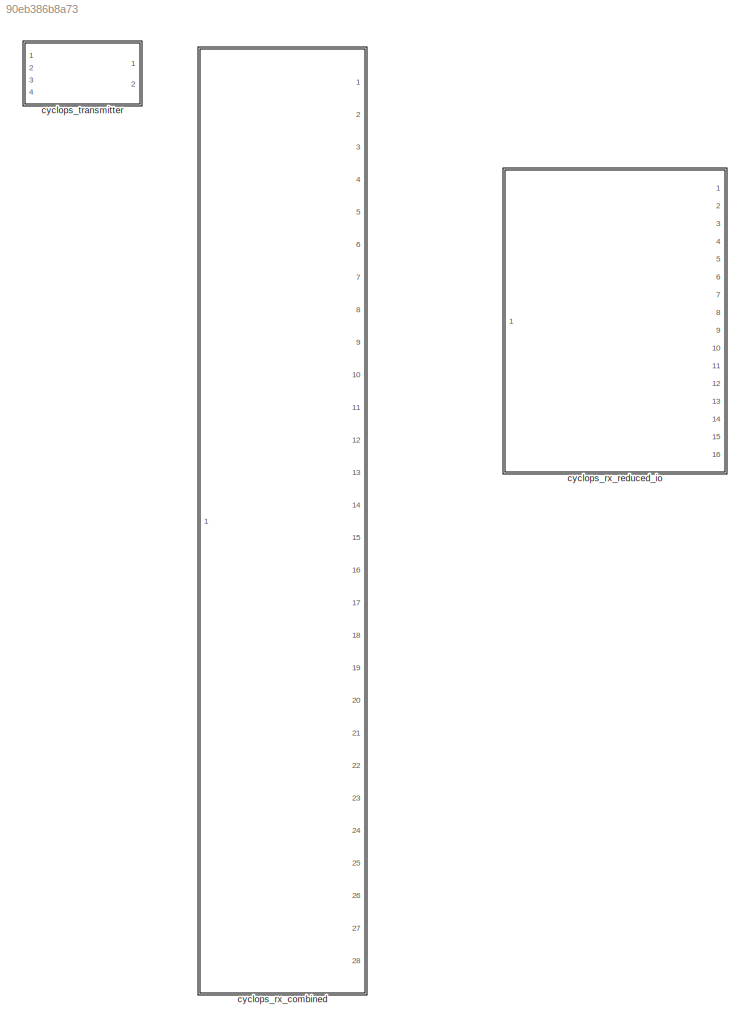
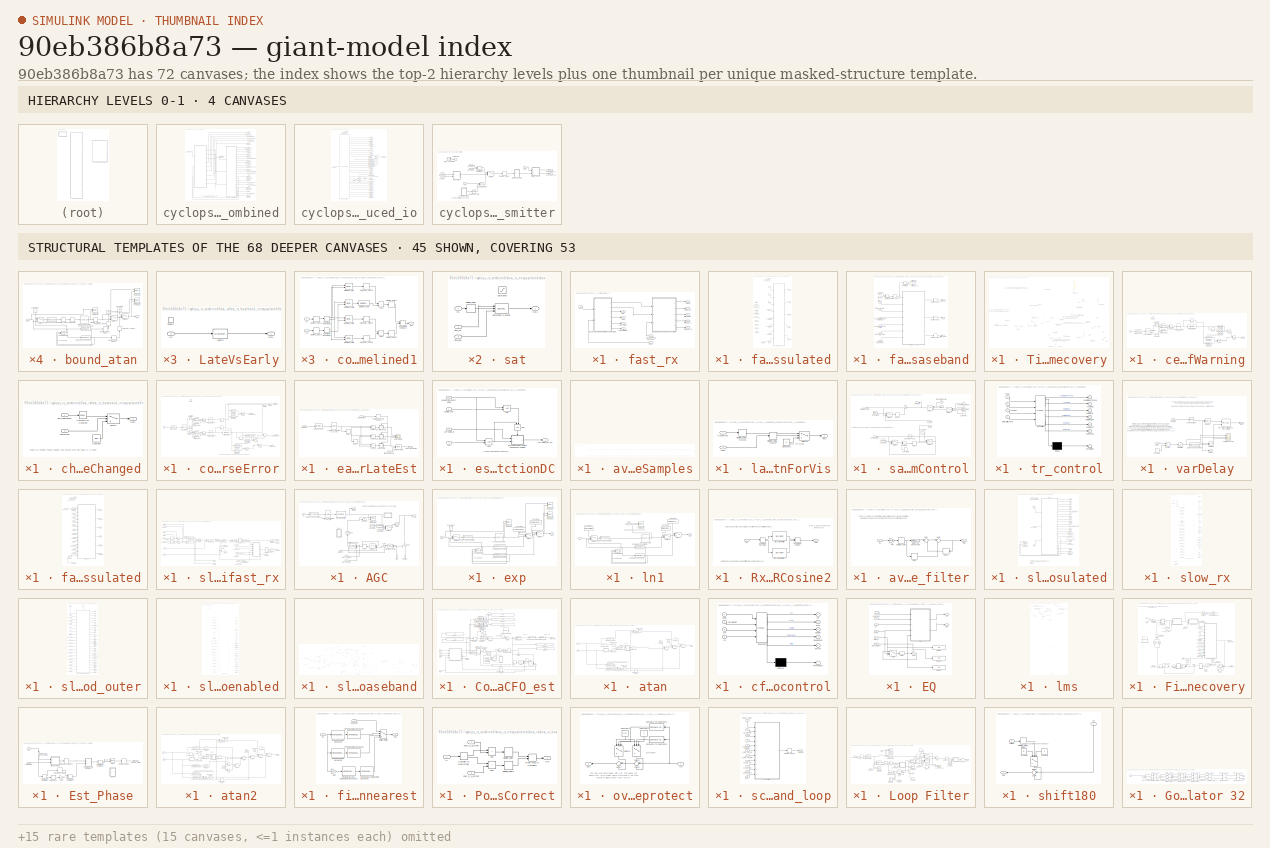
[diagram: thumbnail index - top-2 hierarchy levels (4 canvases) + 45 structural-template representatives of the remaining 68 canvases]
MODEL slx_90eb386b8a73
KIND library
CONFIG AbsTol = auto
CONFIG EnableMultiTasking = off
CONFIG FixedStep = auto
CONFIG MaxStep = auto
CONFIG MinStep = auto
CONFIG RelTol = 1e-3
CONFIG SampleTimeConstraint = Unconstrained
CONFIG Solver = VariableStepAuto
CONFIG SolverName = VariableStepAuto
CONFIG StartTime = 0.0
CONFIG StopTime = 10.0
BLOCK [SubSystem] cyclops_rx_combined
  Ports = [1, 28]
  RequestExecContextInheritance = off
BLOCK [Inport] cyclops_rx_combined/In1_BUNDLE_1
BLOCK [Outport] cyclops_rx_combined/ack_BUNDLE_2
  Port = 13
  VectorParamsAs1DForOutWhenUnconnected = off
BLOCK [Outport] cyclops_rx_combined/afterTR_BUNDLE_2
  Port = 25
BLOCK [Outport] cyclops_rx_combined/afterTR_last_BUNDLE_2
  Port = 27
BLOCK [Outport] cyclops_rx_combined/afterTR_samples_BUNDLE_2
  Port = 28
BLOCK [Outport] cyclops_rx_combined/afterTR_valid_BUNDLE_2
  Port = 26
BLOCK [Outport] cyclops_rx_combined/after_agc_I_BUNDLE_2
  Port = 5
  VectorParamsAs1DForOutWhenUnconnected = off
BLOCK [Outport] cyclops_rx_combined/after_agc_Q_BUNDLE_2
  Port = 6
  VectorParamsAs1DForOutWhenUnconnected = off
BLOCK [Outport] cyclops_rx_combined/after_cr_BUNDLE_2
  Port = 19
  VectorParamsAs1DForOutWhenUnconnected = off
BLOCK [Outport] cyclops_rx_combined/agcCorrection_BUNDLE_2
  Port = 4
  VectorParamsAs1DForOutWhenUnconnected = off
BLOCK [Outport] cyclops_rx_combined/ca_BUNDLE_2
  Port = 8
  VectorParamsAs1DForOutWhenUnconnected = off
BLOCK [Outport] cyclops_rx_combined/cb_BUNDLE_2
  Port = 9
  VectorParamsAs1DForOutWhenUnconnected = off
BLOCK [Outport] cyclops_rx_combined/cef_BUNDLE_2
  Port = 11
  VectorParamsAs1DForOutWhenUnconnected = off
BLOCK [Outport] cyclops_rx_combined/coarse_cfo_correct_steps_BUNDLE_2
  Port = 23
  VectorParamsAs1DForOutWhenUnconnected = off
BLOCK [Outport] cyclops_rx_combined/cumulativeCarrierPhase_BUNDLE_2
  Port = 18
  VectorParamsAs1DForOutWhenUnconnected = off
BLOCK [Outport] cyclops_rx_combined/eq_ff_lms_err_BUNDLE_2
  Port = 20
  VectorParamsAs1DForOutWhenUnconnected = off
BLOCK [Outport] cyclops_rx_combined/failed_BUNDLE_2
  Port = 14
  VectorParamsAs1DForOutWhenUnconnected = off
BLOCK [SubSystem] cyclops_rx_combined/fast_rx
  Ports = [3, 9]
  RequestExecContextInheritance = off
  TreatAsAtomicUnit = on
BLOCK [Inport] cyclops_rx_combined/fast_rx/In1
BLOCK [Outport] cyclops_rx_combined/fast_rx/after_agc_I
  Port = 8
  VectorParamsAs1DForOutWhenUnconnected = off
BLOCK [Outport] cyclops_rx_combined/fast_rx/after_agc_Q
  Port = 9
  VectorParamsAs1DForOutWhenUnconnected = off
BLOCK [Outport] cyclops_rx_combined/fast_rx/agcCorrection
  Port = 7
  VectorParamsAs1DForOutWhenUnconnected = off
BLOCK [Outport] cyclops_rx_combined/fast_rx/agcPwrEst
  Port = 2
  VectorParamsAs1DForOutWhenUnconnected = off
BLOCK [Outport] cyclops_rx_combined/fast_rx/data_out
  VectorParamsAs1DForOutWhenUnconnected = off
BLOCK [SubSystem] cyclops_rx_combined/fast_rx/fast_rx_baseband_encapsulated
  Ports = [3, 5]
  RequestExecContextInheritance = off
BLOCK [Delay] cyclops_rx_combined/fast_rx/fast_rx_baseband_encapsulated/Delay1
  DelayLength = Feedback_Pipeline
  InitialCondition = false
  InputPortMap = u0
  Ports = [1, 1]
BLOCK [Terminator] cyclops_rx_combined/fast_rx/fast_rx_baseband_encapsulated/Terminator
BLOCK [Constant] cyclops_rx_combined/fast_rx/fast_rx_baseband_encapsulated/VITIS_PARTITION
  Value = Fast_Rx_Partition
BLOCK [Outport] cyclops_rx_combined/fast_rx/fast_rx_baseband_encapsulated/after_agc_I
  Port = 4
  VectorParamsAs1DForOutWhenUnconnected = off
BLOCK [Outport] cyclops_rx_combined/fast_rx/fast_rx_baseband_encapsulated/after_agc_Q
  Port = 5
  VectorParamsAs1DForOutWhenUnconnected = off
BLOCK [Outport] cyclops_rx_combined/fast_rx/fast_rx_baseband_encapsulated/data_out
  Port = 2
  VectorParamsAs1DForOutWhenUnconnected = off
BLOCK [Constant] cyclops_rx_combined/fast_rx/fast_rx_baseband_encapsulated/enableTRFreqCorrection
  OutDataTypeStr = Inherit: Inherit via back propagation
  SampleTime = -1
  Value = enableTRFreqCorrection
BLOCK [Constant] cyclops_rx_combined/fast_rx/fast_rx_baseband_encapsulated/enableTRPreambleEstimation
  OutDataTypeStr = Inherit: Inherit via back propagation
  SampleTime = -1
  Value = enableTRPreambleEstimation
BLOCK [SubSystem] cyclops_rx_combined/fast_rx/fast_rx_baseband_encapsulated/fast_rx_baseband
  Ports = [8, 5]
  RTWSystemCode = Reusable function
  RequestExecContextInheritance = off
  TreatAsAtomicUnit = on
BLOCK [ComplexToRealImag] cyclops_rx_combined/fast_rx/fast_rx_baseband_encapsulated/fast_rx_baseband/Complex to Real-Imag
  Ports = [1, 2]
BLOCK [RealImagToComplex] cyclops_rx_combined/fast_rx/fast_rx_baseband_encapsulated/fast_rx_baseband/Real-Imag to Complex
  Ports = [2, 1]
BLOCK [SubSystem] cyclops_rx_combined/fast_rx/fast_rx_baseband_encapsulated/fast_rx_baseband/Timing Recovery
  Ports = [7, 3]
  RequestExecContextInheritance = off
BLOCK [Logic] cyclops_rx_combined/fast_rx/fast_rx_baseband_encapsulated/fast_rx_baseband/Timing Recovery/AND
  AllPortsSameDT = off
  IconShape = distinctive
  NameLocation = right
  OutDataTypeStr = boolean
  Ports = [2, 1]
BLOCK [Logic] cyclops_rx_combined/fast_rx/fast_rx_baseband_encapsulated/fast_rx_baseband/Timing Recovery/AND3
  AllPortsSameDT = off
  IconShape = distinctive
  OutDataTypeStr = boolean
  Ports = [2, 1]
BLOCK [Constant] cyclops_rx_combined/fast_rx/fast_rx_baseband_encapsulated/fast_rx_baseband/Timing Recovery/Constant
  OutDataTypeStr = Inherit: Inherit via back propagation
  Value = 0
BLOCK [Constant] cyclops_rx_combined/fast_rx/fast_rx_baseband_encapsulated/fast_rx_baseband/Timing Recovery/Constant1
  OutDataTypeStr = Inherit: Inherit via back propagation
  Value = 0
BLOCK [Constant] cyclops_rx_combined/fast_rx/fast_rx_baseband_encapsulated/fast_rx_baseband/Timing Recovery/Constant3
  OutDataTypeStr = int32
  Value = trInitialDelay-1
BLOCK [Delay] cyclops_rx_combined/fast_rx/fast_rx_baseband_encapsulated/fast_rx_baseband/Timing Recovery/Delay
  DelayLength = 1
  InputPortMap = u0
  Ports = [1, 1]
BLOCK [Delay] cyclops_rx_combined/fast_rx/fast_rx_baseband_encapsulated/fast_rx_baseband/Timing Recovery/Delay1
  DelayLength = 1
  InputPortMap = u0
  Ports = [1, 1]
BLOCK [Delay] cyclops_rx_combined/fast_rx/fast_rx_baseband_encapsulated/fast_rx_baseband/Timing Recovery/Delay2
  DelayLength = 1
  InputPortMap = u0
  Ports = [1, 1]
BLOCK [Delay] cyclops_rx_combined/fast_rx/fast_rx_baseband_encapsulated/fast_rx_baseband/Timing Recovery/Delay5
  DelayLength = overSample
  InputPortMap = u0
  Ports = [1, 1]
BLOCK [Delay] cyclops_rx_combined/fast_rx/fast_rx_baseband_encapsulated/fast_rx_baseband/Timing Recovery/DelayForEarlyWarning
  DelayLength = golay_type*overSample*3-trInitialDelay
  InputPortMap = u0
  Ports = [1, 1]
BLOCK [Logic] cyclops_rx_combined/fast_rx/fast_rx_baseband_encapsulated/fast_rx_baseband/Timing Recovery/NOT
  AllPortsSameDT = off
  IconShape = distinctive
  NameLocation = top
  Operator = NOT
  OutDataTypeStr = boolean
  Ports = [1, 1]
BLOCK [Logic] cyclops_rx_combined/fast_rx/fast_rx_baseband_encapsulated/fast_rx_baseband/Timing Recovery/OR
  AllPortsSameDT = off
  IconShape = distinctive
  Operator = OR
  OutDataTypeStr = boolean
  Ports = [2, 1]
BLOCK [Logic] cyclops_rx_combined/fast_rx/fast_rx_baseband_encapsulated/fast_rx_baseband/Timing Recovery/OR1
  AllPortsSameDT = off
  IconShape = distinctive
  Operator = OR
  OutDataTypeStr = boolean
  Ports = [2, 1]
BLOCK [Delay] cyclops_rx_combined/fast_rx/fast_rx_baseband_encapsulated/fast_rx_baseband/Timing Recovery/PhaseCorrectFromCorrelationToSamples
  DelayLength = trMatch+1
  InputPortMap = u0
  Ports = [1, 1]
BLOCK [Delay] cyclops_rx_combined/fast_rx/fast_rx_baseband_encapsulated/fast_rx_baseband/Timing Recovery/PhaseCorrectFromCorrelationToSamples1
  DelayLength = 1
  InputPortMap = u0
  NameLocation = left
  Ports = [1, 1]
BLOCK [Delay] cyclops_rx_combined/fast_rx/fast_rx_baseband_encapsulated/fast_rx_baseband/Timing Recovery/PhaseCorrectFromCorrelationToSamples2
  DelayLength = trMatch+1
  InputPortMap = u0
  NameLocation = top
  Ports = [1, 1]
BLOCK [Sum] cyclops_rx_combined/fast_rx/fast_rx_baseband_encapsulated/fast_rx_baseband/Timing Recovery/Subtract
  IconShape = rectangular
  Inputs = +-
  Ports = [2, 1]
BLOCK [Sum] cyclops_rx_combined/fast_rx/fast_rx_baseband_encapsulated/fast_rx_baseband/Timing Recovery/Sum1
  Inputs = |++
  Ports = [2, 1]
BLOCK [Switch] cyclops_rx_combined/fast_rx/fast_rx_baseband_encapsulated/fast_rx_baseband/Timing Recovery/Switch
  Criteria = u2 > Threshold
  InputSameDT = off
  NameLocation = right
  SaturateOnIntegerOverflow = off
BLOCK [Switch] cyclops_rx_combined/fast_rx/fast_rx_baseband_encapsulated/fast_rx_baseband/Timing Recovery/Switch1
  Criteria = u2 > Threshold
  InputSameDT = off
  NameLocation = left
  SaturateOnIntegerOverflow = off
BLOCK [Terminator] cyclops_rx_combined/fast_rx/fast_rx_baseband_encapsulated/fast_rx_baseband/Timing Recovery/Terminator
BLOCK [Terminator] cyclops_rx_combined/fast_rx/fast_rx_baseband_encapsulated/fast_rx_baseband/Timing Recovery/Terminator2
BLOCK [SubSystem] cyclops_rx_combined/fast_rx/fast_rx_baseband_encapsulated/fast_rx_baseband/Timing Recovery/cefEarlyWarning
  Ports = [1, 1, 1]
  RequestExecContextInheritance = off
BLOCK [Logic] cyclops_rx_combined/fast_rx/fast_rx_baseband_encapsulated/fast_rx_baseband/Timing Recovery/cefEarlyWarning/AND
  AllPortsSameDT = off
  IconShape = distinctive
  OutDataTypeStr = boolean
  Ports = [2, 1]
BLOCK [Logic] cyclops_rx_combined/fast_rx/fast_rx_baseband_encapsulated/fast_rx_baseband/Timing Recovery/cefEarlyWarning/AND1
  AllPortsSameDT = off
  IconShape = distinctive
  OutDataTypeStr = boolean
  Ports = [2, 1]
BLOCK [Logic] cyclops_rx_combined/fast_rx/fast_rx_baseband_encapsulated/fast_rx_baseband/Timing Recovery/cefEarlyWarning/AND4
  AllPortsSameDT = off
  IconShape = distinctive
  OutDataTypeStr = boolean
  Ports = [2, 1]
BLOCK [Reference] cyclops_rx_combined/fast_rx/fast_rx_baseband_encapsulated/fast_rx_baseband/Timing Recovery/cefEarlyWarning/Compare To Constant1  REF=simulink/Logic and Bit
Operations/Compare
To Constant
  Ports = [1, 1]
  SourceBlock = simulink/Logic and Bit\nOperations/Compare\nTo Constant
  SourceProductBaseCode = SL
  SourceType = Compare To Constant
BLOCK [Reference] cyclops_rx_combined/fast_rx/fast_rx_baseband_encapsulated/fast_rx_baseband/Timing Recovery/cefEarlyWarning/Compare To Constant2  REF=simulink/Logic and Bit
Operations/Compare
To Constant
  Ports = [1, 1]
  SourceBlock = simulink/Logic and Bit\nOperations/Compare\nTo Constant
  SourceProductBaseCode = SL
  SourceType = Compare To Constant
BLOCK [Reference] cyclops_rx_combined/fast_rx/fast_rx_baseband_encapsulated/fast_rx_baseband/Timing Recovery/cefEarlyWarning/Compare To Constant3  REF=simulink/Logic and Bit
Operations/Compare
To Constant
  Ports = [1, 1]
  SourceBlock = simulink/Logic and Bit\nOperations/Compare\nTo Constant
  SourceProductBaseCode = SL
  SourceType = Compare To Constant
BLOCK [Reference] cyclops_rx_combined/fast_rx/fast_rx_baseband_encapsulated/fast_rx_baseband/Timing Recovery/cefEarlyWarning/Compare To Constant4  REF=simulink/Logic and Bit
Operations/Compare
To Constant
  Ports = [1, 1]
  SourceBlock = simulink/Logic and Bit\nOperations/Compare\nTo Constant
  SourceProductBaseCode = SL
  SourceType = Compare To Constant
BLOCK [ComplexToRealImag] cyclops_rx_combined/fast_rx/fast_rx_baseband_encapsulated/fast_rx_baseband/Timing Recovery/cefEarlyWarning/Complex to Real-Imag2
  Ports = [1, 2]
BLOCK [Constant] cyclops_rx_combined/fast_rx/fast_rx_baseband_encapsulated/fast_rx_baseband/Timing Recovery/cefEarlyWarning/Constant5
  OutDataTypeStr = Inherit: Inherit via back propagation
  SampleTime = -1
  Value = 1/golay_type
BLOCK [Delay] cyclops_rx_combined/fast_rx/fast_rx_baseband_encapsulated/fast_rx_baseband/Timing Recovery/cefEarlyWarning/Delay2
  DelayLength = timing_differentiator_grpDelay_roundUp
  InputPortMap = u0
  Ports = [1, 1]
BLOCK [Delay] cyclops_rx_combined/fast_rx/fast_rx_baseband_encapsulated/fast_rx_baseband/Timing Recovery/cefEarlyWarning/Delay4
  DelayLength = 1
  InputPortMap = u0
  Ports = [1, 1]
BLOCK [Reference] cyclops_rx_combined/fast_rx/fast_rx_baseband_encapsulated/fast_rx_baseband/Timing Recovery/cefEarlyWarning/Differentiator Filter  REF=dspfdesign/Differentiator Filter
  Ports = [1, 1]
  SourceBlock = dspfdesign/Differentiator Filter
  SourceProductBaseCode = DS
  SourceType = dsp.Differentiator
BLOCK [EnablePort] cyclops_rx_combined/fast_rx/fast_rx_baseband_encapsulated/fast_rx_baseband/Timing Recovery/cefEarlyWarning/Enable
  Ports = []
BLOCK [Reference] cyclops_rx_combined/fast_rx/fast_rx_baseband_encapsulated/fast_rx_baseband/Timing Recovery/cefEarlyWarning/Golay Correlator 32  REF=helperLib/Golay Correlator 32
  Ports = [1, 2]
  SourceBlock = helperLib/Golay Correlator 32
  SourceType = SubSystem
BLOCK [Inport] cyclops_rx_combined/fast_rx/fast_rx_baseband_encapsulated/fast_rx_baseband/Timing Recovery/cefEarlyWarning/In1
BLOCK [Outport] cyclops_rx_combined/fast_rx/fast_rx_baseband_encapsulated/fast_rx_baseband/Timing Recovery/cefEarlyWarning/Out1
BLOCK [RealImagToComplex] cyclops_rx_combined/fast_rx/fast_rx_baseband_encapsulated/fast_rx_baseband/Timing Recovery/cefEarlyWarning/Real-Imag to Complex1
  Ports = [2, 1]
BLOCK [Terminator] cyclops_rx_combined/fast_rx/fast_rx_baseband_encapsulated/fast_rx_baseband/Timing Recovery/cefEarlyWarning/Terminator1
BLOCK [Reference] cyclops_rx_combined/fast_rx/fast_rx_baseband_encapsulated/fast_rx_baseband/Timing Recovery/cefEarlyWarning/complex_magnitude_sq_cfg  REF=helperLib/complex_magnitude_sq_cfg
  Ports = [1, 1]
  SourceBlock = helperLib/complex_magnitude_sq_cfg
BLOCK [Reference] cyclops_rx_combined/fast_rx/fast_rx_baseband_encapsulated/fast_rx_baseband/Timing Recovery/cefEarlyWarning/pipelined_mult1  REF=helperLib/pipelined_mult
  Ports = [2, 1]
  SourceBlock = helperLib/pipelined_mult
  SourceType = Pipelined Multiplier
BLOCK [Reference] cyclops_rx_combined/fast_rx/fast_rx_baseband_encapsulated/fast_rx_baseband/Timing Recovery/cefEarlyWarning/pipelined_mult2  REF=helperLib/pipelined_mult
  Ports = [2, 1]
  SourceBlock = helperLib/pipelined_mult
  SourceType = Pipelined Multiplier
BLOCK [DiscreteFir] cyclops_rx_combined/fast_rx/fast_rx_baseband_encapsulated/fast_rx_baseband/Timing Recovery/cefEarlyWarning/raisedCosCorr
  Coefficients = rcNormalFilt
  InputPortMap = u0
  OutputPortMap = o0
  Ports = [1, 1]
BLOCK [SubSystem] cyclops_rx_combined/fast_rx/fast_rx_baseband_encapsulated/fast_rx_baseband/Timing Recovery/checkIfSampPointChanged
  Ports = [2, 1]
  RequestExecContextInheritance = off
BLOCK [Reference] cyclops_rx_combined/fast_rx/fast_rx_baseband_encapsulated/fast_rx_baseband/Timing Recovery/checkIfSampPointChanged/Compare To Constant  REF=simulink/Logic and Bit
Operations/Compare
To Constant
  Ports = [1, 1]
  SourceBlock = simulink/Logic and Bit\nOperations/Compare\nTo Constant
  SourceProductBaseCode = SL
  SourceType = Compare To Constant
BLOCK [Constant] cyclops_rx_combined/fast_rx/fast_rx_baseband_encapsulated/fast_rx_baseband/Timing Recovery/checkIfSampPointChanged/Constant
  OutDataTypeStr = boolean
  Value = false
BLOCK [Outport] cyclops_rx_combined/fast_rx/fast_rx_baseband_encapsulated/fast_rx_baseband/Timing Recovery/checkIfSampPointChanged/Out1
BLOCK [Switch] cyclops_rx_combined/fast_rx/fast_rx_baseband_encapsulated/fast_rx_baseband/Timing Recovery/checkIfSampPointChanged/Switch
  Criteria = u2 > Threshold
  InputSameDT = off
  SaturateOnIntegerOverflow = off
BLOCK [Inport] cyclops_rx_combined/fast_rx/fast_rx_baseband_encapsulated/fast_rx_baseband/Timing Recovery/checkIfSampPointChanged/lastGolayPeriod
BLOCK [Inport] cyclops_rx_combined/fast_rx/fast_rx_baseband_encapsulated/fast_rx_baseband/Timing Recovery/checkIfSampPointChanged/sampNow
  Port = 2
BLOCK [Outport] cyclops_rx_combined/fast_rx/fast_rx_baseband_encapsulated/fast_rx_baseband/Timing Recovery/corrected_oversampled
  VectorParamsAs1DForOutWhenUnconnected = off
BLOCK [SubSystem] cyclops_rx_combined/fast_rx/fast_rx_baseband_encapsulated/fast_rx_baseband/Timing Recovery/correlateAndDetectPhaseError
  Ports = [1, 6, 1]
  RequestExecContextInheritance = off
BLOCK [Logic] cyclops_rx_combined/fast_rx/fast_rx_baseband_encapsulated/fast_rx_baseband/Timing Recovery/correlateAndDetectPhaseError/AND
  AllPortsSameDT = off
  IconShape = distinctive
  OutDataTypeStr = boolean
  Ports = [2, 1]
BLOCK [Logic] cyclops_rx_combined/fast_rx/fast_rx_baseband_encapsulated/fast_rx_baseband/Timing Recovery/correlateAndDetectPhaseError/AND1
  AllPortsSameDT = off
  IconShape = distinctive
  OutDataTypeStr = boolean
  Ports = [2, 1]
BLOCK [Logic] cyclops_rx_combined/fast_rx/fast_rx_baseband_encapsulated/fast_rx_baseband/Timing Recovery/correlateAndDetectPhaseError/AND4
  AllPortsSameDT = off
  IconShape = distinctive
  OutDataTypeStr = boolean
  Ports = [2, 1]
BLOCK [Logic] cyclops_rx_combined/fast_rx/fast_rx_baseband_encapsulated/fast_rx_baseband/Timing Recovery/correlateAndDetectPhaseError/AND5
  AllPortsSameDT = off
  IconShape = distinctive
  OutDataTypeStr = boolean
  Ports = [2, 1]
BLOCK [Sum] cyclops_rx_combined/fast_rx/fast_rx_baseband_encapsulated/fast_rx_baseband/Timing Recovery/correlateAndDetectPhaseError/Add
  IconShape = rectangular
  Ports = [2, 1]
BLOCK [Reference] cyclops_rx_combined/fast_rx/fast_rx_baseband_encapsulated/fast_rx_baseband/Timing Recovery/correlateAndDetectPhaseError/Compare To Constant1  REF=simulink/Logic and Bit
Operations/Compare
To Constant
  Ports = [1, 1]
  SourceBlock = simulink/Logic and Bit\nOperations/Compare\nTo Constant
  SourceProductBaseCode = SL
  SourceType = Compare To Constant
BLOCK [Reference] cyclops_rx_combined/fast_rx/fast_rx_baseband_encapsulated/fast_rx_baseband/Timing Recovery/correlateAndDetectPhaseError/Compare To Constant2  REF=simulink/Logic and Bit
Operations/Compare
To Constant
  Ports = [1, 1]
  SourceBlock = simulink/Logic and Bit\nOperations/Compare\nTo Constant
  SourceProductBaseCode = SL
  SourceType = Compare To Constant
BLOCK [Reference] cyclops_rx_combined/fast_rx/fast_rx_baseband_encapsulated/fast_rx_baseband/Timing Recovery/correlateAndDetectPhaseError/Compare To Constant3  REF=simulink/Logic and Bit
Operations/Compare
To Constant
  Ports = [1, 1]
  SourceBlock = simulink/Logic and Bit\nOperations/Compare\nTo Constant
  SourceProductBaseCode = SL
  SourceType = Compare To Constant
BLOCK [Reference] cyclops_rx_combined/fast_rx/fast_rx_baseband_encapsulated/fast_rx_baseband/Timing Recovery/correlateAndDetectPhaseError/Compare To Constant4  REF=simulink/Logic and Bit
Operations/Compare
To Constant
  Ports = [1, 1]
  SourceBlock = simulink/Logic and Bit\nOperations/Compare\nTo Constant
  SourceProductBaseCode = SL
  SourceType = Compare To Constant
BLOCK [Reference] cyclops_rx_combined/fast_rx/fast_rx_baseband_encapsulated/fast_rx_baseband/Timing Recovery/correlateAndDetectPhaseError/Compare To Constant5  REF=simulink/Logic and Bit
Operations/Compare
To Constant
  Ports = [1, 1]
  SourceBlock = simulink/Logic and Bit\nOperations/Compare\nTo Constant
  SourceProductBaseCode = SL
  SourceType = Compare To Constant
BLOCK [Reference] cyclops_rx_combined/fast_rx/fast_rx_baseband_encapsulated/fast_rx_baseband/Timing Recovery/correlateAndDetectPhaseError/Compare To Constant6  REF=simulink/Logic and Bit
Operations/Compare
To Constant
  Ports = [1, 1]
  SourceBlock = simulink/Logic and Bit\nOperations/Compare\nTo Constant
  SourceProductBaseCode = SL
  SourceType = Compare To Constant
BLOCK [ComplexToRealImag] cyclops_rx_combined/fast_rx/fast_rx_baseband_encapsulated/fast_rx_baseband/Timing Recovery/correlateAndDetectPhaseError/Complex to Real-Imag2
  Ports = [1, 2]
BLOCK [ComplexToRealImag] cyclops_rx_combined/fast_rx/fast_rx_baseband_encapsulated/fast_rx_baseband/Timing Recovery/correlateAndDetectPhaseError/Complex to Real-Imag3
  Ports = [1, 2]
BLOCK [Constant] cyclops_rx_combined/fast_rx/fast_rx_baseband_encapsulated/fast_rx_baseband/Timing Recovery/correlateAndDetectPhaseError/Constant3
  OutDataTypeStr = Inherit: Inherit via back propagation
  SampleTime = -1
  Value = 1/golay_type
BLOCK [Delay] cyclops_rx_combined/fast_rx/fast_rx_baseband_encapsulated/fast_rx_baseband/Timing Recovery/correlateAndDetectPhaseError/Delay2
  DelayLength = timing_differentiator_grpDelay_roundUp
  InputPortMap = u0
  Ports = [1, 1]
BLOCK [Delay] cyclops_rx_combined/fast_rx/fast_rx_baseband_encapsulated/fast_rx_baseband/Timing Recovery/correlateAndDetectPhaseError/Delay3
  DelayLength = timing_differentiator_grpDelay_roundUp
  InputPortMap = u0
  Ports = [1, 1]
BLOCK [Delay] cyclops_rx_combined/fast_rx/fast_rx_baseband_encapsulated/fast_rx_baseband/Timing Recovery/correlateAndDetectPhaseError/Delay4
  DelayLength = 1
  InputPortMap = u0
  Ports = [1, 1]
BLOCK [Reference] cyclops_rx_combined/fast_rx/fast_rx_baseband_encapsulated/fast_rx_baseband/Timing Recovery/correlateAndDetectPhaseError/Differentiator Filter  REF=dspfdesign/Differentiator Filter
  Ports = [1, 1]
  SourceBlock = dspfdesign/Differentiator Filter
  SourceProductBaseCode = DS
  SourceType = dsp.Differentiator
BLOCK [EnablePort] cyclops_rx_combined/fast_rx/fast_rx_baseband_encapsulated/fast_rx_baseband/Timing Recovery/correlateAndDetectPhaseError/Enable
  Ports = []
BLOCK [Reference] cyclops_rx_combined/fast_rx/fast_rx_baseband_encapsulated/fast_rx_baseband/Timing Recovery/correlateAndDetectPhaseError/Golay Correlator 32  REF=helperLib/Golay Correlator 32
  Ports = [1, 2]
  SourceBlock = helperLib/Golay Correlator 32
  SourceType = SubSystem
BLOCK [RealImagToComplex] cyclops_rx_combined/fast_rx/fast_rx_baseband_encapsulated/fast_rx_baseband/Timing Recovery/correlateAndDetectPhaseError/Real-Imag to Complex1
  Ports = [2, 1]
BLOCK [RealImagToComplex] cyclops_rx_combined/fast_rx/fast_rx_baseband_encapsulated/fast_rx_baseband/Timing Recovery/correlateAndDetectPhaseError/Real-Imag to Complex2
  Ports = [2, 1]
BLOCK [Outport] cyclops_rx_combined/fast_rx/fast_rx_baseband_encapsulated/fast_rx_baseband/Timing Recovery/correlateAndDetectPhaseError/cefMagSq
BLOCK [Outport] cyclops_rx_combined/fast_rx/fast_rx_baseband_encapsulated/fast_rx_baseband/Timing Recovery/correlateAndDetectPhaseError/cefPeakDetect
  Port = 6
BLOCK [Reference] cyclops_rx_combined/fast_rx/fast_rx_baseband_encapsulated/fast_rx_baseband/Timing Recovery/correlateAndDetectPhaseError/complex_magnitude_sq_cfg  REF=helperLib/complex_magnitude_sq_cfg
  Ports = [1, 1]
  SourceBlock = helperLib/complex_magnitude_sq_cfg
BLOCK [Reference] cyclops_rx_combined/fast_rx/fast_rx_baseband_encapsulated/fast_rx_baseband/Timing Recovery/correlateAndDetectPhaseError/complex_magnitude_sq_cfg1  REF=helperLib/complex_magnitude_sq_cfg
  Ports = [1, 1]
  SourceBlock = helperLib/complex_magnitude_sq_cfg
BLOCK [Outport] cyclops_rx_combined/fast_rx/fast_rx_baseband_encapsulated/fast_rx_baseband/Timing Recovery/correlateAndDetectPhaseError/derivative
  Port = 3
BLOCK [Inport] cyclops_rx_combined/fast_rx/fast_rx_baseband_encapsulated/fast_rx_baseband/Timing Recovery/correlateAndDetectPhaseError/out
BLOCK [Outport] cyclops_rx_combined/fast_rx/fast_rx_baseband_encapsulated/fast_rx_baseband/Timing Recovery/correlateAndDetectPhaseError/phaseImbalance
  Port = 4
BLOCK [Reference] cyclops_rx_combined/fast_rx/fast_rx_baseband_encapsulated/fast_rx_baseband/Timing Recovery/correlateAndDetectPhaseError/pipelined_mult1  REF=helperLib/pipelined_mult
  Ports = [2, 1]
  SourceBlock = helperLib/pipelined_mult
  SourceType = Pipelined Multiplier
BLOCK [Reference] cyclops_rx_combined/fast_rx/fast_rx_baseband_encapsulated/fast_rx_baseband/Timing Recovery/correlateAndDetectPhaseError/pipelined_mult2  REF=helperLib/pipelined_mult
  Ports = [2, 1]
  SourceBlock = helperLib/pipelined_mult
  SourceType = Pipelined Multiplier
BLOCK [Reference] cyclops_rx_combined/fast_rx/fast_rx_baseband_encapsulated/fast_rx_baseband/Timing Recovery/correlateAndDetectPhaseError/pipelined_mult3  REF=helperLib/pipelined_mult
  Ports = [2, 1]
  SourceBlock = helperLib/pipelined_mult
  SourceType = Pipelined Multiplier
BLOCK [Reference] cyclops_rx_combined/fast_rx/fast_rx_baseband_encapsulated/fast_rx_baseband/Timing Recovery/correlateAndDetectPhaseError/pipelined_mult4  REF=helperLib/pipelined_mult
  Ports = [2, 1]
  SourceBlock = helperLib/pipelined_mult
  SourceType = Pipelined Multiplier
BLOCK [DiscreteFir] cyclops_rx_combined/fast_rx/fast_rx_baseband_encapsulated/fast_rx_baseband/Timing Recovery/correlateAndDetectPhaseError/raisedCosCorr
  Coefficients = rcNormalFilt
  InputPortMap = u0
  OutputPortMap = o0
  Ports = [1, 1]
BLOCK [Outport] cyclops_rx_combined/fast_rx/fast_rx_baseband_encapsulated/fast_rx_baseband/Timing Recovery/correlateAndDetectPhaseError/stfMagSq
  Port = 2
BLOCK [Outport] cyclops_rx_combined/fast_rx/fast_rx_baseband_encapsulated/fast_rx_baseband/Timing Recovery/correlateAndDetectPhaseError/stfPeakDetect
  Port = 5
BLOCK [SubSystem] cyclops_rx_combined/fast_rx/fast_rx_baseband_encapsulated/fast_rx_baseband/Timing Recovery/earlyLateEst
  Ports = [3, 1]
  RequestExecContextInheritance = off
BLOCK [Delay] cyclops_rx_combined/fast_rx/fast_rx_baseband_encapsulated/fast_rx_baseband/Timing Recovery/earlyLateEst/Delay
  DelayLength = 1
  InputPortMap = u0
  Ports = [1, 1]
BLOCK [Delay] cyclops_rx_combined/fast_rx/fast_rx_baseband_encapsulated/fast_rx_baseband/Timing Recovery/earlyLateEst/Delay3
  DelayLength = 1
  InputPortMap = u0
  Ports = [1, 1]
BLOCK [Scope] cyclops_rx_combined/fast_rx/fast_rx_baseband_encapsulated/fast_rx_baseband/Timing Recovery/earlyLateEst/EarlyLateDiff
  Commented = on
  Floating = off
  NumInputPorts = 3
  Ports = [3]
  ScopeSpecificationString = Simulink.scopes.TimeScopeBlockCfg('CurrentConfiguration', extmgr.ConfigurationSet(extmgr.Configuration('Core','General UI',true),extmgr.Configuration('Core','Source UI',true),extmgr.Configuration('Sources','WiredSimulink',true,'DataLoggingVariableName','ScopeData2'),extmgr.Configuration('Visuals','Time Domain',true,'SerializedDisplays',{struct('MinYLimReal','-0.13434','MaxYLimReal','0.12203','YLab...<+1542ch>
BLOCK [SubSystem] cyclops_rx_combined/fast_rx/fast_rx_baseband_encapsulated/fast_rx_baseband/Timing Recovery/earlyLateEst/LateVsEarly
  Ports = [1, 1, 1]
  RequestExecContextInheritance = off
BLOCK [DiscreteFir] cyclops_rx_combined/fast_rx/fast_rx_baseband_encapsulated/fast_rx_baseband/Timing Recovery/earlyLateEst/LateVsEarly/AvgFilt
  Coefficients = ones(1, trEarlyLateAvgNumSamp)/trEarlyLateAvgNumSamp
  InputPortMap = u0
  OutputPortMap = o0
  Ports = [1, 1]
BLOCK [EnablePort] cyclops_rx_combined/fast_rx/fast_rx_baseband_encapsulated/fast_rx_baseband/Timing Recovery/earlyLateEst/LateVsEarly/Enable
  Ports = []
BLOCK [Inport] cyclops_rx_combined/fast_rx/fast_rx_baseband_encapsulated/fast_rx_baseband/Timing Recovery/earlyLateEst/LateVsEarly/In1
BLOCK [Outport] cyclops_rx_combined/fast_rx/fast_rx_baseband_encapsulated/fast_rx_baseband/Timing Recovery/earlyLateEst/LateVsEarly/Out1
BLOCK [SubSystem] cyclops_rx_combined/fast_rx/fast_rx_baseband_encapsulated/fast_rx_baseband/Timing Recovery/earlyLateEst/OnTimeVsEarly
  Commented = on
  Ports = [1, 1, 1]
  RequestExecContextInheritance = off
BLOCK [DiscreteFir] cyclops_rx_combined/fast_rx/fast_rx_baseband_encapsulated/fast_rx_baseband/Timing Recovery/earlyLateEst/OnTimeVsEarly/AvgFilt
  Coefficients = ones(1, trEarlyLateAvgNumSamp)/trEarlyLateAvgNumSamp
  InputPortMap = u0
  OutputPortMap = o0
  Ports = [1, 1]
BLOCK [EnablePort] cyclops_rx_combined/fast_rx/fast_rx_baseband_encapsulated/fast_rx_baseband/Timing Recovery/earlyLateEst/OnTimeVsEarly/Enable
  Ports = []
BLOCK [Inport] cyclops_rx_combined/fast_rx/fast_rx_baseband_encapsulated/fast_rx_baseband/Timing Recovery/earlyLateEst/OnTimeVsEarly/In1
BLOCK [Outport] cyclops_rx_combined/fast_rx/fast_rx_baseband_encapsulated/fast_rx_baseband/Timing Recovery/earlyLateEst/OnTimeVsEarly/Out1
BLOCK [SubSystem] cyclops_rx_combined/fast_rx/fast_rx_baseband_encapsulated/fast_rx_baseband/Timing Recovery/earlyLateEst/OnTimeVsLate
  Commented = on
  Ports = [1, 1, 1]
  RequestExecContextInheritance = off
BLOCK [DiscreteFir] cyclops_rx_combined/fast_rx/fast_rx_baseband_encapsulated/fast_rx_baseband/Timing Recovery/earlyLateEst/OnTimeVsLate/AvgFilt
  Coefficients = ones(1, trEarlyLateAvgNumSamp)/trEarlyLateAvgNumSamp
  InputPortMap = u0
  OutputPortMap = o0
  Ports = [1, 1]
BLOCK [EnablePort] cyclops_rx_combined/fast_rx/fast_rx_baseband_encapsulated/fast_rx_baseband/Timing Recovery/earlyLateEst/OnTimeVsLate/Enable
  Ports = []
BLOCK [Inport] cyclops_rx_combined/fast_rx/fast_rx_baseband_encapsulated/fast_rx_baseband/Timing Recovery/earlyLateEst/OnTimeVsLate/In1
BLOCK [Outport] cyclops_rx_combined/fast_rx/fast_rx_baseband_encapsulated/fast_rx_baseband/Timing Recovery/earlyLateEst/OnTimeVsLate/Out1
BLOCK [Sum] cyclops_rx_combined/fast_rx/fast_rx_baseband_encapsulated/fast_rx_baseband/Timing Recovery/earlyLateEst/Subtract
  Commented = on
  IconShape = rectangular
  Inputs = -+
  Ports = [2, 1]
BLOCK [Sum] cyclops_rx_combined/fast_rx/fast_rx_baseband_encapsulated/fast_rx_baseband/Timing Recovery/earlyLateEst/Subtract1
  Commented = on
  IconShape = rectangular
  Inputs = +-
  Ports = [2, 1]
BLOCK [Sum] cyclops_rx_combined/fast_rx/fast_rx_baseband_encapsulated/fast_rx_baseband/Timing Recovery/earlyLateEst/Subtract2
  IconShape = rectangular
  Inputs = +-
  Ports = [2, 1]
BLOCK [Reference] cyclops_rx_combined/fast_rx/fast_rx_baseband_encapsulated/fast_rx_baseband/Timing Recovery/earlyLateEst/complex_magnitude_sq_cfg  REF=helperLib/complex_magnitude_sq_cfg
  Ports = [1, 1]
  SourceBlock = helperLib/complex_magnitude_sq_cfg
BLOCK [Delay] cyclops_rx_combined/fast_rx/fast_rx_baseband_encapsulated/fast_rx_baseband/Timing Recovery/earlyLateEst/corrGrpDelayCompensate
  DelayLength = rcFiltGrpDelay+mult_pipeline+regular_pipeline+1
  InputPortMap = u0
  Ports = [1, 1]
BLOCK [Outport] cyclops_rx_combined/fast_rx/fast_rx_baseband_encapsulated/fast_rx_baseband/Timing Recovery/earlyLateEst/earlyLateCorrection
BLOCK [Reference] cyclops_rx_combined/fast_rx/fast_rx_baseband_encapsulated/fast_rx_baseband/Timing Recovery/earlyLateEst/pipelined_mult5  REF=helperLib/pipelined_mult
  Ports = [2, 1]
  SourceBlock = helperLib/pipelined_mult
  SourceType = Pipelined Multiplier
BLOCK [DiscreteFir] cyclops_rx_combined/fast_rx/fast_rx_baseband_encapsulated/fast_rx_baseband/Timing Recovery/earlyLateEst/raisedCosCorr
  Coefficients = rcNormalFilt
  InputPortMap = u0
  OutputPortMap = o0
  Ports = [1, 1]
BLOCK [Inport] cyclops_rx_combined/fast_rx/fast_rx_baseband_encapsulated/fast_rx_baseband/Timing Recovery/earlyLateEst/sampleStrobe
  Port = 2
BLOCK [Inport] cyclops_rx_combined/fast_rx/fast_rx_baseband_encapsulated/fast_rx_baseband/Timing Recovery/earlyLateEst/samples
BLOCK [Inport] cyclops_rx_combined/fast_rx/fast_rx_baseband_encapsulated/fast_rx_baseband/Timing Recovery/earlyLateEst/trEarlyLatePGain
  Port = 3
BLOCK [Inport] cyclops_rx_combined/fast_rx/fast_rx_baseband_encapsulated/fast_rx_baseband/Timing Recovery/enableTRFreqCorrection
  OutDataTypeStr = boolean
  Port = 5
BLOCK [Inport] cyclops_rx_combined/fast_rx/fast_rx_baseband_encapsulated/fast_rx_baseband/Timing Recovery/enableTRPreambleEstimation
  OutDataTypeStr = boolean
  Port = 4
BLOCK [SubSystem] cyclops_rx_combined/fast_rx/fast_rx_baseband_encapsulated/fast_rx_baseband/Timing Recovery/estimateCorrectionDC
  Ports = [4, 1]
  RequestExecContextInheritance = off
BLOCK [Logic] cyclops_rx_combined/fast_rx/fast_rx_baseband_encapsulated/fast_rx_baseband/Timing Recovery/estimateCorrectionDC/AND
  AllPortsSameDT = off
  IconShape = distinctive
  OutDataTypeStr = boolean
  Ports = [2, 1]
BLOCK [Logic] cyclops_rx_combined/fast_rx/fast_rx_baseband_encapsulated/fast_rx_baseband/Timing Recovery/estimateCorrectionDC/AND1
  AllPortsSameDT = off
  IconShape = distinctive
  OutDataTypeStr = boolean
  Ports = [2, 1]
BLOCK [Logic] cyclops_rx_combined/fast_rx/fast_rx_baseband_encapsulated/fast_rx_baseband/Timing Recovery/estimateCorrectionDC/OR1
  AllPortsSameDT = off
  IconShape = distinctive
  NameLocation = left
  Operator = OR
  OutDataTypeStr = boolean
  Ports = [2, 1]
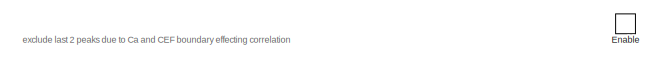
[diagram: cyclops_rx_combined/fast_rx/fast_rx_baseband_encapsulated/fast_rx_baseband/Timing Recovery/estimateCorrectionDC/averageLastCorrectionsAmortizeOverSamples - part 1/6, top left region]
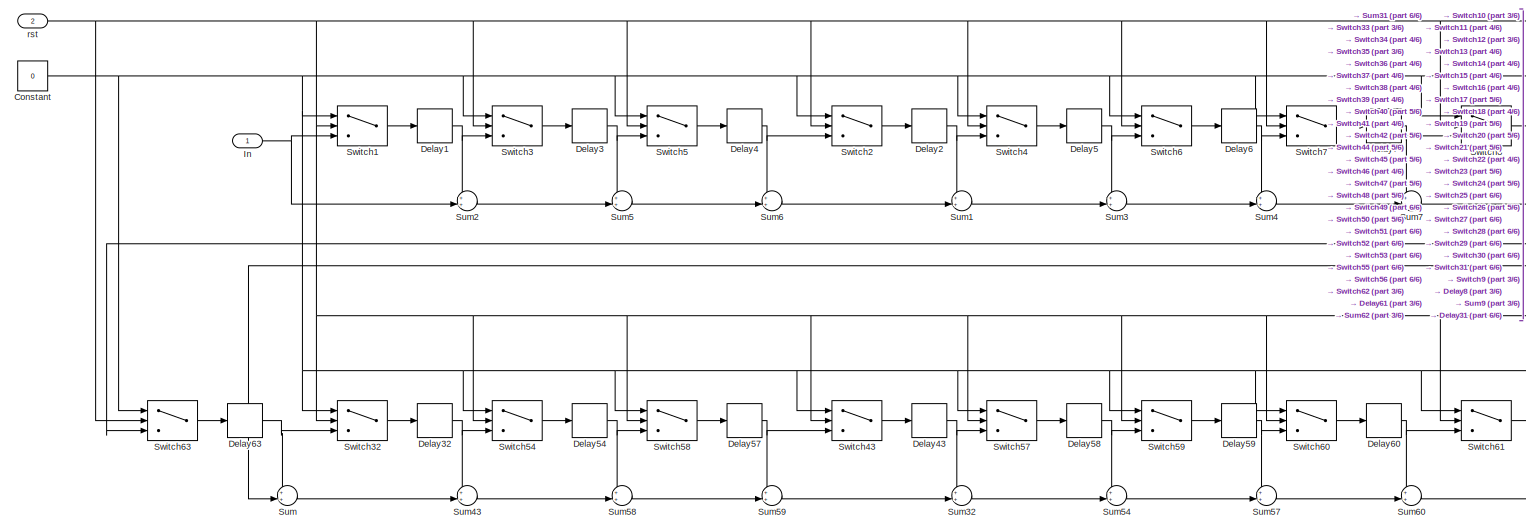
[diagram: cyclops_rx_combined/fast_rx/fast_rx_baseband_encapsulated/fast_rx_baseband/Timing Recovery/estimateCorrectionDC/averageLastCorrectionsAmortizeOverSamples - part 2/6, left side, full height]
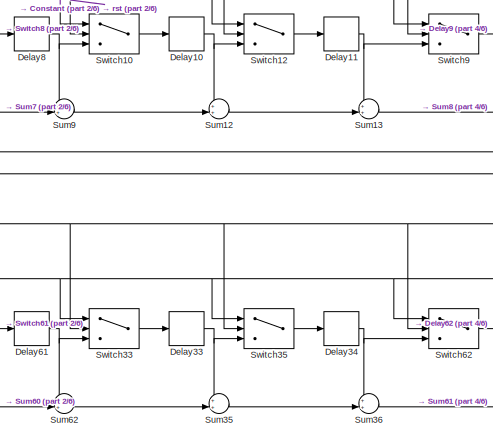
[diagram: cyclops_rx_combined/fast_rx/fast_rx_baseband_encapsulated/fast_rx_baseband/Timing Recovery/estimateCorrectionDC/averageLastCorrectionsAmortizeOverSamples - part 3/6, central region]
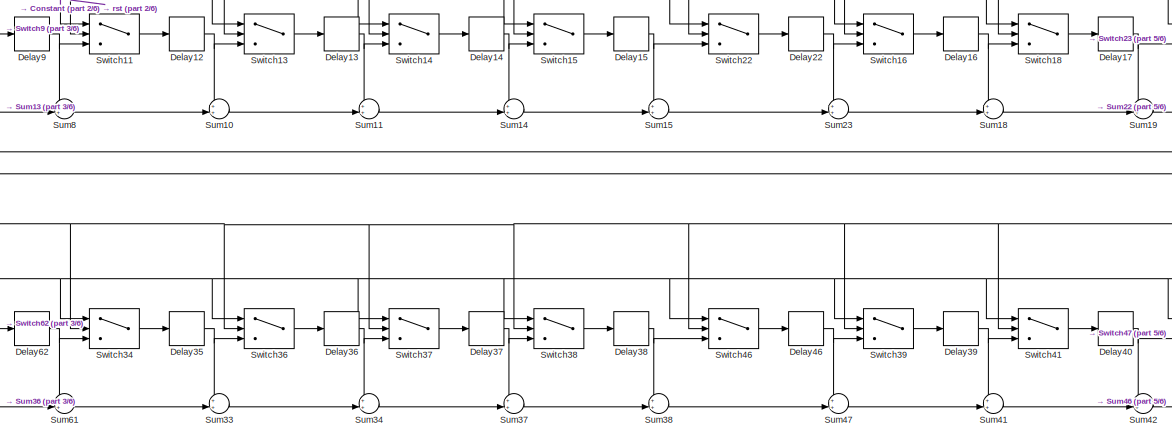
[diagram: cyclops_rx_combined/fast_rx/fast_rx_baseband_encapsulated/fast_rx_baseband/Timing Recovery/estimateCorrectionDC/averageLastCorrectionsAmortizeOverSamples - part 4/6, central region]
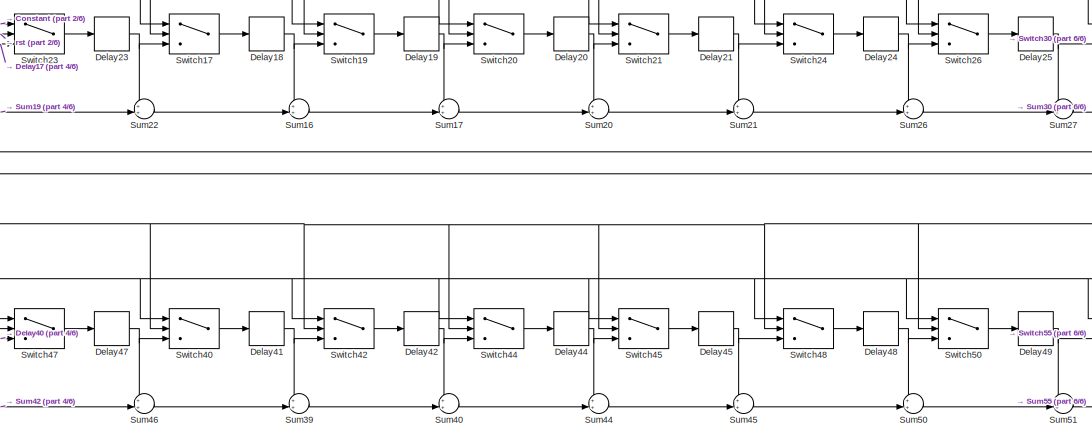
[diagram: cyclops_rx_combined/fast_rx/fast_rx_baseband_encapsulated/fast_rx_baseband/Timing Recovery/estimateCorrectionDC/averageLastCorrectionsAmortizeOverSamples - part 5/6, middle right region]
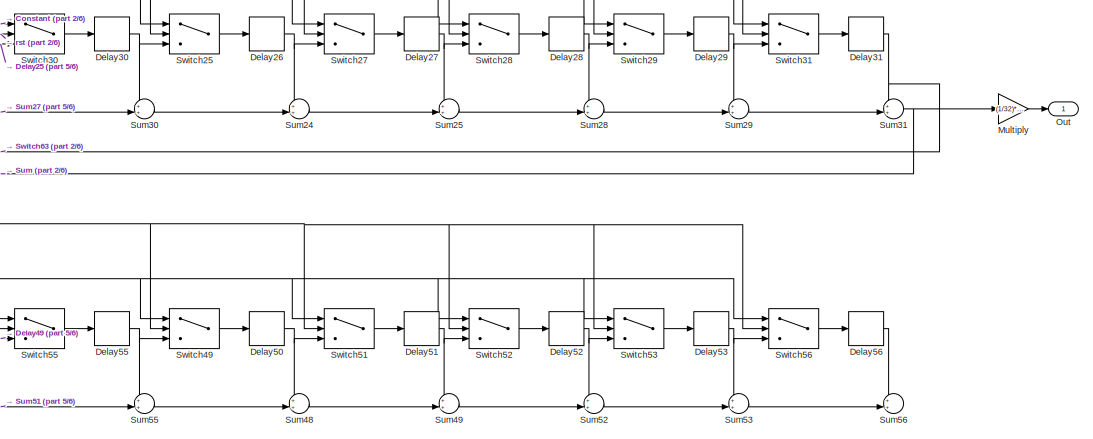
[diagram: cyclops_rx_combined/fast_rx/fast_rx_baseband_encapsulated/fast_rx_baseband/Timing Recovery/estimateCorrectionDC/averageLastCorrectionsAmortizeOverSamples - part 6/6, middle right region]
BLOCK [SubSystem] cyclops_rx_combined/fast_rx/fast_rx_baseband_encapsulated/fast_rx_baseband/Timing Recovery/estimateCorrectionDC/averageLastCorrectionsAmortizeOverSamples
  Ports = [2, 1, 1]
  RequestExecContextInheritance = off
BLOCK [Constant] cyclops_rx_combined/fast_rx/fast_rx_baseband_encapsulated/fast_rx_baseband/Timing Recovery/estimateCorrectionDC/averageLastCorrectionsAmortizeOverSamples/Constant
  OutDataTypeStr = single
  Value = 0
BLOCK [Delay] cyclops_rx_combined/fast_rx/fast_rx_baseband_encapsulated/fast_rx_baseband/Timing Recovery/estimateCorrectionDC/averageLastCorrectionsAmortizeOverSamples/Delay1
  DelayLength = 1
  InputPortMap = u0
  Ports = [1, 1]
BLOCK [Delay] cyclops_rx_combined/fast_rx/fast_rx_baseband_encapsulated/fast_rx_baseband/Timing Recovery/estimateCorrectionDC/averageLastCorrectionsAmortizeOverSamples/Delay10
  DelayLength = 1
  InputPortMap = u0
  Ports = [1, 1]
BLOCK [Delay] cyclops_rx_combined/fast_rx/fast_rx_baseband_encapsulated/fast_rx_baseband/Timing Recovery/estimateCorrectionDC/averageLastCorrectionsAmortizeOverSamples/Delay11
  DelayLength = 1
  InputPortMap = u0
  Ports = [1, 1]
BLOCK [Delay] cyclops_rx_combined/fast_rx/fast_rx_baseband_encapsulated/fast_rx_baseband/Timing Recovery/estimateCorrectionDC/averageLastCorrectionsAmortizeOverSamples/Delay12
  DelayLength = 1
  InputPortMap = u0
  Ports = [1, 1]
BLOCK [Delay] cyclops_rx_combined/fast_rx/fast_rx_baseband_encapsulated/fast_rx_baseband/Timing Recovery/estimateCorrectionDC/averageLastCorrectionsAmortizeOverSamples/Delay13
  DelayLength = 1
  InputPortMap = u0
  Ports = [1, 1]
BLOCK [Delay] cyclops_rx_combined/fast_rx/fast_rx_baseband_encapsulated/fast_rx_baseband/Timing Recovery/estimateCorrectionDC/averageLastCorrectionsAmortizeOverSamples/Delay14
  DelayLength = 1
  InputPortMap = u0
  Ports = [1, 1]
BLOCK [Delay] cyclops_rx_combined/fast_rx/fast_rx_baseband_encapsulated/fast_rx_baseband/Timing Recovery/estimateCorrectionDC/averageLastCorrectionsAmortizeOverSamples/Delay15
  DelayLength = 1
  InputPortMap = u0
  Ports = [1, 1]
BLOCK [Delay] cyclops_rx_combined/fast_rx/fast_rx_baseband_encapsulated/fast_rx_baseband/Timing Recovery/estimateCorrectionDC/averageLastCorrectionsAmortizeOverSamples/Delay16
  DelayLength = 1
  InputPortMap = u0
  Ports = [1, 1]
BLOCK [Delay] cyclops_rx_combined/fast_rx/fast_rx_baseband_encapsulated/fast_rx_baseband/Timing Recovery/estimateCorrectionDC/averageLastCorrectionsAmortizeOverSamples/Delay17
  DelayLength = 1
  InputPortMap = u0
  Ports = [1, 1]
BLOCK [Delay] cyclops_rx_combined/fast_rx/fast_rx_baseband_encapsulated/fast_rx_baseband/Timing Recovery/estimateCorrectionDC/averageLastCorrectionsAmortizeOverSamples/Delay18
  DelayLength = 1
  InputPortMap = u0
  Ports = [1, 1]
BLOCK [Delay] cyclops_rx_combined/fast_rx/fast_rx_baseband_encapsulated/fast_rx_baseband/Timing Recovery/estimateCorrectionDC/averageLastCorrectionsAmortizeOverSamples/Delay19
  DelayLength = 1
  InputPortMap = u0
  Ports = [1, 1]
BLOCK [Delay] cyclops_rx_combined/fast_rx/fast_rx_baseband_encapsulated/fast_rx_baseband/Timing Recovery/estimateCorrectionDC/averageLastCorrectionsAmortizeOverSamples/Delay2
  DelayLength = 1
  InputPortMap = u0
  Ports = [1, 1]
BLOCK [Delay] cyclops_rx_combined/fast_rx/fast_rx_baseband_encapsulated/fast_rx_baseband/Timing Recovery/estimateCorrectionDC/averageLastCorrectionsAmortizeOverSamples/Delay20
  DelayLength = 1
  InputPortMap = u0
  Ports = [1, 1]
BLOCK [Delay] cyclops_rx_combined/fast_rx/fast_rx_baseband_encapsulated/fast_rx_baseband/Timing Recovery/estimateCorrectionDC/averageLastCorrectionsAmortizeOverSamples/Delay21
  DelayLength = 1
  InputPortMap = u0
  Ports = [1, 1]
BLOCK [Delay] cyclops_rx_combined/fast_rx/fast_rx_baseband_encapsulated/fast_rx_baseband/Timing Recovery/estimateCorrectionDC/averageLastCorrectionsAmortizeOverSamples/Delay22
  DelayLength = 1
  InputPortMap = u0
  Ports = [1, 1]
BLOCK [Delay] cyclops_rx_combined/fast_rx/fast_rx_baseband_encapsulated/fast_rx_baseband/Timing Recovery/estimateCorrectionDC/averageLastCorrectionsAmortizeOverSamples/Delay23
  DelayLength = 1
  InputPortMap = u0
  Ports = [1, 1]
BLOCK [Delay] cyclops_rx_combined/fast_rx/fast_rx_baseband_encapsulated/fast_rx_baseband/Timing Recovery/estimateCorrectionDC/averageLastCorrectionsAmortizeOverSamples/Delay24
  DelayLength = 1
  InputPortMap = u0
  Ports = [1, 1]
BLOCK [Delay] cyclops_rx_combined/fast_rx/fast_rx_baseband_encapsulated/fast_rx_baseband/Timing Recovery/estimateCorrectionDC/averageLastCorrectionsAmortizeOverSamples/Delay25
  DelayLength = 1
  InputPortMap = u0
  Ports = [1, 1]
BLOCK [Delay] cyclops_rx_combined/fast_rx/fast_rx_baseband_encapsulated/fast_rx_baseband/Timing Recovery/estimateCorrectionDC/averageLastCorrectionsAmortizeOverSamples/Delay26
  DelayLength = 1
  InputPortMap = u0
  Ports = [1, 1]
BLOCK [Delay] cyclops_rx_combined/fast_rx/fast_rx_baseband_encapsulated/fast_rx_baseband/Timing Recovery/estimateCorrectionDC/averageLastCorrectionsAmortizeOverSamples/Delay27
  DelayLength = 1
  InputPortMap = u0
  Ports = [1, 1]
BLOCK [Delay] cyclops_rx_combined/fast_rx/fast_rx_baseband_encapsulated/fast_rx_baseband/Timing Recovery/estimateCorrectionDC/averageLastCorrectionsAmortizeOverSamples/Delay28
  DelayLength = 1
  InputPortMap = u0
  Ports = [1, 1]
BLOCK [Delay] cyclops_rx_combined/fast_rx/fast_rx_baseband_encapsulated/fast_rx_baseband/Timing Recovery/estimateCorrectionDC/averageLastCorrectionsAmortizeOverSamples/Delay29
  DelayLength = 1
  InputPortMap = u0
  Ports = [1, 1]
BLOCK [Delay] cyclops_rx_combined/fast_rx/fast_rx_baseband_encapsulated/fast_rx_baseband/Timing Recovery/estimateCorrectionDC/averageLastCorrectionsAmortizeOverSamples/Delay3
  DelayLength = 1
  InputPortMap = u0
  Ports = [1, 1]
BLOCK [Delay] cyclops_rx_combined/fast_rx/fast_rx_baseband_encapsulated/fast_rx_baseband/Timing Recovery/estimateCorrectionDC/averageLastCorrectionsAmortizeOverSamples/Delay30
  DelayLength = 1
  InputPortMap = u0
  Ports = [1, 1]
BLOCK [Delay] cyclops_rx_combined/fast_rx/fast_rx_baseband_encapsulated/fast_rx_baseband/Timing Recovery/estimateCorrectionDC/averageLastCorrectionsAmortizeOverSamples/Delay31
  DelayLength = 1
  InputPortMap = u0
  Ports = [1, 1]
BLOCK [Delay] cyclops_rx_combined/fast_rx/fast_rx_baseband_encapsulated/fast_rx_baseband/Timing Recovery/estimateCorrectionDC/averageLastCorrectionsAmortizeOverSamples/Delay32
  Commented = on
  DelayLength = 1
  InputPortMap = u0
  Ports = [1, 1]
BLOCK [Delay] cyclops_rx_combined/fast_rx/fast_rx_baseband_encapsulated/fast_rx_baseband/Timing Recovery/estimateCorrectionDC/averageLastCorrectionsAmortizeOverSamples/Delay33
  Commented = on
  DelayLength = 1
  InputPortMap = u0
  Ports = [1, 1]
BLOCK [Delay] cyclops_rx_combined/fast_rx/fast_rx_baseband_encapsulated/fast_rx_baseband/Timing Recovery/estimateCorrectionDC/averageLastCorrectionsAmortizeOverSamples/Delay34
  Commented = on
  DelayLength = 1
  InputPortMap = u0
  Ports = [1, 1]
BLOCK [Delay] cyclops_rx_combined/fast_rx/fast_rx_baseband_encapsulated/fast_rx_baseband/Timing Recovery/estimateCorrectionDC/averageLastCorrectionsAmortizeOverSamples/Delay35
  Commented = on
  DelayLength = 1
  InputPortMap = u0
  Ports = [1, 1]
BLOCK [Delay] cyclops_rx_combined/fast_rx/fast_rx_baseband_encapsulated/fast_rx_baseband/Timing Recovery/estimateCorrectionDC/averageLastCorrectionsAmortizeOverSamples/Delay36
  Commented = on
  DelayLength = 1
  InputPortMap = u0
  Ports = [1, 1]
BLOCK [Delay] cyclops_rx_combined/fast_rx/fast_rx_baseband_encapsulated/fast_rx_baseband/Timing Recovery/estimateCorrectionDC/averageLastCorrectionsAmortizeOverSamples/Delay37
  Commented = on
  DelayLength = 1
  InputPortMap = u0
  Ports = [1, 1]
BLOCK [Delay] cyclops_rx_combined/fast_rx/fast_rx_baseband_encapsulated/fast_rx_baseband/Timing Recovery/estimateCorrectionDC/averageLastCorrectionsAmortizeOverSamples/Delay38
  Commented = on
  DelayLength = 1
  InputPortMap = u0
  Ports = [1, 1]
BLOCK [Delay] cyclops_rx_combined/fast_rx/fast_rx_baseband_encapsulated/fast_rx_baseband/Timing Recovery/estimateCorrectionDC/averageLastCorrectionsAmortizeOverSamples/Delay39
  Commented = on
  DelayLength = 1
  InputPortMap = u0
  Ports = [1, 1]
BLOCK [Delay] cyclops_rx_combined/fast_rx/fast_rx_baseband_encapsulated/fast_rx_baseband/Timing Recovery/estimateCorrectionDC/averageLastCorrectionsAmortizeOverSamples/Delay4
  DelayLength = 1
  InputPortMap = u0
  Ports = [1, 1]
BLOCK [Delay] cyclops_rx_combined/fast_rx/fast_rx_baseband_encapsulated/fast_rx_baseband/Timing Recovery/estimateCorrectionDC/averageLastCorrectionsAmortizeOverSamples/Delay40
  Commented = on
  DelayLength = 1
  InputPortMap = u0
  Ports = [1, 1]
BLOCK [Delay] cyclops_rx_combined/fast_rx/fast_rx_baseband_encapsulated/fast_rx_baseband/Timing Recovery/estimateCorrectionDC/averageLastCorrectionsAmortizeOverSamples/Delay41
  Commented = on
  DelayLength = 1
  InputPortMap = u0
  Ports = [1, 1]
BLOCK [Delay] cyclops_rx_combined/fast_rx/fast_rx_baseband_encapsulated/fast_rx_baseband/Timing Recovery/estimateCorrectionDC/averageLastCorrectionsAmortizeOverSamples/Delay42
  Commented = on
  DelayLength = 1
  InputPortMap = u0
  Ports = [1, 1]
BLOCK [Delay] cyclops_rx_combined/fast_rx/fast_rx_baseband_encapsulated/fast_rx_baseband/Timing Recovery/estimateCorrectionDC/averageLastCorrectionsAmortizeOverSamples/Delay43
  Commented = on
  DelayLength = 1
  InputPortMap = u0
  Ports = [1, 1]
BLOCK [Delay] cyclops_rx_combined/fast_rx/fast_rx_baseband_encapsulated/fast_rx_baseband/Timing Recovery/estimateCorrectionDC/averageLastCorrectionsAmortizeOverSamples/Delay44
  Commented = on
  DelayLength = 1
  InputPortMap = u0
  Ports = [1, 1]
BLOCK [Delay] cyclops_rx_combined/fast_rx/fast_rx_baseband_encapsulated/fast_rx_baseband/Timing Recovery/estimateCorrectionDC/averageLastCorrectionsAmortizeOverSamples/Delay45
  Commented = on
  DelayLength = 1
  InputPortMap = u0
  Ports = [1, 1]
BLOCK [Delay] cyclops_rx_combined/fast_rx/fast_rx_baseband_encapsulated/fast_rx_baseband/Timing Recovery/estimateCorrectionDC/averageLastCorrectionsAmortizeOverSamples/Delay46
  Commented = on
  DelayLength = 1
  InputPortMap = u0
  Ports = [1, 1]
BLOCK [Delay] cyclops_rx_combined/fast_rx/fast_rx_baseband_encapsulated/fast_rx_baseband/Timing Recovery/estimateCorrectionDC/averageLastCorrectionsAmortizeOverSamples/Delay47
  Commented = on
  DelayLength = 1
  InputPortMap = u0
  Ports = [1, 1]
BLOCK [Delay] cyclops_rx_combined/fast_rx/fast_rx_baseband_encapsulated/fast_rx_baseband/Timing Recovery/estimateCorrectionDC/averageLastCorrectionsAmortizeOverSamples/Delay48
  Commented = on
  DelayLength = 1
  InputPortMap = u0
  Ports = [1, 1]
BLOCK [Delay] cyclops_rx_combined/fast_rx/fast_rx_baseband_encapsulated/fast_rx_baseband/Timing Recovery/estimateCorrectionDC/averageLastCorrectionsAmortizeOverSamples/Delay49
  Commented = on
  DelayLength = 1
  InputPortMap = u0
  Ports = [1, 1]
BLOCK [Delay] cyclops_rx_combined/fast_rx/fast_rx_baseband_encapsulated/fast_rx_baseband/Timing Recovery/estimateCorrectionDC/averageLastCorrectionsAmortizeOverSamples/Delay5
  DelayLength = 1
  InputPortMap = u0
  Ports = [1, 1]
BLOCK [Delay] cyclops_rx_combined/fast_rx/fast_rx_baseband_encapsulated/fast_rx_baseband/Timing Recovery/estimateCorrectionDC/averageLastCorrectionsAmortizeOverSamples/Delay50
  Commented = on
  DelayLength = 1
  InputPortMap = u0
  Ports = [1, 1]
BLOCK [Delay] cyclops_rx_combined/fast_rx/fast_rx_baseband_encapsulated/fast_rx_baseband/Timing Recovery/estimateCorrectionDC/averageLastCorrectionsAmortizeOverSamples/Delay51
  Commented = on
  DelayLength = 1
  InputPortMap = u0
  Ports = [1, 1]
BLOCK [Delay] cyclops_rx_combined/fast_rx/fast_rx_baseband_encapsulated/fast_rx_baseband/Timing Recovery/estimateCorrectionDC/averageLastCorrectionsAmortizeOverSamples/Delay52
  Commented = on
  DelayLength = 1
  InputPortMap = u0
  Ports = [1, 1]
BLOCK [Delay] cyclops_rx_combined/fast_rx/fast_rx_baseband_encapsulated/fast_rx_baseband/Timing Recovery/estimateCorrectionDC/averageLastCorrectionsAmortizeOverSamples/Delay53
  Commented = on
  DelayLength = 1
  InputPortMap = u0
  Ports = [1, 1]
BLOCK [Delay] cyclops_rx_combined/fast_rx/fast_rx_baseband_encapsulated/fast_rx_baseband/Timing Recovery/estimateCorrectionDC/averageLastCorrectionsAmortizeOverSamples/Delay54
  Commented = on
  DelayLength = 1
  InputPortMap = u0
  Ports = [1, 1]
BLOCK [Delay] cyclops_rx_combined/fast_rx/fast_rx_baseband_encapsulated/fast_rx_baseband/Timing Recovery/estimateCorrectionDC/averageLastCorrectionsAmortizeOverSamples/Delay55
  Commented = on
  DelayLength = 1
  InputPortMap = u0
  Ports = [1, 1]
BLOCK [Delay] cyclops_rx_combined/fast_rx/fast_rx_baseband_encapsulated/fast_rx_baseband/Timing Recovery/estimateCorrectionDC/averageLastCorrectionsAmortizeOverSamples/Delay56
  Commented = on
  DelayLength = 1
  InputPortMap = u0
  Ports = [1, 1]
BLOCK [Delay] cyclops_rx_combined/fast_rx/fast_rx_baseband_encapsulated/fast_rx_baseband/Timing Recovery/estimateCorrectionDC/averageLastCorrectionsAmortizeOverSamples/Delay57
  Commented = on
  DelayLength = 1
  InputPortMap = u0
  Ports = [1, 1]
BLOCK [Delay] cyclops_rx_combined/fast_rx/fast_rx_baseband_encapsulated/fast_rx_baseband/Timing Recovery/estimateCorrectionDC/averageLastCorrectionsAmortizeOverSamples/Delay58
  Commented = on
  DelayLength = 1
  InputPortMap = u0
  Ports = [1, 1]
BLOCK [Delay] cyclops_rx_combined/fast_rx/fast_rx_baseband_encapsulated/fast_rx_baseband/Timing Recovery/estimateCorrectionDC/averageLastCorrectionsAmortizeOverSamples/Delay59
  Commented = on
  DelayLength = 1
  InputPortMap = u0
  Ports = [1, 1]
BLOCK [Delay] cyclops_rx_combined/fast_rx/fast_rx_baseband_encapsulated/fast_rx_baseband/Timing Recovery/estimateCorrectionDC/averageLastCorrectionsAmortizeOverSamples/Delay6
  DelayLength = 1
  InputPortMap = u0
  Ports = [1, 1]
BLOCK [Delay] cyclops_rx_combined/fast_rx/fast_rx_baseband_encapsulated/fast_rx_baseband/Timing Recovery/estimateCorrectionDC/averageLastCorrectionsAmortizeOverSamples/Delay60
  Commented = on
  DelayLength = 1
  InputPortMap = u0
  Ports = [1, 1]
BLOCK [Delay] cyclops_rx_combined/fast_rx/fast_rx_baseband_encapsulated/fast_rx_baseband/Timing Recovery/estimateCorrectionDC/averageLastCorrectionsAmortizeOverSamples/Delay61
  Commented = on
  DelayLength = 1
  InputPortMap = u0
  Ports = [1, 1]
BLOCK [Delay] cyclops_rx_combined/fast_rx/fast_rx_baseband_encapsulated/fast_rx_baseband/Timing Recovery/estimateCorrectionDC/averageLastCorrectionsAmortizeOverSamples/Delay62
  Commented = on
  DelayLength = 1
  InputPortMap = u0
  Ports = [1, 1]
BLOCK [Delay] cyclops_rx_combined/fast_rx/fast_rx_baseband_encapsulated/fast_rx_baseband/Timing Recovery/estimateCorrectionDC/averageLastCorrectionsAmortizeOverSamples/Delay63
  Commented = on
  DelayLength = 1
  InputPortMap = u0
  Ports = [1, 1]
BLOCK [Delay] cyclops_rx_combined/fast_rx/fast_rx_baseband_encapsulated/fast_rx_baseband/Timing Recovery/estimateCorrectionDC/averageLastCorrectionsAmortizeOverSamples/Delay7
  DelayLength = 1
  InputPortMap = u0
  Ports = [1, 1]
BLOCK [Delay] cyclops_rx_combined/fast_rx/fast_rx_baseband_encapsulated/fast_rx_baseband/Timing Recovery/estimateCorrectionDC/averageLastCorrectionsAmortizeOverSamples/Delay8
  DelayLength = 1
  InputPortMap = u0
  Ports = [1, 1]
BLOCK [Delay] cyclops_rx_combined/fast_rx/fast_rx_baseband_encapsulated/fast_rx_baseband/Timing Recovery/estimateCorrectionDC/averageLastCorrectionsAmortizeOverSamples/Delay9
  DelayLength = 1
  InputPortMap = u0
  Ports = [1, 1]
BLOCK [EnablePort] cyclops_rx_combined/fast_rx/fast_rx_baseband_encapsulated/fast_rx_baseband/Timing Recovery/estimateCorrectionDC/averageLastCorrectionsAmortizeOverSamples/Enable
  Ports = []
BLOCK [Inport] cyclops_rx_combined/fast_rx/fast_rx_baseband_encapsulated/fast_rx_baseband/Timing Recovery/estimateCorrectionDC/averageLastCorrectionsAmortizeOverSamples/In
BLOCK [Gain] cyclops_rx_combined/fast_rx/fast_rx_baseband_encapsulated/fast_rx_baseband/Timing Recovery/estimateCorrectionDC/averageLastCorrectionsAmortizeOverSamples/Multiply
  Gain = (1/32)*(1/golay_type)*(1/overSample)
BLOCK [Outport] cyclops_rx_combined/fast_rx/fast_rx_baseband_encapsulated/fast_rx_baseband/Timing Recovery/estimateCorrectionDC/averageLastCorrectionsAmortizeOverSamples/Out
  InitialOutput = [0]
BLOCK [Sum] cyclops_rx_combined/fast_rx/fast_rx_baseband_encapsulated/fast_rx_baseband/Timing Recovery/estimateCorrectionDC/averageLastCorrectionsAmortizeOverSamples/Sum
  Commented = on
  Inputs = ++|
  Ports = [2, 1]
BLOCK [Sum] cyclops_rx_combined/fast_rx/fast_rx_baseband_encapsulated/fast_rx_baseband/Timing Recovery/estimateCorrectionDC/averageLastCorrectionsAmortizeOverSamples/Sum1
  Inputs = ++|
  Ports = [2, 1]
BLOCK [Sum] cyclops_rx_combined/fast_rx/fast_rx_baseband_encapsulated/fast_rx_baseband/Timing Recovery/estimateCorrectionDC/averageLastCorrectionsAmortizeOverSamples/Sum10
  Inputs = ++|
  Ports = [2, 1]
BLOCK [Sum] cyclops_rx_combined/fast_rx/fast_rx_baseband_encapsulated/fast_rx_baseband/Timing Recovery/estimateCorrectionDC/averageLastCorrectionsAmortizeOverSamples/Sum11
  Inputs = ++|
  Ports = [2, 1]
BLOCK [Sum] cyclops_rx_combined/fast_rx/fast_rx_baseband_encapsulated/fast_rx_baseband/Timing Recovery/estimateCorrectionDC/averageLastCorrectionsAmortizeOverSamples/Sum12
  Inputs = ++|
  Ports = [2, 1]
BLOCK [Sum] cyclops_rx_combined/fast_rx/fast_rx_baseband_encapsulated/fast_rx_baseband/Timing Recovery/estimateCorrectionDC/averageLastCorrectionsAmortizeOverSamples/Sum13
  Inputs = ++|
  Ports = [2, 1]
BLOCK [Sum] cyclops_rx_combined/fast_rx/fast_rx_baseband_encapsulated/fast_rx_baseband/Timing Recovery/estimateCorrectionDC/averageLastCorrectionsAmortizeOverSamples/Sum14
  Inputs = ++|
  Ports = [2, 1]
BLOCK [Sum] cyclops_rx_combined/fast_rx/fast_rx_baseband_encapsulated/fast_rx_baseband/Timing Recovery/estimateCorrectionDC/averageLastCorrectionsAmortizeOverSamples/Sum15
  Inputs = ++|
  Ports = [2, 1]
BLOCK [Sum] cyclops_rx_combined/fast_rx/fast_rx_baseband_encapsulated/fast_rx_baseband/Timing Recovery/estimateCorrectionDC/averageLastCorrectionsAmortizeOverSamples/Sum16
  Inputs = ++|
  Ports = [2, 1]
BLOCK [Sum] cyclops_rx_combined/fast_rx/fast_rx_baseband_encapsulated/fast_rx_baseband/Timing Recovery/estimateCorrectionDC/averageLastCorrectionsAmortizeOverSamples/Sum17
  Inputs = ++|
  Ports = [2, 1]
BLOCK [Sum] cyclops_rx_combined/fast_rx/fast_rx_baseband_encapsulated/fast_rx_baseband/Timing Recovery/estimateCorrectionDC/averageLastCorrectionsAmortizeOverSamples/Sum18
  Inputs = ++|
  Ports = [2, 1]
BLOCK [Sum] cyclops_rx_combined/fast_rx/fast_rx_baseband_encapsulated/fast_rx_baseband/Timing Recovery/estimateCorrectionDC/averageLastCorrectionsAmortizeOverSamples/Sum19
  Inputs = ++|
  Ports = [2, 1]
BLOCK [Sum] cyclops_rx_combined/fast_rx/fast_rx_baseband_encapsulated/fast_rx_baseband/Timing Recovery/estimateCorrectionDC/averageLastCorrectionsAmortizeOverSamples/Sum2
  Inputs = ++|
  Ports = [2, 1]
BLOCK [Sum] cyclops_rx_combined/fast_rx/fast_rx_baseband_encapsulated/fast_rx_baseband/Timing Recovery/estimateCorrectionDC/averageLastCorrectionsAmortizeOverSamples/Sum20
  Inputs = ++|
  Ports = [2, 1]
BLOCK [Sum] cyclops_rx_combined/fast_rx/fast_rx_baseband_encapsulated/fast_rx_baseband/Timing Recovery/estimateCorrectionDC/averageLastCorrectionsAmortizeOverSamples/Sum21
  Inputs = ++|
  Ports = [2, 1]
BLOCK [Sum] cyclops_rx_combined/fast_rx/fast_rx_baseband_encapsulated/fast_rx_baseband/Timing Recovery/estimateCorrectionDC/averageLastCorrectionsAmortizeOverSamples/Sum22
  Inputs = ++|
  Ports = [2, 1]
BLOCK [Sum] cyclops_rx_combined/fast_rx/fast_rx_baseband_encapsulated/fast_rx_baseband/Timing Recovery/estimateCorrectionDC/averageLastCorrectionsAmortizeOverSamples/Sum23
  Inputs = ++|
  Ports = [2, 1]
BLOCK [Sum] cyclops_rx_combined/fast_rx/fast_rx_baseband_encapsulated/fast_rx_baseband/Timing Recovery/estimateCorrectionDC/averageLastCorrectionsAmortizeOverSamples/Sum24
  Inputs = ++|
  Ports = [2, 1]
BLOCK [Sum] cyclops_rx_combined/fast_rx/fast_rx_baseband_encapsulated/fast_rx_baseband/Timing Recovery/estimateCorrectionDC/averageLastCorrectionsAmortizeOverSamples/Sum25
  Inputs = ++|
  Ports = [2, 1]
BLOCK [Sum] cyclops_rx_combined/fast_rx/fast_rx_baseband_encapsulated/fast_rx_baseband/Timing Recovery/estimateCorrectionDC/averageLastCorrectionsAmortizeOverSamples/Sum26
  Inputs = ++|
  Ports = [2, 1]
BLOCK [Sum] cyclops_rx_combined/fast_rx/fast_rx_baseband_encapsulated/fast_rx_baseband/Timing Recovery/estimateCorrectionDC/averageLastCorrectionsAmortizeOverSamples/Sum27
  Inputs = ++|
  Ports = [2, 1]
BLOCK [Sum] cyclops_rx_combined/fast_rx/fast_rx_baseband_encapsulated/fast_rx_baseband/Timing Recovery/estimateCorrectionDC/averageLastCorrectionsAmortizeOverSamples/Sum28
  Inputs = ++|
  Ports = [2, 1]
BLOCK [Sum] cyclops_rx_combined/fast_rx/fast_rx_baseband_encapsulated/fast_rx_baseband/Timing Recovery/estimateCorrectionDC/averageLastCorrectionsAmortizeOverSamples/Sum29
  Inputs = ++|
  Ports = [2, 1]
BLOCK [Sum] cyclops_rx_combined/fast_rx/fast_rx_baseband_encapsulated/fast_rx_baseband/Timing Recovery/estimateCorrectionDC/averageLastCorrectionsAmortizeOverSamples/Sum3
  Inputs = ++|
  Ports = [2, 1]
BLOCK [Sum] cyclops_rx_combined/fast_rx/fast_rx_baseband_encapsulated/fast_rx_baseband/Timing Recovery/estimateCorrectionDC/averageLastCorrectionsAmortizeOverSamples/Sum30
  Inputs = ++|
  Ports = [2, 1]
BLOCK [Sum] cyclops_rx_combined/fast_rx/fast_rx_baseband_encapsulated/fast_rx_baseband/Timing Recovery/estimateCorrectionDC/averageLastCorrectionsAmortizeOverSamples/Sum31
  Inputs = ++|
  Ports = [2, 1]
BLOCK [Sum] cyclops_rx_combined/fast_rx/fast_rx_baseband_encapsulated/fast_rx_baseband/Timing Recovery/estimateCorrectionDC/averageLastCorrectionsAmortizeOverSamples/Sum32
  Commented = on
  Inputs = ++|
  Ports = [2, 1]
BLOCK [Sum] cyclops_rx_combined/fast_rx/fast_rx_baseband_encapsulated/fast_rx_baseband/Timing Recovery/estimateCorrectionDC/averageLastCorrectionsAmortizeOverSamples/Sum33
  Commented = on
  Inputs = ++|
  Ports = [2, 1]
BLOCK [Sum] cyclops_rx_combined/fast_rx/fast_rx_baseband_encapsulated/fast_rx_baseband/Timing Recovery/estimateCorrectionDC/averageLastCorrectionsAmortizeOverSamples/Sum34
  Commented = on
  Inputs = ++|
  Ports = [2, 1]
BLOCK [Sum] cyclops_rx_combined/fast_rx/fast_rx_baseband_encapsulated/fast_rx_baseband/Timing Recovery/estimateCorrectionDC/averageLastCorrectionsAmortizeOverSamples/Sum35
  Commented = on
  Inputs = ++|
  Ports = [2, 1]
BLOCK [Sum] cyclops_rx_combined/fast_rx/fast_rx_baseband_encapsulated/fast_rx_baseband/Timing Recovery/estimateCorrectionDC/averageLastCorrectionsAmortizeOverSamples/Sum36
  Commented = on
  Inputs = ++|
  Ports = [2, 1]
BLOCK [Sum] cyclops_rx_combined/fast_rx/fast_rx_baseband_encapsulated/fast_rx_baseband/Timing Recovery/estimateCorrectionDC/averageLastCorrectionsAmortizeOverSamples/Sum37
  Commented = on
  Inputs = ++|
  Ports = [2, 1]
BLOCK [Sum] cyclops_rx_combined/fast_rx/fast_rx_baseband_encapsulated/fast_rx_baseband/Timing Recovery/estimateCorrectionDC/averageLastCorrectionsAmortizeOverSamples/Sum38
  Commented = on
  Inputs = ++|
  Ports = [2, 1]
BLOCK [Sum] cyclops_rx_combined/fast_rx/fast_rx_baseband_encapsulated/fast_rx_baseband/Timing Recovery/estimateCorrectionDC/averageLastCorrectionsAmortizeOverSamples/Sum39
  Commented = on
  Inputs = ++|
  Ports = [2, 1]
BLOCK [Sum] cyclops_rx_combined/fast_rx/fast_rx_baseband_encapsulated/fast_rx_baseband/Timing Recovery/estimateCorrectionDC/averageLastCorrectionsAmortizeOverSamples/Sum4
  Inputs = ++|
  Ports = [2, 1]
BLOCK [Sum] cyclops_rx_combined/fast_rx/fast_rx_baseband_encapsulated/fast_rx_baseband/Timing Recovery/estimateCorrectionDC/averageLastCorrectionsAmortizeOverSamples/Sum40
  Commented = on
  Inputs = ++|
  Ports = [2, 1]
BLOCK [Sum] cyclops_rx_combined/fast_rx/fast_rx_baseband_encapsulated/fast_rx_baseband/Timing Recovery/estimateCorrectionDC/averageLastCorrectionsAmortizeOverSamples/Sum41
  Commented = on
  Inputs = ++|
  Ports = [2, 1]
BLOCK [Sum] cyclops_rx_combined/fast_rx/fast_rx_baseband_encapsulated/fast_rx_baseband/Timing Recovery/estimateCorrectionDC/averageLastCorrectionsAmortizeOverSamples/Sum42
  Commented = on
  Inputs = ++|
  Ports = [2, 1]
BLOCK [Sum] cyclops_rx_combined/fast_rx/fast_rx_baseband_encapsulated/fast_rx_baseband/Timing Recovery/estimateCorrectionDC/averageLastCorrectionsAmortizeOverSamples/Sum43
  Commented = on
  Inputs = ++|
  Ports = [2, 1]
BLOCK [Sum] cyclops_rx_combined/fast_rx/fast_rx_baseband_encapsulated/fast_rx_baseband/Timing Recovery/estimateCorrectionDC/averageLastCorrectionsAmortizeOverSamples/Sum44
  Commented = on
  Inputs = ++|
  Ports = [2, 1]
BLOCK [Sum] cyclops_rx_combined/fast_rx/fast_rx_baseband_encapsulated/fast_rx_baseband/Timing Recovery/estimateCorrectionDC/averageLastCorrectionsAmortizeOverSamples/Sum45
  Commented = on
  Inputs = ++|
  Ports = [2, 1]
BLOCK [Sum] cyclops_rx_combined/fast_rx/fast_rx_baseband_encapsulated/fast_rx_baseband/Timing Recovery/estimateCorrectionDC/averageLastCorrectionsAmortizeOverSamples/Sum46
  Commented = on
  Inputs = ++|
  Ports = [2, 1]
BLOCK [Sum] cyclops_rx_combined/fast_rx/fast_rx_baseband_encapsulated/fast_rx_baseband/Timing Recovery/estimateCorrectionDC/averageLastCorrectionsAmortizeOverSamples/Sum47
  Commented = on
  Inputs = ++|
  Ports = [2, 1]
BLOCK [Sum] cyclops_rx_combined/fast_rx/fast_rx_baseband_encapsulated/fast_rx_baseband/Timing Recovery/estimateCorrectionDC/averageLastCorrectionsAmortizeOverSamples/Sum48
  Commented = on
  Inputs = ++|
  Ports = [2, 1]
BLOCK [Sum] cyclops_rx_combined/fast_rx/fast_rx_baseband_encapsulated/fast_rx_baseband/Timing Recovery/estimateCorrectionDC/averageLastCorrectionsAmortizeOverSamples/Sum49
  Commented = on
  Inputs = ++|
  Ports = [2, 1]
BLOCK [Sum] cyclops_rx_combined/fast_rx/fast_rx_baseband_encapsulated/fast_rx_baseband/Timing Recovery/estimateCorrectionDC/averageLastCorrectionsAmortizeOverSamples/Sum5
  Inputs = ++|
  Ports = [2, 1]
BLOCK [Sum] cyclops_rx_combined/fast_rx/fast_rx_baseband_encapsulated/fast_rx_baseband/Timing Recovery/estimateCorrectionDC/averageLastCorrectionsAmortizeOverSamples/Sum50
  Commented = on
  Inputs = ++|
  Ports = [2, 1]
BLOCK [Sum] cyclops_rx_combined/fast_rx/fast_rx_baseband_encapsulated/fast_rx_baseband/Timing Recovery/estimateCorrectionDC/averageLastCorrectionsAmortizeOverSamples/Sum51
  Commented = on
  Inputs = ++|
  Ports = [2, 1]
BLOCK [Sum] cyclops_rx_combined/fast_rx/fast_rx_baseband_encapsulated/fast_rx_baseband/Timing Recovery/estimateCorrectionDC/averageLastCorrectionsAmortizeOverSamples/Sum52
  Commented = on
  Inputs = ++|
  Ports = [2, 1]
BLOCK [Sum] cyclops_rx_combined/fast_rx/fast_rx_baseband_encapsulated/fast_rx_baseband/Timing Recovery/estimateCorrectionDC/averageLastCorrectionsAmortizeOverSamples/Sum53
  Commented = on
  Inputs = ++|
  Ports = [2, 1]
BLOCK [Sum] cyclops_rx_combined/fast_rx/fast_rx_baseband_encapsulated/fast_rx_baseband/Timing Recovery/estimateCorrectionDC/averageLastCorrectionsAmortizeOverSamples/Sum54
  Commented = on
  Inputs = ++|
  Ports = [2, 1]
BLOCK [Sum] cyclops_rx_combined/fast_rx/fast_rx_baseband_encapsulated/fast_rx_baseband/Timing Recovery/estimateCorrectionDC/averageLastCorrectionsAmortizeOverSamples/Sum55
  Commented = on
  Inputs = ++|
  Ports = [2, 1]
BLOCK [Sum] cyclops_rx_combined/fast_rx/fast_rx_baseband_encapsulated/fast_rx_baseband/Timing Recovery/estimateCorrectionDC/averageLastCorrectionsAmortizeOverSamples/Sum56
  Commented = on
  Inputs = ++|
  Ports = [2, 1]
BLOCK [Sum] cyclops_rx_combined/fast_rx/fast_rx_baseband_encapsulated/fast_rx_baseband/Timing Recovery/estimateCorrectionDC/averageLastCorrectionsAmortizeOverSamples/Sum57
  Commented = on
  Inputs = ++|
  Ports = [2, 1]
BLOCK [Sum] cyclops_rx_combined/fast_rx/fast_rx_baseband_encapsulated/fast_rx_baseband/Timing Recovery/estimateCorrectionDC/averageLastCorrectionsAmortizeOverSamples/Sum58
  Commented = on
  Inputs = ++|
  Ports = [2, 1]
BLOCK [Sum] cyclops_rx_combined/fast_rx/fast_rx_baseband_encapsulated/fast_rx_baseband/Timing Recovery/estimateCorrectionDC/averageLastCorrectionsAmortizeOverSamples/Sum59
  Commented = on
  Inputs = ++|
  Ports = [2, 1]
BLOCK [Sum] cyclops_rx_combined/fast_rx/fast_rx_baseband_encapsulated/fast_rx_baseband/Timing Recovery/estimateCorrectionDC/averageLastCorrectionsAmortizeOverSamples/Sum6
  Inputs = ++|
  Ports = [2, 1]
BLOCK [Sum] cyclops_rx_combined/fast_rx/fast_rx_baseband_encapsulated/fast_rx_baseband/Timing Recovery/estimateCorrectionDC/averageLastCorrectionsAmortizeOverSamples/Sum60
  Commented = on
  Inputs = ++|
  Ports = [2, 1]
BLOCK [Sum] cyclops_rx_combined/fast_rx/fast_rx_baseband_encapsulated/fast_rx_baseband/Timing Recovery/estimateCorrectionDC/averageLastCorrectionsAmortizeOverSamples/Sum61
  Commented = on
  Inputs = ++|
  Ports = [2, 1]
BLOCK [Sum] cyclops_rx_combined/fast_rx/fast_rx_baseband_encapsulated/fast_rx_baseband/Timing Recovery/estimateCorrectionDC/averageLastCorrectionsAmortizeOverSamples/Sum62
  Commented = on
  Inputs = ++|
  Ports = [2, 1]
BLOCK [Sum] cyclops_rx_combined/fast_rx/fast_rx_baseband_encapsulated/fast_rx_baseband/Timing Recovery/estimateCorrectionDC/averageLastCorrectionsAmortizeOverSamples/Sum7
  Inputs = ++|
  Ports = [2, 1]
BLOCK [Sum] cyclops_rx_combined/fast_rx/fast_rx_baseband_encapsulated/fast_rx_baseband/Timing Recovery/estimateCorrectionDC/averageLastCorrectionsAmortizeOverSamples/Sum8
  Inputs = ++|
  Ports = [2, 1]
BLOCK [Sum] cyclops_rx_combined/fast_rx/fast_rx_baseband_encapsulated/fast_rx_baseband/Timing Recovery/estimateCorrectionDC/averageLastCorrectionsAmortizeOverSamples/Sum9
  Inputs = ++|
  Ports = [2, 1]
BLOCK [Switch] cyclops_rx_combined/fast_rx/fast_rx_baseband_encapsulated/fast_rx_baseband/Timing Recovery/estimateCorrectionDC/averageLastCorrectionsAmortizeOverSamples/Switch1
  Criteria = u2 > Threshold
  InputSameDT = off
  SaturateOnIntegerOverflow = off
BLOCK [Switch] cyclops_rx_combined/fast_rx/fast_rx_baseband_encapsulated/fast_rx_baseband/Timing Recovery/estimateCorrectionDC/averageLastCorrectionsAmortizeOverSamples/Switch10
  Criteria = u2 > Threshold
  InputSameDT = off
  SaturateOnIntegerOverflow = off
BLOCK [Switch] cyclops_rx_combined/fast_rx/fast_rx_baseband_encapsulated/fast_rx_baseband/Timing Recovery/estimateCorrectionDC/averageLastCorrectionsAmortizeOverSamples/Switch11
  Criteria = u2 > Threshold
  InputSameDT = off
  SaturateOnIntegerOverflow = off
BLOCK [Switch] cyclops_rx_combined/fast_rx/fast_rx_baseband_encapsulated/fast_rx_baseband/Timing Recovery/estimateCorrectionDC/averageLastCorrectionsAmortizeOverSamples/Switch12
  Criteria = u2 > Threshold
  InputSameDT = off
  SaturateOnIntegerOverflow = off
BLOCK [Switch] cyclops_rx_combined/fast_rx/fast_rx_baseband_encapsulated/fast_rx_baseband/Timing Recovery/estimateCorrectionDC/averageLastCorrectionsAmortizeOverSamples/Switch13
  Criteria = u2 > Threshold
  InputSameDT = off
  SaturateOnIntegerOverflow = off
BLOCK [Switch] cyclops_rx_combined/fast_rx/fast_rx_baseband_encapsulated/fast_rx_baseband/Timing Recovery/estimateCorrectionDC/averageLastCorrectionsAmortizeOverSamples/Switch14
  Criteria = u2 > Threshold
  InputSameDT = off
  SaturateOnIntegerOverflow = off
BLOCK [Switch] cyclops_rx_combined/fast_rx/fast_rx_baseband_encapsulated/fast_rx_baseband/Timing Recovery/estimateCorrectionDC/averageLastCorrectionsAmortizeOverSamples/Switch15
  Criteria = u2 > Threshold
  InputSameDT = off
  SaturateOnIntegerOverflow = off
BLOCK [Switch] cyclops_rx_combined/fast_rx/fast_rx_baseband_encapsulated/fast_rx_baseband/Timing Recovery/estimateCorrectionDC/averageLastCorrectionsAmortizeOverSamples/Switch16
  Criteria = u2 > Threshold
  InputSameDT = off
  SaturateOnIntegerOverflow = off
BLOCK [Switch] cyclops_rx_combined/fast_rx/fast_rx_baseband_encapsulated/fast_rx_baseband/Timing Recovery/estimateCorrectionDC/averageLastCorrectionsAmortizeOverSamples/Switch17
  Criteria = u2 > Threshold
  InputSameDT = off
  SaturateOnIntegerOverflow = off
BLOCK [Switch] cyclops_rx_combined/fast_rx/fast_rx_baseband_encapsulated/fast_rx_baseband/Timing Recovery/estimateCorrectionDC/averageLastCorrectionsAmortizeOverSamples/Switch18
  Criteria = u2 > Threshold
  InputSameDT = off
  SaturateOnIntegerOverflow = off
BLOCK [Switch] cyclops_rx_combined/fast_rx/fast_rx_baseband_encapsulated/fast_rx_baseband/Timing Recovery/estimateCorrectionDC/averageLastCorrectionsAmortizeOverSamples/Switch19
  Criteria = u2 > Threshold
  InputSameDT = off
  SaturateOnIntegerOverflow = off
BLOCK [Switch] cyclops_rx_combined/fast_rx/fast_rx_baseband_encapsulated/fast_rx_baseband/Timing Recovery/estimateCorrectionDC/averageLastCorrectionsAmortizeOverSamples/Switch2
  Criteria = u2 > Threshold
  InputSameDT = off
  SaturateOnIntegerOverflow = off
BLOCK [Switch] cyclops_rx_combined/fast_rx/fast_rx_baseband_encapsulated/fast_rx_baseband/Timing Recovery/estimateCorrectionDC/averageLastCorrectionsAmortizeOverSamples/Switch20
  Criteria = u2 > Threshold
  InputSameDT = off
  SaturateOnIntegerOverflow = off
BLOCK [Switch] cyclops_rx_combined/fast_rx/fast_rx_baseband_encapsulated/fast_rx_baseband/Timing Recovery/estimateCorrectionDC/averageLastCorrectionsAmortizeOverSamples/Switch21
  Criteria = u2 > Threshold
  InputSameDT = off
  SaturateOnIntegerOverflow = off
BLOCK [Switch] cyclops_rx_combined/fast_rx/fast_rx_baseband_encapsulated/fast_rx_baseband/Timing Recovery/estimateCorrectionDC/averageLastCorrectionsAmortizeOverSamples/Switch22
  Criteria = u2 > Threshold
  InputSameDT = off
  SaturateOnIntegerOverflow = off
BLOCK [Switch] cyclops_rx_combined/fast_rx/fast_rx_baseband_encapsulated/fast_rx_baseband/Timing Recovery/estimateCorrectionDC/averageLastCorrectionsAmortizeOverSamples/Switch23
  Criteria = u2 > Threshold
  InputSameDT = off
  SaturateOnIntegerOverflow = off
BLOCK [Switch] cyclops_rx_combined/fast_rx/fast_rx_baseband_encapsulated/fast_rx_baseband/Timing Recovery/estimateCorrectionDC/averageLastCorrectionsAmortizeOverSamples/Switch24
  Criteria = u2 > Threshold
  InputSameDT = off
  SaturateOnIntegerOverflow = off
BLOCK [Switch] cyclops_rx_combined/fast_rx/fast_rx_baseband_encapsulated/fast_rx_baseband/Timing Recovery/estimateCorrectionDC/averageLastCorrectionsAmortizeOverSamples/Switch25
  Criteria = u2 > Threshold
  InputSameDT = off
  SaturateOnIntegerOverflow = off
BLOCK [Switch] cyclops_rx_combined/fast_rx/fast_rx_baseband_encapsulated/fast_rx_baseband/Timing Recovery/estimateCorrectionDC/averageLastCorrectionsAmortizeOverSamples/Switch26
  Criteria = u2 > Threshold
  InputSameDT = off
  SaturateOnIntegerOverflow = off
BLOCK [Switch] cyclops_rx_combined/fast_rx/fast_rx_baseband_encapsulated/fast_rx_baseband/Timing Recovery/estimateCorrectionDC/averageLastCorrectionsAmortizeOverSamples/Switch27
  Criteria = u2 > Threshold
  InputSameDT = off
  SaturateOnIntegerOverflow = off
BLOCK [Switch] cyclops_rx_combined/fast_rx/fast_rx_baseband_encapsulated/fast_rx_baseband/Timing Recovery/estimateCorrectionDC/averageLastCorrectionsAmortizeOverSamples/Switch28
  Criteria = u2 > Threshold
  InputSameDT = off
  SaturateOnIntegerOverflow = off
BLOCK [Switch] cyclops_rx_combined/fast_rx/fast_rx_baseband_encapsulated/fast_rx_baseband/Timing Recovery/estimateCorrectionDC/averageLastCorrectionsAmortizeOverSamples/Switch29
  Criteria = u2 > Threshold
  InputSameDT = off
  SaturateOnIntegerOverflow = off
BLOCK [Switch] cyclops_rx_combined/fast_rx/fast_rx_baseband_encapsulated/fast_rx_baseband/Timing Recovery/estimateCorrectionDC/averageLastCorrectionsAmortizeOverSamples/Switch3
  Criteria = u2 > Threshold
  InputSameDT = off
  SaturateOnIntegerOverflow = off
BLOCK [Switch] cyclops_rx_combined/fast_rx/fast_rx_baseband_encapsulated/fast_rx_baseband/Timing Recovery/estimateCorrectionDC/averageLastCorrectionsAmortizeOverSamples/Switch30
  Criteria = u2 > Threshold
  InputSameDT = off
  SaturateOnIntegerOverflow = off
BLOCK [Switch] cyclops_rx_combined/fast_rx/fast_rx_baseband_encapsulated/fast_rx_baseband/Timing Recovery/estimateCorrectionDC/averageLastCorrectionsAmortizeOverSamples/Switch31
  Criteria = u2 > Threshold
  InputSameDT = off
  SaturateOnIntegerOverflow = off
BLOCK [Switch] cyclops_rx_combined/fast_rx/fast_rx_baseband_encapsulated/fast_rx_baseband/Timing Recovery/estimateCorrectionDC/averageLastCorrectionsAmortizeOverSamples/Switch32
  Commented = on
  Criteria = u2 > Threshold
  InputSameDT = off
  SaturateOnIntegerOverflow = off
BLOCK [Switch] cyclops_rx_combined/fast_rx/fast_rx_baseband_encapsulated/fast_rx_baseband/Timing Recovery/estimateCorrectionDC/averageLastCorrectionsAmortizeOverSamples/Switch33
  Commented = on
  Criteria = u2 > Threshold
  InputSameDT = off
  SaturateOnIntegerOverflow = off
BLOCK [Switch] cyclops_rx_combined/fast_rx/fast_rx_baseband_encapsulated/fast_rx_baseband/Timing Recovery/estimateCorrectionDC/averageLastCorrectionsAmortizeOverSamples/Switch34
  Commented = on
  Criteria = u2 > Threshold
  InputSameDT = off
  SaturateOnIntegerOverflow = off
BLOCK [Switch] cyclops_rx_combined/fast_rx/fast_rx_baseband_encapsulated/fast_rx_baseband/Timing Recovery/estimateCorrectionDC/averageLastCorrectionsAmortizeOverSamples/Switch35
  Commented = on
  Criteria = u2 > Threshold
  InputSameDT = off
  SaturateOnIntegerOverflow = off
BLOCK [Switch] cyclops_rx_combined/fast_rx/fast_rx_baseband_encapsulated/fast_rx_baseband/Timing Recovery/estimateCorrectionDC/averageLastCorrectionsAmortizeOverSamples/Switch36
  Commented = on
  Criteria = u2 > Threshold
  InputSameDT = off
  SaturateOnIntegerOverflow = off
BLOCK [Switch] cyclops_rx_combined/fast_rx/fast_rx_baseband_encapsulated/fast_rx_baseband/Timing Recovery/estimateCorrectionDC/averageLastCorrectionsAmortizeOverSamples/Switch37
  Commented = on
  Criteria = u2 > Threshold
  InputSameDT = off
  SaturateOnIntegerOverflow = off
BLOCK [Switch] cyclops_rx_combined/fast_rx/fast_rx_baseband_encapsulated/fast_rx_baseband/Timing Recovery/estimateCorrectionDC/averageLastCorrectionsAmortizeOverSamples/Switch38
  Commented = on
  Criteria = u2 > Threshold
  InputSameDT = off
  SaturateOnIntegerOverflow = off
BLOCK [Switch] cyclops_rx_combined/fast_rx/fast_rx_baseband_encapsulated/fast_rx_baseband/Timing Recovery/estimateCorrectionDC/averageLastCorrectionsAmortizeOverSamples/Switch39
  Commented = on
  Criteria = u2 > Threshold
  InputSameDT = off
  SaturateOnIntegerOverflow = off
BLOCK [Switch] cyclops_rx_combined/fast_rx/fast_rx_baseband_encapsulated/fast_rx_baseband/Timing Recovery/estimateCorrectionDC/averageLastCorrectionsAmortizeOverSamples/Switch4
  Criteria = u2 > Threshold
  InputSameDT = off
  SaturateOnIntegerOverflow = off
BLOCK [Switch] cyclops_rx_combined/fast_rx/fast_rx_baseband_encapsulated/fast_rx_baseband/Timing Recovery/estimateCorrectionDC/averageLastCorrectionsAmortizeOverSamples/Switch40
  Commented = on
  Criteria = u2 > Threshold
  InputSameDT = off
  SaturateOnIntegerOverflow = off
BLOCK [Switch] cyclops_rx_combined/fast_rx/fast_rx_baseband_encapsulated/fast_rx_baseband/Timing Recovery/estimateCorrectionDC/averageLastCorrectionsAmortizeOverSamples/Switch41
  Commented = on
  Criteria = u2 > Threshold
  InputSameDT = off
  SaturateOnIntegerOverflow = off
BLOCK [Switch] cyclops_rx_combined/fast_rx/fast_rx_baseband_encapsulated/fast_rx_baseband/Timing Recovery/estimateCorrectionDC/averageLastCorrectionsAmortizeOverSamples/Switch42
  Commented = on
  Criteria = u2 > Threshold
  InputSameDT = off
  SaturateOnIntegerOverflow = off
BLOCK [Switch] cyclops_rx_combined/fast_rx/fast_rx_baseband_encapsulated/fast_rx_baseband/Timing Recovery/estimateCorrectionDC/averageLastCorrectionsAmortizeOverSamples/Switch43
  Commented = on
  Criteria = u2 > Threshold
  InputSameDT = off
  SaturateOnIntegerOverflow = off
BLOCK [Switch] cyclops_rx_combined/fast_rx/fast_rx_baseband_encapsulated/fast_rx_baseband/Timing Recovery/estimateCorrectionDC/averageLastCorrectionsAmortizeOverSamples/Switch44
  Commented = on
  Criteria = u2 > Threshold
  InputSameDT = off
  SaturateOnIntegerOverflow = off
BLOCK [Switch] cyclops_rx_combined/fast_rx/fast_rx_baseband_encapsulated/fast_rx_baseband/Timing Recovery/estimateCorrectionDC/averageLastCorrectionsAmortizeOverSamples/Switch45
  Commented = on
  Criteria = u2 > Threshold
  InputSameDT = off
  SaturateOnIntegerOverflow = off
BLOCK [Switch] cyclops_rx_combined/fast_rx/fast_rx_baseband_encapsulated/fast_rx_baseband/Timing Recovery/estimateCorrectionDC/averageLastCorrectionsAmortizeOverSamples/Switch46
  Commented = on
  Criteria = u2 > Threshold
  InputSameDT = off
  SaturateOnIntegerOverflow = off
BLOCK [Switch] cyclops_rx_combined/fast_rx/fast_rx_baseband_encapsulated/fast_rx_baseband/Timing Recovery/estimateCorrectionDC/averageLastCorrectionsAmortizeOverSamples/Switch47
  Commented = on
  Criteria = u2 > Threshold
  InputSameDT = off
  SaturateOnIntegerOverflow = off
BLOCK [Switch] cyclops_rx_combined/fast_rx/fast_rx_baseband_encapsulated/fast_rx_baseband/Timing Recovery/estimateCorrectionDC/averageLastCorrectionsAmortizeOverSamples/Switch48
  Commented = on
  Criteria = u2 > Threshold
  InputSameDT = off
  SaturateOnIntegerOverflow = off
BLOCK [Switch] cyclops_rx_combined/fast_rx/fast_rx_baseband_encapsulated/fast_rx_baseband/Timing Recovery/estimateCorrectionDC/averageLastCorrectionsAmortizeOverSamples/Switch49
  Commented = on
  Criteria = u2 > Threshold
  InputSameDT = off
  SaturateOnIntegerOverflow = off
BLOCK [Switch] cyclops_rx_combined/fast_rx/fast_rx_baseband_encapsulated/fast_rx_baseband/Timing Recovery/estimateCorrectionDC/averageLastCorrectionsAmortizeOverSamples/Switch5
  Criteria = u2 > Threshold
  InputSameDT = off
  SaturateOnIntegerOverflow = off
BLOCK [Switch] cyclops_rx_combined/fast_rx/fast_rx_baseband_encapsulated/fast_rx_baseband/Timing Recovery/estimateCorrectionDC/averageLastCorrectionsAmortizeOverSamples/Switch50
  Commented = on
  Criteria = u2 > Threshold
  InputSameDT = off
  SaturateOnIntegerOverflow = off
BLOCK [Switch] cyclops_rx_combined/fast_rx/fast_rx_baseband_encapsulated/fast_rx_baseband/Timing Recovery/estimateCorrectionDC/averageLastCorrectionsAmortizeOverSamples/Switch51
  Commented = on
  Criteria = u2 > Threshold
  InputSameDT = off
  SaturateOnIntegerOverflow = off
BLOCK [Switch] cyclops_rx_combined/fast_rx/fast_rx_baseband_encapsulated/fast_rx_baseband/Timing Recovery/estimateCorrectionDC/averageLastCorrectionsAmortizeOverSamples/Switch52
  Commented = on
  Criteria = u2 > Threshold
  InputSameDT = off
  SaturateOnIntegerOverflow = off
BLOCK [Switch] cyclops_rx_combined/fast_rx/fast_rx_baseband_encapsulated/fast_rx_baseband/Timing Recovery/estimateCorrectionDC/averageLastCorrectionsAmortizeOverSamples/Switch53
  Commented = on
  Criteria = u2 > Threshold
  InputSameDT = off
  SaturateOnIntegerOverflow = off
BLOCK [Switch] cyclops_rx_combined/fast_rx/fast_rx_baseband_encapsulated/fast_rx_baseband/Timing Recovery/estimateCorrectionDC/averageLastCorrectionsAmortizeOverSamples/Switch54
  Commented = on
  Criteria = u2 > Threshold
  InputSameDT = off
  SaturateOnIntegerOverflow = off
BLOCK [Switch] cyclops_rx_combined/fast_rx/fast_rx_baseband_encapsulated/fast_rx_baseband/Timing Recovery/estimateCorrectionDC/averageLastCorrectionsAmortizeOverSamples/Switch55
  Commented = on
  Criteria = u2 > Threshold
  InputSameDT = off
  SaturateOnIntegerOverflow = off
BLOCK [Switch] cyclops_rx_combined/fast_rx/fast_rx_baseband_encapsulated/fast_rx_baseband/Timing Recovery/estimateCorrectionDC/averageLastCorrectionsAmortizeOverSamples/Switch56
  Commented = on
  Criteria = u2 > Threshold
  InputSameDT = off
  SaturateOnIntegerOverflow = off
BLOCK [Switch] cyclops_rx_combined/fast_rx/fast_rx_baseband_encapsulated/fast_rx_baseband/Timing Recovery/estimateCorrectionDC/averageLastCorrectionsAmortizeOverSamples/Switch57
  Commented = on
  Criteria = u2 > Threshold
  InputSameDT = off
  SaturateOnIntegerOverflow = off
BLOCK [Switch] cyclops_rx_combined/fast_rx/fast_rx_baseband_encapsulated/fast_rx_baseband/Timing Recovery/estimateCorrectionDC/averageLastCorrectionsAmortizeOverSamples/Switch58
  Commented = on
  Criteria = u2 > Threshold
  InputSameDT = off
  SaturateOnIntegerOverflow = off
BLOCK [Switch] cyclops_rx_combined/fast_rx/fast_rx_baseband_encapsulated/fast_rx_baseband/Timing Recovery/estimateCorrectionDC/averageLastCorrectionsAmortizeOverSamples/Switch59
  Commented = on
  Criteria = u2 > Threshold
  InputSameDT = off
  SaturateOnIntegerOverflow = off
BLOCK [Switch] cyclops_rx_combined/fast_rx/fast_rx_baseband_encapsulated/fast_rx_baseband/Timing Recovery/estimateCorrectionDC/averageLastCorrectionsAmortizeOverSamples/Switch6
  Criteria = u2 > Threshold
  InputSameDT = off
  SaturateOnIntegerOverflow = off
BLOCK [Switch] cyclops_rx_combined/fast_rx/fast_rx_baseband_encapsulated/fast_rx_baseband/Timing Recovery/estimateCorrectionDC/averageLastCorrectionsAmortizeOverSamples/Switch60
  Commented = on
  Criteria = u2 > Threshold
  InputSameDT = off
  SaturateOnIntegerOverflow = off
BLOCK [Switch] cyclops_rx_combined/fast_rx/fast_rx_baseband_encapsulated/fast_rx_baseband/Timing Recovery/estimateCorrectionDC/averageLastCorrectionsAmortizeOverSamples/Switch61
  Commented = on
  Criteria = u2 > Threshold
  InputSameDT = off
  SaturateOnIntegerOverflow = off
BLOCK [Switch] cyclops_rx_combined/fast_rx/fast_rx_baseband_encapsulated/fast_rx_baseband/Timing Recovery/estimateCorrectionDC/averageLastCorrectionsAmortizeOverSamples/Switch62
  Commented = on
  Criteria = u2 > Threshold
  InputSameDT = off
  SaturateOnIntegerOverflow = off
BLOCK [Switch] cyclops_rx_combined/fast_rx/fast_rx_baseband_encapsulated/fast_rx_baseband/Timing Recovery/estimateCorrectionDC/averageLastCorrectionsAmortizeOverSamples/Switch63
  Commented = on
  Criteria = u2 > Threshold
  InputSameDT = off
  SaturateOnIntegerOverflow = off
BLOCK [Switch] cyclops_rx_combined/fast_rx/fast_rx_baseband_encapsulated/fast_rx_baseband/Timing Recovery/estimateCorrectionDC/averageLastCorrectionsAmortizeOverSamples/Switch7
  Criteria = u2 > Threshold
  InputSameDT = off
  SaturateOnIntegerOverflow = off
BLOCK [Switch] cyclops_rx_combined/fast_rx/fast_rx_baseband_encapsulated/fast_rx_baseband/Timing Recovery/estimateCorrectionDC/averageLastCorrectionsAmortizeOverSamples/Switch8
  Criteria = u2 > Threshold
  InputSameDT = off
  SaturateOnIntegerOverflow = off
BLOCK [Switch] cyclops_rx_combined/fast_rx/fast_rx_baseband_encapsulated/fast_rx_baseband/Timing Recovery/estimateCorrectionDC/averageLastCorrectionsAmortizeOverSamples/Switch9
  Criteria = u2 > Threshold
  InputSameDT = off
  SaturateOnIntegerOverflow = off
BLOCK [Inport] cyclops_rx_combined/fast_rx/fast_rx_baseband_encapsulated/fast_rx_baseband/Timing Recovery/estimateCorrectionDC/averageLastCorrectionsAmortizeOverSamples/rst
  Port = 2
BLOCK [Outport] cyclops_rx_combined/fast_rx/fast_rx_baseband_encapsulated/fast_rx_baseband/Timing Recovery/estimateCorrectionDC/correction_dc_est
BLOCK [Inport] cyclops_rx_combined/fast_rx/fast_rx_baseband_encapsulated/fast_rx_baseband/Timing Recovery/estimateCorrectionDC/correction_in
  Port = 2
BLOCK [Inport] cyclops_rx_combined/fast_rx/fast_rx_baseband_encapsulated/fast_rx_baseband/Timing Recovery/estimateCorrectionDC/enableTRFreqCorrection
  OutDataTypeStr = boolean
  Port = 4
BLOCK [Inport] cyclops_rx_combined/fast_rx/fast_rx_baseband_encapsulated/fast_rx_baseband/Timing Recovery/estimateCorrectionDC/rst
  Port = 3
BLOCK [Inport] cyclops_rx_combined/fast_rx/fast_rx_baseband_encapsulated/fast_rx_baseband/Timing Recovery/estimateCorrectionDC/sample_now
BLOCK [Inport] cyclops_rx_combined/fast_rx/fast_rx_baseband_encapsulated/fast_rx_baseband/Timing Recovery/forceSlowRxStrobed
  OutDataTypeStr = boolean
  Port = 6
BLOCK [Outport] cyclops_rx_combined/fast_rx/fast_rx_baseband_encapsulated/fast_rx_baseband/Timing Recovery/full_timing_delay
  Port = 3
  VectorParamsAs1DForOutWhenUnconnected = off
BLOCK [SubSystem] cyclops_rx_combined/fast_rx/fast_rx_baseband_encapsulated/fast_rx_baseband/Timing Recovery/latchCorrectionForVis
  Commented = on
  Ports = [2, 1]
  RequestExecContextInheritance = off
BLOCK [Constant] cyclops_rx_combined/fast_rx/fast_rx_baseband_encapsulated/fast_rx_baseband/Timing Recovery/latchCorrectionForVis/Constant1
  OutDataTypeStr = single
  Value = 0
BLOCK [Outport] cyclops_rx_combined/fast_rx/fast_rx_baseband_encapsulated/fast_rx_baseband/Timing Recovery/latchCorrectionForVis/Out1
BLOCK [Switch] cyclops_rx_combined/fast_rx/fast_rx_baseband_encapsulated/fast_rx_baseband/Timing Recovery/latchCorrectionForVis/Switch4
  Criteria = u2 > Threshold
  InputSameDT = off
  SaturateOnIntegerOverflow = off
BLOCK [Inport] cyclops_rx_combined/fast_rx/fast_rx_baseband_encapsulated/fast_rx_baseband/Timing Recovery/latchCorrectionForVis/fracCorrect
BLOCK [Delay] cyclops_rx_combined/fast_rx/fast_rx_baseband_encapsulated/fast_rx_baseband/Timing Recovery/latchCorrectionForVis/pipeline_delay_match2
  DelayLength = mult_pipeline
  InputPortMap = u0
  Ports = [1, 1]
BLOCK [Delay] cyclops_rx_combined/fast_rx/fast_rx_baseband_encapsulated/fast_rx_baseband/Timing Recovery/latchCorrectionForVis/pipeline_delay_match7
  DelayLength = mult_pipeline
  InputPortMap = u0
  Ports = [1, 1]
BLOCK [Inport] cyclops_rx_combined/fast_rx/fast_rx_baseband_encapsulated/fast_rx_baseband/Timing Recovery/latchCorrectionForVis/reset
  Port = 2
BLOCK [Inport] cyclops_rx_combined/fast_rx/fast_rx_baseband_encapsulated/fast_rx_baseband/Timing Recovery/packet_reset_feedback
  Port = 7
BLOCK [Delay] cyclops_rx_combined/fast_rx/fast_rx_baseband_encapsulated/fast_rx_baseband/Timing Recovery/pipeline_delay3
  DelayLength = regular_pipeline
  InputPortMap = u0
  Ports = [1, 1]
BLOCK [Delay] cyclops_rx_combined/fast_rx/fast_rx_baseband_encapsulated/fast_rx_baseband/Timing Recovery/pipeline_delay5
  DelayLength = regular_pipeline
  InputPortMap = u0
  Ports = [1, 1]
BLOCK [Delay] cyclops_rx_combined/fast_rx/fast_rx_baseband_encapsulated/fast_rx_baseband/Timing Recovery/pipeline_delay_match
  DelayLength = 1
  InputPortMap = u0
  Ports = [1, 1]
BLOCK [Delay] cyclops_rx_combined/fast_rx/fast_rx_baseband_encapsulated/fast_rx_baseband/Timing Recovery/pipeline_delay_match1
  DelayLength = mult_pipeline
  InputPortMap = u0
  Ports = [1, 1]
BLOCK [Reference] cyclops_rx_combined/fast_rx/fast_rx_baseband_encapsulated/fast_rx_baseband/Timing Recovery/pipelined_mult5  REF=helperLib/pipelined_mult
  Ports = [2, 1]
  SourceBlock = helperLib/pipelined_mult
  SourceType = Pipelined Multiplier
BLOCK [Scope] cyclops_rx_combined/fast_rx/fast_rx_baseband_encapsulated/fast_rx_baseband/Timing Recovery/sampleDomainCorrelator
  Commented = on
  Floating = off
  NumInputPorts = 11
  Ports = [11]
  ScopeSpecificationString = Simulink.scopes.TimeScopeBlockCfg('CurrentConfiguration', extmgr.ConfigurationSet(extmgr.Configuration('Core','General UI',true),extmgr.Configuration('Core','Source UI',true),extmgr.Configuration('Sources','WiredSimulink',true,'DataLoggingVariableName','ScopeData1'),extmgr.Configuration('Visuals','Time Domain',true,'SerializedDisplays',{struct('MinYLimReal','-0.56251','MaxYLimReal','1.11589','YLab...<+1741ch>
BLOCK [SubSystem] cyclops_rx_combined/fast_rx/fast_rx_baseband_encapsulated/fast_rx_baseband/Timing Recovery/samplingControl
  Ports = [6, 3]
  RequestExecContextInheritance = off
BLOCK [Reference] cyclops_rx_combined/fast_rx/fast_rx_baseband_encapsulated/fast_rx_baseband/Timing Recovery/samplingControl/Compare To Zero  REF=simulink/Logic and Bit
Operations/Compare
To Zero
  Ports = [1, 1]
  SourceBlock = simulink/Logic and Bit\nOperations/Compare\nTo Zero
  SourceProductBaseCode = SL
  SourceType = Compare To Zero
BLOCK [Constant] cyclops_rx_combined/fast_rx/fast_rx_baseband_encapsulated/fast_rx_baseband/Timing Recovery/samplingControl/Constant
  OutDataTypeStr = Inherit: Inherit via back propagation
  Value = 0
BLOCK [Constant] cyclops_rx_combined/fast_rx/fast_rx_baseband_encapsulated/fast_rx_baseband/Timing Recovery/samplingControl/Constant1
  OutDataTypeStr = Inherit: Inherit via back propagation
  Value = overSample
BLOCK [Constant] cyclops_rx_combined/fast_rx/fast_rx_baseband_encapsulated/fast_rx_baseband/Timing Recovery/samplingControl/Constant2
  OutDataTypeStr = Inherit: Inherit via back propagation
  SampleTime = -1
BLOCK [Constant] cyclops_rx_combined/fast_rx/fast_rx_baseband_encapsulated/fast_rx_baseband/Timing Recovery/samplingControl/Constant3
  OutDataTypeStr = Inherit: Inherit via back propagation
  Value = trInitialDelay
BLOCK [Constant] cyclops_rx_combined/fast_rx/fast_rx_baseband_encapsulated/fast_rx_baseband/Timing Recovery/samplingControl/Constant4
  OutDataTypeStr = single
  Value = 0
BLOCK [Delay] cyclops_rx_combined/fast_rx/fast_rx_baseband_encapsulated/fast_rx_baseband/Timing Recovery/samplingControl/Delay
  DelayLength = 1
  InitialCondition = 0
  InputPortMap = u0
  Ports = [1, 1]
BLOCK [Delay] cyclops_rx_combined/fast_rx/fast_rx_baseband_encapsulated/fast_rx_baseband/Timing Recovery/samplingControl/Delay1
  DelayLength = 1
  InitialCondition = trInitialDelay
  InputPortMap = u0
  Ports = [1, 1]
BLOCK [Sum] cyclops_rx_combined/fast_rx/fast_rx_baseband_encapsulated/fast_rx_baseband/Timing Recovery/samplingControl/Subtract
  IconShape = rectangular
  Inputs = +-
  OutDataTypeStr = Inherit: Same as first input
  Ports = [2, 1]
BLOCK [Sum] cyclops_rx_combined/fast_rx/fast_rx_baseband_encapsulated/fast_rx_baseband/Timing Recovery/samplingControl/Sum
  Inputs = |++
  Ports = [2, 1]
BLOCK [Switch] cyclops_rx_combined/fast_rx/fast_rx_baseband_encapsulated/fast_rx_baseband/Timing Recovery/samplingControl/Switch
  Criteria = u2 > Threshold
  InputSameDT = off
  SaturateOnIntegerOverflow = off
BLOCK [Switch] cyclops_rx_combined/fast_rx/fast_rx_baseband_encapsulated/fast_rx_baseband/Timing Recovery/samplingControl/Switch1
  Criteria = u2 > Threshold
  InputSameDT = off
  NameLocation = top
  SaturateOnIntegerOverflow = off
BLOCK [Switch] cyclops_rx_combined/fast_rx/fast_rx_baseband_encapsulated/fast_rx_baseband/Timing Recovery/samplingControl/Switch2
  Criteria = u2 > Threshold
  InputSameDT = off
  SaturateOnIntegerOverflow = off
BLOCK [Switch] cyclops_rx_combined/fast_rx/fast_rx_baseband_encapsulated/fast_rx_baseband/Timing Recovery/samplingControl/Switch3
  Criteria = u2 > Threshold
  InputSameDT = off
  NameLocation = top
  SaturateOnIntegerOverflow = off
BLOCK [Switch] cyclops_rx_combined/fast_rx/fast_rx_baseband_encapsulated/fast_rx_baseband/Timing Recovery/samplingControl/Switch4
  Criteria = u2 > Threshold
  InputSameDT = off
  SaturateOnIntegerOverflow = off
BLOCK [Outport] cyclops_rx_combined/fast_rx/fast_rx_baseband_encapsulated/fast_rx_baseband/Timing Recovery/samplingControl/correction
  Port = 3
  VectorParamsAs1DForOutWhenUnconnected = off
BLOCK [Inport] cyclops_rx_combined/fast_rx/fast_rx_baseband_encapsulated/fast_rx_baseband/Timing Recovery/samplingControl/freqCorrectionAfterStf
  Port = 2
BLOCK [Outport] cyclops_rx_combined/fast_rx/fast_rx_baseband_encapsulated/fast_rx_baseband/Timing Recovery/samplingControl/full_timing_delay
  Port = 2
  VectorParamsAs1DForOutWhenUnconnected = off
BLOCK [Inport] cyclops_rx_combined/fast_rx/fast_rx_baseband_encapsulated/fast_rx_baseband/Timing Recovery/samplingControl/proportionalCorrection
BLOCK [Inport] cyclops_rx_combined/fast_rx/fast_rx_baseband_encapsulated/fast_rx_baseband/Timing Recovery/samplingControl/proportionalCorrectionSet
  Port = 5
BLOCK [Inport] cyclops_rx_combined/fast_rx/fast_rx_baseband_encapsulated/fast_rx_baseband/Timing Recovery/samplingControl/rst_clk
  Port = 4
BLOCK [Inport] cyclops_rx_combined/fast_rx/fast_rx_baseband_encapsulated/fast_rx_baseband/Timing Recovery/samplingControl/rst_delay
  Port = 3
BLOCK [Outport] cyclops_rx_combined/fast_rx/fast_rx_baseband_encapsulated/fast_rx_baseband/Timing Recovery/samplingControl/sampleStrobe
BLOCK [Inport] cyclops_rx_combined/fast_rx/fast_rx_baseband_encapsulated/fast_rx_baseband/Timing Recovery/samplingControl/stfDone
  Port = 6
BLOCK [Outport] cyclops_rx_combined/fast_rx/fast_rx_baseband_encapsulated/fast_rx_baseband/Timing Recovery/symbol_clock
  Port = 2
  VectorParamsAs1DForOutWhenUnconnected = off
BLOCK [Inport] cyclops_rx_combined/fast_rx/fast_rx_baseband_encapsulated/fast_rx_baseband/Timing Recovery/timing_p
  Port = 2
BLOCK [Inport] cyclops_rx_combined/fast_rx/fast_rx_baseband_encapsulated/fast_rx_baseband/Timing Recovery/trEarlyLatePGain
  Port = 3
BLOCK [SubSystem] cyclops_rx_combined/fast_rx/fast_rx_baseband_encapsulated/fast_rx_baseband/Timing Recovery/tr_control
  ErrorFcn = Stateflow.Translate.translate
  PermitHierarchicalResolution = ExplicitOnly
  Ports = [4, 6]
  RequestExecContextInheritance = off
  SFBlockType = Chart
  TreatAsAtomicUnit = on
BLOCK [Demux] cyclops_rx_combined/fast_rx/fast_rx_baseband_encapsulated/fast_rx_baseband/Timing Recovery/tr_control/ Demux 
  Outputs = 1
  Ports = [1, 1]
BLOCK [S-Function] cyclops_rx_combined/fast_rx/fast_rx_baseband_encapsulated/fast_rx_baseband/Timing Recovery/tr_control/ SFunction 
  EnableBusSupport = off
  FunctionName = sf_sfun
  Parameters = golay_type,minSTFPeaks,overSample,timingMaxSymbols,timing_cefEarlyWarningTollerance,timing_tolerance,x_STFRepCount
  PortCounts = [4 7]
  Ports = [4, 7]
  SFcnIsStateOwnerBlock = off
  SFunctionDeploymentMode = off
  Tag = Stateflow S-Function 1
BLOCK [Terminator] cyclops_rx_combined/fast_rx/fast_rx_baseband_encapsulated/fast_rx_baseband/Timing Recovery/tr_control/ Terminator 
BLOCK [Inport] cyclops_rx_combined/fast_rx/fast_rx_baseband_encapsulated/fast_rx_baseband/Timing Recovery/tr_control/cef_start
  Port = 3
BLOCK [Inport] cyclops_rx_combined/fast_rx/fast_rx_baseband_encapsulated/fast_rx_baseband/Timing Recovery/tr_control/delayDifference
  Port = 4
BLOCK [Outport] cyclops_rx_combined/fast_rx/fast_rx_baseband_encapsulated/fast_rx_baseband/Timing Recovery/tr_control/estimateNow
  Port = 4
BLOCK [Outport] cyclops_rx_combined/fast_rx/fast_rx_baseband_encapsulated/fast_rx_baseband/Timing Recovery/tr_control/estimateOK
  Port = 3
BLOCK [Outport] cyclops_rx_combined/fast_rx/fast_rx_baseband_encapsulated/fast_rx_baseband/Timing Recovery/tr_control/lastPeriod
  Port = 6
BLOCK [Inport] cyclops_rx_combined/fast_rx/fast_rx_baseband_encapsulated/fast_rx_baseband/Timing Recovery/tr_control/peak
BLOCK [Outport] cyclops_rx_combined/fast_rx/fast_rx_baseband_encapsulated/fast_rx_baseband/Timing Recovery/tr_control/receiving
  Port = 2
BLOCK [Outport] cyclops_rx_combined/fast_rx/fast_rx_baseband_encapsulated/fast_rx_baseband/Timing Recovery/tr_control/resetIntegerPhase
BLOCK [Inport] cyclops_rx_combined/fast_rx/fast_rx_baseband_encapsulated/fast_rx_baseband/Timing Recovery/tr_control/rst
  Port = 2
BLOCK [Outport] cyclops_rx_combined/fast_rx/fast_rx_baseband_encapsulated/fast_rx_baseband/Timing Recovery/tr_control/trEstDone
  Port = 5
BLOCK [Inport] cyclops_rx_combined/fast_rx/fast_rx_baseband_encapsulated/fast_rx_baseband/Timing Recovery/uncorrected_oversampled
BLOCK [SubSystem] cyclops_rx_combined/fast_rx/fast_rx_baseband_encapsulated/fast_rx_baseband/Timing Recovery/varDelay
  Ports = [2, 2]
  RequestExecContextInheritance = off
BLOCK [Constant] cyclops_rx_combined/fast_rx/fast_rx_baseband_encapsulated/fast_rx_baseband/Timing Recovery/varDelay/Constant
  OutDataTypeStr = Inherit: Inherit via back propagation
BLOCK [DataTypeConversion] cyclops_rx_combined/fast_rx/fast_rx_baseband_encapsulated/fast_rx_baseband/Timing Recovery/varDelay/Data Type Conversion
  OutDataTypeStr = int32
  RndMeth = Floor
  SaturateOnIntegerOverflow = off
BLOCK [Saturate] cyclops_rx_combined/fast_rx/fast_rx_baseband_encapsulated/fast_rx_baseband/Timing Recovery/varDelay/Saturation
  LinearizeAsGain = off
  LowerLimit = 0
  UpperLimit = trTappedDelayLen+1-trFarrowTaps
BLOCK [Selector] cyclops_rx_combined/fast_rx/fast_rx_baseband_encapsulated/fast_rx_baseband/Timing Recovery/varDelay/Selector
  IndexMode = Zero-based
  IndexOptions = Starting index (port)
  Indices = [1 3]
  InputPortWidth = trTappedDelayLen+1
  OutputSizes = trFarrowTaps
  Ports = [2, 1]
BLOCK [Sum] cyclops_rx_combined/fast_rx/fast_rx_baseband_encapsulated/fast_rx_baseband/Timing Recovery/varDelay/Subtract
  IconShape = rectangular
  Inputs = +-
  OutDataTypeStr = Inherit: Same as first input
  Ports = [2, 1]
BLOCK [Sum] cyclops_rx_combined/fast_rx/fast_rx_baseband_encapsulated/fast_rx_baseband/Timing Recovery/varDelay/Subtract1
  IconShape = rectangular
  Inputs = +-
  OutDataTypeStr = Inherit: Same as first input
  Ports = [2, 1]
BLOCK [Reference] cyclops_rx_combined/fast_rx/fast_rx_baseband_encapsulated/fast_rx_baseband/Timing Recovery/varDelay/Tapped Delay  REF=simulink/Discrete/Tapped Delay
  Ports = [1, 1]
  SourceBlock = simulink/Discrete/Tapped Delay
  SourceProductBaseCode = SL
  SourceType = Tapped Delay Line
BLOCK [Scope] cyclops_rx_combined/fast_rx/fast_rx_baseband_encapsulated/fast_rx_baseband/Timing Recovery/varDelay/VarDelayScope
  Floating = off
  NumInputPorts = 3
  Ports = [3]
  ScopeSpecificationString = Simulink.scopes.TimeScopeBlockCfg('CurrentConfiguration', extmgr.ConfigurationSet(extmgr.Configuration('Core','General UI',true),extmgr.Configuration('Core','Source UI',true),extmgr.Configuration('Sources','WiredSimulink',true,'DataLoggingVariableName','ScopeData1'),extmgr.Configuration('Visuals','Time Domain',true,'SerializedDisplays',{struct('MinYLimReal','-2.625','MaxYLimReal','23.625','YLabelR...<+1450ch>
BLOCK [Inport] cyclops_rx_combined/fast_rx/fast_rx_baseband_encapsulated/fast_rx_baseband/Timing Recovery/varDelay/delay
  OutDataTypeStr = single
  Port = 2
BLOCK [Reference] cyclops_rx_combined/fast_rx/fast_rx_baseband_encapsulated/fast_rx_baseband/Timing Recovery/varDelay/frac_delay_farrow_N-2_M-3_extState  REF=helperLib/frac_delay_farrow_N-2_M-3_extState
  Ports = [2, 1]
  SourceBlock = helperLib/frac_delay_farrow_N-2_M-3_extState
  SourceType = SubSystem
BLOCK [Outport] cyclops_rx_combined/fast_rx/fast_rx_baseband_encapsulated/fast_rx_baseband/Timing Recovery/varDelay/intDelay
  Port = 2
  VectorParamsAs1DForOutWhenUnconnected = off
BLOCK [Outport] cyclops_rx_combined/fast_rx/fast_rx_baseband_encapsulated/fast_rx_baseband/Timing Recovery/varDelay/out
  VectorParamsAs1DForOutWhenUnconnected = off
BLOCK [Inport] cyclops_rx_combined/fast_rx/fast_rx_baseband_encapsulated/fast_rx_baseband/Timing Recovery/varDelay/samples
BLOCK [Outport] cyclops_rx_combined/fast_rx/fast_rx_baseband_encapsulated/fast_rx_baseband/after_agc_I
  Port = 4
  VectorParamsAs1DForOutWhenUnconnected = off
BLOCK [Outport] cyclops_rx_combined/fast_rx/fast_rx_baseband_encapsulated/fast_rx_baseband/after_agc_Q
  Port = 5
  VectorParamsAs1DForOutWhenUnconnected = off
BLOCK [Outport] cyclops_rx_combined/fast_rx/fast_rx_baseband_encapsulated/fast_rx_baseband/data_out
  Port = 2
  VectorParamsAs1DForOutWhenUnconnected = off
BLOCK [Inport] cyclops_rx_combined/fast_rx/fast_rx_baseband_encapsulated/fast_rx_baseband/enableTRFreqCorrection
  Port = 6
BLOCK [Inport] cyclops_rx_combined/fast_rx/fast_rx_baseband_encapsulated/fast_rx_baseband/enableTRPreambleEstimation
  Port = 5
BLOCK [Inport] cyclops_rx_combined/fast_rx/fast_rx_baseband_encapsulated/fast_rx_baseband/forceSlowRxStrobed
  Port = 7
BLOCK [Inport] cyclops_rx_combined/fast_rx/fast_rx_baseband_encapsulated/fast_rx_baseband/packet_reset_feedback
  Port = 8
BLOCK [Delay] cyclops_rx_combined/fast_rx/fast_rx_baseband_encapsulated/fast_rx_baseband/pipeline_delay1
  DelayLength = regular_pipeline
  InputPortMap = u0
  Ports = [1, 1]
BLOCK [Delay] cyclops_rx_combined/fast_rx/fast_rx_baseband_encapsulated/fast_rx_baseband/pipeline_delay2
  DelayLength = regular_pipeline
  InputPortMap = u0
  Ports = [1, 1]
BLOCK [Delay] cyclops_rx_combined/fast_rx/fast_rx_baseband_encapsulated/fast_rx_baseband/pipeline_delay4
  DelayLength = regular_pipeline
  InputPortMap = u0
  Ports = [1, 1]
BLOCK [Delay] cyclops_rx_combined/fast_rx/fast_rx_baseband_encapsulated/fast_rx_baseband/pipeline_delay5
  DelayLength = regular_pipeline
  InputPortMap = u0
  Ports = [1, 1]
BLOCK [Outport] cyclops_rx_combined/fast_rx/fast_rx_baseband_encapsulated/fast_rx_baseband/push
  VectorParamsAs1DForOutWhenUnconnected = off
BLOCK [Inport] cyclops_rx_combined/fast_rx/fast_rx_baseband_encapsulated/fast_rx_baseband/sig_in_i
BLOCK [Inport] cyclops_rx_combined/fast_rx/fast_rx_baseband_encapsulated/fast_rx_baseband/sig_in_q
  Port = 2
BLOCK [Outport] cyclops_rx_combined/fast_rx/fast_rx_baseband_encapsulated/fast_rx_baseband/timing_delay
  Port = 3
  VectorParamsAs1DForOutWhenUnconnected = off
BLOCK [Inport] cyclops_rx_combined/fast_rx/fast_rx_baseband_encapsulated/fast_rx_baseband/timing_p
  Port = 3
BLOCK [Inport] cyclops_rx_combined/fast_rx/fast_rx_baseband_encapsulated/fast_rx_baseband/trEarlyLatePGain
  Port = 4
BLOCK [Constant] cyclops_rx_combined/fast_rx/fast_rx_baseband_encapsulated/forceSlowRxStrobed
  OutDataTypeStr = Inherit: Inherit via back propagation
  SampleTime = -1
  Value = forceSlowRxStrobed
BLOCK [Constant] cyclops_rx_combined/fast_rx/fast_rx_baseband_encapsulated/freeze_en_tr_int1
  Commented = on
  OutDataTypeStr = Inherit: Inherit via back propagation
  SampleTime = -1
  Value = freeze_en_tr_int1
BLOCK [Constant] cyclops_rx_combined/fast_rx/fast_rx_baseband_encapsulated/freeze_en_tr_int2
  Commented = on
  OutDataTypeStr = Inherit: Inherit via back propagation
  SampleTime = -1
  Value = freeze_en_tr_int2
BLOCK [Constant] cyclops_rx_combined/fast_rx/fast_rx_baseband_encapsulated/freeze_en_tr_phase
  Commented = on
  OutDataTypeStr = Inherit: Inherit via back propagation
  SampleTime = -1
  Value = freeze_en_tr_phase
BLOCK [Inport] cyclops_rx_combined/fast_rx/fast_rx_baseband_encapsulated/packet_reset_feedback
  Port = 3
BLOCK [Outport] cyclops_rx_combined/fast_rx/fast_rx_baseband_encapsulated/push
  VectorParamsAs1DForOutWhenUnconnected = off
BLOCK [Inport] cyclops_rx_combined/fast_rx/fast_rx_baseband_encapsulated/sig_in_i
BLOCK [Inport] cyclops_rx_combined/fast_rx/fast_rx_baseband_encapsulated/sig_in_q
  Port = 2
BLOCK [Outport] cyclops_rx_combined/fast_rx/fast_rx_baseband_encapsulated/timing_delay
  Port = 3
  VectorParamsAs1DForOutWhenUnconnected = off
BLOCK [Constant] cyclops_rx_combined/fast_rx/fast_rx_baseband_encapsulated/timing_i
  Commented = on
  OutDataTypeStr = Inherit: Inherit via back propagation
  SampleTime = -1
  Value = timing_i
BLOCK [Constant] cyclops_rx_combined/fast_rx/fast_rx_baseband_encapsulated/timing_i_pre_scale
  Commented = on
  OutDataTypeStr = Inherit: Inherit via back propagation
  SampleTime = -1
  Value = timing_i_pre_scale
BLOCK [Constant] cyclops_rx_combined/fast_rx/fast_rx_baseband_encapsulated/timing_integrator1_decay
  Commented = on
  OutDataTypeStr = Inherit: Inherit via back propagation
  SampleTime = -1
  Value = timing_integrator1_decay
BLOCK [Constant] cyclops_rx_combined/fast_rx/fast_rx_baseband_encapsulated/timing_p
  OutDataTypeStr = Inherit: Inherit via back propagation
  SampleTime = -1
  Value = timing_p
BLOCK [Constant] cyclops_rx_combined/fast_rx/fast_rx_baseband_encapsulated/trEarlyLatePGain
  OutDataTypeStr = Inherit: Inherit via back propagation
  SampleTime = -1
  Value = trEarlyLatePGain
BLOCK [Constant] cyclops_rx_combined/fast_rx/fast_rx_baseband_encapsulated/tr_int1_sat_low
  Commented = on
  OutDataTypeStr = Inherit: Inherit via back propagation
  SampleTime = -1
  Value = tr_int1_sat_low
BLOCK [Constant] cyclops_rx_combined/fast_rx/fast_rx_baseband_encapsulated/tr_int1_sat_up
  Commented = on
  OutDataTypeStr = Inherit: Inherit via back propagation
  SampleTime = -1
  Value = tr_int1_sat_up
BLOCK [Constant] cyclops_rx_combined/fast_rx/fast_rx_baseband_encapsulated/tr_sat2_low1
  Commented = on
  OutDataTypeStr = Inherit: Inherit via back propagation
  SampleTime = -1
  Value = tr_sat2_low
BLOCK [Constant] cyclops_rx_combined/fast_rx/fast_rx_baseband_encapsulated/tr_sat2_up1
  Commented = on
  OutDataTypeStr = Inherit: Inherit via back propagation
  SampleTime = -1
  Value = tr_sat2_up
BLOCK [SubSystem] cyclops_rx_combined/fast_rx/fast_rx_baseband_slim_encapsulated
  Ports = [2, 6]
  RequestExecContextInheritance = off
BLOCK [ComplexToRealImag] cyclops_rx_combined/fast_rx/fast_rx_baseband_slim_encapsulated/Complex to Real-Imag
  Ports = [1, 2]
BLOCK [Delay] cyclops_rx_combined/fast_rx/fast_rx_baseband_slim_encapsulated/Delay
  DelayLength = Feedback_Pipeline
  InitialCondition = false
  InputPortMap = u0
  Ports = [1, 1]
BLOCK [Terminator] cyclops_rx_combined/fast_rx/fast_rx_baseband_slim_encapsulated/Terminator2
BLOCK [Constant] cyclops_rx_combined/fast_rx/fast_rx_baseband_slim_encapsulated/VITIS_PARTITION
  Value = Fast_Slim_Rx_Partition
BLOCK [Outport] cyclops_rx_combined/fast_rx/fast_rx_baseband_slim_encapsulated/agcCorrection
  Port = 6
  VectorParamsAs1DForOutWhenUnconnected = off
BLOCK [Constant] cyclops_rx_combined/fast_rx/fast_rx_baseband_slim_encapsulated/agcDesired
  OutDataTypeStr = Inherit: Inherit via back propagation
  SampleTime = -1
  Value = agcDesired
BLOCK [Outport] cyclops_rx_combined/fast_rx/fast_rx_baseband_slim_encapsulated/agcPwrEst
  Port = 5
  VectorParamsAs1DForOutWhenUnconnected = off
BLOCK [Constant] cyclops_rx_combined/fast_rx/fast_rx_baseband_slim_encapsulated/agcStepSize
  OutDataTypeStr = Inherit: Inherit via back propagation
  SampleTime = -1
  Value = agcStep
BLOCK [Inport] cyclops_rx_combined/fast_rx/fast_rx_baseband_slim_encapsulated/agc_freeze
  Port = 2
BLOCK [Constant] cyclops_rx_combined/fast_rx/fast_rx_baseband_slim_encapsulated/agc_on
  OutDataTypeStr = Inherit: Inherit via back propagation
  SampleTime = -1
  Value = agc_on
BLOCK [Constant] cyclops_rx_combined/fast_rx/fast_rx_baseband_slim_encapsulated/agc_sat_low
  OutDataTypeStr = Inherit: Inherit via back propagation
  SampleTime = -1
  Value = agc_sat_low
BLOCK [Constant] cyclops_rx_combined/fast_rx/fast_rx_baseband_slim_encapsulated/agc_sat_up
  OutDataTypeStr = Inherit: Inherit via back propagation
  SampleTime = -1
  Value = agc_sat_up
BLOCK [Inport] cyclops_rx_combined/fast_rx/fast_rx_baseband_slim_encapsulated/baseband_in
BLOCK [Constant] cyclops_rx_combined/fast_rx/fast_rx_baseband_slim_encapsulated/freeze_en_agc
  OutDataTypeStr = Inherit: Inherit via back propagation
  SampleTime = -1
  Value = freeze_en_agc
BLOCK [Constant] cyclops_rx_combined/fast_rx/fast_rx_baseband_slim_encapsulated/pre_gain_i
  OutDataTypeStr = Inherit: Inherit via back propagation
  SampleTime = overSamplePer
  Value = rx_gain_i
BLOCK [Constant] cyclops_rx_combined/fast_rx/fast_rx_baseband_slim_encapsulated/pre_gain_q
  OutDataTypeStr = Inherit: Inherit via back propagation
  SampleTime = overSamplePer
  Value = rx_gain_q
BLOCK [Outport] cyclops_rx_combined/fast_rx/fast_rx_baseband_slim_encapsulated/rawI
  Port = 3
  VectorParamsAs1DForOutWhenUnconnected = off
BLOCK [Outport] cyclops_rx_combined/fast_rx/fast_rx_baseband_slim_encapsulated/rawQ
  Port = 4
  VectorParamsAs1DForOutWhenUnconnected = off
BLOCK [Constant] cyclops_rx_combined/fast_rx/fast_rx_baseband_slim_encapsulated/rx_gain
  OutDataTypeStr = Inherit: Inherit via back propagation
  SampleTime = overSamplePer
  Value = rx_gain
BLOCK [Constant] cyclops_rx_combined/fast_rx/fast_rx_baseband_slim_encapsulated/rx_offset_i
  OutDataTypeStr = Inherit: Inherit via back propagation
  SampleTime = overSamplePer
  Value = rx_offset_correction_i
BLOCK [Constant] cyclops_rx_combined/fast_rx/fast_rx_baseband_slim_encapsulated/rx_offset_q
  OutDataTypeStr = Inherit: Inherit via back propagation
  SampleTime = overSamplePer
  Value = rx_offset_correction_q
BLOCK [Outport] cyclops_rx_combined/fast_rx/fast_rx_baseband_slim_encapsulated/sig_out_i
  VectorParamsAs1DForOutWhenUnconnected = off
BLOCK [Outport] cyclops_rx_combined/fast_rx/fast_rx_baseband_slim_encapsulated/sig_out_q
  Port = 2
  VectorParamsAs1DForOutWhenUnconnected = off
BLOCK [SubSystem] cyclops_rx_combined/fast_rx/fast_rx_baseband_slim_encapsulated/slim_fast_rx
  Ports = [14, 6]
  RTWSystemCode = Reusable function
  RequestExecContextInheritance = off
  TreatAsAtomicUnit = on
BLOCK [SubSystem] cyclops_rx_combined/fast_rx/fast_rx_baseband_slim_encapsulated/slim_fast_rx/AGC
  Ports = [6, 3]
  RTWSystemCode = Reusable function
  RequestExecContextInheritance = off
  TreatAsAtomicUnit = on
BLOCK [Outport] cyclops_rx_combined/fast_rx/fast_rx_baseband_slim_encapsulated/slim_fast_rx/AGC/AfterFilter
  Port = 3
  VectorParamsAs1DForOutWhenUnconnected = off
BLOCK [Reference] cyclops_rx_combined/fast_rx/fast_rx_baseband_slim_encapsulated/slim_fast_rx/AGC/Compare To Constant  REF=simulink/Logic and Bit
Operations/Compare
To Constant
  Ports = [1, 1]
  SourceBlock = simulink/Logic and Bit\nOperations/Compare\nTo Constant
  SourceProductBaseCode = SL
  SourceType = Compare To Constant
BLOCK [Constant] cyclops_rx_combined/fast_rx/fast_rx_baseband_slim_encapsulated/slim_fast_rx/AGC/Constant
  OutDataTypeStr = Inherit: Inherit via back propagation
  Value = lnResolution
BLOCK [Outport] cyclops_rx_combined/fast_rx/fast_rx_baseband_slim_encapsulated/slim_fast_rx/AGC/Correction
  VectorParamsAs1DForOutWhenUnconnected = off
BLOCK [DataTypeConversion] cyclops_rx_combined/fast_rx/fast_rx_baseband_slim_encapsulated/slim_fast_rx/AGC/Data Type Conversion1
  OutDataTypeStr = single
  RndMeth = Floor
  SaturateOnIntegerOverflow = off
BLOCK [DataTypeDuplicate] cyclops_rx_combined/fast_rx/fast_rx_baseband_slim_encapsulated/slim_fast_rx/AGC/Data Type Duplicate1
  Ports = [2]
BLOCK [Delay] cyclops_rx_combined/fast_rx/fast_rx_baseband_slim_encapsulated/slim_fast_rx/AGC/Delay
  DelayLength = 1
  InitialCondition = 0
  InputPortMap = u0
  NameLocation = top
  Ports = [1, 1]
BLOCK [Inport] cyclops_rx_combined/fast_rx/fast_rx_baseband_slim_encapsulated/slim_fast_rx/AGC/Desired
  NameLocation = right
  Port = 2
BLOCK [DiscreteFir] cyclops_rx_combined/fast_rx/fast_rx_baseband_slim_encapsulated/slim_fast_rx/AGC/Discrete FIR Filter
  AccumDataTypeStr = Inherit: Same as input
  Coefficients = agc_detector_coef
  FilterStructure = Direct form transposed
  InputPortMap = u0
  InputProcessing = Columns as channels (frame based)
  OutDataTypeStr = Inherit: Same as input
  OutputPortMap = o0
  Ports = [1, 1]
  ProductDataTypeStr = Inherit: Same as input
BLOCK [Math] cyclops_rx_combined/fast_rx/fast_rx_baseband_slim_encapsulated/slim_fast_rx/AGC/Exp
  NameLocation = right
  Ports = [1, 1]
  SignedPower = on
BLOCK [Inport] cyclops_rx_combined/fast_rx/fast_rx_baseband_slim_encapsulated/slim_fast_rx/AGC/In
BLOCK [Outport] cyclops_rx_combined/fast_rx/fast_rx_baseband_slim_encapsulated/slim_fast_rx/AGC/LnPwr
  Port = 2
  VectorParamsAs1DForOutWhenUnconnected = off
BLOCK [Math] cyclops_rx_combined/fast_rx/fast_rx_baseband_slim_encapsulated/slim_fast_rx/AGC/Log
  Operator = log
  Ports = [1, 1]
  SignedPower = on
BLOCK [Reference] cyclops_rx_combined/fast_rx/fast_rx_baseband_slim_encapsulated/slim_fast_rx/AGC/Saturation Dynamic  REF=simulink/Discontinuities/Saturation
Dynamic
  NameLocation = top
  Ports = [3, 1]
  SourceBlock = simulink/Discontinuities/Saturation\nDynamic
  SourceProductBaseCode = SL
  SourceType = Saturation Dynamic
BLOCK [Inport] cyclops_rx_combined/fast_rx/fast_rx_baseband_slim_encapsulated/slim_fast_rx/AGC/Step
  NameLocation = right
  Port = 3
BLOCK [Sum] cyclops_rx_combined/fast_rx/fast_rx_baseband_slim_encapsulated/slim_fast_rx/AGC/Sum
  Inputs = -+
  NameLocation = top
  OutDataTypeStr = Inherit: Same as first input
  Ports = [2, 1]
BLOCK [Sum] cyclops_rx_combined/fast_rx/fast_rx_baseband_slim_encapsulated/slim_fast_rx/AGC/Sum1
  Inputs = |++
  NameLocation = top
  OutDataTypeStr = Inherit: Same as first input
  Ports = [2, 1]
BLOCK [Switch] cyclops_rx_combined/fast_rx/fast_rx_baseband_slim_encapsulated/slim_fast_rx/AGC/Switch
  Criteria = u2 > Threshold
  InputSameDT = off
  SaturateOnIntegerOverflow = off
BLOCK [Switch] cyclops_rx_combined/fast_rx/fast_rx_baseband_slim_encapsulated/slim_fast_rx/AGC/Switch1
  Criteria = u2 > Threshold
  InputSameDT = off
  NameLocation = top
  SaturateOnIntegerOverflow = off
BLOCK [Inport] cyclops_rx_combined/fast_rx/fast_rx_baseband_slim_encapsulated/slim_fast_rx/AGC/agc_sat_low
  Port = 6
BLOCK [Inport] cyclops_rx_combined/fast_rx/fast_rx_baseband_slim_encapsulated/slim_fast_rx/AGC/agc_sat_up
  Port = 5
BLOCK [Reference] cyclops_rx_combined/fast_rx/fast_rx_baseband_slim_encapsulated/slim_fast_rx/AGC/complex_magnitude_sq_cfg  REF=helperLib/complex_magnitude_sq_cfg
  Ports = [1, 1]
  SourceBlock = helperLib/complex_magnitude_sq_cfg
BLOCK [SubSystem] cyclops_rx_combined/fast_rx/fast_rx_baseband_slim_encapsulated/slim_fast_rx/AGC/exp
  Commented = on
  NameLocation = right
  Ports = [1, 1]
  RequestExecContextInheritance = off
BLOCK [Reference] cyclops_rx_combined/fast_rx/fast_rx_baseband_slim_encapsulated/slim_fast_rx/AGC/exp/Compare To Constant1  REF=simulink/Logic and Bit
Operations/Compare
To Constant
  Ports = [1, 1]
  SourceBlock = simulink/Logic and Bit\nOperations/Compare\nTo Constant
  SourceProductBaseCode = SL
  SourceType = Compare To Constant
BLOCK [Reference] cyclops_rx_combined/fast_rx/fast_rx_baseband_slim_encapsulated/slim_fast_rx/AGC/exp/Compare To Constant4  REF=simulink/Logic and Bit
Operations/Compare
To Constant
  Ports = [1, 1]
  SourceBlock = simulink/Logic and Bit\nOperations/Compare\nTo Constant
  SourceProductBaseCode = SL
  SourceType = Compare To Constant
BLOCK [Constant] cyclops_rx_combined/fast_rx/fast_rx_baseband_slim_encapsulated/slim_fast_rx/AGC/exp/Constant11
  NameLocation = left
  OutDataTypeStr = Inherit: Inherit via back propagation
  SampleTime = -1
  Value = 0
BLOCK [Constant] cyclops_rx_combined/fast_rx/fast_rx_baseband_slim_encapsulated/slim_fast_rx/AGC/exp/Constant3
  NameLocation = left
  OutDataTypeStr = Inherit: Inherit via back propagation
  SampleTime = -1
  Value = exp(agcExpDomain)
BLOCK [Constant] cyclops_rx_combined/fast_rx/fast_rx_baseband_slim_encapsulated/slim_fast_rx/AGC/exp/Constant4
  NameLocation = left
  OutDataTypeStr = Inherit: Inherit via back propagation
  SampleTime = -1
  Value = exp(-agcExpDomain)
BLOCK [DataTypeConversion] cyclops_rx_combined/fast_rx/fast_rx_baseband_slim_encapsulated/slim_fast_rx/AGC/exp/Data Type Conversion
  OutDataTypeStr = single
  RndMeth = Floor
  SaturateOnIntegerOverflow = off
BLOCK [DataTypeDuplicate] cyclops_rx_combined/fast_rx/fast_rx_baseband_slim_encapsulated/slim_fast_rx/AGC/exp/Data Type Duplicate
  Ports = [2]
BLOCK [DataTypeDuplicate] cyclops_rx_combined/fast_rx/fast_rx_baseband_slim_encapsulated/slim_fast_rx/AGC/exp/Data Type Duplicate1
  Ports = [2]
BLOCK [DataTypeDuplicate] cyclops_rx_combined/fast_rx/fast_rx_baseband_slim_encapsulated/slim_fast_rx/AGC/exp/Data Type Duplicate2
  Ports = [2]
BLOCK [Inport] cyclops_rx_combined/fast_rx/fast_rx_baseband_slim_encapsulated/slim_fast_rx/AGC/exp/In
BLOCK [Logic] cyclops_rx_combined/fast_rx/fast_rx_baseband_slim_encapsulated/slim_fast_rx/AGC/exp/Logical Operator
  AllPortsSameDT = off
  Operator = OR
  OutDataTypeStr = boolean
  Ports = [2, 1]
BLOCK [Outport] cyclops_rx_combined/fast_rx/fast_rx_baseband_slim_encapsulated/slim_fast_rx/AGC/exp/Out
  VectorParamsAs1DForOutWhenUnconnected = off
BLOCK [Switch] cyclops_rx_combined/fast_rx/fast_rx_baseband_slim_encapsulated/slim_fast_rx/AGC/exp/Switch2
  Criteria = u2 ~= 0
  InputSameDT = off
  OutDataTypeStr = Inherit: Inherit via back propagation
  SaturateOnIntegerOverflow = off
BLOCK [Switch] cyclops_rx_combined/fast_rx/fast_rx_baseband_slim_encapsulated/slim_fast_rx/AGC/exp/Switch3
  Criteria = u2 ~= 0
  InputSameDT = off
  OutDataTypeStr = Inherit: Inherit via back propagation
  SaturateOnIntegerOverflow = off
BLOCK [Switch] cyclops_rx_combined/fast_rx/fast_rx_baseband_slim_encapsulated/slim_fast_rx/AGC/exp/Switch8
  Criteria = u2 ~= 0
  InputSameDT = off
  OutDataTypeStr = Inherit: Inherit via back propagation
  SaturateOnIntegerOverflow = off
BLOCK [Lookup_n-D] cyclops_rx_combined/fast_rx/fast_rx_baseband_slim_encapsulated/slim_fast_rx/AGC/exp/exp Lookup Table
  BreakpointsForDimension1 = [-agcExpDomain:agcExpResolution:agcExpDomain]
  DiagnosticForOutOfRangeInput = Error
  IndexSearchMethod = Evenly spaced points
  InternalRulePriority = Speed
  InterpMethod = Flat
  NumberOfTableDimensions = 1
  OutDataTypeStr = Inherit: Inherit via back propagation
  Ports = [1, 1]
  RemoveProtectionInput = on
  RndMeth = Simplest
  Table = exp([-agcExpDomain:agcExpResolution:agcExpDomain])
BLOCK [Inport] cyclops_rx_combined/fast_rx/fast_rx_baseband_slim_encapsulated/slim_fast_rx/AGC/freeze
  OutDataTypeStr = boolean
  Port = 4
BLOCK [SubSystem] cyclops_rx_combined/fast_rx/fast_rx_baseband_slim_encapsulated/slim_fast_rx/AGC/ln1
  Commented = on
  Ports = [2, 1]
  RequestExecContextInheritance = off
BLOCK [Reference] cyclops_rx_combined/fast_rx/fast_rx_baseband_slim_encapsulated/slim_fast_rx/AGC/ln1/Compare To Constant1  REF=simulink/Logic and Bit
Operations/Compare
To Constant
  Ports = [1, 1]
  SourceBlock = simulink/Logic and Bit\nOperations/Compare\nTo Constant
  SourceProductBaseCode = SL
  SourceType = Compare To Constant
BLOCK [Reference] cyclops_rx_combined/fast_rx/fast_rx_baseband_slim_encapsulated/slim_fast_rx/AGC/ln1/Compare To Constant4  REF=simulink/Logic and Bit
Operations/Compare
To Constant
  Ports = [1, 1]
  SourceBlock = simulink/Logic and Bit\nOperations/Compare\nTo Constant
  SourceProductBaseCode = SL
  SourceType = Compare To Constant
BLOCK [Constant] cyclops_rx_combined/fast_rx/fast_rx_baseband_slim_encapsulated/slim_fast_rx/AGC/ln1/Constant11
  NameLocation = left
  OutDataTypeStr = Inherit: Inherit via back propagation
  SampleTime = -1
  Value = lnResolution
BLOCK [Constant] cyclops_rx_combined/fast_rx/fast_rx_baseband_slim_encapsulated/slim_fast_rx/AGC/ln1/Constant3
  NameLocation = left
  OutDataTypeStr = Inherit: Inherit via back propagation
  SampleTime = -1
  Value = log(lnDomain)
BLOCK [Constant] cyclops_rx_combined/fast_rx/fast_rx_baseband_slim_encapsulated/slim_fast_rx/AGC/ln1/Constant4
  NameLocation = left
  OutDataTypeStr = Inherit: Inherit via back propagation
  SampleTime = -1
  Value = log(lnResolution)
BLOCK [DataTypeConversion] cyclops_rx_combined/fast_rx/fast_rx_baseband_slim_encapsulated/slim_fast_rx/AGC/ln1/Data Type Conversion
  OutDataTypeStr = single
  RndMeth = Floor
  SaturateOnIntegerOverflow = off
BLOCK [DataTypeDuplicate] cyclops_rx_combined/fast_rx/fast_rx_baseband_slim_encapsulated/slim_fast_rx/AGC/ln1/Data Type Duplicate
  Ports = [2]
BLOCK [Inport] cyclops_rx_combined/fast_rx/fast_rx_baseband_slim_encapsulated/slim_fast_rx/AGC/ln1/In
BLOCK [Logic] cyclops_rx_combined/fast_rx/fast_rx_baseband_slim_encapsulated/slim_fast_rx/AGC/ln1/Logical Operator
  AllPortsSameDT = off
  Operator = OR
  OutDataTypeStr = boolean
  Ports = [2, 1]
BLOCK [Outport] cyclops_rx_combined/fast_rx/fast_rx_baseband_slim_encapsulated/slim_fast_rx/AGC/ln1/Out
  VectorParamsAs1DForOutWhenUnconnected = off
BLOCK [Switch] cyclops_rx_combined/fast_rx/fast_rx_baseband_slim_encapsulated/slim_fast_rx/AGC/ln1/Switch2
  Criteria = u2 ~= 0
  InputSameDT = off
  OutDataTypeStr = Inherit: Inherit via back propagation
  SaturateOnIntegerOverflow = off
BLOCK [Switch] cyclops_rx_combined/fast_rx/fast_rx_baseband_slim_encapsulated/slim_fast_rx/AGC/ln1/Switch3
  Criteria = u2 ~= 0
  InputSameDT = off
  OutDataTypeStr = Inherit: Inherit via back propagation
  SaturateOnIntegerOverflow = off
BLOCK [Switch] cyclops_rx_combined/fast_rx/fast_rx_baseband_slim_encapsulated/slim_fast_rx/AGC/ln1/Switch8
  Criteria = u2 ~= 0
  InputSameDT = off
  OutDataTypeStr = Inherit: Inherit via back propagation
  SaturateOnIntegerOverflow = off
BLOCK [Inport] cyclops_rx_combined/fast_rx/fast_rx_baseband_slim_encapsulated/slim_fast_rx/AGC/ln1/data_type
  Port = 2
BLOCK [Lookup_n-D] cyclops_rx_combined/fast_rx/fast_rx_baseband_slim_encapsulated/slim_fast_rx/AGC/ln1/ln Lookup Table
  BreakpointsForDimension1 = [lnResolution:lnResolution:lnDomain]
  DiagnosticForOutOfRangeInput = Error
  IndexSearchMethod = Evenly spaced points
  InternalRulePriority = Speed
  InterpMethod = Flat
  NumberOfTableDimensions = 1
  OutDataTypeStr = Inherit: Inherit via back propagation
  Ports = [1, 1]
  RemoveProtectionInput = on
  RndMeth = Simplest
  Table = log([lnResolution:lnResolution:lnDomain])
BLOCK [Reference] cyclops_rx_combined/fast_rx/fast_rx_baseband_slim_encapsulated/slim_fast_rx/AGC/pipelined_mult2  REF=helperLib/pipelined_mult
  NameLocation = top
  Ports = [2, 1]
  SourceBlock = helperLib/pipelined_mult
  SourceType = Pipelined Multiplier
BLOCK [Sum] cyclops_rx_combined/fast_rx/fast_rx_baseband_slim_encapsulated/slim_fast_rx/Add
  AccumDataTypeStr = Inherit: Same as first input
  IconShape = rectangular
  Ports = [2, 1]
BLOCK [Sum] cyclops_rx_combined/fast_rx/fast_rx_baseband_slim_encapsulated/slim_fast_rx/Add1
  AccumDataTypeStr = Inherit: Same as first input
  IconShape = rectangular
  Ports = [2, 1]
BLOCK [ComplexToRealImag] cyclops_rx_combined/fast_rx/fast_rx_baseband_slim_encapsulated/slim_fast_rx/Complex to Real-Imag
  Ports = [1, 2]
BLOCK [Constant] cyclops_rx_combined/fast_rx/fast_rx_baseband_slim_encapsulated/slim_fast_rx/Constant
  NameLocation = top
  OutDataTypeStr = Inherit: Inherit via back propagation
  SampleTime = -1
BLOCK [DataTypeConversion] cyclops_rx_combined/fast_rx/fast_rx_baseband_slim_encapsulated/slim_fast_rx/Data Type Conversion
  RndMeth = Floor
  SaturateOnIntegerOverflow = off
BLOCK [DataTypeConversion] cyclops_rx_combined/fast_rx/fast_rx_baseband_slim_encapsulated/slim_fast_rx/Data Type Conversion2
  OutDataTypeStr = single
  RndMeth = Floor
  SaturateOnIntegerOverflow = off
BLOCK [DataTypeConversion] cyclops_rx_combined/fast_rx/fast_rx_baseband_slim_encapsulated/slim_fast_rx/Data Type Conversion3
  OutDataTypeStr = single
  RndMeth = Floor
  SaturateOnIntegerOverflow = off
BLOCK [Logic] cyclops_rx_combined/fast_rx/fast_rx_baseband_slim_encapsulated/slim_fast_rx/Logical Operator
  AllPortsSameDT = off
  OutDataTypeStr = boolean
  Ports = [2, 1]
BLOCK [Product] cyclops_rx_combined/fast_rx/fast_rx_baseband_slim_encapsulated/slim_fast_rx/Product
  OutDataTypeStr = Inherit: Same as first input
  Ports = [2, 1]
BLOCK [Product] cyclops_rx_combined/fast_rx/fast_rx_baseband_slim_encapsulated/slim_fast_rx/Product1
  OutDataTypeStr = Inherit: Same as first input
  Ports = [2, 1]
BLOCK [Product] cyclops_rx_combined/fast_rx/fast_rx_baseband_slim_encapsulated/slim_fast_rx/Product2
  OutDataTypeStr = Inherit: Same as first input
  Ports = [2, 1]
BLOCK [RealImagToComplex] cyclops_rx_combined/fast_rx/fast_rx_baseband_slim_encapsulated/slim_fast_rx/Real-Imag to Complex
  Ports = [2, 1]
BLOCK [SubSystem] cyclops_rx_combined/fast_rx/fast_rx_baseband_slim_encapsulated/slim_fast_rx/RxRaisedCosine2
  Ports = [1, 1]
  RTWSystemCode = Reusable function
  RequestExecContextInheritance = off
  TreatAsAtomicUnit = on
BLOCK [ComplexToRealImag] cyclops_rx_combined/fast_rx/fast_rx_baseband_slim_encapsulated/slim_fast_rx/RxRaisedCosine2/Complex to Real-Imag
  Ports = [1, 2]
BLOCK [DiscreteFir] cyclops_rx_combined/fast_rx/fast_rx_baseband_slim_encapsulated/slim_fast_rx/RxRaisedCosine2/Discrete FIR Filter
  AccumDataTypeStr = Inherit: Same as product output
  Coefficients = rcRxFilt
  FilterStructure = Direct form transposed
  InputPortMap = u0
  OutputPortMap = o0
  Ports = [1, 1]
  ProductDataTypeStr = Inherit: Same as input
BLOCK [DiscreteFir] cyclops_rx_combined/fast_rx/fast_rx_baseband_slim_encapsulated/slim_fast_rx/RxRaisedCosine2/Discrete FIR Filter1
  AccumDataTypeStr = Inherit: Same as product output
  Coefficients = rcRxFilt
  FilterStructure = Direct form transposed
  InputPortMap = u0
  OutputPortMap = o0
  Ports = [1, 1]
  ProductDataTypeStr = Inherit: Same as input
BLOCK [Inport] cyclops_rx_combined/fast_rx/fast_rx_baseband_slim_encapsulated/slim_fast_rx/RxRaisedCosine2/In2
BLOCK [Outport] cyclops_rx_combined/fast_rx/fast_rx_baseband_slim_encapsulated/slim_fast_rx/RxRaisedCosine2/Out2
  VectorParamsAs1DForOutWhenUnconnected = off
BLOCK [RealImagToComplex] cyclops_rx_combined/fast_rx/fast_rx_baseband_slim_encapsulated/slim_fast_rx/RxRaisedCosine2/Real-Imag to Complex
  Ports = [2, 1]
BLOCK [Switch] cyclops_rx_combined/fast_rx/fast_rx_baseband_slim_encapsulated/slim_fast_rx/Switch
  InputSameDT = off
  NameLocation = right
  SaturateOnIntegerOverflow = off
BLOCK [Terminator] cyclops_rx_combined/fast_rx/fast_rx_baseband_slim_encapsulated/slim_fast_rx/Terminator1
BLOCK [Outport] cyclops_rx_combined/fast_rx/fast_rx_baseband_slim_encapsulated/slim_fast_rx/agcCorrection
  Port = 6
  VectorParamsAs1DForOutWhenUnconnected = off
BLOCK [Outport] cyclops_rx_combined/fast_rx/fast_rx_baseband_slim_encapsulated/slim_fast_rx/agcPwrEst
  Port = 5
  VectorParamsAs1DForOutWhenUnconnected = off
BLOCK [Inport] cyclops_rx_combined/fast_rx/fast_rx_baseband_slim_encapsulated/slim_fast_rx/agc_desired
  Port = 8
BLOCK [Inport] cyclops_rx_combined/fast_rx/fast_rx_baseband_slim_encapsulated/slim_fast_rx/agc_freeze
  OutDataTypeStr = boolean
  Port = 14
BLOCK [Inport] cyclops_rx_combined/fast_rx/fast_rx_baseband_slim_encapsulated/slim_fast_rx/agc_on
  OutDataTypeStr = boolean
  Port = 10
BLOCK [Inport] cyclops_rx_combined/fast_rx/fast_rx_baseband_slim_encapsulated/slim_fast_rx/agc_sat_low
  Port = 13
BLOCK [Inport] cyclops_rx_combined/fast_rx/fast_rx_baseband_slim_encapsulated/slim_fast_rx/agc_sat_up
  Port = 12
BLOCK [Inport] cyclops_rx_combined/fast_rx/fast_rx_baseband_slim_encapsulated/slim_fast_rx/agc_step_size
  Port = 9
BLOCK [SubSystem] cyclops_rx_combined/fast_rx/fast_rx_baseband_slim_encapsulated/slim_fast_rx/average_filter
  AncestorBlock = helperLib/average_filter
  Ports = [1, 1]
  RequestExecContextInheritance = off
BLOCK [DataTypeConversion] cyclops_rx_combined/fast_rx/fast_rx_baseband_slim_encapsulated/slim_fast_rx/average_filter/Data Type Conversion
  RndMeth = Floor
  SaturateOnIntegerOverflow = off
BLOCK [Delay] cyclops_rx_combined/fast_rx/fast_rx_baseband_slim_encapsulated/slim_fast_rx/average_filter/Delay
  DelayLength = samples
  InitialCondition = 0
  InputPortMap = u0
  Ports = [1, 1]
BLOCK [Delay] cyclops_rx_combined/fast_rx/fast_rx_baseband_slim_encapsulated/slim_fast_rx/average_filter/Delay1
  DelayLength = 1
  InitialCondition = 0
  InputPortMap = u0
  NameLocation = top
  Ports = [1, 1]
BLOCK [Gain] cyclops_rx_combined/fast_rx/fast_rx_baseband_slim_encapsulated/slim_fast_rx/average_filter/Gain
  Gain = gain
  OutDataTypeStr = Inherit: Same as input
BLOCK [Inport] cyclops_rx_combined/fast_rx/fast_rx_baseband_slim_encapsulated/slim_fast_rx/average_filter/In1
BLOCK [Outport] cyclops_rx_combined/fast_rx/fast_rx_baseband_slim_encapsulated/slim_fast_rx/average_filter/Out1
  VectorParamsAs1DForOutWhenUnconnected = off
BLOCK [Sum] cyclops_rx_combined/fast_rx/fast_rx_baseband_slim_encapsulated/slim_fast_rx/average_filter/Sum
  Inputs = |++
  OutDataTypeStr = Inherit: Same as first input
  Ports = [2, 1]
BLOCK [Sum] cyclops_rx_combined/fast_rx/fast_rx_baseband_slim_encapsulated/slim_fast_rx/average_filter/Sum1
  Inputs = |+-
  OutDataTypeStr = Inherit: Same as first input
  Ports = [2, 1]
BLOCK [Delay] cyclops_rx_combined/fast_rx/fast_rx_baseband_slim_encapsulated/slim_fast_rx/average_filter/pipeline_delay
  DelayLength = pipe
  InputPortMap = u0
  Ports = [1, 1]
BLOCK [Inport] cyclops_rx_combined/fast_rx/fast_rx_baseband_slim_encapsulated/slim_fast_rx/baseband_i
BLOCK [Inport] cyclops_rx_combined/fast_rx/fast_rx_baseband_slim_encapsulated/slim_fast_rx/baseband_q
  Port = 2
BLOCK [Inport] cyclops_rx_combined/fast_rx/fast_rx_baseband_slim_encapsulated/slim_fast_rx/freeze_en_agc
  OutDataTypeStr = boolean
  Port = 11
BLOCK [Inport] cyclops_rx_combined/fast_rx/fast_rx_baseband_slim_encapsulated/slim_fast_rx/gain
  Port = 7
BLOCK [Inport] cyclops_rx_combined/fast_rx/fast_rx_baseband_slim_encapsulated/slim_fast_rx/offset_i
  Port = 5
BLOCK [Inport] cyclops_rx_combined/fast_rx/fast_rx_baseband_slim_encapsulated/slim_fast_rx/offset_q
  Port = 6
BLOCK [Delay] cyclops_rx_combined/fast_rx/fast_rx_baseband_slim_encapsulated/slim_fast_rx/pipeline_delay
  DelayLength = mult_pipeline
  InputPortMap = u0
  Ports = [1, 1]
BLOCK [Delay] cyclops_rx_combined/fast_rx/fast_rx_baseband_slim_encapsulated/slim_fast_rx/pipeline_delay1
  DelayLength = mult_pipeline
  InputPortMap = u0
  Ports = [1, 1]
BLOCK [Delay] cyclops_rx_combined/fast_rx/fast_rx_baseband_slim_encapsulated/slim_fast_rx/pipeline_delay20
  DelayLength = regular_pipeline
  InputPortMap = u0
  Ports = [1, 1]
BLOCK [Delay] cyclops_rx_combined/fast_rx/fast_rx_baseband_slim_encapsulated/slim_fast_rx/pipeline_delay21
  DelayLength = regular_pipeline
  InputPortMap = u0
  Ports = [1, 1]
BLOCK [Delay] cyclops_rx_combined/fast_rx/fast_rx_baseband_slim_encapsulated/slim_fast_rx/pipeline_delay24
  DelayLength = mult_pipeline
  InputPortMap = u0
  Ports = [1, 1]
BLOCK [Delay] cyclops_rx_combined/fast_rx/fast_rx_baseband_slim_encapsulated/slim_fast_rx/pipeline_delay_match
  DelayLength = (regular_pipeline*12+mult_pipeline*3+4)+agc_delay_lag
  InputPortMap = u0
  Ports = [1, 1]
BLOCK [Reference] cyclops_rx_combined/fast_rx/fast_rx_baseband_slim_encapsulated/slim_fast_rx/pipelined_mult  REF=helperLib/pipelined_mult
  Ports = [2, 1]
  SourceBlock = helperLib/pipelined_mult
  SourceType = Pipelined Multiplier
BLOCK [Inport] cyclops_rx_combined/fast_rx/fast_rx_baseband_slim_encapsulated/slim_fast_rx/pre_gain_i
  Port = 3
BLOCK [Inport] cyclops_rx_combined/fast_rx/fast_rx_baseband_slim_encapsulated/slim_fast_rx/pre_gain_q
  Port = 4
BLOCK [Outport] cyclops_rx_combined/fast_rx/fast_rx_baseband_slim_encapsulated/slim_fast_rx/rawI
  Port = 3
  VectorParamsAs1DForOutWhenUnconnected = off
BLOCK [Outport] cyclops_rx_combined/fast_rx/fast_rx_baseband_slim_encapsulated/slim_fast_rx/rawQ
  Port = 4
  VectorParamsAs1DForOutWhenUnconnected = off
BLOCK [Outport] cyclops_rx_combined/fast_rx/fast_rx_baseband_slim_encapsulated/slim_fast_rx/sig_out_i
  VectorParamsAs1DForOutWhenUnconnected = off
BLOCK [Outport] cyclops_rx_combined/fast_rx/fast_rx_baseband_slim_encapsulated/slim_fast_rx/sig_out_q
  Port = 2
  VectorParamsAs1DForOutWhenUnconnected = off
BLOCK [Inport] cyclops_rx_combined/fast_rx/freeze
  Port = 2
BLOCK [Inport] cyclops_rx_combined/fast_rx/packet_reset_feedback
  Port = 3
BLOCK [Outport] cyclops_rx_combined/fast_rx/push
  Port = 3
  VectorParamsAs1DForOutWhenUnconnected = off
BLOCK [Outport] cyclops_rx_combined/fast_rx/rawI
  Port = 4
  VectorParamsAs1DForOutWhenUnconnected = off
BLOCK [Outport] cyclops_rx_combined/fast_rx/rawQ
  Port = 5
  VectorParamsAs1DForOutWhenUnconnected = off
BLOCK [Outport] cyclops_rx_combined/fast_rx/timingDelay
  Port = 6
  VectorParamsAs1DForOutWhenUnconnected = off
BLOCK [Outport] cyclops_rx_combined/last_BUNDLE_2
  Port = 17
  VectorParamsAs1DForOutWhenUnconnected = off
BLOCK [Outport] cyclops_rx_combined/packed_last_BUNDLE_2
  Port = 24
  VectorParamsAs1DForOutWhenUnconnected = off
BLOCK [Outport] cyclops_rx_combined/packed_symbol_BUNDLE_2
  Port = 22
  VectorParamsAs1DForOutWhenUnconnected = off
BLOCK [Outport] cyclops_rx_combined/packed_valid_BUNDLE_2
  Port = 21
  VectorParamsAs1DForOutWhenUnconnected = off
BLOCK [Outport] cyclops_rx_combined/preambleDone_upsample_BUNDLE_2
  Port = 12
  VectorParamsAs1DForOutWhenUnconnected = off
BLOCK [Outport] cyclops_rx_combined/rawI_BUNDLE_2
  VectorParamsAs1DForOutWhenUnconnected = off
BLOCK [Outport] cyclops_rx_combined/rawQ_BUNDLE_2
  Port = 2
  VectorParamsAs1DForOutWhenUnconnected = off
BLOCK [SubSystem] cyclops_rx_combined/slow_rx_encapsulated
  Ports = [3, 23]
  RequestExecContextInheritance = off
BLOCK [Delay] cyclops_rx_combined/slow_rx_encapsulated/Delay1
  Commented = on
  DelayLength = 128
  InitialCondition = false
  InputPortMap = u0
  NameLocation = top
  Ports = [1, 1]
BLOCK [Terminator] cyclops_rx_combined/slow_rx_encapsulated/Terminator
BLOCK [Constant] cyclops_rx_combined/slow_rx_encapsulated/VITIS_PARTITION
  Value = Slow_Rx_Partition
BLOCK [Outport] cyclops_rx_combined/slow_rx_encapsulated/ack
  Port = 7
  VectorParamsAs1DForOutWhenUnconnected = off
BLOCK [Outport] cyclops_rx_combined/slow_rx_encapsulated/afterTR
  Port = 21
BLOCK [Outport] cyclops_rx_combined/slow_rx_encapsulated/afterTR_last
  Port = 23
BLOCK [Outport] cyclops_rx_combined/slow_rx_encapsulated/afterTR_valid
  Port = 22
BLOCK [Outport] cyclops_rx_combined/slow_rx_encapsulated/after_cr
  Port = 13
  VectorParamsAs1DForOutWhenUnconnected = off
BLOCK [Inport] cyclops_rx_combined/slow_rx_encapsulated/agc_pwr_est
  Port = 2
BLOCK [Outport] cyclops_rx_combined/slow_rx_encapsulated/ca
  Port = 2
  VectorParamsAs1DForOutWhenUnconnected = off
BLOCK [Outport] cyclops_rx_combined/slow_rx_encapsulated/cb
  Port = 3
  VectorParamsAs1DForOutWhenUnconnected = off
BLOCK [Outport] cyclops_rx_combined/slow_rx_encapsulated/cef
  Port = 5
  VectorParamsAs1DForOutWhenUnconnected = off
BLOCK [Outport] cyclops_rx_combined/slow_rx_encapsulated/coarse_cfo_correct_steps
  Port = 18
  VectorParamsAs1DForOutWhenUnconnected = off
BLOCK [Outport] cyclops_rx_combined/slow_rx_encapsulated/cumulativeCarrierPhase
  Port = 12
  VectorParamsAs1DForOutWhenUnconnected = off
BLOCK [Inport] cyclops_rx_combined/slow_rx_encapsulated/data_in
BLOCK [Inport] cyclops_rx_combined/slow_rx_encapsulated/enb
  Port = 3
BLOCK [Outport] cyclops_rx_combined/slow_rx_encapsulated/eq_ff_lms_err
  Port = 14
  VectorParamsAs1DForOutWhenUnconnected = off
BLOCK [Outport] cyclops_rx_combined/slow_rx_encapsulated/failed
  Port = 8
  VectorParamsAs1DForOutWhenUnconnected = off
BLOCK [Outport] cyclops_rx_combined/slow_rx_encapsulated/freeze_out_pipelined
  Port = 15
  VectorParamsAs1DForOutWhenUnconnected = off
BLOCK [Outport] cyclops_rx_combined/slow_rx_encapsulated/last
  Port = 11
  VectorParamsAs1DForOutWhenUnconnected = off
BLOCK [Outport] cyclops_rx_combined/slow_rx_encapsulated/packed_last
  Port = 19
  VectorParamsAs1DForOutWhenUnconnected = off
BLOCK [Outport] cyclops_rx_combined/slow_rx_encapsulated/packed_symbol
  Port = 17
  VectorParamsAs1DForOutWhenUnconnected = off
BLOCK [Outport] cyclops_rx_combined/slow_rx_encapsulated/packed_valid
  Port = 16
  VectorParamsAs1DForOutWhenUnconnected = off
BLOCK [Outport] cyclops_rx_combined/slow_rx_encapsulated/packet_reset_feedback
  Port = 20
BLOCK [Outport] cyclops_rx_combined/slow_rx_encapsulated/preambleDone_upsample
  Port = 6
  VectorParamsAs1DForOutWhenUnconnected = off
BLOCK [SubSystem] cyclops_rx_combined/slow_rx_encapsulated/slow_rx
  Ports = [3, 23]
  RequestExecContextInheritance = off
  TreatAsAtomicUnit = on
BLOCK [Delay] cyclops_rx_combined/slow_rx_encapsulated/slow_rx/Delay2
  DelayLength = 1
  InputPortMap = u0
  Ports = [1, 1]
BLOCK [Delay] cyclops_rx_combined/slow_rx_encapsulated/slow_rx/Delay3
  DelayLength = 1
  InputPortMap = u0
  Ports = [1, 1]
BLOCK [Delay] cyclops_rx_combined/slow_rx_encapsulated/slow_rx/Delay4
  DelayLength = 1
  InputPortMap = u0
  Ports = [1, 1]
BLOCK [Terminator] cyclops_rx_combined/slow_rx_encapsulated/slow_rx/Terminator1
BLOCK [Terminator] cyclops_rx_combined/slow_rx_encapsulated/slow_rx/Terminator10
BLOCK [Terminator] cyclops_rx_combined/slow_rx_encapsulated/slow_rx/Terminator7
BLOCK [Terminator] cyclops_rx_combined/slow_rx_encapsulated/slow_rx/Terminator8
BLOCK [Terminator] cyclops_rx_combined/slow_rx_encapsulated/slow_rx/Terminator9
BLOCK [Outport] cyclops_rx_combined/slow_rx_encapsulated/slow_rx/ack
  Port = 7
  VectorParamsAs1DForOutWhenUnconnected = off
BLOCK [Outport] cyclops_rx_combined/slow_rx_encapsulated/slow_rx/afterTR
  Port = 21
BLOCK [Outport] cyclops_rx_combined/slow_rx_encapsulated/slow_rx/afterTR_last
  Port = 23
BLOCK [Outport] cyclops_rx_combined/slow_rx_encapsulated/slow_rx/afterTR_valid
  Port = 22
BLOCK [Outport] cyclops_rx_combined/slow_rx_encapsulated/slow_rx/after_cr
  Port = 13
  VectorParamsAs1DForOutWhenUnconnected = off
BLOCK [Inport] cyclops_rx_combined/slow_rx_encapsulated/slow_rx/agc_pwr_est
  Port = 2
BLOCK [Outport] cyclops_rx_combined/slow_rx_encapsulated/slow_rx/ca
  Port = 2
  VectorParamsAs1DForOutWhenUnconnected = off
BLOCK [Outport] cyclops_rx_combined/slow_rx_encapsulated/slow_rx/cb
  Port = 3
  VectorParamsAs1DForOutWhenUnconnected = off
BLOCK [Outport] cyclops_rx_combined/slow_rx_encapsulated/slow_rx/cef
  Port = 5
  VectorParamsAs1DForOutWhenUnconnected = off
BLOCK [Outport] cyclops_rx_combined/slow_rx_encapsulated/slow_rx/coarse_cfo_correct_steps
  Port = 18
  VectorParamsAs1DForOutWhenUnconnected = off
BLOCK [Constant] cyclops_rx_combined/slow_rx_encapsulated/slow_rx/cr_i1
  OutDataTypeStr = Inherit: Inherit via back propagation
  SampleTime = -1
  Value = cr_i
BLOCK [Constant] cyclops_rx_combined/slow_rx_encapsulated/slow_rx/cr_i_preamp1
  OutDataTypeStr = Inherit: Inherit via back propagation
  SampleTime = -1
  Value = cr_i_preamp
BLOCK [Constant] cyclops_rx_combined/slow_rx_encapsulated/slow_rx/cr_int1_sat_low
  OutDataTypeStr = Inherit: Inherit via back propagation
  SampleTime = -1
  Value = cr_int1_sat_low
BLOCK [Constant] cyclops_rx_combined/slow_rx_encapsulated/slow_rx/cr_int1_sat_up
  OutDataTypeStr = Inherit: Inherit via back propagation
  SampleTime = -1
  Value = cr_int1_sat_up
BLOCK [Constant] cyclops_rx_combined/slow_rx_encapsulated/slow_rx/cr_integrator1_decay1
  OutDataTypeStr = Inherit: Inherit via back propagation
  SampleTime = -1
  Value = cr_integrator1_decay
BLOCK [Constant] cyclops_rx_combined/slow_rx_encapsulated/slow_rx/cr_p1
  OutDataTypeStr = Inherit: Inherit via back propagation
  SampleTime = -1
  Value = cr_p
BLOCK [Constant] cyclops_rx_combined/slow_rx_encapsulated/slow_rx/cr_sat2_low
  OutDataTypeStr = Inherit: Inherit via back propagation
  SampleTime = -1
  Value = cr_sat2_low
BLOCK [Constant] cyclops_rx_combined/slow_rx_encapsulated/slow_rx/cr_sat2_up
  OutDataTypeStr = Inherit: Inherit via back propagation
  SampleTime = -1
  Value = cr_sat2_up
BLOCK [Outport] cyclops_rx_combined/slow_rx_encapsulated/slow_rx/cumulativeCarrierPhase
  Port = 12
  VectorParamsAs1DForOutWhenUnconnected = off
BLOCK [Inport] cyclops_rx_combined/slow_rx_encapsulated/slow_rx/data_in
BLOCK [Inport] cyclops_rx_combined/slow_rx_encapsulated/slow_rx/enb
  Port = 3
BLOCK [Outport] cyclops_rx_combined/slow_rx_encapsulated/slow_rx/eq_ff_lms_err
  Port = 14
  VectorParamsAs1DForOutWhenUnconnected = off
BLOCK [Constant] cyclops_rx_combined/slow_rx_encapsulated/slow_rx/eq_step
  OutDataTypeStr = Inherit: Inherit via back propagation
  SampleTime = -1
  Value = lmsStep_init
BLOCK [Constant] cyclops_rx_combined/slow_rx_encapsulated/slow_rx/eq_step_meta
  OutDataTypeStr = Inherit: Inherit via back propagation
  SampleTime = -1
  Value = lmsStep_meta
BLOCK [Outport] cyclops_rx_combined/slow_rx_encapsulated/slow_rx/failed
  Port = 8
  VectorParamsAs1DForOutWhenUnconnected = off
BLOCK [Constant] cyclops_rx_combined/slow_rx_encapsulated/slow_rx/freeze_en_cr_int1
  OutDataTypeStr = Inherit: Inherit via back propagation
  SampleTime = -1
  Value = freeze_en_cr_int1
BLOCK [Constant] cyclops_rx_combined/slow_rx_encapsulated/slow_rx/freeze_en_cr_int2
  OutDataTypeStr = Inherit: Inherit via back propagation
  SampleTime = -1
  Value = freeze_en_cr_int2
BLOCK [Constant] cyclops_rx_combined/slow_rx_encapsulated/slow_rx/freeze_en_cr_phase
  OutDataTypeStr = Inherit: Inherit via back propagation
  SampleTime = -1
  Value = freeze_en_cr_phase
BLOCK [Constant] cyclops_rx_combined/slow_rx_encapsulated/slow_rx/freeze_on_cef_done
  OutDataTypeStr = Inherit: Inherit via back propagation
  SampleTime = -1
  Value = freeze_on_cef_done
BLOCK [Constant] cyclops_rx_combined/slow_rx_encapsulated/slow_rx/freeze_on_stf_done
  OutDataTypeStr = Inherit: Inherit via back propagation
  SampleTime = -1
  Value = freeze_on_stf_done
BLOCK [Constant] cyclops_rx_combined/slow_rx_encapsulated/slow_rx/freeze_on_valid
  OutDataTypeStr = Inherit: Inherit via back propagation
  SampleTime = -1
  Value = freeze_on_valid
BLOCK [Outport] cyclops_rx_combined/slow_rx_encapsulated/slow_rx/freeze_out
  Port = 17
  VectorParamsAs1DForOutWhenUnconnected = off
BLOCK [Outport] cyclops_rx_combined/slow_rx_encapsulated/slow_rx/last
  Port = 11
  VectorParamsAs1DForOutWhenUnconnected = off
BLOCK [Outport] cyclops_rx_combined/slow_rx_encapsulated/slow_rx/packed_last
  Port = 19
  VectorParamsAs1DForOutWhenUnconnected = off
BLOCK [Outport] cyclops_rx_combined/slow_rx_encapsulated/slow_rx/packed_symbol
  Port = 16
  VectorParamsAs1DForOutWhenUnconnected = off
BLOCK [Outport] cyclops_rx_combined/slow_rx_encapsulated/slow_rx/packed_valid
  Port = 15
  VectorParamsAs1DForOutWhenUnconnected = off
BLOCK [Outport] cyclops_rx_combined/slow_rx_encapsulated/slow_rx/packet_reset_feedback
  Port = 20
BLOCK [Constant] cyclops_rx_combined/slow_rx_encapsulated/slow_rx/post_cr_i_offset
  OutDataTypeStr = Inherit: Inherit via back propagation
  SampleTime = -1
  Value = post_cr_i_offset
BLOCK [Constant] cyclops_rx_combined/slow_rx_encapsulated/slow_rx/post_cr_q_offset
  OutDataTypeStr = Inherit: Inherit via back propagation
  SampleTime = -1
  Value = post_cr_q_offset
BLOCK [Outport] cyclops_rx_combined/slow_rx_encapsulated/slow_rx/preambleDone_upsample
  Port = 6
  VectorParamsAs1DForOutWhenUnconnected = off
BLOCK [SubSystem] cyclops_rx_combined/slow_rx_encapsulated/slow_rx/slow_rx_baseband_outer
  Ports = [21, 27]
  RTWSystemCode = Reusable function
  RequestExecContextInheritance = off
  TreatAsAtomicUnit = on
BLOCK [Inport] cyclops_rx_combined/slow_rx_encapsulated/slow_rx/slow_rx_baseband_outer/Data_In
  NameLocation = right
BLOCK [Outport] cyclops_rx_combined/slow_rx_encapsulated/slow_rx/slow_rx_baseband_outer/ack
  Port = 8
  VectorParamsAs1DForOutWhenUnconnected = off
BLOCK [Outport] cyclops_rx_combined/slow_rx_encapsulated/slow_rx/slow_rx_baseband_outer/afterTR
  Port = 25
BLOCK [Outport] cyclops_rx_combined/slow_rx_encapsulated/slow_rx/slow_rx_baseband_outer/afterTR_last
  Port = 27
BLOCK [Outport] cyclops_rx_combined/slow_rx_encapsulated/slow_rx/slow_rx_baseband_outer/afterTR_valid
  Port = 26
BLOCK [Outport] cyclops_rx_combined/slow_rx_encapsulated/slow_rx/slow_rx_baseband_outer/after_cr
  Port = 16
  VectorParamsAs1DForOutWhenUnconnected = off
BLOCK [Inport] cyclops_rx_combined/slow_rx_encapsulated/slow_rx/slow_rx_baseband_outer/agc_pwr_est
  Port = 2
BLOCK [Outport] cyclops_rx_combined/slow_rx_encapsulated/slow_rx/slow_rx_baseband_outer/ca
  Port = 2
  VectorParamsAs1DForOutWhenUnconnected = off
BLOCK [Outport] cyclops_rx_combined/slow_rx_encapsulated/slow_rx/slow_rx_baseband_outer/ca_pos
  VectorParamsAs1DForOutWhenUnconnected = off
BLOCK [Outport] cyclops_rx_combined/slow_rx_encapsulated/slow_rx/slow_rx_baseband_outer/carrier_phase_correction
  Port = 15
  VectorParamsAs1DForOutWhenUnconnected = off
BLOCK [Outport] cyclops_rx_combined/slow_rx_encapsulated/slow_rx/slow_rx_baseband_outer/carrier_phase_filtered
  Port = 14
  VectorParamsAs1DForOutWhenUnconnected = off
BLOCK [Outport] cyclops_rx_combined/slow_rx_encapsulated/slow_rx/slow_rx_baseband_outer/carrier_phase_offset
  Port = 13
  VectorParamsAs1DForOutWhenUnconnected = off
BLOCK [Outport] cyclops_rx_combined/slow_rx_encapsulated/slow_rx/slow_rx_baseband_outer/cb
  Port = 3
  VectorParamsAs1DForOutWhenUnconnected = off
BLOCK [Outport] cyclops_rx_combined/slow_rx_encapsulated/slow_rx/slow_rx_baseband_outer/cb_pos
  Port = 4
  VectorParamsAs1DForOutWhenUnconnected = off
BLOCK [Outport] cyclops_rx_combined/slow_rx_encapsulated/slow_rx/slow_rx_baseband_outer/cef
  Port = 6
  VectorParamsAs1DForOutWhenUnconnected = off
BLOCK [Outport] cyclops_rx_combined/slow_rx_encapsulated/slow_rx/slow_rx_baseband_outer/coarse_cfo_correct_steps
  Port = 19
  VectorParamsAs1DForOutWhenUnconnected = off
BLOCK [Inport] cyclops_rx_combined/slow_rx_encapsulated/slow_rx/slow_rx_baseband_outer/cr_i
  Port = 8
BLOCK [Inport] cyclops_rx_combined/slow_rx_encapsulated/slow_rx/slow_rx_baseband_outer/cr_i_preamp
  Port = 6
BLOCK [Inport] cyclops_rx_combined/slow_rx_encapsulated/slow_rx/slow_rx_baseband_outer/cr_int1_sat_low
  Port = 17
BLOCK [Inport] cyclops_rx_combined/slow_rx_encapsulated/slow_rx/slow_rx_baseband_outer/cr_int1_sat_up
  Port = 16
BLOCK [Inport] cyclops_rx_combined/slow_rx_encapsulated/slow_rx/slow_rx_baseband_outer/cr_integrator1_decay
  Port = 9
BLOCK [Inport] cyclops_rx_combined/slow_rx_encapsulated/slow_rx/slow_rx_baseband_outer/cr_p
  Port = 7
BLOCK [Inport] cyclops_rx_combined/slow_rx_encapsulated/slow_rx/slow_rx_baseband_outer/cr_sat2_low
  Port = 19
BLOCK [Inport] cyclops_rx_combined/slow_rx_encapsulated/slow_rx/slow_rx_baseband_outer/cr_sat2_up
  Port = 18
BLOCK [Inport] cyclops_rx_combined/slow_rx_encapsulated/slow_rx/slow_rx_baseband_outer/enb
  NameLocation = right
  Port = 3
BLOCK [Outport] cyclops_rx_combined/slow_rx_encapsulated/slow_rx/slow_rx_baseband_outer/eq_ff_lms_err
  Port = 18
  VectorParamsAs1DForOutWhenUnconnected = off
BLOCK [Inport] cyclops_rx_combined/slow_rx_encapsulated/slow_rx/slow_rx_baseband_outer/eq_step
  Port = 20
BLOCK [Inport] cyclops_rx_combined/slow_rx_encapsulated/slow_rx/slow_rx_baseband_outer/eq_step_meta
  Port = 21
BLOCK [Outport] cyclops_rx_combined/slow_rx_encapsulated/slow_rx/slow_rx_baseband_outer/failed
  Port = 9
  VectorParamsAs1DForOutWhenUnconnected = off
BLOCK [Outport] cyclops_rx_combined/slow_rx_encapsulated/slow_rx/slow_rx_baseband_outer/freeze
  Port = 17
  VectorParamsAs1DForOutWhenUnconnected = off
BLOCK [Inport] cyclops_rx_combined/slow_rx_encapsulated/slow_rx/slow_rx_baseband_outer/freeze_on_cefDone
  Port = 11
BLOCK [Inport] cyclops_rx_combined/slow_rx_encapsulated/slow_rx/slow_rx_baseband_outer/freeze_on_stfDone
  Port = 10
BLOCK [Inport] cyclops_rx_combined/slow_rx_encapsulated/slow_rx/slow_rx_baseband_outer/freeze_on_valid
  Port = 12
BLOCK [Inport] cyclops_rx_combined/slow_rx_encapsulated/slow_rx/slow_rx_baseband_outer/int1_freeze_en_cr
  OutDataTypeStr = boolean
  Port = 15
BLOCK [Inport] cyclops_rx_combined/slow_rx_encapsulated/slow_rx/slow_rx_baseband_outer/int2_freeze_en_cr
  OutDataTypeStr = boolean
  Port = 13
BLOCK [Outport] cyclops_rx_combined/slow_rx_encapsulated/slow_rx/slow_rx_baseband_outer/last
  Port = 12
  VectorParamsAs1DForOutWhenUnconnected = off
BLOCK [Outport] cyclops_rx_combined/slow_rx_encapsulated/slow_rx/slow_rx_baseband_outer/packed_err
  Port = 23
  VectorParamsAs1DForOutWhenUnconnected = off
BLOCK [Outport] cyclops_rx_combined/slow_rx_encapsulated/slow_rx/slow_rx_baseband_outer/packed_last
  Port = 22
  VectorParamsAs1DForOutWhenUnconnected = off
BLOCK [Outport] cyclops_rx_combined/slow_rx_encapsulated/slow_rx/slow_rx_baseband_outer/packed_symbol
  Port = 21
  VectorParamsAs1DForOutWhenUnconnected = off
BLOCK [Outport] cyclops_rx_combined/slow_rx_encapsulated/slow_rx/slow_rx_baseband_outer/packed_valid
  Port = 20
  VectorParamsAs1DForOutWhenUnconnected = off
BLOCK [Outport] cyclops_rx_combined/slow_rx_encapsulated/slow_rx/slow_rx_baseband_outer/packet_reset_feedback
  Port = 24
BLOCK [Inport] cyclops_rx_combined/slow_rx_encapsulated/slow_rx/slow_rx_baseband_outer/phase_freeze_en_cr
  OutDataTypeStr = boolean
  Port = 14
BLOCK [Inport] cyclops_rx_combined/slow_rx_encapsulated/slow_rx/slow_rx_baseband_outer/post_cr_i_offset
  Port = 4
BLOCK [Inport] cyclops_rx_combined/slow_rx_encapsulated/slow_rx/slow_rx_baseband_outer/post_cr_q_offset
  Port = 5
BLOCK [Outport] cyclops_rx_combined/slow_rx_encapsulated/slow_rx/slow_rx_baseband_outer/preamble_done
  Port = 7
  VectorParamsAs1DForOutWhenUnconnected = off
BLOCK [SubSystem] cyclops_rx_combined/slow_rx_encapsulated/slow_rx/slow_rx_baseband_outer/slow_rx_baseband_enabled
  Ports = [20, 27, 1]
  RequestExecContextInheritance = off
BLOCK [Inport] cyclops_rx_combined/slow_rx_encapsulated/slow_rx/slow_rx_baseband_outer/slow_rx_baseband_enabled/Data_In
BLOCK [EnablePort] cyclops_rx_combined/slow_rx_encapsulated/slow_rx/slow_rx_baseband_outer/slow_rx_baseband_enabled/Enable
  Ports = []
BLOCK [Outport] cyclops_rx_combined/slow_rx_encapsulated/slow_rx/slow_rx_baseband_outer/slow_rx_baseband_enabled/ack
  InitialOutput = 0
  Port = 8
  VectorParamsAs1DForOutWhenUnconnected = off
BLOCK [Outport] cyclops_rx_combined/slow_rx_encapsulated/slow_rx/slow_rx_baseband_outer/slow_rx_baseband_enabled/afterTR
  Port = 25
BLOCK [Outport] cyclops_rx_combined/slow_rx_encapsulated/slow_rx/slow_rx_baseband_outer/slow_rx_baseband_enabled/afterTR_last
  Port = 27
BLOCK [Outport] cyclops_rx_combined/slow_rx_encapsulated/slow_rx/slow_rx_baseband_outer/slow_rx_baseband_enabled/afterTR_valid
  Port = 26
BLOCK [Outport] cyclops_rx_combined/slow_rx_encapsulated/slow_rx/slow_rx_baseband_outer/slow_rx_baseband_enabled/after_cr
  InitialOutput = 0
  Port = 16
  VectorParamsAs1DForOutWhenUnconnected = off
BLOCK [Inport] cyclops_rx_combined/slow_rx_encapsulated/slow_rx/slow_rx_baseband_outer/slow_rx_baseband_enabled/agc_pwr_est
  Port = 2
BLOCK [Outport] cyclops_rx_combined/slow_rx_encapsulated/slow_rx/slow_rx_baseband_outer/slow_rx_baseband_enabled/ca
  InitialOutput = 0
  Port = 2
  VectorParamsAs1DForOutWhenUnconnected = off
BLOCK [Outport] cyclops_rx_combined/slow_rx_encapsulated/slow_rx/slow_rx_baseband_outer/slow_rx_baseband_enabled/ca_pos
  InitialOutput = 0
  VectorParamsAs1DForOutWhenUnconnected = off
BLOCK [Outport] cyclops_rx_combined/slow_rx_encapsulated/slow_rx/slow_rx_baseband_outer/slow_rx_baseband_enabled/carrier_phase_correction
  InitialOutput = 0
  Port = 15
  VectorParamsAs1DForOutWhenUnconnected = off
BLOCK [Outport] cyclops_rx_combined/slow_rx_encapsulated/slow_rx/slow_rx_baseband_outer/slow_rx_baseband_enabled/carrier_phase_filtered
  InitialOutput = 0
  Port = 14
  VectorParamsAs1DForOutWhenUnconnected = off
BLOCK [Outport] cyclops_rx_combined/slow_rx_encapsulated/slow_rx/slow_rx_baseband_outer/slow_rx_baseband_enabled/carrier_phase_offset
  InitialOutput = 0
  Port = 13
  VectorParamsAs1DForOutWhenUnconnected = off
BLOCK [Outport] cyclops_rx_combined/slow_rx_encapsulated/slow_rx/slow_rx_baseband_outer/slow_rx_baseband_enabled/cb
  InitialOutput = 0
  Port = 3
  VectorParamsAs1DForOutWhenUnconnected = off
BLOCK [Outport] cyclops_rx_combined/slow_rx_encapsulated/slow_rx/slow_rx_baseband_outer/slow_rx_baseband_enabled/cb_pos
  InitialOutput = 0
  Port = 4
  VectorParamsAs1DForOutWhenUnconnected = off
BLOCK [Outport] cyclops_rx_combined/slow_rx_encapsulated/slow_rx/slow_rx_baseband_outer/slow_rx_baseband_enabled/cef
  InitialOutput = 0
  Port = 6
  VectorParamsAs1DForOutWhenUnconnected = off
BLOCK [Outport] cyclops_rx_combined/slow_rx_encapsulated/slow_rx/slow_rx_baseband_outer/slow_rx_baseband_enabled/coarse_cfo_correct_steps
  InitialOutput = 0
  Port = 19
  VectorParamsAs1DForOutWhenUnconnected = off
BLOCK [Inport] cyclops_rx_combined/slow_rx_encapsulated/slow_rx/slow_rx_baseband_outer/slow_rx_baseband_enabled/cr_i
  Port = 7
BLOCK [Inport] cyclops_rx_combined/slow_rx_encapsulated/slow_rx/slow_rx_baseband_outer/slow_rx_baseband_enabled/cr_i_preamp
  Port = 5
BLOCK [Inport] cyclops_rx_combined/slow_rx_encapsulated/slow_rx/slow_rx_baseband_outer/slow_rx_baseband_enabled/cr_int1_sat_low
  Port = 16
BLOCK [Inport] cyclops_rx_combined/slow_rx_encapsulated/slow_rx/slow_rx_baseband_outer/slow_rx_baseband_enabled/cr_int1_sat_up
  Port = 15
BLOCK [Inport] cyclops_rx_combined/slow_rx_encapsulated/slow_rx/slow_rx_baseband_outer/slow_rx_baseband_enabled/cr_integrator1_decay
  Port = 8
BLOCK [Inport] cyclops_rx_combined/slow_rx_encapsulated/slow_rx/slow_rx_baseband_outer/slow_rx_baseband_enabled/cr_p
  Port = 6
BLOCK [Inport] cyclops_rx_combined/slow_rx_encapsulated/slow_rx/slow_rx_baseband_outer/slow_rx_baseband_enabled/cr_sat2_low
  Port = 18
BLOCK [Inport] cyclops_rx_combined/slow_rx_encapsulated/slow_rx/slow_rx_baseband_outer/slow_rx_baseband_enabled/cr_sat2_up
  Port = 17
BLOCK [Outport] cyclops_rx_combined/slow_rx_encapsulated/slow_rx/slow_rx_baseband_outer/slow_rx_baseband_enabled/eq_ff_lms_err
  InitialOutput = 0
  Port = 18
  VectorParamsAs1DForOutWhenUnconnected = off
BLOCK [Inport] cyclops_rx_combined/slow_rx_encapsulated/slow_rx/slow_rx_baseband_outer/slow_rx_baseband_enabled/eq_step
  Port = 19
BLOCK [Inport] cyclops_rx_combined/slow_rx_encapsulated/slow_rx/slow_rx_baseband_outer/slow_rx_baseband_enabled/eq_step_meta
  Port = 20
BLOCK [Outport] cyclops_rx_combined/slow_rx_encapsulated/slow_rx/slow_rx_baseband_outer/slow_rx_baseband_enabled/failed
  InitialOutput = 0
  Port = 9
  VectorParamsAs1DForOutWhenUnconnected = off
BLOCK [Outport] cyclops_rx_combined/slow_rx_encapsulated/slow_rx/slow_rx_baseband_outer/slow_rx_baseband_enabled/freeze
  InitialOutput = [0]
  Port = 17
  VectorParamsAs1DForOutWhenUnconnected = off
BLOCK [Inport] cyclops_rx_combined/slow_rx_encapsulated/slow_rx/slow_rx_baseband_outer/slow_rx_baseband_enabled/freeze_on_cefDone
  Port = 10
BLOCK [Inport] cyclops_rx_combined/slow_rx_encapsulated/slow_rx/slow_rx_baseband_outer/slow_rx_baseband_enabled/freeze_on_stfDone
  Port = 9
BLOCK [Inport] cyclops_rx_combined/slow_rx_encapsulated/slow_rx/slow_rx_baseband_outer/slow_rx_baseband_enabled/freeze_on_valid
  Port = 11
BLOCK [Inport] cyclops_rx_combined/slow_rx_encapsulated/slow_rx/slow_rx_baseband_outer/slow_rx_baseband_enabled/int1_freeze_en_cr
  OutDataTypeStr = boolean
  Port = 14
BLOCK [Inport] cyclops_rx_combined/slow_rx_encapsulated/slow_rx/slow_rx_baseband_outer/slow_rx_baseband_enabled/int2_freeze_en_cr
  OutDataTypeStr = boolean
  Port = 12
BLOCK [Outport] cyclops_rx_combined/slow_rx_encapsulated/slow_rx/slow_rx_baseband_outer/slow_rx_baseband_enabled/last
  InitialOutput = [0]
  Port = 12
  VectorParamsAs1DForOutWhenUnconnected = off
BLOCK [Outport] cyclops_rx_combined/slow_rx_encapsulated/slow_rx/slow_rx_baseband_outer/slow_rx_baseband_enabled/packed_err
  InitialOutput = 0
  Port = 23
  VectorParamsAs1DForOutWhenUnconnected = off
BLOCK [Outport] cyclops_rx_combined/slow_rx_encapsulated/slow_rx/slow_rx_baseband_outer/slow_rx_baseband_enabled/packed_last
  InitialOutput = 0
  Port = 22
  VectorParamsAs1DForOutWhenUnconnected = off
BLOCK [Outport] cyclops_rx_combined/slow_rx_encapsulated/slow_rx/slow_rx_baseband_outer/slow_rx_baseband_enabled/packed_symbol
  InitialOutput = 0
  Port = 21
  VectorParamsAs1DForOutWhenUnconnected = off
BLOCK [Outport] cyclops_rx_combined/slow_rx_encapsulated/slow_rx/slow_rx_baseband_outer/slow_rx_baseband_enabled/packed_valid
  InitialOutput = 0
  Port = 20
  VectorParamsAs1DForOutWhenUnconnected = off
BLOCK [Outport] cyclops_rx_combined/slow_rx_encapsulated/slow_rx/slow_rx_baseband_outer/slow_rx_baseband_enabled/packet_reset_feedback
  Port = 24
BLOCK [Inport] cyclops_rx_combined/slow_rx_encapsulated/slow_rx/slow_rx_baseband_outer/slow_rx_baseband_enabled/phase_freeze_en_cr
  OutDataTypeStr = boolean
  Port = 13
BLOCK [Inport] cyclops_rx_combined/slow_rx_encapsulated/slow_rx/slow_rx_baseband_outer/slow_rx_baseband_enabled/post_cr_i_offset
  Port = 3
BLOCK [Inport] cyclops_rx_combined/slow_rx_encapsulated/slow_rx/slow_rx_baseband_outer/slow_rx_baseband_enabled/post_cr_q_offset
  Port = 4
BLOCK [Outport] cyclops_rx_combined/slow_rx_encapsulated/slow_rx/slow_rx_baseband_outer/slow_rx_baseband_enabled/preamble_done
  InitialOutput = 0
  Port = 7
  VectorParamsAs1DForOutWhenUnconnected = off
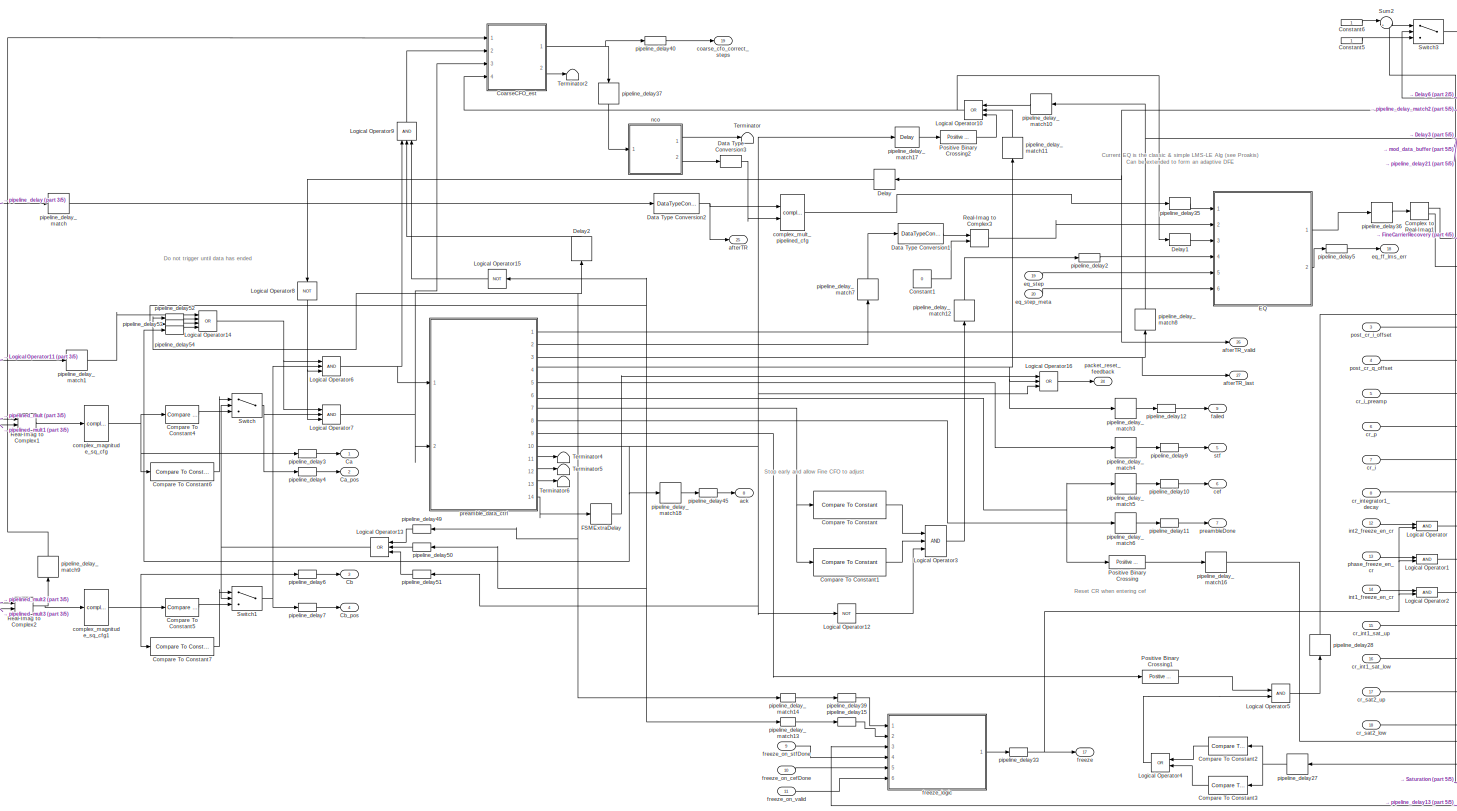
[diagram: cyclops_rx_combined/slow_rx_encapsulated/slow_rx/slow_rx_baseband_outer/slow_rx_baseband_enabled/slow_rx_baseband - part 1/5, center side, full height]
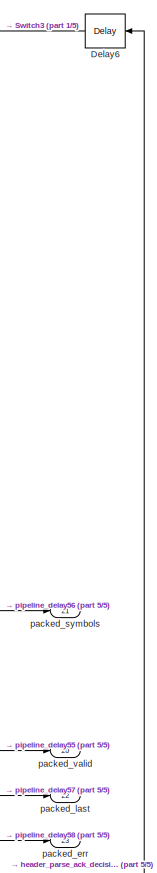
[diagram: cyclops_rx_combined/slow_rx_encapsulated/slow_rx/slow_rx_baseband_outer/slow_rx_baseband_enabled/slow_rx_baseband - part 2/5, middle right region]
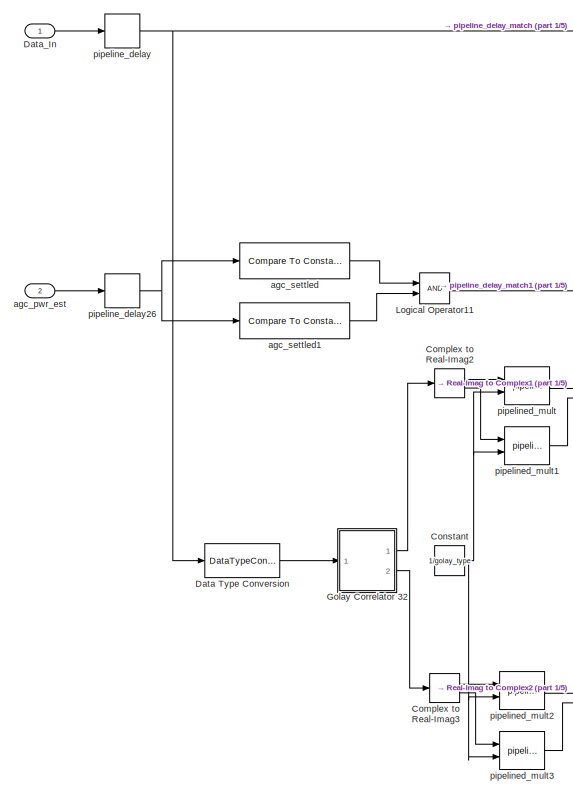
[diagram: cyclops_rx_combined/slow_rx_encapsulated/slow_rx/slow_rx_baseband_outer/slow_rx_baseband_enabled/slow_rx_baseband - part 3/5, middle left region]
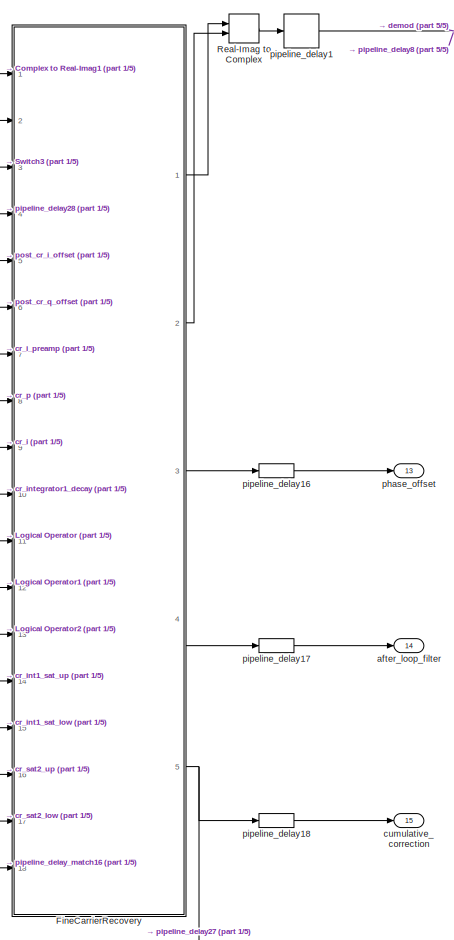
[diagram: cyclops_rx_combined/slow_rx_encapsulated/slow_rx/slow_rx_baseband_outer/slow_rx_baseband_enabled/slow_rx_baseband - part 4/5, central region]
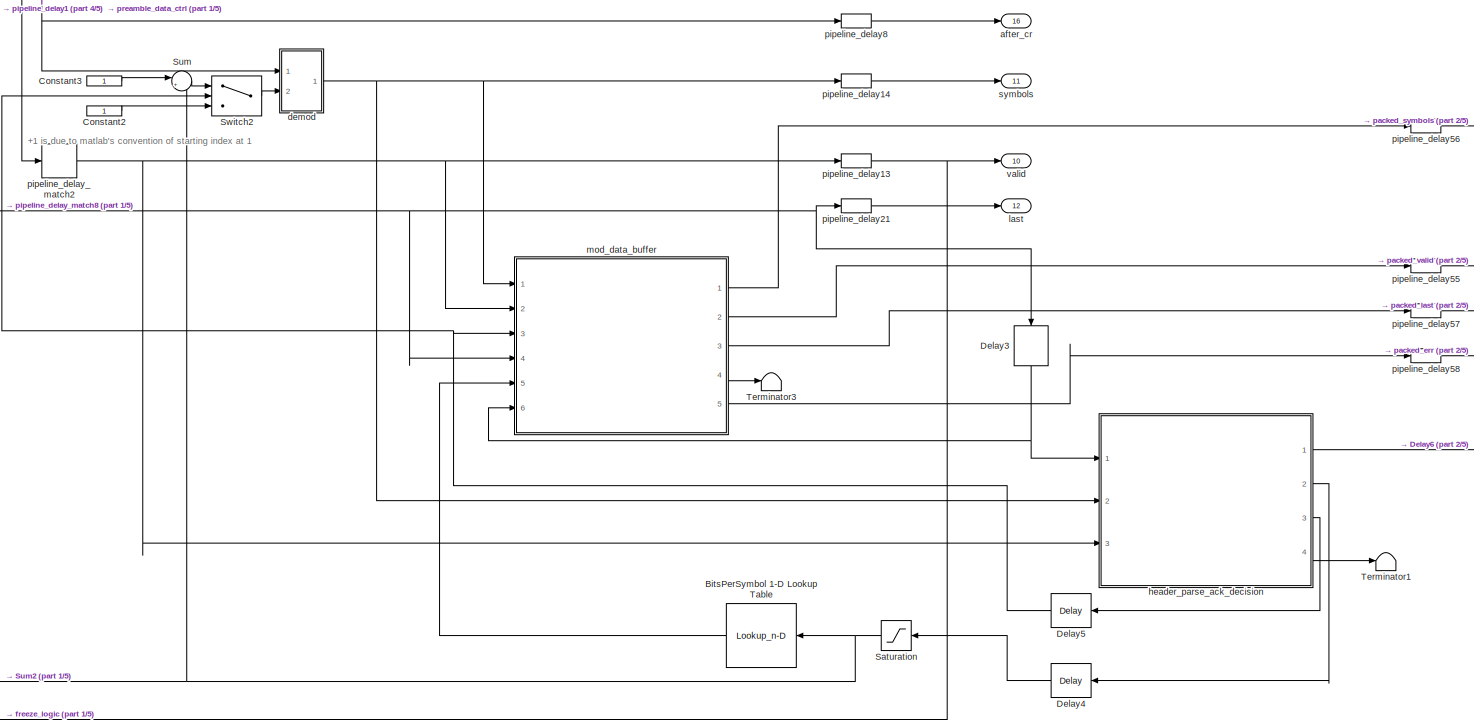
[diagram: cyclops_rx_combined/slow_rx_encapsulated/slow_rx/slow_rx_baseband_outer/slow_rx_baseband_enabled/slow_rx_baseband - part 5/5, bottom right region]
BLOCK [SubSystem] cyclops_rx_combined/slow_rx_encapsulated/slow_rx/slow_rx_baseband_outer/slow_rx_baseband_enabled/slow_rx_baseband
  Ports = [20, 27]
  RequestExecContextInheritance = off
BLOCK [Lookup_n-D] cyclops_rx_combined/slow_rx_encapsulated/slow_rx/slow_rx_baseband_outer/slow_rx_baseband_enabled/slow_rx_baseband/ BitsPerSymbol 1-D Lookup Table
  BreakpointsForDimension1 = modKeys
  DiagnosticForOutOfRangeInput = Error
  IndexSearchMethod = Evenly spaced points
  InternalRulePriority = Speed
  InterpMethod = Flat
  NameLocation = top
  NumberOfTableDimensions = 1
  Ports = [1, 1]
  RndMeth = Simplest
  Table = modBPS
BLOCK [Outport] cyclops_rx_combined/slow_rx_encapsulated/slow_rx/slow_rx_baseband_outer/slow_rx_baseband_enabled/slow_rx_baseband/Ca
  VectorParamsAs1DForOutWhenUnconnected = off
BLOCK [Outport] cyclops_rx_combined/slow_rx_encapsulated/slow_rx/slow_rx_baseband_outer/slow_rx_baseband_enabled/slow_rx_baseband/Ca_pos
  Port = 2
  VectorParamsAs1DForOutWhenUnconnected = off
BLOCK [Outport] cyclops_rx_combined/slow_rx_encapsulated/slow_rx/slow_rx_baseband_outer/slow_rx_baseband_enabled/slow_rx_baseband/Cb
  Port = 3
  VectorParamsAs1DForOutWhenUnconnected = off
BLOCK [Outport] cyclops_rx_combined/slow_rx_encapsulated/slow_rx/slow_rx_baseband_outer/slow_rx_baseband_enabled/slow_rx_baseband/Cb_pos
  Port = 4
  VectorParamsAs1DForOutWhenUnconnected = off
BLOCK [SubSystem] cyclops_rx_combined/slow_rx_encapsulated/slow_rx/slow_rx_baseband_outer/slow_rx_baseband_enabled/slow_rx_baseband/CoarseCFO_est
  Ports = [4, 2]
  RTWSystemCode = Reusable function
  RequestExecContextInheritance = off
  TreatAsAtomicUnit = on
BLOCK [Trigonometry] cyclops_rx_combined/slow_rx_encapsulated/slow_rx/slow_rx_baseband_outer/slow_rx_baseband_enabled/slow_rx_baseband/CoarseCFO_est/Atan2
  Operator = atan
  Ports = [1, 1]
BLOCK [Reference] cyclops_rx_combined/slow_rx_encapsulated/slow_rx/slow_rx_baseband_outer/slow_rx_baseband_enabled/slow_rx_baseband/CoarseCFO_est/Compare To Constant  REF=simulink/Logic and Bit
Operations/Compare
To Constant
  Ports = [1, 1]
  SourceBlock = simulink/Logic and Bit\nOperations/Compare\nTo Constant
  SourceProductBaseCode = SL
  SourceType = Compare To Constant
BLOCK [Reference] cyclops_rx_combined/slow_rx_encapsulated/slow_rx/slow_rx_baseband_outer/slow_rx_baseband_enabled/slow_rx_baseband/CoarseCFO_est/Compare To Constant1  REF=simulink/Logic and Bit
Operations/Compare
To Constant
  Ports = [1, 1]
  SourceBlock = simulink/Logic and Bit\nOperations/Compare\nTo Constant
  SourceProductBaseCode = SL
  SourceType = Compare To Constant
BLOCK [ComplexToRealImag] cyclops_rx_combined/slow_rx_encapsulated/slow_rx/slow_rx_baseband_outer/slow_rx_baseband_enabled/slow_rx_baseband/CoarseCFO_est/Complex to Real-Imag1
  Commented = on
  Ports = [1, 2]
BLOCK [ComplexToRealImag] cyclops_rx_combined/slow_rx_encapsulated/slow_rx/slow_rx_baseband_outer/slow_rx_baseband_enabled/slow_rx_baseband/CoarseCFO_est/Complex to Real-Imag2
  Commented = on
  Ports = [1, 2]
BLOCK [ComplexToRealImag] cyclops_rx_combined/slow_rx_encapsulated/slow_rx/slow_rx_baseband_outer/slow_rx_baseband_enabled/slow_rx_baseband/CoarseCFO_est/Complex to Real-Imag4
  Ports = [1, 2]
BLOCK [Constant] cyclops_rx_combined/slow_rx_encapsulated/slow_rx/slow_rx_baseband_outer/slow_rx_baseband_enabled/slow_rx_baseband/CoarseCFO_est/Constant
  NameLocation = top
  OutDataTypeStr = Inherit: Inherit via back propagation
  SampleTime = -1
  Value = 0
BLOCK [Constant] cyclops_rx_combined/slow_rx_encapsulated/slow_rx/slow_rx_baseband_outer/slow_rx_baseband_enabled/slow_rx_baseband/CoarseCFO_est/Constant1
  OutDataTypeStr = Inherit: Inherit via back propagation
BLOCK [Constant] cyclops_rx_combined/slow_rx_encapsulated/slow_rx/slow_rx_baseband_outer/slow_rx_baseband_enabled/slow_rx_baseband/CoarseCFO_est/Constant2
  OutDataTypeStr = Inherit: Inherit via back propagation
BLOCK [Constant] cyclops_rx_combined/slow_rx_encapsulated/slow_rx/slow_rx_baseband_outer/slow_rx_baseband_enabled/slow_rx_baseband/CoarseCFO_est/Constant3
  OutDataTypeStr = Inherit: Inherit via back propagation
  Value = 0.00000001
BLOCK [DataTypeConversion] cyclops_rx_combined/slow_rx_encapsulated/slow_rx/slow_rx_baseband_outer/slow_rx_baseband_enabled/slow_rx_baseband/CoarseCFO_est/Data Type Conversion
  OutDataTypeStr = single
  RndMeth = Floor
  SaturateOnIntegerOverflow = off
BLOCK [DataTypeConversion] cyclops_rx_combined/slow_rx_encapsulated/slow_rx/slow_rx_baseband_outer/slow_rx_baseband_enabled/slow_rx_baseband/CoarseCFO_est/Data Type Conversion1
  OutDataTypeStr = single
  RndMeth = Floor
  SaturateOnIntegerOverflow = off
BLOCK [DataTypeConversion] cyclops_rx_combined/slow_rx_encapsulated/slow_rx/slow_rx_baseband_outer/slow_rx_baseband_enabled/slow_rx_baseband/CoarseCFO_est/Data Type Conversion3
  Commented = on
  RndMeth = Floor
  SaturateOnIntegerOverflow = off
BLOCK [DataTypeConversion] cyclops_rx_combined/slow_rx_encapsulated/slow_rx/slow_rx_baseband_outer/slow_rx_baseband_enabled/slow_rx_baseband/CoarseCFO_est/Data Type Conversion4
  Commented = on
  RndMeth = Floor
  SaturateOnIntegerOverflow = off
BLOCK [DataTypeConversion] cyclops_rx_combined/slow_rx_encapsulated/slow_rx/slow_rx_baseband_outer/slow_rx_baseband_enabled/slow_rx_baseband/CoarseCFO_est/Data Type Conversion5
  Commented = on
  RndMeth = Floor
  SaturateOnIntegerOverflow = off
BLOCK [DataTypeConversion] cyclops_rx_combined/slow_rx_encapsulated/slow_rx/slow_rx_baseband_outer/slow_rx_baseband_enabled/slow_rx_baseband/CoarseCFO_est/Data Type Conversion6
  Commented = on
  RndMeth = Floor
  SaturateOnIntegerOverflow = off
BLOCK [Delay] cyclops_rx_combined/slow_rx_encapsulated/slow_rx/slow_rx_baseband_outer/slow_rx_baseband_enabled/slow_rx_baseband/CoarseCFO_est/Delay
  DelayLength = 1
  InitialCondition = 0
  InputPortMap = u0
  NameLocation = top
  Ports = [1, 1]
BLOCK [Display] cyclops_rx_combined/slow_rx_encapsulated/slow_rx/slow_rx_baseband_outer/slow_rx_baseband_enabled/slow_rx_baseband/CoarseCFO_est/Display1
  Commented = on
  Decimation = 1
  Ports = [1]
BLOCK [Display] cyclops_rx_combined/slow_rx_encapsulated/slow_rx/slow_rx_baseband_outer/slow_rx_baseband_enabled/slow_rx_baseband/CoarseCFO_est/Display2
  Commented = on
  Decimation = 1
  Ports = [1]
BLOCK [Display] cyclops_rx_combined/slow_rx_encapsulated/slow_rx/slow_rx_baseband_outer/slow_rx_baseband_enabled/slow_rx_baseband/CoarseCFO_est/Display3
  Commented = on
  Decimation = 1
  Ports = [1]
BLOCK [Display] cyclops_rx_combined/slow_rx_encapsulated/slow_rx/slow_rx_baseband_outer/slow_rx_baseband_enabled/slow_rx_baseband/CoarseCFO_est/Display4
  Commented = on
  Decimation = 1
  Ports = [1]
BLOCK [Display] cyclops_rx_combined/slow_rx_encapsulated/slow_rx/slow_rx_baseband_outer/slow_rx_baseband_enabled/slow_rx_baseband/CoarseCFO_est/Display5
  Commented = on
  Decimation = 1
  Ports = [1]
BLOCK [Display] cyclops_rx_combined/slow_rx_encapsulated/slow_rx/slow_rx_baseband_outer/slow_rx_baseband_enabled/slow_rx_baseband/CoarseCFO_est/Display6
  Commented = on
  Decimation = 1
  Ports = [1]
BLOCK [Display] cyclops_rx_combined/slow_rx_encapsulated/slow_rx/slow_rx_baseband_outer/slow_rx_baseband_enabled/slow_rx_baseband/CoarseCFO_est/Display7
  Commented = on
  Decimation = 1
  Ports = [1]
BLOCK [Display] cyclops_rx_combined/slow_rx_encapsulated/slow_rx/slow_rx_baseband_outer/slow_rx_baseband_enabled/slow_rx_baseband/CoarseCFO_est/Display8
  Decimation = 1
  Ports = [1]
BLOCK [Product] cyclops_rx_combined/slow_rx_encapsulated/slow_rx/slow_rx_baseband_outer/slow_rx_baseband_enabled/slow_rx_baseband/CoarseCFO_est/Divide
  Inputs = */
  Ports = [2, 1]
BLOCK [Product] cyclops_rx_combined/slow_rx_encapsulated/slow_rx/slow_rx_baseband_outer/slow_rx_baseband_enabled/slow_rx_baseband/CoarseCFO_est/Divide1
  Inputs = */
  Ports = [2, 1]
BLOCK [Lookup_n-D] cyclops_rx_combined/slow_rx_encapsulated/slow_rx/slow_rx_baseband_outer/slow_rx_baseband_enabled/slow_rx_baseband/CoarseCFO_est/Inv 1-D Lookup Table
  BreakpointsForDimension1 = [0:(x_STFRepCount+1)]
  Commented = on
  DiagnosticForOutOfRangeInput = Error
  IndexSearchMethod = Evenly spaced points
  InternalRulePriority = Speed
  InterpMethod = Flat
  NumberOfTableDimensions = 1
  OutDataTypeStr = Inherit: Inherit via back propagation
  Ports = [1, 1]
  RndMeth = Simplest
  Table = cat(2, [1], 1./[1:(x_STFRepCount+1)] )
BLOCK [Sum] cyclops_rx_combined/slow_rx_encapsulated/slow_rx/slow_rx_baseband_outer/slow_rx_baseband_enabled/slow_rx_baseband/CoarseCFO_est/Sum
  Inputs = ++|
  OutDataTypeStr = Inherit: Same as first input
  Ports = [2, 1]
BLOCK [Sum] cyclops_rx_combined/slow_rx_encapsulated/slow_rx/slow_rx_baseband_outer/slow_rx_baseband_enabled/slow_rx_baseband/CoarseCFO_est/Sum1
  Commented = on
  Inputs = |+-
  Ports = [2, 1]
BLOCK [Switch] cyclops_rx_combined/slow_rx_encapsulated/slow_rx/slow_rx_baseband_outer/slow_rx_baseband_enabled/slow_rx_baseband/CoarseCFO_est/Switch
  Criteria = u2 > Threshold
  InputSameDT = off
  NameLocation = top
  SaturateOnIntegerOverflow = off
BLOCK [Switch] cyclops_rx_combined/slow_rx_encapsulated/slow_rx/slow_rx_baseband_outer/slow_rx_baseband_enabled/slow_rx_baseband/CoarseCFO_est/Switch1
  Criteria = u2 > Threshold
  InputSameDT = off
  NameLocation = top
  SaturateOnIntegerOverflow = off
BLOCK [Switch] cyclops_rx_combined/slow_rx_encapsulated/slow_rx/slow_rx_baseband_outer/slow_rx_baseband_enabled/slow_rx_baseband/CoarseCFO_est/Switch2
  Criteria = u2 > Threshold
  InputSameDT = off
  SaturateOnIntegerOverflow = off
BLOCK [Switch] cyclops_rx_combined/slow_rx_encapsulated/slow_rx/slow_rx_baseband_outer/slow_rx_baseband_enabled/slow_rx_baseband/CoarseCFO_est/Switch3
  Criteria = u2 > Threshold
  InputSameDT = off
  SaturateOnIntegerOverflow = off
BLOCK [Trigonometry] cyclops_rx_combined/slow_rx_encapsulated/slow_rx/slow_rx_baseband_outer/slow_rx_baseband_enabled/slow_rx_baseband/CoarseCFO_est/Trigonometric Function1
  Commented = on
  Operator = atan2
  Ports = [2, 1]
BLOCK [Trigonometry] cyclops_rx_combined/slow_rx_encapsulated/slow_rx/slow_rx_baseband_outer/slow_rx_baseband_enabled/slow_rx_baseband/CoarseCFO_est/Trigonometric Function2
  Commented = on
  Operator = atan2
  Ports = [2, 1]
BLOCK [SubSystem] cyclops_rx_combined/slow_rx_encapsulated/slow_rx/slow_rx_baseband_outer/slow_rx_baseband_enabled/slow_rx_baseband/CoarseCFO_est/atan
  AncestorBlock = helperLib/atan2
  Commented = on
  Ports = [2, 1]
  RequestExecContextInheritance = off
BLOCK [Reference] cyclops_rx_combined/slow_rx_encapsulated/slow_rx/slow_rx_baseband_outer/slow_rx_baseband_enabled/slow_rx_baseband/CoarseCFO_est/atan/Compare To Constant2  REF=simulink/Logic and Bit
Operations/Compare
To Constant
  Ports = [1, 1]
  SourceBlock = simulink/Logic and Bit\nOperations/Compare\nTo Constant
  SourceProductBaseCode = SL
  SourceType = Compare To Constant
BLOCK [Reference] cyclops_rx_combined/slow_rx_encapsulated/slow_rx/slow_rx_baseband_outer/slow_rx_baseband_enabled/slow_rx_baseband/CoarseCFO_est/atan/Compare To Constant3  REF=simulink/Logic and Bit
Operations/Compare
To Constant
  Ports = [1, 1]
  SourceBlock = simulink/Logic and Bit\nOperations/Compare\nTo Constant
  SourceProductBaseCode = SL
  SourceType = Compare To Constant
BLOCK [Reference] cyclops_rx_combined/slow_rx_encapsulated/slow_rx/slow_rx_baseband_outer/slow_rx_baseband_enabled/slow_rx_baseband/CoarseCFO_est/atan/Compare To Constant4  REF=simulink/Logic and Bit
Operations/Compare
To Constant
  Ports = [1, 1]
  SourceBlock = simulink/Logic and Bit\nOperations/Compare\nTo Constant
  SourceProductBaseCode = SL
  SourceType = Compare To Constant
BLOCK [Constant] cyclops_rx_combined/slow_rx_encapsulated/slow_rx/slow_rx_baseband_outer/slow_rx_baseband_enabled/slow_rx_baseband/CoarseCFO_est/atan/Constant2
  OutDataTypeStr = Inherit: Inherit via back propagation
  SampleTime = -1
  Value = 0
BLOCK [Constant] cyclops_rx_combined/slow_rx_encapsulated/slow_rx/slow_rx_baseband_outer/slow_rx_baseband_enabled/slow_rx_baseband/CoarseCFO_est/atan/Constant3
  OutDataTypeStr = Inherit: Inherit via back propagation
  SampleTime = -1
  Value = -pi/2
BLOCK [Constant] cyclops_rx_combined/slow_rx_encapsulated/slow_rx/slow_rx_baseband_outer/slow_rx_baseband_enabled/slow_rx_baseband/CoarseCFO_est/atan/Constant4
  OutDataTypeStr = Inherit: Inherit via back propagation
  SampleTime = -1
  Value = pi/2
BLOCK [Logic] cyclops_rx_combined/slow_rx_encapsulated/slow_rx/slow_rx_baseband_outer/slow_rx_baseband_enabled/slow_rx_baseband/CoarseCFO_est/atan/Logical Operator
  AllPortsSameDT = off
  OutDataTypeStr = boolean
  Ports = [2, 1]
BLOCK [Logic] cyclops_rx_combined/slow_rx_encapsulated/slow_rx/slow_rx_baseband_outer/slow_rx_baseband_enabled/slow_rx_baseband/CoarseCFO_est/atan/Logical Operator1
  AllPortsSameDT = off
  OutDataTypeStr = boolean
  Ports = [2, 1]
BLOCK [Outport] cyclops_rx_combined/slow_rx_encapsulated/slow_rx/slow_rx_baseband_outer/slow_rx_baseband_enabled/slow_rx_baseband/CoarseCFO_est/atan/Out1
  VectorParamsAs1DForOutWhenUnconnected = off
BLOCK [Switch] cyclops_rx_combined/slow_rx_encapsulated/slow_rx/slow_rx_baseband_outer/slow_rx_baseband_enabled/slow_rx_baseband/CoarseCFO_est/atan/Switch3
  Criteria = u2 ~= 0
  InputSameDT = off
  OutDataTypeStr = Inherit: Inherit via back propagation
  SaturateOnIntegerOverflow = off
BLOCK [Switch] cyclops_rx_combined/slow_rx_encapsulated/slow_rx/slow_rx_baseband_outer/slow_rx_baseband_enabled/slow_rx_baseband/CoarseCFO_est/atan/Switch4
  Criteria = u2 ~= 0
  InputSameDT = off
  OutDataTypeStr = Inherit: Inherit via back propagation
  SaturateOnIntegerOverflow = off
BLOCK [Switch] cyclops_rx_combined/slow_rx_encapsulated/slow_rx/slow_rx_baseband_outer/slow_rx_baseband_enabled/slow_rx_baseband/CoarseCFO_est/atan/Switch5
  Criteria = u2 ~= 0
  InputSameDT = off
  OutDataTypeStr = Inherit: Inherit via back propagation
  SaturateOnIntegerOverflow = off
BLOCK [SubSystem] cyclops_rx_combined/slow_rx_encapsulated/slow_rx/slow_rx_baseband_outer/slow_rx_baseband_enabled/slow_rx_baseband/CoarseCFO_est/atan/bound_atan
  AncestorBlock = helperLib/bound_atan
  Ports = [1, 1]
  RequestExecContextInheritance = off
BLOCK [Reference] cyclops_rx_combined/slow_rx_encapsulated/slow_rx/slow_rx_baseband_outer/slow_rx_baseband_enabled/slow_rx_baseband/CoarseCFO_est/atan/bound_atan/Compare To Constant1  REF=simulink/Logic and Bit
Operations/Compare
To Constant
  Ports = [1, 1]
  SourceBlock = simulink/Logic and Bit\nOperations/Compare\nTo Constant
  SourceProductBaseCode = SL
  SourceType = Compare To Constant
BLOCK [Reference] cyclops_rx_combined/slow_rx_encapsulated/slow_rx/slow_rx_baseband_outer/slow_rx_baseband_enabled/slow_rx_baseband/CoarseCFO_est/atan/bound_atan/Compare To Constant4  REF=simulink/Logic and Bit
Operations/Compare
To Constant
  Ports = [1, 1]
  SourceBlock = simulink/Logic and Bit\nOperations/Compare\nTo Constant
  SourceProductBaseCode = SL
  SourceType = Compare To Constant
BLOCK [Constant] cyclops_rx_combined/slow_rx_encapsulated/slow_rx/slow_rx_baseband_outer/slow_rx_baseband_enabled/slow_rx_baseband/CoarseCFO_est/atan/bound_atan/Constant11
  NameLocation = left
  OutDataTypeStr = Inherit: Inherit via back propagation
  SampleTime = -1
  Value = 0
BLOCK [Constant] cyclops_rx_combined/slow_rx_encapsulated/slow_rx/slow_rx_baseband_outer/slow_rx_baseband_enabled/slow_rx_baseband/CoarseCFO_est/atan/bound_atan/Constant3
  NameLocation = left
  OutDataTypeStr = Inherit: Inherit via back propagation
  SampleTime = -1
  Value = pi/2
BLOCK [Constant] cyclops_rx_combined/slow_rx_encapsulated/slow_rx/slow_rx_baseband_outer/slow_rx_baseband_enabled/slow_rx_baseband/CoarseCFO_est/atan/bound_atan/Constant4
  NameLocation = left
  OutDataTypeStr = Inherit: Inherit via back propagation
  SampleTime = -1
  Value = -pi/2
BLOCK [DataTypeConversion] cyclops_rx_combined/slow_rx_encapsulated/slow_rx/slow_rx_baseband_outer/slow_rx_baseband_enabled/slow_rx_baseband/CoarseCFO_est/atan/bound_atan/Data Type Conversion
  OutDataTypeStr = single
  RndMeth = Floor
  SaturateOnIntegerOverflow = off
BLOCK [DataTypeDuplicate] cyclops_rx_combined/slow_rx_encapsulated/slow_rx/slow_rx_baseband_outer/slow_rx_baseband_enabled/slow_rx_baseband/CoarseCFO_est/atan/bound_atan/Data Type Duplicate
  Ports = [2]
BLOCK [DataTypeDuplicate] cyclops_rx_combined/slow_rx_encapsulated/slow_rx/slow_rx_baseband_outer/slow_rx_baseband_enabled/slow_rx_baseband/CoarseCFO_est/atan/bound_atan/Data Type Duplicate1
  Ports = [2]
BLOCK [DataTypeDuplicate] cyclops_rx_combined/slow_rx_encapsulated/slow_rx/slow_rx_baseband_outer/slow_rx_baseband_enabled/slow_rx_baseband/CoarseCFO_est/atan/bound_atan/Data Type Duplicate2
  Ports = [2]
BLOCK [Inport] cyclops_rx_combined/slow_rx_encapsulated/slow_rx/slow_rx_baseband_outer/slow_rx_baseband_enabled/slow_rx_baseband/CoarseCFO_est/atan/bound_atan/In1
BLOCK [Logic] cyclops_rx_combined/slow_rx_encapsulated/slow_rx/slow_rx_baseband_outer/slow_rx_baseband_enabled/slow_rx_baseband/CoarseCFO_est/atan/bound_atan/Logical Operator
  AllPortsSameDT = off
  Operator = OR
  OutDataTypeStr = boolean
  Ports = [2, 1]
BLOCK [Outport] cyclops_rx_combined/slow_rx_encapsulated/slow_rx/slow_rx_baseband_outer/slow_rx_baseband_enabled/slow_rx_baseband/CoarseCFO_est/atan/bound_atan/Out1
  VectorParamsAs1DForOutWhenUnconnected = off
BLOCK [Switch] cyclops_rx_combined/slow_rx_encapsulated/slow_rx/slow_rx_baseband_outer/slow_rx_baseband_enabled/slow_rx_baseband/CoarseCFO_est/atan/bound_atan/Switch2
  Criteria = u2 ~= 0
  InputSameDT = off
  OutDataTypeStr = Inherit: Inherit via back propagation
  SaturateOnIntegerOverflow = off
BLOCK [Switch] cyclops_rx_combined/slow_rx_encapsulated/slow_rx/slow_rx_baseband_outer/slow_rx_baseband_enabled/slow_rx_baseband/CoarseCFO_est/atan/bound_atan/Switch3
  Criteria = u2 ~= 0
  InputSameDT = off
  OutDataTypeStr = Inherit: Inherit via back propagation
  SaturateOnIntegerOverflow = off
BLOCK [Switch] cyclops_rx_combined/slow_rx_encapsulated/slow_rx/slow_rx_baseband_outer/slow_rx_baseband_enabled/slow_rx_baseband/CoarseCFO_est/atan/bound_atan/Switch8
  Criteria = u2 ~= 0
  InputSameDT = off
  OutDataTypeStr = Inherit: Inherit via back propagation
  SaturateOnIntegerOverflow = off
BLOCK [Lookup_n-D] cyclops_rx_combined/slow_rx_encapsulated/slow_rx/slow_rx_baseband_outer/slow_rx_baseband_enabled/slow_rx_baseband/CoarseCFO_est/atan/bound_atan/atan Lookup Table
  BreakpointsForDimension1 = [-atanDomain:atanResolution:atanDomain]
  DiagnosticForOutOfRangeInput = Error
  IndexSearchMethod = Evenly spaced points
  InternalRulePriority = Speed
  InterpMethod = Flat
  NumberOfTableDimensions = 1
  OutDataTypeStr = Inherit: Inherit via back propagation
  Ports = [1, 1]
  RemoveProtectionInput = on
  RndMeth = Simplest
  Table = atan([-atanDomain:atanResolution:atanDomain])
BLOCK [Delay] cyclops_rx_combined/slow_rx_encapsulated/slow_rx/slow_rx_baseband_outer/slow_rx_baseband_enabled/slow_rx_baseband/CoarseCFO_est/atan/bound_atan/mult_delay
  DelayLength = cr_mult_pipeline
  InputPortMap = u0
  Ports = [1, 1]
BLOCK [Delay] cyclops_rx_combined/slow_rx_encapsulated/slow_rx/slow_rx_baseband_outer/slow_rx_baseband_enabled/slow_rx_baseband/CoarseCFO_est/atan/bound_atan/mult_delay_match
  DelayLength = cr_mult_pipeline
  InputPortMap = u0
  NameLocation = right
  Ports = [1, 1]
BLOCK [Delay] cyclops_rx_combined/slow_rx_encapsulated/slow_rx/slow_rx_baseband_outer/slow_rx_baseband_enabled/slow_rx_baseband/CoarseCFO_est/atan/bound_atan/mult_delay_match1
  DelayLength = cr_mult_pipeline
  InputPortMap = u0
  NameLocation = right
  Ports = [1, 1]
BLOCK [Delay] cyclops_rx_combined/slow_rx_encapsulated/slow_rx/slow_rx_baseband_outer/slow_rx_baseband_enabled/slow_rx_baseband/CoarseCFO_est/atan/bound_atan/pipeline_delay1
  DelayLength = regular_pipeline*2
  InputPortMap = u0
  Ports = [1, 1]
BLOCK [Delay] cyclops_rx_combined/slow_rx_encapsulated/slow_rx/slow_rx_baseband_outer/slow_rx_baseband_enabled/slow_rx_baseband/CoarseCFO_est/atan/bound_atan/pipeline_delay2
  DelayLength = regular_pipeline
  InputPortMap = u0
  Ports = [1, 1]
BLOCK [Delay] cyclops_rx_combined/slow_rx_encapsulated/slow_rx/slow_rx_baseband_outer/slow_rx_baseband_enabled/slow_rx_baseband/CoarseCFO_est/atan/bound_atan/pipeline_delay_match
  DelayLength = regular_pipeline*3
  InputPortMap = u0
  Ports = [1, 1]
BLOCK [Delay] cyclops_rx_combined/slow_rx_encapsulated/slow_rx/slow_rx_baseband_outer/slow_rx_baseband_enabled/slow_rx_baseband/CoarseCFO_est/atan/bound_atan/pipeline_delay_match1
  DelayLength = regular_pipeline*3
  InputPortMap = u0
  Ports = [1, 1]
BLOCK [Inport] cyclops_rx_combined/slow_rx_encapsulated/slow_rx/slow_rx_baseband_outer/slow_rx_baseband_enabled/slow_rx_baseband/CoarseCFO_est/atan/imag_y
BLOCK [SubSystem] cyclops_rx_combined/slow_rx_encapsulated/slow_rx/slow_rx_baseband_outer/slow_rx_baseband_enabled/slow_rx_baseband/CoarseCFO_est/atan/inv
  Ports = [1, 1]
  RequestExecContextInheritance = off
BLOCK [Reference] cyclops_rx_combined/slow_rx_encapsulated/slow_rx/slow_rx_baseband_outer/slow_rx_baseband_enabled/slow_rx_baseband/CoarseCFO_est/atan/inv/Compare To Constant1  REF=simulink/Logic and Bit
Operations/Compare
To Constant
  Ports = [1, 1]
  SourceBlock = simulink/Logic and Bit\nOperations/Compare\nTo Constant
  SourceProductBaseCode = SL
  SourceType = Compare To Constant
BLOCK [Reference] cyclops_rx_combined/slow_rx_encapsulated/slow_rx/slow_rx_baseband_outer/slow_rx_baseband_enabled/slow_rx_baseband/CoarseCFO_est/atan/inv/Compare To Constant4  REF=simulink/Logic and Bit
Operations/Compare
To Constant
  Ports = [1, 1]
  SourceBlock = simulink/Logic and Bit\nOperations/Compare\nTo Constant
  SourceProductBaseCode = SL
  SourceType = Compare To Constant
BLOCK [Constant] cyclops_rx_combined/slow_rx_encapsulated/slow_rx/slow_rx_baseband_outer/slow_rx_baseband_enabled/slow_rx_baseband/CoarseCFO_est/atan/inv/Constant11
  NameLocation = left
  OutDataTypeStr = Inherit: Inherit via back propagation
  SampleTime = -1
  Value = 0
BLOCK [Constant] cyclops_rx_combined/slow_rx_encapsulated/slow_rx/slow_rx_baseband_outer/slow_rx_baseband_enabled/slow_rx_baseband/CoarseCFO_est/atan/inv/Constant3
  NameLocation = left
  OutDataTypeStr = Inherit: Inherit via back propagation
  SampleTime = -1
  Value = frac_lut_range_max_coarse_cfo
BLOCK [Constant] cyclops_rx_combined/slow_rx_encapsulated/slow_rx/slow_rx_baseband_outer/slow_rx_baseband_enabled/slow_rx_baseband/CoarseCFO_est/atan/inv/Constant4
  NameLocation = left
  OutDataTypeStr = Inherit: Inherit via back propagation
  SampleTime = -1
  Value = frac_lut_range_min_coarse_cfo
BLOCK [DataTypeConversion] cyclops_rx_combined/slow_rx_encapsulated/slow_rx/slow_rx_baseband_outer/slow_rx_baseband_enabled/slow_rx_baseband/CoarseCFO_est/atan/inv/Data Type Conversion
  OutDataTypeStr = single
  RndMeth = Floor
  SaturateOnIntegerOverflow = off
BLOCK [DataTypeDuplicate] cyclops_rx_combined/slow_rx_encapsulated/slow_rx/slow_rx_baseband_outer/slow_rx_baseband_enabled/slow_rx_baseband/CoarseCFO_est/atan/inv/Data Type Duplicate
  Ports = [2]
BLOCK [DataTypeDuplicate] cyclops_rx_combined/slow_rx_encapsulated/slow_rx/slow_rx_baseband_outer/slow_rx_baseband_enabled/slow_rx_baseband/CoarseCFO_est/atan/inv/Data Type Duplicate1
  Ports = [2]
BLOCK [DataTypeDuplicate] cyclops_rx_combined/slow_rx_encapsulated/slow_rx/slow_rx_baseband_outer/slow_rx_baseband_enabled/slow_rx_baseband/CoarseCFO_est/atan/inv/Data Type Duplicate2
  Ports = [2]
BLOCK [Inport] cyclops_rx_combined/slow_rx_encapsulated/slow_rx/slow_rx_baseband_outer/slow_rx_baseband_enabled/slow_rx_baseband/CoarseCFO_est/atan/inv/In
BLOCK [Logic] cyclops_rx_combined/slow_rx_encapsulated/slow_rx/slow_rx_baseband_outer/slow_rx_baseband_enabled/slow_rx_baseband/CoarseCFO_est/atan/inv/Logical Operator
  AllPortsSameDT = off
  Operator = OR
  OutDataTypeStr = boolean
  Ports = [2, 1]
BLOCK [Outport] cyclops_rx_combined/slow_rx_encapsulated/slow_rx/slow_rx_baseband_outer/slow_rx_baseband_enabled/slow_rx_baseband/CoarseCFO_est/atan/inv/Out
  VectorParamsAs1DForOutWhenUnconnected = off
BLOCK [Switch] cyclops_rx_combined/slow_rx_encapsulated/slow_rx/slow_rx_baseband_outer/slow_rx_baseband_enabled/slow_rx_baseband/CoarseCFO_est/atan/inv/Switch2
  Criteria = u2 ~= 0
  InputSameDT = off
  OutDataTypeStr = Inherit: Inherit via back propagation
  SaturateOnIntegerOverflow = off
BLOCK [Switch] cyclops_rx_combined/slow_rx_encapsulated/slow_rx/slow_rx_baseband_outer/slow_rx_baseband_enabled/slow_rx_baseband/CoarseCFO_est/atan/inv/Switch3
  Criteria = u2 ~= 0
  InputSameDT = off
  OutDataTypeStr = Inherit: Inherit via back propagation
  SaturateOnIntegerOverflow = off
BLOCK [Switch] cyclops_rx_combined/slow_rx_encapsulated/slow_rx/slow_rx_baseband_outer/slow_rx_baseband_enabled/slow_rx_baseband/CoarseCFO_est/atan/inv/Switch8
  Criteria = u2 ~= 0
  InputSameDT = off
  OutDataTypeStr = Inherit: Inherit via back propagation
  SaturateOnIntegerOverflow = off
BLOCK [Lookup_n-D] cyclops_rx_combined/slow_rx_encapsulated/slow_rx/slow_rx_baseband_outer/slow_rx_baseband_enabled/slow_rx_baseband/CoarseCFO_est/atan/inv/inv Lookup Table
  BreakpointsForDimension1 = frac_lut_table_breaks_coarse_cfo
  DiagnosticForOutOfRangeInput = Error
  IndexSearchMethod = Evenly spaced points
  InternalRulePriority = Speed
  InterpMethod = Flat
  NumberOfTableDimensions = 1
  OutDataTypeStr = Inherit: Inherit via back propagation
  Ports = [1, 1]
  RemoveProtectionInput = on
  RndMeth = Simplest
  Table = frac_lut_table_data_coarse_cfo
BLOCK [Delay] cyclops_rx_combined/slow_rx_encapsulated/slow_rx/slow_rx_baseband_outer/slow_rx_baseband_enabled/slow_rx_baseband/CoarseCFO_est/atan/inv/mult_delay
  DelayLength = cr_mult_pipeline*2
  InputPortMap = u0
  Ports = [1, 1]
BLOCK [Delay] cyclops_rx_combined/slow_rx_encapsulated/slow_rx/slow_rx_baseband_outer/slow_rx_baseband_enabled/slow_rx_baseband/CoarseCFO_est/atan/inv/mult_delay_match
  DelayLength = cr_mult_pipeline*2
  InputPortMap = u0
  NameLocation = right
  Ports = [1, 1]
BLOCK [Delay] cyclops_rx_combined/slow_rx_encapsulated/slow_rx/slow_rx_baseband_outer/slow_rx_baseband_enabled/slow_rx_baseband/CoarseCFO_est/atan/inv/mult_delay_match1
  DelayLength = cr_mult_pipeline*2
  InputPortMap = u0
  NameLocation = right
  Ports = [1, 1]
BLOCK [Delay] cyclops_rx_combined/slow_rx_encapsulated/slow_rx/slow_rx_baseband_outer/slow_rx_baseband_enabled/slow_rx_baseband/CoarseCFO_est/atan/inv/pipeline_delay1
  DelayLength = regular_pipeline
  InputPortMap = u0
  Ports = [1, 1]
BLOCK [Delay] cyclops_rx_combined/slow_rx_encapsulated/slow_rx/slow_rx_baseband_outer/slow_rx_baseband_enabled/slow_rx_baseband/CoarseCFO_est/atan/inv/pipeline_delay2
  DelayLength = regular_pipeline
  InitialCondition = 1
  InputPortMap = u0
  Ports = [1, 1]
BLOCK [Delay] cyclops_rx_combined/slow_rx_encapsulated/slow_rx/slow_rx_baseband_outer/slow_rx_baseband_enabled/slow_rx_baseband/CoarseCFO_est/atan/inv/pipeline_delay_match
  DelayLength = regular_pipeline*2
  InputPortMap = u0
  Ports = [1, 1]
BLOCK [Delay] cyclops_rx_combined/slow_rx_encapsulated/slow_rx/slow_rx_baseband_outer/slow_rx_baseband_enabled/slow_rx_baseband/CoarseCFO_est/atan/inv/pipeline_delay_match1
  DelayLength = regular_pipeline*2
  InputPortMap = u0
  Ports = [1, 1]
BLOCK [Delay] cyclops_rx_combined/slow_rx_encapsulated/slow_rx/slow_rx_baseband_outer/slow_rx_baseband_enabled/slow_rx_baseband/CoarseCFO_est/atan/mult_delay_match
  DelayLength = cr_mult_pipeline*2+regular_pipeline*2
  InputPortMap = u0
  Ports = [1, 1]
BLOCK [Delay] cyclops_rx_combined/slow_rx_encapsulated/slow_rx/slow_rx_baseband_outer/slow_rx_baseband_enabled/slow_rx_baseband/CoarseCFO_est/atan/pipeline_delay
  DelayLength = regular_pipeline
  InputPortMap = u0
  Ports = [1, 1]
BLOCK [Delay] cyclops_rx_combined/slow_rx_encapsulated/slow_rx/slow_rx_baseband_outer/slow_rx_baseband_enabled/slow_rx_baseband/CoarseCFO_est/atan/pipeline_delay1
  DelayLength = regular_pipeline
  InputPortMap = u0
  Ports = [1, 1]
BLOCK [Delay] cyclops_rx_combined/slow_rx_encapsulated/slow_rx/slow_rx_baseband_outer/slow_rx_baseband_enabled/slow_rx_baseband/CoarseCFO_est/atan/pipeline_delay2
  DelayLength = regular_pipeline
  InputPortMap = u0
  Ports = [1, 1]
BLOCK [Delay] cyclops_rx_combined/slow_rx_encapsulated/slow_rx/slow_rx_baseband_outer/slow_rx_baseband_enabled/slow_rx_baseband/CoarseCFO_est/atan/pipeline_delay3
  DelayLength = regular_pipeline
  InputPortMap = u0
  Ports = [1, 1]
BLOCK [Delay] cyclops_rx_combined/slow_rx_encapsulated/slow_rx/slow_rx_baseband_outer/slow_rx_baseband_enabled/slow_rx_baseband/CoarseCFO_est/atan/pipeline_delay_match2
  DelayLength = cr_mult_pipeline*5+regular_pipeline*7
  InputPortMap = u0
  Ports = [1, 1]
BLOCK [Delay] cyclops_rx_combined/slow_rx_encapsulated/slow_rx/slow_rx_baseband_outer/slow_rx_baseband_enabled/slow_rx_baseband/CoarseCFO_est/atan/pipeline_delay_match3
  DelayLength = cr_mult_pipeline*5+regular_pipeline*7
  InputPortMap = u0
  Ports = [1, 1]
BLOCK [Delay] cyclops_rx_combined/slow_rx_encapsulated/slow_rx/slow_rx_baseband_outer/slow_rx_baseband_enabled/slow_rx_baseband/CoarseCFO_est/atan/pipeline_delay_match4
  DelayLength = cr_mult_pipeline*5+regular_pipeline*7
  InputPortMap = u0
  Ports = [1, 1]
BLOCK [Reference] cyclops_rx_combined/slow_rx_encapsulated/slow_rx/slow_rx_baseband_outer/slow_rx_baseband_enabled/slow_rx_baseband/CoarseCFO_est/atan/pipelined_mult  REF=helperLib/pipelined_mult
  Ports = [2, 1]
  SourceBlock = helperLib/pipelined_mult
  SourceType = Pipelined Multiplier
BLOCK [Inport] cyclops_rx_combined/slow_rx_encapsulated/slow_rx/slow_rx_baseband_outer/slow_rx_baseband_enabled/slow_rx_baseband/CoarseCFO_est/atan/real_x
  Port = 2
BLOCK [Outport] cyclops_rx_combined/slow_rx_encapsulated/slow_rx/slow_rx_baseband_outer/slow_rx_baseband_enabled/slow_rx_baseband/CoarseCFO_est/buffer
  Port = 2
  VectorParamsAs1DForOutWhenUnconnected = off
BLOCK [SubSystem] cyclops_rx_combined/slow_rx_encapsulated/slow_rx/slow_rx_baseband_outer/slow_rx_baseband_enabled/slow_rx_baseband/CoarseCFO_est/cfo_est_control
  ErrorFcn = Stateflow.Translate.translate
  PermitHierarchicalResolution = ExplicitOnly
  Ports = [4, 5]
  RequestExecContextInheritance = off
  SFBlockType = Chart
  TreatAsAtomicUnit = on
BLOCK [Demux] cyclops_rx_combined/slow_rx_encapsulated/slow_rx/slow_rx_baseband_outer/slow_rx_baseband_enabled/slow_rx_baseband/CoarseCFO_est/cfo_est_control/ Demux 
  Outputs = 1
  Ports = [1, 1]
BLOCK [S-Function] cyclops_rx_combined/slow_rx_encapsulated/slow_rx/slow_rx_baseband_outer/slow_rx_baseband_enabled/slow_rx_baseband/CoarseCFO_est/cfo_est_control/ SFunction 
  EnableBusSupport = off
  FunctionName = sf_sfun
  Parameters = golay_type
  PortCounts = [4 6]
  Ports = [4, 6]
  SFcnIsStateOwnerBlock = off
  SFunctionDeploymentMode = off
  Tag = Stateflow S-Function 13
BLOCK [Terminator] cyclops_rx_combined/slow_rx_encapsulated/slow_rx/slow_rx_baseband_outer/slow_rx_baseband_enabled/slow_rx_baseband/CoarseCFO_est/cfo_est_control/ Terminator 
BLOCK [Outport] cyclops_rx_combined/slow_rx_encapsulated/slow_rx/slow_rx_baseband_outer/slow_rx_baseband_enabled/slow_rx_baseband/CoarseCFO_est/cfo_est_control/buffer
  Port = 5
  VectorParamsAs1DForOutWhenUnconnected = off
BLOCK [Outport] cyclops_rx_combined/slow_rx_encapsulated/slow_rx/slow_rx_baseband_outer/slow_rx_baseband_enabled/slow_rx_baseband/CoarseCFO_est/cfo_est_control/calcDiff
  Port = 3
  VectorParamsAs1DForOutWhenUnconnected = off
BLOCK [Inport] cyclops_rx_combined/slow_rx_encapsulated/slow_rx/slow_rx_baseband_outer/slow_rx_baseband_enabled/slow_rx_baseband/CoarseCFO_est/cfo_est_control/correlation
  Port = 2
BLOCK [Outport] cyclops_rx_combined/slow_rx_encapsulated/slow_rx/slow_rx_baseband_outer/slow_rx_baseband_enabled/slow_rx_baseband/CoarseCFO_est/cfo_est_control/cur
  VectorParamsAs1DForOutWhenUnconnected = off
BLOCK [Inport] cyclops_rx_combined/slow_rx_encapsulated/slow_rx/slow_rx_baseband_outer/slow_rx_baseband_enabled/slow_rx_baseband/CoarseCFO_est/cfo_est_control/peak
BLOCK [Outport] cyclops_rx_combined/slow_rx_encapsulated/slow_rx/slow_rx_baseband_outer/slow_rx_baseband_enabled/slow_rx_baseband/CoarseCFO_est/cfo_est_control/peakCount
  Port = 4
  VectorParamsAs1DForOutWhenUnconnected = off
BLOCK [Outport] cyclops_rx_combined/slow_rx_encapsulated/slow_rx/slow_rx_baseband_outer/slow_rx_baseband_enabled/slow_rx_baseband/CoarseCFO_est/cfo_est_control/prev
  Port = 2
  VectorParamsAs1DForOutWhenUnconnected = off
BLOCK [Inport] cyclops_rx_combined/slow_rx_encapsulated/slow_rx/slow_rx_baseband_outer/slow_rx_baseband_enabled/slow_rx_baseband/CoarseCFO_est/cfo_est_control/rst
  Port = 4
BLOCK [Inport] cyclops_rx_combined/slow_rx_encapsulated/slow_rx/slow_rx_baseband_outer/slow_rx_baseband_enabled/slow_rx_baseband/CoarseCFO_est/cfo_est_control/stp
  Port = 3
BLOCK [Reference] cyclops_rx_combined/slow_rx_encapsulated/slow_rx/slow_rx_baseband_outer/slow_rx_baseband_enabled/slow_rx_baseband/CoarseCFO_est/complex_conj  REF=helperLib/complex_conj
  Ports = [1, 1]
  SourceBlock = helperLib/complex_conj
  SourceType = SubSystem
BLOCK [SubSystem] cyclops_rx_combined/slow_rx_encapsulated/slow_rx/slow_rx_baseband_outer/slow_rx_baseband_enabled/slow_rx_baseband/CoarseCFO_est/complex_mult_pipelined1
  AncestorBlock = helperLib/complex_mult_pipelined
  Ports = [2, 1]
  RequestExecContextInheritance = off
BLOCK [Sum] cyclops_rx_combined/slow_rx_encapsulated/slow_rx/slow_rx_baseband_outer/slow_rx_baseband_enabled/slow_rx_baseband/CoarseCFO_est/complex_mult_pipelined1/Add1
  AccumDataTypeStr = Inherit: Same as first input
  IconShape = rectangular
  OutDataTypeStr = Inherit: Same as first input
  Ports = [2, 1]
BLOCK [Sum] cyclops_rx_combined/slow_rx_encapsulated/slow_rx/slow_rx_baseband_outer/slow_rx_baseband_enabled/slow_rx_baseband/CoarseCFO_est/complex_mult_pipelined1/Add2
  AccumDataTypeStr = Inherit: Same as first input
  IconShape = rectangular
  OutDataTypeStr = Inherit: Same as first input
  Ports = [2, 1]
BLOCK [ComplexToRealImag] cyclops_rx_combined/slow_rx_encapsulated/slow_rx/slow_rx_baseband_outer/slow_rx_baseband_enabled/slow_rx_baseband/CoarseCFO_est/complex_mult_pipelined1/Complex to Real-Imag3
  Ports = [1, 2]
BLOCK [ComplexToRealImag] cyclops_rx_combined/slow_rx_encapsulated/slow_rx/slow_rx_baseband_outer/slow_rx_baseband_enabled/slow_rx_baseband/CoarseCFO_est/complex_mult_pipelined1/Complex to Real-Imag4
  Ports = [1, 2]
BLOCK [Inport] cyclops_rx_combined/slow_rx_encapsulated/slow_rx/slow_rx_baseband_outer/slow_rx_baseband_enabled/slow_rx_baseband/CoarseCFO_est/complex_mult_pipelined1/In1
BLOCK [Inport] cyclops_rx_combined/slow_rx_encapsulated/slow_rx/slow_rx_baseband_outer/slow_rx_baseband_enabled/slow_rx_baseband/CoarseCFO_est/complex_mult_pipelined1/In2
  Port = 2
BLOCK [Outport] cyclops_rx_combined/slow_rx_encapsulated/slow_rx/slow_rx_baseband_outer/slow_rx_baseband_enabled/slow_rx_baseband/CoarseCFO_est/complex_mult_pipelined1/Out1
  VectorParamsAs1DForOutWhenUnconnected = off
BLOCK [RealImagToComplex] cyclops_rx_combined/slow_rx_encapsulated/slow_rx/slow_rx_baseband_outer/slow_rx_baseband_enabled/slow_rx_baseband/CoarseCFO_est/complex_mult_pipelined1/Real-Imag to Complex2
  Ports = [2, 1]
BLOCK [Delay] cyclops_rx_combined/slow_rx_encapsulated/slow_rx/slow_rx_baseband_outer/slow_rx_baseband_enabled/slow_rx_baseband/CoarseCFO_est/complex_mult_pipelined1/mult_delay_match3
  DelayLength = cr_mult_pipeline
  InputPortMap = u0
  Ports = [1, 1]
BLOCK [Delay] cyclops_rx_combined/slow_rx_encapsulated/slow_rx/slow_rx_baseband_outer/slow_rx_baseband_enabled/slow_rx_baseband/CoarseCFO_est/complex_mult_pipelined1/mult_delay_match4
  DelayLength = cr_mult_pipeline
  InputPortMap = u0
  Ports = [1, 1]
BLOCK [Delay] cyclops_rx_combined/slow_rx_encapsulated/slow_rx/slow_rx_baseband_outer/slow_rx_baseband_enabled/slow_rx_baseband/CoarseCFO_est/complex_mult_pipelined1/mult_delay_match5
  DelayLength = cr_mult_pipeline
  InputPortMap = u0
  Ports = [1, 1]
BLOCK [Delay] cyclops_rx_combined/slow_rx_encapsulated/slow_rx/slow_rx_baseband_outer/slow_rx_baseband_enabled/slow_rx_baseband/CoarseCFO_est/complex_mult_pipelined1/pipeline_delay1
  DelayLength = regular_pipeline
  InputPortMap = u0
  Ports = [1, 1]
BLOCK [Delay] cyclops_rx_combined/slow_rx_encapsulated/slow_rx/slow_rx_baseband_outer/slow_rx_baseband_enabled/slow_rx_baseband/CoarseCFO_est/complex_mult_pipelined1/pipeline_delay2
  DelayLength = regular_pipeline
  InputPortMap = u0
  Ports = [1, 1]
BLOCK [Delay] cyclops_rx_combined/slow_rx_encapsulated/slow_rx/slow_rx_baseband_outer/slow_rx_baseband_enabled/slow_rx_baseband/CoarseCFO_est/complex_mult_pipelined1/pipeline_delay3
  DelayLength = regular_pipeline
  InputPortMap = u0
  Ports = [1, 1]
BLOCK [Delay] cyclops_rx_combined/slow_rx_encapsulated/slow_rx/slow_rx_baseband_outer/slow_rx_baseband_enabled/slow_rx_baseband/CoarseCFO_est/complex_mult_pipelined1/pipeline_delay6
  DelayLength = regular_pipeline
  InputPortMap = u0
  Ports = [1, 1]
BLOCK [Reference] cyclops_rx_combined/slow_rx_encapsulated/slow_rx/slow_rx_baseband_outer/slow_rx_baseband_enabled/slow_rx_baseband/CoarseCFO_est/complex_mult_pipelined1/pipelined_gain  REF=helperLib/pipelined_gain
  Ports = [1, 1]
  SourceBlock = helperLib/pipelined_gain
  SourceType = Pipelined Gain
BLOCK [Reference] cyclops_rx_combined/slow_rx_encapsulated/slow_rx/slow_rx_baseband_outer/slow_rx_baseband_enabled/slow_rx_baseband/CoarseCFO_est/complex_mult_pipelined1/pipelined_mult  REF=helperLib/pipelined_mult
  Ports = [2, 1]
  SourceBlock = helperLib/pipelined_mult
  SourceType = Pipelined Multiplier
BLOCK [Reference] cyclops_rx_combined/slow_rx_encapsulated/slow_rx/slow_rx_baseband_outer/slow_rx_baseband_enabled/slow_rx_baseband/CoarseCFO_est/complex_mult_pipelined1/pipelined_mult1  REF=helperLib/pipelined_mult
  Ports = [2, 1]
  SourceBlock = helperLib/pipelined_mult
  SourceType = Pipelined Multiplier
BLOCK [Reference] cyclops_rx_combined/slow_rx_encapsulated/slow_rx/slow_rx_baseband_outer/slow_rx_baseband_enabled/slow_rx_baseband/CoarseCFO_est/complex_mult_pipelined1/pipelined_mult2  REF=helperLib/pipelined_mult
  Ports = [2, 1]
  SourceBlock = helperLib/pipelined_mult
  SourceType = Pipelined Multiplier
BLOCK [Reference] cyclops_rx_combined/slow_rx_encapsulated/slow_rx/slow_rx_baseband_outer/slow_rx_baseband_enabled/slow_rx_baseband/CoarseCFO_est/complex_mult_pipelined1/pipelined_mult3  REF=helperLib/pipelined_mult
  Ports = [2, 1]
  SourceBlock = helperLib/pipelined_mult
  SourceType = Pipelined Multiplier
BLOCK [Inport] cyclops_rx_combined/slow_rx_encapsulated/slow_rx/slow_rx_baseband_outer/slow_rx_baseband_enabled/slow_rx_baseband/CoarseCFO_est/corr
BLOCK [Outport] cyclops_rx_combined/slow_rx_encapsulated/slow_rx/slow_rx_baseband_outer/slow_rx_baseband_enabled/slow_rx_baseband/CoarseCFO_est/correct_step
  VectorParamsAs1DForOutWhenUnconnected = off
BLOCK [Inport] cyclops_rx_combined/slow_rx_encapsulated/slow_rx/slow_rx_baseband_outer/slow_rx_baseband_enabled/slow_rx_baseband/CoarseCFO_est/peak
  Port = 2
BLOCK [Delay] cyclops_rx_combined/slow_rx_encapsulated/slow_rx/slow_rx_baseband_outer/slow_rx_baseband_enabled/slow_rx_baseband/CoarseCFO_est/pipeline_delay35
  DelayLength = regular_pipeline
  InputPortMap = u0
  Ports = [1, 1]
BLOCK [Delay] cyclops_rx_combined/slow_rx_encapsulated/slow_rx/slow_rx_baseband_outer/slow_rx_baseband_enabled/slow_rx_baseband/CoarseCFO_est/pipeline_delay_match
  DelayLength = (regular_pipeline*2 + cr_mult_pipeline*2)+(regular_pipeline)
  InputPortMap = u0
  Ports = [1, 1]
BLOCK [Delay] cyclops_rx_combined/slow_rx_encapsulated/slow_rx/slow_rx_baseband_outer/slow_rx_baseband_enabled/slow_rx_baseband/CoarseCFO_est/pipeline_delay_match1
  DelayLength = (regular_pipeline*2 + cr_mult_pipeline*2)+(regular_pipeline)+(regular_pipeline)
  InputPortMap = u0
  Ports = [1, 1]
BLOCK [Reference] cyclops_rx_combined/slow_rx_encapsulated/slow_rx/slow_rx_baseband_outer/slow_rx_baseband_enabled/slow_rx_baseband/CoarseCFO_est/pipelined_gain  REF=helperLib/pipelined_gain
  Ports = [1, 1]
  SourceBlock = helperLib/pipelined_gain
  SourceType = Pipelined Gain
BLOCK [Reference] cyclops_rx_combined/slow_rx_encapsulated/slow_rx/slow_rx_baseband_outer/slow_rx_baseband_enabled/slow_rx_baseband/CoarseCFO_est/pipelined_mult  REF=helperLib/pipelined_mult
  Ports = [2, 1]
  SourceBlock = helperLib/pipelined_mult
  SourceType = Pipelined Multiplier
BLOCK [Inport] cyclops_rx_combined/slow_rx_encapsulated/slow_rx/slow_rx_baseband_outer/slow_rx_baseband_enabled/slow_rx_baseband/CoarseCFO_est/reset
  OutDataTypeStr = boolean
  Port = 4
BLOCK [Inport] cyclops_rx_combined/slow_rx_encapsulated/slow_rx/slow_rx_baseband_outer/slow_rx_baseband_enabled/slow_rx_baseband/CoarseCFO_est/stop
  Port = 3
BLOCK [Reference] cyclops_rx_combined/slow_rx_encapsulated/slow_rx/slow_rx_baseband_outer/slow_rx_baseband_enabled/slow_rx_baseband/Compare To Constant  REF=simulink/Logic and Bit
Operations/Compare
To Constant
  Ports = [1, 1]
  SourceBlock = simulink/Logic and Bit\nOperations/Compare\nTo Constant
  SourceProductBaseCode = SL
  SourceType = Compare To Constant
BLOCK [Reference] cyclops_rx_combined/slow_rx_encapsulated/slow_rx/slow_rx_baseband_outer/slow_rx_baseband_enabled/slow_rx_baseband/Compare To Constant1  REF=simulink/Logic and Bit
Operations/Compare
To Constant
  Ports = [1, 1]
  SourceBlock = simulink/Logic and Bit\nOperations/Compare\nTo Constant
  SourceProductBaseCode = SL
  SourceType = Compare To Constant
BLOCK [Reference] cyclops_rx_combined/slow_rx_encapsulated/slow_rx/slow_rx_baseband_outer/slow_rx_baseband_enabled/slow_rx_baseband/Compare To Constant2  REF=simulink/Logic and Bit
Operations/Compare
To Constant
  NameLocation = top
  Ports = [1, 1]
  SourceBlock = simulink/Logic and Bit\nOperations/Compare\nTo Constant
  SourceProductBaseCode = SL
  SourceType = Compare To Constant
BLOCK [Reference] cyclops_rx_combined/slow_rx_encapsulated/slow_rx/slow_rx_baseband_outer/slow_rx_baseband_enabled/slow_rx_baseband/Compare To Constant3  REF=simulink/Logic and Bit
Operations/Compare
To Constant
  NameLocation = top
  Ports = [1, 1]
  SourceBlock = simulink/Logic and Bit\nOperations/Compare\nTo Constant
  SourceProductBaseCode = SL
  SourceType = Compare To Constant
BLOCK [Reference] cyclops_rx_combined/slow_rx_encapsulated/slow_rx/slow_rx_baseband_outer/slow_rx_baseband_enabled/slow_rx_baseband/Compare To Constant4  REF=simulink/Logic and Bit
Operations/Compare
To Constant
  Ports = [1, 1]
  SourceBlock = simulink/Logic and Bit\nOperations/Compare\nTo Constant
  SourceProductBaseCode = SL
  SourceType = Compare To Constant
BLOCK [Reference] cyclops_rx_combined/slow_rx_encapsulated/slow_rx/slow_rx_baseband_outer/slow_rx_baseband_enabled/slow_rx_baseband/Compare To Constant5  REF=simulink/Logic and Bit
Operations/Compare
To Constant
  Ports = [1, 1]
  SourceBlock = simulink/Logic and Bit\nOperations/Compare\nTo Constant
  SourceProductBaseCode = SL
  SourceType = Compare To Constant
BLOCK [Reference] cyclops_rx_combined/slow_rx_encapsulated/slow_rx/slow_rx_baseband_outer/slow_rx_baseband_enabled/slow_rx_baseband/Compare To Constant6  REF=simulink/Logic and Bit
Operations/Compare
To Constant
  Ports = [1, 1]
  SourceBlock = simulink/Logic and Bit\nOperations/Compare\nTo Constant
  SourceProductBaseCode = SL
  SourceType = Compare To Constant
BLOCK [Reference] cyclops_rx_combined/slow_rx_encapsulated/slow_rx/slow_rx_baseband_outer/slow_rx_baseband_enabled/slow_rx_baseband/Compare To Constant7  REF=simulink/Logic and Bit
Operations/Compare
To Constant
  Ports = [1, 1]
  SourceBlock = simulink/Logic and Bit\nOperations/Compare\nTo Constant
  SourceProductBaseCode = SL
  SourceType = Compare To Constant
BLOCK [ComplexToRealImag] cyclops_rx_combined/slow_rx_encapsulated/slow_rx/slow_rx_baseband_outer/slow_rx_baseband_enabled/slow_rx_baseband/Complex to Real-Imag1
  Ports = [1, 2]
BLOCK [ComplexToRealImag] cyclops_rx_combined/slow_rx_encapsulated/slow_rx/slow_rx_baseband_outer/slow_rx_baseband_enabled/slow_rx_baseband/Complex to Real-Imag2
  Ports = [1, 2]
BLOCK [ComplexToRealImag] cyclops_rx_combined/slow_rx_encapsulated/slow_rx/slow_rx_baseband_outer/slow_rx_baseband_enabled/slow_rx_baseband/Complex to Real-Imag3
  Ports = [1, 2]
BLOCK [Constant] cyclops_rx_combined/slow_rx_encapsulated/slow_rx/slow_rx_baseband_outer/slow_rx_baseband_enabled/slow_rx_baseband/Constant
  OutDataTypeStr = Inherit: Inherit via back propagation
  SampleTime = -1
  Value = 1/golay_type
BLOCK [Constant] cyclops_rx_combined/slow_rx_encapsulated/slow_rx/slow_rx_baseband_outer/slow_rx_baseband_enabled/slow_rx_baseband/Constant1
  OutDataTypeStr = Inherit: Inherit via back propagation
  SampleTime = -1
  Value = 0
BLOCK [Constant] cyclops_rx_combined/slow_rx_encapsulated/slow_rx/slow_rx_baseband_outer/slow_rx_baseband_enabled/slow_rx_baseband/Constant2
  OutDataTypeStr = uint8
  SampleTime = -1
BLOCK [Constant] cyclops_rx_combined/slow_rx_encapsulated/slow_rx/slow_rx_baseband_outer/slow_rx_baseband_enabled/slow_rx_baseband/Constant3
  OutDataTypeStr = uint8
  SampleTime = -1
BLOCK [Constant] cyclops_rx_combined/slow_rx_encapsulated/slow_rx/slow_rx_baseband_outer/slow_rx_baseband_enabled/slow_rx_baseband/Constant5
  OutDataTypeStr = uint8
  SampleTime = -1
BLOCK [Constant] cyclops_rx_combined/slow_rx_encapsulated/slow_rx/slow_rx_baseband_outer/slow_rx_baseband_enabled/slow_rx_baseband/Constant6
  OutDataTypeStr = uint8
  SampleTime = -1
BLOCK [DataTypeConversion] cyclops_rx_combined/slow_rx_encapsulated/slow_rx/slow_rx_baseband_outer/slow_rx_baseband_enabled/slow_rx_baseband/Data Type Conversion
  OutDataTypeStr = single
  RndMeth = Floor
  SaturateOnIntegerOverflow = off
BLOCK [DataTypeConversion] cyclops_rx_combined/slow_rx_encapsulated/slow_rx/slow_rx_baseband_outer/slow_rx_baseband_enabled/slow_rx_baseband/Data Type Conversion1
  OutDataTypeStr = single
  RndMeth = Floor
  SaturateOnIntegerOverflow = off
BLOCK [DataTypeConversion] cyclops_rx_combined/slow_rx_encapsulated/slow_rx/slow_rx_baseband_outer/slow_rx_baseband_enabled/slow_rx_baseband/Data Type Conversion2
  OutDataTypeStr = single
  RndMeth = Floor
  SaturateOnIntegerOverflow = off
BLOCK [DataTypeConversion] cyclops_rx_combined/slow_rx_encapsulated/slow_rx/slow_rx_baseband_outer/slow_rx_baseband_enabled/slow_rx_baseband/Data Type Conversion3
  OutDataTypeStr = single
  RndMeth = Floor
  SaturateOnIntegerOverflow = off
BLOCK [Inport] cyclops_rx_combined/slow_rx_encapsulated/slow_rx/slow_rx_baseband_outer/slow_rx_baseband_enabled/slow_rx_baseband/Data_In
BLOCK [Delay] cyclops_rx_combined/slow_rx_encapsulated/slow_rx/slow_rx_baseband_outer/slow_rx_baseband_enabled/slow_rx_baseband/Delay
  DelayLength = 1
  InitialCondition = 0
  InputPortMap = u0
  NameLocation = top
  Ports = [1, 1]
BLOCK [Delay] cyclops_rx_combined/slow_rx_encapsulated/slow_rx/slow_rx_baseband_outer/slow_rx_baseband_enabled/slow_rx_baseband/Delay1
  InitialCondition = 0
  InputPortMap = u0
  Ports = [1, 1]
BLOCK [Delay] cyclops_rx_combined/slow_rx_encapsulated/slow_rx/slow_rx_baseband_outer/slow_rx_baseband_enabled/slow_rx_baseband/Delay2
  DelayLength = golay_type*coarseCFOAdaptDelay
  InputPortMap = u0
  NameLocation = right
  Ports = [1, 1]
BLOCK [Delay] cyclops_rx_combined/slow_rx_encapsulated/slow_rx/slow_rx_baseband_outer/slow_rx_baseband_enabled/slow_rx_baseband/Delay3
  DelayLength = 16
  InputPortMap = u0
  NameLocation = left
  Ports = [1, 1]
BLOCK [Delay] cyclops_rx_combined/slow_rx_encapsulated/slow_rx/slow_rx_baseband_outer/slow_rx_baseband_enabled/slow_rx_baseband/Delay4
  DelayLength = 1
  InputPortMap = u0
  NameLocation = top
  Ports = [1, 1]
BLOCK [Delay] cyclops_rx_combined/slow_rx_encapsulated/slow_rx/slow_rx_baseband_outer/slow_rx_baseband_enabled/slow_rx_baseband/Delay5
  DelayLength = 1
  InputPortMap = u0
  NameLocation = top
  Ports = [1, 1]
BLOCK [Delay] cyclops_rx_combined/slow_rx_encapsulated/slow_rx/slow_rx_baseband_outer/slow_rx_baseband_enabled/slow_rx_baseband/Delay6
  DelayLength = (header_len_bytes-mod_scheme_len_bytes)*8/bitsPerSymbolHeader - regular_pipeline
  InputPortMap = u0
  NameLocation = top
  Ports = [1, 1]
BLOCK [SubSystem] cyclops_rx_combined/slow_rx_encapsulated/slow_rx/slow_rx_baseband_outer/slow_rx_baseband_enabled/slow_rx_baseband/EQ
  Ports = [6, 2]
  RTWSystemCode = Reusable function
  RequestExecContextInheritance = off
  TreatAsAtomicUnit = on
BLOCK [Delay] cyclops_rx_combined/slow_rx_encapsulated/slow_rx/slow_rx_baseband_outer/slow_rx_baseband_enabled/slow_rx_baseband/EQ/Delay
  DelayLength = 1
  InitialCondition = 0
  InputPortMap = u0
  Ports = [1, 1]
BLOCK [Display] cyclops_rx_combined/slow_rx_encapsulated/slow_rx/slow_rx_baseband_outer/slow_rx_baseband_enabled/slow_rx_baseband/EQ/Display
  Commented = on
  Decimation = 1
  Ports = [1]
BLOCK [Display] cyclops_rx_combined/slow_rx_encapsulated/slow_rx/slow_rx_baseband_outer/slow_rx_baseband_enabled/slow_rx_baseband/EQ/Display1
  Commented = on
  Decimation = 1
  Ports = [1]
BLOCK [Display] cyclops_rx_combined/slow_rx_encapsulated/slow_rx/slow_rx_baseband_outer/slow_rx_baseband_enabled/slow_rx_baseband/EQ/Display2
  Commented = on
  Decimation = 1
  Ports = [1]
BLOCK [Sum] cyclops_rx_combined/slow_rx_encapsulated/slow_rx/slow_rx_baseband_outer/slow_rx_baseband_enabled/slow_rx_baseband/EQ/Sum
  Inputs = ++|
  OutDataTypeStr = Inherit: Same as first input
  Ports = [2, 1]
BLOCK [Switch] cyclops_rx_combined/slow_rx_encapsulated/slow_rx/slow_rx_baseband_outer/slow_rx_baseband_enabled/slow_rx_baseband/EQ/Switch
  Criteria = u2 > Threshold
  InputSameDT = off
  SaturateOnIntegerOverflow = off
BLOCK [Inport] cyclops_rx_combined/slow_rx_encapsulated/slow_rx/slow_rx_baseband_outer/slow_rx_baseband_enabled/slow_rx_baseband/EQ/adapt
  Port = 4
BLOCK [Outport] cyclops_rx_combined/slow_rx_encapsulated/slow_rx/slow_rx_baseband_outer/slow_rx_baseband_enabled/slow_rx_baseband/EQ/err_ff
  Port = 2
  VectorParamsAs1DForOutWhenUnconnected = off
BLOCK [Inport] cyclops_rx_combined/slow_rx_encapsulated/slow_rx/slow_rx_baseband_outer/slow_rx_baseband_enabled/slow_rx_baseband/EQ/expected
  Port = 2
BLOCK [SubSystem] cyclops_rx_combined/slow_rx_encapsulated/slow_rx/slow_rx_baseband_outer/slow_rx_baseband_enabled/slow_rx_baseband/EQ/lms
  AncestorBlock = helperLib/lms
  Ports = [5, 2]
  RequestExecContextInheritance = off
BLOCK [Constant] cyclops_rx_combined/slow_rx_encapsulated/slow_rx/slow_rx_baseband_outer/slow_rx_baseband_enabled/slow_rx_baseband/EQ/lms/Constant
  OutDataTypeStr = Inherit: Inherit via back propagation
  SampleTime = -1
  Value = complex(cat(1,zeros(lmsEqDepth/2-1,1), [1], zeros(lmsEqDepth/2,1)))
BLOCK [DataTypeConversion] cyclops_rx_combined/slow_rx_encapsulated/slow_rx/slow_rx_baseband_outer/slow_rx_baseband_enabled/slow_rx_baseband/EQ/lms/Data Type Conversion
  OutDataTypeStr = single
  RndMeth = Floor
  SaturateOnIntegerOverflow = off
BLOCK [DataTypeConversion] cyclops_rx_combined/slow_rx_encapsulated/slow_rx/slow_rx_baseband_outer/slow_rx_baseband_enabled/slow_rx_baseband/EQ/lms/Data Type Conversion1
  OutDataTypeStr = single
  RndMeth = Floor
  SaturateOnIntegerOverflow = off
BLOCK [DataTypeConversion] cyclops_rx_combined/slow_rx_encapsulated/slow_rx/slow_rx_baseband_outer/slow_rx_baseband_enabled/slow_rx_baseband/EQ/lms/Data Type Conversion2
  OutDataTypeStr = single
  RndMeth = Floor
  SaturateOnIntegerOverflow = off
BLOCK [Delay] cyclops_rx_combined/slow_rx_encapsulated/slow_rx/slow_rx_baseband_outer/slow_rx_baseband_enabled/slow_rx_baseband/EQ/lms/Delay
  DelayLength = 1
  InputPortMap = u0
  Ports = [1, 1]
BLOCK [Delay] cyclops_rx_combined/slow_rx_encapsulated/slow_rx/slow_rx_baseband_outer/slow_rx_baseband_enabled/slow_rx_baseband/EQ/lms/Delay3
  DelayLength = lmsEqDepth/2-1
  InitialCondition = 0
  InputPortMap = u0
  Ports = [1, 1]
BLOCK [DiscreteFir] cyclops_rx_combined/slow_rx_encapsulated/slow_rx/slow_rx_baseband_outer/slow_rx_baseband_enabled/slow_rx_baseband/EQ/lms/Discrete FIR Filter
  AccumDataTypeStr = Inherit: Same as input
  CoefSource = Input port
  FilterStructure = Direct form transposed
  InputPortMap = u0,u1
  OutDataTypeStr = Inherit: Same as input
  OutputPortMap = o0
  Ports = [2, 1]
  ProductDataTypeStr = Inherit: Same as input
BLOCK [Display] cyclops_rx_combined/slow_rx_encapsulated/slow_rx/slow_rx_baseband_outer/slow_rx_baseband_enabled/slow_rx_baseband/EQ/lms/Display
  Commented = on
  Decimation = 1
  Ports = [1]
BLOCK [Product] cyclops_rx_combined/slow_rx_encapsulated/slow_rx/slow_rx_baseband_outer/slow_rx_baseband_enabled/slow_rx_baseband/EQ/lms/Product
  NameLocation = left
  OutDataTypeStr = Inherit: Same as first input
  Ports = [2, 1]
BLOCK [Product] cyclops_rx_combined/slow_rx_encapsulated/slow_rx/slow_rx_baseband_outer/slow_rx_baseband_enabled/slow_rx_baseband/EQ/lms/Product1
  NameLocation = top
  OutDataTypeStr = Inherit: Same as first input
  Ports = [2, 1]
BLOCK [Sum] cyclops_rx_combined/slow_rx_encapsulated/slow_rx/slow_rx_baseband_outer/slow_rx_baseband_enabled/slow_rx_baseband/EQ/lms/Sum
  Inputs = |+-
  OutDataTypeStr = Inherit: Same as first input
  Ports = [2, 1]
BLOCK [Sum] cyclops_rx_combined/slow_rx_encapsulated/slow_rx/slow_rx_baseband_outer/slow_rx_baseband_enabled/slow_rx_baseband/EQ/lms/Sum1
  Inputs = |++
  NameLocation = top
  OutDataTypeStr = Inherit: Same as first input
  Ports = [2, 1]
BLOCK [Switch] cyclops_rx_combined/slow_rx_encapsulated/slow_rx/slow_rx_baseband_outer/slow_rx_baseband_enabled/slow_rx_baseband/EQ/lms/Switch
  Criteria = u2 > Threshold
  InputSameDT = off
  SaturateOnIntegerOverflow = off
BLOCK [Switch] cyclops_rx_combined/slow_rx_encapsulated/slow_rx/slow_rx_baseband_outer/slow_rx_baseband_enabled/slow_rx_baseband/EQ/lms/Switch1
  Criteria = u2 > Threshold
  InputSameDT = off
  SaturateOnIntegerOverflow = off
BLOCK [Reference] cyclops_rx_combined/slow_rx_encapsulated/slow_rx/slow_rx_baseband_outer/slow_rx_baseband_enabled/slow_rx_baseband/EQ/lms/Tapped Delay  REF=simulink/Discrete/Tapped Delay
  Ports = [1, 1]
  SourceBlock = simulink/Discrete/Tapped Delay
  SourceProductBaseCode = SL
  SourceType = Tapped Delay Line
BLOCK [Reference] cyclops_rx_combined/slow_rx_encapsulated/slow_rx/slow_rx_baseband_outer/slow_rx_baseband_enabled/slow_rx_baseband/EQ/lms/Unit Delay Resettable  REF=simulink_need_slupdate/Unit Delay
Resettable
  Commented = on
  Ports = [2, 1]
  SourceBlock = simulink_need_slupdate/Unit Delay\nResettable
  SourceProductBaseCode = SL
  SourceType = Unit Delay Resettable
BLOCK [Concatenate] cyclops_rx_combined/slow_rx_encapsulated/slow_rx/slow_rx_baseband_outer/slow_rx_baseband_enabled/slow_rx_baseband/EQ/lms/Vector Concatenate
  Ports = [2, 1]
BLOCK [Inport] cyclops_rx_combined/slow_rx_encapsulated/slow_rx/slow_rx_baseband_outer/slow_rx_baseband_enabled/slow_rx_baseband/EQ/lms/adapt
  Port = 4
BLOCK [Reference] cyclops_rx_combined/slow_rx_encapsulated/slow_rx/slow_rx_baseband_outer/slow_rx_baseband_enabled/slow_rx_baseband/EQ/lms/complex_conj  REF=helperLib/complex_conj
  Ports = [1, 1]
  SourceBlock = helperLib/complex_conj
  SourceType = SubSystem
BLOCK [Outport] cyclops_rx_combined/slow_rx_encapsulated/slow_rx/slow_rx_baseband_outer/slow_rx_baseband_enabled/slow_rx_baseband/EQ/lms/err
  Port = 2
  VectorParamsAs1DForOutWhenUnconnected = off
BLOCK [Inport] cyclops_rx_combined/slow_rx_encapsulated/slow_rx/slow_rx_baseband_outer/slow_rx_baseband_enabled/slow_rx_baseband/EQ/lms/expected
  Port = 2
BLOCK [Inport] cyclops_rx_combined/slow_rx_encapsulated/slow_rx/slow_rx_baseband_outer/slow_rx_baseband_enabled/slow_rx_baseband/EQ/lms/in
BLOCK [Outport] cyclops_rx_combined/slow_rx_encapsulated/slow_rx/slow_rx_baseband_outer/slow_rx_baseband_enabled/slow_rx_baseband/EQ/lms/out
  VectorParamsAs1DForOutWhenUnconnected = off
BLOCK [Delay] cyclops_rx_combined/slow_rx_encapsulated/slow_rx/slow_rx_baseband_outer/slow_rx_baseband_enabled/slow_rx_baseband/EQ/lms/pipeline_delay1
  DelayLength = regular_pipeline
  InputPortMap = u0
  Ports = [1, 1]
BLOCK [Delay] cyclops_rx_combined/slow_rx_encapsulated/slow_rx/slow_rx_baseband_outer/slow_rx_baseband_enabled/slow_rx_baseband/EQ/lms/pipeline_delay3
  DelayLength = regular_pipeline
  InputPortMap = u0
  Ports = [1, 1]
BLOCK [Delay] cyclops_rx_combined/slow_rx_encapsulated/slow_rx/slow_rx_baseband_outer/slow_rx_baseband_enabled/slow_rx_baseband/EQ/lms/pipeline_delay4
  DelayLength = regular_pipeline
  InputPortMap = u0
  Ports = [1, 1]
BLOCK [Delay] cyclops_rx_combined/slow_rx_encapsulated/slow_rx/slow_rx_baseband_outer/slow_rx_baseband_enabled/slow_rx_baseband/EQ/lms/pipeline_delay5
  DelayLength = regular_pipeline
  InputPortMap = u0
  Ports = [1, 1]
BLOCK [Delay] cyclops_rx_combined/slow_rx_encapsulated/slow_rx/slow_rx_baseband_outer/slow_rx_baseband_enabled/slow_rx_baseband/EQ/lms/pipeline_delay6
  DelayLength = regular_pipeline
  InputPortMap = u0
  Ports = [1, 1]
BLOCK [Inport] cyclops_rx_combined/slow_rx_encapsulated/slow_rx/slow_rx_baseband_outer/slow_rx_baseband_enabled/slow_rx_baseband/EQ/lms/reset
  Port = 3
BLOCK [Inport] cyclops_rx_combined/slow_rx_encapsulated/slow_rx/slow_rx_baseband_outer/slow_rx_baseband_enabled/slow_rx_baseband/EQ/lms/step
  Port = 5
BLOCK [Outport] cyclops_rx_combined/slow_rx_encapsulated/slow_rx/slow_rx_baseband_outer/slow_rx_baseband_enabled/slow_rx_baseband/EQ/out
  VectorParamsAs1DForOutWhenUnconnected = off
BLOCK [Inport] cyclops_rx_combined/slow_rx_encapsulated/slow_rx/slow_rx_baseband_outer/slow_rx_baseband_enabled/slow_rx_baseband/EQ/rst
  Port = 3
BLOCK [Inport] cyclops_rx_combined/slow_rx_encapsulated/slow_rx/slow_rx_baseband_outer/slow_rx_baseband_enabled/slow_rx_baseband/EQ/signal
BLOCK [Inport] cyclops_rx_combined/slow_rx_encapsulated/slow_rx/slow_rx_baseband_outer/slow_rx_baseband_enabled/slow_rx_baseband/EQ/step_ff
  Port = 5
BLOCK [Inport] cyclops_rx_combined/slow_rx_encapsulated/slow_rx/slow_rx_baseband_outer/slow_rx_baseband_enabled/slow_rx_baseband/EQ/step_meta_ff
  Port = 6
BLOCK [Delay] cyclops_rx_combined/slow_rx_encapsulated/slow_rx/slow_rx_baseband_outer/slow_rx_baseband_enabled/slow_rx_baseband/FSMExtraDelay
  DelayLength = timingRecoveryDoneSamplesEarlyExtraDelay
  InputPortMap = u0
  Ports = [1, 1]
BLOCK [SubSystem] cyclops_rx_combined/slow_rx_encapsulated/slow_rx/slow_rx_baseband_outer/slow_rx_baseband_enabled/slow_rx_baseband/FineCarrierRecovery
  Ports = [18, 5]
  RTWSystemCode = Reusable function
  RequestExecContextInheritance = off
  TreatAsAtomicUnit = on
BLOCK [Lookup_n-D] cyclops_rx_combined/slow_rx_encapsulated/slow_rx/slow_rx_baseband_outer/slow_rx_baseband_enabled/slow_rx_baseband/FineCarrierRecovery/1-D Lookup Table
  BreakpointsForDimension1 = [-expDomain:expResolution:expDomain]
  Commented = on
  DiagnosticForOutOfRangeInput = Error
  IndexSearchMethod = Evenly spaced points
  InternalRulePriority = Speed
  InterpMethod = Flat
  NameLocation = right
  NumberOfTableDimensions = 1
  Ports = [1, 1]
  RndMeth = Simplest
  Table = exp(i*[-expDomain:expResolution:expDomain])
BLOCK [Outport] cyclops_rx_combined/slow_rx_encapsulated/slow_rx/slow_rx_baseband_outer/slow_rx_baseband_enabled/slow_rx_baseband/FineCarrierRecovery/After Loop Filter
  Port = 4
  PortDimensions = 1
  SamplingMode = Sample based
  SignalType = real
  VectorParamsAs1DForOutWhenUnconnected = off
BLOCK [ComplexToRealImag] cyclops_rx_combined/slow_rx_encapsulated/slow_rx/slow_rx_baseband_outer/slow_rx_baseband_enabled/slow_rx_baseband/FineCarrierRecovery/Complex to Real-Imag2
  Ports = [1, 2]
BLOCK [Constant] cyclops_rx_combined/slow_rx_encapsulated/slow_rx/slow_rx_baseband_outer/slow_rx_baseband_enabled/slow_rx_baseband/FineCarrierRecovery/Constant
  NameLocation = left
  OutDataTypeStr = Inherit: Inherit via back propagation
  SampleTime = -1
  Value = 0
BLOCK [Constant] cyclops_rx_combined/slow_rx_encapsulated/slow_rx/slow_rx_baseband_outer/slow_rx_baseband_enabled/slow_rx_baseband/FineCarrierRecovery/Constant1
  NameLocation = left
  OutDataTypeStr = Inherit: Inherit via back propagation
  SampleTime = -1
  Value = 0
BLOCK [Trigonometry] cyclops_rx_combined/slow_rx_encapsulated/slow_rx/slow_rx_baseband_outer/slow_rx_baseband_enabled/slow_rx_baseband/FineCarrierRecovery/Cos
  NameLocation = right
  Operator = cos
  Ports = [1, 1]
BLOCK [Outport] cyclops_rx_combined/slow_rx_encapsulated/slow_rx/slow_rx_baseband_outer/slow_rx_baseband_enabled/slow_rx_baseband/FineCarrierRecovery/Cumulative
  Port = 5
  PortDimensions = 1
  SamplingMode = Sample based
  SignalType = real
  VectorParamsAs1DForOutWhenUnconnected = off
BLOCK [Delay] cyclops_rx_combined/slow_rx_encapsulated/slow_rx/slow_rx_baseband_outer/slow_rx_baseband_enabled/slow_rx_baseband/FineCarrierRecovery/Delay1
  DelayLength = 1
  InitialCondition = 0
  InputPortMap = u0
  Ports = [1, 1]
BLOCK [SubSystem] cyclops_rx_combined/slow_rx_encapsulated/slow_rx/slow_rx_baseband_outer/slow_rx_baseband_enabled/slow_rx_baseband/FineCarrierRecovery/Est_Phase
  Ports = [2, 1]
  RequestExecContextInheritance = off
BLOCK [Trigonometry] cyclops_rx_combined/slow_rx_encapsulated/slow_rx/slow_rx_baseband_outer/slow_rx_baseband_enabled/slow_rx_baseband/FineCarrierRecovery/Est_Phase/Atan2
  Operator = atan2
  Ports = [2, 1]
BLOCK [ComplexToRealImag] cyclops_rx_combined/slow_rx_encapsulated/slow_rx/slow_rx_baseband_outer/slow_rx_baseband_enabled/slow_rx_baseband/FineCarrierRecovery/Est_Phase/Complex to Real-Imag
  Ports = [1, 2]
BLOCK [ComplexToRealImag] cyclops_rx_combined/slow_rx_encapsulated/slow_rx/slow_rx_baseband_outer/slow_rx_baseband_enabled/slow_rx_baseband/FineCarrierRecovery/Est_Phase/Complex to Real-Imag1
  Ports = [1, 2]
BLOCK [DataTypeConversion] cyclops_rx_combined/slow_rx_encapsulated/slow_rx/slow_rx_baseband_outer/slow_rx_baseband_enabled/slow_rx_baseband/FineCarrierRecovery/Est_Phase/Data Type Conversion
  NameLocation = right
  OutDataTypeStr = single
  RndMeth = Floor
  SaturateOnIntegerOverflow = off
BLOCK [Gain] cyclops_rx_combined/slow_rx_encapsulated/slow_rx/slow_rx_baseband_outer/slow_rx_baseband_enabled/slow_rx_baseband/FineCarrierRecovery/Est_Phase/Gain
  Gain = -1
  OutDataTypeStr = Inherit: Same as input
BLOCK [Inport] cyclops_rx_combined/slow_rx_encapsulated/slow_rx/slow_rx_baseband_outer/slow_rx_baseband_enabled/slow_rx_baseband/FineCarrierRecovery/Est_Phase/In1
BLOCK [Inport] cyclops_rx_combined/slow_rx_encapsulated/slow_rx/slow_rx_baseband_outer/slow_rx_baseband_enabled/slow_rx_baseband/FineCarrierRecovery/Est_Phase/ModMode
  Port = 2
BLOCK [RealImagToComplex] cyclops_rx_combined/slow_rx_encapsulated/slow_rx/slow_rx_baseband_outer/slow_rx_baseband_enabled/slow_rx_baseband/FineCarrierRecovery/Est_Phase/Real-Imag to Complex1
  Ports = [2, 1]
BLOCK [SubSystem] cyclops_rx_combined/slow_rx_encapsulated/slow_rx/slow_rx_baseband_outer/slow_rx_baseband_enabled/slow_rx_baseband/FineCarrierRecovery/Est_Phase/atan2
  AncestorBlock = helperLib/atan2
  Commented = on
  Ports = [2, 1]
  RequestExecContextInheritance = off
BLOCK [Sum] cyclops_rx_combined/slow_rx_encapsulated/slow_rx/slow_rx_baseband_outer/slow_rx_baseband_enabled/slow_rx_baseband/FineCarrierRecovery/Est_Phase/atan2/Add
  AccumDataTypeStr = Inherit: Same as first input
  IconShape = rectangular
  Ports = [2, 1]
BLOCK [Reference] cyclops_rx_combined/slow_rx_encapsulated/slow_rx/slow_rx_baseband_outer/slow_rx_baseband_enabled/slow_rx_baseband/FineCarrierRecovery/Est_Phase/atan2/Compare To Constant1  REF=simulink/Logic and Bit
Operations/Compare
To Constant
  Ports = [1, 1]
  SourceBlock = simulink/Logic and Bit\nOperations/Compare\nTo Constant
  SourceProductBaseCode = SL
  SourceType = Compare To Constant
BLOCK [Reference] cyclops_rx_combined/slow_rx_encapsulated/slow_rx/slow_rx_baseband_outer/slow_rx_baseband_enabled/slow_rx_baseband/FineCarrierRecovery/Est_Phase/atan2/Compare To Constant2  REF=simulink/Logic and Bit
Operations/Compare
To Constant
  Ports = [1, 1]
  SourceBlock = simulink/Logic and Bit\nOperations/Compare\nTo Constant
  SourceProductBaseCode = SL
  SourceType = Compare To Constant
BLOCK [Reference] cyclops_rx_combined/slow_rx_encapsulated/slow_rx/slow_rx_baseband_outer/slow_rx_baseband_enabled/slow_rx_baseband/FineCarrierRecovery/Est_Phase/atan2/Compare To Constant3  REF=simulink/Logic and Bit
Operations/Compare
To Constant
  Ports = [1, 1]
  SourceBlock = simulink/Logic and Bit\nOperations/Compare\nTo Constant
  SourceProductBaseCode = SL
  SourceType = Compare To Constant
BLOCK [Reference] cyclops_rx_combined/slow_rx_encapsulated/slow_rx/slow_rx_baseband_outer/slow_rx_baseband_enabled/slow_rx_baseband/FineCarrierRecovery/Est_Phase/atan2/Compare To Constant4  REF=simulink/Logic and Bit
Operations/Compare
To Constant
  Ports = [1, 1]
  SourceBlock = simulink/Logic and Bit\nOperations/Compare\nTo Constant
  SourceProductBaseCode = SL
  SourceType = Compare To Constant
BLOCK [Constant] cyclops_rx_combined/slow_rx_encapsulated/slow_rx/slow_rx_baseband_outer/slow_rx_baseband_enabled/slow_rx_baseband/FineCarrierRecovery/Est_Phase/atan2/Constant
  OutDataTypeStr = Inherit: Inherit via back propagation
  SampleTime = -1
  Value = pi
BLOCK [Constant] cyclops_rx_combined/slow_rx_encapsulated/slow_rx/slow_rx_baseband_outer/slow_rx_baseband_enabled/slow_rx_baseband/FineCarrierRecovery/Est_Phase/atan2/Constant2
  OutDataTypeStr = Inherit: Inherit via back propagation
  SampleTime = -1
  Value = 0
BLOCK [Constant] cyclops_rx_combined/slow_rx_encapsulated/slow_rx/slow_rx_baseband_outer/slow_rx_baseband_enabled/slow_rx_baseband/FineCarrierRecovery/Est_Phase/atan2/Constant3
  OutDataTypeStr = Inherit: Inherit via back propagation
  SampleTime = -1
  Value = -pi/2
BLOCK [Constant] cyclops_rx_combined/slow_rx_encapsulated/slow_rx/slow_rx_baseband_outer/slow_rx_baseband_enabled/slow_rx_baseband/FineCarrierRecovery/Est_Phase/atan2/Constant4
  OutDataTypeStr = Inherit: Inherit via back propagation
  SampleTime = -1
  Value = pi/2
BLOCK [Logic] cyclops_rx_combined/slow_rx_encapsulated/slow_rx/slow_rx_baseband_outer/slow_rx_baseband_enabled/slow_rx_baseband/FineCarrierRecovery/Est_Phase/atan2/Logical Operator
  AllPortsSameDT = off
  OutDataTypeStr = boolean
  Ports = [2, 1]
BLOCK [Logic] cyclops_rx_combined/slow_rx_encapsulated/slow_rx/slow_rx_baseband_outer/slow_rx_baseband_enabled/slow_rx_baseband/FineCarrierRecovery/Est_Phase/atan2/Logical Operator1
  AllPortsSameDT = off
  OutDataTypeStr = boolean
  Ports = [2, 1]
BLOCK [Outport] cyclops_rx_combined/slow_rx_encapsulated/slow_rx/slow_rx_baseband_outer/slow_rx_baseband_enabled/slow_rx_baseband/FineCarrierRecovery/Est_Phase/atan2/Out1
  VectorParamsAs1DForOutWhenUnconnected = off
BLOCK [Sum] cyclops_rx_combined/slow_rx_encapsulated/slow_rx/slow_rx_baseband_outer/slow_rx_baseband_enabled/slow_rx_baseband/FineCarrierRecovery/Est_Phase/atan2/Sub
  AccumDataTypeStr = Inherit: Same as first input
  IconShape = rectangular
  Inputs = +-
  Ports = [2, 1]
BLOCK [Switch] cyclops_rx_combined/slow_rx_encapsulated/slow_rx/slow_rx_baseband_outer/slow_rx_baseband_enabled/slow_rx_baseband/FineCarrierRecovery/Est_Phase/atan2/Switch1
  Criteria = u2 ~= 0
  InputSameDT = off
  OutDataTypeStr = Inherit: Inherit via back propagation
  SaturateOnIntegerOverflow = off
BLOCK [Switch] cyclops_rx_combined/slow_rx_encapsulated/slow_rx/slow_rx_baseband_outer/slow_rx_baseband_enabled/slow_rx_baseband/FineCarrierRecovery/Est_Phase/atan2/Switch3
  Criteria = u2 ~= 0
  InputSameDT = off
  OutDataTypeStr = Inherit: Inherit via back propagation
  SaturateOnIntegerOverflow = off
BLOCK [Switch] cyclops_rx_combined/slow_rx_encapsulated/slow_rx/slow_rx_baseband_outer/slow_rx_baseband_enabled/slow_rx_baseband/FineCarrierRecovery/Est_Phase/atan2/Switch4
  Criteria = u2 ~= 0
  InputSameDT = off
  OutDataTypeStr = Inherit: Inherit via back propagation
  SaturateOnIntegerOverflow = off
BLOCK [Switch] cyclops_rx_combined/slow_rx_encapsulated/slow_rx/slow_rx_baseband_outer/slow_rx_baseband_enabled/slow_rx_baseband/FineCarrierRecovery/Est_Phase/atan2/Switch5
  Criteria = u2 ~= 0
  InputSameDT = off
  OutDataTypeStr = Inherit: Inherit via back propagation
  SaturateOnIntegerOverflow = off
BLOCK [Switch] cyclops_rx_combined/slow_rx_encapsulated/slow_rx/slow_rx_baseband_outer/slow_rx_baseband_enabled/slow_rx_baseband/FineCarrierRecovery/Est_Phase/atan2/Switch8
  Criteria = u2 ~= 0
  InputSameDT = off
  OutDataTypeStr = Inherit: Inherit via back propagation
  SaturateOnIntegerOverflow = off
BLOCK [SubSystem] cyclops_rx_combined/slow_rx_encapsulated/slow_rx/slow_rx_baseband_outer/slow_rx_baseband_enabled/slow_rx_baseband/FineCarrierRecovery/Est_Phase/atan2/bound_atan
  AncestorBlock = helperLib/bound_atan
  Ports = [1, 1]
  RequestExecContextInheritance = off
BLOCK [Reference] cyclops_rx_combined/slow_rx_encapsulated/slow_rx/slow_rx_baseband_outer/slow_rx_baseband_enabled/slow_rx_baseband/FineCarrierRecovery/Est_Phase/atan2/bound_atan/Compare To Constant1  REF=simulink/Logic and Bit
Operations/Compare
To Constant
  Ports = [1, 1]
  SourceBlock = simulink/Logic and Bit\nOperations/Compare\nTo Constant
  SourceProductBaseCode = SL
  SourceType = Compare To Constant
BLOCK [Reference] cyclops_rx_combined/slow_rx_encapsulated/slow_rx/slow_rx_baseband_outer/slow_rx_baseband_enabled/slow_rx_baseband/FineCarrierRecovery/Est_Phase/atan2/bound_atan/Compare To Constant4  REF=simulink/Logic and Bit
Operations/Compare
To Constant
  Ports = [1, 1]
  SourceBlock = simulink/Logic and Bit\nOperations/Compare\nTo Constant
  SourceProductBaseCode = SL
  SourceType = Compare To Constant
BLOCK [Constant] cyclops_rx_combined/slow_rx_encapsulated/slow_rx/slow_rx_baseband_outer/slow_rx_baseband_enabled/slow_rx_baseband/FineCarrierRecovery/Est_Phase/atan2/bound_atan/Constant11
  NameLocation = left
  OutDataTypeStr = Inherit: Inherit via back propagation
  SampleTime = -1
  Value = 0
BLOCK [Constant] cyclops_rx_combined/slow_rx_encapsulated/slow_rx/slow_rx_baseband_outer/slow_rx_baseband_enabled/slow_rx_baseband/FineCarrierRecovery/Est_Phase/atan2/bound_atan/Constant3
  NameLocation = left
  OutDataTypeStr = Inherit: Inherit via back propagation
  SampleTime = -1
  Value = pi/2
BLOCK [Constant] cyclops_rx_combined/slow_rx_encapsulated/slow_rx/slow_rx_baseband_outer/slow_rx_baseband_enabled/slow_rx_baseband/FineCarrierRecovery/Est_Phase/atan2/bound_atan/Constant4
  NameLocation = left
  OutDataTypeStr = Inherit: Inherit via back propagation
  SampleTime = -1
  Value = -pi/2
BLOCK [DataTypeConversion] cyclops_rx_combined/slow_rx_encapsulated/slow_rx/slow_rx_baseband_outer/slow_rx_baseband_enabled/slow_rx_baseband/FineCarrierRecovery/Est_Phase/atan2/bound_atan/Data Type Conversion
  OutDataTypeStr = single
  RndMeth = Floor
  SaturateOnIntegerOverflow = off
BLOCK [DataTypeDuplicate] cyclops_rx_combined/slow_rx_encapsulated/slow_rx/slow_rx_baseband_outer/slow_rx_baseband_enabled/slow_rx_baseband/FineCarrierRecovery/Est_Phase/atan2/bound_atan/Data Type Duplicate
  Ports = [2]
BLOCK [DataTypeDuplicate] cyclops_rx_combined/slow_rx_encapsulated/slow_rx/slow_rx_baseband_outer/slow_rx_baseband_enabled/slow_rx_baseband/FineCarrierRecovery/Est_Phase/atan2/bound_atan/Data Type Duplicate1
  Ports = [2]
BLOCK [DataTypeDuplicate] cyclops_rx_combined/slow_rx_encapsulated/slow_rx/slow_rx_baseband_outer/slow_rx_baseband_enabled/slow_rx_baseband/FineCarrierRecovery/Est_Phase/atan2/bound_atan/Data Type Duplicate2
  Ports = [2]
BLOCK [Inport] cyclops_rx_combined/slow_rx_encapsulated/slow_rx/slow_rx_baseband_outer/slow_rx_baseband_enabled/slow_rx_baseband/FineCarrierRecovery/Est_Phase/atan2/bound_atan/In1
BLOCK [Logic] cyclops_rx_combined/slow_rx_encapsulated/slow_rx/slow_rx_baseband_outer/slow_rx_baseband_enabled/slow_rx_baseband/FineCarrierRecovery/Est_Phase/atan2/bound_atan/Logical Operator
  AllPortsSameDT = off
  Operator = OR
  OutDataTypeStr = boolean
  Ports = [2, 1]
BLOCK [Outport] cyclops_rx_combined/slow_rx_encapsulated/slow_rx/slow_rx_baseband_outer/slow_rx_baseband_enabled/slow_rx_baseband/FineCarrierRecovery/Est_Phase/atan2/bound_atan/Out1
  VectorParamsAs1DForOutWhenUnconnected = off
BLOCK [Switch] cyclops_rx_combined/slow_rx_encapsulated/slow_rx/slow_rx_baseband_outer/slow_rx_baseband_enabled/slow_rx_baseband/FineCarrierRecovery/Est_Phase/atan2/bound_atan/Switch2
  Criteria = u2 ~= 0
  InputSameDT = off
  OutDataTypeStr = Inherit: Inherit via back propagation
  SaturateOnIntegerOverflow = off
BLOCK [Switch] cyclops_rx_combined/slow_rx_encapsulated/slow_rx/slow_rx_baseband_outer/slow_rx_baseband_enabled/slow_rx_baseband/FineCarrierRecovery/Est_Phase/atan2/bound_atan/Switch3
  Criteria = u2 ~= 0
  InputSameDT = off
  OutDataTypeStr = Inherit: Inherit via back propagation
  SaturateOnIntegerOverflow = off
BLOCK [Switch] cyclops_rx_combined/slow_rx_encapsulated/slow_rx/slow_rx_baseband_outer/slow_rx_baseband_enabled/slow_rx_baseband/FineCarrierRecovery/Est_Phase/atan2/bound_atan/Switch8
  Criteria = u2 ~= 0
  InputSameDT = off
  OutDataTypeStr = Inherit: Inherit via back propagation
  SaturateOnIntegerOverflow = off
BLOCK [Lookup_n-D] cyclops_rx_combined/slow_rx_encapsulated/slow_rx/slow_rx_baseband_outer/slow_rx_baseband_enabled/slow_rx_baseband/FineCarrierRecovery/Est_Phase/atan2/bound_atan/atan Lookup Table
  BreakpointsForDimension1 = [-atanDomain:atanResolution:atanDomain]
  DiagnosticForOutOfRangeInput = Error
  IndexSearchMethod = Evenly spaced points
  InternalRulePriority = Speed
  InterpMethod = Flat
  NumberOfTableDimensions = 1
  OutDataTypeStr = Inherit: Inherit via back propagation
  Ports = [1, 1]
  RemoveProtectionInput = on
  RndMeth = Simplest
  Table = atan([-atanDomain:atanResolution:atanDomain])
BLOCK [Delay] cyclops_rx_combined/slow_rx_encapsulated/slow_rx/slow_rx_baseband_outer/slow_rx_baseband_enabled/slow_rx_baseband/FineCarrierRecovery/Est_Phase/atan2/bound_atan/mult_delay
  DelayLength = cr_mult_pipeline
  InputPortMap = u0
  Ports = [1, 1]
BLOCK [Delay] cyclops_rx_combined/slow_rx_encapsulated/slow_rx/slow_rx_baseband_outer/slow_rx_baseband_enabled/slow_rx_baseband/FineCarrierRecovery/Est_Phase/atan2/bound_atan/mult_delay_match
  DelayLength = cr_mult_pipeline
  InputPortMap = u0
  NameLocation = right
  Ports = [1, 1]
BLOCK [Delay] cyclops_rx_combined/slow_rx_encapsulated/slow_rx/slow_rx_baseband_outer/slow_rx_baseband_enabled/slow_rx_baseband/FineCarrierRecovery/Est_Phase/atan2/bound_atan/mult_delay_match1
  DelayLength = cr_mult_pipeline
  InputPortMap = u0
  NameLocation = right
  Ports = [1, 1]
BLOCK [Delay] cyclops_rx_combined/slow_rx_encapsulated/slow_rx/slow_rx_baseband_outer/slow_rx_baseband_enabled/slow_rx_baseband/FineCarrierRecovery/Est_Phase/atan2/bound_atan/pipeline_delay1
  DelayLength = regular_pipeline*2
  InputPortMap = u0
  Ports = [1, 1]
BLOCK [Delay] cyclops_rx_combined/slow_rx_encapsulated/slow_rx/slow_rx_baseband_outer/slow_rx_baseband_enabled/slow_rx_baseband/FineCarrierRecovery/Est_Phase/atan2/bound_atan/pipeline_delay2
  DelayLength = regular_pipeline
  InputPortMap = u0
  Ports = [1, 1]
BLOCK [Delay] cyclops_rx_combined/slow_rx_encapsulated/slow_rx/slow_rx_baseband_outer/slow_rx_baseband_enabled/slow_rx_baseband/FineCarrierRecovery/Est_Phase/atan2/bound_atan/pipeline_delay_match
  DelayLength = regular_pipeline*3
  InputPortMap = u0
  Ports = [1, 1]
BLOCK [Delay] cyclops_rx_combined/slow_rx_encapsulated/slow_rx/slow_rx_baseband_outer/slow_rx_baseband_enabled/slow_rx_baseband/FineCarrierRecovery/Est_Phase/atan2/bound_atan/pipeline_delay_match1
  DelayLength = regular_pipeline*3
  InputPortMap = u0
  Ports = [1, 1]
BLOCK [Inport] cyclops_rx_combined/slow_rx_encapsulated/slow_rx/slow_rx_baseband_outer/slow_rx_baseband_enabled/slow_rx_baseband/FineCarrierRecovery/Est_Phase/atan2/imag_y
BLOCK [SubSystem] cyclops_rx_combined/slow_rx_encapsulated/slow_rx/slow_rx_baseband_outer/slow_rx_baseband_enabled/slow_rx_baseband/FineCarrierRecovery/Est_Phase/atan2/inv
  Ports = [1, 1]
  RequestExecContextInheritance = off
BLOCK [Reference] cyclops_rx_combined/slow_rx_encapsulated/slow_rx/slow_rx_baseband_outer/slow_rx_baseband_enabled/slow_rx_baseband/FineCarrierRecovery/Est_Phase/atan2/inv/Compare To Constant1  REF=simulink/Logic and Bit
Operations/Compare
To Constant
  Ports = [1, 1]
  SourceBlock = simulink/Logic and Bit\nOperations/Compare\nTo Constant
  SourceProductBaseCode = SL
  SourceType = Compare To Constant
BLOCK [Reference] cyclops_rx_combined/slow_rx_encapsulated/slow_rx/slow_rx_baseband_outer/slow_rx_baseband_enabled/slow_rx_baseband/FineCarrierRecovery/Est_Phase/atan2/inv/Compare To Constant4  REF=simulink/Logic and Bit
Operations/Compare
To Constant
  Ports = [1, 1]
  SourceBlock = simulink/Logic and Bit\nOperations/Compare\nTo Constant
  SourceProductBaseCode = SL
  SourceType = Compare To Constant
BLOCK [Constant] cyclops_rx_combined/slow_rx_encapsulated/slow_rx/slow_rx_baseband_outer/slow_rx_baseband_enabled/slow_rx_baseband/FineCarrierRecovery/Est_Phase/atan2/inv/Constant11
  NameLocation = left
  OutDataTypeStr = Inherit: Inherit via back propagation
  SampleTime = -1
  Value = 0
BLOCK [Constant] cyclops_rx_combined/slow_rx_encapsulated/slow_rx/slow_rx_baseband_outer/slow_rx_baseband_enabled/slow_rx_baseband/FineCarrierRecovery/Est_Phase/atan2/inv/Constant3
  NameLocation = left
  OutDataTypeStr = Inherit: Inherit via back propagation
  SampleTime = -1
  Value = frac_lut_range_max_cr
BLOCK [Constant] cyclops_rx_combined/slow_rx_encapsulated/slow_rx/slow_rx_baseband_outer/slow_rx_baseband_enabled/slow_rx_baseband/FineCarrierRecovery/Est_Phase/atan2/inv/Constant4
  NameLocation = left
  OutDataTypeStr = Inherit: Inherit via back propagation
  SampleTime = -1
  Value = frac_lut_range_min_cr
BLOCK [DataTypeConversion] cyclops_rx_combined/slow_rx_encapsulated/slow_rx/slow_rx_baseband_outer/slow_rx_baseband_enabled/slow_rx_baseband/FineCarrierRecovery/Est_Phase/atan2/inv/Data Type Conversion
  OutDataTypeStr = single
  RndMeth = Floor
  SaturateOnIntegerOverflow = off
BLOCK [DataTypeDuplicate] cyclops_rx_combined/slow_rx_encapsulated/slow_rx/slow_rx_baseband_outer/slow_rx_baseband_enabled/slow_rx_baseband/FineCarrierRecovery/Est_Phase/atan2/inv/Data Type Duplicate
  Ports = [2]
BLOCK [DataTypeDuplicate] cyclops_rx_combined/slow_rx_encapsulated/slow_rx/slow_rx_baseband_outer/slow_rx_baseband_enabled/slow_rx_baseband/FineCarrierRecovery/Est_Phase/atan2/inv/Data Type Duplicate1
  Ports = [2]
BLOCK [DataTypeDuplicate] cyclops_rx_combined/slow_rx_encapsulated/slow_rx/slow_rx_baseband_outer/slow_rx_baseband_enabled/slow_rx_baseband/FineCarrierRecovery/Est_Phase/atan2/inv/Data Type Duplicate2
  Ports = [2]
BLOCK [Inport] cyclops_rx_combined/slow_rx_encapsulated/slow_rx/slow_rx_baseband_outer/slow_rx_baseband_enabled/slow_rx_baseband/FineCarrierRecovery/Est_Phase/atan2/inv/In
BLOCK [Logic] cyclops_rx_combined/slow_rx_encapsulated/slow_rx/slow_rx_baseband_outer/slow_rx_baseband_enabled/slow_rx_baseband/FineCarrierRecovery/Est_Phase/atan2/inv/Logical Operator
  AllPortsSameDT = off
  Operator = OR
  OutDataTypeStr = boolean
  Ports = [2, 1]
BLOCK [Outport] cyclops_rx_combined/slow_rx_encapsulated/slow_rx/slow_rx_baseband_outer/slow_rx_baseband_enabled/slow_rx_baseband/FineCarrierRecovery/Est_Phase/atan2/inv/Out
  VectorParamsAs1DForOutWhenUnconnected = off
BLOCK [Switch] cyclops_rx_combined/slow_rx_encapsulated/slow_rx/slow_rx_baseband_outer/slow_rx_baseband_enabled/slow_rx_baseband/FineCarrierRecovery/Est_Phase/atan2/inv/Switch2
  Criteria = u2 ~= 0
  InputSameDT = off
  OutDataTypeStr = Inherit: Inherit via back propagation
  SaturateOnIntegerOverflow = off
BLOCK [Switch] cyclops_rx_combined/slow_rx_encapsulated/slow_rx/slow_rx_baseband_outer/slow_rx_baseband_enabled/slow_rx_baseband/FineCarrierRecovery/Est_Phase/atan2/inv/Switch3
  Criteria = u2 ~= 0
  InputSameDT = off
  OutDataTypeStr = Inherit: Inherit via back propagation
  SaturateOnIntegerOverflow = off
BLOCK [Switch] cyclops_rx_combined/slow_rx_encapsulated/slow_rx/slow_rx_baseband_outer/slow_rx_baseband_enabled/slow_rx_baseband/FineCarrierRecovery/Est_Phase/atan2/inv/Switch8
  Criteria = u2 ~= 0
  InputSameDT = off
  OutDataTypeStr = Inherit: Inherit via back propagation
  SaturateOnIntegerOverflow = off
BLOCK [Lookup_n-D] cyclops_rx_combined/slow_rx_encapsulated/slow_rx/slow_rx_baseband_outer/slow_rx_baseband_enabled/slow_rx_baseband/FineCarrierRecovery/Est_Phase/atan2/inv/exp Lookup Table
  BreakpointsForDimension1 = frac_lut_table_breaks_cr
  DiagnosticForOutOfRangeInput = Error
  IndexSearchMethod = Evenly spaced points
  InternalRulePriority = Speed
  InterpMethod = Flat
  NumberOfTableDimensions = 1
  OutDataTypeStr = Inherit: Inherit via back propagation
  Ports = [1, 1]
  RemoveProtectionInput = on
  RndMeth = Simplest
  Table = frac_lut_table_data_cr
BLOCK [Delay] cyclops_rx_combined/slow_rx_encapsulated/slow_rx/slow_rx_baseband_outer/slow_rx_baseband_enabled/slow_rx_baseband/FineCarrierRecovery/Est_Phase/atan2/inv/mult_delay
  DelayLength = cr_mult_pipeline*2
  InputPortMap = u0
  Ports = [1, 1]
BLOCK [Delay] cyclops_rx_combined/slow_rx_encapsulated/slow_rx/slow_rx_baseband_outer/slow_rx_baseband_enabled/slow_rx_baseband/FineCarrierRecovery/Est_Phase/atan2/inv/mult_delay_match
  DelayLength = cr_mult_pipeline*2
  InputPortMap = u0
  NameLocation = right
  Ports = [1, 1]
BLOCK [Delay] cyclops_rx_combined/slow_rx_encapsulated/slow_rx/slow_rx_baseband_outer/slow_rx_baseband_enabled/slow_rx_baseband/FineCarrierRecovery/Est_Phase/atan2/inv/mult_delay_match1
  DelayLength = cr_mult_pipeline*2
  InputPortMap = u0
  NameLocation = right
  Ports = [1, 1]
BLOCK [Delay] cyclops_rx_combined/slow_rx_encapsulated/slow_rx/slow_rx_baseband_outer/slow_rx_baseband_enabled/slow_rx_baseband/FineCarrierRecovery/Est_Phase/atan2/inv/pipeline_delay1
  DelayLength = regular_pipeline
  InputPortMap = u0
  Ports = [1, 1]
BLOCK [Delay] cyclops_rx_combined/slow_rx_encapsulated/slow_rx/slow_rx_baseband_outer/slow_rx_baseband_enabled/slow_rx_baseband/FineCarrierRecovery/Est_Phase/atan2/inv/pipeline_delay2
  DelayLength = regular_pipeline
  InitialCondition = 1
  InputPortMap = u0
  Ports = [1, 1]
BLOCK [Delay] cyclops_rx_combined/slow_rx_encapsulated/slow_rx/slow_rx_baseband_outer/slow_rx_baseband_enabled/slow_rx_baseband/FineCarrierRecovery/Est_Phase/atan2/inv/pipeline_delay_match
  DelayLength = regular_pipeline*2
  InputPortMap = u0
  Ports = [1, 1]
BLOCK [Delay] cyclops_rx_combined/slow_rx_encapsulated/slow_rx/slow_rx_baseband_outer/slow_rx_baseband_enabled/slow_rx_baseband/FineCarrierRecovery/Est_Phase/atan2/inv/pipeline_delay_match1
  DelayLength = regular_pipeline*2
  InputPortMap = u0
  Ports = [1, 1]
BLOCK [Delay] cyclops_rx_combined/slow_rx_encapsulated/slow_rx/slow_rx_baseband_outer/slow_rx_baseband_enabled/slow_rx_baseband/FineCarrierRecovery/Est_Phase/atan2/mult_delay_match
  DelayLength = cr_mult_pipeline*2+regular_pipeline*2
  InputPortMap = u0
  Ports = [1, 1]
BLOCK [Delay] cyclops_rx_combined/slow_rx_encapsulated/slow_rx/slow_rx_baseband_outer/slow_rx_baseband_enabled/slow_rx_baseband/FineCarrierRecovery/Est_Phase/atan2/pipeline_delay
  DelayLength = regular_pipeline
  InputPortMap = u0
  Ports = [1, 1]
BLOCK [Delay] cyclops_rx_combined/slow_rx_encapsulated/slow_rx/slow_rx_baseband_outer/slow_rx_baseband_enabled/slow_rx_baseband/FineCarrierRecovery/Est_Phase/atan2/pipeline_delay1
  DelayLength = regular_pipeline
  InputPortMap = u0
  Ports = [1, 1]
BLOCK [Delay] cyclops_rx_combined/slow_rx_encapsulated/slow_rx/slow_rx_baseband_outer/slow_rx_baseband_enabled/slow_rx_baseband/FineCarrierRecovery/Est_Phase/atan2/pipeline_delay2
  DelayLength = regular_pipeline
  InputPortMap = u0
  Ports = [1, 1]
BLOCK [Delay] cyclops_rx_combined/slow_rx_encapsulated/slow_rx/slow_rx_baseband_outer/slow_rx_baseband_enabled/slow_rx_baseband/FineCarrierRecovery/Est_Phase/atan2/pipeline_delay3
  DelayLength = regular_pipeline
  InputPortMap = u0
  Ports = [1, 1]
BLOCK [Delay] cyclops_rx_combined/slow_rx_encapsulated/slow_rx/slow_rx_baseband_outer/slow_rx_baseband_enabled/slow_rx_baseband/FineCarrierRecovery/Est_Phase/atan2/pipeline_delay_match
  DelayLength = cr_mult_pipeline*5+regular_pipeline*7
  InputPortMap = u0
  Ports = [1, 1]
BLOCK [Delay] cyclops_rx_combined/slow_rx_encapsulated/slow_rx/slow_rx_baseband_outer/slow_rx_baseband_enabled/slow_rx_baseband/FineCarrierRecovery/Est_Phase/atan2/pipeline_delay_match1
  DelayLength = cr_mult_pipeline*5+regular_pipeline*7
  InputPortMap = u0
  Ports = [1, 1]
BLOCK [Delay] cyclops_rx_combined/slow_rx_encapsulated/slow_rx/slow_rx_baseband_outer/slow_rx_baseband_enabled/slow_rx_baseband/FineCarrierRecovery/Est_Phase/atan2/pipeline_delay_match2
  DelayLength = cr_mult_pipeline*5+regular_pipeline*7
  InputPortMap = u0
  Ports = [1, 1]
BLOCK [Delay] cyclops_rx_combined/slow_rx_encapsulated/slow_rx/slow_rx_baseband_outer/slow_rx_baseband_enabled/slow_rx_baseband/FineCarrierRecovery/Est_Phase/atan2/pipeline_delay_match3
  DelayLength = cr_mult_pipeline*5+regular_pipeline*7
  InputPortMap = u0
  Ports = [1, 1]
BLOCK [Delay] cyclops_rx_combined/slow_rx_encapsulated/slow_rx/slow_rx_baseband_outer/slow_rx_baseband_enabled/slow_rx_baseband/FineCarrierRecovery/Est_Phase/atan2/pipeline_delay_match4
  DelayLength = cr_mult_pipeline*5+regular_pipeline*7
  InputPortMap = u0
  Ports = [1, 1]
BLOCK [Reference] cyclops_rx_combined/slow_rx_encapsulated/slow_rx/slow_rx_baseband_outer/slow_rx_baseband_enabled/slow_rx_baseband/FineCarrierRecovery/Est_Phase/atan2/pipelined_mult  REF=helperLib/pipelined_mult
  Ports = [2, 1]
  SourceBlock = helperLib/pipelined_mult
  SourceType = Pipelined Multiplier
BLOCK [Inport] cyclops_rx_combined/slow_rx_encapsulated/slow_rx/slow_rx_baseband_outer/slow_rx_baseband_enabled/slow_rx_baseband/FineCarrierRecovery/Est_Phase/atan2/real_x
  Port = 2
BLOCK [SubSystem] cyclops_rx_combined/slow_rx_encapsulated/slow_rx/slow_rx_baseband_outer/slow_rx_baseband_enabled/slow_rx_baseband/FineCarrierRecovery/Est_Phase/complex_mult_pipelined1
  AncestorBlock = helperLib/complex_mult_pipelined
  Ports = [2, 1]
  RequestExecContextInheritance = off
BLOCK [Sum] cyclops_rx_combined/slow_rx_encapsulated/slow_rx/slow_rx_baseband_outer/slow_rx_baseband_enabled/slow_rx_baseband/FineCarrierRecovery/Est_Phase/complex_mult_pipelined1/Add1
  AccumDataTypeStr = Inherit: Same as first input
  IconShape = rectangular
  OutDataTypeStr = Inherit: Same as first input
  Ports = [2, 1]
BLOCK [Sum] cyclops_rx_combined/slow_rx_encapsulated/slow_rx/slow_rx_baseband_outer/slow_rx_baseband_enabled/slow_rx_baseband/FineCarrierRecovery/Est_Phase/complex_mult_pipelined1/Add2
  AccumDataTypeStr = Inherit: Same as first input
  IconShape = rectangular
  OutDataTypeStr = Inherit: Same as first input
  Ports = [2, 1]
BLOCK [ComplexToRealImag] cyclops_rx_combined/slow_rx_encapsulated/slow_rx/slow_rx_baseband_outer/slow_rx_baseband_enabled/slow_rx_baseband/FineCarrierRecovery/Est_Phase/complex_mult_pipelined1/Complex to Real-Imag3
  Ports = [1, 2]
BLOCK [ComplexToRealImag] cyclops_rx_combined/slow_rx_encapsulated/slow_rx/slow_rx_baseband_outer/slow_rx_baseband_enabled/slow_rx_baseband/FineCarrierRecovery/Est_Phase/complex_mult_pipelined1/Complex to Real-Imag4
  Ports = [1, 2]
BLOCK [Inport] cyclops_rx_combined/slow_rx_encapsulated/slow_rx/slow_rx_baseband_outer/slow_rx_baseband_enabled/slow_rx_baseband/FineCarrierRecovery/Est_Phase/complex_mult_pipelined1/In1
BLOCK [Inport] cyclops_rx_combined/slow_rx_encapsulated/slow_rx/slow_rx_baseband_outer/slow_rx_baseband_enabled/slow_rx_baseband/FineCarrierRecovery/Est_Phase/complex_mult_pipelined1/In2
  Port = 2
BLOCK [Outport] cyclops_rx_combined/slow_rx_encapsulated/slow_rx/slow_rx_baseband_outer/slow_rx_baseband_enabled/slow_rx_baseband/FineCarrierRecovery/Est_Phase/complex_mult_pipelined1/Out1
  VectorParamsAs1DForOutWhenUnconnected = off
BLOCK [RealImagToComplex] cyclops_rx_combined/slow_rx_encapsulated/slow_rx/slow_rx_baseband_outer/slow_rx_baseband_enabled/slow_rx_baseband/FineCarrierRecovery/Est_Phase/complex_mult_pipelined1/Real-Imag to Complex2
  Ports = [2, 1]
BLOCK [Delay] cyclops_rx_combined/slow_rx_encapsulated/slow_rx/slow_rx_baseband_outer/slow_rx_baseband_enabled/slow_rx_baseband/FineCarrierRecovery/Est_Phase/complex_mult_pipelined1/mult_delay_match3
  DelayLength = cr_mult_pipeline
  InputPortMap = u0
  Ports = [1, 1]
BLOCK [Delay] cyclops_rx_combined/slow_rx_encapsulated/slow_rx/slow_rx_baseband_outer/slow_rx_baseband_enabled/slow_rx_baseband/FineCarrierRecovery/Est_Phase/complex_mult_pipelined1/mult_delay_match4
  DelayLength = cr_mult_pipeline
  InputPortMap = u0
  Ports = [1, 1]
BLOCK [Delay] cyclops_rx_combined/slow_rx_encapsulated/slow_rx/slow_rx_baseband_outer/slow_rx_baseband_enabled/slow_rx_baseband/FineCarrierRecovery/Est_Phase/complex_mult_pipelined1/mult_delay_match5
  DelayLength = cr_mult_pipeline
  InputPortMap = u0
  Ports = [1, 1]
BLOCK [Delay] cyclops_rx_combined/slow_rx_encapsulated/slow_rx/slow_rx_baseband_outer/slow_rx_baseband_enabled/slow_rx_baseband/FineCarrierRecovery/Est_Phase/complex_mult_pipelined1/pipeline_delay1
  DelayLength = regular_pipeline
  InputPortMap = u0
  Ports = [1, 1]
BLOCK [Delay] cyclops_rx_combined/slow_rx_encapsulated/slow_rx/slow_rx_baseband_outer/slow_rx_baseband_enabled/slow_rx_baseband/FineCarrierRecovery/Est_Phase/complex_mult_pipelined1/pipeline_delay2
  DelayLength = regular_pipeline
  InputPortMap = u0
  Ports = [1, 1]
BLOCK [Delay] cyclops_rx_combined/slow_rx_encapsulated/slow_rx/slow_rx_baseband_outer/slow_rx_baseband_enabled/slow_rx_baseband/FineCarrierRecovery/Est_Phase/complex_mult_pipelined1/pipeline_delay3
  DelayLength = regular_pipeline
  InputPortMap = u0
  Ports = [1, 1]
BLOCK [Delay] cyclops_rx_combined/slow_rx_encapsulated/slow_rx/slow_rx_baseband_outer/slow_rx_baseband_enabled/slow_rx_baseband/FineCarrierRecovery/Est_Phase/complex_mult_pipelined1/pipeline_delay6
  DelayLength = regular_pipeline
  InputPortMap = u0
  Ports = [1, 1]
BLOCK [Reference] cyclops_rx_combined/slow_rx_encapsulated/slow_rx/slow_rx_baseband_outer/slow_rx_baseband_enabled/slow_rx_baseband/FineCarrierRecovery/Est_Phase/complex_mult_pipelined1/pipelined_gain  REF=helperLib/pipelined_gain
  Ports = [1, 1]
  SourceBlock = helperLib/pipelined_gain
  SourceType = Pipelined Gain
BLOCK [Reference] cyclops_rx_combined/slow_rx_encapsulated/slow_rx/slow_rx_baseband_outer/slow_rx_baseband_enabled/slow_rx_baseband/FineCarrierRecovery/Est_Phase/complex_mult_pipelined1/pipelined_mult  REF=helperLib/pipelined_mult
  Ports = [2, 1]
  SourceBlock = helperLib/pipelined_mult
  SourceType = Pipelined Multiplier
BLOCK [Reference] cyclops_rx_combined/slow_rx_encapsulated/slow_rx/slow_rx_baseband_outer/slow_rx_baseband_enabled/slow_rx_baseband/FineCarrierRecovery/Est_Phase/complex_mult_pipelined1/pipelined_mult1  REF=helperLib/pipelined_mult
  Ports = [2, 1]
  SourceBlock = helperLib/pipelined_mult
  SourceType = Pipelined Multiplier
BLOCK [Reference] cyclops_rx_combined/slow_rx_encapsulated/slow_rx/slow_rx_baseband_outer/slow_rx_baseband_enabled/slow_rx_baseband/FineCarrierRecovery/Est_Phase/complex_mult_pipelined1/pipelined_mult2  REF=helperLib/pipelined_mult
  Ports = [2, 1]
  SourceBlock = helperLib/pipelined_mult
  SourceType = Pipelined Multiplier
BLOCK [Reference] cyclops_rx_combined/slow_rx_encapsulated/slow_rx/slow_rx_baseband_outer/slow_rx_baseband_enabled/slow_rx_baseband/FineCarrierRecovery/Est_Phase/complex_mult_pipelined1/pipelined_mult3  REF=helperLib/pipelined_mult
  Ports = [2, 1]
  SourceBlock = helperLib/pipelined_mult
  SourceType = Pipelined Multiplier
BLOCK [SubSystem] cyclops_rx_combined/slow_rx_encapsulated/slow_rx/slow_rx_baseband_outer/slow_rx_baseband_enabled/slow_rx_baseband/FineCarrierRecovery/Est_Phase/find_nearest
  Ports = [2, 1]
  RequestExecContextInheritance = off
BLOCK [Reference] cyclops_rx_combined/slow_rx_encapsulated/slow_rx/slow_rx_baseband_outer/slow_rx_baseband_enabled/slow_rx_baseband/FineCarrierRecovery/Est_Phase/find_nearest/BPSK Demodulator Baseband  REF=commdigbbndpm3/BPSK
Demodulator
Baseband
  Ports = [1, 1]
  SourceBlock = commdigbbndpm3/BPSK\nDemodulator\nBaseband
  SourceProductBaseCode = CM
  SourceType = BPSK Demodulator Baseband
BLOCK [Reference] cyclops_rx_combined/slow_rx_encapsulated/slow_rx/slow_rx_baseband_outer/slow_rx_baseband_enabled/slow_rx_baseband/FineCarrierRecovery/Est_Phase/find_nearest/BPSK Modulator Baseband  REF=commdigbbndpm3/BPSK
Modulator
Baseband
  Ports = [1, 1]
  SourceBlock = commdigbbndpm3/BPSK\nModulator\nBaseband
  SourceProductBaseCode = CM
  SourceType = BPSK Modulator Baseband
BLOCK [Gain] cyclops_rx_combined/slow_rx_encapsulated/slow_rx/slow_rx_baseband_outer/slow_rx_baseband_enabled/slow_rx_baseband/FineCarrierRecovery/Est_Phase/find_nearest/Gain
  Gain = qam16_demod_scale_factor
BLOCK [Inport] cyclops_rx_combined/slow_rx_encapsulated/slow_rx/slow_rx_baseband_outer/slow_rx_baseband_enabled/slow_rx_baseband/FineCarrierRecovery/Est_Phase/find_nearest/In1
BLOCK [Inport] cyclops_rx_combined/slow_rx_encapsulated/slow_rx/slow_rx_baseband_outer/slow_rx_baseband_enabled/slow_rx_baseband/FineCarrierRecovery/Est_Phase/find_nearest/ModMode
  Port = 2
BLOCK [MultiPortSwitch] cyclops_rx_combined/slow_rx_encapsulated/slow_rx/slow_rx_baseband_outer/slow_rx_baseband_enabled/slow_rx_baseband/FineCarrierRecovery/Est_Phase/find_nearest/Multiport Switch
  InputSameDT = off
  Ports = [4, 1]
  SaturateOnIntegerOverflow = off
BLOCK [Outport] cyclops_rx_combined/slow_rx_encapsulated/slow_rx/slow_rx_baseband_outer/slow_rx_baseband_enabled/slow_rx_baseband/FineCarrierRecovery/Est_Phase/find_nearest/Out1
  VectorParamsAs1DForOutWhenUnconnected = off
BLOCK [Reference] cyclops_rx_combined/slow_rx_encapsulated/slow_rx/slow_rx_baseband_outer/slow_rx_baseband_enabled/slow_rx_baseband/FineCarrierRecovery/Est_Phase/find_nearest/QPSK Demodulator Baseband  REF=commdigbbndpm3/QPSK
Demodulator
Baseband
  Ports = [1, 1]
  SourceBlock = commdigbbndpm3/QPSK\nDemodulator\nBaseband
  SourceProductBaseCode = CM
  SourceType = QPSK Demodulator Baseband
BLOCK [Reference] cyclops_rx_combined/slow_rx_encapsulated/slow_rx/slow_rx_baseband_outer/slow_rx_baseband_enabled/slow_rx_baseband/FineCarrierRecovery/Est_Phase/find_nearest/QPSK Modulator Baseband  REF=commdigbbndpm3/QPSK
Modulator
Baseband
  Ports = [1, 1]
  SourceBlock = commdigbbndpm3/QPSK\nModulator\nBaseband
  SourceProductBaseCode = CM
  SourceType = QPSK Modulator Baseband
BLOCK [Reference] cyclops_rx_combined/slow_rx_encapsulated/slow_rx/slow_rx_baseband_outer/slow_rx_baseband_enabled/slow_rx_baseband/FineCarrierRecovery/Est_Phase/find_nearest/Rectangular QAM Demodulator Baseband1  REF=commdigbbndam3/Rectangular QAM
Demodulator
Baseband
  Ports = [1, 1]
  SourceBlock = commdigbbndam3/Rectangular QAM\nDemodulator\nBaseband
  SourceProductBaseCode = CM
  SourceType = Rectangular QAM Demodulator Baseband
BLOCK [Reference] cyclops_rx_combined/slow_rx_encapsulated/slow_rx/slow_rx_baseband_outer/slow_rx_baseband_enabled/slow_rx_baseband/FineCarrierRecovery/Est_Phase/find_nearest/Rectangular QAM Modulator Baseband  REF=commdigbbndam3/Rectangular QAM
Modulator
Baseband
  Ports = [1, 1]
  SourceBlock = commdigbbndam3/Rectangular QAM\nModulator\nBaseband
  SourceProductBaseCode = CM
  SourceType = Rectangular QAM Modulator Baseband
BLOCK [Delay] cyclops_rx_combined/slow_rx_encapsulated/slow_rx/slow_rx_baseband_outer/slow_rx_baseband_enabled/slow_rx_baseband/FineCarrierRecovery/Est_Phase/mult_delay5
  DelayLength = cr_mult_pipeline
  InputPortMap = u0
  Ports = [1, 1]
BLOCK [Delay] cyclops_rx_combined/slow_rx_encapsulated/slow_rx/slow_rx_baseband_outer/slow_rx_baseband_enabled/slow_rx_baseband/FineCarrierRecovery/Est_Phase/mult_delay_match
  DelayLength = cr_mult_pipeline
  InputPortMap = u0
  Ports = [1, 1]
BLOCK [Delay] cyclops_rx_combined/slow_rx_encapsulated/slow_rx/slow_rx_baseband_outer/slow_rx_baseband_enabled/slow_rx_baseband/FineCarrierRecovery/Est_Phase/mult_delay_match2
  DelayLength = cr_mult_pipeline
  InputPortMap = u0
  Ports = [1, 1]
BLOCK [Outport] cyclops_rx_combined/slow_rx_encapsulated/slow_rx/slow_rx_baseband_outer/slow_rx_baseband_enabled/slow_rx_baseband/FineCarrierRecovery/Est_Phase/phase_offset
  VectorParamsAs1DForOutWhenUnconnected = off
BLOCK [Delay] cyclops_rx_combined/slow_rx_encapsulated/slow_rx/slow_rx_baseband_outer/slow_rx_baseband_enabled/slow_rx_baseband/FineCarrierRecovery/Est_Phase/pipeline_delay2
  DelayLength = regular_pipeline
  InputPortMap = u0
  Ports = [1, 1]
BLOCK [Inport] cyclops_rx_combined/slow_rx_encapsulated/slow_rx/slow_rx_baseband_outer/slow_rx_baseband_enabled/slow_rx_baseband/FineCarrierRecovery/I
  PortDimensions = 1
  SamplingMode = Sample based
  SignalType = real
BLOCK [Inport] cyclops_rx_combined/slow_rx_encapsulated/slow_rx/slow_rx_baseband_outer/slow_rx_baseband_enabled/slow_rx_baseband/FineCarrierRecovery/ModMode
  Port = 3
  PortDimensions = 1
  SamplingMode = Sample based
  SignalType = real
BLOCK [Outport] cyclops_rx_combined/slow_rx_encapsulated/slow_rx/slow_rx_baseband_outer/slow_rx_baseband_enabled/slow_rx_baseband/FineCarrierRecovery/Phase Offset
  Port = 3
  PortDimensions = 1
  SamplingMode = Sample based
  SignalType = real
  VectorParamsAs1DForOutWhenUnconnected = off
BLOCK [SubSystem] cyclops_rx_combined/slow_rx_encapsulated/slow_rx/slow_rx_baseband_outer/slow_rx_baseband_enabled/slow_rx_baseband/FineCarrierRecovery/PostCR_IQ_Offset_Correct
  Ports = [3, 1]
  RequestExecContextInheritance = off
BLOCK [Sum] cyclops_rx_combined/slow_rx_encapsulated/slow_rx/slow_rx_baseband_outer/slow_rx_baseband_enabled/slow_rx_baseband/FineCarrierRecovery/PostCR_IQ_Offset_Correct/Add
  IconShape = rectangular
  OutDataTypeStr = Inherit: Same as first input
  Ports = [2, 1]
BLOCK [Sum] cyclops_rx_combined/slow_rx_encapsulated/slow_rx/slow_rx_baseband_outer/slow_rx_baseband_enabled/slow_rx_baseband/FineCarrierRecovery/PostCR_IQ_Offset_Correct/Add1
  IconShape = rectangular
  OutDataTypeStr = Inherit: Same as first input
  Ports = [2, 1]
BLOCK [ComplexToRealImag] cyclops_rx_combined/slow_rx_encapsulated/slow_rx/slow_rx_baseband_outer/slow_rx_baseband_enabled/slow_rx_baseband/FineCarrierRecovery/PostCR_IQ_Offset_Correct/Complex to Real-Imag1
  Ports = [1, 2]
BLOCK [Inport] cyclops_rx_combined/slow_rx_encapsulated/slow_rx/slow_rx_baseband_outer/slow_rx_baseband_enabled/slow_rx_baseband/FineCarrierRecovery/PostCR_IQ_Offset_Correct/In
BLOCK [Outport] cyclops_rx_combined/slow_rx_encapsulated/slow_rx/slow_rx_baseband_outer/slow_rx_baseband_enabled/slow_rx_baseband/FineCarrierRecovery/PostCR_IQ_Offset_Correct/Out
  VectorParamsAs1DForOutWhenUnconnected = off
BLOCK [RealImagToComplex] cyclops_rx_combined/slow_rx_encapsulated/slow_rx/slow_rx_baseband_outer/slow_rx_baseband_enabled/slow_rx_baseband/FineCarrierRecovery/PostCR_IQ_Offset_Correct/Real-Imag to Complex1
  Ports = [2, 1]
BLOCK [Delay] cyclops_rx_combined/slow_rx_encapsulated/slow_rx/slow_rx_baseband_outer/slow_rx_baseband_enabled/slow_rx_baseband/FineCarrierRecovery/PostCR_IQ_Offset_Correct/pipeline_delay
  DelayLength = regular_pipeline
  InputPortMap = u0
  Ports = [1, 1]
BLOCK [Delay] cyclops_rx_combined/slow_rx_encapsulated/slow_rx/slow_rx_baseband_outer/slow_rx_baseband_enabled/slow_rx_baseband/FineCarrierRecovery/PostCR_IQ_Offset_Correct/pipeline_delay1
  DelayLength = regular_pipeline
  InputPortMap = u0
  Ports = [1, 1]
BLOCK [Inport] cyclops_rx_combined/slow_rx_encapsulated/slow_rx/slow_rx_baseband_outer/slow_rx_baseband_enabled/slow_rx_baseband/FineCarrierRecovery/PostCR_IQ_Offset_Correct/post_cr_i_offset
  Port = 2
BLOCK [Inport] cyclops_rx_combined/slow_rx_encapsulated/slow_rx/slow_rx_baseband_outer/slow_rx_baseband_enabled/slow_rx_baseband/FineCarrierRecovery/PostCR_IQ_Offset_Correct/post_cr_q_offset
  Port = 3
BLOCK [Inport] cyclops_rx_combined/slow_rx_encapsulated/slow_rx/slow_rx_baseband_outer/slow_rx_baseband_enabled/slow_rx_baseband/FineCarrierRecovery/Q
  Port = 2
  PortDimensions = 1
  SamplingMode = Sample based
  SignalType = real
BLOCK [RealImagToComplex] cyclops_rx_combined/slow_rx_encapsulated/slow_rx/slow_rx_baseband_outer/slow_rx_baseband_enabled/slow_rx_baseband/FineCarrierRecovery/Real-Imag to Complex
  Ports = [2, 1]
BLOCK [RealImagToComplex] cyclops_rx_combined/slow_rx_encapsulated/slow_rx/slow_rx_baseband_outer/slow_rx_baseband_enabled/slow_rx_baseband/FineCarrierRecovery/Real-Imag to Complex1
  NameLocation = right
  Ports = [2, 1]
BLOCK [Outport] cyclops_rx_combined/slow_rx_encapsulated/slow_rx/slow_rx_baseband_outer/slow_rx_baseband_enabled/slow_rx_baseband/FineCarrierRecovery/Recovered Const I
  PortDimensions = 1
  SamplingMode = Sample based
  SignalType = real
  VectorParamsAs1DForOutWhenUnconnected = off
BLOCK [Outport] cyclops_rx_combined/slow_rx_encapsulated/slow_rx/slow_rx_baseband_outer/slow_rx_baseband_enabled/slow_rx_baseband/FineCarrierRecovery/Recovered Const Q
  Port = 2
  PortDimensions = 1
  SamplingMode = Sample based
  SignalType = real
  VectorParamsAs1DForOutWhenUnconnected = off
BLOCK [Saturate] cyclops_rx_combined/slow_rx_encapsulated/slow_rx/slow_rx_baseband_outer/slow_rx_baseband_enabled/slow_rx_baseband/FineCarrierRecovery/Saturation
  LowerLimit = -expDomain
  UpperLimit = expDomain
BLOCK [Inport] cyclops_rx_combined/slow_rx_encapsulated/slow_rx/slow_rx_baseband_outer/slow_rx_baseband_enabled/slow_rx_baseband/FineCarrierRecovery/Shift180
  NameLocation = top
  OutDataTypeStr = boolean
  Port = 4
  PortDimensions = 1
  SamplingMode = Sample based
  SignalType = real
BLOCK [Trigonometry] cyclops_rx_combined/slow_rx_encapsulated/slow_rx/slow_rx_baseband_outer/slow_rx_baseband_enabled/slow_rx_baseband/FineCarrierRecovery/Sin
  NameLocation = right
  Ports = [1, 1]
BLOCK [Sum] cyclops_rx_combined/slow_rx_encapsulated/slow_rx/slow_rx_baseband_outer/slow_rx_baseband_enabled/slow_rx_baseband/FineCarrierRecovery/Sum3
  Inputs = |++
  OutDataTypeStr = Inherit: Same as first input
  Ports = [2, 1]
BLOCK [Switch] cyclops_rx_combined/slow_rx_encapsulated/slow_rx/slow_rx_baseband_outer/slow_rx_baseband_enabled/slow_rx_baseband/FineCarrierRecovery/Switch1
  Criteria = u2 > Threshold
  InputSameDT = off
  NameLocation = top
  SaturateOnIntegerOverflow = off
BLOCK [Switch] cyclops_rx_combined/slow_rx_encapsulated/slow_rx/slow_rx_baseband_outer/slow_rx_baseband_enabled/slow_rx_baseband/FineCarrierRecovery/Switch2
  Criteria = u2 > Threshold
  InputSameDT = off
  NameLocation = top
  SaturateOnIntegerOverflow = off
BLOCK [Switch] cyclops_rx_combined/slow_rx_encapsulated/slow_rx/slow_rx_baseband_outer/slow_rx_baseband_enabled/slow_rx_baseband/FineCarrierRecovery/Switch3
  Criteria = u2 > Threshold
  InputSameDT = off
  NameLocation = top
  SaturateOnIntegerOverflow = off
BLOCK [SubSystem] cyclops_rx_combined/slow_rx_encapsulated/slow_rx/slow_rx_baseband_outer/slow_rx_baseband_enabled/slow_rx_baseband/FineCarrierRecovery/complex_mult_pipelined
  AncestorBlock = helperLib/complex_mult_pipelined
  Ports = [2, 1]
  RequestExecContextInheritance = off
BLOCK [Sum] cyclops_rx_combined/slow_rx_encapsulated/slow_rx/slow_rx_baseband_outer/slow_rx_baseband_enabled/slow_rx_baseband/FineCarrierRecovery/complex_mult_pipelined/Add1
  AccumDataTypeStr = Inherit: Same as first input
  IconShape = rectangular
  OutDataTypeStr = Inherit: Same as first input
  Ports = [2, 1]
BLOCK [Sum] cyclops_rx_combined/slow_rx_encapsulated/slow_rx/slow_rx_baseband_outer/slow_rx_baseband_enabled/slow_rx_baseband/FineCarrierRecovery/complex_mult_pipelined/Add2
  AccumDataTypeStr = Inherit: Same as first input
  IconShape = rectangular
  OutDataTypeStr = Inherit: Same as first input
  Ports = [2, 1]
BLOCK [ComplexToRealImag] cyclops_rx_combined/slow_rx_encapsulated/slow_rx/slow_rx_baseband_outer/slow_rx_baseband_enabled/slow_rx_baseband/FineCarrierRecovery/complex_mult_pipelined/Complex to Real-Imag3
  Ports = [1, 2]
BLOCK [ComplexToRealImag] cyclops_rx_combined/slow_rx_encapsulated/slow_rx/slow_rx_baseband_outer/slow_rx_baseband_enabled/slow_rx_baseband/FineCarrierRecovery/complex_mult_pipelined/Complex to Real-Imag4
  Ports = [1, 2]
BLOCK [Inport] cyclops_rx_combined/slow_rx_encapsulated/slow_rx/slow_rx_baseband_outer/slow_rx_baseband_enabled/slow_rx_baseband/FineCarrierRecovery/complex_mult_pipelined/In1
BLOCK [Inport] cyclops_rx_combined/slow_rx_encapsulated/slow_rx/slow_rx_baseband_outer/slow_rx_baseband_enabled/slow_rx_baseband/FineCarrierRecovery/complex_mult_pipelined/In2
  Port = 2
BLOCK [Outport] cyclops_rx_combined/slow_rx_encapsulated/slow_rx/slow_rx_baseband_outer/slow_rx_baseband_enabled/slow_rx_baseband/FineCarrierRecovery/complex_mult_pipelined/Out1
  VectorParamsAs1DForOutWhenUnconnected = off
BLOCK [RealImagToComplex] cyclops_rx_combined/slow_rx_encapsulated/slow_rx/slow_rx_baseband_outer/slow_rx_baseband_enabled/slow_rx_baseband/FineCarrierRecovery/complex_mult_pipelined/Real-Imag to Complex2
  Ports = [2, 1]
BLOCK [Delay] cyclops_rx_combined/slow_rx_encapsulated/slow_rx/slow_rx_baseband_outer/slow_rx_baseband_enabled/slow_rx_baseband/FineCarrierRecovery/complex_mult_pipelined/mult_delay_match3
  DelayLength = cr_mult_pipeline
  InputPortMap = u0
  Ports = [1, 1]
BLOCK [Delay] cyclops_rx_combined/slow_rx_encapsulated/slow_rx/slow_rx_baseband_outer/slow_rx_baseband_enabled/slow_rx_baseband/FineCarrierRecovery/complex_mult_pipelined/mult_delay_match4
  DelayLength = cr_mult_pipeline
  InputPortMap = u0
  Ports = [1, 1]
BLOCK [Delay] cyclops_rx_combined/slow_rx_encapsulated/slow_rx/slow_rx_baseband_outer/slow_rx_baseband_enabled/slow_rx_baseband/FineCarrierRecovery/complex_mult_pipelined/mult_delay_match5
  DelayLength = cr_mult_pipeline
  InputPortMap = u0
  Ports = [1, 1]
BLOCK [Delay] cyclops_rx_combined/slow_rx_encapsulated/slow_rx/slow_rx_baseband_outer/slow_rx_baseband_enabled/slow_rx_baseband/FineCarrierRecovery/complex_mult_pipelined/pipeline_delay1
  DelayLength = regular_pipeline
  InputPortMap = u0
  Ports = [1, 1]
BLOCK [Delay] cyclops_rx_combined/slow_rx_encapsulated/slow_rx/slow_rx_baseband_outer/slow_rx_baseband_enabled/slow_rx_baseband/FineCarrierRecovery/complex_mult_pipelined/pipeline_delay2
  DelayLength = regular_pipeline
  InputPortMap = u0
  Ports = [1, 1]
BLOCK [Delay] cyclops_rx_combined/slow_rx_encapsulated/slow_rx/slow_rx_baseband_outer/slow_rx_baseband_enabled/slow_rx_baseband/FineCarrierRecovery/complex_mult_pipelined/pipeline_delay3
  DelayLength = regular_pipeline
  InputPortMap = u0
  Ports = [1, 1]
BLOCK [Delay] cyclops_rx_combined/slow_rx_encapsulated/slow_rx/slow_rx_baseband_outer/slow_rx_baseband_enabled/slow_rx_baseband/FineCarrierRecovery/complex_mult_pipelined/pipeline_delay6
  DelayLength = regular_pipeline
  InputPortMap = u0
  Ports = [1, 1]
BLOCK [Reference] cyclops_rx_combined/slow_rx_encapsulated/slow_rx/slow_rx_baseband_outer/slow_rx_baseband_enabled/slow_rx_baseband/FineCarrierRecovery/complex_mult_pipelined/pipelined_gain  REF=helperLib/pipelined_gain
  Ports = [1, 1]
  SourceBlock = helperLib/pipelined_gain
  SourceType = Pipelined Gain
BLOCK [Reference] cyclops_rx_combined/slow_rx_encapsulated/slow_rx/slow_rx_baseband_outer/slow_rx_baseband_enabled/slow_rx_baseband/FineCarrierRecovery/complex_mult_pipelined/pipelined_mult  REF=helperLib/pipelined_mult
  Ports = [2, 1]
  SourceBlock = helperLib/pipelined_mult
  SourceType = Pipelined Multiplier
BLOCK [Reference] cyclops_rx_combined/slow_rx_encapsulated/slow_rx/slow_rx_baseband_outer/slow_rx_baseband_enabled/slow_rx_baseband/FineCarrierRecovery/complex_mult_pipelined/pipelined_mult1  REF=helperLib/pipelined_mult
  Ports = [2, 1]
  SourceBlock = helperLib/pipelined_mult
  SourceType = Pipelined Multiplier
BLOCK [Reference] cyclops_rx_combined/slow_rx_encapsulated/slow_rx/slow_rx_baseband_outer/slow_rx_baseband_enabled/slow_rx_baseband/FineCarrierRecovery/complex_mult_pipelined/pipelined_mult2  REF=helperLib/pipelined_mult
  Ports = [2, 1]
  SourceBlock = helperLib/pipelined_mult
  SourceType = Pipelined Multiplier
BLOCK [Reference] cyclops_rx_combined/slow_rx_encapsulated/slow_rx/slow_rx_baseband_outer/slow_rx_baseband_enabled/slow_rx_baseband/FineCarrierRecovery/complex_mult_pipelined/pipelined_mult3  REF=helperLib/pipelined_mult
  Ports = [2, 1]
  SourceBlock = helperLib/pipelined_mult
  SourceType = Pipelined Multiplier
BLOCK [Inport] cyclops_rx_combined/slow_rx_encapsulated/slow_rx/slow_rx_baseband_outer/slow_rx_baseband_enabled/slow_rx_baseband/FineCarrierRecovery/cr_i
  Port = 9
BLOCK [Inport] cyclops_rx_combined/slow_rx_encapsulated/slow_rx/slow_rx_baseband_outer/slow_rx_baseband_enabled/slow_rx_baseband/FineCarrierRecovery/cr_i_preamp
  Port = 7
BLOCK [Inport] cyclops_rx_combined/slow_rx_encapsulated/slow_rx/slow_rx_baseband_outer/slow_rx_baseband_enabled/slow_rx_baseband/FineCarrierRecovery/cr_int1_sat_low
  Port = 15
BLOCK [Inport] cyclops_rx_combined/slow_rx_encapsulated/slow_rx/slow_rx_baseband_outer/slow_rx_baseband_enabled/slow_rx_baseband/FineCarrierRecovery/cr_int1_sat_up
  Port = 14
BLOCK [Inport] cyclops_rx_combined/slow_rx_encapsulated/slow_rx/slow_rx_baseband_outer/slow_rx_baseband_enabled/slow_rx_baseband/FineCarrierRecovery/cr_integrator1_decay
  Port = 10
BLOCK [Inport] cyclops_rx_combined/slow_rx_encapsulated/slow_rx/slow_rx_baseband_outer/slow_rx_baseband_enabled/slow_rx_baseband/FineCarrierRecovery/cr_p
  Port = 8
BLOCK [Inport] cyclops_rx_combined/slow_rx_encapsulated/slow_rx/slow_rx_baseband_outer/slow_rx_baseband_enabled/slow_rx_baseband/FineCarrierRecovery/cr_sat2_low
  Port = 17
BLOCK [Inport] cyclops_rx_combined/slow_rx_encapsulated/slow_rx/slow_rx_baseband_outer/slow_rx_baseband_enabled/slow_rx_baseband/FineCarrierRecovery/cr_sat2_up
  Port = 16
BLOCK [Inport] cyclops_rx_combined/slow_rx_encapsulated/slow_rx/slow_rx_baseband_outer/slow_rx_baseband_enabled/slow_rx_baseband/FineCarrierRecovery/freeze_int1
  Port = 13
BLOCK [Inport] cyclops_rx_combined/slow_rx_encapsulated/slow_rx/slow_rx_baseband_outer/slow_rx_baseband_enabled/slow_rx_baseband/FineCarrierRecovery/int2_freeze
  NameLocation = top
  OutDataTypeStr = boolean
  Port = 11
BLOCK [SubSystem] cyclops_rx_combined/slow_rx_encapsulated/slow_rx/slow_rx_baseband_outer/slow_rx_baseband_enabled/slow_rx_baseband/FineCarrierRecovery/overflow_protect
  NameLocation = top
  Ports = [1, 1]
  RequestExecContextInheritance = off
BLOCK [Reference] cyclops_rx_combined/slow_rx_encapsulated/slow_rx/slow_rx_baseband_outer/slow_rx_baseband_enabled/slow_rx_baseband/FineCarrierRecovery/overflow_protect/Compare To Constant2  REF=simulink/Logic and Bit
Operations/Compare
To Constant
  Ports = [1, 1]
  SourceBlock = simulink/Logic and Bit\nOperations/Compare\nTo Constant
  SourceProductBaseCode = SL
  SourceType = Compare To Constant
BLOCK [Reference] cyclops_rx_combined/slow_rx_encapsulated/slow_rx/slow_rx_baseband_outer/slow_rx_baseband_enabled/slow_rx_baseband/FineCarrierRecovery/overflow_protect/Compare To Constant3  REF=simulink/Logic and Bit
Operations/Compare
To Constant
  Ports = [1, 1]
  SourceBlock = simulink/Logic and Bit\nOperations/Compare\nTo Constant
  SourceProductBaseCode = SL
  SourceType = Compare To Constant
BLOCK [Constant] cyclops_rx_combined/slow_rx_encapsulated/slow_rx/slow_rx_baseband_outer/slow_rx_baseband_enabled/slow_rx_baseband/FineCarrierRecovery/overflow_protect/Constant1
  NameLocation = left
  OutDataTypeStr = Inherit: Inherit via back propagation
  SampleTime = -1
  Value = 2*pi
BLOCK [Constant] cyclops_rx_combined/slow_rx_encapsulated/slow_rx/slow_rx_baseband_outer/slow_rx_baseband_enabled/slow_rx_baseband/FineCarrierRecovery/overflow_protect/Constant2
  NameLocation = left
  OutDataTypeStr = Inherit: Inherit via back propagation
  SampleTime = -1
  Value = 0
BLOCK [Inport] cyclops_rx_combined/slow_rx_encapsulated/slow_rx/slow_rx_baseband_outer/slow_rx_baseband_enabled/slow_rx_baseband/FineCarrierRecovery/overflow_protect/In1
BLOCK [Outport] cyclops_rx_combined/slow_rx_encapsulated/slow_rx/slow_rx_baseband_outer/slow_rx_baseband_enabled/slow_rx_baseband/FineCarrierRecovery/overflow_protect/Out1
  VectorParamsAs1DForOutWhenUnconnected = off
BLOCK [Sum] cyclops_rx_combined/slow_rx_encapsulated/slow_rx/slow_rx_baseband_outer/slow_rx_baseband_enabled/slow_rx_baseband/FineCarrierRecovery/overflow_protect/Sum4
  Inputs = |+-
  OutDataTypeStr = Inherit: Same as first input
  Ports = [2, 1]
BLOCK [Sum] cyclops_rx_combined/slow_rx_encapsulated/slow_rx/slow_rx_baseband_outer/slow_rx_baseband_enabled/slow_rx_baseband/FineCarrierRecovery/overflow_protect/Sum5
  Inputs = |++
  OutDataTypeStr = Inherit: Same as first input
  Ports = [2, 1]
BLOCK [Switch] cyclops_rx_combined/slow_rx_encapsulated/slow_rx/slow_rx_baseband_outer/slow_rx_baseband_enabled/slow_rx_baseband/FineCarrierRecovery/overflow_protect/Switch
  Criteria = u2 ~= 0
  InputSameDT = off
  NameLocation = left
  OutDataTypeStr = Inherit: Inherit via back propagation
  SaturateOnIntegerOverflow = off
BLOCK [Switch] cyclops_rx_combined/slow_rx_encapsulated/slow_rx/slow_rx_baseband_outer/slow_rx_baseband_enabled/slow_rx_baseband/FineCarrierRecovery/overflow_protect/Switch1
  Criteria = u2 ~= 0
  InputSameDT = off
  NameLocation = left
  OutDataTypeStr = Inherit: Inherit via back propagation
  SaturateOnIntegerOverflow = off
BLOCK [Inport] cyclops_rx_combined/slow_rx_encapsulated/slow_rx/slow_rx_baseband_outer/slow_rx_baseband_enabled/slow_rx_baseband/FineCarrierRecovery/phase_freeze
  NameLocation = top
  OutDataTypeStr = boolean
  Port = 12
BLOCK [Delay] cyclops_rx_combined/slow_rx_encapsulated/slow_rx/slow_rx_baseband_outer/slow_rx_baseband_enabled/slow_rx_baseband/FineCarrierRecovery/pipeline_delay1
  DelayLength = regular_pipeline
  InputPortMap = u0
  Ports = [1, 1]
BLOCK [Delay] cyclops_rx_combined/slow_rx_encapsulated/slow_rx/slow_rx_baseband_outer/slow_rx_baseband_enabled/slow_rx_baseband/FineCarrierRecovery/pipeline_delay5
  DelayLength = regular_pipeline
  InputPortMap = u0
  Ports = [1, 1]
BLOCK [Inport] cyclops_rx_combined/slow_rx_encapsulated/slow_rx/slow_rx_baseband_outer/slow_rx_baseband_enabled/slow_rx_baseband/FineCarrierRecovery/post_cr_i_offset
  Port = 5
BLOCK [Inport] cyclops_rx_combined/slow_rx_encapsulated/slow_rx/slow_rx_baseband_outer/slow_rx_baseband_enabled/slow_rx_baseband/FineCarrierRecovery/post_cr_q_offset
  Port = 6
BLOCK [Inport] cyclops_rx_combined/slow_rx_encapsulated/slow_rx/slow_rx_baseband_outer/slow_rx_baseband_enabled/slow_rx_baseband/FineCarrierRecovery/reset
  Port = 18
BLOCK [SubSystem] cyclops_rx_combined/slow_rx_encapsulated/slow_rx/slow_rx_baseband_outer/slow_rx_baseband_enabled/slow_rx_baseband/FineCarrierRecovery/scale_and_loop
  Ports = [11, 1]
  RequestExecContextInheritance = off
BLOCK [SubSystem] cyclops_rx_combined/slow_rx_encapsulated/slow_rx/slow_rx_baseband_outer/slow_rx_baseband_enabled/slow_rx_baseband/FineCarrierRecovery/scale_and_loop/Loop Filter
  Ports = [11, 1]
  RequestExecContextInheritance = off
BLOCK [Sum] cyclops_rx_combined/slow_rx_encapsulated/slow_rx/slow_rx_baseband_outer/slow_rx_baseband_enabled/slow_rx_baseband/FineCarrierRecovery/scale_and_loop/Loop Filter/Add1
  IconShape = rectangular
  OutDataTypeStr = Inherit: Same as first input
  Ports = [2, 1]
BLOCK [Sum] cyclops_rx_combined/slow_rx_encapsulated/slow_rx/slow_rx_baseband_outer/slow_rx_baseband_enabled/slow_rx_baseband/FineCarrierRecovery/scale_and_loop/Loop Filter/Add2
  IconShape = rectangular
  OutDataTypeStr = Inherit: Same as first input
  Ports = [2, 1]
BLOCK [Constant] cyclops_rx_combined/slow_rx_encapsulated/slow_rx/slow_rx_baseband_outer/slow_rx_baseband_enabled/slow_rx_baseband/FineCarrierRecovery/scale_and_loop/Loop Filter/Constant
  OutDataTypeStr = Inherit: Inherit via back propagation
  SampleTime = -1
  Value = 0
BLOCK [Constant] cyclops_rx_combined/slow_rx_encapsulated/slow_rx/slow_rx_baseband_outer/slow_rx_baseband_enabled/slow_rx_baseband/FineCarrierRecovery/scale_and_loop/Loop Filter/Constant1
  NameLocation = top
  OutDataTypeStr = Inherit: Inherit via back propagation
  SampleTime = -1
  Value = 0
BLOCK [DataTypeDuplicate] cyclops_rx_combined/slow_rx_encapsulated/slow_rx/slow_rx_baseband_outer/slow_rx_baseband_enabled/slow_rx_baseband/FineCarrierRecovery/scale_and_loop/Loop Filter/Data Type Duplicate1
  Ports = [2]
BLOCK [DataTypeDuplicate] cyclops_rx_combined/slow_rx_encapsulated/slow_rx/slow_rx_baseband_outer/slow_rx_baseband_enabled/slow_rx_baseband/FineCarrierRecovery/scale_and_loop/Loop Filter/Data Type Duplicate2
  Ports = [2]
BLOCK [DataTypeDuplicate] cyclops_rx_combined/slow_rx_encapsulated/slow_rx/slow_rx_baseband_outer/slow_rx_baseband_enabled/slow_rx_baseband/FineCarrierRecovery/scale_and_loop/Loop Filter/Data Type Duplicate3
  Ports = [2]
BLOCK [DataTypeDuplicate] cyclops_rx_combined/slow_rx_encapsulated/slow_rx/slow_rx_baseband_outer/slow_rx_baseband_enabled/slow_rx_baseband/FineCarrierRecovery/scale_and_loop/Loop Filter/Data Type Duplicate5
  NameLocation = top
  Ports = [2]
BLOCK [Delay] cyclops_rx_combined/slow_rx_encapsulated/slow_rx/slow_rx_baseband_outer/slow_rx_baseband_enabled/slow_rx_baseband/FineCarrierRecovery/scale_and_loop/Loop Filter/Delay1
  DelayLength = 1
  InitialCondition = 0
  InputPortMap = u0
  NameLocation = top
  Ports = [1, 1]
BLOCK [DiscreteFir] cyclops_rx_combined/slow_rx_encapsulated/slow_rx/slow_rx_baseband_outer/slow_rx_baseband_enabled/slow_rx_baseband/FineCarrierRecovery/scale_and_loop/Loop Filter/Discrete FIR Filter
  Coefficients = cr_smooth_num
  FilterStructure = Direct form transposed
  InputPortMap = u0
  OutDataTypeStr = Inherit: Same as input
  OutputPortMap = o0
  Ports = [1, 1]
BLOCK [Outport] cyclops_rx_combined/slow_rx_encapsulated/slow_rx/slow_rx_baseband_outer/slow_rx_baseband_enabled/slow_rx_baseband/FineCarrierRecovery/scale_and_loop/Loop Filter/Out
  VectorParamsAs1DForOutWhenUnconnected = off
BLOCK [Inport] cyclops_rx_combined/slow_rx_encapsulated/slow_rx/slow_rx_baseband_outer/slow_rx_baseband_enabled/slow_rx_baseband/FineCarrierRecovery/scale_and_loop/Loop Filter/PhaseOffset
BLOCK [Switch] cyclops_rx_combined/slow_rx_encapsulated/slow_rx/slow_rx_baseband_outer/slow_rx_baseband_enabled/slow_rx_baseband/FineCarrierRecovery/scale_and_loop/Loop Filter/Switch1
  Criteria = u2 > Threshold
  InputSameDT = off
  SaturateOnIntegerOverflow = off
BLOCK [Switch] cyclops_rx_combined/slow_rx_encapsulated/slow_rx/slow_rx_baseband_outer/slow_rx_baseband_enabled/slow_rx_baseband/FineCarrierRecovery/scale_and_loop/Loop Filter/Switch2
  Criteria = u2 > Threshold
  InputSameDT = off
  SaturateOnIntegerOverflow = off
BLOCK [Switch] cyclops_rx_combined/slow_rx_encapsulated/slow_rx/slow_rx_baseband_outer/slow_rx_baseband_enabled/slow_rx_baseband/FineCarrierRecovery/scale_and_loop/Loop Filter/Switch3
  Criteria = u2 > Threshold
  InputSameDT = off
  NameLocation = top
  SaturateOnIntegerOverflow = off
BLOCK [Scope] cyclops_rx_combined/slow_rx_encapsulated/slow_rx/slow_rx_baseband_outer/slow_rx_baseband_enabled/slow_rx_baseband/FineCarrierRecovery/scale_and_loop/Loop Filter/cr_components
  Floating = off
  NumInputPorts = 2
  Ports = [2]
  ScopeSpecificationString = Simulink.scopes.TimeScopeBlockCfg('CurrentConfiguration', extmgr.ConfigurationSet(extmgr.Configuration('Core','General UI',true),extmgr.Configuration('Core','Source UI',true),extmgr.Configuration('Sources','WiredSimulink',true,'DataLoggingVariableName','ScopeData1'),extmgr.Configuration('Visuals','Time Domain',true,'SerializedDisplays',{struct('MinYLimReal','-0.05585','MaxYLimReal','0.03139','YLab...<+1418ch>
BLOCK [Inport] cyclops_rx_combined/slow_rx_encapsulated/slow_rx/slow_rx_baseband_outer/slow_rx_baseband_enabled/slow_rx_baseband/FineCarrierRecovery/scale_and_loop/Loop Filter/cr_i
  NameLocation = top
  Port = 4
BLOCK [Inport] cyclops_rx_combined/slow_rx_encapsulated/slow_rx/slow_rx_baseband_outer/slow_rx_baseband_enabled/slow_rx_baseband/FineCarrierRecovery/scale_and_loop/Loop Filter/cr_i_preamp
  Port = 2
BLOCK [Inport] cyclops_rx_combined/slow_rx_encapsulated/slow_rx/slow_rx_baseband_outer/slow_rx_baseband_enabled/slow_rx_baseband/FineCarrierRecovery/scale_and_loop/Loop Filter/cr_int1_sat_low
  Port = 7
BLOCK [Inport] cyclops_rx_combined/slow_rx_encapsulated/slow_rx/slow_rx_baseband_outer/slow_rx_baseband_enabled/slow_rx_baseband/FineCarrierRecovery/scale_and_loop/Loop Filter/cr_int1_sat_up
  Port = 6
BLOCK [Inport] cyclops_rx_combined/slow_rx_encapsulated/slow_rx/slow_rx_baseband_outer/slow_rx_baseband_enabled/slow_rx_baseband/FineCarrierRecovery/scale_and_loop/Loop Filter/cr_integrator1_decay
  NameLocation = top
  Port = 5
BLOCK [Inport] cyclops_rx_combined/slow_rx_encapsulated/slow_rx/slow_rx_baseband_outer/slow_rx_baseband_enabled/slow_rx_baseband/FineCarrierRecovery/scale_and_loop/Loop Filter/cr_p
  Port = 3
BLOCK [Inport] cyclops_rx_combined/slow_rx_encapsulated/slow_rx/slow_rx_baseband_outer/slow_rx_baseband_enabled/slow_rx_baseband/FineCarrierRecovery/scale_and_loop/Loop Filter/cr_sat2_low
  Port = 9
BLOCK [Inport] cyclops_rx_combined/slow_rx_encapsulated/slow_rx/slow_rx_baseband_outer/slow_rx_baseband_enabled/slow_rx_baseband/FineCarrierRecovery/scale_and_loop/Loop Filter/cr_sat2_up
  Port = 8
BLOCK [Inport] cyclops_rx_combined/slow_rx_encapsulated/slow_rx/slow_rx_baseband_outer/slow_rx_baseband_enabled/slow_rx_baseband/FineCarrierRecovery/scale_and_loop/Loop Filter/int1_freeze
  OutDataTypeStr = boolean
  Port = 10
BLOCK [Delay] cyclops_rx_combined/slow_rx_encapsulated/slow_rx/slow_rx_baseband_outer/slow_rx_baseband_enabled/slow_rx_baseband/FineCarrierRecovery/scale_and_loop/Loop Filter/pipeline_delay3
  DelayLength = regular_pipeline
  InputPortMap = u0
  Ports = [1, 1]
BLOCK [Delay] cyclops_rx_combined/slow_rx_encapsulated/slow_rx/slow_rx_baseband_outer/slow_rx_baseband_enabled/slow_rx_baseband/FineCarrierRecovery/scale_and_loop/Loop Filter/pipeline_delay4
  DelayLength = regular_pipeline
  InputPortMap = u0
  Ports = [1, 1]
BLOCK [Delay] cyclops_rx_combined/slow_rx_encapsulated/slow_rx/slow_rx_baseband_outer/slow_rx_baseband_enabled/slow_rx_baseband/FineCarrierRecovery/scale_and_loop/Loop Filter/pipeline_delay5
  DelayLength = regular_pipeline
  InputPortMap = u0
  Ports = [1, 1]
BLOCK [Delay] cyclops_rx_combined/slow_rx_encapsulated/slow_rx/slow_rx_baseband_outer/slow_rx_baseband_enabled/slow_rx_baseband/FineCarrierRecovery/scale_and_loop/Loop Filter/pipeline_delay6
  DelayLength = regular_pipeline
  InputPortMap = u0
  Ports = [1, 1]
BLOCK [Delay] cyclops_rx_combined/slow_rx_encapsulated/slow_rx/slow_rx_baseband_outer/slow_rx_baseband_enabled/slow_rx_baseband/FineCarrierRecovery/scale_and_loop/Loop Filter/pipeline_delay7
  DelayLength = regular_pipeline
  InputPortMap = u0
  Ports = [1, 1]
BLOCK [Delay] cyclops_rx_combined/slow_rx_encapsulated/slow_rx/slow_rx_baseband_outer/slow_rx_baseband_enabled/slow_rx_baseband/FineCarrierRecovery/scale_and_loop/Loop Filter/pipeline_delay8
  DelayLength = regular_pipeline
  InputPortMap = u0
  Ports = [1, 1]
BLOCK [Reference] cyclops_rx_combined/slow_rx_encapsulated/slow_rx/slow_rx_baseband_outer/slow_rx_baseband_enabled/slow_rx_baseband/FineCarrierRecovery/scale_and_loop/Loop Filter/pipelined_mult  REF=helperLib/pipelined_mult
  Ports = [2, 1]
  SourceBlock = helperLib/pipelined_mult
  SourceType = Pipelined Multiplier
BLOCK [Reference] cyclops_rx_combined/slow_rx_encapsulated/slow_rx/slow_rx_baseband_outer/slow_rx_baseband_enabled/slow_rx_baseband/FineCarrierRecovery/scale_and_loop/Loop Filter/pipelined_mult1  REF=helperLib/pipelined_mult
  Ports = [2, 1]
  SourceBlock = helperLib/pipelined_mult
  SourceType = Pipelined Multiplier
BLOCK [Reference] cyclops_rx_combined/slow_rx_encapsulated/slow_rx/slow_rx_baseband_outer/slow_rx_baseband_enabled/slow_rx_baseband/FineCarrierRecovery/scale_and_loop/Loop Filter/pipelined_mult2  REF=helperLib/pipelined_mult
  Ports = [2, 1]
  SourceBlock = helperLib/pipelined_mult
  SourceType = Pipelined Multiplier
BLOCK [Reference] cyclops_rx_combined/slow_rx_encapsulated/slow_rx/slow_rx_baseband_outer/slow_rx_baseband_enabled/slow_rx_baseband/FineCarrierRecovery/scale_and_loop/Loop Filter/pipelined_mult4  REF=helperLib/pipelined_mult
  NameLocation = top
  Ports = [2, 1]
  SourceBlock = helperLib/pipelined_mult
  SourceType = Pipelined Multiplier
BLOCK [Inport] cyclops_rx_combined/slow_rx_encapsulated/slow_rx/slow_rx_baseband_outer/slow_rx_baseband_enabled/slow_rx_baseband/FineCarrierRecovery/scale_and_loop/Loop Filter/reset
  Port = 11
BLOCK [SubSystem] cyclops_rx_combined/slow_rx_encapsulated/slow_rx/slow_rx_baseband_outer/slow_rx_baseband_enabled/slow_rx_baseband/FineCarrierRecovery/scale_and_loop/Loop Filter/sat
  Ports = [3, 1]
  RequestExecContextInheritance = off
BLOCK [Inport] cyclops_rx_combined/slow_rx_encapsulated/slow_rx/slow_rx_baseband_outer/slow_rx_baseband_enabled/slow_rx_baseband/FineCarrierRecovery/scale_and_loop/Loop Filter/sat/In1
BLOCK [Outport] cyclops_rx_combined/slow_rx_encapsulated/slow_rx/slow_rx_baseband_outer/slow_rx_baseband_enabled/slow_rx_baseband/FineCarrierRecovery/scale_and_loop/Loop Filter/sat/Out1
  VectorParamsAs1DForOutWhenUnconnected = off
BLOCK [Saturate] cyclops_rx_combined/slow_rx_encapsulated/slow_rx/slow_rx_baseband_outer/slow_rx_baseband_enabled/slow_rx_baseband/FineCarrierRecovery/scale_and_loop/Loop Filter/sat/Saturation
  Commented = on
  LowerLimit = -cr_integrator1_saturation
  UpperLimit = cr_integrator1_saturation
BLOCK [Reference] cyclops_rx_combined/slow_rx_encapsulated/slow_rx/slow_rx_baseband_outer/slow_rx_baseband_enabled/slow_rx_baseband/FineCarrierRecovery/scale_and_loop/Loop Filter/sat/Saturation Dynamic  REF=simulink/Discontinuities/Saturation
Dynamic
  Ports = [3, 1]
  SourceBlock = simulink/Discontinuities/Saturation\nDynamic
  SourceProductBaseCode = SL
  SourceType = Saturation Dynamic
BLOCK [Inport] cyclops_rx_combined/slow_rx_encapsulated/slow_rx/slow_rx_baseband_outer/slow_rx_baseband_enabled/slow_rx_baseband/FineCarrierRecovery/scale_and_loop/Loop Filter/sat/limit_low
  Port = 3
BLOCK [Inport] cyclops_rx_combined/slow_rx_encapsulated/slow_rx/slow_rx_baseband_outer/slow_rx_baseband_enabled/slow_rx_baseband/FineCarrierRecovery/scale_and_loop/Loop Filter/sat/limit_up
  Port = 2
BLOCK [Delay] cyclops_rx_combined/slow_rx_encapsulated/slow_rx/slow_rx_baseband_outer/slow_rx_baseband_enabled/slow_rx_baseband/FineCarrierRecovery/scale_and_loop/Loop Filter/sat/pipeline_delay
  DelayLength = regular_pipeline
  InputPortMap = u0
  Ports = [1, 1]
BLOCK [SubSystem] cyclops_rx_combined/slow_rx_encapsulated/slow_rx/slow_rx_baseband_outer/slow_rx_baseband_enabled/slow_rx_baseband/FineCarrierRecovery/scale_and_loop/Loop Filter/sat2
  Ports = [3, 1]
  RequestExecContextInheritance = off
BLOCK [Inport] cyclops_rx_combined/slow_rx_encapsulated/slow_rx/slow_rx_baseband_outer/slow_rx_baseband_enabled/slow_rx_baseband/FineCarrierRecovery/scale_and_loop/Loop Filter/sat2/In1
BLOCK [Outport] cyclops_rx_combined/slow_rx_encapsulated/slow_rx/slow_rx_baseband_outer/slow_rx_baseband_enabled/slow_rx_baseband/FineCarrierRecovery/scale_and_loop/Loop Filter/sat2/Out1
  VectorParamsAs1DForOutWhenUnconnected = off
BLOCK [Saturate] cyclops_rx_combined/slow_rx_encapsulated/slow_rx/slow_rx_baseband_outer/slow_rx_baseband_enabled/slow_rx_baseband/FineCarrierRecovery/scale_and_loop/Loop Filter/sat2/Saturation
  Commented = on
  LowerLimit = -cr_integrator2_saturation
  UpperLimit = cr_integrator2_saturation
BLOCK [Reference] cyclops_rx_combined/slow_rx_encapsulated/slow_rx/slow_rx_baseband_outer/slow_rx_baseband_enabled/slow_rx_baseband/FineCarrierRecovery/scale_and_loop/Loop Filter/sat2/Saturation Dynamic  REF=simulink/Discontinuities/Saturation
Dynamic
  Ports = [3, 1]
  SourceBlock = simulink/Discontinuities/Saturation\nDynamic
  SourceProductBaseCode = SL
  SourceType = Saturation Dynamic
BLOCK [Inport] cyclops_rx_combined/slow_rx_encapsulated/slow_rx/slow_rx_baseband_outer/slow_rx_baseband_enabled/slow_rx_baseband/FineCarrierRecovery/scale_and_loop/Loop Filter/sat2/limit_low
  Port = 3
BLOCK [Inport] cyclops_rx_combined/slow_rx_encapsulated/slow_rx/slow_rx_baseband_outer/slow_rx_baseband_enabled/slow_rx_baseband/FineCarrierRecovery/scale_and_loop/Loop Filter/sat2/limit_up
  Port = 2
BLOCK [Delay] cyclops_rx_combined/slow_rx_encapsulated/slow_rx/slow_rx_baseband_outer/slow_rx_baseband_enabled/slow_rx_baseband/FineCarrierRecovery/scale_and_loop/Loop Filter/sat2/pipeline_delay
  DelayLength = regular_pipeline
  InputPortMap = u0
  Ports = [1, 1]
BLOCK [Outport] cyclops_rx_combined/slow_rx_encapsulated/slow_rx/slow_rx_baseband_outer/slow_rx_baseband_enabled/slow_rx_baseband/FineCarrierRecovery/scale_and_loop/correction
  VectorParamsAs1DForOutWhenUnconnected = off
BLOCK [Inport] cyclops_rx_combined/slow_rx_encapsulated/slow_rx/slow_rx_baseband_outer/slow_rx_baseband_enabled/slow_rx_baseband/FineCarrierRecovery/scale_and_loop/cr_i
  Port = 4
BLOCK [Inport] cyclops_rx_combined/slow_rx_encapsulated/slow_rx/slow_rx_baseband_outer/slow_rx_baseband_enabled/slow_rx_baseband/FineCarrierRecovery/scale_and_loop/cr_i_preamp
  Port = 2
BLOCK [Inport] cyclops_rx_combined/slow_rx_encapsulated/slow_rx/slow_rx_baseband_outer/slow_rx_baseband_enabled/slow_rx_baseband/FineCarrierRecovery/scale_and_loop/cr_int1_freeze
  Port = 10
BLOCK [Inport] cyclops_rx_combined/slow_rx_encapsulated/slow_rx/slow_rx_baseband_outer/slow_rx_baseband_enabled/slow_rx_baseband/FineCarrierRecovery/scale_and_loop/cr_int1_sat_low
  Port = 7
BLOCK [Inport] cyclops_rx_combined/slow_rx_encapsulated/slow_rx/slow_rx_baseband_outer/slow_rx_baseband_enabled/slow_rx_baseband/FineCarrierRecovery/scale_and_loop/cr_int1_sat_up
  Port = 6
BLOCK [Inport] cyclops_rx_combined/slow_rx_encapsulated/slow_rx/slow_rx_baseband_outer/slow_rx_baseband_enabled/slow_rx_baseband/FineCarrierRecovery/scale_and_loop/cr_integrator1_decay
  Port = 5
BLOCK [Inport] cyclops_rx_combined/slow_rx_encapsulated/slow_rx/slow_rx_baseband_outer/slow_rx_baseband_enabled/slow_rx_baseband/FineCarrierRecovery/scale_and_loop/cr_p
  Port = 3
BLOCK [Inport] cyclops_rx_combined/slow_rx_encapsulated/slow_rx/slow_rx_baseband_outer/slow_rx_baseband_enabled/slow_rx_baseband/FineCarrierRecovery/scale_and_loop/cr_sat2_low
  Port = 9
BLOCK [Inport] cyclops_rx_combined/slow_rx_encapsulated/slow_rx/slow_rx_baseband_outer/slow_rx_baseband_enabled/slow_rx_baseband/FineCarrierRecovery/scale_and_loop/cr_sat2_up
  Port = 8
BLOCK [Inport] cyclops_rx_combined/slow_rx_encapsulated/slow_rx/slow_rx_baseband_outer/slow_rx_baseband_enabled/slow_rx_baseband/FineCarrierRecovery/scale_and_loop/phase_offset
  NameLocation = right
BLOCK [Delay] cyclops_rx_combined/slow_rx_encapsulated/slow_rx/slow_rx_baseband_outer/slow_rx_baseband_enabled/slow_rx_baseband/FineCarrierRecovery/scale_and_loop/pipeline_delay8
  DelayLength = regular_pipeline
  InputPortMap = u0
  Ports = [1, 1]
BLOCK [Inport] cyclops_rx_combined/slow_rx_encapsulated/slow_rx/slow_rx_baseband_outer/slow_rx_baseband_enabled/slow_rx_baseband/FineCarrierRecovery/scale_and_loop/reset
  Port = 11
BLOCK [SubSystem] cyclops_rx_combined/slow_rx_encapsulated/slow_rx/slow_rx_baseband_outer/slow_rx_baseband_enabled/slow_rx_baseband/FineCarrierRecovery/shift180
  NameLocation = top
  Ports = [2, 1]
  RequestExecContextInheritance = off
BLOCK [Constant] cyclops_rx_combined/slow_rx_encapsulated/slow_rx/slow_rx_baseband_outer/slow_rx_baseband_enabled/slow_rx_baseband/FineCarrierRecovery/shift180/Constant8
  NameLocation = top
  OutDataTypeStr = Inherit: Inherit via back propagation
  SampleTime = -1
  Value = 0
BLOCK [Constant] cyclops_rx_combined/slow_rx_encapsulated/slow_rx/slow_rx_baseband_outer/slow_rx_baseband_enabled/slow_rx_baseband/FineCarrierRecovery/shift180/Constant9
  OutDataTypeStr = Inherit: Inherit via back propagation
  SampleTime = -1
  Value = pi
BLOCK [Inport] cyclops_rx_combined/slow_rx_encapsulated/slow_rx/slow_rx_baseband_outer/slow_rx_baseband_enabled/slow_rx_baseband/FineCarrierRecovery/shift180/In1
  NameLocation = right
BLOCK [Outport] cyclops_rx_combined/slow_rx_encapsulated/slow_rx/slow_rx_baseband_outer/slow_rx_baseband_enabled/slow_rx_baseband/FineCarrierRecovery/shift180/Out1
  VectorParamsAs1DForOutWhenUnconnected = off
BLOCK [Sum] cyclops_rx_combined/slow_rx_encapsulated/slow_rx/slow_rx_baseband_outer/slow_rx_baseband_enabled/slow_rx_baseband/FineCarrierRecovery/shift180/Sum6
  Inputs = |++
  OutDataTypeStr = Inherit: Same as first input
  Ports = [2, 1]
BLOCK [Switch] cyclops_rx_combined/slow_rx_encapsulated/slow_rx/slow_rx_baseband_outer/slow_rx_baseband_enabled/slow_rx_baseband/FineCarrierRecovery/shift180/Switch6
  Criteria = u2 ~= 0
  InputSameDT = off
  NameLocation = left
  OutDataTypeStr = Inherit: Inherit via back propagation
  SaturateOnIntegerOverflow = off
BLOCK [Delay] cyclops_rx_combined/slow_rx_encapsulated/slow_rx/slow_rx_baseband_outer/slow_rx_baseband_enabled/slow_rx_baseband/FineCarrierRecovery/shift180/pipeline_delay_match1
  DelayLength = regular_pipeline
  InputPortMap = u0
  Ports = [1, 1]
BLOCK [Inport] cyclops_rx_combined/slow_rx_encapsulated/slow_rx/slow_rx_baseband_outer/slow_rx_baseband_enabled/slow_rx_baseband/FineCarrierRecovery/shift180/shift180
  Port = 2
BLOCK [SubSystem] cyclops_rx_combined/slow_rx_encapsulated/slow_rx/slow_rx_baseband_outer/slow_rx_baseband_enabled/slow_rx_baseband/Golay Correlator 32
  Ports = [1, 2]
  RTWSystemCode = Reusable function
  RequestExecContextInheritance = off
  TreatAsAtomicUnit = on
BLOCK [Outport] cyclops_rx_combined/slow_rx_encapsulated/slow_rx/slow_rx_baseband_outer/slow_rx_baseband_enabled/slow_rx_baseband/Golay Correlator 32/Ca
  VectorParamsAs1DForOutWhenUnconnected = off
BLOCK [Outport] cyclops_rx_combined/slow_rx_encapsulated/slow_rx/slow_rx_baseband_outer/slow_rx_baseband_enabled/slow_rx_baseband/Golay Correlator 32/Cb
  Port = 2
  VectorParamsAs1DForOutWhenUnconnected = off
BLOCK [Reference] cyclops_rx_combined/slow_rx_encapsulated/slow_rx/slow_rx_baseband_outer/slow_rx_baseband_enabled/slow_rx_baseband/Golay Correlator 32/GolayCoralatorBase_fp  REF=golayLib/GolayCoralatorBase_fp
  Ports = [2, 2]
  SourceBlock = golayLib/GolayCoralatorBase_fp
BLOCK [Reference] cyclops_rx_combined/slow_rx_encapsulated/slow_rx/slow_rx_baseband_outer/slow_rx_baseband_enabled/slow_rx_baseband/Golay Correlator 32/GolayCoralatorBase_fp1  REF=golayLib/GolayCoralatorBase_fp
  Ports = [2, 2]
  SourceBlock = golayLib/GolayCoralatorBase_fp
BLOCK [Reference] cyclops_rx_combined/slow_rx_encapsulated/slow_rx/slow_rx_baseband_outer/slow_rx_baseband_enabled/slow_rx_baseband/Golay Correlator 32/GolayCoralatorBase_fp2  REF=golayLib/GolayCoralatorBase_fp
  Ports = [2, 2]
  SourceBlock = golayLib/GolayCoralatorBase_fp
BLOCK [Reference] cyclops_rx_combined/slow_rx_encapsulated/slow_rx/slow_rx_baseband_outer/slow_rx_baseband_enabled/slow_rx_baseband/Golay Correlator 32/GolayCoralatorBase_fp3  REF=golayLib/GolayCoralatorBase_fp
  Ports = [2, 2]
  SourceBlock = golayLib/GolayCoralatorBase_fp
BLOCK [Reference] cyclops_rx_combined/slow_rx_encapsulated/slow_rx/slow_rx_baseband_outer/slow_rx_baseband_enabled/slow_rx_baseband/Golay Correlator 32/GolayCoralatorBase_fp4  REF=golayLib/GolayCoralatorBase_fp
  Ports = [2, 2]
  SourceBlock = golayLib/GolayCoralatorBase_fp
BLOCK [Inport] cyclops_rx_combined/slow_rx_encapsulated/slow_rx/slow_rx_baseband_outer/slow_rx_baseband_enabled/slow_rx_baseband/Golay Correlator 32/In
BLOCK [Delay] cyclops_rx_combined/slow_rx_encapsulated/slow_rx/slow_rx_baseband_outer/slow_rx_baseband_enabled/slow_rx_baseband/Golay Correlator 32/pipeline_delay
  DelayLength = regular_pipeline
  InputPortMap = u0
  Ports = [1, 1]
BLOCK [Delay] cyclops_rx_combined/slow_rx_encapsulated/slow_rx/slow_rx_baseband_outer/slow_rx_baseband_enabled/slow_rx_baseband/Golay Correlator 32/pipeline_delay1
  DelayLength = regular_pipeline
  InputPortMap = u0
  Ports = [1, 1]
BLOCK [Delay] cyclops_rx_combined/slow_rx_encapsulated/slow_rx/slow_rx_baseband_outer/slow_rx_baseband_enabled/slow_rx_baseband/Golay Correlator 32/pipeline_delay10
  DelayLength = regular_pipeline
  InputPortMap = u0
  Ports = [1, 1]
BLOCK [Delay] cyclops_rx_combined/slow_rx_encapsulated/slow_rx/slow_rx_baseband_outer/slow_rx_baseband_enabled/slow_rx_baseband/Golay Correlator 32/pipeline_delay11
  DelayLength = regular_pipeline
  InputPortMap = u0
  Ports = [1, 1]
BLOCK [Delay] cyclops_rx_combined/slow_rx_encapsulated/slow_rx/slow_rx_baseband_outer/slow_rx_baseband_enabled/slow_rx_baseband/Golay Correlator 32/pipeline_delay12
  DelayLength = regular_pipeline
  InputPortMap = u0
  Ports = [1, 1]
BLOCK [Delay] cyclops_rx_combined/slow_rx_encapsulated/slow_rx/slow_rx_baseband_outer/slow_rx_baseband_enabled/slow_rx_baseband/Golay Correlator 32/pipeline_delay13
  DelayLength = regular_pipeline
  InputPortMap = u0
  Ports = [1, 1]
BLOCK [Delay] cyclops_rx_combined/slow_rx_encapsulated/slow_rx/slow_rx_baseband_outer/slow_rx_baseband_enabled/slow_rx_baseband/Golay Correlator 32/pipeline_delay2
  DelayLength = regular_pipeline
  InputPortMap = u0
  Ports = [1, 1]
BLOCK [Delay] cyclops_rx_combined/slow_rx_encapsulated/slow_rx/slow_rx_baseband_outer/slow_rx_baseband_enabled/slow_rx_baseband/Golay Correlator 32/pipeline_delay3
  DelayLength = regular_pipeline
  InputPortMap = u0
  Ports = [1, 1]
BLOCK [Delay] cyclops_rx_combined/slow_rx_encapsulated/slow_rx/slow_rx_baseband_outer/slow_rx_baseband_enabled/slow_rx_baseband/Golay Correlator 32/pipeline_delay4
  DelayLength = regular_pipeline
  InputPortMap = u0
  Ports = [1, 1]
BLOCK [Delay] cyclops_rx_combined/slow_rx_encapsulated/slow_rx/slow_rx_baseband_outer/slow_rx_baseband_enabled/slow_rx_baseband/Golay Correlator 32/pipeline_delay5
  DelayLength = regular_pipeline
  InputPortMap = u0
  Ports = [1, 1]
BLOCK [Delay] cyclops_rx_combined/slow_rx_encapsulated/slow_rx/slow_rx_baseband_outer/slow_rx_baseband_enabled/slow_rx_baseband/Golay Correlator 32/pipeline_delay6
  DelayLength = regular_pipeline
  InputPortMap = u0
  Ports = [1, 1]
BLOCK [Delay] cyclops_rx_combined/slow_rx_encapsulated/slow_rx/slow_rx_baseband_outer/slow_rx_baseband_enabled/slow_rx_baseband/Golay Correlator 32/pipeline_delay7
  DelayLength = regular_pipeline
  InputPortMap = u0
  Ports = [1, 1]
BLOCK [Delay] cyclops_rx_combined/slow_rx_encapsulated/slow_rx/slow_rx_baseband_outer/slow_rx_baseband_enabled/slow_rx_baseband/Golay Correlator 32/pipeline_delay8
  DelayLength = regular_pipeline
  InputPortMap = u0
  Ports = [1, 1]
BLOCK [Delay] cyclops_rx_combined/slow_rx_encapsulated/slow_rx/slow_rx_baseband_outer/slow_rx_baseband_enabled/slow_rx_baseband/Golay Correlator 32/pipeline_delay9
  DelayLength = regular_pipeline
  InputPortMap = u0
  Ports = [1, 1]
BLOCK [Logic] cyclops_rx_combined/slow_rx_encapsulated/slow_rx/slow_rx_baseband_outer/slow_rx_baseband_enabled/slow_rx_baseband/Logical Operator
  AllPortsSameDT = off
  OutDataTypeStr = boolean
  Ports = [2, 1]
BLOCK [Logic] cyclops_rx_combined/slow_rx_encapsulated/slow_rx/slow_rx_baseband_outer/slow_rx_baseband_enabled/slow_rx_baseband/Logical Operator1
  AllPortsSameDT = off
  OutDataTypeStr = boolean
  Ports = [2, 1]
BLOCK [Logic] cyclops_rx_combined/slow_rx_encapsulated/slow_rx/slow_rx_baseband_outer/slow_rx_baseband_enabled/slow_rx_baseband/Logical Operator10
  AllPortsSameDT = off
  Inputs = 3
  NameLocation = top
  Operator = OR
  OutDataTypeStr = boolean
  Ports = [3, 1]
BLOCK [Logic] cyclops_rx_combined/slow_rx_encapsulated/slow_rx/slow_rx_baseband_outer/slow_rx_baseband_enabled/slow_rx_baseband/Logical Operator11
  AllPortsSameDT = off
  OutDataTypeStr = boolean
  Ports = [2, 1]
BLOCK [Logic] cyclops_rx_combined/slow_rx_encapsulated/slow_rx/slow_rx_baseband_outer/slow_rx_baseband_enabled/slow_rx_baseband/Logical Operator12
  AllPortsSameDT = off
  Operator = NOT
  OutDataTypeStr = boolean
  Ports = [1, 1]
BLOCK [Logic] cyclops_rx_combined/slow_rx_encapsulated/slow_rx/slow_rx_baseband_outer/slow_rx_baseband_enabled/slow_rx_baseband/Logical Operator13
  AllPortsSameDT = off
  Inputs = 3
  NameLocation = top
  Operator = OR
  OutDataTypeStr = boolean
  Ports = [3, 1]
BLOCK [Logic] cyclops_rx_combined/slow_rx_encapsulated/slow_rx/slow_rx_baseband_outer/slow_rx_baseband_enabled/slow_rx_baseband/Logical Operator14
  AllPortsSameDT = off
  Inputs = 4
  Operator = OR
  OutDataTypeStr = boolean
  Ports = [4, 1]
BLOCK [Logic] cyclops_rx_combined/slow_rx_encapsulated/slow_rx/slow_rx_baseband_outer/slow_rx_baseband_enabled/slow_rx_baseband/Logical Operator15
  AllPortsSameDT = off
  NameLocation = top
  Operator = NOT
  OutDataTypeStr = boolean
  Ports = [1, 1]
BLOCK [Logic] cyclops_rx_combined/slow_rx_encapsulated/slow_rx/slow_rx_baseband_outer/slow_rx_baseband_enabled/slow_rx_baseband/Logical Operator16
  AllPortsSameDT = off
  Inputs = 3
  Operator = OR
  OutDataTypeStr = boolean
  Ports = [3, 1]
BLOCK [Logic] cyclops_rx_combined/slow_rx_encapsulated/slow_rx/slow_rx_baseband_outer/slow_rx_baseband_enabled/slow_rx_baseband/Logical Operator2
  AllPortsSameDT = off
  OutDataTypeStr = boolean
  Ports = [2, 1]
BLOCK [Logic] cyclops_rx_combined/slow_rx_encapsulated/slow_rx/slow_rx_baseband_outer/slow_rx_baseband_enabled/slow_rx_baseband/Logical Operator3
  AllPortsSameDT = off
  Inputs = 3
  OutDataTypeStr = boolean
  Ports = [3, 1]
BLOCK [Logic] cyclops_rx_combined/slow_rx_encapsulated/slow_rx/slow_rx_baseband_outer/slow_rx_baseband_enabled/slow_rx_baseband/Logical Operator4
  AllPortsSameDT = off
  NameLocation = top
  Operator = OR
  OutDataTypeStr = boolean
  Ports = [2, 1]
BLOCK [Logic] cyclops_rx_combined/slow_rx_encapsulated/slow_rx/slow_rx_baseband_outer/slow_rx_baseband_enabled/slow_rx_baseband/Logical Operator5
  AllPortsSameDT = off
  OutDataTypeStr = boolean
  Ports = [2, 1]
BLOCK [Logic] cyclops_rx_combined/slow_rx_encapsulated/slow_rx/slow_rx_baseband_outer/slow_rx_baseband_enabled/slow_rx_baseband/Logical Operator6
  AllPortsSameDT = off
  Inputs = 3
  OutDataTypeStr = boolean
  Ports = [3, 1]
BLOCK [Logic] cyclops_rx_combined/slow_rx_encapsulated/slow_rx/slow_rx_baseband_outer/slow_rx_baseband_enabled/slow_rx_baseband/Logical Operator7
  AllPortsSameDT = off
  Inputs = 3
  OutDataTypeStr = boolean
  Ports = [3, 1]
BLOCK [Logic] cyclops_rx_combined/slow_rx_encapsulated/slow_rx/slow_rx_baseband_outer/slow_rx_baseband_enabled/slow_rx_baseband/Logical Operator8
  AllPortsSameDT = off
  NameLocation = left
  Operator = NOT
  OutDataTypeStr = boolean
  Ports = [1, 1]
BLOCK [Logic] cyclops_rx_combined/slow_rx_encapsulated/slow_rx/slow_rx_baseband_outer/slow_rx_baseband_enabled/slow_rx_baseband/Logical Operator9
  AllPortsSameDT = off
  Inputs = 3
  NameLocation = left
  OutDataTypeStr = boolean
  Ports = [3, 1]
BLOCK [Reference] cyclops_rx_combined/slow_rx_encapsulated/slow_rx/slow_rx_baseband_outer/slow_rx_baseband_enabled/slow_rx_baseband/Positive Binary Crossing  REF=helperLib/Positive Binary Crossing
  Ports = [1, 1]
  SourceBlock = helperLib/Positive Binary Crossing
  SourceType = SubSystem
BLOCK [Reference] cyclops_rx_combined/slow_rx_encapsulated/slow_rx/slow_rx_baseband_outer/slow_rx_baseband_enabled/slow_rx_baseband/Positive Binary Crossing1  REF=helperLib/Positive Binary Crossing
  NameLocation = top
  Ports = [1, 1]
  SourceBlock = helperLib/Positive Binary Crossing
  SourceType = SubSystem
BLOCK [Reference] cyclops_rx_combined/slow_rx_encapsulated/slow_rx/slow_rx_baseband_outer/slow_rx_baseband_enabled/slow_rx_baseband/Positive Binary Crossing2  REF=helperLib/Positive Binary Crossing
  NameLocation = top
  Ports = [1, 1]
  SourceBlock = helperLib/Positive Binary Crossing
  SourceType = SubSystem
BLOCK [RealImagToComplex] cyclops_rx_combined/slow_rx_encapsulated/slow_rx/slow_rx_baseband_outer/slow_rx_baseband_enabled/slow_rx_baseband/Real-Imag to Complex
  Ports = [2, 1]
BLOCK [RealImagToComplex] cyclops_rx_combined/slow_rx_encapsulated/slow_rx/slow_rx_baseband_outer/slow_rx_baseband_enabled/slow_rx_baseband/Real-Imag to Complex1
  Ports = [2, 1]
BLOCK [RealImagToComplex] cyclops_rx_combined/slow_rx_encapsulated/slow_rx/slow_rx_baseband_outer/slow_rx_baseband_enabled/slow_rx_baseband/Real-Imag to Complex2
  Ports = [2, 1]
BLOCK [RealImagToComplex] cyclops_rx_combined/slow_rx_encapsulated/slow_rx/slow_rx_baseband_outer/slow_rx_baseband_enabled/slow_rx_baseband/Real-Imag to Complex3
  Ports = [2, 1]
BLOCK [Saturate] cyclops_rx_combined/slow_rx_encapsulated/slow_rx/slow_rx_baseband_outer/slow_rx_baseband_enabled/slow_rx_baseband/Saturation
  LowerLimit = modKeys(1)
  NameLocation = top
  UpperLimit = modKeys(length(modKeys))
BLOCK [Sum] cyclops_rx_combined/slow_rx_encapsulated/slow_rx/slow_rx_baseband_outer/slow_rx_baseband_enabled/slow_rx_baseband/Sum
  Inputs = |++
  OutDataTypeStr = Inherit: Inherit via back propagation
  Ports = [2, 1]
BLOCK [Sum] cyclops_rx_combined/slow_rx_encapsulated/slow_rx/slow_rx_baseband_outer/slow_rx_baseband_enabled/slow_rx_baseband/Sum2
  Inputs = |++
  OutDataTypeStr = Inherit: Inherit via back propagation
  Ports = [2, 1]
BLOCK [Switch] cyclops_rx_combined/slow_rx_encapsulated/slow_rx/slow_rx_baseband_outer/slow_rx_baseband_enabled/slow_rx_baseband/Switch
  Criteria = u2 > Threshold
  InputSameDT = off
  SaturateOnIntegerOverflow = off
BLOCK [Switch] cyclops_rx_combined/slow_rx_encapsulated/slow_rx/slow_rx_baseband_outer/slow_rx_baseband_enabled/slow_rx_baseband/Switch1
  Criteria = u2 > Threshold
  InputSameDT = off
  SaturateOnIntegerOverflow = off
BLOCK [Switch] cyclops_rx_combined/slow_rx_encapsulated/slow_rx/slow_rx_baseband_outer/slow_rx_baseband_enabled/slow_rx_baseband/Switch2
  Criteria = u2 > Threshold
  InputSameDT = off
  SaturateOnIntegerOverflow = off
BLOCK [Switch] cyclops_rx_combined/slow_rx_encapsulated/slow_rx/slow_rx_baseband_outer/slow_rx_baseband_enabled/slow_rx_baseband/Switch3
  Criteria = u2 > Threshold
  InputSameDT = off
  SaturateOnIntegerOverflow = off
BLOCK [Terminator] cyclops_rx_combined/slow_rx_encapsulated/slow_rx/slow_rx_baseband_outer/slow_rx_baseband_enabled/slow_rx_baseband/Terminator
BLOCK [Terminator] cyclops_rx_combined/slow_rx_encapsulated/slow_rx/slow_rx_baseband_outer/slow_rx_baseband_enabled/slow_rx_baseband/Terminator1
BLOCK [Terminator] cyclops_rx_combined/slow_rx_encapsulated/slow_rx/slow_rx_baseband_outer/slow_rx_baseband_enabled/slow_rx_baseband/Terminator2
BLOCK [Terminator] cyclops_rx_combined/slow_rx_encapsulated/slow_rx/slow_rx_baseband_outer/slow_rx_baseband_enabled/slow_rx_baseband/Terminator3
BLOCK [Terminator] cyclops_rx_combined/slow_rx_encapsulated/slow_rx/slow_rx_baseband_outer/slow_rx_baseband_enabled/slow_rx_baseband/Terminator4
BLOCK [Terminator] cyclops_rx_combined/slow_rx_encapsulated/slow_rx/slow_rx_baseband_outer/slow_rx_baseband_enabled/slow_rx_baseband/Terminator5
BLOCK [Terminator] cyclops_rx_combined/slow_rx_encapsulated/slow_rx/slow_rx_baseband_outer/slow_rx_baseband_enabled/slow_rx_baseband/Terminator6
BLOCK [Outport] cyclops_rx_combined/slow_rx_encapsulated/slow_rx/slow_rx_baseband_outer/slow_rx_baseband_enabled/slow_rx_baseband/ack
  Port = 8
  VectorParamsAs1DForOutWhenUnconnected = off
BLOCK [Outport] cyclops_rx_combined/slow_rx_encapsulated/slow_rx/slow_rx_baseband_outer/slow_rx_baseband_enabled/slow_rx_baseband/afterTR
  Port = 25
BLOCK [Outport] cyclops_rx_combined/slow_rx_encapsulated/slow_rx/slow_rx_baseband_outer/slow_rx_baseband_enabled/slow_rx_baseband/afterTR_last
  Port = 27
  VectorParamsAs1DForOutWhenUnconnected = off
BLOCK [Outport] cyclops_rx_combined/slow_rx_encapsulated/slow_rx/slow_rx_baseband_outer/slow_rx_baseband_enabled/slow_rx_baseband/afterTR_valid
  Port = 26
  VectorParamsAs1DForOutWhenUnconnected = off
BLOCK [Outport] cyclops_rx_combined/slow_rx_encapsulated/slow_rx/slow_rx_baseband_outer/slow_rx_baseband_enabled/slow_rx_baseband/after_cr
  Port = 16
  VectorParamsAs1DForOutWhenUnconnected = off
BLOCK [Outport] cyclops_rx_combined/slow_rx_encapsulated/slow_rx/slow_rx_baseband_outer/slow_rx_baseband_enabled/slow_rx_baseband/after_loop_filter
  Port = 14
  VectorParamsAs1DForOutWhenUnconnected = off
BLOCK [Inport] cyclops_rx_combined/slow_rx_encapsulated/slow_rx/slow_rx_baseband_outer/slow_rx_baseband_enabled/slow_rx_baseband/agc_pwr_est
  Port = 2
BLOCK [Reference] cyclops_rx_combined/slow_rx_encapsulated/slow_rx/slow_rx_baseband_outer/slow_rx_baseband_enabled/slow_rx_baseband/agc_settled  REF=simulink/Logic and Bit
Operations/Compare
To Constant
  Ports = [1, 1]
  SourceBlock = simulink/Logic and Bit\nOperations/Compare\nTo Constant
  SourceProductBaseCode = SL
  SourceType = Compare To Constant
BLOCK [Reference] cyclops_rx_combined/slow_rx_encapsulated/slow_rx/slow_rx_baseband_outer/slow_rx_baseband_enabled/slow_rx_baseband/agc_settled1  REF=simulink/Logic and Bit
Operations/Compare
To Constant
  Ports = [1, 1]
  SourceBlock = simulink/Logic and Bit\nOperations/Compare\nTo Constant
  SourceProductBaseCode = SL
  SourceType = Compare To Constant
BLOCK [Outport] cyclops_rx_combined/slow_rx_encapsulated/slow_rx/slow_rx_baseband_outer/slow_rx_baseband_enabled/slow_rx_baseband/cef
  Port = 6
  VectorParamsAs1DForOutWhenUnconnected = off
BLOCK [Outport] cyclops_rx_combined/slow_rx_encapsulated/slow_rx/slow_rx_baseband_outer/slow_rx_baseband_enabled/slow_rx_baseband/coarse_cfo_correct_steps
  Port = 19
  VectorParamsAs1DForOutWhenUnconnected = off
BLOCK [Reference] cyclops_rx_combined/slow_rx_encapsulated/slow_rx/slow_rx_baseband_outer/slow_rx_baseband_enabled/slow_rx_baseband/complex_magnitude_sq_cfg  REF=helperLib/complex_magnitude_sq_cfg
  Ports = [1, 1]
  SourceBlock = helperLib/complex_magnitude_sq_cfg
BLOCK [Reference] cyclops_rx_combined/slow_rx_encapsulated/slow_rx/slow_rx_baseband_outer/slow_rx_baseband_enabled/slow_rx_baseband/complex_magnitude_sq_cfg1  REF=helperLib/complex_magnitude_sq_cfg
  Ports = [1, 1]
  SourceBlock = helperLib/complex_magnitude_sq_cfg
BLOCK [Reference] cyclops_rx_combined/slow_rx_encapsulated/slow_rx/slow_rx_baseband_outer/slow_rx_baseband_enabled/slow_rx_baseband/complex_mult_pipelined_cfg  REF=helperLib/complex_mult_pipelined_cfg
  Ports = [2, 1]
  SourceBlock = helperLib/complex_mult_pipelined_cfg
BLOCK [Inport] cyclops_rx_combined/slow_rx_encapsulated/slow_rx/slow_rx_baseband_outer/slow_rx_baseband_enabled/slow_rx_baseband/cr_i
  Port = 7
BLOCK [Inport] cyclops_rx_combined/slow_rx_encapsulated/slow_rx/slow_rx_baseband_outer/slow_rx_baseband_enabled/slow_rx_baseband/cr_i_preamp
  Port = 5
BLOCK [Inport] cyclops_rx_combined/slow_rx_encapsulated/slow_rx/slow_rx_baseband_outer/slow_rx_baseband_enabled/slow_rx_baseband/cr_int1_sat_low
  Port = 16
BLOCK [Inport] cyclops_rx_combined/slow_rx_encapsulated/slow_rx/slow_rx_baseband_outer/slow_rx_baseband_enabled/slow_rx_baseband/cr_int1_sat_up
  Port = 15
BLOCK [Inport] cyclops_rx_combined/slow_rx_encapsulated/slow_rx/slow_rx_baseband_outer/slow_rx_baseband_enabled/slow_rx_baseband/cr_integrator1_decay
  Port = 8
BLOCK [Inport] cyclops_rx_combined/slow_rx_encapsulated/slow_rx/slow_rx_baseband_outer/slow_rx_baseband_enabled/slow_rx_baseband/cr_p
  Port = 6
BLOCK [Inport] cyclops_rx_combined/slow_rx_encapsulated/slow_rx/slow_rx_baseband_outer/slow_rx_baseband_enabled/slow_rx_baseband/cr_sat2_low
  Port = 18
BLOCK [Inport] cyclops_rx_combined/slow_rx_encapsulated/slow_rx/slow_rx_baseband_outer/slow_rx_baseband_enabled/slow_rx_baseband/cr_sat2_up
  Port = 17
BLOCK [Outport] cyclops_rx_combined/slow_rx_encapsulated/slow_rx/slow_rx_baseband_outer/slow_rx_baseband_enabled/slow_rx_baseband/cumulative_correction
  Port = 15
  VectorParamsAs1DForOutWhenUnconnected = off
BLOCK [SubSystem] cyclops_rx_combined/slow_rx_encapsulated/slow_rx/slow_rx_baseband_outer/slow_rx_baseband_enabled/slow_rx_baseband/demod
  Ports = [2, 1]
  RequestExecContextInheritance = off
BLOCK [Reference] cyclops_rx_combined/slow_rx_encapsulated/slow_rx/slow_rx_baseband_outer/slow_rx_baseband_enabled/slow_rx_baseband/demod/BPSK Demodulator Baseband  REF=commdigbbndpm3/BPSK
Demodulator
Baseband
  Ports = [1, 1]
  SourceBlock = commdigbbndpm3/BPSK\nDemodulator\nBaseband
  SourceProductBaseCode = CM
  SourceType = BPSK Demodulator Baseband
BLOCK [Gain] cyclops_rx_combined/slow_rx_encapsulated/slow_rx/slow_rx_baseband_outer/slow_rx_baseband_enabled/slow_rx_baseband/demod/Gain
  Gain = qam16_demod_scale_factor
BLOCK [Inport] cyclops_rx_combined/slow_rx_encapsulated/slow_rx/slow_rx_baseband_outer/slow_rx_baseband_enabled/slow_rx_baseband/demod/In1
BLOCK [Inport] cyclops_rx_combined/slow_rx_encapsulated/slow_rx/slow_rx_baseband_outer/slow_rx_baseband_enabled/slow_rx_baseband/demod/ModMode
  Port = 2
BLOCK [MultiPortSwitch] cyclops_rx_combined/slow_rx_encapsulated/slow_rx/slow_rx_baseband_outer/slow_rx_baseband_enabled/slow_rx_baseband/demod/Multiport Switch
  InputSameDT = off
  Ports = [4, 1]
  SaturateOnIntegerOverflow = off
BLOCK [Outport] cyclops_rx_combined/slow_rx_encapsulated/slow_rx/slow_rx_baseband_outer/slow_rx_baseband_enabled/slow_rx_baseband/demod/Out1
  VectorParamsAs1DForOutWhenUnconnected = off
BLOCK [Reference] cyclops_rx_combined/slow_rx_encapsulated/slow_rx/slow_rx_baseband_outer/slow_rx_baseband_enabled/slow_rx_baseband/demod/QPSK Demodulator Baseband  REF=commdigbbndpm3/QPSK
Demodulator
Baseband
  Ports = [1, 1]
  SourceBlock = commdigbbndpm3/QPSK\nDemodulator\nBaseband
  SourceProductBaseCode = CM
  SourceType = QPSK Demodulator Baseband
BLOCK [Reference] cyclops_rx_combined/slow_rx_encapsulated/slow_rx/slow_rx_baseband_outer/slow_rx_baseband_enabled/slow_rx_baseband/demod/Rectangular QAM Demodulator Baseband  REF=commdigbbndam3/Rectangular QAM
Demodulator
Baseband
  Ports = [1, 1]
  SourceBlock = commdigbbndam3/Rectangular QAM\nDemodulator\nBaseband
  SourceProductBaseCode = CM
  SourceType = Rectangular QAM Demodulator Baseband
BLOCK [Outport] cyclops_rx_combined/slow_rx_encapsulated/slow_rx/slow_rx_baseband_outer/slow_rx_baseband_enabled/slow_rx_baseband/eq_ff_lms_err
  Port = 18
  VectorParamsAs1DForOutWhenUnconnected = off
BLOCK [Inport] cyclops_rx_combined/slow_rx_encapsulated/slow_rx/slow_rx_baseband_outer/slow_rx_baseband_enabled/slow_rx_baseband/eq_step
  Port = 19
BLOCK [Inport] cyclops_rx_combined/slow_rx_encapsulated/slow_rx/slow_rx_baseband_outer/slow_rx_baseband_enabled/slow_rx_baseband/eq_step_meta
  Port = 20
BLOCK [Outport] cyclops_rx_combined/slow_rx_encapsulated/slow_rx/slow_rx_baseband_outer/slow_rx_baseband_enabled/slow_rx_baseband/failed
  Port = 9
  VectorParamsAs1DForOutWhenUnconnected = off
BLOCK [Outport] cyclops_rx_combined/slow_rx_encapsulated/slow_rx/slow_rx_baseband_outer/slow_rx_baseband_enabled/slow_rx_baseband/freeze
  Port = 17
  VectorParamsAs1DForOutWhenUnconnected = off
BLOCK [SubSystem] cyclops_rx_combined/slow_rx_encapsulated/slow_rx/slow_rx_baseband_outer/slow_rx_baseband_enabled/slow_rx_baseband/freeze_logic
  Ports = [6, 1]
  RTWSystemCode = Reusable function
  RequestExecContextInheritance = off
  TreatAsAtomicUnit = on
BLOCK [Logic] cyclops_rx_combined/slow_rx_encapsulated/slow_rx/slow_rx_baseband_outer/slow_rx_baseband_enabled/slow_rx_baseband/freeze_logic/Logical Operator
  AllPortsSameDT = off
  OutDataTypeStr = boolean
  Ports = [2, 1]
BLOCK [Logic] cyclops_rx_combined/slow_rx_encapsulated/slow_rx/slow_rx_baseband_outer/slow_rx_baseband_enabled/slow_rx_baseband/freeze_logic/Logical Operator1
  AllPortsSameDT = off
  OutDataTypeStr = boolean
  Ports = [2, 1]
BLOCK [Logic] cyclops_rx_combined/slow_rx_encapsulated/slow_rx/slow_rx_baseband_outer/slow_rx_baseband_enabled/slow_rx_baseband/freeze_logic/Logical Operator3
  AllPortsSameDT = off
  OutDataTypeStr = boolean
  Ports = [2, 1]
BLOCK [Logic] cyclops_rx_combined/slow_rx_encapsulated/slow_rx/slow_rx_baseband_outer/slow_rx_baseband_enabled/slow_rx_baseband/freeze_logic/Logical Operator4
  AllPortsSameDT = off
  Inputs = 3
  Operator = OR
  OutDataTypeStr = boolean
  Ports = [3, 1]
BLOCK [Inport] cyclops_rx_combined/slow_rx_encapsulated/slow_rx/slow_rx_baseband_outer/slow_rx_baseband_enabled/slow_rx_baseband/freeze_logic/cefDone
  NameLocation = right
  Port = 2
BLOCK [Outport] cyclops_rx_combined/slow_rx_encapsulated/slow_rx/slow_rx_baseband_outer/slow_rx_baseband_enabled/slow_rx_baseband/freeze_logic/freeze
  OutDataTypeStr = boolean
  VectorParamsAs1DForOutWhenUnconnected = off
BLOCK [Inport] cyclops_rx_combined/slow_rx_encapsulated/slow_rx/slow_rx_baseband_outer/slow_rx_baseband_enabled/slow_rx_baseband/freeze_logic/freeze_on_cefDone
  OutDataTypeStr = boolean
  Port = 5
BLOCK [Inport] cyclops_rx_combined/slow_rx_encapsulated/slow_rx/slow_rx_baseband_outer/slow_rx_baseband_enabled/slow_rx_baseband/freeze_logic/freeze_on_stfDone
  OutDataTypeStr = boolean
  Port = 4
BLOCK [Inport] cyclops_rx_combined/slow_rx_encapsulated/slow_rx/slow_rx_baseband_outer/slow_rx_baseband_enabled/slow_rx_baseband/freeze_logic/freeze_on_valid
  OutDataTypeStr = boolean
  Port = 6
BLOCK [Inport] cyclops_rx_combined/slow_rx_encapsulated/slow_rx/slow_rx_baseband_outer/slow_rx_baseband_enabled/slow_rx_baseband/freeze_logic/stfDone
  NameLocation = right
BLOCK [Inport] cyclops_rx_combined/slow_rx_encapsulated/slow_rx/slow_rx_baseband_outer/slow_rx_baseband_enabled/slow_rx_baseband/freeze_logic/valid
  NameLocation = right
  Port = 3
BLOCK [Inport] cyclops_rx_combined/slow_rx_encapsulated/slow_rx/slow_rx_baseband_outer/slow_rx_baseband_enabled/slow_rx_baseband/freeze_on_cefDone
  Port = 10
BLOCK [Inport] cyclops_rx_combined/slow_rx_encapsulated/slow_rx/slow_rx_baseband_outer/slow_rx_baseband_enabled/slow_rx_baseband/freeze_on_stfDone
  Port = 9
BLOCK [Inport] cyclops_rx_combined/slow_rx_encapsulated/slow_rx/slow_rx_baseband_outer/slow_rx_baseband_enabled/slow_rx_baseband/freeze_on_valid
  Port = 11
BLOCK [SubSystem] cyclops_rx_combined/slow_rx_encapsulated/slow_rx/slow_rx_baseband_outer/slow_rx_baseband_enabled/slow_rx_baseband/header_parse_ack_decision
  Ports = [3, 4]
  RTWSystemCode = Reusable function
  RequestExecContextInheritance = off
  TreatAsAtomicUnit = on
BLOCK [DataTypeConversion] cyclops_rx_combined/slow_rx_encapsulated/slow_rx/slow_rx_baseband_outer/slow_rx_baseband_enabled/slow_rx_baseband/header_parse_ack_decision/Data Type Conversion4
  Commented = on
  RndMeth = Floor
  SaturateOnIntegerOverflow = off
BLOCK [DataTypeConversion] cyclops_rx_combined/slow_rx_encapsulated/slow_rx/slow_rx_baseband_outer/slow_rx_baseband_enabled/slow_rx_baseband/header_parse_ack_decision/Data Type Conversion5
  Commented = on
  RndMeth = Floor
  SaturateOnIntegerOverflow = off
BLOCK [DataTypeConversion] cyclops_rx_combined/slow_rx_encapsulated/slow_rx/slow_rx_baseband_outer/slow_rx_baseband_enabled/slow_rx_baseband/header_parse_ack_decision/Data Type Conversion6
  Commented = on
  RndMeth = Floor
  SaturateOnIntegerOverflow = off
BLOCK [DataTypeConversion] cyclops_rx_combined/slow_rx_encapsulated/slow_rx/slow_rx_baseband_outer/slow_rx_baseband_enabled/slow_rx_baseband/header_parse_ack_decision/Data Type Conversion7
  Commented = on
  RndMeth = Floor
  SaturateOnIntegerOverflow = off
BLOCK [Delay] cyclops_rx_combined/slow_rx_encapsulated/slow_rx/slow_rx_baseband_outer/slow_rx_baseband_enabled/slow_rx_baseband/header_parse_ack_decision/Delay2
  DelayLength = 1
  InitialCondition = 0
  InputPortMap = u0
  NameLocation = top
  Ports = [1, 1]
BLOCK [Display] cyclops_rx_combined/slow_rx_encapsulated/slow_rx/slow_rx_baseband_outer/slow_rx_baseband_enabled/slow_rx_baseband/header_parse_ack_decision/Display2
  Commented = on
  Decimation = 1
  Ports = [1]
BLOCK [Terminator] cyclops_rx_combined/slow_rx_encapsulated/slow_rx/slow_rx_baseband_outer/slow_rx_baseband_enabled/slow_rx_baseband/header_parse_ack_decision/Terminator1
BLOCK [Terminator] cyclops_rx_combined/slow_rx_encapsulated/slow_rx/slow_rx_baseband_outer/slow_rx_baseband_enabled/slow_rx_baseband/header_parse_ack_decision/Terminator10
BLOCK [Terminator] cyclops_rx_combined/slow_rx_encapsulated/slow_rx/slow_rx_baseband_outer/slow_rx_baseband_enabled/slow_rx_baseband/header_parse_ack_decision/Terminator11
BLOCK [Terminator] cyclops_rx_combined/slow_rx_encapsulated/slow_rx/slow_rx_baseband_outer/slow_rx_baseband_enabled/slow_rx_baseband/header_parse_ack_decision/Terminator2
BLOCK [Terminator] cyclops_rx_combined/slow_rx_encapsulated/slow_rx/slow_rx_baseband_outer/slow_rx_baseband_enabled/slow_rx_baseband/header_parse_ack_decision/Terminator3
BLOCK [Terminator] cyclops_rx_combined/slow_rx_encapsulated/slow_rx/slow_rx_baseband_outer/slow_rx_baseband_enabled/slow_rx_baseband/header_parse_ack_decision/Terminator4
BLOCK [Terminator] cyclops_rx_combined/slow_rx_encapsulated/slow_rx/slow_rx_baseband_outer/slow_rx_baseband_enabled/slow_rx_baseband/header_parse_ack_decision/Terminator5
BLOCK [Terminator] cyclops_rx_combined/slow_rx_encapsulated/slow_rx/slow_rx_baseband_outer/slow_rx_baseband_enabled/slow_rx_baseband/header_parse_ack_decision/Terminator6
BLOCK [Terminator] cyclops_rx_combined/slow_rx_encapsulated/slow_rx/slow_rx_baseband_outer/slow_rx_baseband_enabled/slow_rx_baseband/header_parse_ack_decision/Terminator7
BLOCK [Terminator] cyclops_rx_combined/slow_rx_encapsulated/slow_rx/slow_rx_baseband_outer/slow_rx_baseband_enabled/slow_rx_baseband/header_parse_ack_decision/Terminator8
BLOCK [Terminator] cyclops_rx_combined/slow_rx_encapsulated/slow_rx/slow_rx_baseband_outer/slow_rx_baseband_enabled/slow_rx_baseband/header_parse_ack_decision/Terminator9
BLOCK [Concatenate] cyclops_rx_combined/slow_rx_encapsulated/slow_rx/slow_rx_baseband_outer/slow_rx_baseband_enabled/slow_rx_baseband/header_parse_ack_decision/Vector Concatenate1
  Commented = on
  NumInputs = 4
  Ports = [4, 1]
BLOCK [Inport] cyclops_rx_combined/slow_rx_encapsulated/slow_rx/slow_rx_baseband_outer/slow_rx_baseband_enabled/slow_rx_baseband/header_parse_ack_decision/crc_decision
  NameLocation = right
BLOCK [Inport] cyclops_rx_combined/slow_rx_encapsulated/slow_rx/slow_rx_baseband_outer/slow_rx_baseband_enabled/slow_rx_baseband/header_parse_ack_decision/data
  NameLocation = top
  Port = 2
BLOCK [SubSystem] cyclops_rx_combined/slow_rx_encapsulated/slow_rx/slow_rx_baseband_outer/slow_rx_baseband_enabled/slow_rx_baseband/header_parse_ack_decision/header_parse_ack
  ErrorFcn = Stateflow.Translate.translate
  PermitHierarchicalResolution = ExplicitOnly
  Ports = [3, 15]
  RequestExecContextInheritance = off
  SFBlockType = Chart
  TreatAsAtomicUnit = on
BLOCK [Demux] cyclops_rx_combined/slow_rx_encapsulated/slow_rx/slow_rx_baseband_outer/slow_rx_baseband_enabled/slow_rx_baseband/header_parse_ack_decision/header_parse_ack/ Demux 
  Outputs = 1
  Ports = [1, 1]
BLOCK [S-Function] cyclops_rx_combined/slow_rx_encapsulated/slow_rx/slow_rx_baseband_outer/slow_rx_baseband_enabled/slow_rx_baseband/header_parse_ack_decision/header_parse_ack/ SFunction 
  EnableBusSupport = off
  FunctionName = sf_sfun
  Parameters = bitsPerSymbolHeader
  PortCounts = [3 16]
  Ports = [3, 16]
  SFcnIsStateOwnerBlock = off
  SFunctionDeploymentMode = off
  Tag = Stateflow S-Function 14
BLOCK [Terminator] cyclops_rx_combined/slow_rx_encapsulated/slow_rx/slow_rx_baseband_outer/slow_rx_baseband_enabled/slow_rx_baseband/header_parse_ack_decision/header_parse_ack/ Terminator 
BLOCK [Inport] cyclops_rx_combined/slow_rx_encapsulated/slow_rx/slow_rx_baseband_outer/slow_rx_baseband_enabled/slow_rx_baseband/header_parse_ack_decision/header_parse_ack/data
BLOCK [Outport] cyclops_rx_combined/slow_rx_encapsulated/slow_rx/slow_rx_baseband_outer/slow_rx_baseband_enabled/slow_rx_baseband/header_parse_ack_decision/header_parse_ack/done_parsing
  Port = 6
  VectorParamsAs1DForOutWhenUnconnected = off
BLOCK [Outport] cyclops_rx_combined/slow_rx_encapsulated/slow_rx/slow_rx_baseband_outer/slow_rx_baseband_enabled/slow_rx_baseband/header_parse_ack_decision/header_parse_ack/dst
  Port = 10
  VectorParamsAs1DForOutWhenUnconnected = off
BLOCK [Outport] cyclops_rx_combined/slow_rx_encapsulated/slow_rx/slow_rx_baseband_outer/slow_rx_baseband_enabled/slow_rx_baseband/header_parse_ack_decision/header_parse_ack/dst_valid
  Port = 4
  VectorParamsAs1DForOutWhenUnconnected = off
BLOCK [Outport] cyclops_rx_combined/slow_rx_encapsulated/slow_rx/slow_rx_baseband_outer/slow_rx_baseband_enabled/slow_rx_baseband/header_parse_ack_decision/header_parse_ack/len
  Port = 11
  VectorParamsAs1DForOutWhenUnconnected = off
BLOCK [Outport] cyclops_rx_combined/slow_rx_encapsulated/slow_rx/slow_rx_baseband_outer/slow_rx_baseband_enabled/slow_rx_baseband/header_parse_ack_decision/header_parse_ack/len_valid
  Port = 5
  VectorParamsAs1DForOutWhenUnconnected = off
BLOCK [Outport] cyclops_rx_combined/slow_rx_encapsulated/slow_rx/slow_rx_baseband_outer/slow_rx_baseband_enabled/slow_rx_baseband/header_parse_ack_decision/header_parse_ack/mod_type
  Port = 7
  VectorParamsAs1DForOutWhenUnconnected = off
BLOCK [Outport] cyclops_rx_combined/slow_rx_encapsulated/slow_rx/slow_rx_baseband_outer/slow_rx_baseband_enabled/slow_rx_baseband/header_parse_ack_decision/header_parse_ack/mod_type_valid
  VectorParamsAs1DForOutWhenUnconnected = off
BLOCK [Outport] cyclops_rx_combined/slow_rx_encapsulated/slow_rx/slow_rx_baseband_outer/slow_rx_baseband_enabled/slow_rx_baseband/header_parse_ack_decision/header_parse_ack/net_id
  Port = 15
  VectorParamsAs1DForOutWhenUnconnected = off
BLOCK [Outport] cyclops_rx_combined/slow_rx_encapsulated/slow_rx/slow_rx_baseband_outer/slow_rx_baseband_enabled/slow_rx_baseband/header_parse_ack_decision/header_parse_ack/net_id_valid
  Port = 14
  VectorParamsAs1DForOutWhenUnconnected = off
BLOCK [Outport] cyclops_rx_combined/slow_rx_encapsulated/slow_rx/slow_rx_baseband_outer/slow_rx_baseband_enabled/slow_rx_baseband/header_parse_ack_decision/header_parse_ack/payload
  Port = 12
  VectorParamsAs1DForOutWhenUnconnected = off
BLOCK [Outport] cyclops_rx_combined/slow_rx_encapsulated/slow_rx/slow_rx_baseband_outer/slow_rx_baseband_enabled/slow_rx_baseband/header_parse_ack_decision/header_parse_ack/payload_early
  Port = 13
  VectorParamsAs1DForOutWhenUnconnected = off
BLOCK [Inport] cyclops_rx_combined/slow_rx_encapsulated/slow_rx/slow_rx_baseband_outer/slow_rx_baseband_enabled/slow_rx_baseband/header_parse_ack_decision/header_parse_ack/rst
  Port = 3
BLOCK [Outport] cyclops_rx_combined/slow_rx_encapsulated/slow_rx/slow_rx_baseband_outer/slow_rx_baseband_enabled/slow_rx_baseband/header_parse_ack_decision/header_parse_ack/src
  Port = 9
  VectorParamsAs1DForOutWhenUnconnected = off
BLOCK [Outport] cyclops_rx_combined/slow_rx_encapsulated/slow_rx/slow_rx_baseband_outer/slow_rx_baseband_enabled/slow_rx_baseband/header_parse_ack_decision/header_parse_ack/src_valid
  Port = 3
  VectorParamsAs1DForOutWhenUnconnected = off
BLOCK [Outport] cyclops_rx_combined/slow_rx_encapsulated/slow_rx/slow_rx_baseband_outer/slow_rx_baseband_enabled/slow_rx_baseband/header_parse_ack_decision/header_parse_ack/type
  Port = 8
  VectorParamsAs1DForOutWhenUnconnected = off
BLOCK [Outport] cyclops_rx_combined/slow_rx_encapsulated/slow_rx/slow_rx_baseband_outer/slow_rx_baseband_enabled/slow_rx_baseband/header_parse_ack_decision/header_parse_ack/type_valid
  Port = 2
  VectorParamsAs1DForOutWhenUnconnected = off
BLOCK [Inport] cyclops_rx_combined/slow_rx_encapsulated/slow_rx/slow_rx_baseband_outer/slow_rx_baseband_enabled/slow_rx_baseband/header_parse_ack_decision/header_parse_ack/valid
  Port = 2
BLOCK [SubSystem] cyclops_rx_combined/slow_rx_encapsulated/slow_rx/slow_rx_baseband_outer/slow_rx_baseband_enabled/slow_rx_baseband/header_parse_ack_decision/majority
  Ports = [1, 1]
  RequestExecContextInheritance = off
BLOCK [Reference] cyclops_rx_combined/slow_rx_encapsulated/slow_rx/slow_rx_baseband_outer/slow_rx_baseband_enabled/slow_rx_baseband/header_parse_ack_decision/majority/Bit Shift1  REF=hdlsllib/Logic and Bit
Operations/Bit Shift
  Ports = [1, 1]
  SourceBlock = hdlsllib/Logic and Bit\nOperations/Bit Shift
  SourceProductBaseCode = SL
  SourceType = Bit Shift
BLOCK [Reference] cyclops_rx_combined/slow_rx_encapsulated/slow_rx/slow_rx_baseband_outer/slow_rx_baseband_enabled/slow_rx_baseband/header_parse_ack_decision/majority/Bit Shift2  REF=hdlsllib/Logic and Bit
Operations/Bit Shift
  Ports = [1, 1]
  SourceBlock = hdlsllib/Logic and Bit\nOperations/Bit Shift
  SourceProductBaseCode = SL
  SourceType = Bit Shift
BLOCK [Reference] cyclops_rx_combined/slow_rx_encapsulated/slow_rx/slow_rx_baseband_outer/slow_rx_baseband_enabled/slow_rx_baseband/header_parse_ack_decision/majority/Bitwise AND  REF=simulink/Logic and Bit
Operations/Bitwise
Operator
  Ports = [1, 1]
  SourceBlock = simulink/Logic and Bit\nOperations/Bitwise\nOperator
  SourceProductBaseCode = SL
  SourceType = Bitwise Operator
BLOCK [Reference] cyclops_rx_combined/slow_rx_encapsulated/slow_rx/slow_rx_baseband_outer/slow_rx_baseband_enabled/slow_rx_baseband/header_parse_ack_decision/majority/Bitwise AND1  REF=simulink/Logic and Bit
Operations/Bitwise
Operator
  Ports = [1, 1]
  SourceBlock = simulink/Logic and Bit\nOperations/Bitwise\nOperator
  SourceProductBaseCode = SL
  SourceType = Bitwise Operator
BLOCK [Reference] cyclops_rx_combined/slow_rx_encapsulated/slow_rx/slow_rx_baseband_outer/slow_rx_baseband_enabled/slow_rx_baseband/header_parse_ack_decision/majority/Bitwise AND2  REF=simulink/Logic and Bit
Operations/Bitwise
Operator
  Ports = [1, 1]
  SourceBlock = simulink/Logic and Bit\nOperations/Bitwise\nOperator
  SourceProductBaseCode = SL
  SourceType = Bitwise Operator
BLOCK [Reference] cyclops_rx_combined/slow_rx_encapsulated/slow_rx/slow_rx_baseband_outer/slow_rx_baseband_enabled/slow_rx_baseband/header_parse_ack_decision/majority/Bitwise AND3  REF=simulink/Logic and Bit
Operations/Bitwise
Operator
  Ports = [2, 1]
  SourceBlock = simulink/Logic and Bit\nOperations/Bitwise\nOperator
  SourceProductBaseCode = SL
  SourceType = Bitwise Operator
BLOCK [Reference] cyclops_rx_combined/slow_rx_encapsulated/slow_rx/slow_rx_baseband_outer/slow_rx_baseband_enabled/slow_rx_baseband/header_parse_ack_decision/majority/Bitwise AND4  REF=simulink/Logic and Bit
Operations/Bitwise
Operator
  Ports = [2, 1]
  SourceBlock = simulink/Logic and Bit\nOperations/Bitwise\nOperator
  SourceProductBaseCode = SL
  SourceType = Bitwise Operator
BLOCK [Reference] cyclops_rx_combined/slow_rx_encapsulated/slow_rx/slow_rx_baseband_outer/slow_rx_baseband_enabled/slow_rx_baseband/header_parse_ack_decision/majority/Bitwise AND5  REF=simulink/Logic and Bit
Operations/Bitwise
Operator
  Ports = [2, 1]
  SourceBlock = simulink/Logic and Bit\nOperations/Bitwise\nOperator
  SourceProductBaseCode = SL
  SourceType = Bitwise Operator
BLOCK [Reference] cyclops_rx_combined/slow_rx_encapsulated/slow_rx/slow_rx_baseband_outer/slow_rx_baseband_enabled/slow_rx_baseband/header_parse_ack_decision/majority/Bitwise OR  REF=simulink/Logic and Bit
Operations/Bitwise
Operator
  Ports = [3, 1]
  SourceBlock = simulink/Logic and Bit\nOperations/Bitwise\nOperator
  SourceProductBaseCode = SL
  SourceType = Bitwise Operator
BLOCK [Inport] cyclops_rx_combined/slow_rx_encapsulated/slow_rx/slow_rx_baseband_outer/slow_rx_baseband_enabled/slow_rx_baseband/header_parse_ack_decision/majority/In1
BLOCK [Outport] cyclops_rx_combined/slow_rx_encapsulated/slow_rx/slow_rx_baseband_outer/slow_rx_baseband_enabled/slow_rx_baseband/header_parse_ack_decision/majority/Out1
BLOCK [Outport] cyclops_rx_combined/slow_rx_encapsulated/slow_rx/slow_rx_baseband_outer/slow_rx_baseband_enabled/slow_rx_baseband/header_parse_ack_decision/mod_type
  Port = 2
  VectorParamsAs1DForOutWhenUnconnected = off
BLOCK [Outport] cyclops_rx_combined/slow_rx_encapsulated/slow_rx/slow_rx_baseband_outer/slow_rx_baseband_enabled/slow_rx_baseband/header_parse_ack_decision/mod_type_valid
  VectorParamsAs1DForOutWhenUnconnected = off
BLOCK [Outport] cyclops_rx_combined/slow_rx_encapsulated/slow_rx/slow_rx_baseband_outer/slow_rx_baseband_enabled/slow_rx_baseband/header_parse_ack_decision/payload
  Port = 4
  VectorParamsAs1DForOutWhenUnconnected = off
BLOCK [Outport] cyclops_rx_combined/slow_rx_encapsulated/slow_rx/slow_rx_baseband_outer/slow_rx_baseband_enabled/slow_rx_baseband/header_parse_ack_decision/payload_early
  Port = 3
  VectorParamsAs1DForOutWhenUnconnected = off
BLOCK [Inport] cyclops_rx_combined/slow_rx_encapsulated/slow_rx/slow_rx_baseband_outer/slow_rx_baseband_enabled/slow_rx_baseband/header_parse_ack_decision/valid
  NameLocation = top
  Port = 3
BLOCK [Inport] cyclops_rx_combined/slow_rx_encapsulated/slow_rx/slow_rx_baseband_outer/slow_rx_baseband_enabled/slow_rx_baseband/int1_freeze_en_cr
  OutDataTypeStr = boolean
  Port = 14
BLOCK [Inport] cyclops_rx_combined/slow_rx_encapsulated/slow_rx/slow_rx_baseband_outer/slow_rx_baseband_enabled/slow_rx_baseband/int2_freeze_en_cr
  OutDataTypeStr = boolean
  Port = 12
BLOCK [Outport] cyclops_rx_combined/slow_rx_encapsulated/slow_rx/slow_rx_baseband_outer/slow_rx_baseband_enabled/slow_rx_baseband/last
  Port = 12
  VectorParamsAs1DForOutWhenUnconnected = off
BLOCK [SubSystem] cyclops_rx_combined/slow_rx_encapsulated/slow_rx/slow_rx_baseband_outer/slow_rx_baseband_enabled/slow_rx_baseband/mod_data_buffer
  Ports = [6, 5]
  RTWSystemCode = Reusable function
  RequestExecContextInheritance = off
  TreatAsAtomicUnit = on
BLOCK [Inport] cyclops_rx_combined/slow_rx_encapsulated/slow_rx/slow_rx_baseband_outer/slow_rx_baseband_enabled/slow_rx_baseband/mod_data_buffer/bitsPerSymbolPayload
  NameLocation = top
  Port = 5
BLOCK [Inport] cyclops_rx_combined/slow_rx_encapsulated/slow_rx/slow_rx_baseband_outer/slow_rx_baseband_enabled/slow_rx_baseband/mod_data_buffer/data
  NameLocation = top
BLOCK [Outport] cyclops_rx_combined/slow_rx_encapsulated/slow_rx/slow_rx_baseband_outer/slow_rx_baseband_enabled/slow_rx_baseband/mod_data_buffer/decoding
  Port = 4
  VectorParamsAs1DForOutWhenUnconnected = off
BLOCK [Outport] cyclops_rx_combined/slow_rx_encapsulated/slow_rx/slow_rx_baseband_outer/slow_rx_baseband_enabled/slow_rx_baseband/mod_data_buffer/err
  Port = 5
  VectorParamsAs1DForOutWhenUnconnected = off
BLOCK [Inport] cyclops_rx_combined/slow_rx_encapsulated/slow_rx/slow_rx_baseband_outer/slow_rx_baseband_enabled/slow_rx_baseband/mod_data_buffer/header
  NameLocation = top
  Port = 2
BLOCK [SubSystem] cyclops_rx_combined/slow_rx_encapsulated/slow_rx/slow_rx_baseband_outer/slow_rx_baseband_enabled/slow_rx_baseband/mod_data_buffer/header_parse_and_buffer
  ErrorFcn = Stateflow.Translate.translate
  PermitHierarchicalResolution = ExplicitOnly
  Ports = [6, 5]
  RequestExecContextInheritance = off
  SFBlockType = Chart
  TreatAsAtomicUnit = on
BLOCK [Demux] cyclops_rx_combined/slow_rx_encapsulated/slow_rx/slow_rx_baseband_outer/slow_rx_baseband_enabled/slow_rx_baseband/mod_data_buffer/header_parse_and_buffer/ Demux 
  Outputs = 1
  Ports = [1, 1]
BLOCK [S-Function] cyclops_rx_combined/slow_rx_encapsulated/slow_rx/slow_rx_baseband_outer/slow_rx_baseband_enabled/slow_rx_baseband/mod_data_buffer/header_parse_and_buffer/ SFunction 
  EnableBusSupport = off
  FunctionName = sf_sfun
  Parameters = bitsPerSymbolHeader,bitsPerSymbolMax
  PortCounts = [6 6]
  Ports = [6, 6]
  SFcnIsStateOwnerBlock = off
  SFunctionDeploymentMode = off
  Tag = Stateflow S-Function 15
BLOCK [Terminator] cyclops_rx_combined/slow_rx_encapsulated/slow_rx/slow_rx_baseband_outer/slow_rx_baseband_enabled/slow_rx_baseband/mod_data_buffer/header_parse_and_buffer/ Terminator 
BLOCK [Inport] cyclops_rx_combined/slow_rx_encapsulated/slow_rx/slow_rx_baseband_outer/slow_rx_baseband_enabled/slow_rx_baseband/mod_data_buffer/header_parse_and_buffer/bitsPerSymbolMod
  Port = 3
BLOCK [Inport] cyclops_rx_combined/slow_rx_encapsulated/slow_rx/slow_rx_baseband_outer/slow_rx_baseband_enabled/slow_rx_baseband/mod_data_buffer/header_parse_and_buffer/data
  Port = 4
BLOCK [Outport] cyclops_rx_combined/slow_rx_encapsulated/slow_rx/slow_rx_baseband_outer/slow_rx_baseband_enabled/slow_rx_baseband/mod_data_buffer/header_parse_and_buffer/decoding
  Port = 4
  VectorParamsAs1DForOutWhenUnconnected = off
BLOCK [Outport] cyclops_rx_combined/slow_rx_encapsulated/slow_rx/slow_rx_baseband_outer/slow_rx_baseband_enabled/slow_rx_baseband/mod_data_buffer/header_parse_and_buffer/err
  Port = 5
  VectorParamsAs1DForOutWhenUnconnected = off
BLOCK [Inport] cyclops_rx_combined/slow_rx_encapsulated/slow_rx/slow_rx_baseband_outer/slow_rx_baseband_enabled/slow_rx_baseband/mod_data_buffer/header_parse_and_buffer/header
  Port = 2
BLOCK [Inport] cyclops_rx_combined/slow_rx_encapsulated/slow_rx/slow_rx_baseband_outer/slow_rx_baseband_enabled/slow_rx_baseband/mod_data_buffer/header_parse_and_buffer/last_in
BLOCK [Outport] cyclops_rx_combined/slow_rx_encapsulated/slow_rx/slow_rx_baseband_outer/slow_rx_baseband_enabled/slow_rx_baseband/mod_data_buffer/header_parse_and_buffer/last_out
  VectorParamsAs1DForOutWhenUnconnected = off
BLOCK [Outport] cyclops_rx_combined/slow_rx_encapsulated/slow_rx/slow_rx_baseband_outer/slow_rx_baseband_enabled/slow_rx_baseband/mod_data_buffer/header_parse_and_buffer/packed_data
  Port = 2
  VectorParamsAs1DForOutWhenUnconnected = off
BLOCK [Inport] cyclops_rx_combined/slow_rx_encapsulated/slow_rx/slow_rx_baseband_outer/slow_rx_baseband_enabled/slow_rx_baseband/mod_data_buffer/header_parse_and_buffer/payload
  Port = 5
BLOCK [Inport] cyclops_rx_combined/slow_rx_encapsulated/slow_rx/slow_rx_baseband_outer/slow_rx_baseband_enabled/slow_rx_baseband/mod_data_buffer/header_parse_and_buffer/rst
  Port = 6
BLOCK [Outport] cyclops_rx_combined/slow_rx_encapsulated/slow_rx/slow_rx_baseband_outer/slow_rx_baseband_enabled/slow_rx_baseband/mod_data_buffer/header_parse_and_buffer/valid
  Port = 3
  VectorParamsAs1DForOutWhenUnconnected = off
BLOCK [Inport] cyclops_rx_combined/slow_rx_encapsulated/slow_rx/slow_rx_baseband_outer/slow_rx_baseband_enabled/slow_rx_baseband/mod_data_buffer/last_in
  NameLocation = top
  Port = 4
BLOCK [Outport] cyclops_rx_combined/slow_rx_encapsulated/slow_rx/slow_rx_baseband_outer/slow_rx_baseband_enabled/slow_rx_baseband/mod_data_buffer/last_out
  Port = 3
  VectorParamsAs1DForOutWhenUnconnected = off
BLOCK [Outport] cyclops_rx_combined/slow_rx_encapsulated/slow_rx/slow_rx_baseband_outer/slow_rx_baseband_enabled/slow_rx_baseband/mod_data_buffer/packed_data
  VectorParamsAs1DForOutWhenUnconnected = off
BLOCK [Inport] cyclops_rx_combined/slow_rx_encapsulated/slow_rx/slow_rx_baseband_outer/slow_rx_baseband_enabled/slow_rx_baseband/mod_data_buffer/payload
  NameLocation = top
  Port = 3
BLOCK [Inport] cyclops_rx_combined/slow_rx_encapsulated/slow_rx/slow_rx_baseband_outer/slow_rx_baseband_enabled/slow_rx_baseband/mod_data_buffer/rst
  NameLocation = top
  Port = 6
BLOCK [Outport] cyclops_rx_combined/slow_rx_encapsulated/slow_rx/slow_rx_baseband_outer/slow_rx_baseband_enabled/slow_rx_baseband/mod_data_buffer/valid
  Port = 2
  VectorParamsAs1DForOutWhenUnconnected = off
BLOCK [SubSystem] cyclops_rx_combined/slow_rx_encapsulated/slow_rx/slow_rx_baseband_outer/slow_rx_baseband_enabled/slow_rx_baseband/nco
  Ports = [1, 2]
  RTWSystemCode = Reusable function
  RequestExecContextInheritance = off
  TreatAsAtomicUnit = on
BLOCK [DataTypeConversion] cyclops_rx_combined/slow_rx_encapsulated/slow_rx/slow_rx_baseband_outer/slow_rx_baseband_enabled/slow_rx_baseband/nco/Data Type Conversion3
  NameLocation = left
  OutDataTypeStr = int32
  RndMeth = Floor
  SaturateOnIntegerOverflow = off
BLOCK [Display] cyclops_rx_combined/slow_rx_encapsulated/slow_rx/slow_rx_baseband_outer/slow_rx_baseband_enabled/slow_rx_baseband/nco/Display
  Commented = on
  Decimation = 1
  Ports = [1]
BLOCK [Display] cyclops_rx_combined/slow_rx_encapsulated/slow_rx/slow_rx_baseband_outer/slow_rx_baseband_enabled/slow_rx_baseband/nco/Display1
  Commented = on
  Decimation = 1
  Ports = [1]
BLOCK [Reference] cyclops_rx_combined/slow_rx_encapsulated/slow_rx/slow_rx_baseband_outer/slow_rx_baseband_enabled/slow_rx_baseband/nco/NCO  REF=dspsigops/NCO
  Ports = [1, 1]
  SourceBlock = dspsigops/NCO
  SourceProductBaseCode = DS
  SourceType = NCO
BLOCK [Reference] cyclops_rx_combined/slow_rx_encapsulated/slow_rx/slow_rx_baseband_outer/slow_rx_baseband_enabled/slow_rx_baseband/nco/NCO HDL Optimized  REF=dsphdlsigops/NCO
HDL Optimized
  Commented = on
  Ports = [2, 3]
  SourceBlock = dsphdlsigops/NCO\nHDL Optimized
  SourceProductBaseCode = DS
  SourceType = NCO HDL Optimized
BLOCK [SignalSpecification] cyclops_rx_combined/slow_rx_encapsulated/slow_rx/slow_rx_baseband_outer/slow_rx_baseband_enabled/slow_rx_baseband/nco/Signal Specification
  Commented = on
  Dimensions = 1
  NameLocation = left
BLOCK [Terminator] cyclops_rx_combined/slow_rx_encapsulated/slow_rx/slow_rx_baseband_outer/slow_rx_baseband_enabled/slow_rx_baseband/nco/Terminator1
  Commented = on
BLOCK [Outport] cyclops_rx_combined/slow_rx_encapsulated/slow_rx/slow_rx_baseband_outer/slow_rx_baseband_enabled/slow_rx_baseband/nco/complex_sin
  Port = 2
  VectorParamsAs1DForOutWhenUnconnected = off
BLOCK [Inport] cyclops_rx_combined/slow_rx_encapsulated/slow_rx/slow_rx_baseband_outer/slow_rx_baseband_enabled/slow_rx_baseband/nco/incr
  NameLocation = right
BLOCK [Outport] cyclops_rx_combined/slow_rx_encapsulated/slow_rx/slow_rx_baseband_outer/slow_rx_baseband_enabled/slow_rx_baseband/nco/incr_int
  VectorParamsAs1DForOutWhenUnconnected = off
BLOCK [Scope] cyclops_rx_combined/slow_rx_encapsulated/slow_rx/slow_rx_baseband_outer/slow_rx_baseband_enabled/slow_rx_baseband/nco/nco_phase
  Commented = on
  Floating = off
  NumInputPorts = 1
  Ports = [1]
  ScopeSpecificationString = Simulink.scopes.TimeScopeBlockCfg('CurrentConfiguration', extmgr.ConfigurationSet(extmgr.Configuration('Core','General UI',true),extmgr.Configuration('Core','Source UI',true),extmgr.Configuration('Sources','WiredSimulink',true,'DataLoggingVariableName','ScopeData1'),extmgr.Configuration('Visuals','Time Domain',true,'SerializedDisplays',{struct('MinYLimReal','2094572.36828','MaxYLimReal','2094581.4...<+1497ch>
BLOCK [Outport] cyclops_rx_combined/slow_rx_encapsulated/slow_rx/slow_rx_baseband_outer/slow_rx_baseband_enabled/slow_rx_baseband/packed_err
  Port = 23
  VectorParamsAs1DForOutWhenUnconnected = off
BLOCK [Outport] cyclops_rx_combined/slow_rx_encapsulated/slow_rx/slow_rx_baseband_outer/slow_rx_baseband_enabled/slow_rx_baseband/packed_last
  Port = 22
  VectorParamsAs1DForOutWhenUnconnected = off
BLOCK [Outport] cyclops_rx_combined/slow_rx_encapsulated/slow_rx/slow_rx_baseband_outer/slow_rx_baseband_enabled/slow_rx_baseband/packed_symbols
  Port = 21
  VectorParamsAs1DForOutWhenUnconnected = off
BLOCK [Outport] cyclops_rx_combined/slow_rx_encapsulated/slow_rx/slow_rx_baseband_outer/slow_rx_baseband_enabled/slow_rx_baseband/packed_valid
  Port = 20
  VectorParamsAs1DForOutWhenUnconnected = off
BLOCK [Outport] cyclops_rx_combined/slow_rx_encapsulated/slow_rx/slow_rx_baseband_outer/slow_rx_baseband_enabled/slow_rx_baseband/packet_reset_feedback
  Port = 24
BLOCK [Inport] cyclops_rx_combined/slow_rx_encapsulated/slow_rx/slow_rx_baseband_outer/slow_rx_baseband_enabled/slow_rx_baseband/phase_freeze_en_cr
  OutDataTypeStr = boolean
  Port = 13
BLOCK [Outport] cyclops_rx_combined/slow_rx_encapsulated/slow_rx/slow_rx_baseband_outer/slow_rx_baseband_enabled/slow_rx_baseband/phase_offset
  Port = 13
  VectorParamsAs1DForOutWhenUnconnected = off
BLOCK [Delay] cyclops_rx_combined/slow_rx_encapsulated/slow_rx/slow_rx_baseband_outer/slow_rx_baseband_enabled/slow_rx_baseband/pipeline_delay
  DelayLength = regular_pipeline
  InputPortMap = u0
  Ports = [1, 1]
BLOCK [Delay] cyclops_rx_combined/slow_rx_encapsulated/slow_rx/slow_rx_baseband_outer/slow_rx_baseband_enabled/slow_rx_baseband/pipeline_delay1
  DelayLength = regular_pipeline
  InputPortMap = u0
  Ports = [1, 1]
BLOCK [Delay] cyclops_rx_combined/slow_rx_encapsulated/slow_rx/slow_rx_baseband_outer/slow_rx_baseband_enabled/slow_rx_baseband/pipeline_delay10
  DelayLength = regular_pipeline
  InputPortMap = u0
  Ports = [1, 1]
BLOCK [Delay] cyclops_rx_combined/slow_rx_encapsulated/slow_rx/slow_rx_baseband_outer/slow_rx_baseband_enabled/slow_rx_baseband/pipeline_delay11
  DelayLength = regular_pipeline
  InputPortMap = u0
  Ports = [1, 1]
BLOCK [Delay] cyclops_rx_combined/slow_rx_encapsulated/slow_rx/slow_rx_baseband_outer/slow_rx_baseband_enabled/slow_rx_baseband/pipeline_delay12
  DelayLength = regular_pipeline
  InputPortMap = u0
  Ports = [1, 1]
BLOCK [Delay] cyclops_rx_combined/slow_rx_encapsulated/slow_rx/slow_rx_baseband_outer/slow_rx_baseband_enabled/slow_rx_baseband/pipeline_delay13
  DelayLength = regular_pipeline
  InputPortMap = u0
  Ports = [1, 1]
BLOCK [Delay] cyclops_rx_combined/slow_rx_encapsulated/slow_rx/slow_rx_baseband_outer/slow_rx_baseband_enabled/slow_rx_baseband/pipeline_delay14
  DelayLength = regular_pipeline
  InputPortMap = u0
  Ports = [1, 1]
BLOCK [Delay] cyclops_rx_combined/slow_rx_encapsulated/slow_rx/slow_rx_baseband_outer/slow_rx_baseband_enabled/slow_rx_baseband/pipeline_delay15
  DelayLength = regular_pipeline
  InputPortMap = u0
  Ports = [1, 1]
BLOCK [Delay] cyclops_rx_combined/slow_rx_encapsulated/slow_rx/slow_rx_baseband_outer/slow_rx_baseband_enabled/slow_rx_baseband/pipeline_delay16
  DelayLength = regular_pipeline
  InputPortMap = u0
  Ports = [1, 1]
BLOCK [Delay] cyclops_rx_combined/slow_rx_encapsulated/slow_rx/slow_rx_baseband_outer/slow_rx_baseband_enabled/slow_rx_baseband/pipeline_delay17
  DelayLength = regular_pipeline
  InputPortMap = u0
  Ports = [1, 1]
BLOCK [Delay] cyclops_rx_combined/slow_rx_encapsulated/slow_rx/slow_rx_baseband_outer/slow_rx_baseband_enabled/slow_rx_baseband/pipeline_delay18
  DelayLength = regular_pipeline
  InputPortMap = u0
  Ports = [1, 1]
BLOCK [Delay] cyclops_rx_combined/slow_rx_encapsulated/slow_rx/slow_rx_baseband_outer/slow_rx_baseband_enabled/slow_rx_baseband/pipeline_delay2
  DelayLength = regular_pipeline
  InputPortMap = u0
  Ports = [1, 1]
BLOCK [Delay] cyclops_rx_combined/slow_rx_encapsulated/slow_rx/slow_rx_baseband_outer/slow_rx_baseband_enabled/slow_rx_baseband/pipeline_delay21
  DelayLength = regular_pipeline
  InputPortMap = u0
  Ports = [1, 1]
BLOCK [Delay] cyclops_rx_combined/slow_rx_encapsulated/slow_rx/slow_rx_baseband_outer/slow_rx_baseband_enabled/slow_rx_baseband/pipeline_delay26
  DelayLength = regular_pipeline
  InputPortMap = u0
  Ports = [1, 1]
BLOCK [Delay] cyclops_rx_combined/slow_rx_encapsulated/slow_rx/slow_rx_baseband_outer/slow_rx_baseband_enabled/slow_rx_baseband/pipeline_delay27
  DelayLength = regular_pipeline
  InputPortMap = u0
  NameLocation = top
  Ports = [1, 1]
BLOCK [Delay] cyclops_rx_combined/slow_rx_encapsulated/slow_rx/slow_rx_baseband_outer/slow_rx_baseband_enabled/slow_rx_baseband/pipeline_delay28
  DelayLength = regular_pipeline
  InputPortMap = u0
  NameLocation = right
  Ports = [1, 1]
BLOCK [Delay] cyclops_rx_combined/slow_rx_encapsulated/slow_rx/slow_rx_baseband_outer/slow_rx_baseband_enabled/slow_rx_baseband/pipeline_delay3
  DelayLength = regular_pipeline
  InputPortMap = u0
  Ports = [1, 1]
BLOCK [Delay] cyclops_rx_combined/slow_rx_encapsulated/slow_rx/slow_rx_baseband_outer/slow_rx_baseband_enabled/slow_rx_baseband/pipeline_delay33
  DelayLength = regular_pipeline
  InputPortMap = u0
  Ports = [1, 1]
BLOCK [Delay] cyclops_rx_combined/slow_rx_encapsulated/slow_rx/slow_rx_baseband_outer/slow_rx_baseband_enabled/slow_rx_baseband/pipeline_delay35
  DelayLength = regular_pipeline
  InputPortMap = u0
  Ports = [1, 1]
BLOCK [Delay] cyclops_rx_combined/slow_rx_encapsulated/slow_rx/slow_rx_baseband_outer/slow_rx_baseband_enabled/slow_rx_baseband/pipeline_delay36
  DelayLength = regular_pipeline
  InputPortMap = u0
  Ports = [1, 1]
BLOCK [Delay] cyclops_rx_combined/slow_rx_encapsulated/slow_rx/slow_rx_baseband_outer/slow_rx_baseband_enabled/slow_rx_baseband/pipeline_delay37
  DelayLength = regular_pipeline
  InputPortMap = u0
  NameLocation = left
  Ports = [1, 1]
BLOCK [Delay] cyclops_rx_combined/slow_rx_encapsulated/slow_rx/slow_rx_baseband_outer/slow_rx_baseband_enabled/slow_rx_baseband/pipeline_delay39
  DelayLength = regular_pipeline
  InputPortMap = u0
  Ports = [1, 1]
BLOCK [Delay] cyclops_rx_combined/slow_rx_encapsulated/slow_rx/slow_rx_baseband_outer/slow_rx_baseband_enabled/slow_rx_baseband/pipeline_delay4
  DelayLength = regular_pipeline
  InputPortMap = u0
  Ports = [1, 1]
BLOCK [Delay] cyclops_rx_combined/slow_rx_encapsulated/slow_rx/slow_rx_baseband_outer/slow_rx_baseband_enabled/slow_rx_baseband/pipeline_delay40
  DelayLength = regular_pipeline
  InputPortMap = u0
  Ports = [1, 1]
BLOCK [Delay] cyclops_rx_combined/slow_rx_encapsulated/slow_rx/slow_rx_baseband_outer/slow_rx_baseband_enabled/slow_rx_baseband/pipeline_delay45
  DelayLength = regular_pipeline
  InputPortMap = u0
  Ports = [1, 1]
BLOCK [Delay] cyclops_rx_combined/slow_rx_encapsulated/slow_rx/slow_rx_baseband_outer/slow_rx_baseband_enabled/slow_rx_baseband/pipeline_delay49
  DelayLength = regular_pipeline
  InputPortMap = u0
  NameLocation = top
  Ports = [1, 1]
BLOCK [Delay] cyclops_rx_combined/slow_rx_encapsulated/slow_rx/slow_rx_baseband_outer/slow_rx_baseband_enabled/slow_rx_baseband/pipeline_delay5
  DelayLength = regular_pipeline
  InputPortMap = u0
  Ports = [1, 1]
BLOCK [Delay] cyclops_rx_combined/slow_rx_encapsulated/slow_rx/slow_rx_baseband_outer/slow_rx_baseband_enabled/slow_rx_baseband/pipeline_delay50
  DelayLength = regular_pipeline
  InputPortMap = u0
  NameLocation = top
  Ports = [1, 1]
BLOCK [Delay] cyclops_rx_combined/slow_rx_encapsulated/slow_rx/slow_rx_baseband_outer/slow_rx_baseband_enabled/slow_rx_baseband/pipeline_delay51
  DelayLength = regular_pipeline
  InputPortMap = u0
  NameLocation = top
  Ports = [1, 1]
BLOCK [Delay] cyclops_rx_combined/slow_rx_encapsulated/slow_rx/slow_rx_baseband_outer/slow_rx_baseband_enabled/slow_rx_baseband/pipeline_delay52
  DelayLength = regular_pipeline
  InputPortMap = u0
  Ports = [1, 1]
BLOCK [Delay] cyclops_rx_combined/slow_rx_encapsulated/slow_rx/slow_rx_baseband_outer/slow_rx_baseband_enabled/slow_rx_baseband/pipeline_delay53
  DelayLength = regular_pipeline
  InputPortMap = u0
  Ports = [1, 1]
BLOCK [Delay] cyclops_rx_combined/slow_rx_encapsulated/slow_rx/slow_rx_baseband_outer/slow_rx_baseband_enabled/slow_rx_baseband/pipeline_delay54
  DelayLength = regular_pipeline
  InputPortMap = u0
  Ports = [1, 1]
BLOCK [Delay] cyclops_rx_combined/slow_rx_encapsulated/slow_rx/slow_rx_baseband_outer/slow_rx_baseband_enabled/slow_rx_baseband/pipeline_delay55
  DelayLength = regular_pipeline
  InputPortMap = u0
  Ports = [1, 1]
BLOCK [Delay] cyclops_rx_combined/slow_rx_encapsulated/slow_rx/slow_rx_baseband_outer/slow_rx_baseband_enabled/slow_rx_baseband/pipeline_delay56
  DelayLength = regular_pipeline
  InputPortMap = u0
  Ports = [1, 1]
BLOCK [Delay] cyclops_rx_combined/slow_rx_encapsulated/slow_rx/slow_rx_baseband_outer/slow_rx_baseband_enabled/slow_rx_baseband/pipeline_delay57
  DelayLength = regular_pipeline
  InputPortMap = u0
  Ports = [1, 1]
BLOCK [Delay] cyclops_rx_combined/slow_rx_encapsulated/slow_rx/slow_rx_baseband_outer/slow_rx_baseband_enabled/slow_rx_baseband/pipeline_delay58
  DelayLength = regular_pipeline
  InputPortMap = u0
  Ports = [1, 1]
BLOCK [Delay] cyclops_rx_combined/slow_rx_encapsulated/slow_rx/slow_rx_baseband_outer/slow_rx_baseband_enabled/slow_rx_baseband/pipeline_delay6
  DelayLength = regular_pipeline
  InputPortMap = u0
  Ports = [1, 1]
BLOCK [Delay] cyclops_rx_combined/slow_rx_encapsulated/slow_rx/slow_rx_baseband_outer/slow_rx_baseband_enabled/slow_rx_baseband/pipeline_delay7
  DelayLength = regular_pipeline
  InputPortMap = u0
  Ports = [1, 1]
BLOCK [Delay] cyclops_rx_combined/slow_rx_encapsulated/slow_rx/slow_rx_baseband_outer/slow_rx_baseband_enabled/slow_rx_baseband/pipeline_delay8
  DelayLength = regular_pipeline
  InputPortMap = u0
  Ports = [1, 1]
BLOCK [Delay] cyclops_rx_combined/slow_rx_encapsulated/slow_rx/slow_rx_baseband_outer/slow_rx_baseband_enabled/slow_rx_baseband/pipeline_delay9
  DelayLength = regular_pipeline
  InputPortMap = u0
  Ports = [1, 1]
BLOCK [Delay] cyclops_rx_combined/slow_rx_encapsulated/slow_rx/slow_rx_baseband_outer/slow_rx_baseband_enabled/slow_rx_baseband/pipeline_delay_match
  DelayLength = regular_pipeline*8+mult_pipeline*2-1
  InputPortMap = u0
  Ports = [1, 1]
BLOCK [Delay] cyclops_rx_combined/slow_rx_encapsulated/slow_rx/slow_rx_baseband_outer/slow_rx_baseband_enabled/slow_rx_baseband/pipeline_delay_match1
  DelayLength = regular_pipeline*8+mult_pipeline*2-1
  InputPortMap = u0
  Ports = [1, 1]
BLOCK [Delay] cyclops_rx_combined/slow_rx_encapsulated/slow_rx/slow_rx_baseband_outer/slow_rx_baseband_enabled/slow_rx_baseband/pipeline_delay_match10
  DelayLength = regular_pipeline*4
  InputPortMap = u0
  NameLocation = top
  Ports = [1, 1]
BLOCK [Delay] cyclops_rx_combined/slow_rx_encapsulated/slow_rx/slow_rx_baseband_outer/slow_rx_baseband_enabled/slow_rx_baseband/pipeline_delay_match11
  DelayLength = regular_pipeline*4
  InputPortMap = u0
  NameLocation = right
  Ports = [1, 1]
BLOCK [Delay] cyclops_rx_combined/slow_rx_encapsulated/slow_rx/slow_rx_baseband_outer/slow_rx_baseband_enabled/slow_rx_baseband/pipeline_delay_match12
  DelayLength = regular_pipeline*2+cr_mult_pipeline*2
  InputPortMap = u0
  NameLocation = left
  Ports = [1, 1]
BLOCK [Delay] cyclops_rx_combined/slow_rx_encapsulated/slow_rx/slow_rx_baseband_outer/slow_rx_baseband_enabled/slow_rx_baseband/pipeline_delay_match13
  DelayLength = lmsEqDepth/2-1 + regular_pipeline*8 + cr_mult_pipeline*4
  InputPortMap = u0
  Ports = [1, 1]
BLOCK [Delay] cyclops_rx_combined/slow_rx_encapsulated/slow_rx/slow_rx_baseband_outer/slow_rx_baseband_enabled/slow_rx_baseband/pipeline_delay_match14
  DelayLength = lmsEqDepth/2-1 + regular_pipeline*8 + cr_mult_pipeline*4
  InputPortMap = u0
  Ports = [1, 1]
BLOCK [Delay] cyclops_rx_combined/slow_rx_encapsulated/slow_rx/slow_rx_baseband_outer/slow_rx_baseband_enabled/slow_rx_baseband/pipeline_delay_match16
  DelayLength = lmsEqDepth/2-1 + regular_pipeline*5 + cr_mult_pipeline*2
  InputPortMap = u0
  Ports = [1, 1]
BLOCK [Delay] cyclops_rx_combined/slow_rx_encapsulated/slow_rx/slow_rx_baseband_outer/slow_rx_baseband_enabled/slow_rx_baseband/pipeline_delay_match17
  DelayLength = regular_pipeline*4
  InputPortMap = u0
  Ports = [1, 1]
BLOCK [Delay] cyclops_rx_combined/slow_rx_encapsulated/slow_rx/slow_rx_baseband_outer/slow_rx_baseband_enabled/slow_rx_baseband/pipeline_delay_match18
  DelayLength = lmsEqDepth/2-1 + regular_pipeline*9 + cr_mult_pipeline*4
  InputPortMap = u0
  Ports = [1, 1]
BLOCK [Delay] cyclops_rx_combined/slow_rx_encapsulated/slow_rx/slow_rx_baseband_outer/slow_rx_baseband_enabled/slow_rx_baseband/pipeline_delay_match2
  DelayLength = delayToOutputFromDataFSM
  InputPortMap = u0
  Ports = [1, 1]
BLOCK [Delay] cyclops_rx_combined/slow_rx_encapsulated/slow_rx/slow_rx_baseband_outer/slow_rx_baseband_enabled/slow_rx_baseband/pipeline_delay_match3
  DelayLength = lmsEqDepth/2-1 + regular_pipeline*9 + cr_mult_pipeline*4
  InputPortMap = u0
  Ports = [1, 1]
BLOCK [Delay] cyclops_rx_combined/slow_rx_encapsulated/slow_rx/slow_rx_baseband_outer/slow_rx_baseband_enabled/slow_rx_baseband/pipeline_delay_match4
  DelayLength = lmsEqDepth/2-1 + regular_pipeline*9 + cr_mult_pipeline*4
  InputPortMap = u0
  Ports = [1, 1]
BLOCK [Delay] cyclops_rx_combined/slow_rx_encapsulated/slow_rx/slow_rx_baseband_outer/slow_rx_baseband_enabled/slow_rx_baseband/pipeline_delay_match5
  DelayLength = lmsEqDepth/2-1 + regular_pipeline*9 + cr_mult_pipeline*4
  InputPortMap = u0
  Ports = [1, 1]
BLOCK [Delay] cyclops_rx_combined/slow_rx_encapsulated/slow_rx/slow_rx_baseband_outer/slow_rx_baseband_enabled/slow_rx_baseband/pipeline_delay_match6
  DelayLength = lmsEqDepth/2-1 + regular_pipeline*9 + cr_mult_pipeline*4
  InputPortMap = u0
  Ports = [1, 1]
BLOCK [Delay] cyclops_rx_combined/slow_rx_encapsulated/slow_rx/slow_rx_baseband_outer/slow_rx_baseband_enabled/slow_rx_baseband/pipeline_delay_match7
  DelayLength = regular_pipeline*2+cr_mult_pipeline*2
  InputPortMap = u0
  NameLocation = right
  Ports = [1, 1]
BLOCK [Delay] cyclops_rx_combined/slow_rx_encapsulated/slow_rx/slow_rx_baseband_outer/slow_rx_baseband_enabled/slow_rx_baseband/pipeline_delay_match8
  DelayLength = delayToOutputFromDataFSM
  InputPortMap = u0
  NameLocation = left
  Ports = [1, 1]
BLOCK [Delay] cyclops_rx_combined/slow_rx_encapsulated/slow_rx/slow_rx_baseband_outer/slow_rx_baseband_enabled/slow_rx_baseband/pipeline_delay_match9
  DelayLength = regular_pipeline+mult_pipeline
  InputPortMap = u0
  NameLocation = right
  Ports = [1, 1]
BLOCK [Reference] cyclops_rx_combined/slow_rx_encapsulated/slow_rx/slow_rx_baseband_outer/slow_rx_baseband_enabled/slow_rx_baseband/pipelined_mult  REF=helperLib/pipelined_mult
  Ports = [2, 1]
  SourceBlock = helperLib/pipelined_mult
  SourceType = Pipelined Multiplier
BLOCK [Reference] cyclops_rx_combined/slow_rx_encapsulated/slow_rx/slow_rx_baseband_outer/slow_rx_baseband_enabled/slow_rx_baseband/pipelined_mult1  REF=helperLib/pipelined_mult
  Ports = [2, 1]
  SourceBlock = helperLib/pipelined_mult
  SourceType = Pipelined Multiplier
BLOCK [Reference] cyclops_rx_combined/slow_rx_encapsulated/slow_rx/slow_rx_baseband_outer/slow_rx_baseband_enabled/slow_rx_baseband/pipelined_mult2  REF=helperLib/pipelined_mult
  Ports = [2, 1]
  SourceBlock = helperLib/pipelined_mult
  SourceType = Pipelined Multiplier
BLOCK [Reference] cyclops_rx_combined/slow_rx_encapsulated/slow_rx/slow_rx_baseband_outer/slow_rx_baseband_enabled/slow_rx_baseband/pipelined_mult3  REF=helperLib/pipelined_mult
  Ports = [2, 1]
  SourceBlock = helperLib/pipelined_mult
  SourceType = Pipelined Multiplier
BLOCK [Inport] cyclops_rx_combined/slow_rx_encapsulated/slow_rx/slow_rx_baseband_outer/slow_rx_baseband_enabled/slow_rx_baseband/post_cr_i_offset
  Port = 3
BLOCK [Inport] cyclops_rx_combined/slow_rx_encapsulated/slow_rx/slow_rx_baseband_outer/slow_rx_baseband_enabled/slow_rx_baseband/post_cr_q_offset
  Port = 4
BLOCK [Outport] cyclops_rx_combined/slow_rx_encapsulated/slow_rx/slow_rx_baseband_outer/slow_rx_baseband_enabled/slow_rx_baseband/preambleDone
  Port = 7
  VectorParamsAs1DForOutWhenUnconnected = off
BLOCK [SubSystem] cyclops_rx_combined/slow_rx_encapsulated/slow_rx/slow_rx_baseband_outer/slow_rx_baseband_enabled/slow_rx_baseband/preamble_data_ctrl
  Ports = [2, 14]
  RTWSystemCode = Reusable function
  RequestExecContextInheritance = off
  TreatAsAtomicUnit = on
BLOCK [DataTypeConversion] cyclops_rx_combined/slow_rx_encapsulated/slow_rx/slow_rx_baseband_outer/slow_rx_baseband_enabled/slow_rx_baseband/preamble_data_ctrl/Data Type Conversion
  OutDataTypeStr = boolean
  RndMeth = Floor
  SaturateOnIntegerOverflow = off
BLOCK [Terminator] cyclops_rx_combined/slow_rx_encapsulated/slow_rx/slow_rx_baseband_outer/slow_rx_baseband_enabled/slow_rx_baseband/preamble_data_ctrl/Terminator
BLOCK [Terminator] cyclops_rx_combined/slow_rx_encapsulated/slow_rx/slow_rx_baseband_outer/slow_rx_baseband_enabled/slow_rx_baseband/preamble_data_ctrl/Terminator1
BLOCK [Outport] cyclops_rx_combined/slow_rx_encapsulated/slow_rx/slow_rx_baseband_outer/slow_rx_baseband_enabled/slow_rx_baseband/preamble_data_ctrl/ack
  Port = 10
  VectorParamsAs1DForOutWhenUnconnected = off
BLOCK [Outport] cyclops_rx_combined/slow_rx_encapsulated/slow_rx/slow_rx_baseband_outer/slow_rx_baseband_enabled/slow_rx_baseband/preamble_data_ctrl/ack_done
  Port = 11
  VectorParamsAs1DForOutWhenUnconnected = off
BLOCK [Outport] cyclops_rx_combined/slow_rx_encapsulated/slow_rx/slow_rx_baseband_outer/slow_rx_baseband_enabled/slow_rx_baseband/preamble_data_ctrl/ack_dst
  Port = 12
  VectorParamsAs1DForOutWhenUnconnected = off
BLOCK [Outport] cyclops_rx_combined/slow_rx_encapsulated/slow_rx/slow_rx_baseband_outer/slow_rx_baseband_enabled/slow_rx_baseband/preamble_data_ctrl/ack_trigger
  Port = 13
  VectorParamsAs1DForOutWhenUnconnected = off
BLOCK [Outport] cyclops_rx_combined/slow_rx_encapsulated/slow_rx/slow_rx_baseband_outer/slow_rx_baseband_enabled/slow_rx_baseband/preamble_data_ctrl/cef
  Port = 6
  VectorParamsAs1DForOutWhenUnconnected = off
BLOCK [Outport] cyclops_rx_combined/slow_rx_encapsulated/slow_rx/slow_rx_baseband_outer/slow_rx_baseband_enabled/slow_rx_baseband/preamble_data_ctrl/cefCount
  Port = 7
  VectorParamsAs1DForOutWhenUnconnected = off
BLOCK [Outport] cyclops_rx_combined/slow_rx_encapsulated/slow_rx/slow_rx_baseband_outer/slow_rx_baseband_enabled/slow_rx_baseband/preamble_data_ctrl/cefEarly
  Port = 9
  VectorParamsAs1DForOutWhenUnconnected = off
BLOCK [Inport] cyclops_rx_combined/slow_rx_encapsulated/slow_rx/slow_rx_baseband_outer/slow_rx_baseband_enabled/slow_rx_baseband/preamble_data_ctrl/cefStart
  Port = 2
BLOCK [Outport] cyclops_rx_combined/slow_rx_encapsulated/slow_rx/slow_rx_baseband_outer/slow_rx_baseband_enabled/slow_rx_baseband/preamble_data_ctrl/cefSymb
  Port = 2
  VectorParamsAs1DForOutWhenUnconnected = off
BLOCK [SubSystem] cyclops_rx_combined/slow_rx_encapsulated/slow_rx/slow_rx_baseband_outer/slow_rx_baseband_enabled/slow_rx_baseband/preamble_data_ctrl/cef_eq_fsm
  ErrorFcn = Stateflow.Translate.translate
  PermitHierarchicalResolution = ExplicitOnly
  Ports = [2, 13]
  RequestExecContextInheritance = off
  SFBlockType = Chart
  TreatAsAtomicUnit = on
BLOCK [Demux] cyclops_rx_combined/slow_rx_encapsulated/slow_rx/slow_rx_baseband_outer/slow_rx_baseband_enabled/slow_rx_baseband/preamble_data_ctrl/cef_eq_fsm/ Demux 
  Outputs = 1
  Ports = [1, 1]
BLOCK [S-Function] cyclops_rx_combined/slow_rx_encapsulated/slow_rx/slow_rx_baseband_outer/slow_rx_baseband_enabled/slow_rx_baseband/preamble_data_ctrl/cef_eq_fsm/ SFunction 
  EnableBusSupport = off
  FunctionName = sf_sfun
  Parameters = cefEarlyWarning,cefLen,golay_type,minSTFPeaks,stfLen,x_STFRepCount
  PortCounts = [2 14]
  Ports = [2, 14]
  SFcnIsStateOwnerBlock = off
  SFunctionDeploymentMode = off
  Tag = Stateflow S-Function 16
BLOCK [Terminator] cyclops_rx_combined/slow_rx_encapsulated/slow_rx/slow_rx_baseband_outer/slow_rx_baseband_enabled/slow_rx_baseband/preamble_data_ctrl/cef_eq_fsm/ Terminator 
BLOCK [Outport] cyclops_rx_combined/slow_rx_encapsulated/slow_rx/slow_rx_baseband_outer/slow_rx_baseband_enabled/slow_rx_baseband/preamble_data_ctrl/cef_eq_fsm/ack
  Port = 10
  VectorParamsAs1DForOutWhenUnconnected = off
BLOCK [Outport] cyclops_rx_combined/slow_rx_encapsulated/slow_rx/slow_rx_baseband_outer/slow_rx_baseband_enabled/slow_rx_baseband/preamble_data_ctrl/cef_eq_fsm/ack_count
  Port = 12
  VectorParamsAs1DForOutWhenUnconnected = off
BLOCK [Outport] cyclops_rx_combined/slow_rx_encapsulated/slow_rx/slow_rx_baseband_outer/slow_rx_baseband_enabled/slow_rx_baseband/preamble_data_ctrl/cef_eq_fsm/ack_done
  Port = 9
  VectorParamsAs1DForOutWhenUnconnected = off
BLOCK [Outport] cyclops_rx_combined/slow_rx_encapsulated/slow_rx/slow_rx_baseband_outer/slow_rx_baseband_enabled/slow_rx_baseband/preamble_data_ctrl/cef_eq_fsm/ack_dst
  Port = 11
  VectorParamsAs1DForOutWhenUnconnected = off
BLOCK [Outport] cyclops_rx_combined/slow_rx_encapsulated/slow_rx/slow_rx_baseband_outer/slow_rx_baseband_enabled/slow_rx_baseband/preamble_data_ctrl/cef_eq_fsm/ack_trigger
  Port = 13
  VectorParamsAs1DForOutWhenUnconnected = off
BLOCK [Outport] cyclops_rx_combined/slow_rx_encapsulated/slow_rx/slow_rx_baseband_outer/slow_rx_baseband_enabled/slow_rx_baseband/preamble_data_ctrl/cef_eq_fsm/cef
  Port = 5
  VectorParamsAs1DForOutWhenUnconnected = off
BLOCK [Outport] cyclops_rx_combined/slow_rx_encapsulated/slow_rx/slow_rx_baseband_outer/slow_rx_baseband_enabled/slow_rx_baseband/preamble_data_ctrl/cef_eq_fsm/cefCount
  Port = 6
  VectorParamsAs1DForOutWhenUnconnected = off
BLOCK [Outport] cyclops_rx_combined/slow_rx_encapsulated/slow_rx/slow_rx_baseband_outer/slow_rx_baseband_enabled/slow_rx_baseband/preamble_data_ctrl/cef_eq_fsm/cefSymb
  Port = 3
  VectorParamsAs1DForOutWhenUnconnected = off
BLOCK [Outport] cyclops_rx_combined/slow_rx_encapsulated/slow_rx/slow_rx_baseband_outer/slow_rx_baseband_enabled/slow_rx_baseband/preamble_data_ctrl/cef_eq_fsm/cef_early
  Port = 7
  VectorParamsAs1DForOutWhenUnconnected = off
BLOCK [Inport] cyclops_rx_combined/slow_rx_encapsulated/slow_rx/slow_rx_baseband_outer/slow_rx_baseband_enabled/slow_rx_baseband/preamble_data_ctrl/cef_eq_fsm/cef_start
  Port = 2
BLOCK [Outport] cyclops_rx_combined/slow_rx_encapsulated/slow_rx/slow_rx_baseband_outer/slow_rx_baseband_enabled/slow_rx_baseband/preamble_data_ctrl/cef_eq_fsm/data
  VectorParamsAs1DForOutWhenUnconnected = off
BLOCK [Outport] cyclops_rx_combined/slow_rx_encapsulated/slow_rx/slow_rx_baseband_outer/slow_rx_baseband_enabled/slow_rx_baseband/preamble_data_ctrl/cef_eq_fsm/err
  Port = 2
  VectorParamsAs1DForOutWhenUnconnected = off
BLOCK [Outport] cyclops_rx_combined/slow_rx_encapsulated/slow_rx/slow_rx_baseband_outer/slow_rx_baseband_enabled/slow_rx_baseband/preamble_data_ctrl/cef_eq_fsm/stf
  Port = 4
  VectorParamsAs1DForOutWhenUnconnected = off
BLOCK [Inport] cyclops_rx_combined/slow_rx_encapsulated/slow_rx/slow_rx_baseband_outer/slow_rx_baseband_enabled/slow_rx_baseband/preamble_data_ctrl/cef_eq_fsm/stf_start
BLOCK [Outport] cyclops_rx_combined/slow_rx_encapsulated/slow_rx/slow_rx_baseband_outer/slow_rx_baseband_enabled/slow_rx_baseband/preamble_data_ctrl/cef_eq_fsm/waiting
  Port = 8
  VectorParamsAs1DForOutWhenUnconnected = off
BLOCK [Outport] cyclops_rx_combined/slow_rx_encapsulated/slow_rx/slow_rx_baseband_outer/slow_rx_baseband_enabled/slow_rx_baseband/preamble_data_ctrl/dataLast
  NameLocation = right
  Port = 3
  VectorParamsAs1DForOutWhenUnconnected = off
BLOCK [Outport] cyclops_rx_combined/slow_rx_encapsulated/slow_rx/slow_rx_baseband_outer/slow_rx_baseband_enabled/slow_rx_baseband/preamble_data_ctrl/dataLast_early
  Port = 14
  VectorParamsAs1DForOutWhenUnconnected = off
BLOCK [Outport] cyclops_rx_combined/slow_rx_encapsulated/slow_rx/slow_rx_baseband_outer/slow_rx_baseband_enabled/slow_rx_baseband/preamble_data_ctrl/dataValid
  NameLocation = right
  VectorParamsAs1DForOutWhenUnconnected = off
BLOCK [SubSystem] cyclops_rx_combined/slow_rx_encapsulated/slow_rx/slow_rx_baseband_outer/slow_rx_baseband_enabled/slow_rx_baseband/preamble_data_ctrl/data_control
  ErrorFcn = Stateflow.Translate.translate
  PermitHierarchicalResolution = ExplicitOnly
  Ports = [1, 3]
  RequestExecContextInheritance = off
  SFBlockType = Chart
  TreatAsAtomicUnit = on
BLOCK [Demux] cyclops_rx_combined/slow_rx_encapsulated/slow_rx/slow_rx_baseband_outer/slow_rx_baseband_enabled/slow_rx_baseband/preamble_data_ctrl/data_control/ Demux 
  Outputs = 1
  Ports = [1, 1]
BLOCK [S-Function] cyclops_rx_combined/slow_rx_encapsulated/slow_rx/slow_rx_baseband_outer/slow_rx_baseband_enabled/slow_rx_baseband/preamble_data_ctrl/data_control/ SFunction 
  EnableBusSupport = off
  FunctionName = sf_sfun
  Parameters = dataLenSymbols,timingRecoveryDoneSamplesEarly
  PortCounts = [1 4]
  Ports = [1, 4]
  SFcnIsStateOwnerBlock = off
  SFunctionDeploymentMode = off
  Tag = Stateflow S-Function 17
BLOCK [Terminator] cyclops_rx_combined/slow_rx_encapsulated/slow_rx/slow_rx_baseband_outer/slow_rx_baseband_enabled/slow_rx_baseband/preamble_data_ctrl/data_control/ Terminator 
BLOCK [Outport] cyclops_rx_combined/slow_rx_encapsulated/slow_rx/slow_rx_baseband_outer/slow_rx_baseband_enabled/slow_rx_baseband/preamble_data_ctrl/data_control/earlyLast
  Port = 3
BLOCK [Outport] cyclops_rx_combined/slow_rx_encapsulated/slow_rx/slow_rx_baseband_outer/slow_rx_baseband_enabled/slow_rx_baseband/preamble_data_ctrl/data_control/last
  Port = 2
  VectorParamsAs1DForOutWhenUnconnected = off
BLOCK [Inport] cyclops_rx_combined/slow_rx_encapsulated/slow_rx/slow_rx_baseband_outer/slow_rx_baseband_enabled/slow_rx_baseband/preamble_data_ctrl/data_control/preamble_done
BLOCK [Outport] cyclops_rx_combined/slow_rx_encapsulated/slow_rx/slow_rx_baseband_outer/slow_rx_baseband_enabled/slow_rx_baseband/preamble_data_ctrl/data_control/valid
  VectorParamsAs1DForOutWhenUnconnected = off
BLOCK [Outport] cyclops_rx_combined/slow_rx_encapsulated/slow_rx/slow_rx_baseband_outer/slow_rx_baseband_enabled/slow_rx_baseband/preamble_data_ctrl/err
  Port = 4
  VectorParamsAs1DForOutWhenUnconnected = off
BLOCK [Outport] cyclops_rx_combined/slow_rx_encapsulated/slow_rx/slow_rx_baseband_outer/slow_rx_baseband_enabled/slow_rx_baseband/preamble_data_ctrl/preamble_done
  Port = 8
  VectorParamsAs1DForOutWhenUnconnected = off
BLOCK [Outport] cyclops_rx_combined/slow_rx_encapsulated/slow_rx/slow_rx_baseband_outer/slow_rx_baseband_enabled/slow_rx_baseband/preamble_data_ctrl/stf
  Port = 5
  VectorParamsAs1DForOutWhenUnconnected = off
BLOCK [Inport] cyclops_rx_combined/slow_rx_encapsulated/slow_rx/slow_rx_baseband_outer/slow_rx_baseband_enabled/slow_rx_baseband/preamble_data_ctrl/stfStart
  NameLocation = right
BLOCK [Outport] cyclops_rx_combined/slow_rx_encapsulated/slow_rx/slow_rx_baseband_outer/slow_rx_baseband_enabled/slow_rx_baseband/stf
  Port = 5
  VectorParamsAs1DForOutWhenUnconnected = off
BLOCK [Outport] cyclops_rx_combined/slow_rx_encapsulated/slow_rx/slow_rx_baseband_outer/slow_rx_baseband_enabled/slow_rx_baseband/symbols
  Port = 11
  VectorParamsAs1DForOutWhenUnconnected = off
BLOCK [Outport] cyclops_rx_combined/slow_rx_encapsulated/slow_rx/slow_rx_baseband_outer/slow_rx_baseband_enabled/slow_rx_baseband/valid
  Port = 10
  VectorParamsAs1DForOutWhenUnconnected = off
BLOCK [Outport] cyclops_rx_combined/slow_rx_encapsulated/slow_rx/slow_rx_baseband_outer/slow_rx_baseband_enabled/stf
  InitialOutput = 0
  Port = 5
  VectorParamsAs1DForOutWhenUnconnected = off
BLOCK [Outport] cyclops_rx_combined/slow_rx_encapsulated/slow_rx/slow_rx_baseband_outer/slow_rx_baseband_enabled/symbols
  InitialOutput = 0
  Port = 11
  VectorParamsAs1DForOutWhenUnconnected = off
BLOCK [Outport] cyclops_rx_combined/slow_rx_encapsulated/slow_rx/slow_rx_baseband_outer/slow_rx_baseband_enabled/valid
  InitialOutput = 0
  Port = 10
  VectorParamsAs1DForOutWhenUnconnected = off
BLOCK [Outport] cyclops_rx_combined/slow_rx_encapsulated/slow_rx/slow_rx_baseband_outer/stf
  Port = 5
  VectorParamsAs1DForOutWhenUnconnected = off
BLOCK [Outport] cyclops_rx_combined/slow_rx_encapsulated/slow_rx/slow_rx_baseband_outer/symbols
  Port = 11
  VectorParamsAs1DForOutWhenUnconnected = off
BLOCK [Outport] cyclops_rx_combined/slow_rx_encapsulated/slow_rx/slow_rx_baseband_outer/valid
  Port = 10
  VectorParamsAs1DForOutWhenUnconnected = off
BLOCK [Outport] cyclops_rx_combined/slow_rx_encapsulated/slow_rx/stf
  Port = 4
  VectorParamsAs1DForOutWhenUnconnected = off
BLOCK [Outport] cyclops_rx_combined/slow_rx_encapsulated/slow_rx/strobe
  VectorParamsAs1DForOutWhenUnconnected = off
BLOCK [Outport] cyclops_rx_combined/slow_rx_encapsulated/slow_rx/symbols
  Port = 10
  VectorParamsAs1DForOutWhenUnconnected = off
BLOCK [Outport] cyclops_rx_combined/slow_rx_encapsulated/slow_rx/valid
  Port = 9
  VectorParamsAs1DForOutWhenUnconnected = off
BLOCK [Outport] cyclops_rx_combined/slow_rx_encapsulated/stf
  Port = 4
  VectorParamsAs1DForOutWhenUnconnected = off
BLOCK [Outport] cyclops_rx_combined/slow_rx_encapsulated/strobe
  VectorParamsAs1DForOutWhenUnconnected = off
BLOCK [Outport] cyclops_rx_combined/slow_rx_encapsulated/symbols
  Port = 10
  VectorParamsAs1DForOutWhenUnconnected = off
BLOCK [Outport] cyclops_rx_combined/slow_rx_encapsulated/valid
  Port = 9
  VectorParamsAs1DForOutWhenUnconnected = off
BLOCK [Outport] cyclops_rx_combined/stf_BUNDLE_2
  Port = 10
  VectorParamsAs1DForOutWhenUnconnected = off
BLOCK [Outport] cyclops_rx_combined/strobe_BUNDLE_2
  Port = 7
  VectorParamsAs1DForOutWhenUnconnected = off
BLOCK [Outport] cyclops_rx_combined/symbols_BUNDLE_2
  Port = 16
  VectorParamsAs1DForOutWhenUnconnected = off
BLOCK [Outport] cyclops_rx_combined/timingDelay_BUNDLE_2
  Port = 3
  VectorParamsAs1DForOutWhenUnconnected = off
BLOCK [Outport] cyclops_rx_combined/valid_BUNDLE_2
  Port = 15
  VectorParamsAs1DForOutWhenUnconnected = off
BLOCK [SubSystem] cyclops_rx_reduced_io
  Ports = [1, 16]
  RequestExecContextInheritance = off
BLOCK [ComplexToRealImag] cyclops_rx_reduced_io/Complex to Real-Imag3
  Ports = [1, 2]
BLOCK [DataTypeConversion] cyclops_rx_reduced_io/Data Type Conversion
  OutDataTypeStr = uint8
  RndMeth = Floor
  SaturateOnIntegerOverflow = off
BLOCK [DataTypeConversion] cyclops_rx_reduced_io/Data Type Conversion1
  OutDataTypeStr = uint8
  RndMeth = Floor
  SaturateOnIntegerOverflow = off
BLOCK [DataTypeConversion] cyclops_rx_reduced_io/Data Type Conversion2
  OutDataTypeStr = uint8
  RndMeth = Floor
  SaturateOnIntegerOverflow = off
BLOCK [DataTypeConversion] cyclops_rx_reduced_io/Data Type Conversion3
  OutDataTypeStr = uint8
  RndMeth = Floor
  SaturateOnIntegerOverflow = off
BLOCK [DataTypeConversion] cyclops_rx_reduced_io/Data Type Conversion4
  OutDataTypeStr = uint8
  RndMeth = Floor
  SaturateOnIntegerOverflow = off
BLOCK [Inport] cyclops_rx_reduced_io/In1_BUNDLE_1
BLOCK [Gain] cyclops_rx_reduced_io/Multiply
  Gain = 2
  OutDataTypeStr = Inherit: Same as input
BLOCK [Gain] cyclops_rx_reduced_io/Multiply1
  Gain = 4
  OutDataTypeStr = Inherit: Same as input
BLOCK [Gain] cyclops_rx_reduced_io/Multiply2
  Gain = 8
  OutDataTypeStr = Inherit: Same as input
BLOCK [Gain] cyclops_rx_reduced_io/Multiply3
  Gain = 16
  ParamDataTypeStr = Inherit: Same as input
BLOCK [Product] cyclops_rx_reduced_io/Product7
  Ports = [2, 1]
BLOCK [Product] cyclops_rx_reduced_io/Product8
  Ports = [2, 1]
BLOCK [Sum] cyclops_rx_reduced_io/Sum
  AccumDataTypeStr = Inherit: Same as first input
  Inputs = ||||+++++
  OutDataTypeStr = Inherit: Same as first input
  Ports = [5, 1]
BLOCK [Sum] cyclops_rx_reduced_io/Sum7
  Inputs = |++
  Ports = [2, 1]
BLOCK [Terminator] cyclops_rx_reduced_io/Terminator
BLOCK [Terminator] cyclops_rx_reduced_io/Terminator1
BLOCK [Terminator] cyclops_rx_reduced_io/Terminator18
BLOCK [Terminator] cyclops_rx_reduced_io/Terminator2
BLOCK [Terminator] cyclops_rx_reduced_io/Terminator3
BLOCK [Terminator] cyclops_rx_reduced_io/Terminator4
BLOCK [Terminator] cyclops_rx_reduced_io/Terminator5
BLOCK [Terminator] cyclops_rx_reduced_io/Terminator7
BLOCK [Terminator] cyclops_rx_reduced_io/Terminator9
BLOCK [Constant] cyclops_rx_reduced_io/VITIS_PARTITION
  Value = Slow_Rx_Partition
BLOCK [Outport] cyclops_rx_reduced_io/afterTR_BUNDLE_2
  Port = 13
BLOCK [Outport] cyclops_rx_reduced_io/afterTR_last_BUNDLE_2
  Port = 15
BLOCK [Outport] cyclops_rx_reduced_io/afterTR_samples_BUNDLE_2
  Port = 16
BLOCK [Outport] cyclops_rx_reduced_io/afterTR_valid_BUNDLE_2
  Port = 14
BLOCK [Outport] cyclops_rx_reduced_io/after_cr_BUNDLE_2
  Port = 7
BLOCK [Outport] cyclops_rx_reduced_io/after_cr_last_BUNDLE_2
  Port = 9
BLOCK [Outport] cyclops_rx_reduced_io/after_cr_valid_BUNDLE_2
  Port = 8
BLOCK [Outport] cyclops_rx_reduced_io/agcCorrection_BUNDLE_2
  Port = 6
BLOCK [Outport] cyclops_rx_reduced_io/cumulativeCarrierPhase_BUNDLE_2
  Port = 10
BLOCK [Reference] cyclops_rx_reduced_io/cyclops_rx_combined  REF=$bdroot/cyclops_rx_combined
  Ports = [1, 28]
  SourceBlock = $bdroot/cyclops_rx_combined
  SourceType = Cyclops Rx
BLOCK [Outport] cyclops_rx_reduced_io/eq_ff_lms_err_sq_BUNDLE_2
  Port = 12
BLOCK [Outport] cyclops_rx_reduced_io/fsm_BUNDLE_2
  Port = 2
BLOCK [Outport] cyclops_rx_reduced_io/packed_last_BUNDLE_2
  Port = 5
BLOCK [Outport] cyclops_rx_reduced_io/packed_symbol_BUNDLE_2
  Port = 4
BLOCK [Outport] cyclops_rx_reduced_io/packed_valid_BUNDLE_2
  Port = 3
BLOCK [Outport] cyclops_rx_reduced_io/strobe_BUNDLE_2
BLOCK [Outport] cyclops_rx_reduced_io/timingDelay_BUNDLE_2
  Port = 11
BLOCK [SubSystem] cyclops_transmitter
  Ports = [4, 2]
  RequestExecContextInheritance = off
BLOCK [Reference] cyclops_transmitter/Compare To Zero  REF=simulink/Logic and Bit
Operations/Compare
To Zero
  Ports = [1, 1]
  SourceBlock = simulink/Logic and Bit\nOperations/Compare\nTo Zero
  SourceProductBaseCode = SL
  SourceType = Compare To Zero
BLOCK [Constant] cyclops_transmitter/Constant
  OutDataTypeStr = Inherit: Inherit via back propagation
  SampleTime = -1
  Value = 0
BLOCK [Constant] cyclops_transmitter/Constant1
  OutDataTypeStr = Inherit: Inherit via back propagation
  SampleTime = -1
  Value = 0
BLOCK [Logic] cyclops_transmitter/Logical Operator
  AllPortsSameDT = off
  Operator = OR
  OutDataTypeStr = boolean
  Ports = [2, 1]
BLOCK [Inport] cyclops_transmitter/ModMode
  Port = 4
  SampleTime = overSamplePer
BLOCK [RealImagToComplex] cyclops_transmitter/Real-Imag to Complex
  Ports = [2, 1]
BLOCK [Switch] cyclops_transmitter/Switch
  InputSameDT = off
  SaturateOnIntegerOverflow = off
BLOCK [Terminator] cyclops_transmitter/Terminator2
BLOCK [Constant] cyclops_transmitter/VITIS_PARTITION
  Value = Tx_Partition
BLOCK [Outport] cyclops_transmitter/baseband_i
  InitialOutput = [0]
  SampleTime = overSamplePer
  VectorParamsAs1DForOutWhenUnconnected = off
BLOCK [Outport] cyclops_transmitter/baseband_q
  InitialOutput = [0]
  Port = 2
  SampleTime = overSamplePer
  VectorParamsAs1DForOutWhenUnconnected = off
BLOCK [Inport] cyclops_transmitter/gain
  Port = 2
  SampleTime = overSamplePer
BLOCK [SubSystem] cyclops_transmitter/modulator
  Ports = [2, 1]
  RequestExecContextInheritance = off
BLOCK [Reference] cyclops_transmitter/modulator/BPSK Modulator Baseband  REF=commdigbbndpm3/BPSK
Modulator
Baseband
  Ports = [1, 1]
  SourceBlock = commdigbbndpm3/BPSK\nModulator\nBaseband
  SourceProductBaseCode = CM
  SourceType = BPSK Modulator Baseband
BLOCK [Reference] cyclops_transmitter/modulator/Bitwise Operator  REF=simulink/Logic and Bit
Operations/Bitwise
Operator
  Ports = [2, 1]
  SourceBlock = simulink/Logic and Bit\nOperations/Bitwise\nOperator
  SourceProductBaseCode = SL
  SourceType = Bitwise Operator
BLOCK [Reference] cyclops_transmitter/modulator/Bitwise Operator1  REF=simulink/Logic and Bit
Operations/Bitwise
Operator
  Ports = [2, 1]
  SourceBlock = simulink/Logic and Bit\nOperations/Bitwise\nOperator
  SourceProductBaseCode = SL
  SourceType = Bitwise Operator
BLOCK [Reference] cyclops_transmitter/modulator/Bitwise Operator2  REF=simulink/Logic and Bit
Operations/Bitwise
Operator
  Ports = [2, 1]
  SourceBlock = simulink/Logic and Bit\nOperations/Bitwise\nOperator
  SourceProductBaseCode = SL
  SourceType = Bitwise Operator
BLOCK [Constant] cyclops_transmitter/modulator/Constant
  OutDataTypeStr = Inherit: Inherit via back propagation
  Value = bin2dec('000001')
BLOCK [Constant] cyclops_transmitter/modulator/Constant1
  OutDataTypeStr = Inherit: Inherit via back propagation
  Value = bin2dec('000011')
BLOCK [Constant] cyclops_transmitter/modulator/Constant2
  OutDataTypeStr = Inherit: Inherit via back propagation
  SampleTime = -1
BLOCK [Constant] cyclops_transmitter/modulator/Constant3
  OutDataTypeStr = Inherit: Inherit via back propagation
  Value = bin2dec('001111')
BLOCK [DataTypeConversion] cyclops_transmitter/modulator/Data Type Conversion
  OutDataTypeStr = uint32
  RndMeth = Floor
  SaturateOnIntegerOverflow = off
BLOCK [DataTypeConversion] cyclops_transmitter/modulator/Data Type Conversion1
  OutDataTypeStr = uint32
  RndMeth = Floor
  SaturateOnIntegerOverflow = off
BLOCK [DataTypeConversion] cyclops_transmitter/modulator/Data Type Conversion2
  OutDataTypeStr = uint32
  RndMeth = Floor
  SaturateOnIntegerOverflow = off
BLOCK [DataTypeConversion] cyclops_transmitter/modulator/Data Type Conversion3
  Commented = on
  OutDataTypeStr = fixdt(0,1,0)
  RndMeth = Floor
  SaturateOnIntegerOverflow = off
BLOCK [DataTypeConversion] cyclops_transmitter/modulator/Data Type Conversion4
  Commented = on
  OutDataTypeStr = fixdt(0,2,0)
  RndMeth = Floor
  SaturateOnIntegerOverflow = off
BLOCK [DataTypeConversion] cyclops_transmitter/modulator/Data Type Conversion5
  Commented = on
  OutDataTypeStr = fixdt(0,4,0)
  RndMeth = Floor
  SaturateOnIntegerOverflow = off
BLOCK [Reference] cyclops_transmitter/modulator/Extract Bits  REF=simulink/Logic and Bit
Operations/Extract Bits
  Commented = on
  Ports = [1, 1]
  SourceBlock = simulink/Logic and Bit\nOperations/Extract Bits
  SourceProductBaseCode = SL
  SourceType = Extract Bits
BLOCK [Reference] cyclops_transmitter/modulator/Extract Bits1  REF=simulink/Logic and Bit
Operations/Extract Bits
  Commented = on
  Ports = [1, 1]
  SourceBlock = simulink/Logic and Bit\nOperations/Extract Bits
  SourceProductBaseCode = SL
  SourceType = Extract Bits
BLOCK [Reference] cyclops_transmitter/modulator/Extract Bits2  REF=simulink/Logic and Bit
Operations/Extract Bits
  Commented = on
  Ports = [1, 1]
  SourceBlock = simulink/Logic and Bit\nOperations/Extract Bits
  SourceProductBaseCode = SL
  SourceType = Extract Bits
BLOCK [MultiPortSwitch] cyclops_transmitter/modulator/Multiport Switch
  InputSameDT = off
  Ports = [4, 1]
  SaturateOnIntegerOverflow = off
BLOCK [Reference] cyclops_transmitter/modulator/QPSK Modulator Baseband  REF=commdigbbndpm3/QPSK
Modulator
Baseband
  Ports = [1, 1]
  SourceBlock = commdigbbndpm3/QPSK\nModulator\nBaseband
  SourceProductBaseCode = CM
  SourceType = QPSK Modulator Baseband
BLOCK [Reference] cyclops_transmitter/modulator/Rectangular QAM Modulator Baseband  REF=commdigbbndam3/Rectangular QAM
Modulator
Baseband
  Ports = [1, 1]
  SourceBlock = commdigbbndam3/Rectangular QAM\nModulator\nBaseband
  SourceProductBaseCode = CM
  SourceType = Rectangular QAM Modulator Baseband
BLOCK [Sum] cyclops_transmitter/modulator/Sum
  Inputs = |++
  OutDataTypeStr = Inherit: Same as first input
  Ports = [2, 1]
BLOCK [Inport] cyclops_transmitter/modulator/mod_mode
BLOCK [Outport] cyclops_transmitter/modulator/point
  VectorParamsAs1DForOutWhenUnconnected = off
BLOCK [Inport] cyclops_transmitter/modulator/symbol
  Port = 2
BLOCK [SubSystem] cyclops_transmitter/part2_noLPF
  Ports = [2, 2]
  RequestExecContextInheritance = off
BLOCK [ComplexToRealImag] cyclops_transmitter/part2_noLPF/Complex to Real-Imag
  Ports = [1, 2]
BLOCK [Inport] cyclops_transmitter/part2_noLPF/Gain
BLOCK [Gain] cyclops_transmitter/part2_noLPF/Gain1
  Gain = 2
  OutDataTypeStr = Inherit: Same as input
BLOCK [Outport] cyclops_transmitter/part2_noLPF/I
BLOCK [Inport] cyclops_transmitter/part2_noLPF/In
  Port = 2
BLOCK [Product] cyclops_transmitter/part2_noLPF/Product
  OutDataTypeStr = Inherit: Same as first input
  Ports = [2, 1]
BLOCK [Outport] cyclops_transmitter/part2_noLPF/Q
  Port = 2
BLOCK [Delay] cyclops_transmitter/part2_noLPF/mult_delay1
  DelayLength = mult_pipeline
  InputPortMap = u0
  Ports = [1, 1]
BLOCK [Delay] cyclops_transmitter/part2_noLPF/mult_delay2
  DelayLength = mult_pipeline
  InputPortMap = u0
  Ports = [1, 1]
BLOCK [Delay] cyclops_transmitter/part2_noLPF/pipeline_delay3
  DelayLength = regular_pipeline
  InputPortMap = u0
  Ports = [1, 1]
BLOCK [Delay] cyclops_transmitter/pipeline_delay1
  DelayLength = regular_pipeline
  InputPortMap = u0
  Ports = [1, 1]
BLOCK [SubSystem] cyclops_transmitter/raised_cosine
  Ports = [1, 1]
  RequestExecContextInheritance = off
BLOCK [DiscreteFir] cyclops_transmitter/raised_cosine/Discrete FIR Filter
  AccumDataTypeStr = Inherit: Same as input
  Coefficients = rcTxFilt
  FilterStructure = Direct form transposed
  InputPortMap = u0
  OutputPortMap = o0
  Ports = [1, 1]
BLOCK [Inport] cyclops_transmitter/raised_cosine/In1
BLOCK [Outport] cyclops_transmitter/raised_cosine/Out1
  VectorParamsAs1DForOutWhenUnconnected = off
BLOCK [Delay] cyclops_transmitter/raised_cosine/mult_delay
  DelayLength = mult_pipeline
  InputPortMap = u0
  Ports = [1, 1]
BLOCK [Delay] cyclops_transmitter/raised_cosine/mult_delay1
  DelayLength = mult_pipeline
  InputPortMap = u0
  Ports = [1, 1]
BLOCK [Inport] cyclops_transmitter/symbol
  SampleTime = overSamplePer
BLOCK [Inport] cyclops_transmitter/zero
  OutDataTypeStr = boolean
  Port = 3
  SampleTime = overSamplePer
BLOCK [SubSystem] cyclops_transmitter/zero_fill_counter
  Ports = [0, 1]
  RequestExecContextInheritance = off
BLOCK [Reference] cyclops_transmitter/zero_fill_counter/Compare To Constant  REF=simulink/Logic and Bit
Operations/Compare
To Constant
  Ports = [1, 1]
  SourceBlock = simulink/Logic and Bit\nOperations/Compare\nTo Constant
  SourceProductBaseCode = SL
  SourceType = Compare To Constant
BLOCK [Constant] cyclops_transmitter/zero_fill_counter/Constant2
  OutDataTypeStr = uint8
  SampleTime = -1
BLOCK [Constant] cyclops_transmitter/zero_fill_counter/Constant3
  OutDataTypeStr = uint8
  SampleTime = -1
  Value = 0
BLOCK [Delay] cyclops_transmitter/zero_fill_counter/Delay
  DelayLength = 1
  InitialCondition = 0
  InputPortMap = u0
  Ports = [1, 1]
BLOCK [Outport] cyclops_transmitter/zero_fill_counter/Out1
  VectorParamsAs1DForOutWhenUnconnected = off
BLOCK [Sum] cyclops_transmitter/zero_fill_counter/Sum
  Inputs = |++
  OutDataTypeStr = Inherit: Same as first input
  Ports = [2, 1]
BLOCK [Switch] cyclops_transmitter/zero_fill_counter/Switch1
  Criteria = u2 > Threshold
  InputSameDT = off
  SaturateOnIntegerOverflow = off
ANNOTATION cyclops_rx_combined: This feedback delay path is not latency critical. Further pripelining should be OK
ANNOTATION cyclops_rx_combined/fast_rx/fast_rx_baseband_encapsulated/fast_rx_baseband/Timing Recovery: Gate the symbol clock until a packet has been detected to decrease workload in symbol domain portion of baseband when no packet data is available
ANNOTATION cyclops_rx_combined/fast_rx/fast_rx_baseband_encapsulated/fast_rx_baseband/Timing Recovery: If preamble estimation is disabled, only preamble detect is used. TR phase estimates are not made and TR frequency estimates are not calculated
ANNOTATION cyclops_rx_combined/fast_rx/fast_rx_baseband_encapsulated/fast_rx_baseband/Timing Recovery: If there is a change in the sampling point used by the correlator, we need to reset the sampling clock (ie. resyncronize). Note that, when the peak is registered, the reset line is pulled high. It is normally pulled low in the next cycle
ANNOTATION cyclops_rx_combined/fast_rx/fast_rx_baseband_encapsulated/fast_rx_baseband/Timing Recovery: The correlator and related logic does not need to run once TR training is complete. This can save time/energy. This subsystem can also be safely converted to a standard subsystem if consistency is desired
ANNOTATION cyclops_rx_combined/fast_rx/fast_rx_baseband_encapsulated/fast_rx_baseband/Timing Recovery: To correct for time for correction to appear in Farrow filter
ANNOTATION cyclops_rx_combined/fast_rx/fast_rx_baseband_encapsulated/fast_rx_baseband/Timing Recovery: excluses last 2 peaks from control loop due to boundary with -Cb and CEF causing change in correlation shape, casuing systemic faulty estimates. Because this is before the variable delay, it's timing will not be adjusted. Increase tollerance in tr_control for CEF early warning to compensate. This compensation should be the maximum number of wraps
ANNOTATION cyclops_rx_combined/fast_rx/fast_rx_baseband_encapsulated/fast_rx_baseband/Timing Recovery/cefEarlyWarning: Detect Zero Crossing of Phase
ANNOTATION cyclops_rx_combined/fast_rx/fast_rx_baseband_encapsulated/fast_rx_baseband/Timing Recovery/checkIfSampPointChanged: check for integer Phase change (can occure with flat peak of 2 cycles)
ANNOTATION cyclops_rx_combined/fast_rx/fast_rx_baseband_encapsulated/fast_rx_baseband/Timing Recovery/correlateAndDetectPhaseError: Detect Zero Crossing of Phase
ANNOTATION cyclops_rx_combined/fast_rx/fast_rx_baseband_encapsulated/fast_rx_baseband/Timing Recovery/correlateAndDetectPhaseError: Detect the peak (within thresholdRange) and slope changes from + to -)
ANNOTATION cyclops_rx_combined/fast_rx/fast_rx_baseband_encapsulated/fast_rx_baseband/Timing Recovery/correlateAndDetectPhaseError: detect the imballance
ANNOTATION cyclops_rx_combined/fast_rx/fast_rx_baseband_encapsulated/fast_rx_baseband/Timing Recovery/estimateCorrectionDC: only integrate the imballance at the peak
ANNOTATION cyclops_rx_combined/fast_rx/fast_rx_baseband_encapsulated/fast_rx_baseband/Timing Recovery/estimateCorrectionDC/averageLastCorrectionsAmortizeOverSamples: exclude last 2 peaks due to Ca and CEF boundary effecting correlation
ANNOTATION cyclops_rx_combined/fast_rx/fast_rx_baseband_encapsulated/fast_rx_baseband/Timing Recovery/latchCorrectionForVis: latch correction
ANNOTATION cyclops_rx_combined/fast_rx/fast_rx_baseband_encapsulated/fast_rx_baseband/Timing Recovery/samplingControl: With the variable delay block, all delay adjustments are handled in that block and the
ANNOTATION cyclops_rx_combined/fast_rx/fast_rx_baseband_encapsulated/fast_rx_baseband/Timing Recovery/varDelay: The length of the tapped delay does not include the current sample, the ouput vector is 1 longer than the tapped delay length. Allowed index for tapped delay are (0, lenTappedDelay+1-farrowTaps)
ANNOTATION cyclops_rx_combined/fast_rx/fast_rx_baseband_encapsulated/fast_rx_baseband/Timing Recovery/varDelay: with a fracDelay of 0, the farrow structure still has a delay of 1 sample (coeffients of the passed FIR filter is [0, 1, 0, 0] which is equivalent to z^-1) With a passthrough value allowed in the tapped delay, we can effectivly pass a 0 delay signal to the fractional delay (the current sample and 4 previous ones). The fractional delay filter effectivly adds 1 + the fractional delay. Therefore, we ...<+111ch>
ANNOTATION cyclops_rx_combined/fast_rx/fast_rx_baseband_slim_encapsulated/slim_fast_rx/AGC: Intentionally let width grow due to distinct chance of overflow
ANNOTATION cyclops_rx_combined/fast_rx/fast_rx_baseband_slim_encapsulated/slim_fast_rx/AGC/exp: Bound Protection
ANNOTATION cyclops_rx_combined/fast_rx/fast_rx_baseband_slim_encapsulated/slim_fast_rx/AGC/ln1: Note that output type is scaled back
ANNOTATION cyclops_rx_combined/fast_rx/fast_rx_baseband_slim_encapsulated/slim_fast_rx/AGC/ln1: Bound Protection
ANNOTATION cyclops_rx_combined/fast_rx/fast_rx_baseband_slim_encapsulated/slim_fast_rx/RxRaisedCosine2: (a+bj)(c+dj) = ac+adj+bcj-bd If d = 0 | = ac + bcj
ANNOTATION cyclops_rx_combined/fast_rx/fast_rx_baseband_slim_encapsulated/slim_fast_rx/RxRaisedCosine2: Note: the tool should optomize a single FIR filter to this config due to 0 propogation. However, will make explicit for now
ANNOTATION cyclops_rx_combined/fast_rx/fast_rx_baseband_slim_encapsulated/slim_fast_rx/RxRaisedCosine2: Raised Cosine Filter Can be Split because it is Real (use 2 multiplies instead of 4 per tap)
ANNOTATION cyclops_rx_combined/fast_rx/fast_rx_baseband_slim_encapsulated/slim_fast_rx/average_filter: Clever Arch of an Averaging Filter I saw in A Split MAC Approach for SDR Platforms by Paolo Di Francesco, S´eamas McGettrick, Uchenna K. Anyanwu, James C. O’Sullivan, Allen B. MacKenzie, and Luiz A. DaSilva. This requires a shift register, 1 mult, and 2 adds (3 if you count the negation). Downside is unpipelined loopback (standard IIR problem)
ANNOTATION cyclops_rx_combined/slow_rx_encapsulated: This feedback delay path is not latency critical. Further pripelining should be OK
ANNOTATION cyclops_rx_combined/slow_rx_encapsulated/slow_rx/slow_rx_baseband_outer/slow_rx_baseband_enabled: Connect enable to enable port of generated IP
ANNOTATION cyclops_rx_combined/slow_rx_encapsulated/slow_rx/slow_rx_baseband_outer/slow_rx_baseband_enabled/slow_rx_baseband: +1 is due to matlab's convention of starting index at 1
ANNOTATION cyclops_rx_combined/slow_rx_encapsulated/slow_rx/slow_rx_baseband_outer/slow_rx_baseband_enabled/slow_rx_baseband: Current EQ is the classic & simple LMS-LE Alg (see Proakis) Can be extended to form an adaptive DFE
ANNOTATION cyclops_rx_combined/slow_rx_encapsulated/slow_rx/slow_rx_baseband_outer/slow_rx_baseband_enabled/slow_rx_baseband: Do not trigger until data has ended
ANNOTATION cyclops_rx_combined/slow_rx_encapsulated/slow_rx/slow_rx_baseband_outer/slow_rx_baseband_enabled/slow_rx_baseband: Reset CR when entering cef
ANNOTATION cyclops_rx_combined/slow_rx_encapsulated/slow_rx/slow_rx_baseband_outer/slow_rx_baseband_enabled/slow_rx_baseband: Stop early and allow Fine CFO to adjust
ANNOTATION cyclops_rx_combined/slow_rx_encapsulated/slow_rx/slow_rx_baseband_outer/slow_rx_baseband_enabled/slow_rx_baseband/CoarseCFO_est: 12 delays, now 0
ANNOTATION cyclops_rx_combined/slow_rx_encapsulated/slow_rx/slow_rx_baseband_outer/slow_rx_baseband_enabled/slow_rx_baseband/CoarseCFO_est: 4 delays
ANNOTATION cyclops_rx_combined/slow_rx_encapsulated/slow_rx/slow_rx_baseband_outer/slow_rx_baseband_enabled/slow_rx_baseband/CoarseCFO_est: CFO Est
ANNOTATION cyclops_rx_combined/slow_rx_encapsulated/slow_rx/slow_rx_baseband_outer/slow_rx_baseband_enabled/slow_rx_baseband/CoarseCFO_est: NCO Inc Est
ANNOTATION cyclops_rx_combined/slow_rx_encapsulated/slow_rx/slow_rx_baseband_outer/slow_rx_baseband_enabled/slow_rx_baseband/CoarseCFO_est/atan: 5 delays
ANNOTATION cyclops_rx_combined/slow_rx_encapsulated/slow_rx/slow_rx_baseband_outer/slow_rx_baseband_enabled/slow_rx_baseband/CoarseCFO_est/atan: Special case for undefined ouput of atan2. To produce an unbiased ouput, this should be 0.
ANNOTATION cyclops_rx_combined/slow_rx_encapsulated/slow_rx/slow_rx_baseband_outer/slow_rx_baseband_enabled/slow_rx_baseband/CoarseCFO_est/atan/bound_atan: Bound Protection
ANNOTATION cyclops_rx_combined/slow_rx_encapsulated/slow_rx/slow_rx_baseband_outer/slow_rx_baseband_enabled/slow_rx_baseband/CoarseCFO_est/atan/inv: Bound Protection
ANNOTATION cyclops_rx_combined/slow_rx_encapsulated/slow_rx/slow_rx_baseband_outer/slow_rx_baseband_enabled/slow_rx_baseband/FineCarrierRecovery: Based on FPGA Implementation of Carrier Synchronization for QAM Receivers by CHRIS DICK et al.
ANNOTATION cyclops_rx_combined/slow_rx_encapsulated/slow_rx/slow_rx_baseband_outer/slow_rx_baseband_enabled/slow_rx_baseband/FineCarrierRecovery/Est_Phase/atan2: 4 delays
ANNOTATION cyclops_rx_combined/slow_rx_encapsulated/slow_rx/slow_rx_baseband_outer/slow_rx_baseband_enabled/slow_rx_baseband/FineCarrierRecovery/Est_Phase/atan2: Special case for undefined ouput of atan2. To produce an unbiased ouput, this should be 0.
ANNOTATION cyclops_rx_combined/slow_rx_encapsulated/slow_rx/slow_rx_baseband_outer/slow_rx_baseband_enabled/slow_rx_baseband/FineCarrierRecovery/Est_Phase/atan2/bound_atan: Bound Protection
ANNOTATION cyclops_rx_combined/slow_rx_encapsulated/slow_rx/slow_rx_baseband_outer/slow_rx_baseband_enabled/slow_rx_baseband/FineCarrierRecovery/Est_Phase/atan2/inv: Bound Protection
ANNOTATION cyclops_rx_combined/slow_rx_encapsulated/slow_rx/slow_rx_baseband_outer/slow_rx_baseband_enabled/slow_rx_baseband/FineCarrierRecovery/overflow_protect: Synthesizer
ANNOTATION cyclops_rx_combined/slow_rx_encapsulated/slow_rx/slow_rx_baseband_outer/slow_rx_baseband_enabled/slow_rx_baseband/FineCarrierRecovery/overflow_protect: This fixes overflow problem with LUT. This keeps the signal from -pi to pi plus some hystoresis if the LUT's domain is slightly larger than -pi to pi
ANNOTATION cyclops_rx_combined/slow_rx_encapsulated/slow_rx/slow_rx_baseband_outer/slow_rx_baseband_enabled/slow_rx_baseband/FineCarrierRecovery/shift180: Todo: propogate this conversion back
ANNOTATION cyclops_rx_combined/slow_rx_encapsulated/slow_rx/slow_rx_baseband_outer/slow_rx_baseband_enabled/slow_rx_baseband/header_parse_ack_decision: min frame length of 2 symbols
ANNOTATION cyclops_transmitter: Logic for zero filling in upsample
ANNOTATION cyclops_transmitter/raised_cosine: (a+bj)(c+dj) = ac+adj+bcj-bd If d = 0 | = ac + bcj
ANNOTATION cyclops_transmitter/raised_cosine: Note: the tool should optomize a single FIR filter to this config due to 0 propogation. However, will make explicit for now
ANNOTATION cyclops_transmitter/raised_cosine: Raised Cosine Filter Can be Split because it is Real (use 2 multiplies instead of 4 per tap)
LINE cyclops_rx_combined/In1_BUNDLE_1:1 -> cyclops_rx_combined/fast_rx:1
LINE cyclops_rx_combined/fast_rx/In1:1 -> cyclops_rx_combined/fast_rx/fast_rx_baseband_slim_encapsulated:1
LINE cyclops_rx_combined/fast_rx/fast_rx_baseband_encapsulated/Delay1:1 -> cyclops_rx_combined/fast_rx/fast_rx_baseband_encapsulated/fast_rx_baseband:8
LINE cyclops_rx_combined/fast_rx/fast_rx_baseband_encapsulated/VITIS_PARTITION:1 -> cyclops_rx_combined/fast_rx/fast_rx_baseband_encapsulated/Terminator:1
LINE cyclops_rx_combined/fast_rx/fast_rx_baseband_encapsulated/enableTRFreqCorrection:1 -> cyclops_rx_combined/fast_rx/fast_rx_baseband_encapsulated/fast_rx_baseband:6
LINE cyclops_rx_combined/fast_rx/fast_rx_baseband_encapsulated/enableTRPreambleEstimation:1 -> cyclops_rx_combined/fast_rx/fast_rx_baseband_encapsulated/fast_rx_baseband:5
LINE cyclops_rx_combined/fast_rx/fast_rx_baseband_encapsulated/fast_rx_baseband/Complex to Real-Imag:1 -> cyclops_rx_combined/fast_rx/fast_rx_baseband_encapsulated/fast_rx_baseband/after_agc_I:1
LINE cyclops_rx_combined/fast_rx/fast_rx_baseband_encapsulated/fast_rx_baseband/Complex to Real-Imag:2 -> cyclops_rx_combined/fast_rx/fast_rx_baseband_encapsulated/fast_rx_baseband/after_agc_Q:1
LINE cyclops_rx_combined/fast_rx/fast_rx_baseband_encapsulated/fast_rx_baseband/Real-Imag to Complex:1 -> cyclops_rx_combined/fast_rx/fast_rx_baseband_encapsulated/fast_rx_baseband/pipeline_delay4:1
LINE cyclops_rx_combined/fast_rx/fast_rx_baseband_encapsulated/fast_rx_baseband/Timing Recovery/AND3:1 -> cyclops_rx_combined/fast_rx/fast_rx_baseband_encapsulated/fast_rx_baseband/Timing Recovery/pipeline_delay_match:1
LINE cyclops_rx_combined/fast_rx/fast_rx_baseband_encapsulated/fast_rx_baseband/Timing Recovery/AND:1 -> cyclops_rx_combined/fast_rx/fast_rx_baseband_encapsulated/fast_rx_baseband/Timing Recovery/estimateCorrectionDC:4
LINE cyclops_rx_combined/fast_rx/fast_rx_baseband_encapsulated/fast_rx_baseband/Timing Recovery/Constant1:1 -> cyclops_rx_combined/fast_rx/fast_rx_baseband_encapsulated/fast_rx_baseband/Timing Recovery/Switch1:3
LINE cyclops_rx_combined/fast_rx/fast_rx_baseband_encapsulated/fast_rx_baseband/Timing Recovery/Constant3:1 -> cyclops_rx_combined/fast_rx/fast_rx_baseband_encapsulated/fast_rx_baseband/Timing Recovery/Subtract:2
LINE cyclops_rx_combined/fast_rx/fast_rx_baseband_encapsulated/fast_rx_baseband/Timing Recovery/Constant:1 -> cyclops_rx_combined/fast_rx/fast_rx_baseband_encapsulated/fast_rx_baseband/Timing Recovery/Switch:3
LINE cyclops_rx_combined/fast_rx/fast_rx_baseband_encapsulated/fast_rx_baseband/Timing Recovery/Delay1:1 -> cyclops_rx_combined/fast_rx/fast_rx_baseband_encapsulated/fast_rx_baseband/Timing Recovery/tr_control:4
NET cyclops_rx_combined/fast_rx/fast_rx_baseband_encapsulated/fast_rx_baseband/Timing Recovery/Delay2:1 -> cyclops_rx_combined/fast_rx/fast_rx_baseband_encapsulated/fast_rx_baseband/Timing Recovery/NOT:1, cyclops_rx_combined/fast_rx/fast_rx_baseband_encapsulated/fast_rx_baseband/Timing Recovery/samplingControl:6
LINE cyclops_rx_combined/fast_rx/fast_rx_baseband_encapsulated/fast_rx_baseband/Timing Recovery/Delay5:1 -> cyclops_rx_combined/fast_rx/fast_rx_baseband_encapsulated/fast_rx_baseband/Timing Recovery/tr_control:2
LINE cyclops_rx_combined/fast_rx/fast_rx_baseband_encapsulated/fast_rx_baseband/Timing Recovery/Delay:1 -> cyclops_rx_combined/fast_rx/fast_rx_baseband_encapsulated/fast_rx_baseband/Timing Recovery/varDelay:2
LINE cyclops_rx_combined/fast_rx/fast_rx_baseband_encapsulated/fast_rx_baseband/Timing Recovery/DelayForEarlyWarning:1 -> cyclops_rx_combined/fast_rx/fast_rx_baseband_encapsulated/fast_rx_baseband/Timing Recovery/varDelay:1
NET cyclops_rx_combined/fast_rx/fast_rx_baseband_encapsulated/fast_rx_baseband/Timing Recovery/NOT:1 -> cyclops_rx_combined/fast_rx/fast_rx_baseband_encapsulated/fast_rx_baseband/Timing Recovery/cefEarlyWarning:enable, cyclops_rx_combined/fast_rx/fast_rx_baseband_encapsulated/fast_rx_baseband/Timing Recovery/correlateAndDetectPhaseError:enable
LINE cyclops_rx_combined/fast_rx/fast_rx_baseband_encapsulated/fast_rx_baseband/Timing Recovery/OR1:1 -> cyclops_rx_combined/fast_rx/fast_rx_baseband_encapsulated/fast_rx_baseband/Timing Recovery/samplingControl:4
LINE cyclops_rx_combined/fast_rx/fast_rx_baseband_encapsulated/fast_rx_baseband/Timing Recovery/OR:1 -> cyclops_rx_combined/fast_rx/fast_rx_baseband_encapsulated/fast_rx_baseband/Timing Recovery/AND3:1
LINE cyclops_rx_combined/fast_rx/fast_rx_baseband_encapsulated/fast_rx_baseband/Timing Recovery/PhaseCorrectFromCorrelationToSamples1:1 -> cyclops_rx_combined/fast_rx/fast_rx_baseband_encapsulated/fast_rx_baseband/Timing Recovery/OR:1
NET cyclops_rx_combined/fast_rx/fast_rx_baseband_encapsulated/fast_rx_baseband/Timing Recovery/PhaseCorrectFromCorrelationToSamples2:1 -> cyclops_rx_combined/fast_rx/fast_rx_baseband_encapsulated/fast_rx_baseband/Timing Recovery/OR1:2, cyclops_rx_combined/fast_rx/fast_rx_baseband_encapsulated/fast_rx_baseband/Timing Recovery/sampleDomainCorrelator:11
NET cyclops_rx_combined/fast_rx/fast_rx_baseband_encapsulated/fast_rx_baseband/Timing Recovery/PhaseCorrectFromCorrelationToSamples:1 -> cyclops_rx_combined/fast_rx/fast_rx_baseband_encapsulated/fast_rx_baseband/Timing Recovery/OR1:1, cyclops_rx_combined/fast_rx/fast_rx_baseband_encapsulated/fast_rx_baseband/Timing Recovery/estimateCorrectionDC:3, cyclops_rx_combined/fast_rx/fast_rx_baseband_encapsulated/fast_rx_baseband/Timing Recovery/samplingControl:3
LINE cyclops_rx_combined/fast_rx/fast_rx_baseband_encapsulated/fast_rx_baseband/Timing Recovery/Subtract:1 -> cyclops_rx_combined/fast_rx/fast_rx_baseband_encapsulated/fast_rx_baseband/Timing Recovery/Delay1:1
LINE cyclops_rx_combined/fast_rx/fast_rx_baseband_encapsulated/fast_rx_baseband/Timing Recovery/Sum1:1 -> cyclops_rx_combined/fast_rx/fast_rx_baseband_encapsulated/fast_rx_baseband/Timing Recovery/samplingControl:2
LINE cyclops_rx_combined/fast_rx/fast_rx_baseband_encapsulated/fast_rx_baseband/Timing Recovery/Switch1:1 -> cyclops_rx_combined/fast_rx/fast_rx_baseband_encapsulated/fast_rx_baseband/Timing Recovery/samplingControl:1
LINE cyclops_rx_combined/fast_rx/fast_rx_baseband_encapsulated/fast_rx_baseband/Timing Recovery/Switch:1 -> cyclops_rx_combined/fast_rx/fast_rx_baseband_encapsulated/fast_rx_baseband/Timing Recovery/Sum1:2
LINE cyclops_rx_combined/fast_rx/fast_rx_baseband_encapsulated/fast_rx_baseband/Timing Recovery/cefEarlyWarning/AND1:1 -> cyclops_rx_combined/fast_rx/fast_rx_baseband_encapsulated/fast_rx_baseband/Timing Recovery/cefEarlyWarning/Out1:1
LINE cyclops_rx_combined/fast_rx/fast_rx_baseband_encapsulated/fast_rx_baseband/Timing Recovery/cefEarlyWarning/AND4:1 -> cyclops_rx_combined/fast_rx/fast_rx_baseband_encapsulated/fast_rx_baseband/Timing Recovery/cefEarlyWarning/AND1:2
LINE cyclops_rx_combined/fast_rx/fast_rx_baseband_encapsulated/fast_rx_baseband/Timing Recovery/cefEarlyWarning/AND:1 -> cyclops_rx_combined/fast_rx/fast_rx_baseband_encapsulated/fast_rx_baseband/Timing Recovery/cefEarlyWarning/AND1:1
LINE cyclops_rx_combined/fast_rx/fast_rx_baseband_encapsulated/fast_rx_baseband/Timing Recovery/cefEarlyWarning/Compare To Constant1:1 -> cyclops_rx_combined/fast_rx/fast_rx_baseband_encapsulated/fast_rx_baseband/Timing Recovery/cefEarlyWarning/AND4:2
LINE cyclops_rx_combined/fast_rx/fast_rx_baseband_encapsulated/fast_rx_baseband/Timing Recovery/cefEarlyWarning/Compare To Constant2:1 -> cyclops_rx_combined/fast_rx/fast_rx_baseband_encapsulated/fast_rx_baseband/Timing Recovery/cefEarlyWarning/AND:2
LINE cyclops_rx_combined/fast_rx/fast_rx_baseband_encapsulated/fast_rx_baseband/Timing Recovery/cefEarlyWarning/Compare To Constant3:1 -> cyclops_rx_combined/fast_rx/fast_rx_baseband_encapsulated/fast_rx_baseband/Timing Recovery/cefEarlyWarning/AND:1
LINE cyclops_rx_combined/fast_rx/fast_rx_baseband_encapsulated/fast_rx_baseband/Timing Recovery/cefEarlyWarning/Compare To Constant4:1 -> cyclops_rx_combined/fast_rx/fast_rx_baseband_encapsulated/fast_rx_baseband/Timing Recovery/cefEarlyWarning/AND4:1
LINE cyclops_rx_combined/fast_rx/fast_rx_baseband_encapsulated/fast_rx_baseband/Timing Recovery/cefEarlyWarning/Complex to Real-Imag2:1 -> cyclops_rx_combined/fast_rx/fast_rx_baseband_encapsulated/fast_rx_baseband/Timing Recovery/cefEarlyWarning/pipelined_mult1:1
LINE cyclops_rx_combined/fast_rx/fast_rx_baseband_encapsulated/fast_rx_baseband/Timing Recovery/cefEarlyWarning/Complex to Real-Imag2:2 -> cyclops_rx_combined/fast_rx/fast_rx_baseband_encapsulated/fast_rx_baseband/Timing Recovery/cefEarlyWarning/pipelined_mult2:1
NET cyclops_rx_combined/fast_rx/fast_rx_baseband_encapsulated/fast_rx_baseband/Timing Recovery/cefEarlyWarning/Constant5:1 -> cyclops_rx_combined/fast_rx/fast_rx_baseband_encapsulated/fast_rx_baseband/Timing Recovery/cefEarlyWarning/pipelined_mult1:2, cyclops_rx_combined/fast_rx/fast_rx_baseband_encapsulated/fast_rx_baseband/Timing Recovery/cefEarlyWarning/pipelined_mult2:2
NET cyclops_rx_combined/fast_rx/fast_rx_baseband_encapsulated/fast_rx_baseband/Timing Recovery/cefEarlyWarning/Delay2:1 -> cyclops_rx_combined/fast_rx/fast_rx_baseband_encapsulated/fast_rx_baseband/Timing Recovery/cefEarlyWarning/Compare To Constant1:1, cyclops_rx_combined/fast_rx/fast_rx_baseband_encapsulated/fast_rx_baseband/Timing Recovery/cefEarlyWarning/Compare To Constant4:1
LINE cyclops_rx_combined/fast_rx/fast_rx_baseband_encapsulated/fast_rx_baseband/Timing Recovery/cefEarlyWarning/Delay4:1 -> cyclops_rx_combined/fast_rx/fast_rx_baseband_encapsulated/fast_rx_baseband/Timing Recovery/cefEarlyWarning/Compare To Constant2:1
NET cyclops_rx_combined/fast_rx/fast_rx_baseband_encapsulated/fast_rx_baseband/Timing Recovery/cefEarlyWarning/Differentiator Filter:1 -> cyclops_rx_combined/fast_rx/fast_rx_baseband_encapsulated/fast_rx_baseband/Timing Recovery/cefEarlyWarning/Compare To Constant3:1, cyclops_rx_combined/fast_rx/fast_rx_baseband_encapsulated/fast_rx_baseband/Timing Recovery/cefEarlyWarning/Delay4:1
LINE cyclops_rx_combined/fast_rx/fast_rx_baseband_encapsulated/fast_rx_baseband/Timing Recovery/cefEarlyWarning/Golay Correlator 32:1 -> cyclops_rx_combined/fast_rx/fast_rx_baseband_encapsulated/fast_rx_baseband/Timing Recovery/cefEarlyWarning/Complex to Real-Imag2:1
LINE cyclops_rx_combined/fast_rx/fast_rx_baseband_encapsulated/fast_rx_baseband/Timing Recovery/cefEarlyWarning/Golay Correlator 32:2 -> cyclops_rx_combined/fast_rx/fast_rx_baseband_encapsulated/fast_rx_baseband/Timing Recovery/cefEarlyWarning/Terminator1:1
LINE cyclops_rx_combined/fast_rx/fast_rx_baseband_encapsulated/fast_rx_baseband/Timing Recovery/cefEarlyWarning/In1:1 -> cyclops_rx_combined/fast_rx/fast_rx_baseband_encapsulated/fast_rx_baseband/Timing Recovery/cefEarlyWarning/raisedCosCorr:1
LINE cyclops_rx_combined/fast_rx/fast_rx_baseband_encapsulated/fast_rx_baseband/Timing Recovery/cefEarlyWarning/Real-Imag to Complex1:1 -> cyclops_rx_combined/fast_rx/fast_rx_baseband_encapsulated/fast_rx_baseband/Timing Recovery/cefEarlyWarning/complex_magnitude_sq_cfg:1
NET cyclops_rx_combined/fast_rx/fast_rx_baseband_encapsulated/fast_rx_baseband/Timing Recovery/cefEarlyWarning/complex_magnitude_sq_cfg:1 -> cyclops_rx_combined/fast_rx/fast_rx_baseband_encapsulated/fast_rx_baseband/Timing Recovery/cefEarlyWarning/Delay2:1, cyclops_rx_combined/fast_rx/fast_rx_baseband_encapsulated/fast_rx_baseband/Timing Recovery/cefEarlyWarning/Differentiator Filter:1
LINE cyclops_rx_combined/fast_rx/fast_rx_baseband_encapsulated/fast_rx_baseband/Timing Recovery/cefEarlyWarning/pipelined_mult1:1 -> cyclops_rx_combined/fast_rx/fast_rx_baseband_encapsulated/fast_rx_baseband/Timing Recovery/cefEarlyWarning/Real-Imag to Complex1:1
LINE cyclops_rx_combined/fast_rx/fast_rx_baseband_encapsulated/fast_rx_baseband/Timing Recovery/cefEarlyWarning/pipelined_mult2:1 -> cyclops_rx_combined/fast_rx/fast_rx_baseband_encapsulated/fast_rx_baseband/Timing Recovery/cefEarlyWarning/Real-Imag to Complex1:2
LINE cyclops_rx_combined/fast_rx/fast_rx_baseband_encapsulated/fast_rx_baseband/Timing Recovery/cefEarlyWarning/raisedCosCorr:1 -> cyclops_rx_combined/fast_rx/fast_rx_baseband_encapsulated/fast_rx_baseband/Timing Recovery/cefEarlyWarning/Golay Correlator 32:1
NET cyclops_rx_combined/fast_rx/fast_rx_baseband_encapsulated/fast_rx_baseband/Timing Recovery/cefEarlyWarning:1 -> cyclops_rx_combined/fast_rx/fast_rx_baseband_encapsulated/fast_rx_baseband/Timing Recovery/sampleDomainCorrelator:8, cyclops_rx_combined/fast_rx/fast_rx_baseband_encapsulated/fast_rx_baseband/Timing Recovery/tr_control:3
LINE cyclops_rx_combined/fast_rx/fast_rx_baseband_encapsulated/fast_rx_baseband/Timing Recovery/checkIfSampPointChanged/Compare To Constant:1 -> cyclops_rx_combined/fast_rx/fast_rx_baseband_encapsulated/fast_rx_baseband/Timing Recovery/checkIfSampPointChanged/Switch:1
LINE cyclops_rx_combined/fast_rx/fast_rx_baseband_encapsulated/fast_rx_baseband/Timing Recovery/checkIfSampPointChanged/Constant:1 -> cyclops_rx_combined/fast_rx/fast_rx_baseband_encapsulated/fast_rx_baseband/Timing Recovery/checkIfSampPointChanged/Switch:3
LINE cyclops_rx_combined/fast_rx/fast_rx_baseband_encapsulated/fast_rx_baseband/Timing Recovery/checkIfSampPointChanged/Switch:1 -> cyclops_rx_combined/fast_rx/fast_rx_baseband_encapsulated/fast_rx_baseband/Timing Recovery/checkIfSampPointChanged/Out1:1
LINE cyclops_rx_combined/fast_rx/fast_rx_baseband_encapsulated/fast_rx_baseband/Timing Recovery/checkIfSampPointChanged/lastGolayPeriod:1 -> cyclops_rx_combined/fast_rx/fast_rx_baseband_encapsulated/fast_rx_baseband/Timing Recovery/checkIfSampPointChanged/Compare To Constant:1
LINE cyclops_rx_combined/fast_rx/fast_rx_baseband_encapsulated/fast_rx_baseband/Timing Recovery/checkIfSampPointChanged/sampNow:1 -> cyclops_rx_combined/fast_rx/fast_rx_baseband_encapsulated/fast_rx_baseband/Timing Recovery/checkIfSampPointChanged/Switch:2
LINE cyclops_rx_combined/fast_rx/fast_rx_baseband_encapsulated/fast_rx_baseband/Timing Recovery/checkIfSampPointChanged:1 -> cyclops_rx_combined/fast_rx/fast_rx_baseband_encapsulated/fast_rx_baseband/Timing Recovery/PhaseCorrectFromCorrelationToSamples2:1
LINE cyclops_rx_combined/fast_rx/fast_rx_baseband_encapsulated/fast_rx_baseband/Timing Recovery/correlateAndDetectPhaseError/AND1:1 -> cyclops_rx_combined/fast_rx/fast_rx_baseband_encapsulated/fast_rx_baseband/Timing Recovery/correlateAndDetectPhaseError/stfPeakDetect:1
LINE cyclops_rx_combined/fast_rx/fast_rx_baseband_encapsulated/fast_rx_baseband/Timing Recovery/correlateAndDetectPhaseError/AND4:1 -> cyclops_rx_combined/fast_rx/fast_rx_baseband_encapsulated/fast_rx_baseband/Timing Recovery/correlateAndDetectPhaseError/AND1:2
LINE cyclops_rx_combined/fast_rx/fast_rx_baseband_encapsulated/fast_rx_baseband/Timing Recovery/correlateAndDetectPhaseError/AND5:1 -> cyclops_rx_combined/fast_rx/fast_rx_baseband_encapsulated/fast_rx_baseband/Timing Recovery/correlateAndDetectPhaseError/cefPeakDetect:1
LINE cyclops_rx_combined/fast_rx/fast_rx_baseband_encapsulated/fast_rx_baseband/Timing Recovery/correlateAndDetectPhaseError/AND:1 -> cyclops_rx_combined/fast_rx/fast_rx_baseband_encapsulated/fast_rx_baseband/Timing Recovery/correlateAndDetectPhaseError/AND1:1
LINE cyclops_rx_combined/fast_rx/fast_rx_baseband_encapsulated/fast_rx_baseband/Timing Recovery/correlateAndDetectPhaseError/Add:1 -> cyclops_rx_combined/fast_rx/fast_rx_baseband_encapsulated/fast_rx_baseband/Timing Recovery/correlateAndDetectPhaseError/phaseImbalance:1
LINE cyclops_rx_combined/fast_rx/fast_rx_baseband_encapsulated/fast_rx_baseband/Timing Recovery/correlateAndDetectPhaseError/Compare To Constant1:1 -> cyclops_rx_combined/fast_rx/fast_rx_baseband_encapsulated/fast_rx_baseband/Timing Recovery/correlateAndDetectPhaseError/AND4:2
LINE cyclops_rx_combined/fast_rx/fast_rx_baseband_encapsulated/fast_rx_baseband/Timing Recovery/correlateAndDetectPhaseError/Compare To Constant2:1 -> cyclops_rx_combined/fast_rx/fast_rx_baseband_encapsulated/fast_rx_baseband/Timing Recovery/correlateAndDetectPhaseError/AND:2
LINE cyclops_rx_combined/fast_rx/fast_rx_baseband_encapsulated/fast_rx_baseband/Timing Recovery/correlateAndDetectPhaseError/Compare To Constant3:1 -> cyclops_rx_combined/fast_rx/fast_rx_baseband_encapsulated/fast_rx_baseband/Timing Recovery/correlateAndDetectPhaseError/AND:1
LINE cyclops_rx_combined/fast_rx/fast_rx_baseband_encapsulated/fast_rx_baseband/Timing Recovery/correlateAndDetectPhaseError/Compare To Constant4:1 -> cyclops_rx_combined/fast_rx/fast_rx_baseband_encapsulated/fast_rx_baseband/Timing Recovery/correlateAndDetectPhaseError/AND4:1
LINE cyclops_rx_combined/fast_rx/fast_rx_baseband_encapsulated/fast_rx_baseband/Timing Recovery/correlateAndDetectPhaseError/Compare To Constant5:1 -> cyclops_rx_combined/fast_rx/fast_rx_baseband_encapsulated/fast_rx_baseband/Timing Recovery/correlateAndDetectPhaseError/AND5:2
LINE cyclops_rx_combined/fast_rx/fast_rx_baseband_encapsulated/fast_rx_baseband/Timing Recovery/correlateAndDetectPhaseError/Compare To Constant6:1 -> cyclops_rx_combined/fast_rx/fast_rx_baseband_encapsulated/fast_rx_baseband/Timing Recovery/correlateAndDetectPhaseError/AND5:1
LINE cyclops_rx_combined/fast_rx/fast_rx_baseband_encapsulated/fast_rx_baseband/Timing Recovery/correlateAndDetectPhaseError/Complex to Real-Imag2:1 -> cyclops_rx_combined/fast_rx/fast_rx_baseband_encapsulated/fast_rx_baseband/Timing Recovery/correlateAndDetectPhaseError/pipelined_mult1:1
LINE cyclops_rx_combined/fast_rx/fast_rx_baseband_encapsulated/fast_rx_baseband/Timing Recovery/correlateAndDetectPhaseError/Complex to Real-Imag2:2 -> cyclops_rx_combined/fast_rx/fast_rx_baseband_encapsulated/fast_rx_baseband/Timing Recovery/correlateAndDetectPhaseError/pipelined_mult2:1
LINE cyclops_rx_combined/fast_rx/fast_rx_baseband_encapsulated/fast_rx_baseband/Timing Recovery/correlateAndDetectPhaseError/Complex to Real-Imag3:1 -> cyclops_rx_combined/fast_rx/fast_rx_baseband_encapsulated/fast_rx_baseband/Timing Recovery/correlateAndDetectPhaseError/pipelined_mult3:1
LINE cyclops_rx_combined/fast_rx/fast_rx_baseband_encapsulated/fast_rx_baseband/Timing Recovery/correlateAndDetectPhaseError/Complex to Real-Imag3:2 -> cyclops_rx_combined/fast_rx/fast_rx_baseband_encapsulated/fast_rx_baseband/Timing Recovery/correlateAndDetectPhaseError/pipelined_mult4:1
NET cyclops_rx_combined/fast_rx/fast_rx_baseband_encapsulated/fast_rx_baseband/Timing Recovery/correlateAndDetectPhaseError/Constant3:1 -> cyclops_rx_combined/fast_rx/fast_rx_baseband_encapsulated/fast_rx_baseband/Timing Recovery/correlateAndDetectPhaseError/pipelined_mult1:2, cyclops_rx_combined/fast_rx/fast_rx_baseband_encapsulated/fast_rx_baseband/Timing Recovery/correlateAndDetectPhaseError/pipelined_mult2:2, cyclops_rx_combined/fast_rx/fast_rx_baseband_encapsulated/fast_rx_baseband/Timing Recovery/correlateAndDetectPhaseError/pipelined_mult3:2, cyclops_rx_combined/fast_rx/fast_rx_baseband_encapsulated/fast_rx_baseband/Timing Recovery/correlateAndDetectPhaseError/pipelined_mult4:2
NET cyclops_rx_combined/fast_rx/fast_rx_baseband_encapsulated/fast_rx_baseband/Timing Recovery/correlateAndDetectPhaseError/Delay2:1 -> cyclops_rx_combined/fast_rx/fast_rx_baseband_encapsulated/fast_rx_baseband/Timing Recovery/correlateAndDetectPhaseError/Compare To Constant1:1, cyclops_rx_combined/fast_rx/fast_rx_baseband_encapsulated/fast_rx_baseband/Timing Recovery/correlateAndDetectPhaseError/Compare To Constant4:1, cyclops_rx_combined/fast_rx/fast_rx_baseband_encapsulated/fast_rx_baseband/Timing Recovery/correlateAndDetectPhaseError/stfMagSq:1
NET cyclops_rx_combined/fast_rx/fast_rx_baseband_encapsulated/fast_rx_baseband/Timing Recovery/correlateAndDetectPhaseError/Delay3:1 -> cyclops_rx_combined/fast_rx/fast_rx_baseband_encapsulated/fast_rx_baseband/Timing Recovery/correlateAndDetectPhaseError/Compare To Constant5:1, cyclops_rx_combined/fast_rx/fast_rx_baseband_encapsulated/fast_rx_baseband/Timing Recovery/correlateAndDetectPhaseError/Compare To Constant6:1, cyclops_rx_combined/fast_rx/fast_rx_baseband_encapsulated/fast_rx_baseband/Timing Recovery/correlateAndDetectPhaseError/cefMagSq:1
NET cyclops_rx_combined/fast_rx/fast_rx_baseband_encapsulated/fast_rx_baseband/Timing Recovery/correlateAndDetectPhaseError/Delay4:1 -> cyclops_rx_combined/fast_rx/fast_rx_baseband_encapsulated/fast_rx_baseband/Timing Recovery/correlateAndDetectPhaseError/Add:2, cyclops_rx_combined/fast_rx/fast_rx_baseband_encapsulated/fast_rx_baseband/Timing Recovery/correlateAndDetectPhaseError/Compare To Constant2:1
NET cyclops_rx_combined/fast_rx/fast_rx_baseband_encapsulated/fast_rx_baseband/Timing Recovery/correlateAndDetectPhaseError/Differentiator Filter:1 -> cyclops_rx_combined/fast_rx/fast_rx_baseband_encapsulated/fast_rx_baseband/Timing Recovery/correlateAndDetectPhaseError/Add:1, cyclops_rx_combined/fast_rx/fast_rx_baseband_encapsulated/fast_rx_baseband/Timing Recovery/correlateAndDetectPhaseError/Compare To Constant3:1, cyclops_rx_combined/fast_rx/fast_rx_baseband_encapsulated/fast_rx_baseband/Timing Recovery/correlateAndDetectPhaseError/Delay4:1, cyclops_rx_combined/fast_rx/fast_rx_baseband_encapsulated/fast_rx_baseband/Timing Recovery/correlateAndDetectPhaseError/derivative:1
LINE cyclops_rx_combined/fast_rx/fast_rx_baseband_encapsulated/fast_rx_baseband/Timing Recovery/correlateAndDetectPhaseError/Golay Correlator 32:1 -> cyclops_rx_combined/fast_rx/fast_rx_baseband_encapsulated/fast_rx_baseband/Timing Recovery/correlateAndDetectPhaseError/Complex to Real-Imag2:1
LINE cyclops_rx_combined/fast_rx/fast_rx_baseband_encapsulated/fast_rx_baseband/Timing Recovery/correlateAndDetectPhaseError/Golay Correlator 32:2 -> cyclops_rx_combined/fast_rx/fast_rx_baseband_encapsulated/fast_rx_baseband/Timing Recovery/correlateAndDetectPhaseError/Complex to Real-Imag3:1
LINE cyclops_rx_combined/fast_rx/fast_rx_baseband_encapsulated/fast_rx_baseband/Timing Recovery/correlateAndDetectPhaseError/Real-Imag to Complex1:1 -> cyclops_rx_combined/fast_rx/fast_rx_baseband_encapsulated/fast_rx_baseband/Timing Recovery/correlateAndDetectPhaseError/complex_magnitude_sq_cfg:1
LINE cyclops_rx_combined/fast_rx/fast_rx_baseband_encapsulated/fast_rx_baseband/Timing Recovery/correlateAndDetectPhaseError/Real-Imag to Complex2:1 -> cyclops_rx_combined/fast_rx/fast_rx_baseband_encapsulated/fast_rx_baseband/Timing Recovery/correlateAndDetectPhaseError/complex_magnitude_sq_cfg1:1
NET cyclops_rx_combined/fast_rx/fast_rx_baseband_encapsulated/fast_rx_baseband/Timing Recovery/correlateAndDetectPhaseError/complex_magnitude_sq_cfg1:1 -> cyclops_rx_combined/fast_rx/fast_rx_baseband_encapsulated/fast_rx_baseband/Timing Recovery/correlateAndDetectPhaseError/Delay2:1, cyclops_rx_combined/fast_rx/fast_rx_baseband_encapsulated/fast_rx_baseband/Timing Recovery/correlateAndDetectPhaseError/Differentiator Filter:1
LINE cyclops_rx_combined/fast_rx/fast_rx_baseband_encapsulated/fast_rx_baseband/Timing Recovery/correlateAndDetectPhaseError/complex_magnitude_sq_cfg:1 -> cyclops_rx_combined/fast_rx/fast_rx_baseband_encapsulated/fast_rx_baseband/Timing Recovery/correlateAndDetectPhaseError/Delay3:1
LINE cyclops_rx_combined/fast_rx/fast_rx_baseband_encapsulated/fast_rx_baseband/Timing Recovery/correlateAndDetectPhaseError/out:1 -> cyclops_rx_combined/fast_rx/fast_rx_baseband_encapsulated/fast_rx_baseband/Timing Recovery/correlateAndDetectPhaseError/raisedCosCorr:1
LINE cyclops_rx_combined/fast_rx/fast_rx_baseband_encapsulated/fast_rx_baseband/Timing Recovery/correlateAndDetectPhaseError/pipelined_mult1:1 -> cyclops_rx_combined/fast_rx/fast_rx_baseband_encapsulated/fast_rx_baseband/Timing Recovery/correlateAndDetectPhaseError/Real-Imag to Complex1:1
LINE cyclops_rx_combined/fast_rx/fast_rx_baseband_encapsulated/fast_rx_baseband/Timing Recovery/correlateAndDetectPhaseError/pipelined_mult2:1 -> cyclops_rx_combined/fast_rx/fast_rx_baseband_encapsulated/fast_rx_baseband/Timing Recovery/correlateAndDetectPhaseError/Real-Imag to Complex1:2
LINE cyclops_rx_combined/fast_rx/fast_rx_baseband_encapsulated/fast_rx_baseband/Timing Recovery/correlateAndDetectPhaseError/pipelined_mult3:1 -> cyclops_rx_combined/fast_rx/fast_rx_baseband_encapsulated/fast_rx_baseband/Timing Recovery/correlateAndDetectPhaseError/Real-Imag to Complex2:1
LINE cyclops_rx_combined/fast_rx/fast_rx_baseband_encapsulated/fast_rx_baseband/Timing Recovery/correlateAndDetectPhaseError/pipelined_mult4:1 -> cyclops_rx_combined/fast_rx/fast_rx_baseband_encapsulated/fast_rx_baseband/Timing Recovery/correlateAndDetectPhaseError/Real-Imag to Complex2:2
LINE cyclops_rx_combined/fast_rx/fast_rx_baseband_encapsulated/fast_rx_baseband/Timing Recovery/correlateAndDetectPhaseError/raisedCosCorr:1 -> cyclops_rx_combined/fast_rx/fast_rx_baseband_encapsulated/fast_rx_baseband/Timing Recovery/correlateAndDetectPhaseError/Golay Correlator 32:1
LINE cyclops_rx_combined/fast_rx/fast_rx_baseband_encapsulated/fast_rx_baseband/Timing Recovery/correlateAndDetectPhaseError:1 -> cyclops_rx_combined/fast_rx/fast_rx_baseband_encapsulated/fast_rx_baseband/Timing Recovery/sampleDomainCorrelator:1
LINE cyclops_rx_combined/fast_rx/fast_rx_baseband_encapsulated/fast_rx_baseband/Timing Recovery/correlateAndDetectPhaseError:2 -> cyclops_rx_combined/fast_rx/fast_rx_baseband_encapsulated/fast_rx_baseband/Timing Recovery/sampleDomainCorrelator:2
LINE cyclops_rx_combined/fast_rx/fast_rx_baseband_encapsulated/fast_rx_baseband/Timing Recovery/correlateAndDetectPhaseError:3 -> cyclops_rx_combined/fast_rx/fast_rx_baseband_encapsulated/fast_rx_baseband/Timing Recovery/sampleDomainCorrelator:3
NET cyclops_rx_combined/fast_rx/fast_rx_baseband_encapsulated/fast_rx_baseband/Timing Recovery/correlateAndDetectPhaseError:4 -> cyclops_rx_combined/fast_rx/fast_rx_baseband_encapsulated/fast_rx_baseband/Timing Recovery/latchCorrectionForVis:1, cyclops_rx_combined/fast_rx/fast_rx_baseband_encapsulated/fast_rx_baseband/Timing Recovery/pipelined_mult5:1, cyclops_rx_combined/fast_rx/fast_rx_baseband_encapsulated/fast_rx_baseband/Timing Recovery/sampleDomainCorrelator:4
NET cyclops_rx_combined/fast_rx/fast_rx_baseband_encapsulated/fast_rx_baseband/Timing Recovery/correlateAndDetectPhaseError:5 -> cyclops_rx_combined/fast_rx/fast_rx_baseband_encapsulated/fast_rx_baseband/Timing Recovery/sampleDomainCorrelator:5, cyclops_rx_combined/fast_rx/fast_rx_baseband_encapsulated/fast_rx_baseband/Timing Recovery/tr_control:1
LINE cyclops_rx_combined/fast_rx/fast_rx_baseband_encapsulated/fast_rx_baseband/Timing Recovery/correlateAndDetectPhaseError:6 -> cyclops_rx_combined/fast_rx/fast_rx_baseband_encapsulated/fast_rx_baseband/Timing Recovery/Terminator2:1
NET cyclops_rx_combined/fast_rx/fast_rx_baseband_encapsulated/fast_rx_baseband/Timing Recovery/earlyLateEst/Delay3:1 -> cyclops_rx_combined/fast_rx/fast_rx_baseband_encapsulated/fast_rx_baseband/Timing Recovery/earlyLateEst/Subtract1:2, cyclops_rx_combined/fast_rx/fast_rx_baseband_encapsulated/fast_rx_baseband/Timing Recovery/earlyLateEst/Subtract2:2
NET cyclops_rx_combined/fast_rx/fast_rx_baseband_encapsulated/fast_rx_baseband/Timing Recovery/earlyLateEst/Delay:1 -> cyclops_rx_combined/fast_rx/fast_rx_baseband_encapsulated/fast_rx_baseband/Timing Recovery/earlyLateEst/Delay3:1, cyclops_rx_combined/fast_rx/fast_rx_baseband_encapsulated/fast_rx_baseband/Timing Recovery/earlyLateEst/Subtract1:1, cyclops_rx_combined/fast_rx/fast_rx_baseband_encapsulated/fast_rx_baseband/Timing Recovery/earlyLateEst/Subtract:2
LINE cyclops_rx_combined/fast_rx/fast_rx_baseband_encapsulated/fast_rx_baseband/Timing Recovery/earlyLateEst/LateVsEarly/AvgFilt:1 -> cyclops_rx_combined/fast_rx/fast_rx_baseband_encapsulated/fast_rx_baseband/Timing Recovery/earlyLateEst/LateVsEarly/Out1:1
LINE cyclops_rx_combined/fast_rx/fast_rx_baseband_encapsulated/fast_rx_baseband/Timing Recovery/earlyLateEst/LateVsEarly/In1:1 -> cyclops_rx_combined/fast_rx/fast_rx_baseband_encapsulated/fast_rx_baseband/Timing Recovery/earlyLateEst/LateVsEarly/AvgFilt:1
NET cyclops_rx_combined/fast_rx/fast_rx_baseband_encapsulated/fast_rx_baseband/Timing Recovery/earlyLateEst/LateVsEarly:1 -> cyclops_rx_combined/fast_rx/fast_rx_baseband_encapsulated/fast_rx_baseband/Timing Recovery/earlyLateEst/EarlyLateDiff:3, cyclops_rx_combined/fast_rx/fast_rx_baseband_encapsulated/fast_rx_baseband/Timing Recovery/earlyLateEst/pipelined_mult5:1
LINE cyclops_rx_combined/fast_rx/fast_rx_baseband_encapsulated/fast_rx_baseband/Timing Recovery/earlyLateEst/OnTimeVsEarly/AvgFilt:1 -> cyclops_rx_combined/fast_rx/fast_rx_baseband_encapsulated/fast_rx_baseband/Timing Recovery/earlyLateEst/OnTimeVsEarly/Out1:1
LINE cyclops_rx_combined/fast_rx/fast_rx_baseband_encapsulated/fast_rx_baseband/Timing Recovery/earlyLateEst/OnTimeVsEarly/In1:1 -> cyclops_rx_combined/fast_rx/fast_rx_baseband_encapsulated/fast_rx_baseband/Timing Recovery/earlyLateEst/OnTimeVsEarly/AvgFilt:1
LINE cyclops_rx_combined/fast_rx/fast_rx_baseband_encapsulated/fast_rx_baseband/Timing Recovery/earlyLateEst/OnTimeVsEarly:1 -> cyclops_rx_combined/fast_rx/fast_rx_baseband_encapsulated/fast_rx_baseband/Timing Recovery/earlyLateEst/EarlyLateDiff:2
LINE cyclops_rx_combined/fast_rx/fast_rx_baseband_encapsulated/fast_rx_baseband/Timing Recovery/earlyLateEst/OnTimeVsLate/AvgFilt:1 -> cyclops_rx_combined/fast_rx/fast_rx_baseband_encapsulated/fast_rx_baseband/Timing Recovery/earlyLateEst/OnTimeVsLate/Out1:1
LINE cyclops_rx_combined/fast_rx/fast_rx_baseband_encapsulated/fast_rx_baseband/Timing Recovery/earlyLateEst/OnTimeVsLate/In1:1 -> cyclops_rx_combined/fast_rx/fast_rx_baseband_encapsulated/fast_rx_baseband/Timing Recovery/earlyLateEst/OnTimeVsLate/AvgFilt:1
LINE cyclops_rx_combined/fast_rx/fast_rx_baseband_encapsulated/fast_rx_baseband/Timing Recovery/earlyLateEst/OnTimeVsLate:1 -> cyclops_rx_combined/fast_rx/fast_rx_baseband_encapsulated/fast_rx_baseband/Timing Recovery/earlyLateEst/EarlyLateDiff:1
LINE cyclops_rx_combined/fast_rx/fast_rx_baseband_encapsulated/fast_rx_baseband/Timing Recovery/earlyLateEst/Subtract1:1 -> cyclops_rx_combined/fast_rx/fast_rx_baseband_encapsulated/fast_rx_baseband/Timing Recovery/earlyLateEst/OnTimeVsEarly:1
LINE cyclops_rx_combined/fast_rx/fast_rx_baseband_encapsulated/fast_rx_baseband/Timing Recovery/earlyLateEst/Subtract2:1 -> cyclops_rx_combined/fast_rx/fast_rx_baseband_encapsulated/fast_rx_baseband/Timing Recovery/earlyLateEst/LateVsEarly:1
LINE cyclops_rx_combined/fast_rx/fast_rx_baseband_encapsulated/fast_rx_baseband/Timing Recovery/earlyLateEst/Subtract:1 -> cyclops_rx_combined/fast_rx/fast_rx_baseband_encapsulated/fast_rx_baseband/Timing Recovery/earlyLateEst/OnTimeVsLate:1
NET cyclops_rx_combined/fast_rx/fast_rx_baseband_encapsulated/fast_rx_baseband/Timing Recovery/earlyLateEst/complex_magnitude_sq_cfg:1 -> cyclops_rx_combined/fast_rx/fast_rx_baseband_encapsulated/fast_rx_baseband/Timing Recovery/earlyLateEst/Delay:1, cyclops_rx_combined/fast_rx/fast_rx_baseband_encapsulated/fast_rx_baseband/Timing Recovery/earlyLateEst/Subtract2:1, cyclops_rx_combined/fast_rx/fast_rx_baseband_encapsulated/fast_rx_baseband/Timing Recovery/earlyLateEst/Subtract:1
NET cyclops_rx_combined/fast_rx/fast_rx_baseband_encapsulated/fast_rx_baseband/Timing Recovery/earlyLateEst/corrGrpDelayCompensate:1 -> cyclops_rx_combined/fast_rx/fast_rx_baseband_encapsulated/fast_rx_baseband/Timing Recovery/earlyLateEst/LateVsEarly:enable, cyclops_rx_combined/fast_rx/fast_rx_baseband_encapsulated/fast_rx_baseband/Timing Recovery/earlyLateEst/OnTimeVsEarly:enable, cyclops_rx_combined/fast_rx/fast_rx_baseband_encapsulated/fast_rx_baseband/Timing Recovery/earlyLateEst/OnTimeVsLate:enable
LINE cyclops_rx_combined/fast_rx/fast_rx_baseband_encapsulated/fast_rx_baseband/Timing Recovery/earlyLateEst/pipelined_mult5:1 -> cyclops_rx_combined/fast_rx/fast_rx_baseband_encapsulated/fast_rx_baseband/Timing Recovery/earlyLateEst/earlyLateCorrection:1
LINE cyclops_rx_combined/fast_rx/fast_rx_baseband_encapsulated/fast_rx_baseband/Timing Recovery/earlyLateEst/raisedCosCorr:1 -> cyclops_rx_combined/fast_rx/fast_rx_baseband_encapsulated/fast_rx_baseband/Timing Recovery/earlyLateEst/complex_magnitude_sq_cfg:1
LINE cyclops_rx_combined/fast_rx/fast_rx_baseband_encapsulated/fast_rx_baseband/Timing Recovery/earlyLateEst/sampleStrobe:1 -> cyclops_rx_combined/fast_rx/fast_rx_baseband_encapsulated/fast_rx_baseband/Timing Recovery/earlyLateEst/corrGrpDelayCompensate:1
LINE cyclops_rx_combined/fast_rx/fast_rx_baseband_encapsulated/fast_rx_baseband/Timing Recovery/earlyLateEst/samples:1 -> cyclops_rx_combined/fast_rx/fast_rx_baseband_encapsulated/fast_rx_baseband/Timing Recovery/earlyLateEst/raisedCosCorr:1
LINE cyclops_rx_combined/fast_rx/fast_rx_baseband_encapsulated/fast_rx_baseband/Timing Recovery/earlyLateEst/trEarlyLatePGain:1 -> cyclops_rx_combined/fast_rx/fast_rx_baseband_encapsulated/fast_rx_baseband/Timing Recovery/earlyLateEst/pipelined_mult5:2
LINE cyclops_rx_combined/fast_rx/fast_rx_baseband_encapsulated/fast_rx_baseband/Timing Recovery/earlyLateEst:1 -> cyclops_rx_combined/fast_rx/fast_rx_baseband_encapsulated/fast_rx_baseband/Timing Recovery/Switch:1
NET cyclops_rx_combined/fast_rx/fast_rx_baseband_encapsulated/fast_rx_baseband/Timing Recovery/enableTRFreqCorrection:1 -> cyclops_rx_combined/fast_rx/fast_rx_baseband_encapsulated/fast_rx_baseband/Timing Recovery/AND:2, cyclops_rx_combined/fast_rx/fast_rx_baseband_encapsulated/fast_rx_baseband/Timing Recovery/Switch:2
NET cyclops_rx_combined/fast_rx/fast_rx_baseband_encapsulated/fast_rx_baseband/Timing Recovery/enableTRPreambleEstimation:1 -> cyclops_rx_combined/fast_rx/fast_rx_baseband_encapsulated/fast_rx_baseband/Timing Recovery/AND:1, cyclops_rx_combined/fast_rx/fast_rx_baseband_encapsulated/fast_rx_baseband/Timing Recovery/Switch1:2
NET cyclops_rx_combined/fast_rx/fast_rx_baseband_encapsulated/fast_rx_baseband/Timing Recovery/estimateCorrectionDC/AND1:1 -> cyclops_rx_combined/fast_rx/fast_rx_baseband_encapsulated/fast_rx_baseband/Timing Recovery/estimateCorrectionDC/OR1:1, cyclops_rx_combined/fast_rx/fast_rx_baseband_encapsulated/fast_rx_baseband/Timing Recovery/estimateCorrectionDC/averageLastCorrectionsAmortizeOverSamples:2
LINE cyclops_rx_combined/fast_rx/fast_rx_baseband_encapsulated/fast_rx_baseband/Timing Recovery/estimateCorrectionDC/AND:1 -> cyclops_rx_combined/fast_rx/fast_rx_baseband_encapsulated/fast_rx_baseband/Timing Recovery/estimateCorrectionDC/OR1:2
LINE cyclops_rx_combined/fast_rx/fast_rx_baseband_encapsulated/fast_rx_baseband/Timing Recovery/estimateCorrectionDC/OR1:1 -> cyclops_rx_combined/fast_rx/fast_rx_baseband_encapsulated/fast_rx_baseband/Timing Recovery/estimateCorrectionDC/averageLastCorrectionsAmortizeOverSamples:enable
NET cyclops_rx_combined/fast_rx/fast_rx_baseband_encapsulated/fast_rx_baseband/Timing Recovery/estimateCorrectionDC/averageLastCorrectionsAmortizeOverSamples/Constant:1 -> cyclops_rx_combined/fast_rx/fast_rx_baseband_encapsulated/fast_rx_baseband/Timing Recovery/estimateCorrectionDC/averageLastCorrectionsAmortizeOverSamples/Switch10:1, cyclops_rx_combined/fast_rx/fast_rx_baseband_encapsulated/fast_rx_baseband/Timing Recovery/estimateCorrectionDC/averageLastCorrectionsAmortizeOverSamples/Switch11:1, cyclops_rx_combined/fast_rx/fast_rx_baseband_encapsulated/fast_rx_baseband/Timing Recovery/estimateCorrectionDC/averageLastCorrectionsAmortizeOverSamples/Switch12:1, cyclops_rx_combined/fast_rx/fast_rx_baseband_encapsulated/fast_rx_baseband/Timing Recovery/estimateCorrectionDC/averageLastCorrectionsAmortizeOverSamples/Switch13:1, cyclops_rx_combined/fast_rx/fast_rx_baseband_encapsulated/fast_rx_baseband/Timing Recovery/estimateCorrectionDC/averageLastCorrectionsAmortizeOverSamples/Switch14:1, cyclops_rx_combined/fast_rx/fast_rx_baseband_encapsulated/fast_rx_baseband/Timing Recovery/estimateCorrectionDC/averageLastCorrectionsAmortizeOverSamples/Switch15:1, cyclops_rx_combined/fast_rx/fast_rx_baseband_encapsulated/fast_rx_baseband/Timing Recovery/estimateCorrectionDC/averageLastCorrectionsAmortizeOverSamples/Switch16:1, cyclops_rx_combined/fast_rx/fast_rx_baseband_encapsulated/fast_rx_baseband/Timing Recovery/estimateCorrectionDC/averageLastCorrectionsAmortizeOverSamples/Switch17:1, cyclops_rx_combined/fast_rx/fast_rx_baseband_encapsulated/fast_rx_baseband/Timing Recovery/estimateCorrectionDC/averageLastCorrectionsAmortizeOverSamples/Switch18:1, cyclops_rx_combined/fast_rx/fast_rx_baseband_encapsulated/fast_rx_baseband/Timing Recovery/estimateCorrectionDC/averageLastCorrectionsAmortizeOverSamples/Switch19:1, cyclops_rx_combined/fast_rx/fast_rx_baseband_encapsulated/fast_rx_baseband/Timing Recovery/estimateCorrectionDC/averageLastCorrectionsAmortizeOverSamples/Switch1:1, cyclops_rx_combined/fast_rx/fast_rx_baseband_encapsulated/fast_rx_baseband/Timing Recovery/estimateCorrectionDC/averageLastCorrectionsAmortizeOverSamples/Switch20:1, cyclops_rx_combined/fast_rx/fast_rx_baseband_encapsulated/fast_rx_baseband/Timing Recovery/estimateCorrectionDC/averageLastCorrectionsAmortizeOverSamples/Switch21:1, cyclops_rx_combined/fast_rx/fast_rx_baseband_encapsulated/fast_rx_baseband/Timing Recovery/estimateCorrectionDC/averageLastCorrectionsAmortizeOverSamples/Switch22:1, cyclops_rx_combined/fast_rx/fast_rx_baseband_encapsulated/fast_rx_baseband/Timing Recovery/estimateCorrectionDC/averageLastCorrectionsAmortizeOverSamples/Switch23:1, cyclops_rx_combined/fast_rx/fast_rx_baseband_encapsulated/fast_rx_baseband/Timing Recovery/estimateCorrectionDC/averageLastCorrectionsAmortizeOverSamples/Switch24:1, cyclops_rx_combined/fast_rx/fast_rx_baseband_encapsulated/fast_rx_baseband/Timing Recovery/estimateCorrectionDC/averageLastCorrectionsAmortizeOverSamples/Switch25:1, cyclops_rx_combined/fast_rx/fast_rx_baseband_encapsulated/fast_rx_baseband/Timing Recovery/estimateCorrectionDC/averageLastCorrectionsAmortizeOverSamples/Switch26:1, cyclops_rx_combined/fast_rx/fast_rx_baseband_encapsulated/fast_rx_baseband/Timing Recovery/estimateCorrectionDC/averageLastCorrectionsAmortizeOverSamples/Switch27:1, cyclops_rx_combined/fast_rx/fast_rx_baseband_encapsulated/fast_rx_baseband/Timing Recovery/estimateCorrectionDC/averageLastCorrectionsAmortizeOverSamples/Switch28:1, cyclops_rx_combined/fast_rx/fast_rx_baseband_encapsulated/fast_rx_baseband/Timing Recovery/estimateCorrectionDC/averageLastCorrectionsAmortizeOverSamples/Switch29:1, cyclops_rx_combined/fast_rx/fast_rx_baseband_encapsulated/fast_rx_baseband/Timing Recovery/estimateCorrectionDC/averageLastCorrectionsAmortizeOverSamples/Switch2:1, cyclops_rx_combined/fast_rx/fast_rx_baseband_encapsulated/fast_rx_baseband/Timing Recovery/estimateCorrectionDC/averageLastCorrectionsAmortizeOverSamples/Switch30:1, cyclops_rx_combined/fast_rx/fast_rx_baseband_encapsulated/fast_rx_baseband/Timing Recovery/estimateCorrectionDC/averageLastCorrectionsAmortizeOverSamples/Switch31:1, cyclops_rx_combined/fast_rx/fast_rx_baseband_encapsulated/fast_rx_baseband/Timing Recovery/estimateCorrectionDC/averageLastCorrectionsAmortizeOverSamples/Switch32:1, cyclops_rx_combined/fast_rx/fast_rx_baseband_encapsulated/fast_rx_baseband/Timing Recovery/estimateCorrectionDC/averageLastCorrectionsAmortizeOverSamples/Switch33:1, cyclops_rx_combined/fast_rx/fast_rx_baseband_encapsulated/fast_rx_baseband/Timing Recovery/estimateCorrectionDC/averageLastCorrectionsAmortizeOverSamples/Switch34:1, cyclops_rx_combined/fast_rx/fast_rx_baseband_encapsulated/fast_rx_baseband/Timing Recovery/estimateCorrectionDC/averageLastCorrectionsAmortizeOverSamples/Switch35:1, cyclops_rx_combined/fast_rx/fast_rx_baseband_encapsulated/fast_rx_baseband/Timing Recovery/estimateCorrectionDC/averageLastCorrectionsAmortizeOverSamples/Switch36:1, cyclops_rx_combined/fast_rx/fast_rx_baseband_encapsulated/fast_rx_baseband/Timing Recovery/estimateCorrectionDC/averageLastCorrectionsAmortizeOverSamples/Switch37:1, cyclops_rx_combined/fast_rx/fast_rx_baseband_encapsulated/fast_rx_baseband/Timing Recovery/estimateCorrectionDC/averageLastCorrectionsAmortizeOverSamples/Switch38:1, cyclops_rx_combined/fast_rx/fast_rx_baseband_encapsulated/fast_rx_baseband/Timing Recovery/estimateCorrectionDC/averageLastCorrectionsAmortizeOverSamples/Switch39:1, cyclops_rx_combined/fast_rx/fast_rx_baseband_encapsulated/fast_rx_baseband/Timing Recovery/estimateCorrectionDC/averageLastCorrectionsAmortizeOverSamples/Switch3:1, cyclops_rx_combined/fast_rx/fast_rx_baseband_encapsulated/fast_rx_baseband/Timing Recovery/estimateCorrectionDC/averageLastCorrectionsAmortizeOverSamples/Switch40:1, cyclops_rx_combined/fast_rx/fast_rx_baseband_encapsulated/fast_rx_baseband/Timing Recovery/estimateCorrectionDC/averageLastCorrectionsAmortizeOverSamples/Switch41:1, cyclops_rx_combined/fast_rx/fast_rx_baseband_encapsulated/fast_rx_baseband/Timing Recovery/estimateCorrectionDC/averageLastCorrectionsAmortizeOverSamples/Switch42:1, cyclops_rx_combined/fast_rx/fast_rx_baseband_encapsulated/fast_rx_baseband/Timing Recovery/estimateCorrectionDC/averageLastCorrectionsAmortizeOverSamples/Switch43:1, cyclops_rx_combined/fast_rx/fast_rx_baseband_encapsulated/fast_rx_baseband/Timing Recovery/estimateCorrectionDC/averageLastCorrectionsAmortizeOverSamples/Switch44:1, cyclops_rx_combined/fast_rx/fast_rx_baseband_encapsulated/fast_rx_baseband/Timing Recovery/estimateCorrectionDC/averageLastCorrectionsAmortizeOverSamples/Switch45:1, cyclops_rx_combined/fast_rx/fast_rx_baseband_encapsulated/fast_rx_baseband/Timing Recovery/estimateCorrectionDC/averageLastCorrectionsAmortizeOverSamples/Switch46:1, cyclops_rx_combined/fast_rx/fast_rx_baseband_encapsulated/fast_rx_baseband/Timing Recovery/estimateCorrectionDC/averageLastCorrectionsAmortizeOverSamples/Switch47:1, cyclops_rx_combined/fast_rx/fast_rx_baseband_encapsulated/fast_rx_baseband/Timing Recovery/estimateCorrectionDC/averageLastCorrectionsAmortizeOverSamples/Switch48:1, cyclops_rx_combined/fast_rx/fast_rx_baseband_encapsulated/fast_rx_baseband/Timing Recovery/estimateCorrectionDC/averageLastCorrectionsAmortizeOverSamples/Switch49:1, cyclops_rx_combined/fast_rx/fast_rx_baseband_encapsulated/fast_rx_baseband/Timing Recovery/estimateCorrectionDC/averageLastCorrectionsAmortizeOverSamples/Switch4:1, cyclops_rx_combined/fast_rx/fast_rx_baseband_encapsulated/fast_rx_baseband/Timing Recovery/estimateCorrectionDC/averageLastCorrectionsAmortizeOverSamples/Switch50:1, cyclops_rx_combined/fast_rx/fast_rx_baseband_encapsulated/fast_rx_baseband/Timing Recovery/estimateCorrectionDC/averageLastCorrectionsAmortizeOverSamples/Switch51:1, cyclops_rx_combined/fast_rx/fast_rx_baseband_encapsulated/fast_rx_baseband/Timing Recovery/estimateCorrectionDC/averageLastCorrectionsAmortizeOverSamples/Switch52:1, cyclops_rx_combined/fast_rx/fast_rx_baseband_encapsulated/fast_rx_baseband/Timing Recovery/estimateCorrectionDC/averageLastCorrectionsAmortizeOverSamples/Switch53:1, cyclops_rx_combined/fast_rx/fast_rx_baseband_encapsulated/fast_rx_baseband/Timing Recovery/estimateCorrectionDC/averageLastCorrectionsAmortizeOverSamples/Switch54:1, cyclops_rx_combined/fast_rx/fast_rx_baseband_encapsulated/fast_rx_baseband/Timing Recovery/estimateCorrectionDC/averageLastCorrectionsAmortizeOverSamples/Switch55:1, cyclops_rx_combined/fast_rx/fast_rx_baseband_encapsulated/fast_rx_baseband/Timing Recovery/estimateCorrectionDC/averageLastCorrectionsAmortizeOverSamples/Switch56:1, cyclops_rx_combined/fast_rx/fast_rx_baseband_encapsulated/fast_rx_baseband/Timing Recovery/estimateCorrectionDC/averageLastCorrectionsAmortizeOverSamples/Switch57:1, cyclops_rx_combined/fast_rx/fast_rx_baseband_encapsulated/fast_rx_baseband/Timing Recovery/estimateCorrectionDC/averageLastCorrectionsAmortizeOverSamples/Switch58:1, cyclops_rx_combined/fast_rx/fast_rx_baseband_encapsulated/fast_rx_baseband/Timing Recovery/estimateCorrectionDC/averageLastCorrectionsAmortizeOverSamples/Switch59:1, cyclops_rx_combined/fast_rx/fast_rx_baseband_encapsulated/fast_rx_baseband/Timing Recovery/estimateCorrectionDC/averageLastCorrectionsAmortizeOverSamples/Switch5:1, cyclops_rx_combined/fast_rx/fast_rx_baseband_encapsulated/fast_rx_baseband/Timing Recovery/estimateCorrectionDC/averageLastCorrectionsAmortizeOverSamples/Switch60:1, cyclops_rx_combined/fast_rx/fast_rx_baseband_encapsulated/fast_rx_baseband/Timing Recovery/estimateCorrectionDC/averageLastCorrectionsAmortizeOverSamples/Switch61:1, cyclops_rx_combined/fast_rx/fast_rx_baseband_encapsulated/fast_rx_baseband/Timing Recovery/estimateCorrectionDC/averageLastCorrectionsAmortizeOverSamples/Switch62:1, cyclops_rx_combined/fast_rx/fast_rx_baseband_encapsulated/fast_rx_baseband/Timing Recovery/estimateCorrectionDC/averageLastCorrectionsAmortizeOverSamples/Switch63:1, cyclops_rx_combined/fast_rx/fast_rx_baseband_encapsulated/fast_rx_baseband/Timing Recovery/estimateCorrectionDC/averageLastCorrectionsAmortizeOverSamples/Switch6:1, cyclops_rx_combined/fast_rx/fast_rx_baseband_encapsulated/fast_rx_baseband/Timing Recovery/estimateCorrectionDC/averageLastCorrectionsAmortizeOverSamples/Switch7:1, cyclops_rx_combined/fast_rx/fast_rx_baseband_encapsulated/fast_rx_baseband/Timing Recovery/estimateCorrectionDC/averageLastCorrectionsAmortizeOverSamples/Switch8:1, cyclops_rx_combined/fast_rx/fast_rx_baseband_encapsulated/fast_rx_baseband/Timing Recovery/estimateCorrectionDC/averageLastCorrectionsAmortizeOverSamples/Switch9:1
NET cyclops_rx_combined/fast_rx/fast_rx_baseband_encapsulated/fast_rx_baseband/Timing Recovery/estimateCorrectionDC/averageLastCorrectionsAmortizeOverSamples/Delay10:1 -> cyclops_rx_combined/fast_rx/fast_rx_baseband_encapsulated/fast_rx_baseband/Timing Recovery/estimateCorrectionDC/averageLastCorrectionsAmortizeOverSamples/Sum12:1, cyclops_rx_combined/fast_rx/fast_rx_baseband_encapsulated/fast_rx_baseband/Timing Recovery/estimateCorrectionDC/averageLastCorrectionsAmortizeOverSamples/Switch12:3
NET cyclops_rx_combined/fast_rx/fast_rx_baseband_encapsulated/fast_rx_baseband/Timing Recovery/estimateCorrectionDC/averageLastCorrectionsAmortizeOverSamples/Delay11:1 -> cyclops_rx_combined/fast_rx/fast_rx_baseband_encapsulated/fast_rx_baseband/Timing Recovery/estimateCorrectionDC/averageLastCorrectionsAmortizeOverSamples/Sum13:1, cyclops_rx_combined/fast_rx/fast_rx_baseband_encapsulated/fast_rx_baseband/Timing Recovery/estimateCorrectionDC/averageLastCorrectionsAmortizeOverSamples/Switch9:3
NET cyclops_rx_combined/fast_rx/fast_rx_baseband_encapsulated/fast_rx_baseband/Timing Recovery/estimateCorrectionDC/averageLastCorrectionsAmortizeOverSamples/Delay12:1 -> cyclops_rx_combined/fast_rx/fast_rx_baseband_encapsulated/fast_rx_baseband/Timing Recovery/estimateCorrectionDC/averageLastCorrectionsAmortizeOverSamples/Sum10:1, cyclops_rx_combined/fast_rx/fast_rx_baseband_encapsulated/fast_rx_baseband/Timing Recovery/estimateCorrectionDC/averageLastCorrectionsAmortizeOverSamples/Switch13:3
NET cyclops_rx_combined/fast_rx/fast_rx_baseband_encapsulated/fast_rx_baseband/Timing Recovery/estimateCorrectionDC/averageLastCorrectionsAmortizeOverSamples/Delay13:1 -> cyclops_rx_combined/fast_rx/fast_rx_baseband_encapsulated/fast_rx_baseband/Timing Recovery/estimateCorrectionDC/averageLastCorrectionsAmortizeOverSamples/Sum11:1, cyclops_rx_combined/fast_rx/fast_rx_baseband_encapsulated/fast_rx_baseband/Timing Recovery/estimateCorrectionDC/averageLastCorrectionsAmortizeOverSamples/Switch14:3
NET cyclops_rx_combined/fast_rx/fast_rx_baseband_encapsulated/fast_rx_baseband/Timing Recovery/estimateCorrectionDC/averageLastCorrectionsAmortizeOverSamples/Delay14:1 -> cyclops_rx_combined/fast_rx/fast_rx_baseband_encapsulated/fast_rx_baseband/Timing Recovery/estimateCorrectionDC/averageLastCorrectionsAmortizeOverSamples/Sum14:1, cyclops_rx_combined/fast_rx/fast_rx_baseband_encapsulated/fast_rx_baseband/Timing Recovery/estimateCorrectionDC/averageLastCorrectionsAmortizeOverSamples/Switch15:3
NET cyclops_rx_combined/fast_rx/fast_rx_baseband_encapsulated/fast_rx_baseband/Timing Recovery/estimateCorrectionDC/averageLastCorrectionsAmortizeOverSamples/Delay15:1 -> cyclops_rx_combined/fast_rx/fast_rx_baseband_encapsulated/fast_rx_baseband/Timing Recovery/estimateCorrectionDC/averageLastCorrectionsAmortizeOverSamples/Sum15:1, cyclops_rx_combined/fast_rx/fast_rx_baseband_encapsulated/fast_rx_baseband/Timing Recovery/estimateCorrectionDC/averageLastCorrectionsAmortizeOverSamples/Switch22:3
NET cyclops_rx_combined/fast_rx/fast_rx_baseband_encapsulated/fast_rx_baseband/Timing Recovery/estimateCorrectionDC/averageLastCorrectionsAmortizeOverSamples/Delay16:1 -> cyclops_rx_combined/fast_rx/fast_rx_baseband_encapsulated/fast_rx_baseband/Timing Recovery/estimateCorrectionDC/averageLastCorrectionsAmortizeOverSamples/Sum18:1, cyclops_rx_combined/fast_rx/fast_rx_baseband_encapsulated/fast_rx_baseband/Timing Recovery/estimateCorrectionDC/averageLastCorrectionsAmortizeOverSamples/Switch18:3
NET cyclops_rx_combined/fast_rx/fast_rx_baseband_encapsulated/fast_rx_baseband/Timing Recovery/estimateCorrectionDC/averageLastCorrectionsAmortizeOverSamples/Delay17:1 -> cyclops_rx_combined/fast_rx/fast_rx_baseband_encapsulated/fast_rx_baseband/Timing Recovery/estimateCorrectionDC/averageLastCorrectionsAmortizeOverSamples/Sum19:1, cyclops_rx_combined/fast_rx/fast_rx_baseband_encapsulated/fast_rx_baseband/Timing Recovery/estimateCorrectionDC/averageLastCorrectionsAmortizeOverSamples/Switch23:3
NET cyclops_rx_combined/fast_rx/fast_rx_baseband_encapsulated/fast_rx_baseband/Timing Recovery/estimateCorrectionDC/averageLastCorrectionsAmortizeOverSamples/Delay18:1 -> cyclops_rx_combined/fast_rx/fast_rx_baseband_encapsulated/fast_rx_baseband/Timing Recovery/estimateCorrectionDC/averageLastCorrectionsAmortizeOverSamples/Sum16:1, cyclops_rx_combined/fast_rx/fast_rx_baseband_encapsulated/fast_rx_baseband/Timing Recovery/estimateCorrectionDC/averageLastCorrectionsAmortizeOverSamples/Switch19:3
NET cyclops_rx_combined/fast_rx/fast_rx_baseband_encapsulated/fast_rx_baseband/Timing Recovery/estimateCorrectionDC/averageLastCorrectionsAmortizeOverSamples/Delay19:1 -> cyclops_rx_combined/fast_rx/fast_rx_baseband_encapsulated/fast_rx_baseband/Timing Recovery/estimateCorrectionDC/averageLastCorrectionsAmortizeOverSamples/Sum17:1, cyclops_rx_combined/fast_rx/fast_rx_baseband_encapsulated/fast_rx_baseband/Timing Recovery/estimateCorrectionDC/averageLastCorrectionsAmortizeOverSamples/Switch20:3
NET cyclops_rx_combined/fast_rx/fast_rx_baseband_encapsulated/fast_rx_baseband/Timing Recovery/estimateCorrectionDC/averageLastCorrectionsAmortizeOverSamples/Delay1:1 -> cyclops_rx_combined/fast_rx/fast_rx_baseband_encapsulated/fast_rx_baseband/Timing Recovery/estimateCorrectionDC/averageLastCorrectionsAmortizeOverSamples/Sum2:1, cyclops_rx_combined/fast_rx/fast_rx_baseband_encapsulated/fast_rx_baseband/Timing Recovery/estimateCorrectionDC/averageLastCorrectionsAmortizeOverSamples/Switch3:3
NET cyclops_rx_combined/fast_rx/fast_rx_baseband_encapsulated/fast_rx_baseband/Timing Recovery/estimateCorrectionDC/averageLastCorrectionsAmortizeOverSamples/Delay20:1 -> cyclops_rx_combined/fast_rx/fast_rx_baseband_encapsulated/fast_rx_baseband/Timing Recovery/estimateCorrectionDC/averageLastCorrectionsAmortizeOverSamples/Sum20:1, cyclops_rx_combined/fast_rx/fast_rx_baseband_encapsulated/fast_rx_baseband/Timing Recovery/estimateCorrectionDC/averageLastCorrectionsAmortizeOverSamples/Switch21:3
NET cyclops_rx_combined/fast_rx/fast_rx_baseband_encapsulated/fast_rx_baseband/Timing Recovery/estimateCorrectionDC/averageLastCorrectionsAmortizeOverSamples/Delay21:1 -> cyclops_rx_combined/fast_rx/fast_rx_baseband_encapsulated/fast_rx_baseband/Timing Recovery/estimateCorrectionDC/averageLastCorrectionsAmortizeOverSamples/Sum21:1, cyclops_rx_combined/fast_rx/fast_rx_baseband_encapsulated/fast_rx_baseband/Timing Recovery/estimateCorrectionDC/averageLastCorrectionsAmortizeOverSamples/Switch24:3
NET cyclops_rx_combined/fast_rx/fast_rx_baseband_encapsulated/fast_rx_baseband/Timing Recovery/estimateCorrectionDC/averageLastCorrectionsAmortizeOverSamples/Delay22:1 -> cyclops_rx_combined/fast_rx/fast_rx_baseband_encapsulated/fast_rx_baseband/Timing Recovery/estimateCorrectionDC/averageLastCorrectionsAmortizeOverSamples/Sum23:1, cyclops_rx_combined/fast_rx/fast_rx_baseband_encapsulated/fast_rx_baseband/Timing Recovery/estimateCorrectionDC/averageLastCorrectionsAmortizeOverSamples/Switch16:3
NET cyclops_rx_combined/fast_rx/fast_rx_baseband_encapsulated/fast_rx_baseband/Timing Recovery/estimateCorrectionDC/averageLastCorrectionsAmortizeOverSamples/Delay23:1 -> cyclops_rx_combined/fast_rx/fast_rx_baseband_encapsulated/fast_rx_baseband/Timing Recovery/estimateCorrectionDC/averageLastCorrectionsAmortizeOverSamples/Sum22:1, cyclops_rx_combined/fast_rx/fast_rx_baseband_encapsulated/fast_rx_baseband/Timing Recovery/estimateCorrectionDC/averageLastCorrectionsAmortizeOverSamples/Switch17:3
NET cyclops_rx_combined/fast_rx/fast_rx_baseband_encapsulated/fast_rx_baseband/Timing Recovery/estimateCorrectionDC/averageLastCorrectionsAmortizeOverSamples/Delay24:1 -> cyclops_rx_combined/fast_rx/fast_rx_baseband_encapsulated/fast_rx_baseband/Timing Recovery/estimateCorrectionDC/averageLastCorrectionsAmortizeOverSamples/Sum26:1, cyclops_rx_combined/fast_rx/fast_rx_baseband_encapsulated/fast_rx_baseband/Timing Recovery/estimateCorrectionDC/averageLastCorrectionsAmortizeOverSamples/Switch26:3
NET cyclops_rx_combined/fast_rx/fast_rx_baseband_encapsulated/fast_rx_baseband/Timing Recovery/estimateCorrectionDC/averageLastCorrectionsAmortizeOverSamples/Delay25:1 -> cyclops_rx_combined/fast_rx/fast_rx_baseband_encapsulated/fast_rx_baseband/Timing Recovery/estimateCorrectionDC/averageLastCorrectionsAmortizeOverSamples/Sum27:1, cyclops_rx_combined/fast_rx/fast_rx_baseband_encapsulated/fast_rx_baseband/Timing Recovery/estimateCorrectionDC/averageLastCorrectionsAmortizeOverSamples/Switch30:3
NET cyclops_rx_combined/fast_rx/fast_rx_baseband_encapsulated/fast_rx_baseband/Timing Recovery/estimateCorrectionDC/averageLastCorrectionsAmortizeOverSamples/Delay26:1 -> cyclops_rx_combined/fast_rx/fast_rx_baseband_encapsulated/fast_rx_baseband/Timing Recovery/estimateCorrectionDC/averageLastCorrectionsAmortizeOverSamples/Sum24:1, cyclops_rx_combined/fast_rx/fast_rx_baseband_encapsulated/fast_rx_baseband/Timing Recovery/estimateCorrectionDC/averageLastCorrectionsAmortizeOverSamples/Switch27:3
NET cyclops_rx_combined/fast_rx/fast_rx_baseband_encapsulated/fast_rx_baseband/Timing Recovery/estimateCorrectionDC/averageLastCorrectionsAmortizeOverSamples/Delay27:1 -> cyclops_rx_combined/fast_rx/fast_rx_baseband_encapsulated/fast_rx_baseband/Timing Recovery/estimateCorrectionDC/averageLastCorrectionsAmortizeOverSamples/Sum25:1, cyclops_rx_combined/fast_rx/fast_rx_baseband_encapsulated/fast_rx_baseband/Timing Recovery/estimateCorrectionDC/averageLastCorrectionsAmortizeOverSamples/Switch28:3
NET cyclops_rx_combined/fast_rx/fast_rx_baseband_encapsulated/fast_rx_baseband/Timing Recovery/estimateCorrectionDC/averageLastCorrectionsAmortizeOverSamples/Delay28:1 -> cyclops_rx_combined/fast_rx/fast_rx_baseband_encapsulated/fast_rx_baseband/Timing Recovery/estimateCorrectionDC/averageLastCorrectionsAmortizeOverSamples/Sum28:1, cyclops_rx_combined/fast_rx/fast_rx_baseband_encapsulated/fast_rx_baseband/Timing Recovery/estimateCorrectionDC/averageLastCorrectionsAmortizeOverSamples/Switch29:3
NET cyclops_rx_combined/fast_rx/fast_rx_baseband_encapsulated/fast_rx_baseband/Timing Recovery/estimateCorrectionDC/averageLastCorrectionsAmortizeOverSamples/Delay29:1 -> cyclops_rx_combined/fast_rx/fast_rx_baseband_encapsulated/fast_rx_baseband/Timing Recovery/estimateCorrectionDC/averageLastCorrectionsAmortizeOverSamples/Sum29:1, cyclops_rx_combined/fast_rx/fast_rx_baseband_encapsulated/fast_rx_baseband/Timing Recovery/estimateCorrectionDC/averageLastCorrectionsAmortizeOverSamples/Switch31:3
NET cyclops_rx_combined/fast_rx/fast_rx_baseband_encapsulated/fast_rx_baseband/Timing Recovery/estimateCorrectionDC/averageLastCorrectionsAmortizeOverSamples/Delay2:1 -> cyclops_rx_combined/fast_rx/fast_rx_baseband_encapsulated/fast_rx_baseband/Timing Recovery/estimateCorrectionDC/averageLastCorrectionsAmortizeOverSamples/Sum1:1, cyclops_rx_combined/fast_rx/fast_rx_baseband_encapsulated/fast_rx_baseband/Timing Recovery/estimateCorrectionDC/averageLastCorrectionsAmortizeOverSamples/Switch4:3
NET cyclops_rx_combined/fast_rx/fast_rx_baseband_encapsulated/fast_rx_baseband/Timing Recovery/estimateCorrectionDC/averageLastCorrectionsAmortizeOverSamples/Delay30:1 -> cyclops_rx_combined/fast_rx/fast_rx_baseband_encapsulated/fast_rx_baseband/Timing Recovery/estimateCorrectionDC/averageLastCorrectionsAmortizeOverSamples/Sum30:1, cyclops_rx_combined/fast_rx/fast_rx_baseband_encapsulated/fast_rx_baseband/Timing Recovery/estimateCorrectionDC/averageLastCorrectionsAmortizeOverSamples/Switch25:3
NET cyclops_rx_combined/fast_rx/fast_rx_baseband_encapsulated/fast_rx_baseband/Timing Recovery/estimateCorrectionDC/averageLastCorrectionsAmortizeOverSamples/Delay31:1 -> cyclops_rx_combined/fast_rx/fast_rx_baseband_encapsulated/fast_rx_baseband/Timing Recovery/estimateCorrectionDC/averageLastCorrectionsAmortizeOverSamples/Sum31:1, cyclops_rx_combined/fast_rx/fast_rx_baseband_encapsulated/fast_rx_baseband/Timing Recovery/estimateCorrectionDC/averageLastCorrectionsAmortizeOverSamples/Switch63:3
NET cyclops_rx_combined/fast_rx/fast_rx_baseband_encapsulated/fast_rx_baseband/Timing Recovery/estimateCorrectionDC/averageLastCorrectionsAmortizeOverSamples/Delay32:1 -> cyclops_rx_combined/fast_rx/fast_rx_baseband_encapsulated/fast_rx_baseband/Timing Recovery/estimateCorrectionDC/averageLastCorrectionsAmortizeOverSamples/Sum43:1, cyclops_rx_combined/fast_rx/fast_rx_baseband_encapsulated/fast_rx_baseband/Timing Recovery/estimateCorrectionDC/averageLastCorrectionsAmortizeOverSamples/Switch54:3
NET cyclops_rx_combined/fast_rx/fast_rx_baseband_encapsulated/fast_rx_baseband/Timing Recovery/estimateCorrectionDC/averageLastCorrectionsAmortizeOverSamples/Delay33:1 -> cyclops_rx_combined/fast_rx/fast_rx_baseband_encapsulated/fast_rx_baseband/Timing Recovery/estimateCorrectionDC/averageLastCorrectionsAmortizeOverSamples/Sum35:1, cyclops_rx_combined/fast_rx/fast_rx_baseband_encapsulated/fast_rx_baseband/Timing Recovery/estimateCorrectionDC/averageLastCorrectionsAmortizeOverSamples/Switch35:3
NET cyclops_rx_combined/fast_rx/fast_rx_baseband_encapsulated/fast_rx_baseband/Timing Recovery/estimateCorrectionDC/averageLastCorrectionsAmortizeOverSamples/Delay34:1 -> cyclops_rx_combined/fast_rx/fast_rx_baseband_encapsulated/fast_rx_baseband/Timing Recovery/estimateCorrectionDC/averageLastCorrectionsAmortizeOverSamples/Sum36:1, cyclops_rx_combined/fast_rx/fast_rx_baseband_encapsulated/fast_rx_baseband/Timing Recovery/estimateCorrectionDC/averageLastCorrectionsAmortizeOverSamples/Switch62:3
NET cyclops_rx_combined/fast_rx/fast_rx_baseband_encapsulated/fast_rx_baseband/Timing Recovery/estimateCorrectionDC/averageLastCorrectionsAmortizeOverSamples/Delay35:1 -> cyclops_rx_combined/fast_rx/fast_rx_baseband_encapsulated/fast_rx_baseband/Timing Recovery/estimateCorrectionDC/averageLastCorrectionsAmortizeOverSamples/Sum33:1, cyclops_rx_combined/fast_rx/fast_rx_baseband_encapsulated/fast_rx_baseband/Timing Recovery/estimateCorrectionDC/averageLastCorrectionsAmortizeOverSamples/Switch36:3
NET cyclops_rx_combined/fast_rx/fast_rx_baseband_encapsulated/fast_rx_baseband/Timing Recovery/estimateCorrectionDC/averageLastCorrectionsAmortizeOverSamples/Delay36:1 -> cyclops_rx_combined/fast_rx/fast_rx_baseband_encapsulated/fast_rx_baseband/Timing Recovery/estimateCorrectionDC/averageLastCorrectionsAmortizeOverSamples/Sum34:1, cyclops_rx_combined/fast_rx/fast_rx_baseband_encapsulated/fast_rx_baseband/Timing Recovery/estimateCorrectionDC/averageLastCorrectionsAmortizeOverSamples/Switch37:3
NET cyclops_rx_combined/fast_rx/fast_rx_baseband_encapsulated/fast_rx_baseband/Timing Recovery/estimateCorrectionDC/averageLastCorrectionsAmortizeOverSamples/Delay37:1 -> cyclops_rx_combined/fast_rx/fast_rx_baseband_encapsulated/fast_rx_baseband/Timing Recovery/estimateCorrectionDC/averageLastCorrectionsAmortizeOverSamples/Sum37:1, cyclops_rx_combined/fast_rx/fast_rx_baseband_encapsulated/fast_rx_baseband/Timing Recovery/estimateCorrectionDC/averageLastCorrectionsAmortizeOverSamples/Switch38:3
NET cyclops_rx_combined/fast_rx/fast_rx_baseband_encapsulated/fast_rx_baseband/Timing Recovery/estimateCorrectionDC/averageLastCorrectionsAmortizeOverSamples/Delay38:1 -> cyclops_rx_combined/fast_rx/fast_rx_baseband_encapsulated/fast_rx_baseband/Timing Recovery/estimateCorrectionDC/averageLastCorrectionsAmortizeOverSamples/Sum38:1, cyclops_rx_combined/fast_rx/fast_rx_baseband_encapsulated/fast_rx_baseband/Timing Recovery/estimateCorrectionDC/averageLastCorrectionsAmortizeOverSamples/Switch46:3
NET cyclops_rx_combined/fast_rx/fast_rx_baseband_encapsulated/fast_rx_baseband/Timing Recovery/estimateCorrectionDC/averageLastCorrectionsAmortizeOverSamples/Delay39:1 -> cyclops_rx_combined/fast_rx/fast_rx_baseband_encapsulated/fast_rx_baseband/Timing Recovery/estimateCorrectionDC/averageLastCorrectionsAmortizeOverSamples/Sum41:1, cyclops_rx_combined/fast_rx/fast_rx_baseband_encapsulated/fast_rx_baseband/Timing Recovery/estimateCorrectionDC/averageLastCorrectionsAmortizeOverSamples/Switch41:3
NET cyclops_rx_combined/fast_rx/fast_rx_baseband_encapsulated/fast_rx_baseband/Timing Recovery/estimateCorrectionDC/averageLastCorrectionsAmortizeOverSamples/Delay3:1 -> cyclops_rx_combined/fast_rx/fast_rx_baseband_encapsulated/fast_rx_baseband/Timing Recovery/estimateCorrectionDC/averageLastCorrectionsAmortizeOverSamples/Sum5:1, cyclops_rx_combined/fast_rx/fast_rx_baseband_encapsulated/fast_rx_baseband/Timing Recovery/estimateCorrectionDC/averageLastCorrectionsAmortizeOverSamples/Switch5:3
NET cyclops_rx_combined/fast_rx/fast_rx_baseband_encapsulated/fast_rx_baseband/Timing Recovery/estimateCorrectionDC/averageLastCorrectionsAmortizeOverSamples/Delay40:1 -> cyclops_rx_combined/fast_rx/fast_rx_baseband_encapsulated/fast_rx_baseband/Timing Recovery/estimateCorrectionDC/averageLastCorrectionsAmortizeOverSamples/Sum42:1, cyclops_rx_combined/fast_rx/fast_rx_baseband_encapsulated/fast_rx_baseband/Timing Recovery/estimateCorrectionDC/averageLastCorrectionsAmortizeOverSamples/Switch47:3
NET cyclops_rx_combined/fast_rx/fast_rx_baseband_encapsulated/fast_rx_baseband/Timing Recovery/estimateCorrectionDC/averageLastCorrectionsAmortizeOverSamples/Delay41:1 -> cyclops_rx_combined/fast_rx/fast_rx_baseband_encapsulated/fast_rx_baseband/Timing Recovery/estimateCorrectionDC/averageLastCorrectionsAmortizeOverSamples/Sum39:1, cyclops_rx_combined/fast_rx/fast_rx_baseband_encapsulated/fast_rx_baseband/Timing Recovery/estimateCorrectionDC/averageLastCorrectionsAmortizeOverSamples/Switch42:3
NET cyclops_rx_combined/fast_rx/fast_rx_baseband_encapsulated/fast_rx_baseband/Timing Recovery/estimateCorrectionDC/averageLastCorrectionsAmortizeOverSamples/Delay42:1 -> cyclops_rx_combined/fast_rx/fast_rx_baseband_encapsulated/fast_rx_baseband/Timing Recovery/estimateCorrectionDC/averageLastCorrectionsAmortizeOverSamples/Sum40:1, cyclops_rx_combined/fast_rx/fast_rx_baseband_encapsulated/fast_rx_baseband/Timing Recovery/estimateCorrectionDC/averageLastCorrectionsAmortizeOverSamples/Switch44:3
NET cyclops_rx_combined/fast_rx/fast_rx_baseband_encapsulated/fast_rx_baseband/Timing Recovery/estimateCorrectionDC/averageLastCorrectionsAmortizeOverSamples/Delay43:1 -> cyclops_rx_combined/fast_rx/fast_rx_baseband_encapsulated/fast_rx_baseband/Timing Recovery/estimateCorrectionDC/averageLastCorrectionsAmortizeOverSamples/Sum32:1, cyclops_rx_combined/fast_rx/fast_rx_baseband_encapsulated/fast_rx_baseband/Timing Recovery/estimateCorrectionDC/averageLastCorrectionsAmortizeOverSamples/Switch57:3
NET cyclops_rx_combined/fast_rx/fast_rx_baseband_encapsulated/fast_rx_baseband/Timing Recovery/estimateCorrectionDC/averageLastCorrectionsAmortizeOverSamples/Delay44:1 -> cyclops_rx_combined/fast_rx/fast_rx_baseband_encapsulated/fast_rx_baseband/Timing Recovery/estimateCorrectionDC/averageLastCorrectionsAmortizeOverSamples/Sum44:1, cyclops_rx_combined/fast_rx/fast_rx_baseband_encapsulated/fast_rx_baseband/Timing Recovery/estimateCorrectionDC/averageLastCorrectionsAmortizeOverSamples/Switch45:3
NET cyclops_rx_combined/fast_rx/fast_rx_baseband_encapsulated/fast_rx_baseband/Timing Recovery/estimateCorrectionDC/averageLastCorrectionsAmortizeOverSamples/Delay45:1 -> cyclops_rx_combined/fast_rx/fast_rx_baseband_encapsulated/fast_rx_baseband/Timing Recovery/estimateCorrectionDC/averageLastCorrectionsAmortizeOverSamples/Sum45:1, cyclops_rx_combined/fast_rx/fast_rx_baseband_encapsulated/fast_rx_baseband/Timing Recovery/estimateCorrectionDC/averageLastCorrectionsAmortizeOverSamples/Switch48:3
NET cyclops_rx_combined/fast_rx/fast_rx_baseband_encapsulated/fast_rx_baseband/Timing Recovery/estimateCorrectionDC/averageLastCorrectionsAmortizeOverSamples/Delay46:1 -> cyclops_rx_combined/fast_rx/fast_rx_baseband_encapsulated/fast_rx_baseband/Timing Recovery/estimateCorrectionDC/averageLastCorrectionsAmortizeOverSamples/Sum47:1, cyclops_rx_combined/fast_rx/fast_rx_baseband_encapsulated/fast_rx_baseband/Timing Recovery/estimateCorrectionDC/averageLastCorrectionsAmortizeOverSamples/Switch39:3
NET cyclops_rx_combined/fast_rx/fast_rx_baseband_encapsulated/fast_rx_baseband/Timing Recovery/estimateCorrectionDC/averageLastCorrectionsAmortizeOverSamples/Delay47:1 -> cyclops_rx_combined/fast_rx/fast_rx_baseband_encapsulated/fast_rx_baseband/Timing Recovery/estimateCorrectionDC/averageLastCorrectionsAmortizeOverSamples/Sum46:1, cyclops_rx_combined/fast_rx/fast_rx_baseband_encapsulated/fast_rx_baseband/Timing Recovery/estimateCorrectionDC/averageLastCorrectionsAmortizeOverSamples/Switch40:3
NET cyclops_rx_combined/fast_rx/fast_rx_baseband_encapsulated/fast_rx_baseband/Timing Recovery/estimateCorrectionDC/averageLastCorrectionsAmortizeOverSamples/Delay48:1 -> cyclops_rx_combined/fast_rx/fast_rx_baseband_encapsulated/fast_rx_baseband/Timing Recovery/estimateCorrectionDC/averageLastCorrectionsAmortizeOverSamples/Sum50:1, cyclops_rx_combined/fast_rx/fast_rx_baseband_encapsulated/fast_rx_baseband/Timing Recovery/estimateCorrectionDC/averageLastCorrectionsAmortizeOverSamples/Switch50:3
NET cyclops_rx_combined/fast_rx/fast_rx_baseband_encapsulated/fast_rx_baseband/Timing Recovery/estimateCorrectionDC/averageLastCorrectionsAmortizeOverSamples/Delay49:1 -> cyclops_rx_combined/fast_rx/fast_rx_baseband_encapsulated/fast_rx_baseband/Timing Recovery/estimateCorrectionDC/averageLastCorrectionsAmortizeOverSamples/Sum51:1, cyclops_rx_combined/fast_rx/fast_rx_baseband_encapsulated/fast_rx_baseband/Timing Recovery/estimateCorrectionDC/averageLastCorrectionsAmortizeOverSamples/Switch55:3
NET cyclops_rx_combined/fast_rx/fast_rx_baseband_encapsulated/fast_rx_baseband/Timing Recovery/estimateCorrectionDC/averageLastCorrectionsAmortizeOverSamples/Delay4:1 -> cyclops_rx_combined/fast_rx/fast_rx_baseband_encapsulated/fast_rx_baseband/Timing Recovery/estimateCorrectionDC/averageLastCorrectionsAmortizeOverSamples/Sum6:1, cyclops_rx_combined/fast_rx/fast_rx_baseband_encapsulated/fast_rx_baseband/Timing Recovery/estimateCorrectionDC/averageLastCorrectionsAmortizeOverSamples/Switch2:3
NET cyclops_rx_combined/fast_rx/fast_rx_baseband_encapsulated/fast_rx_baseband/Timing Recovery/estimateCorrectionDC/averageLastCorrectionsAmortizeOverSamples/Delay50:1 -> cyclops_rx_combined/fast_rx/fast_rx_baseband_encapsulated/fast_rx_baseband/Timing Recovery/estimateCorrectionDC/averageLastCorrectionsAmortizeOverSamples/Sum48:1, cyclops_rx_combined/fast_rx/fast_rx_baseband_encapsulated/fast_rx_baseband/Timing Recovery/estimateCorrectionDC/averageLastCorrectionsAmortizeOverSamples/Switch51:3
NET cyclops_rx_combined/fast_rx/fast_rx_baseband_encapsulated/fast_rx_baseband/Timing Recovery/estimateCorrectionDC/averageLastCorrectionsAmortizeOverSamples/Delay51:1 -> cyclops_rx_combined/fast_rx/fast_rx_baseband_encapsulated/fast_rx_baseband/Timing Recovery/estimateCorrectionDC/averageLastCorrectionsAmortizeOverSamples/Sum49:1, cyclops_rx_combined/fast_rx/fast_rx_baseband_encapsulated/fast_rx_baseband/Timing Recovery/estimateCorrectionDC/averageLastCorrectionsAmortizeOverSamples/Switch52:3
NET cyclops_rx_combined/fast_rx/fast_rx_baseband_encapsulated/fast_rx_baseband/Timing Recovery/estimateCorrectionDC/averageLastCorrectionsAmortizeOverSamples/Delay52:1 -> cyclops_rx_combined/fast_rx/fast_rx_baseband_encapsulated/fast_rx_baseband/Timing Recovery/estimateCorrectionDC/averageLastCorrectionsAmortizeOverSamples/Sum52:1, cyclops_rx_combined/fast_rx/fast_rx_baseband_encapsulated/fast_rx_baseband/Timing Recovery/estimateCorrectionDC/averageLastCorrectionsAmortizeOverSamples/Switch53:3
NET cyclops_rx_combined/fast_rx/fast_rx_baseband_encapsulated/fast_rx_baseband/Timing Recovery/estimateCorrectionDC/averageLastCorrectionsAmortizeOverSamples/Delay53:1 -> cyclops_rx_combined/fast_rx/fast_rx_baseband_encapsulated/fast_rx_baseband/Timing Recovery/estimateCorrectionDC/averageLastCorrectionsAmortizeOverSamples/Sum53:1, cyclops_rx_combined/fast_rx/fast_rx_baseband_encapsulated/fast_rx_baseband/Timing Recovery/estimateCorrectionDC/averageLastCorrectionsAmortizeOverSamples/Switch56:3
NET cyclops_rx_combined/fast_rx/fast_rx_baseband_encapsulated/fast_rx_baseband/Timing Recovery/estimateCorrectionDC/averageLastCorrectionsAmortizeOverSamples/Delay54:1 -> cyclops_rx_combined/fast_rx/fast_rx_baseband_encapsulated/fast_rx_baseband/Timing Recovery/estimateCorrectionDC/averageLastCorrectionsAmortizeOverSamples/Sum58:1, cyclops_rx_combined/fast_rx/fast_rx_baseband_encapsulated/fast_rx_baseband/Timing Recovery/estimateCorrectionDC/averageLastCorrectionsAmortizeOverSamples/Switch58:3
NET cyclops_rx_combined/fast_rx/fast_rx_baseband_encapsulated/fast_rx_baseband/Timing Recovery/estimateCorrectionDC/averageLastCorrectionsAmortizeOverSamples/Delay55:1 -> cyclops_rx_combined/fast_rx/fast_rx_baseband_encapsulated/fast_rx_baseband/Timing Recovery/estimateCorrectionDC/averageLastCorrectionsAmortizeOverSamples/Sum55:1, cyclops_rx_combined/fast_rx/fast_rx_baseband_encapsulated/fast_rx_baseband/Timing Recovery/estimateCorrectionDC/averageLastCorrectionsAmortizeOverSamples/Switch49:3
LINE cyclops_rx_combined/fast_rx/fast_rx_baseband_encapsulated/fast_rx_baseband/Timing Recovery/estimateCorrectionDC/averageLastCorrectionsAmortizeOverSamples/Delay56:1 -> cyclops_rx_combined/fast_rx/fast_rx_baseband_encapsulated/fast_rx_baseband/Timing Recovery/estimateCorrectionDC/averageLastCorrectionsAmortizeOverSamples/Sum56:1
NET cyclops_rx_combined/fast_rx/fast_rx_baseband_encapsulated/fast_rx_baseband/Timing Recovery/estimateCorrectionDC/averageLastCorrectionsAmortizeOverSamples/Delay57:1 -> cyclops_rx_combined/fast_rx/fast_rx_baseband_encapsulated/fast_rx_baseband/Timing Recovery/estimateCorrectionDC/averageLastCorrectionsAmortizeOverSamples/Sum59:1, cyclops_rx_combined/fast_rx/fast_rx_baseband_encapsulated/fast_rx_baseband/Timing Recovery/estimateCorrectionDC/averageLastCorrectionsAmortizeOverSamples/Switch43:3
NET cyclops_rx_combined/fast_rx/fast_rx_baseband_encapsulated/fast_rx_baseband/Timing Recovery/estimateCorrectionDC/averageLastCorrectionsAmortizeOverSamples/Delay58:1 -> cyclops_rx_combined/fast_rx/fast_rx_baseband_encapsulated/fast_rx_baseband/Timing Recovery/estimateCorrectionDC/averageLastCorrectionsAmortizeOverSamples/Sum54:1, cyclops_rx_combined/fast_rx/fast_rx_baseband_encapsulated/fast_rx_baseband/Timing Recovery/estimateCorrectionDC/averageLastCorrectionsAmortizeOverSamples/Switch59:3
NET cyclops_rx_combined/fast_rx/fast_rx_baseband_encapsulated/fast_rx_baseband/Timing Recovery/estimateCorrectionDC/averageLastCorrectionsAmortizeOverSamples/Delay59:1 -> cyclops_rx_combined/fast_rx/fast_rx_baseband_encapsulated/fast_rx_baseband/Timing Recovery/estimateCorrectionDC/averageLastCorrectionsAmortizeOverSamples/Sum57:1, cyclops_rx_combined/fast_rx/fast_rx_baseband_encapsulated/fast_rx_baseband/Timing Recovery/estimateCorrectionDC/averageLastCorrectionsAmortizeOverSamples/Switch60:3
NET cyclops_rx_combined/fast_rx/fast_rx_baseband_encapsulated/fast_rx_baseband/Timing Recovery/estimateCorrectionDC/averageLastCorrectionsAmortizeOverSamples/Delay5:1 -> cyclops_rx_combined/fast_rx/fast_rx_baseband_encapsulated/fast_rx_baseband/Timing Recovery/estimateCorrectionDC/averageLastCorrectionsAmortizeOverSamples/Sum3:1, cyclops_rx_combined/fast_rx/fast_rx_baseband_encapsulated/fast_rx_baseband/Timing Recovery/estimateCorrectionDC/averageLastCorrectionsAmortizeOverSamples/Switch6:3
NET cyclops_rx_combined/fast_rx/fast_rx_baseband_encapsulated/fast_rx_baseband/Timing Recovery/estimateCorrectionDC/averageLastCorrectionsAmortizeOverSamples/Delay60:1 -> cyclops_rx_combined/fast_rx/fast_rx_baseband_encapsulated/fast_rx_baseband/Timing Recovery/estimateCorrectionDC/averageLastCorrectionsAmortizeOverSamples/Sum60:1, cyclops_rx_combined/fast_rx/fast_rx_baseband_encapsulated/fast_rx_baseband/Timing Recovery/estimateCorrectionDC/averageLastCorrectionsAmortizeOverSamples/Switch61:3
NET cyclops_rx_combined/fast_rx/fast_rx_baseband_encapsulated/fast_rx_baseband/Timing Recovery/estimateCorrectionDC/averageLastCorrectionsAmortizeOverSamples/Delay61:1 -> cyclops_rx_combined/fast_rx/fast_rx_baseband_encapsulated/fast_rx_baseband/Timing Recovery/estimateCorrectionDC/averageLastCorrectionsAmortizeOverSamples/Sum62:1, cyclops_rx_combined/fast_rx/fast_rx_baseband_encapsulated/fast_rx_baseband/Timing Recovery/estimateCorrectionDC/averageLastCorrectionsAmortizeOverSamples/Switch33:3
NET cyclops_rx_combined/fast_rx/fast_rx_baseband_encapsulated/fast_rx_baseband/Timing Recovery/estimateCorrectionDC/averageLastCorrectionsAmortizeOverSamples/Delay62:1 -> cyclops_rx_combined/fast_rx/fast_rx_baseband_encapsulated/fast_rx_baseband/Timing Recovery/estimateCorrectionDC/averageLastCorrectionsAmortizeOverSamples/Sum61:1, cyclops_rx_combined/fast_rx/fast_rx_baseband_encapsulated/fast_rx_baseband/Timing Recovery/estimateCorrectionDC/averageLastCorrectionsAmortizeOverSamples/Switch34:3
NET cyclops_rx_combined/fast_rx/fast_rx_baseband_encapsulated/fast_rx_baseband/Timing Recovery/estimateCorrectionDC/averageLastCorrectionsAmortizeOverSamples/Delay63:1 -> cyclops_rx_combined/fast_rx/fast_rx_baseband_encapsulated/fast_rx_baseband/Timing Recovery/estimateCorrectionDC/averageLastCorrectionsAmortizeOverSamples/Sum:1, cyclops_rx_combined/fast_rx/fast_rx_baseband_encapsulated/fast_rx_baseband/Timing Recovery/estimateCorrectionDC/averageLastCorrectionsAmortizeOverSamples/Switch32:3
NET cyclops_rx_combined/fast_rx/fast_rx_baseband_encapsulated/fast_rx_baseband/Timing Recovery/estimateCorrectionDC/averageLastCorrectionsAmortizeOverSamples/Delay6:1 -> cyclops_rx_combined/fast_rx/fast_rx_baseband_encapsulated/fast_rx_baseband/Timing Recovery/estimateCorrectionDC/averageLastCorrectionsAmortizeOverSamples/Sum4:1, cyclops_rx_combined/fast_rx/fast_rx_baseband_encapsulated/fast_rx_baseband/Timing Recovery/estimateCorrectionDC/averageLastCorrectionsAmortizeOverSamples/Switch7:3
NET cyclops_rx_combined/fast_rx/fast_rx_baseband_encapsulated/fast_rx_baseband/Timing Recovery/estimateCorrectionDC/averageLastCorrectionsAmortizeOverSamples/Delay7:1 -> cyclops_rx_combined/fast_rx/fast_rx_baseband_encapsulated/fast_rx_baseband/Timing Recovery/estimateCorrectionDC/averageLastCorrectionsAmortizeOverSamples/Sum7:1, cyclops_rx_combined/fast_rx/fast_rx_baseband_encapsulated/fast_rx_baseband/Timing Recovery/estimateCorrectionDC/averageLastCorrectionsAmortizeOverSamples/Switch8:3
NET cyclops_rx_combined/fast_rx/fast_rx_baseband_encapsulated/fast_rx_baseband/Timing Recovery/estimateCorrectionDC/averageLastCorrectionsAmortizeOverSamples/Delay8:1 -> cyclops_rx_combined/fast_rx/fast_rx_baseband_encapsulated/fast_rx_baseband/Timing Recovery/estimateCorrectionDC/averageLastCorrectionsAmortizeOverSamples/Sum9:1, cyclops_rx_combined/fast_rx/fast_rx_baseband_encapsulated/fast_rx_baseband/Timing Recovery/estimateCorrectionDC/averageLastCorrectionsAmortizeOverSamples/Switch10:3
NET cyclops_rx_combined/fast_rx/fast_rx_baseband_encapsulated/fast_rx_baseband/Timing Recovery/estimateCorrectionDC/averageLastCorrectionsAmortizeOverSamples/Delay9:1 -> cyclops_rx_combined/fast_rx/fast_rx_baseband_encapsulated/fast_rx_baseband/Timing Recovery/estimateCorrectionDC/averageLastCorrectionsAmortizeOverSamples/Sum8:1, cyclops_rx_combined/fast_rx/fast_rx_baseband_encapsulated/fast_rx_baseband/Timing Recovery/estimateCorrectionDC/averageLastCorrectionsAmortizeOverSamples/Switch11:3
NET cyclops_rx_combined/fast_rx/fast_rx_baseband_encapsulated/fast_rx_baseband/Timing Recovery/estimateCorrectionDC/averageLastCorrectionsAmortizeOverSamples/In:1 -> cyclops_rx_combined/fast_rx/fast_rx_baseband_encapsulated/fast_rx_baseband/Timing Recovery/estimateCorrectionDC/averageLastCorrectionsAmortizeOverSamples/Sum2:2, cyclops_rx_combined/fast_rx/fast_rx_baseband_encapsulated/fast_rx_baseband/Timing Recovery/estimateCorrectionDC/averageLastCorrectionsAmortizeOverSamples/Switch1:3
LINE cyclops_rx_combined/fast_rx/fast_rx_baseband_encapsulated/fast_rx_baseband/Timing Recovery/estimateCorrectionDC/averageLastCorrectionsAmortizeOverSamples/Multiply:1 -> cyclops_rx_combined/fast_rx/fast_rx_baseband_encapsulated/fast_rx_baseband/Timing Recovery/estimateCorrectionDC/averageLastCorrectionsAmortizeOverSamples/Out:1
LINE cyclops_rx_combined/fast_rx/fast_rx_baseband_encapsulated/fast_rx_baseband/Timing Recovery/estimateCorrectionDC/averageLastCorrectionsAmortizeOverSamples/Sum10:1 -> cyclops_rx_combined/fast_rx/fast_rx_baseband_encapsulated/fast_rx_baseband/Timing Recovery/estimateCorrectionDC/averageLastCorrectionsAmortizeOverSamples/Sum11:2
LINE cyclops_rx_combined/fast_rx/fast_rx_baseband_encapsulated/fast_rx_baseband/Timing Recovery/estimateCorrectionDC/averageLastCorrectionsAmortizeOverSamples/Sum11:1 -> cyclops_rx_combined/fast_rx/fast_rx_baseband_encapsulated/fast_rx_baseband/Timing Recovery/estimateCorrectionDC/averageLastCorrectionsAmortizeOverSamples/Sum14:2
LINE cyclops_rx_combined/fast_rx/fast_rx_baseband_encapsulated/fast_rx_baseband/Timing Recovery/estimateCorrectionDC/averageLastCorrectionsAmortizeOverSamples/Sum12:1 -> cyclops_rx_combined/fast_rx/fast_rx_baseband_encapsulated/fast_rx_baseband/Timing Recovery/estimateCorrectionDC/averageLastCorrectionsAmortizeOverSamples/Sum13:2
LINE cyclops_rx_combined/fast_rx/fast_rx_baseband_encapsulated/fast_rx_baseband/Timing Recovery/estimateCorrectionDC/averageLastCorrectionsAmortizeOverSamples/Sum13:1 -> cyclops_rx_combined/fast_rx/fast_rx_baseband_encapsulated/fast_rx_baseband/Timing Recovery/estimateCorrectionDC/averageLastCorrectionsAmortizeOverSamples/Sum8:2
LINE cyclops_rx_combined/fast_rx/fast_rx_baseband_encapsulated/fast_rx_baseband/Timing Recovery/estimateCorrectionDC/averageLastCorrectionsAmortizeOverSamples/Sum14:1 -> cyclops_rx_combined/fast_rx/fast_rx_baseband_encapsulated/fast_rx_baseband/Timing Recovery/estimateCorrectionDC/averageLastCorrectionsAmortizeOverSamples/Sum15:2
LINE cyclops_rx_combined/fast_rx/fast_rx_baseband_encapsulated/fast_rx_baseband/Timing Recovery/estimateCorrectionDC/averageLastCorrectionsAmortizeOverSamples/Sum15:1 -> cyclops_rx_combined/fast_rx/fast_rx_baseband_encapsulated/fast_rx_baseband/Timing Recovery/estimateCorrectionDC/averageLastCorrectionsAmortizeOverSamples/Sum23:2
LINE cyclops_rx_combined/fast_rx/fast_rx_baseband_encapsulated/fast_rx_baseband/Timing Recovery/estimateCorrectionDC/averageLastCorrectionsAmortizeOverSamples/Sum16:1 -> cyclops_rx_combined/fast_rx/fast_rx_baseband_encapsulated/fast_rx_baseband/Timing Recovery/estimateCorrectionDC/averageLastCorrectionsAmortizeOverSamples/Sum17:2
LINE cyclops_rx_combined/fast_rx/fast_rx_baseband_encapsulated/fast_rx_baseband/Timing Recovery/estimateCorrectionDC/averageLastCorrectionsAmortizeOverSamples/Sum17:1 -> cyclops_rx_combined/fast_rx/fast_rx_baseband_encapsulated/fast_rx_baseband/Timing Recovery/estimateCorrectionDC/averageLastCorrectionsAmortizeOverSamples/Sum20:2
LINE cyclops_rx_combined/fast_rx/fast_rx_baseband_encapsulated/fast_rx_baseband/Timing Recovery/estimateCorrectionDC/averageLastCorrectionsAmortizeOverSamples/Sum18:1 -> cyclops_rx_combined/fast_rx/fast_rx_baseband_encapsulated/fast_rx_baseband/Timing Recovery/estimateCorrectionDC/averageLastCorrectionsAmortizeOverSamples/Sum19:2
LINE cyclops_rx_combined/fast_rx/fast_rx_baseband_encapsulated/fast_rx_baseband/Timing Recovery/estimateCorrectionDC/averageLastCorrectionsAmortizeOverSamples/Sum19:1 -> cyclops_rx_combined/fast_rx/fast_rx_baseband_encapsulated/fast_rx_baseband/Timing Recovery/estimateCorrectionDC/averageLastCorrectionsAmortizeOverSamples/Sum22:2
LINE cyclops_rx_combined/fast_rx/fast_rx_baseband_encapsulated/fast_rx_baseband/Timing Recovery/estimateCorrectionDC/averageLastCorrectionsAmortizeOverSamples/Sum1:1 -> cyclops_rx_combined/fast_rx/fast_rx_baseband_encapsulated/fast_rx_baseband/Timing Recovery/estimateCorrectionDC/averageLastCorrectionsAmortizeOverSamples/Sum3:2
LINE cyclops_rx_combined/fast_rx/fast_rx_baseband_encapsulated/fast_rx_baseband/Timing Recovery/estimateCorrectionDC/averageLastCorrectionsAmortizeOverSamples/Sum20:1 -> cyclops_rx_combined/fast_rx/fast_rx_baseband_encapsulated/fast_rx_baseband/Timing Recovery/estimateCorrectionDC/averageLastCorrectionsAmortizeOverSamples/Sum21:2
LINE cyclops_rx_combined/fast_rx/fast_rx_baseband_encapsulated/fast_rx_baseband/Timing Recovery/estimateCorrectionDC/averageLastCorrectionsAmortizeOverSamples/Sum21:1 -> cyclops_rx_combined/fast_rx/fast_rx_baseband_encapsulated/fast_rx_baseband/Timing Recovery/estimateCorrectionDC/averageLastCorrectionsAmortizeOverSamples/Sum26:2
LINE cyclops_rx_combined/fast_rx/fast_rx_baseband_encapsulated/fast_rx_baseband/Timing Recovery/estimateCorrectionDC/averageLastCorrectionsAmortizeOverSamples/Sum22:1 -> cyclops_rx_combined/fast_rx/fast_rx_baseband_encapsulated/fast_rx_baseband/Timing Recovery/estimateCorrectionDC/averageLastCorrectionsAmortizeOverSamples/Sum16:2
LINE cyclops_rx_combined/fast_rx/fast_rx_baseband_encapsulated/fast_rx_baseband/Timing Recovery/estimateCorrectionDC/averageLastCorrectionsAmortizeOverSamples/Sum23:1 -> cyclops_rx_combined/fast_rx/fast_rx_baseband_encapsulated/fast_rx_baseband/Timing Recovery/estimateCorrectionDC/averageLastCorrectionsAmortizeOverSamples/Sum18:2
LINE cyclops_rx_combined/fast_rx/fast_rx_baseband_encapsulated/fast_rx_baseband/Timing Recovery/estimateCorrectionDC/averageLastCorrectionsAmortizeOverSamples/Sum24:1 -> cyclops_rx_combined/fast_rx/fast_rx_baseband_encapsulated/fast_rx_baseband/Timing Recovery/estimateCorrectionDC/averageLastCorrectionsAmortizeOverSamples/Sum25:2
LINE cyclops_rx_combined/fast_rx/fast_rx_baseband_encapsulated/fast_rx_baseband/Timing Recovery/estimateCorrectionDC/averageLastCorrectionsAmortizeOverSamples/Sum25:1 -> cyclops_rx_combined/fast_rx/fast_rx_baseband_encapsulated/fast_rx_baseband/Timing Recovery/estimateCorrectionDC/averageLastCorrectionsAmortizeOverSamples/Sum28:2
LINE cyclops_rx_combined/fast_rx/fast_rx_baseband_encapsulated/fast_rx_baseband/Timing Recovery/estimateCorrectionDC/averageLastCorrectionsAmortizeOverSamples/Sum26:1 -> cyclops_rx_combined/fast_rx/fast_rx_baseband_encapsulated/fast_rx_baseband/Timing Recovery/estimateCorrectionDC/averageLastCorrectionsAmortizeOverSamples/Sum27:2
LINE cyclops_rx_combined/fast_rx/fast_rx_baseband_encapsulated/fast_rx_baseband/Timing Recovery/estimateCorrectionDC/averageLastCorrectionsAmortizeOverSamples/Sum27:1 -> cyclops_rx_combined/fast_rx/fast_rx_baseband_encapsulated/fast_rx_baseband/Timing Recovery/estimateCorrectionDC/averageLastCorrectionsAmortizeOverSamples/Sum30:2
LINE cyclops_rx_combined/fast_rx/fast_rx_baseband_encapsulated/fast_rx_baseband/Timing Recovery/estimateCorrectionDC/averageLastCorrectionsAmortizeOverSamples/Sum28:1 -> cyclops_rx_combined/fast_rx/fast_rx_baseband_encapsulated/fast_rx_baseband/Timing Recovery/estimateCorrectionDC/averageLastCorrectionsAmortizeOverSamples/Sum29:2
LINE cyclops_rx_combined/fast_rx/fast_rx_baseband_encapsulated/fast_rx_baseband/Timing Recovery/estimateCorrectionDC/averageLastCorrectionsAmortizeOverSamples/Sum29:1 -> cyclops_rx_combined/fast_rx/fast_rx_baseband_encapsulated/fast_rx_baseband/Timing Recovery/estimateCorrectionDC/averageLastCorrectionsAmortizeOverSamples/Sum31:2
LINE cyclops_rx_combined/fast_rx/fast_rx_baseband_encapsulated/fast_rx_baseband/Timing Recovery/estimateCorrectionDC/averageLastCorrectionsAmortizeOverSamples/Sum2:1 -> cyclops_rx_combined/fast_rx/fast_rx_baseband_encapsulated/fast_rx_baseband/Timing Recovery/estimateCorrectionDC/averageLastCorrectionsAmortizeOverSamples/Sum5:2
LINE cyclops_rx_combined/fast_rx/fast_rx_baseband_encapsulated/fast_rx_baseband/Timing Recovery/estimateCorrectionDC/averageLastCorrectionsAmortizeOverSamples/Sum30:1 -> cyclops_rx_combined/fast_rx/fast_rx_baseband_encapsulated/fast_rx_baseband/Timing Recovery/estimateCorrectionDC/averageLastCorrectionsAmortizeOverSamples/Sum24:2
NET cyclops_rx_combined/fast_rx/fast_rx_baseband_encapsulated/fast_rx_baseband/Timing Recovery/estimateCorrectionDC/averageLastCorrectionsAmortizeOverSamples/Sum31:1 -> cyclops_rx_combined/fast_rx/fast_rx_baseband_encapsulated/fast_rx_baseband/Timing Recovery/estimateCorrectionDC/averageLastCorrectionsAmortizeOverSamples/Multiply:1, cyclops_rx_combined/fast_rx/fast_rx_baseband_encapsulated/fast_rx_baseband/Timing Recovery/estimateCorrectionDC/averageLastCorrectionsAmortizeOverSamples/Sum:2
LINE cyclops_rx_combined/fast_rx/fast_rx_baseband_encapsulated/fast_rx_baseband/Timing Recovery/estimateCorrectionDC/averageLastCorrectionsAmortizeOverSamples/Sum32:1 -> cyclops_rx_combined/fast_rx/fast_rx_baseband_encapsulated/fast_rx_baseband/Timing Recovery/estimateCorrectionDC/averageLastCorrectionsAmortizeOverSamples/Sum54:2
LINE cyclops_rx_combined/fast_rx/fast_rx_baseband_encapsulated/fast_rx_baseband/Timing Recovery/estimateCorrectionDC/averageLastCorrectionsAmortizeOverSamples/Sum33:1 -> cyclops_rx_combined/fast_rx/fast_rx_baseband_encapsulated/fast_rx_baseband/Timing Recovery/estimateCorrectionDC/averageLastCorrectionsAmortizeOverSamples/Sum34:2
LINE cyclops_rx_combined/fast_rx/fast_rx_baseband_encapsulated/fast_rx_baseband/Timing Recovery/estimateCorrectionDC/averageLastCorrectionsAmortizeOverSamples/Sum34:1 -> cyclops_rx_combined/fast_rx/fast_rx_baseband_encapsulated/fast_rx_baseband/Timing Recovery/estimateCorrectionDC/averageLastCorrectionsAmortizeOverSamples/Sum37:2
LINE cyclops_rx_combined/fast_rx/fast_rx_baseband_encapsulated/fast_rx_baseband/Timing Recovery/estimateCorrectionDC/averageLastCorrectionsAmortizeOverSamples/Sum35:1 -> cyclops_rx_combined/fast_rx/fast_rx_baseband_encapsulated/fast_rx_baseband/Timing Recovery/estimateCorrectionDC/averageLastCorrectionsAmortizeOverSamples/Sum36:2
LINE cyclops_rx_combined/fast_rx/fast_rx_baseband_encapsulated/fast_rx_baseband/Timing Recovery/estimateCorrectionDC/averageLastCorrectionsAmortizeOverSamples/Sum36:1 -> cyclops_rx_combined/fast_rx/fast_rx_baseband_encapsulated/fast_rx_baseband/Timing Recovery/estimateCorrectionDC/averageLastCorrectionsAmortizeOverSamples/Sum61:2
LINE cyclops_rx_combined/fast_rx/fast_rx_baseband_encapsulated/fast_rx_baseband/Timing Recovery/estimateCorrectionDC/averageLastCorrectionsAmortizeOverSamples/Sum37:1 -> cyclops_rx_combined/fast_rx/fast_rx_baseband_encapsulated/fast_rx_baseband/Timing Recovery/estimateCorrectionDC/averageLastCorrectionsAmortizeOverSamples/Sum38:2
LINE cyclops_rx_combined/fast_rx/fast_rx_baseband_encapsulated/fast_rx_baseband/Timing Recovery/estimateCorrectionDC/averageLastCorrectionsAmortizeOverSamples/Sum38:1 -> cyclops_rx_combined/fast_rx/fast_rx_baseband_encapsulated/fast_rx_baseband/Timing Recovery/estimateCorrectionDC/averageLastCorrectionsAmortizeOverSamples/Sum47:2
LINE cyclops_rx_combined/fast_rx/fast_rx_baseband_encapsulated/fast_rx_baseband/Timing Recovery/estimateCorrectionDC/averageLastCorrectionsAmortizeOverSamples/Sum39:1 -> cyclops_rx_combined/fast_rx/fast_rx_baseband_encapsulated/fast_rx_baseband/Timing Recovery/estimateCorrectionDC/averageLastCorrectionsAmortizeOverSamples/Sum40:2
LINE cyclops_rx_combined/fast_rx/fast_rx_baseband_encapsulated/fast_rx_baseband/Timing Recovery/estimateCorrectionDC/averageLastCorrectionsAmortizeOverSamples/Sum3:1 -> cyclops_rx_combined/fast_rx/fast_rx_baseband_encapsulated/fast_rx_baseband/Timing Recovery/estimateCorrectionDC/averageLastCorrectionsAmortizeOverSamples/Sum4:2
LINE cyclops_rx_combined/fast_rx/fast_rx_baseband_encapsulated/fast_rx_baseband/Timing Recovery/estimateCorrectionDC/averageLastCorrectionsAmortizeOverSamples/Sum40:1 -> cyclops_rx_combined/fast_rx/fast_rx_baseband_encapsulated/fast_rx_baseband/Timing Recovery/estimateCorrectionDC/averageLastCorrectionsAmortizeOverSamples/Sum44:2
LINE cyclops_rx_combined/fast_rx/fast_rx_baseband_encapsulated/fast_rx_baseband/Timing Recovery/estimateCorrectionDC/averageLastCorrectionsAmortizeOverSamples/Sum41:1 -> cyclops_rx_combined/fast_rx/fast_rx_baseband_encapsulated/fast_rx_baseband/Timing Recovery/estimateCorrectionDC/averageLastCorrectionsAmortizeOverSamples/Sum42:2
LINE cyclops_rx_combined/fast_rx/fast_rx_baseband_encapsulated/fast_rx_baseband/Timing Recovery/estimateCorrectionDC/averageLastCorrectionsAmortizeOverSamples/Sum42:1 -> cyclops_rx_combined/fast_rx/fast_rx_baseband_encapsulated/fast_rx_baseband/Timing Recovery/estimateCorrectionDC/averageLastCorrectionsAmortizeOverSamples/Sum46:2
LINE cyclops_rx_combined/fast_rx/fast_rx_baseband_encapsulated/fast_rx_baseband/Timing Recovery/estimateCorrectionDC/averageLastCorrectionsAmortizeOverSamples/Sum43:1 -> cyclops_rx_combined/fast_rx/fast_rx_baseband_encapsulated/fast_rx_baseband/Timing Recovery/estimateCorrectionDC/averageLastCorrectionsAmortizeOverSamples/Sum58:2
LINE cyclops_rx_combined/fast_rx/fast_rx_baseband_encapsulated/fast_rx_baseband/Timing Recovery/estimateCorrectionDC/averageLastCorrectionsAmortizeOverSamples/Sum44:1 -> cyclops_rx_combined/fast_rx/fast_rx_baseband_encapsulated/fast_rx_baseband/Timing Recovery/estimateCorrectionDC/averageLastCorrectionsAmortizeOverSamples/Sum45:2
LINE cyclops_rx_combined/fast_rx/fast_rx_baseband_encapsulated/fast_rx_baseband/Timing Recovery/estimateCorrectionDC/averageLastCorrectionsAmortizeOverSamples/Sum45:1 -> cyclops_rx_combined/fast_rx/fast_rx_baseband_encapsulated/fast_rx_baseband/Timing Recovery/estimateCorrectionDC/averageLastCorrectionsAmortizeOverSamples/Sum50:2
LINE cyclops_rx_combined/fast_rx/fast_rx_baseband_encapsulated/fast_rx_baseband/Timing Recovery/estimateCorrectionDC/averageLastCorrectionsAmortizeOverSamples/Sum46:1 -> cyclops_rx_combined/fast_rx/fast_rx_baseband_encapsulated/fast_rx_baseband/Timing Recovery/estimateCorrectionDC/averageLastCorrectionsAmortizeOverSamples/Sum39:2
LINE cyclops_rx_combined/fast_rx/fast_rx_baseband_encapsulated/fast_rx_baseband/Timing Recovery/estimateCorrectionDC/averageLastCorrectionsAmortizeOverSamples/Sum47:1 -> cyclops_rx_combined/fast_rx/fast_rx_baseband_encapsulated/fast_rx_baseband/Timing Recovery/estimateCorrectionDC/averageLastCorrectionsAmortizeOverSamples/Sum41:2
LINE cyclops_rx_combined/fast_rx/fast_rx_baseband_encapsulated/fast_rx_baseband/Timing Recovery/estimateCorrectionDC/averageLastCorrectionsAmortizeOverSamples/Sum48:1 -> cyclops_rx_combined/fast_rx/fast_rx_baseband_encapsulated/fast_rx_baseband/Timing Recovery/estimateCorrectionDC/averageLastCorrectionsAmortizeOverSamples/Sum49:2
LINE cyclops_rx_combined/fast_rx/fast_rx_baseband_encapsulated/fast_rx_baseband/Timing Recovery/estimateCorrectionDC/averageLastCorrectionsAmortizeOverSamples/Sum49:1 -> cyclops_rx_combined/fast_rx/fast_rx_baseband_encapsulated/fast_rx_baseband/Timing Recovery/estimateCorrectionDC/averageLastCorrectionsAmortizeOverSamples/Sum52:2
LINE cyclops_rx_combined/fast_rx/fast_rx_baseband_encapsulated/fast_rx_baseband/Timing Recovery/estimateCorrectionDC/averageLastCorrectionsAmortizeOverSamples/Sum4:1 -> cyclops_rx_combined/fast_rx/fast_rx_baseband_encapsulated/fast_rx_baseband/Timing Recovery/estimateCorrectionDC/averageLastCorrectionsAmortizeOverSamples/Sum7:2
LINE cyclops_rx_combined/fast_rx/fast_rx_baseband_encapsulated/fast_rx_baseband/Timing Recovery/estimateCorrectionDC/averageLastCorrectionsAmortizeOverSamples/Sum50:1 -> cyclops_rx_combined/fast_rx/fast_rx_baseband_encapsulated/fast_rx_baseband/Timing Recovery/estimateCorrectionDC/averageLastCorrectionsAmortizeOverSamples/Sum51:2
LINE cyclops_rx_combined/fast_rx/fast_rx_baseband_encapsulated/fast_rx_baseband/Timing Recovery/estimateCorrectionDC/averageLastCorrectionsAmortizeOverSamples/Sum51:1 -> cyclops_rx_combined/fast_rx/fast_rx_baseband_encapsulated/fast_rx_baseband/Timing Recovery/estimateCorrectionDC/averageLastCorrectionsAmortizeOverSamples/Sum55:2
LINE cyclops_rx_combined/fast_rx/fast_rx_baseband_encapsulated/fast_rx_baseband/Timing Recovery/estimateCorrectionDC/averageLastCorrectionsAmortizeOverSamples/Sum52:1 -> cyclops_rx_combined/fast_rx/fast_rx_baseband_encapsulated/fast_rx_baseband/Timing Recovery/estimateCorrectionDC/averageLastCorrectionsAmortizeOverSamples/Sum53:2
LINE cyclops_rx_combined/fast_rx/fast_rx_baseband_encapsulated/fast_rx_baseband/Timing Recovery/estimateCorrectionDC/averageLastCorrectionsAmortizeOverSamples/Sum53:1 -> cyclops_rx_combined/fast_rx/fast_rx_baseband_encapsulated/fast_rx_baseband/Timing Recovery/estimateCorrectionDC/averageLastCorrectionsAmortizeOverSamples/Sum56:2
LINE cyclops_rx_combined/fast_rx/fast_rx_baseband_encapsulated/fast_rx_baseband/Timing Recovery/estimateCorrectionDC/averageLastCorrectionsAmortizeOverSamples/Sum54:1 -> cyclops_rx_combined/fast_rx/fast_rx_baseband_encapsulated/fast_rx_baseband/Timing Recovery/estimateCorrectionDC/averageLastCorrectionsAmortizeOverSamples/Sum57:2
LINE cyclops_rx_combined/fast_rx/fast_rx_baseband_encapsulated/fast_rx_baseband/Timing Recovery/estimateCorrectionDC/averageLastCorrectionsAmortizeOverSamples/Sum55:1 -> cyclops_rx_combined/fast_rx/fast_rx_baseband_encapsulated/fast_rx_baseband/Timing Recovery/estimateCorrectionDC/averageLastCorrectionsAmortizeOverSamples/Sum48:2
LINE cyclops_rx_combined/fast_rx/fast_rx_baseband_encapsulated/fast_rx_baseband/Timing Recovery/estimateCorrectionDC/averageLastCorrectionsAmortizeOverSamples/Sum57:1 -> cyclops_rx_combined/fast_rx/fast_rx_baseband_encapsulated/fast_rx_baseband/Timing Recovery/estimateCorrectionDC/averageLastCorrectionsAmortizeOverSamples/Sum60:2
LINE cyclops_rx_combined/fast_rx/fast_rx_baseband_encapsulated/fast_rx_baseband/Timing Recovery/estimateCorrectionDC/averageLastCorrectionsAmortizeOverSamples/Sum58:1 -> cyclops_rx_combined/fast_rx/fast_rx_baseband_encapsulated/fast_rx_baseband/Timing Recovery/estimateCorrectionDC/averageLastCorrectionsAmortizeOverSamples/Sum59:2
LINE cyclops_rx_combined/fast_rx/fast_rx_baseband_encapsulated/fast_rx_baseband/Timing Recovery/estimateCorrectionDC/averageLastCorrectionsAmortizeOverSamples/Sum59:1 -> cyclops_rx_combined/fast_rx/fast_rx_baseband_encapsulated/fast_rx_baseband/Timing Recovery/estimateCorrectionDC/averageLastCorrectionsAmortizeOverSamples/Sum32:2
LINE cyclops_rx_combined/fast_rx/fast_rx_baseband_encapsulated/fast_rx_baseband/Timing Recovery/estimateCorrectionDC/averageLastCorrectionsAmortizeOverSamples/Sum5:1 -> cyclops_rx_combined/fast_rx/fast_rx_baseband_encapsulated/fast_rx_baseband/Timing Recovery/estimateCorrectionDC/averageLastCorrectionsAmortizeOverSamples/Sum6:2
LINE cyclops_rx_combined/fast_rx/fast_rx_baseband_encapsulated/fast_rx_baseband/Timing Recovery/estimateCorrectionDC/averageLastCorrectionsAmortizeOverSamples/Sum60:1 -> cyclops_rx_combined/fast_rx/fast_rx_baseband_encapsulated/fast_rx_baseband/Timing Recovery/estimateCorrectionDC/averageLastCorrectionsAmortizeOverSamples/Sum62:2
LINE cyclops_rx_combined/fast_rx/fast_rx_baseband_encapsulated/fast_rx_baseband/Timing Recovery/estimateCorrectionDC/averageLastCorrectionsAmortizeOverSamples/Sum61:1 -> cyclops_rx_combined/fast_rx/fast_rx_baseband_encapsulated/fast_rx_baseband/Timing Recovery/estimateCorrectionDC/averageLastCorrectionsAmortizeOverSamples/Sum33:2
LINE cyclops_rx_combined/fast_rx/fast_rx_baseband_encapsulated/fast_rx_baseband/Timing Recovery/estimateCorrectionDC/averageLastCorrectionsAmortizeOverSamples/Sum62:1 -> cyclops_rx_combined/fast_rx/fast_rx_baseband_encapsulated/fast_rx_baseband/Timing Recovery/estimateCorrectionDC/averageLastCorrectionsAmortizeOverSamples/Sum35:2
LINE cyclops_rx_combined/fast_rx/fast_rx_baseband_encapsulated/fast_rx_baseband/Timing Recovery/estimateCorrectionDC/averageLastCorrectionsAmortizeOverSamples/Sum6:1 -> cyclops_rx_combined/fast_rx/fast_rx_baseband_encapsulated/fast_rx_baseband/Timing Recovery/estimateCorrectionDC/averageLastCorrectionsAmortizeOverSamples/Sum1:2
LINE cyclops_rx_combined/fast_rx/fast_rx_baseband_encapsulated/fast_rx_baseband/Timing Recovery/estimateCorrectionDC/averageLastCorrectionsAmortizeOverSamples/Sum7:1 -> cyclops_rx_combined/fast_rx/fast_rx_baseband_encapsulated/fast_rx_baseband/Timing Recovery/estimateCorrectionDC/averageLastCorrectionsAmortizeOverSamples/Sum9:2
LINE cyclops_rx_combined/fast_rx/fast_rx_baseband_encapsulated/fast_rx_baseband/Timing Recovery/estimateCorrectionDC/averageLastCorrectionsAmortizeOverSamples/Sum8:1 -> cyclops_rx_combined/fast_rx/fast_rx_baseband_encapsulated/fast_rx_baseband/Timing Recovery/estimateCorrectionDC/averageLastCorrectionsAmortizeOverSamples/Sum10:2
LINE cyclops_rx_combined/fast_rx/fast_rx_baseband_encapsulated/fast_rx_baseband/Timing Recovery/estimateCorrectionDC/averageLastCorrectionsAmortizeOverSamples/Sum9:1 -> cyclops_rx_combined/fast_rx/fast_rx_baseband_encapsulated/fast_rx_baseband/Timing Recovery/estimateCorrectionDC/averageLastCorrectionsAmortizeOverSamples/Sum12:2
LINE cyclops_rx_combined/fast_rx/fast_rx_baseband_encapsulated/fast_rx_baseband/Timing Recovery/estimateCorrectionDC/averageLastCorrectionsAmortizeOverSamples/Sum:1 -> cyclops_rx_combined/fast_rx/fast_rx_baseband_encapsulated/fast_rx_baseband/Timing Recovery/estimateCorrectionDC/averageLastCorrectionsAmortizeOverSamples/Sum43:2
LINE cyclops_rx_combined/fast_rx/fast_rx_baseband_encapsulated/fast_rx_baseband/Timing Recovery/estimateCorrectionDC/averageLastCorrectionsAmortizeOverSamples/Switch10:1 -> cyclops_rx_combined/fast_rx/fast_rx_baseband_encapsulated/fast_rx_baseband/Timing Recovery/estimateCorrectionDC/averageLastCorrectionsAmortizeOverSamples/Delay10:1
LINE cyclops_rx_combined/fast_rx/fast_rx_baseband_encapsulated/fast_rx_baseband/Timing Recovery/estimateCorrectionDC/averageLastCorrectionsAmortizeOverSamples/Switch11:1 -> cyclops_rx_combined/fast_rx/fast_rx_baseband_encapsulated/fast_rx_baseband/Timing Recovery/estimateCorrectionDC/averageLastCorrectionsAmortizeOverSamples/Delay12:1
LINE cyclops_rx_combined/fast_rx/fast_rx_baseband_encapsulated/fast_rx_baseband/Timing Recovery/estimateCorrectionDC/averageLastCorrectionsAmortizeOverSamples/Switch12:1 -> cyclops_rx_combined/fast_rx/fast_rx_baseband_encapsulated/fast_rx_baseband/Timing Recovery/estimateCorrectionDC/averageLastCorrectionsAmortizeOverSamples/Delay11:1
LINE cyclops_rx_combined/fast_rx/fast_rx_baseband_encapsulated/fast_rx_baseband/Timing Recovery/estimateCorrectionDC/averageLastCorrectionsAmortizeOverSamples/Switch13:1 -> cyclops_rx_combined/fast_rx/fast_rx_baseband_encapsulated/fast_rx_baseband/Timing Recovery/estimateCorrectionDC/averageLastCorrectionsAmortizeOverSamples/Delay13:1
LINE cyclops_rx_combined/fast_rx/fast_rx_baseband_encapsulated/fast_rx_baseband/Timing Recovery/estimateCorrectionDC/averageLastCorrectionsAmortizeOverSamples/Switch14:1 -> cyclops_rx_combined/fast_rx/fast_rx_baseband_encapsulated/fast_rx_baseband/Timing Recovery/estimateCorrectionDC/averageLastCorrectionsAmortizeOverSamples/Delay14:1
LINE cyclops_rx_combined/fast_rx/fast_rx_baseband_encapsulated/fast_rx_baseband/Timing Recovery/estimateCorrectionDC/averageLastCorrectionsAmortizeOverSamples/Switch15:1 -> cyclops_rx_combined/fast_rx/fast_rx_baseband_encapsulated/fast_rx_baseband/Timing Recovery/estimateCorrectionDC/averageLastCorrectionsAmortizeOverSamples/Delay15:1
LINE cyclops_rx_combined/fast_rx/fast_rx_baseband_encapsulated/fast_rx_baseband/Timing Recovery/estimateCorrectionDC/averageLastCorrectionsAmortizeOverSamples/Switch16:1 -> cyclops_rx_combined/fast_rx/fast_rx_baseband_encapsulated/fast_rx_baseband/Timing Recovery/estimateCorrectionDC/averageLastCorrectionsAmortizeOverSamples/Delay16:1
LINE cyclops_rx_combined/fast_rx/fast_rx_baseband_encapsulated/fast_rx_baseband/Timing Recovery/estimateCorrectionDC/averageLastCorrectionsAmortizeOverSamples/Switch17:1 -> cyclops_rx_combined/fast_rx/fast_rx_baseband_encapsulated/fast_rx_baseband/Timing Recovery/estimateCorrectionDC/averageLastCorrectionsAmortizeOverSamples/Delay18:1
LINE cyclops_rx_combined/fast_rx/fast_rx_baseband_encapsulated/fast_rx_baseband/Timing Recovery/estimateCorrectionDC/averageLastCorrectionsAmortizeOverSamples/Switch18:1 -> cyclops_rx_combined/fast_rx/fast_rx_baseband_encapsulated/fast_rx_baseband/Timing Recovery/estimateCorrectionDC/averageLastCorrectionsAmortizeOverSamples/Delay17:1
LINE cyclops_rx_combined/fast_rx/fast_rx_baseband_encapsulated/fast_rx_baseband/Timing Recovery/estimateCorrectionDC/averageLastCorrectionsAmortizeOverSamples/Switch19:1 -> cyclops_rx_combined/fast_rx/fast_rx_baseband_encapsulated/fast_rx_baseband/Timing Recovery/estimateCorrectionDC/averageLastCorrectionsAmortizeOverSamples/Delay19:1
LINE cyclops_rx_combined/fast_rx/fast_rx_baseband_encapsulated/fast_rx_baseband/Timing Recovery/estimateCorrectionDC/averageLastCorrectionsAmortizeOverSamples/Switch1:1 -> cyclops_rx_combined/fast_rx/fast_rx_baseband_encapsulated/fast_rx_baseband/Timing Recovery/estimateCorrectionDC/averageLastCorrectionsAmortizeOverSamples/Delay1:1
LINE cyclops_rx_combined/fast_rx/fast_rx_baseband_encapsulated/fast_rx_baseband/Timing Recovery/estimateCorrectionDC/averageLastCorrectionsAmortizeOverSamples/Switch20:1 -> cyclops_rx_combined/fast_rx/fast_rx_baseband_encapsulated/fast_rx_baseband/Timing Recovery/estimateCorrectionDC/averageLastCorrectionsAmortizeOverSamples/Delay20:1
LINE cyclops_rx_combined/fast_rx/fast_rx_baseband_encapsulated/fast_rx_baseband/Timing Recovery/estimateCorrectionDC/averageLastCorrectionsAmortizeOverSamples/Switch21:1 -> cyclops_rx_combined/fast_rx/fast_rx_baseband_encapsulated/fast_rx_baseband/Timing Recovery/estimateCorrectionDC/averageLastCorrectionsAmortizeOverSamples/Delay21:1
LINE cyclops_rx_combined/fast_rx/fast_rx_baseband_encapsulated/fast_rx_baseband/Timing Recovery/estimateCorrectionDC/averageLastCorrectionsAmortizeOverSamples/Switch22:1 -> cyclops_rx_combined/fast_rx/fast_rx_baseband_encapsulated/fast_rx_baseband/Timing Recovery/estimateCorrectionDC/averageLastCorrectionsAmortizeOverSamples/Delay22:1
LINE cyclops_rx_combined/fast_rx/fast_rx_baseband_encapsulated/fast_rx_baseband/Timing Recovery/estimateCorrectionDC/averageLastCorrectionsAmortizeOverSamples/Switch23:1 -> cyclops_rx_combined/fast_rx/fast_rx_baseband_encapsulated/fast_rx_baseband/Timing Recovery/estimateCorrectionDC/averageLastCorrectionsAmortizeOverSamples/Delay23:1
LINE cyclops_rx_combined/fast_rx/fast_rx_baseband_encapsulated/fast_rx_baseband/Timing Recovery/estimateCorrectionDC/averageLastCorrectionsAmortizeOverSamples/Switch24:1 -> cyclops_rx_combined/fast_rx/fast_rx_baseband_encapsulated/fast_rx_baseband/Timing Recovery/estimateCorrectionDC/averageLastCorrectionsAmortizeOverSamples/Delay24:1
LINE cyclops_rx_combined/fast_rx/fast_rx_baseband_encapsulated/fast_rx_baseband/Timing Recovery/estimateCorrectionDC/averageLastCorrectionsAmortizeOverSamples/Switch25:1 -> cyclops_rx_combined/fast_rx/fast_rx_baseband_encapsulated/fast_rx_baseband/Timing Recovery/estimateCorrectionDC/averageLastCorrectionsAmortizeOverSamples/Delay26:1
LINE cyclops_rx_combined/fast_rx/fast_rx_baseband_encapsulated/fast_rx_baseband/Timing Recovery/estimateCorrectionDC/averageLastCorrectionsAmortizeOverSamples/Switch26:1 -> cyclops_rx_combined/fast_rx/fast_rx_baseband_encapsulated/fast_rx_baseband/Timing Recovery/estimateCorrectionDC/averageLastCorrectionsAmortizeOverSamples/Delay25:1
LINE cyclops_rx_combined/fast_rx/fast_rx_baseband_encapsulated/fast_rx_baseband/Timing Recovery/estimateCorrectionDC/averageLastCorrectionsAmortizeOverSamples/Switch27:1 -> cyclops_rx_combined/fast_rx/fast_rx_baseband_encapsulated/fast_rx_baseband/Timing Recovery/estimateCorrectionDC/averageLastCorrectionsAmortizeOverSamples/Delay27:1
LINE cyclops_rx_combined/fast_rx/fast_rx_baseband_encapsulated/fast_rx_baseband/Timing Recovery/estimateCorrectionDC/averageLastCorrectionsAmortizeOverSamples/Switch28:1 -> cyclops_rx_combined/fast_rx/fast_rx_baseband_encapsulated/fast_rx_baseband/Timing Recovery/estimateCorrectionDC/averageLastCorrectionsAmortizeOverSamples/Delay28:1
LINE cyclops_rx_combined/fast_rx/fast_rx_baseband_encapsulated/fast_rx_baseband/Timing Recovery/estimateCorrectionDC/averageLastCorrectionsAmortizeOverSamples/Switch29:1 -> cyclops_rx_combined/fast_rx/fast_rx_baseband_encapsulated/fast_rx_baseband/Timing Recovery/estimateCorrectionDC/averageLastCorrectionsAmortizeOverSamples/Delay29:1
LINE cyclops_rx_combined/fast_rx/fast_rx_baseband_encapsulated/fast_rx_baseband/Timing Recovery/estimateCorrectionDC/averageLastCorrectionsAmortizeOverSamples/Switch2:1 -> cyclops_rx_combined/fast_rx/fast_rx_baseband_encapsulated/fast_rx_baseband/Timing Recovery/estimateCorrectionDC/averageLastCorrectionsAmortizeOverSamples/Delay2:1
LINE cyclops_rx_combined/fast_rx/fast_rx_baseband_encapsulated/fast_rx_baseband/Timing Recovery/estimateCorrectionDC/averageLastCorrectionsAmortizeOverSamples/Switch30:1 -> cyclops_rx_combined/fast_rx/fast_rx_baseband_encapsulated/fast_rx_baseband/Timing Recovery/estimateCorrectionDC/averageLastCorrectionsAmortizeOverSamples/Delay30:1
LINE cyclops_rx_combined/fast_rx/fast_rx_baseband_encapsulated/fast_rx_baseband/Timing Recovery/estimateCorrectionDC/averageLastCorrectionsAmortizeOverSamples/Switch31:1 -> cyclops_rx_combined/fast_rx/fast_rx_baseband_encapsulated/fast_rx_baseband/Timing Recovery/estimateCorrectionDC/averageLastCorrectionsAmortizeOverSamples/Delay31:1
LINE cyclops_rx_combined/fast_rx/fast_rx_baseband_encapsulated/fast_rx_baseband/Timing Recovery/estimateCorrectionDC/averageLastCorrectionsAmortizeOverSamples/Switch32:1 -> cyclops_rx_combined/fast_rx/fast_rx_baseband_encapsulated/fast_rx_baseband/Timing Recovery/estimateCorrectionDC/averageLastCorrectionsAmortizeOverSamples/Delay32:1
LINE cyclops_rx_combined/fast_rx/fast_rx_baseband_encapsulated/fast_rx_baseband/Timing Recovery/estimateCorrectionDC/averageLastCorrectionsAmortizeOverSamples/Switch33:1 -> cyclops_rx_combined/fast_rx/fast_rx_baseband_encapsulated/fast_rx_baseband/Timing Recovery/estimateCorrectionDC/averageLastCorrectionsAmortizeOverSamples/Delay33:1
LINE cyclops_rx_combined/fast_rx/fast_rx_baseband_encapsulated/fast_rx_baseband/Timing Recovery/estimateCorrectionDC/averageLastCorrectionsAmortizeOverSamples/Switch34:1 -> cyclops_rx_combined/fast_rx/fast_rx_baseband_encapsulated/fast_rx_baseband/Timing Recovery/estimateCorrectionDC/averageLastCorrectionsAmortizeOverSamples/Delay35:1
LINE cyclops_rx_combined/fast_rx/fast_rx_baseband_encapsulated/fast_rx_baseband/Timing Recovery/estimateCorrectionDC/averageLastCorrectionsAmortizeOverSamples/Switch35:1 -> cyclops_rx_combined/fast_rx/fast_rx_baseband_encapsulated/fast_rx_baseband/Timing Recovery/estimateCorrectionDC/averageLastCorrectionsAmortizeOverSamples/Delay34:1
LINE cyclops_rx_combined/fast_rx/fast_rx_baseband_encapsulated/fast_rx_baseband/Timing Recovery/estimateCorrectionDC/averageLastCorrectionsAmortizeOverSamples/Switch36:1 -> cyclops_rx_combined/fast_rx/fast_rx_baseband_encapsulated/fast_rx_baseband/Timing Recovery/estimateCorrectionDC/averageLastCorrectionsAmortizeOverSamples/Delay36:1
LINE cyclops_rx_combined/fast_rx/fast_rx_baseband_encapsulated/fast_rx_baseband/Timing Recovery/estimateCorrectionDC/averageLastCorrectionsAmortizeOverSamples/Switch37:1 -> cyclops_rx_combined/fast_rx/fast_rx_baseband_encapsulated/fast_rx_baseband/Timing Recovery/estimateCorrectionDC/averageLastCorrectionsAmortizeOverSamples/Delay37:1
LINE cyclops_rx_combined/fast_rx/fast_rx_baseband_encapsulated/fast_rx_baseband/Timing Recovery/estimateCorrectionDC/averageLastCorrectionsAmortizeOverSamples/Switch38:1 -> cyclops_rx_combined/fast_rx/fast_rx_baseband_encapsulated/fast_rx_baseband/Timing Recovery/estimateCorrectionDC/averageLastCorrectionsAmortizeOverSamples/Delay38:1
LINE cyclops_rx_combined/fast_rx/fast_rx_baseband_encapsulated/fast_rx_baseband/Timing Recovery/estimateCorrectionDC/averageLastCorrectionsAmortizeOverSamples/Switch39:1 -> cyclops_rx_combined/fast_rx/fast_rx_baseband_encapsulated/fast_rx_baseband/Timing Recovery/estimateCorrectionDC/averageLastCorrectionsAmortizeOverSamples/Delay39:1
LINE cyclops_rx_combined/fast_rx/fast_rx_baseband_encapsulated/fast_rx_baseband/Timing Recovery/estimateCorrectionDC/averageLastCorrectionsAmortizeOverSamples/Switch3:1 -> cyclops_rx_combined/fast_rx/fast_rx_baseband_encapsulated/fast_rx_baseband/Timing Recovery/estimateCorrectionDC/averageLastCorrectionsAmortizeOverSamples/Delay3:1
LINE cyclops_rx_combined/fast_rx/fast_rx_baseband_encapsulated/fast_rx_baseband/Timing Recovery/estimateCorrectionDC/averageLastCorrectionsAmortizeOverSamples/Switch40:1 -> cyclops_rx_combined/fast_rx/fast_rx_baseband_encapsulated/fast_rx_baseband/Timing Recovery/estimateCorrectionDC/averageLastCorrectionsAmortizeOverSamples/Delay41:1
LINE cyclops_rx_combined/fast_rx/fast_rx_baseband_encapsulated/fast_rx_baseband/Timing Recovery/estimateCorrectionDC/averageLastCorrectionsAmortizeOverSamples/Switch41:1 -> cyclops_rx_combined/fast_rx/fast_rx_baseband_encapsulated/fast_rx_baseband/Timing Recovery/estimateCorrectionDC/averageLastCorrectionsAmortizeOverSamples/Delay40:1
LINE cyclops_rx_combined/fast_rx/fast_rx_baseband_encapsulated/fast_rx_baseband/Timing Recovery/estimateCorrectionDC/averageLastCorrectionsAmortizeOverSamples/Switch42:1 -> cyclops_rx_combined/fast_rx/fast_rx_baseband_encapsulated/fast_rx_baseband/Timing Recovery/estimateCorrectionDC/averageLastCorrectionsAmortizeOverSamples/Delay42:1
LINE cyclops_rx_combined/fast_rx/fast_rx_baseband_encapsulated/fast_rx_baseband/Timing Recovery/estimateCorrectionDC/averageLastCorrectionsAmortizeOverSamples/Switch43:1 -> cyclops_rx_combined/fast_rx/fast_rx_baseband_encapsulated/fast_rx_baseband/Timing Recovery/estimateCorrectionDC/averageLastCorrectionsAmortizeOverSamples/Delay43:1
LINE cyclops_rx_combined/fast_rx/fast_rx_baseband_encapsulated/fast_rx_baseband/Timing Recovery/estimateCorrectionDC/averageLastCorrectionsAmortizeOverSamples/Switch44:1 -> cyclops_rx_combined/fast_rx/fast_rx_baseband_encapsulated/fast_rx_baseband/Timing Recovery/estimateCorrectionDC/averageLastCorrectionsAmortizeOverSamples/Delay44:1
LINE cyclops_rx_combined/fast_rx/fast_rx_baseband_encapsulated/fast_rx_baseband/Timing Recovery/estimateCorrectionDC/averageLastCorrectionsAmortizeOverSamples/Switch45:1 -> cyclops_rx_combined/fast_rx/fast_rx_baseband_encapsulated/fast_rx_baseband/Timing Recovery/estimateCorrectionDC/averageLastCorrectionsAmortizeOverSamples/Delay45:1
LINE cyclops_rx_combined/fast_rx/fast_rx_baseband_encapsulated/fast_rx_baseband/Timing Recovery/estimateCorrectionDC/averageLastCorrectionsAmortizeOverSamples/Switch46:1 -> cyclops_rx_combined/fast_rx/fast_rx_baseband_encapsulated/fast_rx_baseband/Timing Recovery/estimateCorrectionDC/averageLastCorrectionsAmortizeOverSamples/Delay46:1
LINE cyclops_rx_combined/fast_rx/fast_rx_baseband_encapsulated/fast_rx_baseband/Timing Recovery/estimateCorrectionDC/averageLastCorrectionsAmortizeOverSamples/Switch47:1 -> cyclops_rx_combined/fast_rx/fast_rx_baseband_encapsulated/fast_rx_baseband/Timing Recovery/estimateCorrectionDC/averageLastCorrectionsAmortizeOverSamples/Delay47:1
LINE cyclops_rx_combined/fast_rx/fast_rx_baseband_encapsulated/fast_rx_baseband/Timing Recovery/estimateCorrectionDC/averageLastCorrectionsAmortizeOverSamples/Switch48:1 -> cyclops_rx_combined/fast_rx/fast_rx_baseband_encapsulated/fast_rx_baseband/Timing Recovery/estimateCorrectionDC/averageLastCorrectionsAmortizeOverSamples/Delay48:1
LINE cyclops_rx_combined/fast_rx/fast_rx_baseband_encapsulated/fast_rx_baseband/Timing Recovery/estimateCorrectionDC/averageLastCorrectionsAmortizeOverSamples/Switch49:1 -> cyclops_rx_combined/fast_rx/fast_rx_baseband_encapsulated/fast_rx_baseband/Timing Recovery/estimateCorrectionDC/averageLastCorrectionsAmortizeOverSamples/Delay50:1
LINE cyclops_rx_combined/fast_rx/fast_rx_baseband_encapsulated/fast_rx_baseband/Timing Recovery/estimateCorrectionDC/averageLastCorrectionsAmortizeOverSamples/Switch4:1 -> cyclops_rx_combined/fast_rx/fast_rx_baseband_encapsulated/fast_rx_baseband/Timing Recovery/estimateCorrectionDC/averageLastCorrectionsAmortizeOverSamples/Delay5:1
LINE cyclops_rx_combined/fast_rx/fast_rx_baseband_encapsulated/fast_rx_baseband/Timing Recovery/estimateCorrectionDC/averageLastCorrectionsAmortizeOverSamples/Switch50:1 -> cyclops_rx_combined/fast_rx/fast_rx_baseband_encapsulated/fast_rx_baseband/Timing Recovery/estimateCorrectionDC/averageLastCorrectionsAmortizeOverSamples/Delay49:1
LINE cyclops_rx_combined/fast_rx/fast_rx_baseband_encapsulated/fast_rx_baseband/Timing Recovery/estimateCorrectionDC/averageLastCorrectionsAmortizeOverSamples/Switch51:1 -> cyclops_rx_combined/fast_rx/fast_rx_baseband_encapsulated/fast_rx_baseband/Timing Recovery/estimateCorrectionDC/averageLastCorrectionsAmortizeOverSamples/Delay51:1
LINE cyclops_rx_combined/fast_rx/fast_rx_baseband_encapsulated/fast_rx_baseband/Timing Recovery/estimateCorrectionDC/averageLastCorrectionsAmortizeOverSamples/Switch52:1 -> cyclops_rx_combined/fast_rx/fast_rx_baseband_encapsulated/fast_rx_baseband/Timing Recovery/estimateCorrectionDC/averageLastCorrectionsAmortizeOverSamples/Delay52:1
LINE cyclops_rx_combined/fast_rx/fast_rx_baseband_encapsulated/fast_rx_baseband/Timing Recovery/estimateCorrectionDC/averageLastCorrectionsAmortizeOverSamples/Switch53:1 -> cyclops_rx_combined/fast_rx/fast_rx_baseband_encapsulated/fast_rx_baseband/Timing Recovery/estimateCorrectionDC/averageLastCorrectionsAmortizeOverSamples/Delay53:1
LINE cyclops_rx_combined/fast_rx/fast_rx_baseband_encapsulated/fast_rx_baseband/Timing Recovery/estimateCorrectionDC/averageLastCorrectionsAmortizeOverSamples/Switch54:1 -> cyclops_rx_combined/fast_rx/fast_rx_baseband_encapsulated/fast_rx_baseband/Timing Recovery/estimateCorrectionDC/averageLastCorrectionsAmortizeOverSamples/Delay54:1
LINE cyclops_rx_combined/fast_rx/fast_rx_baseband_encapsulated/fast_rx_baseband/Timing Recovery/estimateCorrectionDC/averageLastCorrectionsAmortizeOverSamples/Switch55:1 -> cyclops_rx_combined/fast_rx/fast_rx_baseband_encapsulated/fast_rx_baseband/Timing Recovery/estimateCorrectionDC/averageLastCorrectionsAmortizeOverSamples/Delay55:1
LINE cyclops_rx_combined/fast_rx/fast_rx_baseband_encapsulated/fast_rx_baseband/Timing Recovery/estimateCorrectionDC/averageLastCorrectionsAmortizeOverSamples/Switch56:1 -> cyclops_rx_combined/fast_rx/fast_rx_baseband_encapsulated/fast_rx_baseband/Timing Recovery/estimateCorrectionDC/averageLastCorrectionsAmortizeOverSamples/Delay56:1
LINE cyclops_rx_combined/fast_rx/fast_rx_baseband_encapsulated/fast_rx_baseband/Timing Recovery/estimateCorrectionDC/averageLastCorrectionsAmortizeOverSamples/Switch57:1 -> cyclops_rx_combined/fast_rx/fast_rx_baseband_encapsulated/fast_rx_baseband/Timing Recovery/estimateCorrectionDC/averageLastCorrectionsAmortizeOverSamples/Delay58:1
LINE cyclops_rx_combined/fast_rx/fast_rx_baseband_encapsulated/fast_rx_baseband/Timing Recovery/estimateCorrectionDC/averageLastCorrectionsAmortizeOverSamples/Switch58:1 -> cyclops_rx_combined/fast_rx/fast_rx_baseband_encapsulated/fast_rx_baseband/Timing Recovery/estimateCorrectionDC/averageLastCorrectionsAmortizeOverSamples/Delay57:1
LINE cyclops_rx_combined/fast_rx/fast_rx_baseband_encapsulated/fast_rx_baseband/Timing Recovery/estimateCorrectionDC/averageLastCorrectionsAmortizeOverSamples/Switch59:1 -> cyclops_rx_combined/fast_rx/fast_rx_baseband_encapsulated/fast_rx_baseband/Timing Recovery/estimateCorrectionDC/averageLastCorrectionsAmortizeOverSamples/Delay59:1
LINE cyclops_rx_combined/fast_rx/fast_rx_baseband_encapsulated/fast_rx_baseband/Timing Recovery/estimateCorrectionDC/averageLastCorrectionsAmortizeOverSamples/Switch5:1 -> cyclops_rx_combined/fast_rx/fast_rx_baseband_encapsulated/fast_rx_baseband/Timing Recovery/estimateCorrectionDC/averageLastCorrectionsAmortizeOverSamples/Delay4:1
LINE cyclops_rx_combined/fast_rx/fast_rx_baseband_encapsulated/fast_rx_baseband/Timing Recovery/estimateCorrectionDC/averageLastCorrectionsAmortizeOverSamples/Switch60:1 -> cyclops_rx_combined/fast_rx/fast_rx_baseband_encapsulated/fast_rx_baseband/Timing Recovery/estimateCorrectionDC/averageLastCorrectionsAmortizeOverSamples/Delay60:1
LINE cyclops_rx_combined/fast_rx/fast_rx_baseband_encapsulated/fast_rx_baseband/Timing Recovery/estimateCorrectionDC/averageLastCorrectionsAmortizeOverSamples/Switch61:1 -> cyclops_rx_combined/fast_rx/fast_rx_baseband_encapsulated/fast_rx_baseband/Timing Recovery/estimateCorrectionDC/averageLastCorrectionsAmortizeOverSamples/Delay61:1
LINE cyclops_rx_combined/fast_rx/fast_rx_baseband_encapsulated/fast_rx_baseband/Timing Recovery/estimateCorrectionDC/averageLastCorrectionsAmortizeOverSamples/Switch62:1 -> cyclops_rx_combined/fast_rx/fast_rx_baseband_encapsulated/fast_rx_baseband/Timing Recovery/estimateCorrectionDC/averageLastCorrectionsAmortizeOverSamples/Delay62:1
LINE cyclops_rx_combined/fast_rx/fast_rx_baseband_encapsulated/fast_rx_baseband/Timing Recovery/estimateCorrectionDC/averageLastCorrectionsAmortizeOverSamples/Switch63:1 -> cyclops_rx_combined/fast_rx/fast_rx_baseband_encapsulated/fast_rx_baseband/Timing Recovery/estimateCorrectionDC/averageLastCorrectionsAmortizeOverSamples/Delay63:1
LINE cyclops_rx_combined/fast_rx/fast_rx_baseband_encapsulated/fast_rx_baseband/Timing Recovery/estimateCorrectionDC/averageLastCorrectionsAmortizeOverSamples/Switch6:1 -> cyclops_rx_combined/fast_rx/fast_rx_baseband_encapsulated/fast_rx_baseband/Timing Recovery/estimateCorrectionDC/averageLastCorrectionsAmortizeOverSamples/Delay6:1
LINE cyclops_rx_combined/fast_rx/fast_rx_baseband_encapsulated/fast_rx_baseband/Timing Recovery/estimateCorrectionDC/averageLastCorrectionsAmortizeOverSamples/Switch7:1 -> cyclops_rx_combined/fast_rx/fast_rx_baseband_encapsulated/fast_rx_baseband/Timing Recovery/estimateCorrectionDC/averageLastCorrectionsAmortizeOverSamples/Delay7:1
LINE cyclops_rx_combined/fast_rx/fast_rx_baseband_encapsulated/fast_rx_baseband/Timing Recovery/estimateCorrectionDC/averageLastCorrectionsAmortizeOverSamples/Switch8:1 -> cyclops_rx_combined/fast_rx/fast_rx_baseband_encapsulated/fast_rx_baseband/Timing Recovery/estimateCorrectionDC/averageLastCorrectionsAmortizeOverSamples/Delay8:1
LINE cyclops_rx_combined/fast_rx/fast_rx_baseband_encapsulated/fast_rx_baseband/Timing Recovery/estimateCorrectionDC/averageLastCorrectionsAmortizeOverSamples/Switch9:1 -> cyclops_rx_combined/fast_rx/fast_rx_baseband_encapsulated/fast_rx_baseband/Timing Recovery/estimateCorrectionDC/averageLastCorrectionsAmortizeOverSamples/Delay9:1
NET cyclops_rx_combined/fast_rx/fast_rx_baseband_encapsulated/fast_rx_baseband/Timing Recovery/estimateCorrectionDC/averageLastCorrectionsAmortizeOverSamples/rst:1 -> cyclops_rx_combined/fast_rx/fast_rx_baseband_encapsulated/fast_rx_baseband/Timing Recovery/estimateCorrectionDC/averageLastCorrectionsAmortizeOverSamples/Switch10:2, cyclops_rx_combined/fast_rx/fast_rx_baseband_encapsulated/fast_rx_baseband/Timing Recovery/estimateCorrectionDC/averageLastCorrectionsAmortizeOverSamples/Switch11:2, cyclops_rx_combined/fast_rx/fast_rx_baseband_encapsulated/fast_rx_baseband/Timing Recovery/estimateCorrectionDC/averageLastCorrectionsAmortizeOverSamples/Switch12:2, cyclops_rx_combined/fast_rx/fast_rx_baseband_encapsulated/fast_rx_baseband/Timing Recovery/estimateCorrectionDC/averageLastCorrectionsAmortizeOverSamples/Switch13:2, cyclops_rx_combined/fast_rx/fast_rx_baseband_encapsulated/fast_rx_baseband/Timing Recovery/estimateCorrectionDC/averageLastCorrectionsAmortizeOverSamples/Switch14:2, cyclops_rx_combined/fast_rx/fast_rx_baseband_encapsulated/fast_rx_baseband/Timing Recovery/estimateCorrectionDC/averageLastCorrectionsAmortizeOverSamples/Switch15:2, cyclops_rx_combined/fast_rx/fast_rx_baseband_encapsulated/fast_rx_baseband/Timing Recovery/estimateCorrectionDC/averageLastCorrectionsAmortizeOverSamples/Switch16:2, cyclops_rx_combined/fast_rx/fast_rx_baseband_encapsulated/fast_rx_baseband/Timing Recovery/estimateCorrectionDC/averageLastCorrectionsAmortizeOverSamples/Switch17:2, cyclops_rx_combined/fast_rx/fast_rx_baseband_encapsulated/fast_rx_baseband/Timing Recovery/estimateCorrectionDC/averageLastCorrectionsAmortizeOverSamples/Switch18:2, cyclops_rx_combined/fast_rx/fast_rx_baseband_encapsulated/fast_rx_baseband/Timing Recovery/estimateCorrectionDC/averageLastCorrectionsAmortizeOverSamples/Switch19:2, cyclops_rx_combined/fast_rx/fast_rx_baseband_encapsulated/fast_rx_baseband/Timing Recovery/estimateCorrectionDC/averageLastCorrectionsAmortizeOverSamples/Switch1:2, cyclops_rx_combined/fast_rx/fast_rx_baseband_encapsulated/fast_rx_baseband/Timing Recovery/estimateCorrectionDC/averageLastCorrectionsAmortizeOverSamples/Switch20:2, cyclops_rx_combined/fast_rx/fast_rx_baseband_encapsulated/fast_rx_baseband/Timing Recovery/estimateCorrectionDC/averageLastCorrectionsAmortizeOverSamples/Switch21:2, cyclops_rx_combined/fast_rx/fast_rx_baseband_encapsulated/fast_rx_baseband/Timing Recovery/estimateCorrectionDC/averageLastCorrectionsAmortizeOverSamples/Switch22:2, cyclops_rx_combined/fast_rx/fast_rx_baseband_encapsulated/fast_rx_baseband/Timing Recovery/estimateCorrectionDC/averageLastCorrectionsAmortizeOverSamples/Switch23:2, cyclops_rx_combined/fast_rx/fast_rx_baseband_encapsulated/fast_rx_baseband/Timing Recovery/estimateCorrectionDC/averageLastCorrectionsAmortizeOverSamples/Switch24:2, cyclops_rx_combined/fast_rx/fast_rx_baseband_encapsulated/fast_rx_baseband/Timing Recovery/estimateCorrectionDC/averageLastCorrectionsAmortizeOverSamples/Switch25:2, cyclops_rx_combined/fast_rx/fast_rx_baseband_encapsulated/fast_rx_baseband/Timing Recovery/estimateCorrectionDC/averageLastCorrectionsAmortizeOverSamples/Switch26:2, cyclops_rx_combined/fast_rx/fast_rx_baseband_encapsulated/fast_rx_baseband/Timing Recovery/estimateCorrectionDC/averageLastCorrectionsAmortizeOverSamples/Switch27:2, cyclops_rx_combined/fast_rx/fast_rx_baseband_encapsulated/fast_rx_baseband/Timing Recovery/estimateCorrectionDC/averageLastCorrectionsAmortizeOverSamples/Switch28:2, cyclops_rx_combined/fast_rx/fast_rx_baseband_encapsulated/fast_rx_baseband/Timing Recovery/estimateCorrectionDC/averageLastCorrectionsAmortizeOverSamples/Switch29:2, cyclops_rx_combined/fast_rx/fast_rx_baseband_encapsulated/fast_rx_baseband/Timing Recovery/estimateCorrectionDC/averageLastCorrectionsAmortizeOverSamples/Switch2:2, cyclops_rx_combined/fast_rx/fast_rx_baseband_encapsulated/fast_rx_baseband/Timing Recovery/estimateCorrectionDC/averageLastCorrectionsAmortizeOverSamples/Switch30:2, cyclops_rx_combined/fast_rx/fast_rx_baseband_encapsulated/fast_rx_baseband/Timing Recovery/estimateCorrectionDC/averageLastCorrectionsAmortizeOverSamples/Switch31:2, cyclops_rx_combined/fast_rx/fast_rx_baseband_encapsulated/fast_rx_baseband/Timing Recovery/estimateCorrectionDC/averageLastCorrectionsAmortizeOverSamples/Switch32:2, cyclops_rx_combined/fast_rx/fast_rx_baseband_encapsulated/fast_rx_baseband/Timing Recovery/estimateCorrectionDC/averageLastCorrectionsAmortizeOverSamples/Switch33:2, cyclops_rx_combined/fast_rx/fast_rx_baseband_encapsulated/fast_rx_baseband/Timing Recovery/estimateCorrectionDC/averageLastCorrectionsAmortizeOverSamples/Switch34:2, cyclops_rx_combined/fast_rx/fast_rx_baseband_encapsulated/fast_rx_baseband/Timing Recovery/estimateCorrectionDC/averageLastCorrectionsAmortizeOverSamples/Switch35:2, cyclops_rx_combined/fast_rx/fast_rx_baseband_encapsulated/fast_rx_baseband/Timing Recovery/estimateCorrectionDC/averageLastCorrectionsAmortizeOverSamples/Switch36:2, cyclops_rx_combined/fast_rx/fast_rx_baseband_encapsulated/fast_rx_baseband/Timing Recovery/estimateCorrectionDC/averageLastCorrectionsAmortizeOverSamples/Switch37:2, cyclops_rx_combined/fast_rx/fast_rx_baseband_encapsulated/fast_rx_baseband/Timing Recovery/estimateCorrectionDC/averageLastCorrectionsAmortizeOverSamples/Switch38:2, cyclops_rx_combined/fast_rx/fast_rx_baseband_encapsulated/fast_rx_baseband/Timing Recovery/estimateCorrectionDC/averageLastCorrectionsAmortizeOverSamples/Switch39:2, cyclops_rx_combined/fast_rx/fast_rx_baseband_encapsulated/fast_rx_baseband/Timing Recovery/estimateCorrectionDC/averageLastCorrectionsAmortizeOverSamples/Switch3:2, cyclops_rx_combined/fast_rx/fast_rx_baseband_encapsulated/fast_rx_baseband/Timing Recovery/estimateCorrectionDC/averageLastCorrectionsAmortizeOverSamples/Switch40:2, cyclops_rx_combined/fast_rx/fast_rx_baseband_encapsulated/fast_rx_baseband/Timing Recovery/estimateCorrectionDC/averageLastCorrectionsAmortizeOverSamples/Switch41:2, cyclops_rx_combined/fast_rx/fast_rx_baseband_encapsulated/fast_rx_baseband/Timing Recovery/estimateCorrectionDC/averageLastCorrectionsAmortizeOverSamples/Switch42:2, cyclops_rx_combined/fast_rx/fast_rx_baseband_encapsulated/fast_rx_baseband/Timing Recovery/estimateCorrectionDC/averageLastCorrectionsAmortizeOverSamples/Switch43:2, cyclops_rx_combined/fast_rx/fast_rx_baseband_encapsulated/fast_rx_baseband/Timing Recovery/estimateCorrectionDC/averageLastCorrectionsAmortizeOverSamples/Switch44:2, cyclops_rx_combined/fast_rx/fast_rx_baseband_encapsulated/fast_rx_baseband/Timing Recovery/estimateCorrectionDC/averageLastCorrectionsAmortizeOverSamples/Switch45:2, cyclops_rx_combined/fast_rx/fast_rx_baseband_encapsulated/fast_rx_baseband/Timing Recovery/estimateCorrectionDC/averageLastCorrectionsAmortizeOverSamples/Switch46:2, cyclops_rx_combined/fast_rx/fast_rx_baseband_encapsulated/fast_rx_baseband/Timing Recovery/estimateCorrectionDC/averageLastCorrectionsAmortizeOverSamples/Switch47:2, cyclops_rx_combined/fast_rx/fast_rx_baseband_encapsulated/fast_rx_baseband/Timing Recovery/estimateCorrectionDC/averageLastCorrectionsAmortizeOverSamples/Switch48:2, cyclops_rx_combined/fast_rx/fast_rx_baseband_encapsulated/fast_rx_baseband/Timing Recovery/estimateCorrectionDC/averageLastCorrectionsAmortizeOverSamples/Switch49:2, cyclops_rx_combined/fast_rx/fast_rx_baseband_encapsulated/fast_rx_baseband/Timing Recovery/estimateCorrectionDC/averageLastCorrectionsAmortizeOverSamples/Switch4:2, cyclops_rx_combined/fast_rx/fast_rx_baseband_encapsulated/fast_rx_baseband/Timing Recovery/estimateCorrectionDC/averageLastCorrectionsAmortizeOverSamples/Switch50:2, cyclops_rx_combined/fast_rx/fast_rx_baseband_encapsulated/fast_rx_baseband/Timing Recovery/estimateCorrectionDC/averageLastCorrectionsAmortizeOverSamples/Switch51:2, cyclops_rx_combined/fast_rx/fast_rx_baseband_encapsulated/fast_rx_baseband/Timing Recovery/estimateCorrectionDC/averageLastCorrectionsAmortizeOverSamples/Switch52:2, cyclops_rx_combined/fast_rx/fast_rx_baseband_encapsulated/fast_rx_baseband/Timing Recovery/estimateCorrectionDC/averageLastCorrectionsAmortizeOverSamples/Switch53:2, cyclops_rx_combined/fast_rx/fast_rx_baseband_encapsulated/fast_rx_baseband/Timing Recovery/estimateCorrectionDC/averageLastCorrectionsAmortizeOverSamples/Switch54:2, cyclops_rx_combined/fast_rx/fast_rx_baseband_encapsulated/fast_rx_baseband/Timing Recovery/estimateCorrectionDC/averageLastCorrectionsAmortizeOverSamples/Switch55:2, cyclops_rx_combined/fast_rx/fast_rx_baseband_encapsulated/fast_rx_baseband/Timing Recovery/estimateCorrectionDC/averageLastCorrectionsAmortizeOverSamples/Switch56:2, cyclops_rx_combined/fast_rx/fast_rx_baseband_encapsulated/fast_rx_baseband/Timing Recovery/estimateCorrectionDC/averageLastCorrectionsAmortizeOverSamples/Switch57:2, cyclops_rx_combined/fast_rx/fast_rx_baseband_encapsulated/fast_rx_baseband/Timing Recovery/estimateCorrectionDC/averageLastCorrectionsAmortizeOverSamples/Switch58:2, cyclops_rx_combined/fast_rx/fast_rx_baseband_encapsulated/fast_rx_baseband/Timing Recovery/estimateCorrectionDC/averageLastCorrectionsAmortizeOverSamples/Switch59:2, cyclops_rx_combined/fast_rx/fast_rx_baseband_encapsulated/fast_rx_baseband/Timing Recovery/estimateCorrectionDC/averageLastCorrectionsAmortizeOverSamples/Switch5:2, cyclops_rx_combined/fast_rx/fast_rx_baseband_encapsulated/fast_rx_baseband/Timing Recovery/estimateCorrectionDC/averageLastCorrectionsAmortizeOverSamples/Switch60:2, cyclops_rx_combined/fast_rx/fast_rx_baseband_encapsulated/fast_rx_baseband/Timing Recovery/estimateCorrectionDC/averageLastCorrectionsAmortizeOverSamples/Switch61:2, cyclops_rx_combined/fast_rx/fast_rx_baseband_encapsulated/fast_rx_baseband/Timing Recovery/estimateCorrectionDC/averageLastCorrectionsAmortizeOverSamples/Switch62:2, cyclops_rx_combined/fast_rx/fast_rx_baseband_encapsulated/fast_rx_baseband/Timing Recovery/estimateCorrectionDC/averageLastCorrectionsAmortizeOverSamples/Switch63:2, cyclops_rx_combined/fast_rx/fast_rx_baseband_encapsulated/fast_rx_baseband/Timing Recovery/estimateCorrectionDC/averageLastCorrectionsAmortizeOverSamples/Switch6:2, cyclops_rx_combined/fast_rx/fast_rx_baseband_encapsulated/fast_rx_baseband/Timing Recovery/estimateCorrectionDC/averageLastCorrectionsAmortizeOverSamples/Switch7:2, cyclops_rx_combined/fast_rx/fast_rx_baseband_encapsulated/fast_rx_baseband/Timing Recovery/estimateCorrectionDC/averageLastCorrectionsAmortizeOverSamples/Switch8:2, cyclops_rx_combined/fast_rx/fast_rx_baseband_encapsulated/fast_rx_baseband/Timing Recovery/estimateCorrectionDC/averageLastCorrectionsAmortizeOverSamples/Switch9:2
LINE cyclops_rx_combined/fast_rx/fast_rx_baseband_encapsulated/fast_rx_baseband/Timing Recovery/estimateCorrectionDC/averageLastCorrectionsAmortizeOverSamples:1 -> cyclops_rx_combined/fast_rx/fast_rx_baseband_encapsulated/fast_rx_baseband/Timing Recovery/estimateCorrectionDC/correction_dc_est:1
LINE cyclops_rx_combined/fast_rx/fast_rx_baseband_encapsulated/fast_rx_baseband/Timing Recovery/estimateCorrectionDC/correction_in:1 -> cyclops_rx_combined/fast_rx/fast_rx_baseband_encapsulated/fast_rx_baseband/Timing Recovery/estimateCorrectionDC/averageLastCorrectionsAmortizeOverSamples:1
NET cyclops_rx_combined/fast_rx/fast_rx_baseband_encapsulated/fast_rx_baseband/Timing Recovery/estimateCorrectionDC/enableTRFreqCorrection:1 -> cyclops_rx_combined/fast_rx/fast_rx_baseband_encapsulated/fast_rx_baseband/Timing Recovery/estimateCorrectionDC/AND1:1, cyclops_rx_combined/fast_rx/fast_rx_baseband_encapsulated/fast_rx_baseband/Timing Recovery/estimateCorrectionDC/AND:1
LINE cyclops_rx_combined/fast_rx/fast_rx_baseband_encapsulated/fast_rx_baseband/Timing Recovery/estimateCorrectionDC/rst:1 -> cyclops_rx_combined/fast_rx/fast_rx_baseband_encapsulated/fast_rx_baseband/Timing Recovery/estimateCorrectionDC/AND1:2
LINE cyclops_rx_combined/fast_rx/fast_rx_baseband_encapsulated/fast_rx_baseband/Timing Recovery/estimateCorrectionDC/sample_now:1 -> cyclops_rx_combined/fast_rx/fast_rx_baseband_encapsulated/fast_rx_baseband/Timing Recovery/estimateCorrectionDC/AND:2
LINE cyclops_rx_combined/fast_rx/fast_rx_baseband_encapsulated/fast_rx_baseband/Timing Recovery/estimateCorrectionDC:1 -> cyclops_rx_combined/fast_rx/fast_rx_baseband_encapsulated/fast_rx_baseband/Timing Recovery/Sum1:1
LINE cyclops_rx_combined/fast_rx/fast_rx_baseband_encapsulated/fast_rx_baseband/Timing Recovery/forceSlowRxStrobed:1 -> cyclops_rx_combined/fast_rx/fast_rx_baseband_encapsulated/fast_rx_baseband/Timing Recovery/OR:2
LINE cyclops_rx_combined/fast_rx/fast_rx_baseband_encapsulated/fast_rx_baseband/Timing Recovery/latchCorrectionForVis/Constant1:1 -> cyclops_rx_combined/fast_rx/fast_rx_baseband_encapsulated/fast_rx_baseband/Timing Recovery/latchCorrectionForVis/Switch4:3
LINE cyclops_rx_combined/fast_rx/fast_rx_baseband_encapsulated/fast_rx_baseband/Timing Recovery/latchCorrectionForVis/Switch4:1 -> cyclops_rx_combined/fast_rx/fast_rx_baseband_encapsulated/fast_rx_baseband/Timing Recovery/latchCorrectionForVis/Out1:1
LINE cyclops_rx_combined/fast_rx/fast_rx_baseband_encapsulated/fast_rx_baseband/Timing Recovery/latchCorrectionForVis/fracCorrect:1 -> cyclops_rx_combined/fast_rx/fast_rx_baseband_encapsulated/fast_rx_baseband/Timing Recovery/latchCorrectionForVis/pipeline_delay_match2:1
LINE cyclops_rx_combined/fast_rx/fast_rx_baseband_encapsulated/fast_rx_baseband/Timing Recovery/latchCorrectionForVis/pipeline_delay_match2:1 -> cyclops_rx_combined/fast_rx/fast_rx_baseband_encapsulated/fast_rx_baseband/Timing Recovery/latchCorrectionForVis/Switch4:1
LINE cyclops_rx_combined/fast_rx/fast_rx_baseband_encapsulated/fast_rx_baseband/Timing Recovery/latchCorrectionForVis/pipeline_delay_match7:1 -> cyclops_rx_combined/fast_rx/fast_rx_baseband_encapsulated/fast_rx_baseband/Timing Recovery/latchCorrectionForVis/Switch4:2
LINE cyclops_rx_combined/fast_rx/fast_rx_baseband_encapsulated/fast_rx_baseband/Timing Recovery/latchCorrectionForVis/reset:1 -> cyclops_rx_combined/fast_rx/fast_rx_baseband_encapsulated/fast_rx_baseband/Timing Recovery/latchCorrectionForVis/pipeline_delay_match7:1
LINE cyclops_rx_combined/fast_rx/fast_rx_baseband_encapsulated/fast_rx_baseband/Timing Recovery/latchCorrectionForVis:1 -> cyclops_rx_combined/fast_rx/fast_rx_baseband_encapsulated/fast_rx_baseband/Timing Recovery/sampleDomainCorrelator:6
LINE cyclops_rx_combined/fast_rx/fast_rx_baseband_encapsulated/fast_rx_baseband/Timing Recovery/packet_reset_feedback:1 -> cyclops_rx_combined/fast_rx/fast_rx_baseband_encapsulated/fast_rx_baseband/Timing Recovery/Delay5:1
NET cyclops_rx_combined/fast_rx/fast_rx_baseband_encapsulated/fast_rx_baseband/Timing Recovery/pipeline_delay3:1 -> cyclops_rx_combined/fast_rx/fast_rx_baseband_encapsulated/fast_rx_baseband/Timing Recovery/corrected_oversampled:1, cyclops_rx_combined/fast_rx/fast_rx_baseband_encapsulated/fast_rx_baseband/Timing Recovery/earlyLateEst:1
NET cyclops_rx_combined/fast_rx/fast_rx_baseband_encapsulated/fast_rx_baseband/Timing Recovery/pipeline_delay5:1 -> cyclops_rx_combined/fast_rx/fast_rx_baseband_encapsulated/fast_rx_baseband/Timing Recovery/DelayForEarlyWarning:1, cyclops_rx_combined/fast_rx/fast_rx_baseband_encapsulated/fast_rx_baseband/Timing Recovery/cefEarlyWarning:1
NET cyclops_rx_combined/fast_rx/fast_rx_baseband_encapsulated/fast_rx_baseband/Timing Recovery/pipeline_delay_match1:1 -> cyclops_rx_combined/fast_rx/fast_rx_baseband_encapsulated/fast_rx_baseband/Timing Recovery/estimateCorrectionDC:1, cyclops_rx_combined/fast_rx/fast_rx_baseband_encapsulated/fast_rx_baseband/Timing Recovery/sampleDomainCorrelator:9, cyclops_rx_combined/fast_rx/fast_rx_baseband_encapsulated/fast_rx_baseband/Timing Recovery/samplingControl:5
NET cyclops_rx_combined/fast_rx/fast_rx_baseband_encapsulated/fast_rx_baseband/Timing Recovery/pipeline_delay_match:1 -> cyclops_rx_combined/fast_rx/fast_rx_baseband_encapsulated/fast_rx_baseband/Timing Recovery/earlyLateEst:2, cyclops_rx_combined/fast_rx/fast_rx_baseband_encapsulated/fast_rx_baseband/Timing Recovery/symbol_clock:1
NET cyclops_rx_combined/fast_rx/fast_rx_baseband_encapsulated/fast_rx_baseband/Timing Recovery/pipelined_mult5:1 -> cyclops_rx_combined/fast_rx/fast_rx_baseband_encapsulated/fast_rx_baseband/Timing Recovery/Switch1:1, cyclops_rx_combined/fast_rx/fast_rx_baseband_encapsulated/fast_rx_baseband/Timing Recovery/estimateCorrectionDC:2
NET cyclops_rx_combined/fast_rx/fast_rx_baseband_encapsulated/fast_rx_baseband/Timing Recovery/samplingControl/Compare To Zero:1 -> cyclops_rx_combined/fast_rx/fast_rx_baseband_encapsulated/fast_rx_baseband/Timing Recovery/samplingControl/Switch:2, cyclops_rx_combined/fast_rx/fast_rx_baseband_encapsulated/fast_rx_baseband/Timing Recovery/samplingControl/sampleStrobe:1
LINE cyclops_rx_combined/fast_rx/fast_rx_baseband_encapsulated/fast_rx_baseband/Timing Recovery/samplingControl/Constant1:1 -> cyclops_rx_combined/fast_rx/fast_rx_baseband_encapsulated/fast_rx_baseband/Timing Recovery/samplingControl/Switch:1
LINE cyclops_rx_combined/fast_rx/fast_rx_baseband_encapsulated/fast_rx_baseband/Timing Recovery/samplingControl/Constant2:1 -> cyclops_rx_combined/fast_rx/fast_rx_baseband_encapsulated/fast_rx_baseband/Timing Recovery/samplingControl/Subtract:2
LINE cyclops_rx_combined/fast_rx/fast_rx_baseband_encapsulated/fast_rx_baseband/Timing Recovery/samplingControl/Constant3:1 -> cyclops_rx_combined/fast_rx/fast_rx_baseband_encapsulated/fast_rx_baseband/Timing Recovery/samplingControl/Switch4:1
LINE cyclops_rx_combined/fast_rx/fast_rx_baseband_encapsulated/fast_rx_baseband/Timing Recovery/samplingControl/Constant4:1 -> cyclops_rx_combined/fast_rx/fast_rx_baseband_encapsulated/fast_rx_baseband/Timing Recovery/samplingControl/Switch2:1
LINE cyclops_rx_combined/fast_rx/fast_rx_baseband_encapsulated/fast_rx_baseband/Timing Recovery/samplingControl/Constant:1 -> cyclops_rx_combined/fast_rx/fast_rx_baseband_encapsulated/fast_rx_baseband/Timing Recovery/samplingControl/Switch3:3
LINE cyclops_rx_combined/fast_rx/fast_rx_baseband_encapsulated/fast_rx_baseband/Timing Recovery/samplingControl/Delay1:1 -> cyclops_rx_combined/fast_rx/fast_rx_baseband_encapsulated/fast_rx_baseband/Timing Recovery/samplingControl/Sum:2
LINE cyclops_rx_combined/fast_rx/fast_rx_baseband_encapsulated/fast_rx_baseband/Timing Recovery/samplingControl/Delay:1 -> cyclops_rx_combined/fast_rx/fast_rx_baseband_encapsulated/fast_rx_baseband/Timing Recovery/samplingControl/Switch2:3
LINE cyclops_rx_combined/fast_rx/fast_rx_baseband_encapsulated/fast_rx_baseband/Timing Recovery/samplingControl/Subtract:1 -> cyclops_rx_combined/fast_rx/fast_rx_baseband_encapsulated/fast_rx_baseband/Timing Recovery/samplingControl/Delay:1
NET cyclops_rx_combined/fast_rx/fast_rx_baseband_encapsulated/fast_rx_baseband/Timing Recovery/samplingControl/Sum:1 -> cyclops_rx_combined/fast_rx/fast_rx_baseband_encapsulated/fast_rx_baseband/Timing Recovery/samplingControl/Switch4:3, cyclops_rx_combined/fast_rx/fast_rx_baseband_encapsulated/fast_rx_baseband/Timing Recovery/samplingControl/full_timing_delay:1
NET cyclops_rx_combined/fast_rx/fast_rx_baseband_encapsulated/fast_rx_baseband/Timing Recovery/samplingControl/Switch1:1 -> cyclops_rx_combined/fast_rx/fast_rx_baseband_encapsulated/fast_rx_baseband/Timing Recovery/samplingControl/Sum:1, cyclops_rx_combined/fast_rx/fast_rx_baseband_encapsulated/fast_rx_baseband/Timing Recovery/samplingControl/correction:1
NET cyclops_rx_combined/fast_rx/fast_rx_baseband_encapsulated/fast_rx_baseband/Timing Recovery/samplingControl/Switch2:1 -> cyclops_rx_combined/fast_rx/fast_rx_baseband_encapsulated/fast_rx_baseband/Timing Recovery/samplingControl/Compare To Zero:1, cyclops_rx_combined/fast_rx/fast_rx_baseband_encapsulated/fast_rx_baseband/Timing Recovery/samplingControl/Switch:3
LINE cyclops_rx_combined/fast_rx/fast_rx_baseband_encapsulated/fast_rx_baseband/Timing Recovery/samplingControl/Switch3:1 -> cyclops_rx_combined/fast_rx/fast_rx_baseband_encapsulated/fast_rx_baseband/Timing Recovery/samplingControl/Switch1:3
LINE cyclops_rx_combined/fast_rx/fast_rx_baseband_encapsulated/fast_rx_baseband/Timing Recovery/samplingControl/Switch4:1 -> cyclops_rx_combined/fast_rx/fast_rx_baseband_encapsulated/fast_rx_baseband/Timing Recovery/samplingControl/Delay1:1
LINE cyclops_rx_combined/fast_rx/fast_rx_baseband_encapsulated/fast_rx_baseband/Timing Recovery/samplingControl/Switch:1 -> cyclops_rx_combined/fast_rx/fast_rx_baseband_encapsulated/fast_rx_baseband/Timing Recovery/samplingControl/Subtract:1
LINE cyclops_rx_combined/fast_rx/fast_rx_baseband_encapsulated/fast_rx_baseband/Timing Recovery/samplingControl/freqCorrectionAfterStf:1 -> cyclops_rx_combined/fast_rx/fast_rx_baseband_encapsulated/fast_rx_baseband/Timing Recovery/samplingControl/Switch1:1
LINE cyclops_rx_combined/fast_rx/fast_rx_baseband_encapsulated/fast_rx_baseband/Timing Recovery/samplingControl/proportionalCorrection:1 -> cyclops_rx_combined/fast_rx/fast_rx_baseband_encapsulated/fast_rx_baseband/Timing Recovery/samplingControl/Switch3:1
LINE cyclops_rx_combined/fast_rx/fast_rx_baseband_encapsulated/fast_rx_baseband/Timing Recovery/samplingControl/proportionalCorrectionSet:1 -> cyclops_rx_combined/fast_rx/fast_rx_baseband_encapsulated/fast_rx_baseband/Timing Recovery/samplingControl/Switch3:2
LINE cyclops_rx_combined/fast_rx/fast_rx_baseband_encapsulated/fast_rx_baseband/Timing Recovery/samplingControl/rst_clk:1 -> cyclops_rx_combined/fast_rx/fast_rx_baseband_encapsulated/fast_rx_baseband/Timing Recovery/samplingControl/Switch2:2
LINE cyclops_rx_combined/fast_rx/fast_rx_baseband_encapsulated/fast_rx_baseband/Timing Recovery/samplingControl/rst_delay:1 -> cyclops_rx_combined/fast_rx/fast_rx_baseband_encapsulated/fast_rx_baseband/Timing Recovery/samplingControl/Switch4:2
LINE cyclops_rx_combined/fast_rx/fast_rx_baseband_encapsulated/fast_rx_baseband/Timing Recovery/samplingControl/stfDone:1 -> cyclops_rx_combined/fast_rx/fast_rx_baseband_encapsulated/fast_rx_baseband/Timing Recovery/samplingControl/Switch1:2
LINE cyclops_rx_combined/fast_rx/fast_rx_baseband_encapsulated/fast_rx_baseband/Timing Recovery/samplingControl:1 -> cyclops_rx_combined/fast_rx/fast_rx_baseband_encapsulated/fast_rx_baseband/Timing Recovery/AND3:2
NET cyclops_rx_combined/fast_rx/fast_rx_baseband_encapsulated/fast_rx_baseband/Timing Recovery/samplingControl:2 -> cyclops_rx_combined/fast_rx/fast_rx_baseband_encapsulated/fast_rx_baseband/Timing Recovery/Delay:1, cyclops_rx_combined/fast_rx/fast_rx_baseband_encapsulated/fast_rx_baseband/Timing Recovery/full_timing_delay:1
LINE cyclops_rx_combined/fast_rx/fast_rx_baseband_encapsulated/fast_rx_baseband/Timing Recovery/samplingControl:3 -> cyclops_rx_combined/fast_rx/fast_rx_baseband_encapsulated/fast_rx_baseband/Timing Recovery/sampleDomainCorrelator:10
LINE cyclops_rx_combined/fast_rx/fast_rx_baseband_encapsulated/fast_rx_baseband/Timing Recovery/timing_p:1 -> cyclops_rx_combined/fast_rx/fast_rx_baseband_encapsulated/fast_rx_baseband/Timing Recovery/pipelined_mult5:2
LINE cyclops_rx_combined/fast_rx/fast_rx_baseband_encapsulated/fast_rx_baseband/Timing Recovery/trEarlyLatePGain:1 -> cyclops_rx_combined/fast_rx/fast_rx_baseband_encapsulated/fast_rx_baseband/Timing Recovery/earlyLateEst:3
NET cyclops_rx_combined/fast_rx/fast_rx_baseband_encapsulated/fast_rx_baseband/Timing Recovery/tr_control:1 -> cyclops_rx_combined/fast_rx/fast_rx_baseband_encapsulated/fast_rx_baseband/Timing Recovery/PhaseCorrectFromCorrelationToSamples:1, cyclops_rx_combined/fast_rx/fast_rx_baseband_encapsulated/fast_rx_baseband/Timing Recovery/sampleDomainCorrelator:7
LINE cyclops_rx_combined/fast_rx/fast_rx_baseband_encapsulated/fast_rx_baseband/Timing Recovery/tr_control:2 -> cyclops_rx_combined/fast_rx/fast_rx_baseband_encapsulated/fast_rx_baseband/Timing Recovery/PhaseCorrectFromCorrelationToSamples1:1
LINE cyclops_rx_combined/fast_rx/fast_rx_baseband_encapsulated/fast_rx_baseband/Timing Recovery/tr_control:3 -> cyclops_rx_combined/fast_rx/fast_rx_baseband_encapsulated/fast_rx_baseband/Timing Recovery/Terminator:1
NET cyclops_rx_combined/fast_rx/fast_rx_baseband_encapsulated/fast_rx_baseband/Timing Recovery/tr_control:4 -> cyclops_rx_combined/fast_rx/fast_rx_baseband_encapsulated/fast_rx_baseband/Timing Recovery/checkIfSampPointChanged:2, cyclops_rx_combined/fast_rx/fast_rx_baseband_encapsulated/fast_rx_baseband/Timing Recovery/latchCorrectionForVis:2, cyclops_rx_combined/fast_rx/fast_rx_baseband_encapsulated/fast_rx_baseband/Timing Recovery/pipeline_delay_match1:1
LINE cyclops_rx_combined/fast_rx/fast_rx_baseband_encapsulated/fast_rx_baseband/Timing Recovery/tr_control:5 -> cyclops_rx_combined/fast_rx/fast_rx_baseband_encapsulated/fast_rx_baseband/Timing Recovery/Delay2:1
LINE cyclops_rx_combined/fast_rx/fast_rx_baseband_encapsulated/fast_rx_baseband/Timing Recovery/tr_control:6 -> cyclops_rx_combined/fast_rx/fast_rx_baseband_encapsulated/fast_rx_baseband/Timing Recovery/checkIfSampPointChanged:1
LINE cyclops_rx_combined/fast_rx/fast_rx_baseband_encapsulated/fast_rx_baseband/Timing Recovery/uncorrected_oversampled:1 -> cyclops_rx_combined/fast_rx/fast_rx_baseband_encapsulated/fast_rx_baseband/Timing Recovery/pipeline_delay5:1
LINE cyclops_rx_combined/fast_rx/fast_rx_baseband_encapsulated/fast_rx_baseband/Timing Recovery/varDelay/Constant:1 -> cyclops_rx_combined/fast_rx/fast_rx_baseband_encapsulated/fast_rx_baseband/Timing Recovery/varDelay/Subtract:2
NET cyclops_rx_combined/fast_rx/fast_rx_baseband_encapsulated/fast_rx_baseband/Timing Recovery/varDelay/Data Type Conversion:1 -> cyclops_rx_combined/fast_rx/fast_rx_baseband_encapsulated/fast_rx_baseband/Timing Recovery/varDelay/Selector:2, cyclops_rx_combined/fast_rx/fast_rx_baseband_encapsulated/fast_rx_baseband/Timing Recovery/varDelay/Subtract1:2, cyclops_rx_combined/fast_rx/fast_rx_baseband_encapsulated/fast_rx_baseband/Timing Recovery/varDelay/VarDelayScope:2, cyclops_rx_combined/fast_rx/fast_rx_baseband_encapsulated/fast_rx_baseband/Timing Recovery/varDelay/intDelay:1
NET cyclops_rx_combined/fast_rx/fast_rx_baseband_encapsulated/fast_rx_baseband/Timing Recovery/varDelay/Saturation:1 -> cyclops_rx_combined/fast_rx/fast_rx_baseband_encapsulated/fast_rx_baseband/Timing Recovery/varDelay/Data Type Conversion:1, cyclops_rx_combined/fast_rx/fast_rx_baseband_encapsulated/fast_rx_baseband/Timing Recovery/varDelay/Subtract1:1, cyclops_rx_combined/fast_rx/fast_rx_baseband_encapsulated/fast_rx_baseband/Timing Recovery/varDelay/VarDelayScope:1
LINE cyclops_rx_combined/fast_rx/fast_rx_baseband_encapsulated/fast_rx_baseband/Timing Recovery/varDelay/Selector:1 -> cyclops_rx_combined/fast_rx/fast_rx_baseband_encapsulated/fast_rx_baseband/Timing Recovery/varDelay/frac_delay_farrow_N-2_M-3_extState:1
NET cyclops_rx_combined/fast_rx/fast_rx_baseband_encapsulated/fast_rx_baseband/Timing Recovery/varDelay/Subtract1:1 -> cyclops_rx_combined/fast_rx/fast_rx_baseband_encapsulated/fast_rx_baseband/Timing Recovery/varDelay/VarDelayScope:3, cyclops_rx_combined/fast_rx/fast_rx_baseband_encapsulated/fast_rx_baseband/Timing Recovery/varDelay/frac_delay_farrow_N-2_M-3_extState:2
LINE cyclops_rx_combined/fast_rx/fast_rx_baseband_encapsulated/fast_rx_baseband/Timing Recovery/varDelay/Subtract:1 -> cyclops_rx_combined/fast_rx/fast_rx_baseband_encapsulated/fast_rx_baseband/Timing Recovery/varDelay/Saturation:1
LINE cyclops_rx_combined/fast_rx/fast_rx_baseband_encapsulated/fast_rx_baseband/Timing Recovery/varDelay/Tapped Delay:1 -> cyclops_rx_combined/fast_rx/fast_rx_baseband_encapsulated/fast_rx_baseband/Timing Recovery/varDelay/Selector:1
LINE cyclops_rx_combined/fast_rx/fast_rx_baseband_encapsulated/fast_rx_baseband/Timing Recovery/varDelay/delay:1 -> cyclops_rx_combined/fast_rx/fast_rx_baseband_encapsulated/fast_rx_baseband/Timing Recovery/varDelay/Subtract:1
LINE cyclops_rx_combined/fast_rx/fast_rx_baseband_encapsulated/fast_rx_baseband/Timing Recovery/varDelay/frac_delay_farrow_N-2_M-3_extState:1 -> cyclops_rx_combined/fast_rx/fast_rx_baseband_encapsulated/fast_rx_baseband/Timing Recovery/varDelay/out:1
LINE cyclops_rx_combined/fast_rx/fast_rx_baseband_encapsulated/fast_rx_baseband/Timing Recovery/varDelay/samples:1 -> cyclops_rx_combined/fast_rx/fast_rx_baseband_encapsulated/fast_rx_baseband/Timing Recovery/varDelay/Tapped Delay:1
NET cyclops_rx_combined/fast_rx/fast_rx_baseband_encapsulated/fast_rx_baseband/Timing Recovery/varDelay:1 -> cyclops_rx_combined/fast_rx/fast_rx_baseband_encapsulated/fast_rx_baseband/Timing Recovery/correlateAndDetectPhaseError:1, cyclops_rx_combined/fast_rx/fast_rx_baseband_encapsulated/fast_rx_baseband/Timing Recovery/pipeline_delay3:1
LINE cyclops_rx_combined/fast_rx/fast_rx_baseband_encapsulated/fast_rx_baseband/Timing Recovery/varDelay:2 -> cyclops_rx_combined/fast_rx/fast_rx_baseband_encapsulated/fast_rx_baseband/Timing Recovery/Subtract:1
LINE cyclops_rx_combined/fast_rx/fast_rx_baseband_encapsulated/fast_rx_baseband/Timing Recovery:1 -> cyclops_rx_combined/fast_rx/fast_rx_baseband_encapsulated/fast_rx_baseband/pipeline_delay1:1
LINE cyclops_rx_combined/fast_rx/fast_rx_baseband_encapsulated/fast_rx_baseband/Timing Recovery:2 -> cyclops_rx_combined/fast_rx/fast_rx_baseband_encapsulated/fast_rx_baseband/pipeline_delay2:1
LINE cyclops_rx_combined/fast_rx/fast_rx_baseband_encapsulated/fast_rx_baseband/Timing Recovery:3 -> cyclops_rx_combined/fast_rx/fast_rx_baseband_encapsulated/fast_rx_baseband/pipeline_delay5:1
LINE cyclops_rx_combined/fast_rx/fast_rx_baseband_encapsulated/fast_rx_baseband/enableTRFreqCorrection:1 -> cyclops_rx_combined/fast_rx/fast_rx_baseband_encapsulated/fast_rx_baseband/Timing Recovery:5
LINE cyclops_rx_combined/fast_rx/fast_rx_baseband_encapsulated/fast_rx_baseband/enableTRPreambleEstimation:1 -> cyclops_rx_combined/fast_rx/fast_rx_baseband_encapsulated/fast_rx_baseband/Timing Recovery:4
LINE cyclops_rx_combined/fast_rx/fast_rx_baseband_encapsulated/fast_rx_baseband/forceSlowRxStrobed:1 -> cyclops_rx_combined/fast_rx/fast_rx_baseband_encapsulated/fast_rx_baseband/Timing Recovery:6
LINE cyclops_rx_combined/fast_rx/fast_rx_baseband_encapsulated/fast_rx_baseband/packet_reset_feedback:1 -> cyclops_rx_combined/fast_rx/fast_rx_baseband_encapsulated/fast_rx_baseband/Timing Recovery:7
LINE cyclops_rx_combined/fast_rx/fast_rx_baseband_encapsulated/fast_rx_baseband/pipeline_delay1:1 -> cyclops_rx_combined/fast_rx/fast_rx_baseband_encapsulated/fast_rx_baseband/data_out:1
LINE cyclops_rx_combined/fast_rx/fast_rx_baseband_encapsulated/fast_rx_baseband/pipeline_delay2:1 -> cyclops_rx_combined/fast_rx/fast_rx_baseband_encapsulated/fast_rx_baseband/push:1
NET cyclops_rx_combined/fast_rx/fast_rx_baseband_encapsulated/fast_rx_baseband/pipeline_delay4:1 -> cyclops_rx_combined/fast_rx/fast_rx_baseband_encapsulated/fast_rx_baseband/Complex to Real-Imag:1, cyclops_rx_combined/fast_rx/fast_rx_baseband_encapsulated/fast_rx_baseband/Timing Recovery:1
LINE cyclops_rx_combined/fast_rx/fast_rx_baseband_encapsulated/fast_rx_baseband/pipeline_delay5:1 -> cyclops_rx_combined/fast_rx/fast_rx_baseband_encapsulated/fast_rx_baseband/timing_delay:1
LINE cyclops_rx_combined/fast_rx/fast_rx_baseband_encapsulated/fast_rx_baseband/sig_in_i:1 -> cyclops_rx_combined/fast_rx/fast_rx_baseband_encapsulated/fast_rx_baseband/Real-Imag to Complex:1
LINE cyclops_rx_combined/fast_rx/fast_rx_baseband_encapsulated/fast_rx_baseband/sig_in_q:1 -> cyclops_rx_combined/fast_rx/fast_rx_baseband_encapsulated/fast_rx_baseband/Real-Imag to Complex:2
LINE cyclops_rx_combined/fast_rx/fast_rx_baseband_encapsulated/fast_rx_baseband/timing_p:1 -> cyclops_rx_combined/fast_rx/fast_rx_baseband_encapsulated/fast_rx_baseband/Timing Recovery:2
LINE cyclops_rx_combined/fast_rx/fast_rx_baseband_encapsulated/fast_rx_baseband/trEarlyLatePGain:1 -> cyclops_rx_combined/fast_rx/fast_rx_baseband_encapsulated/fast_rx_baseband/Timing Recovery:3
LINE cyclops_rx_combined/fast_rx/fast_rx_baseband_encapsulated/fast_rx_baseband:1 -> cyclops_rx_combined/fast_rx/fast_rx_baseband_encapsulated/push:1
LINE cyclops_rx_combined/fast_rx/fast_rx_baseband_encapsulated/fast_rx_baseband:2 -> cyclops_rx_combined/fast_rx/fast_rx_baseband_encapsulated/data_out:1
LINE cyclops_rx_combined/fast_rx/fast_rx_baseband_encapsulated/fast_rx_baseband:3 -> cyclops_rx_combined/fast_rx/fast_rx_baseband_encapsulated/timing_delay:1
LINE cyclops_rx_combined/fast_rx/fast_rx_baseband_encapsulated/fast_rx_baseband:4 -> cyclops_rx_combined/fast_rx/fast_rx_baseband_encapsulated/after_agc_I:1
LINE cyclops_rx_combined/fast_rx/fast_rx_baseband_encapsulated/fast_rx_baseband:5 -> cyclops_rx_combined/fast_rx/fast_rx_baseband_encapsulated/after_agc_Q:1
LINE cyclops_rx_combined/fast_rx/fast_rx_baseband_encapsulated/forceSlowRxStrobed:1 -> cyclops_rx_combined/fast_rx/fast_rx_baseband_encapsulated/fast_rx_baseband:7
LINE cyclops_rx_combined/fast_rx/fast_rx_baseband_encapsulated/packet_reset_feedback:1 -> cyclops_rx_combined/fast_rx/fast_rx_baseband_encapsulated/Delay1:1
LINE cyclops_rx_combined/fast_rx/fast_rx_baseband_encapsulated/sig_in_i:1 -> cyclops_rx_combined/fast_rx/fast_rx_baseband_encapsulated/fast_rx_baseband:1
LINE cyclops_rx_combined/fast_rx/fast_rx_baseband_encapsulated/sig_in_q:1 -> cyclops_rx_combined/fast_rx/fast_rx_baseband_encapsulated/fast_rx_baseband:2
LINE cyclops_rx_combined/fast_rx/fast_rx_baseband_encapsulated/timing_p:1 -> cyclops_rx_combined/fast_rx/fast_rx_baseband_encapsulated/fast_rx_baseband:3
LINE cyclops_rx_combined/fast_rx/fast_rx_baseband_encapsulated/trEarlyLatePGain:1 -> cyclops_rx_combined/fast_rx/fast_rx_baseband_encapsulated/fast_rx_baseband:4
LINE cyclops_rx_combined/fast_rx/fast_rx_baseband_encapsulated:1 -> cyclops_rx_combined/fast_rx/push:1
LINE cyclops_rx_combined/fast_rx/fast_rx_baseband_encapsulated:2 -> cyclops_rx_combined/fast_rx/data_out:1
LINE cyclops_rx_combined/fast_rx/fast_rx_baseband_encapsulated:3 -> cyclops_rx_combined/fast_rx/timingDelay:1
LINE cyclops_rx_combined/fast_rx/fast_rx_baseband_encapsulated:4 -> cyclops_rx_combined/fast_rx/after_agc_I:1
LINE cyclops_rx_combined/fast_rx/fast_rx_baseband_encapsulated:5 -> cyclops_rx_combined/fast_rx/after_agc_Q:1
LINE cyclops_rx_combined/fast_rx/fast_rx_baseband_slim_encapsulated/Complex to Real-Imag:1 -> cyclops_rx_combined/fast_rx/fast_rx_baseband_slim_encapsulated/slim_fast_rx:1
LINE cyclops_rx_combined/fast_rx/fast_rx_baseband_slim_encapsulated/Complex to Real-Imag:2 -> cyclops_rx_combined/fast_rx/fast_rx_baseband_slim_encapsulated/slim_fast_rx:2
LINE cyclops_rx_combined/fast_rx/fast_rx_baseband_slim_encapsulated/Delay:1 -> cyclops_rx_combined/fast_rx/fast_rx_baseband_slim_encapsulated/slim_fast_rx:14
LINE cyclops_rx_combined/fast_rx/fast_rx_baseband_slim_encapsulated/VITIS_PARTITION:1 -> cyclops_rx_combined/fast_rx/fast_rx_baseband_slim_encapsulated/Terminator2:1
LINE cyclops_rx_combined/fast_rx/fast_rx_baseband_slim_encapsulated/agcDesired:1 -> cyclops_rx_combined/fast_rx/fast_rx_baseband_slim_encapsulated/slim_fast_rx:8
LINE cyclops_rx_combined/fast_rx/fast_rx_baseband_slim_encapsulated/agcStepSize:1 -> cyclops_rx_combined/fast_rx/fast_rx_baseband_slim_encapsulated/slim_fast_rx:9
LINE cyclops_rx_combined/fast_rx/fast_rx_baseband_slim_encapsulated/agc_freeze:1 -> cyclops_rx_combined/fast_rx/fast_rx_baseband_slim_encapsulated/Delay:1
LINE cyclops_rx_combined/fast_rx/fast_rx_baseband_slim_encapsulated/agc_on:1 -> cyclops_rx_combined/fast_rx/fast_rx_baseband_slim_encapsulated/slim_fast_rx:10
LINE cyclops_rx_combined/fast_rx/fast_rx_baseband_slim_encapsulated/agc_sat_low:1 -> cyclops_rx_combined/fast_rx/fast_rx_baseband_slim_encapsulated/slim_fast_rx:13
LINE cyclops_rx_combined/fast_rx/fast_rx_baseband_slim_encapsulated/agc_sat_up:1 -> cyclops_rx_combined/fast_rx/fast_rx_baseband_slim_encapsulated/slim_fast_rx:12
LINE cyclops_rx_combined/fast_rx/fast_rx_baseband_slim_encapsulated/baseband_in:1 -> cyclops_rx_combined/fast_rx/fast_rx_baseband_slim_encapsulated/Complex to Real-Imag:1
LINE cyclops_rx_combined/fast_rx/fast_rx_baseband_slim_encapsulated/freeze_en_agc:1 -> cyclops_rx_combined/fast_rx/fast_rx_baseband_slim_encapsulated/slim_fast_rx:11
LINE cyclops_rx_combined/fast_rx/fast_rx_baseband_slim_encapsulated/pre_gain_i:1 -> cyclops_rx_combined/fast_rx/fast_rx_baseband_slim_encapsulated/slim_fast_rx:3
LINE cyclops_rx_combined/fast_rx/fast_rx_baseband_slim_encapsulated/pre_gain_q:1 -> cyclops_rx_combined/fast_rx/fast_rx_baseband_slim_encapsulated/slim_fast_rx:4
LINE cyclops_rx_combined/fast_rx/fast_rx_baseband_slim_encapsulated/rx_gain:1 -> cyclops_rx_combined/fast_rx/fast_rx_baseband_slim_encapsulated/slim_fast_rx:7
LINE cyclops_rx_combined/fast_rx/fast_rx_baseband_slim_encapsulated/rx_offset_i:1 -> cyclops_rx_combined/fast_rx/fast_rx_baseband_slim_encapsulated/slim_fast_rx:5
LINE cyclops_rx_combined/fast_rx/fast_rx_baseband_slim_encapsulated/rx_offset_q:1 -> cyclops_rx_combined/fast_rx/fast_rx_baseband_slim_encapsulated/slim_fast_rx:6
LINE cyclops_rx_combined/fast_rx/fast_rx_baseband_slim_encapsulated/slim_fast_rx/AGC/Compare To Constant:1 -> cyclops_rx_combined/fast_rx/fast_rx_baseband_slim_encapsulated/slim_fast_rx/AGC/Switch:2
LINE cyclops_rx_combined/fast_rx/fast_rx_baseband_slim_encapsulated/slim_fast_rx/AGC/Constant:1 -> cyclops_rx_combined/fast_rx/fast_rx_baseband_slim_encapsulated/slim_fast_rx/AGC/Switch:1
LINE cyclops_rx_combined/fast_rx/fast_rx_baseband_slim_encapsulated/slim_fast_rx/AGC/Data Type Conversion1:1 -> cyclops_rx_combined/fast_rx/fast_rx_baseband_slim_encapsulated/slim_fast_rx/AGC/complex_magnitude_sq_cfg:1
NET cyclops_rx_combined/fast_rx/fast_rx_baseband_slim_encapsulated/slim_fast_rx/AGC/Delay:1 -> cyclops_rx_combined/fast_rx/fast_rx_baseband_slim_encapsulated/slim_fast_rx/AGC/Saturation Dynamic:2, cyclops_rx_combined/fast_rx/fast_rx_baseband_slim_encapsulated/slim_fast_rx/AGC/Switch1:1
LINE cyclops_rx_combined/fast_rx/fast_rx_baseband_slim_encapsulated/slim_fast_rx/AGC/Desired:1 -> cyclops_rx_combined/fast_rx/fast_rx_baseband_slim_encapsulated/slim_fast_rx/AGC/Sum:2
NET cyclops_rx_combined/fast_rx/fast_rx_baseband_slim_encapsulated/slim_fast_rx/AGC/Discrete FIR Filter:1 -> cyclops_rx_combined/fast_rx/fast_rx_baseband_slim_encapsulated/slim_fast_rx/AGC/AfterFilter:1, cyclops_rx_combined/fast_rx/fast_rx_baseband_slim_encapsulated/slim_fast_rx/AGC/Compare To Constant:1, cyclops_rx_combined/fast_rx/fast_rx_baseband_slim_encapsulated/slim_fast_rx/AGC/Data Type Duplicate1:2, cyclops_rx_combined/fast_rx/fast_rx_baseband_slim_encapsulated/slim_fast_rx/AGC/Switch:3
NET cyclops_rx_combined/fast_rx/fast_rx_baseband_slim_encapsulated/slim_fast_rx/AGC/Exp:1 -> cyclops_rx_combined/fast_rx/fast_rx_baseband_slim_encapsulated/slim_fast_rx/AGC/Correction:1, cyclops_rx_combined/fast_rx/fast_rx_baseband_slim_encapsulated/slim_fast_rx/AGC/Data Type Duplicate1:1
LINE cyclops_rx_combined/fast_rx/fast_rx_baseband_slim_encapsulated/slim_fast_rx/AGC/In:1 -> cyclops_rx_combined/fast_rx/fast_rx_baseband_slim_encapsulated/slim_fast_rx/AGC/Data Type Conversion1:1
NET cyclops_rx_combined/fast_rx/fast_rx_baseband_slim_encapsulated/slim_fast_rx/AGC/Log:1 -> cyclops_rx_combined/fast_rx/fast_rx_baseband_slim_encapsulated/slim_fast_rx/AGC/LnPwr:1, cyclops_rx_combined/fast_rx/fast_rx_baseband_slim_encapsulated/slim_fast_rx/AGC/Sum:1
NET cyclops_rx_combined/fast_rx/fast_rx_baseband_slim_encapsulated/slim_fast_rx/AGC/Saturation Dynamic:1 -> cyclops_rx_combined/fast_rx/fast_rx_baseband_slim_encapsulated/slim_fast_rx/AGC/Exp:1, cyclops_rx_combined/fast_rx/fast_rx_baseband_slim_encapsulated/slim_fast_rx/AGC/Sum1:2
LINE cyclops_rx_combined/fast_rx/fast_rx_baseband_slim_encapsulated/slim_fast_rx/AGC/Step:1 -> cyclops_rx_combined/fast_rx/fast_rx_baseband_slim_encapsulated/slim_fast_rx/AGC/pipelined_mult2:1
LINE cyclops_rx_combined/fast_rx/fast_rx_baseband_slim_encapsulated/slim_fast_rx/AGC/Sum1:1 -> cyclops_rx_combined/fast_rx/fast_rx_baseband_slim_encapsulated/slim_fast_rx/AGC/Switch1:3
LINE cyclops_rx_combined/fast_rx/fast_rx_baseband_slim_encapsulated/slim_fast_rx/AGC/Sum:1 -> cyclops_rx_combined/fast_rx/fast_rx_baseband_slim_encapsulated/slim_fast_rx/AGC/pipelined_mult2:2
LINE cyclops_rx_combined/fast_rx/fast_rx_baseband_slim_encapsulated/slim_fast_rx/AGC/Switch1:1 -> cyclops_rx_combined/fast_rx/fast_rx_baseband_slim_encapsulated/slim_fast_rx/AGC/Delay:1
LINE cyclops_rx_combined/fast_rx/fast_rx_baseband_slim_encapsulated/slim_fast_rx/AGC/Switch:1 -> cyclops_rx_combined/fast_rx/fast_rx_baseband_slim_encapsulated/slim_fast_rx/AGC/Log:1
LINE cyclops_rx_combined/fast_rx/fast_rx_baseband_slim_encapsulated/slim_fast_rx/AGC/agc_sat_low:1 -> cyclops_rx_combined/fast_rx/fast_rx_baseband_slim_encapsulated/slim_fast_rx/AGC/Saturation Dynamic:3
LINE cyclops_rx_combined/fast_rx/fast_rx_baseband_slim_encapsulated/slim_fast_rx/AGC/agc_sat_up:1 -> cyclops_rx_combined/fast_rx/fast_rx_baseband_slim_encapsulated/slim_fast_rx/AGC/Saturation Dynamic:1
LINE cyclops_rx_combined/fast_rx/fast_rx_baseband_slim_encapsulated/slim_fast_rx/AGC/complex_magnitude_sq_cfg:1 -> cyclops_rx_combined/fast_rx/fast_rx_baseband_slim_encapsulated/slim_fast_rx/AGC/Discrete FIR Filter:1
NET cyclops_rx_combined/fast_rx/fast_rx_baseband_slim_encapsulated/slim_fast_rx/AGC/exp/Compare To Constant1:1 -> cyclops_rx_combined/fast_rx/fast_rx_baseband_slim_encapsulated/slim_fast_rx/AGC/exp/Logical Operator:1, cyclops_rx_combined/fast_rx/fast_rx_baseband_slim_encapsulated/slim_fast_rx/AGC/exp/Switch2:2
NET cyclops_rx_combined/fast_rx/fast_rx_baseband_slim_encapsulated/slim_fast_rx/AGC/exp/Compare To Constant4:1 -> cyclops_rx_combined/fast_rx/fast_rx_baseband_slim_encapsulated/slim_fast_rx/AGC/exp/Logical Operator:2, cyclops_rx_combined/fast_rx/fast_rx_baseband_slim_encapsulated/slim_fast_rx/AGC/exp/Switch3:2
LINE cyclops_rx_combined/fast_rx/fast_rx_baseband_slim_encapsulated/slim_fast_rx/AGC/exp/Constant11:1 -> cyclops_rx_combined/fast_rx/fast_rx_baseband_slim_encapsulated/slim_fast_rx/AGC/exp/Switch8:1
LINE cyclops_rx_combined/fast_rx/fast_rx_baseband_slim_encapsulated/slim_fast_rx/AGC/exp/Constant3:1 -> cyclops_rx_combined/fast_rx/fast_rx_baseband_slim_encapsulated/slim_fast_rx/AGC/exp/Switch2:1
LINE cyclops_rx_combined/fast_rx/fast_rx_baseband_slim_encapsulated/slim_fast_rx/AGC/exp/Constant4:1 -> cyclops_rx_combined/fast_rx/fast_rx_baseband_slim_encapsulated/slim_fast_rx/AGC/exp/Switch3:1
LINE cyclops_rx_combined/fast_rx/fast_rx_baseband_slim_encapsulated/slim_fast_rx/AGC/exp/Data Type Conversion:1 -> cyclops_rx_combined/fast_rx/fast_rx_baseband_slim_encapsulated/slim_fast_rx/AGC/exp/exp Lookup Table:1
NET cyclops_rx_combined/fast_rx/fast_rx_baseband_slim_encapsulated/slim_fast_rx/AGC/exp/In:1 -> cyclops_rx_combined/fast_rx/fast_rx_baseband_slim_encapsulated/slim_fast_rx/AGC/exp/Compare To Constant1:1, cyclops_rx_combined/fast_rx/fast_rx_baseband_slim_encapsulated/slim_fast_rx/AGC/exp/Compare To Constant4:1, cyclops_rx_combined/fast_rx/fast_rx_baseband_slim_encapsulated/slim_fast_rx/AGC/exp/Data Type Duplicate:1, cyclops_rx_combined/fast_rx/fast_rx_baseband_slim_encapsulated/slim_fast_rx/AGC/exp/Switch8:3
LINE cyclops_rx_combined/fast_rx/fast_rx_baseband_slim_encapsulated/slim_fast_rx/AGC/exp/Logical Operator:1 -> cyclops_rx_combined/fast_rx/fast_rx_baseband_slim_encapsulated/slim_fast_rx/AGC/exp/Switch8:2
NET cyclops_rx_combined/fast_rx/fast_rx_baseband_slim_encapsulated/slim_fast_rx/AGC/exp/Switch2:1 -> cyclops_rx_combined/fast_rx/fast_rx_baseband_slim_encapsulated/slim_fast_rx/AGC/exp/Data Type Duplicate1:1, cyclops_rx_combined/fast_rx/fast_rx_baseband_slim_encapsulated/slim_fast_rx/AGC/exp/Switch3:3
NET cyclops_rx_combined/fast_rx/fast_rx_baseband_slim_encapsulated/slim_fast_rx/AGC/exp/Switch3:1 -> cyclops_rx_combined/fast_rx/fast_rx_baseband_slim_encapsulated/slim_fast_rx/AGC/exp/Data Type Duplicate1:2, cyclops_rx_combined/fast_rx/fast_rx_baseband_slim_encapsulated/slim_fast_rx/AGC/exp/Data Type Duplicate2:2, cyclops_rx_combined/fast_rx/fast_rx_baseband_slim_encapsulated/slim_fast_rx/AGC/exp/Out:1
LINE cyclops_rx_combined/fast_rx/fast_rx_baseband_slim_encapsulated/slim_fast_rx/AGC/exp/Switch8:1 -> cyclops_rx_combined/fast_rx/fast_rx_baseband_slim_encapsulated/slim_fast_rx/AGC/exp/Data Type Conversion:1
NET cyclops_rx_combined/fast_rx/fast_rx_baseband_slim_encapsulated/slim_fast_rx/AGC/exp/exp Lookup Table:1 -> cyclops_rx_combined/fast_rx/fast_rx_baseband_slim_encapsulated/slim_fast_rx/AGC/exp/Data Type Duplicate2:1, cyclops_rx_combined/fast_rx/fast_rx_baseband_slim_encapsulated/slim_fast_rx/AGC/exp/Data Type Duplicate:2, cyclops_rx_combined/fast_rx/fast_rx_baseband_slim_encapsulated/slim_fast_rx/AGC/exp/Switch2:3
LINE cyclops_rx_combined/fast_rx/fast_rx_baseband_slim_encapsulated/slim_fast_rx/AGC/freeze:1 -> cyclops_rx_combined/fast_rx/fast_rx_baseband_slim_encapsulated/slim_fast_rx/AGC/Switch1:2
NET cyclops_rx_combined/fast_rx/fast_rx_baseband_slim_encapsulated/slim_fast_rx/AGC/ln1/Compare To Constant1:1 -> cyclops_rx_combined/fast_rx/fast_rx_baseband_slim_encapsulated/slim_fast_rx/AGC/ln1/Logical Operator:1, cyclops_rx_combined/fast_rx/fast_rx_baseband_slim_encapsulated/slim_fast_rx/AGC/ln1/Switch2:2
NET cyclops_rx_combined/fast_rx/fast_rx_baseband_slim_encapsulated/slim_fast_rx/AGC/ln1/Compare To Constant4:1 -> cyclops_rx_combined/fast_rx/fast_rx_baseband_slim_encapsulated/slim_fast_rx/AGC/ln1/Logical Operator:2, cyclops_rx_combined/fast_rx/fast_rx_baseband_slim_encapsulated/slim_fast_rx/AGC/ln1/Switch3:2
LINE cyclops_rx_combined/fast_rx/fast_rx_baseband_slim_encapsulated/slim_fast_rx/AGC/ln1/Constant11:1 -> cyclops_rx_combined/fast_rx/fast_rx_baseband_slim_encapsulated/slim_fast_rx/AGC/ln1/Switch8:1
LINE cyclops_rx_combined/fast_rx/fast_rx_baseband_slim_encapsulated/slim_fast_rx/AGC/ln1/Constant3:1 -> cyclops_rx_combined/fast_rx/fast_rx_baseband_slim_encapsulated/slim_fast_rx/AGC/ln1/Switch2:1
LINE cyclops_rx_combined/fast_rx/fast_rx_baseband_slim_encapsulated/slim_fast_rx/AGC/ln1/Constant4:1 -> cyclops_rx_combined/fast_rx/fast_rx_baseband_slim_encapsulated/slim_fast_rx/AGC/ln1/Switch3:1
LINE cyclops_rx_combined/fast_rx/fast_rx_baseband_slim_encapsulated/slim_fast_rx/AGC/ln1/Data Type Conversion:1 -> cyclops_rx_combined/fast_rx/fast_rx_baseband_slim_encapsulated/slim_fast_rx/AGC/ln1/ln Lookup Table:1
NET cyclops_rx_combined/fast_rx/fast_rx_baseband_slim_encapsulated/slim_fast_rx/AGC/ln1/In:1 -> cyclops_rx_combined/fast_rx/fast_rx_baseband_slim_encapsulated/slim_fast_rx/AGC/ln1/Compare To Constant1:1, cyclops_rx_combined/fast_rx/fast_rx_baseband_slim_encapsulated/slim_fast_rx/AGC/ln1/Compare To Constant4:1, cyclops_rx_combined/fast_rx/fast_rx_baseband_slim_encapsulated/slim_fast_rx/AGC/ln1/Switch8:3
LINE cyclops_rx_combined/fast_rx/fast_rx_baseband_slim_encapsulated/slim_fast_rx/AGC/ln1/Logical Operator:1 -> cyclops_rx_combined/fast_rx/fast_rx_baseband_slim_encapsulated/slim_fast_rx/AGC/ln1/Switch8:2
LINE cyclops_rx_combined/fast_rx/fast_rx_baseband_slim_encapsulated/slim_fast_rx/AGC/ln1/Switch2:1 -> cyclops_rx_combined/fast_rx/fast_rx_baseband_slim_encapsulated/slim_fast_rx/AGC/ln1/Switch3:3
LINE cyclops_rx_combined/fast_rx/fast_rx_baseband_slim_encapsulated/slim_fast_rx/AGC/ln1/Switch3:1 -> cyclops_rx_combined/fast_rx/fast_rx_baseband_slim_encapsulated/slim_fast_rx/AGC/ln1/Out:1
LINE cyclops_rx_combined/fast_rx/fast_rx_baseband_slim_encapsulated/slim_fast_rx/AGC/ln1/Switch8:1 -> cyclops_rx_combined/fast_rx/fast_rx_baseband_slim_encapsulated/slim_fast_rx/AGC/ln1/Data Type Conversion:1
LINE cyclops_rx_combined/fast_rx/fast_rx_baseband_slim_encapsulated/slim_fast_rx/AGC/ln1/data_type:1 -> cyclops_rx_combined/fast_rx/fast_rx_baseband_slim_encapsulated/slim_fast_rx/AGC/ln1/Data Type Duplicate:1
NET cyclops_rx_combined/fast_rx/fast_rx_baseband_slim_encapsulated/slim_fast_rx/AGC/ln1/ln Lookup Table:1 -> cyclops_rx_combined/fast_rx/fast_rx_baseband_slim_encapsulated/slim_fast_rx/AGC/ln1/Data Type Duplicate:2, cyclops_rx_combined/fast_rx/fast_rx_baseband_slim_encapsulated/slim_fast_rx/AGC/ln1/Switch2:3
LINE cyclops_rx_combined/fast_rx/fast_rx_baseband_slim_encapsulated/slim_fast_rx/AGC/pipelined_mult2:1 -> cyclops_rx_combined/fast_rx/fast_rx_baseband_slim_encapsulated/slim_fast_rx/AGC/Sum1:1
LINE cyclops_rx_combined/fast_rx/fast_rx_baseband_slim_encapsulated/slim_fast_rx/AGC:1 -> cyclops_rx_combined/fast_rx/fast_rx_baseband_slim_encapsulated/slim_fast_rx/Switch:1
LINE cyclops_rx_combined/fast_rx/fast_rx_baseband_slim_encapsulated/slim_fast_rx/AGC:2 -> cyclops_rx_combined/fast_rx/fast_rx_baseband_slim_encapsulated/slim_fast_rx/average_filter:1
LINE cyclops_rx_combined/fast_rx/fast_rx_baseband_slim_encapsulated/slim_fast_rx/AGC:3 -> cyclops_rx_combined/fast_rx/fast_rx_baseband_slim_encapsulated/slim_fast_rx/Terminator1:1
LINE cyclops_rx_combined/fast_rx/fast_rx_baseband_slim_encapsulated/slim_fast_rx/Add1:1 -> cyclops_rx_combined/fast_rx/fast_rx_baseband_slim_encapsulated/slim_fast_rx/Product2:1
LINE cyclops_rx_combined/fast_rx/fast_rx_baseband_slim_encapsulated/slim_fast_rx/Add:1 -> cyclops_rx_combined/fast_rx/fast_rx_baseband_slim_encapsulated/slim_fast_rx/Product1:1
LINE cyclops_rx_combined/fast_rx/fast_rx_baseband_slim_encapsulated/slim_fast_rx/Complex to Real-Imag:1 -> cyclops_rx_combined/fast_rx/fast_rx_baseband_slim_encapsulated/slim_fast_rx/sig_out_i:1
LINE cyclops_rx_combined/fast_rx/fast_rx_baseband_slim_encapsulated/slim_fast_rx/Complex to Real-Imag:2 -> cyclops_rx_combined/fast_rx/fast_rx_baseband_slim_encapsulated/slim_fast_rx/sig_out_q:1
LINE cyclops_rx_combined/fast_rx/fast_rx_baseband_slim_encapsulated/slim_fast_rx/Constant:1 -> cyclops_rx_combined/fast_rx/fast_rx_baseband_slim_encapsulated/slim_fast_rx/Switch:3
LINE cyclops_rx_combined/fast_rx/fast_rx_baseband_slim_encapsulated/slim_fast_rx/Data Type Conversion2:1 -> cyclops_rx_combined/fast_rx/fast_rx_baseband_slim_encapsulated/slim_fast_rx/RxRaisedCosine2:1
NET cyclops_rx_combined/fast_rx/fast_rx_baseband_slim_encapsulated/slim_fast_rx/Data Type Conversion3:1 -> cyclops_rx_combined/fast_rx/fast_rx_baseband_slim_encapsulated/slim_fast_rx/AGC:1, cyclops_rx_combined/fast_rx/fast_rx_baseband_slim_encapsulated/slim_fast_rx/Complex to Real-Imag:1
LINE cyclops_rx_combined/fast_rx/fast_rx_baseband_slim_encapsulated/slim_fast_rx/Data Type Conversion:1 -> cyclops_rx_combined/fast_rx/fast_rx_baseband_slim_encapsulated/slim_fast_rx/pipelined_mult:1
LINE cyclops_rx_combined/fast_rx/fast_rx_baseband_slim_encapsulated/slim_fast_rx/Logical Operator:1 -> cyclops_rx_combined/fast_rx/fast_rx_baseband_slim_encapsulated/slim_fast_rx/AGC:4
LINE cyclops_rx_combined/fast_rx/fast_rx_baseband_slim_encapsulated/slim_fast_rx/Product1:1 -> cyclops_rx_combined/fast_rx/fast_rx_baseband_slim_encapsulated/slim_fast_rx/pipeline_delay24:1
LINE cyclops_rx_combined/fast_rx/fast_rx_baseband_slim_encapsulated/slim_fast_rx/Product2:1 -> cyclops_rx_combined/fast_rx/fast_rx_baseband_slim_encapsulated/slim_fast_rx/pipeline_delay1:1
LINE cyclops_rx_combined/fast_rx/fast_rx_baseband_slim_encapsulated/slim_fast_rx/Product:1 -> cyclops_rx_combined/fast_rx/fast_rx_baseband_slim_encapsulated/slim_fast_rx/pipeline_delay:1
LINE cyclops_rx_combined/fast_rx/fast_rx_baseband_slim_encapsulated/slim_fast_rx/Real-Imag to Complex:1 -> cyclops_rx_combined/fast_rx/fast_rx_baseband_slim_encapsulated/slim_fast_rx/Product:1
LINE cyclops_rx_combined/fast_rx/fast_rx_baseband_slim_encapsulated/slim_fast_rx/RxRaisedCosine2/Complex to Real-Imag:1 -> cyclops_rx_combined/fast_rx/fast_rx_baseband_slim_encapsulated/slim_fast_rx/RxRaisedCosine2/Discrete FIR Filter:1
LINE cyclops_rx_combined/fast_rx/fast_rx_baseband_slim_encapsulated/slim_fast_rx/RxRaisedCosine2/Complex to Real-Imag:2 -> cyclops_rx_combined/fast_rx/fast_rx_baseband_slim_encapsulated/slim_fast_rx/RxRaisedCosine2/Discrete FIR Filter1:1
LINE cyclops_rx_combined/fast_rx/fast_rx_baseband_slim_encapsulated/slim_fast_rx/RxRaisedCosine2/Discrete FIR Filter1:1 -> cyclops_rx_combined/fast_rx/fast_rx_baseband_slim_encapsulated/slim_fast_rx/RxRaisedCosine2/Real-Imag to Complex:2
LINE cyclops_rx_combined/fast_rx/fast_rx_baseband_slim_encapsulated/slim_fast_rx/RxRaisedCosine2/Discrete FIR Filter:1 -> cyclops_rx_combined/fast_rx/fast_rx_baseband_slim_encapsulated/slim_fast_rx/RxRaisedCosine2/Real-Imag to Complex:1
LINE cyclops_rx_combined/fast_rx/fast_rx_baseband_slim_encapsulated/slim_fast_rx/RxRaisedCosine2/In2:1 -> cyclops_rx_combined/fast_rx/fast_rx_baseband_slim_encapsulated/slim_fast_rx/RxRaisedCosine2/Complex to Real-Imag:1
LINE cyclops_rx_combined/fast_rx/fast_rx_baseband_slim_encapsulated/slim_fast_rx/RxRaisedCosine2/Real-Imag to Complex:1 -> cyclops_rx_combined/fast_rx/fast_rx_baseband_slim_encapsulated/slim_fast_rx/RxRaisedCosine2/Out2:1
LINE cyclops_rx_combined/fast_rx/fast_rx_baseband_slim_encapsulated/slim_fast_rx/RxRaisedCosine2:1 -> cyclops_rx_combined/fast_rx/fast_rx_baseband_slim_encapsulated/slim_fast_rx/Data Type Conversion3:1
NET cyclops_rx_combined/fast_rx/fast_rx_baseband_slim_encapsulated/slim_fast_rx/Switch:1 -> cyclops_rx_combined/fast_rx/fast_rx_baseband_slim_encapsulated/slim_fast_rx/agcCorrection:1, cyclops_rx_combined/fast_rx/fast_rx_baseband_slim_encapsulated/slim_fast_rx/pipelined_mult:2
LINE cyclops_rx_combined/fast_rx/fast_rx_baseband_slim_encapsulated/slim_fast_rx/agc_desired:1 -> cyclops_rx_combined/fast_rx/fast_rx_baseband_slim_encapsulated/slim_fast_rx/AGC:2
LINE cyclops_rx_combined/fast_rx/fast_rx_baseband_slim_encapsulated/slim_fast_rx/agc_freeze:1 -> cyclops_rx_combined/fast_rx/fast_rx_baseband_slim_encapsulated/slim_fast_rx/Logical Operator:1
LINE cyclops_rx_combined/fast_rx/fast_rx_baseband_slim_encapsulated/slim_fast_rx/agc_on:1 -> cyclops_rx_combined/fast_rx/fast_rx_baseband_slim_encapsulated/slim_fast_rx/Switch:2
LINE cyclops_rx_combined/fast_rx/fast_rx_baseband_slim_encapsulated/slim_fast_rx/agc_sat_low:1 -> cyclops_rx_combined/fast_rx/fast_rx_baseband_slim_encapsulated/slim_fast_rx/AGC:6
LINE cyclops_rx_combined/fast_rx/fast_rx_baseband_slim_encapsulated/slim_fast_rx/agc_sat_up:1 -> cyclops_rx_combined/fast_rx/fast_rx_baseband_slim_encapsulated/slim_fast_rx/AGC:5
LINE cyclops_rx_combined/fast_rx/fast_rx_baseband_slim_encapsulated/slim_fast_rx/agc_step_size:1 -> cyclops_rx_combined/fast_rx/fast_rx_baseband_slim_encapsulated/slim_fast_rx/AGC:3
LINE cyclops_rx_combined/fast_rx/fast_rx_baseband_slim_encapsulated/slim_fast_rx/average_filter:1 -> cyclops_rx_combined/fast_rx/fast_rx_baseband_slim_encapsulated/slim_fast_rx/pipeline_delay_match:1
LINE cyclops_rx_combined/fast_rx/fast_rx_baseband_slim_encapsulated/slim_fast_rx/baseband_i:1 -> cyclops_rx_combined/fast_rx/fast_rx_baseband_slim_encapsulated/slim_fast_rx/pipeline_delay20:1
LINE cyclops_rx_combined/fast_rx/fast_rx_baseband_slim_encapsulated/slim_fast_rx/baseband_q:1 -> cyclops_rx_combined/fast_rx/fast_rx_baseband_slim_encapsulated/slim_fast_rx/pipeline_delay21:1
LINE cyclops_rx_combined/fast_rx/fast_rx_baseband_slim_encapsulated/slim_fast_rx/freeze_en_agc:1 -> cyclops_rx_combined/fast_rx/fast_rx_baseband_slim_encapsulated/slim_fast_rx/Logical Operator:2
LINE cyclops_rx_combined/fast_rx/fast_rx_baseband_slim_encapsulated/slim_fast_rx/gain:1 -> cyclops_rx_combined/fast_rx/fast_rx_baseband_slim_encapsulated/slim_fast_rx/Product:2
LINE cyclops_rx_combined/fast_rx/fast_rx_baseband_slim_encapsulated/slim_fast_rx/offset_i:1 -> cyclops_rx_combined/fast_rx/fast_rx_baseband_slim_encapsulated/slim_fast_rx/Add:2
LINE cyclops_rx_combined/fast_rx/fast_rx_baseband_slim_encapsulated/slim_fast_rx/offset_q:1 -> cyclops_rx_combined/fast_rx/fast_rx_baseband_slim_encapsulated/slim_fast_rx/Add1:2
NET cyclops_rx_combined/fast_rx/fast_rx_baseband_slim_encapsulated/slim_fast_rx/pipeline_delay1:1 -> cyclops_rx_combined/fast_rx/fast_rx_baseband_slim_encapsulated/slim_fast_rx/Real-Imag to Complex:2, cyclops_rx_combined/fast_rx/fast_rx_baseband_slim_encapsulated/slim_fast_rx/rawQ:1
LINE cyclops_rx_combined/fast_rx/fast_rx_baseband_slim_encapsulated/slim_fast_rx/pipeline_delay20:1 -> cyclops_rx_combined/fast_rx/fast_rx_baseband_slim_encapsulated/slim_fast_rx/Add:1
LINE cyclops_rx_combined/fast_rx/fast_rx_baseband_slim_encapsulated/slim_fast_rx/pipeline_delay21:1 -> cyclops_rx_combined/fast_rx/fast_rx_baseband_slim_encapsulated/slim_fast_rx/Add1:1
NET cyclops_rx_combined/fast_rx/fast_rx_baseband_slim_encapsulated/slim_fast_rx/pipeline_delay24:1 -> cyclops_rx_combined/fast_rx/fast_rx_baseband_slim_encapsulated/slim_fast_rx/Real-Imag to Complex:1, cyclops_rx_combined/fast_rx/fast_rx_baseband_slim_encapsulated/slim_fast_rx/rawI:1
LINE cyclops_rx_combined/fast_rx/fast_rx_baseband_slim_encapsulated/slim_fast_rx/pipeline_delay:1 -> cyclops_rx_combined/fast_rx/fast_rx_baseband_slim_encapsulated/slim_fast_rx/Data Type Conversion:1
LINE cyclops_rx_combined/fast_rx/fast_rx_baseband_slim_encapsulated/slim_fast_rx/pipeline_delay_match:1 -> cyclops_rx_combined/fast_rx/fast_rx_baseband_slim_encapsulated/slim_fast_rx/agcPwrEst:1
LINE cyclops_rx_combined/fast_rx/fast_rx_baseband_slim_encapsulated/slim_fast_rx/pipelined_mult:1 -> cyclops_rx_combined/fast_rx/fast_rx_baseband_slim_encapsulated/slim_fast_rx/Data Type Conversion2:1
LINE cyclops_rx_combined/fast_rx/fast_rx_baseband_slim_encapsulated/slim_fast_rx/pre_gain_i:1 -> cyclops_rx_combined/fast_rx/fast_rx_baseband_slim_encapsulated/slim_fast_rx/Product1:2
LINE cyclops_rx_combined/fast_rx/fast_rx_baseband_slim_encapsulated/slim_fast_rx/pre_gain_q:1 -> cyclops_rx_combined/fast_rx/fast_rx_baseband_slim_encapsulated/slim_fast_rx/Product2:2
LINE cyclops_rx_combined/fast_rx/fast_rx_baseband_slim_encapsulated/slim_fast_rx:1 -> cyclops_rx_combined/fast_rx/fast_rx_baseband_slim_encapsulated/sig_out_i:1
LINE cyclops_rx_combined/fast_rx/fast_rx_baseband_slim_encapsulated/slim_fast_rx:2 -> cyclops_rx_combined/fast_rx/fast_rx_baseband_slim_encapsulated/sig_out_q:1
LINE cyclops_rx_combined/fast_rx/fast_rx_baseband_slim_encapsulated/slim_fast_rx:3 -> cyclops_rx_combined/fast_rx/fast_rx_baseband_slim_encapsulated/rawI:1
LINE cyclops_rx_combined/fast_rx/fast_rx_baseband_slim_encapsulated/slim_fast_rx:4 -> cyclops_rx_combined/fast_rx/fast_rx_baseband_slim_encapsulated/rawQ:1
LINE cyclops_rx_combined/fast_rx/fast_rx_baseband_slim_encapsulated/slim_fast_rx:5 -> cyclops_rx_combined/fast_rx/fast_rx_baseband_slim_encapsulated/agcPwrEst:1
LINE cyclops_rx_combined/fast_rx/fast_rx_baseband_slim_encapsulated/slim_fast_rx:6 -> cyclops_rx_combined/fast_rx/fast_rx_baseband_slim_encapsulated/agcCorrection:1
LINE cyclops_rx_combined/fast_rx/fast_rx_baseband_slim_encapsulated:1 -> cyclops_rx_combined/fast_rx/fast_rx_baseband_encapsulated:1
LINE cyclops_rx_combined/fast_rx/fast_rx_baseband_slim_encapsulated:2 -> cyclops_rx_combined/fast_rx/fast_rx_baseband_encapsulated:2
LINE cyclops_rx_combined/fast_rx/fast_rx_baseband_slim_encapsulated:3 -> cyclops_rx_combined/fast_rx/rawI:1
LINE cyclops_rx_combined/fast_rx/fast_rx_baseband_slim_encapsulated:4 -> cyclops_rx_combined/fast_rx/rawQ:1
LINE cyclops_rx_combined/fast_rx/fast_rx_baseband_slim_encapsulated:5 -> cyclops_rx_combined/fast_rx/agcPwrEst:1
LINE cyclops_rx_combined/fast_rx/fast_rx_baseband_slim_encapsulated:6 -> cyclops_rx_combined/fast_rx/agcCorrection:1
LINE cyclops_rx_combined/fast_rx/freeze:1 -> cyclops_rx_combined/fast_rx/fast_rx_baseband_slim_encapsulated:2
LINE cyclops_rx_combined/fast_rx/packet_reset_feedback:1 -> cyclops_rx_combined/fast_rx/fast_rx_baseband_encapsulated:3
NET cyclops_rx_combined/fast_rx:1 -> cyclops_rx_combined/afterTR_samples_BUNDLE_2:1, cyclops_rx_combined/slow_rx_encapsulated:1
LINE cyclops_rx_combined/fast_rx:2 -> cyclops_rx_combined/slow_rx_encapsulated:2
LINE cyclops_rx_combined/fast_rx:3 -> cyclops_rx_combined/slow_rx_encapsulated:3
LINE cyclops_rx_combined/fast_rx:4 -> cyclops_rx_combined/rawI_BUNDLE_2:1
LINE cyclops_rx_combined/fast_rx:5 -> cyclops_rx_combined/rawQ_BUNDLE_2:1
LINE cyclops_rx_combined/fast_rx:6 -> cyclops_rx_combined/timingDelay_BUNDLE_2:1
LINE cyclops_rx_combined/fast_rx:7 -> cyclops_rx_combined/agcCorrection_BUNDLE_2:1
LINE cyclops_rx_combined/fast_rx:8 -> cyclops_rx_combined/after_agc_I_BUNDLE_2:1
LINE cyclops_rx_combined/fast_rx:9 -> cyclops_rx_combined/after_agc_Q_BUNDLE_2:1
LINE cyclops_rx_combined/slow_rx_encapsulated/VITIS_PARTITION:1 -> cyclops_rx_combined/slow_rx_encapsulated/Terminator:1
LINE cyclops_rx_combined/slow_rx_encapsulated/agc_pwr_est:1 -> cyclops_rx_combined/slow_rx_encapsulated/slow_rx:2
LINE cyclops_rx_combined/slow_rx_encapsulated/data_in:1 -> cyclops_rx_combined/slow_rx_encapsulated/slow_rx:1
LINE cyclops_rx_combined/slow_rx_encapsulated/enb:1 -> cyclops_rx_combined/slow_rx_encapsulated/slow_rx:3
LINE cyclops_rx_combined/slow_rx_encapsulated/slow_rx/Delay2:1 -> cyclops_rx_combined/slow_rx_encapsulated/slow_rx/slow_rx_baseband_outer:1
LINE cyclops_rx_combined/slow_rx_encapsulated/slow_rx/Delay3:1 -> cyclops_rx_combined/slow_rx_encapsulated/slow_rx/slow_rx_baseband_outer:2
NET cyclops_rx_combined/slow_rx_encapsulated/slow_rx/Delay4:1 -> cyclops_rx_combined/slow_rx_encapsulated/slow_rx/slow_rx_baseband_outer:3, cyclops_rx_combined/slow_rx_encapsulated/slow_rx/strobe:1
LINE cyclops_rx_combined/slow_rx_encapsulated/slow_rx/agc_pwr_est:1 -> cyclops_rx_combined/slow_rx_encapsulated/slow_rx/Delay3:1
LINE cyclops_rx_combined/slow_rx_encapsulated/slow_rx/cr_i1:1 -> cyclops_rx_combined/slow_rx_encapsulated/slow_rx/slow_rx_baseband_outer:8
LINE cyclops_rx_combined/slow_rx_encapsulated/slow_rx/cr_i_preamp1:1 -> cyclops_rx_combined/slow_rx_encapsulated/slow_rx/slow_rx_baseband_outer:6
LINE cyclops_rx_combined/slow_rx_encapsulated/slow_rx/cr_int1_sat_low:1 -> cyclops_rx_combined/slow_rx_encapsulated/slow_rx/slow_rx_baseband_outer:17
LINE cyclops_rx_combined/slow_rx_encapsulated/slow_rx/cr_int1_sat_up:1 -> cyclops_rx_combined/slow_rx_encapsulated/slow_rx/slow_rx_baseband_outer:16
LINE cyclops_rx_combined/slow_rx_encapsulated/slow_rx/cr_integrator1_decay1:1 -> cyclops_rx_combined/slow_rx_encapsulated/slow_rx/slow_rx_baseband_outer:9
LINE cyclops_rx_combined/slow_rx_encapsulated/slow_rx/cr_p1:1 -> cyclops_rx_combined/slow_rx_encapsulated/slow_rx/slow_rx_baseband_outer:7
LINE cyclops_rx_combined/slow_rx_encapsulated/slow_rx/cr_sat2_low:1 -> cyclops_rx_combined/slow_rx_encapsulated/slow_rx/slow_rx_baseband_outer:19
LINE cyclops_rx_combined/slow_rx_encapsulated/slow_rx/cr_sat2_up:1 -> cyclops_rx_combined/slow_rx_encapsulated/slow_rx/slow_rx_baseband_outer:18
LINE cyclops_rx_combined/slow_rx_encapsulated/slow_rx/data_in:1 -> cyclops_rx_combined/slow_rx_encapsulated/slow_rx/Delay2:1
LINE cyclops_rx_combined/slow_rx_encapsulated/slow_rx/enb:1 -> cyclops_rx_combined/slow_rx_encapsulated/slow_rx/Delay4:1
LINE cyclops_rx_combined/slow_rx_encapsulated/slow_rx/eq_step:1 -> cyclops_rx_combined/slow_rx_encapsulated/slow_rx/slow_rx_baseband_outer:20
LINE cyclops_rx_combined/slow_rx_encapsulated/slow_rx/eq_step_meta:1 -> cyclops_rx_combined/slow_rx_encapsulated/slow_rx/slow_rx_baseband_outer:21
LINE cyclops_rx_combined/slow_rx_encapsulated/slow_rx/freeze_en_cr_int1:1 -> cyclops_rx_combined/slow_rx_encapsulated/slow_rx/slow_rx_baseband_outer:15
LINE cyclops_rx_combined/slow_rx_encapsulated/slow_rx/freeze_en_cr_int2:1 -> cyclops_rx_combined/slow_rx_encapsulated/slow_rx/slow_rx_baseband_outer:13
LINE cyclops_rx_combined/slow_rx_encapsulated/slow_rx/freeze_en_cr_phase:1 -> cyclops_rx_combined/slow_rx_encapsulated/slow_rx/slow_rx_baseband_outer:14
LINE cyclops_rx_combined/slow_rx_encapsulated/slow_rx/freeze_on_cef_done:1 -> cyclops_rx_combined/slow_rx_encapsulated/slow_rx/slow_rx_baseband_outer:11
LINE cyclops_rx_combined/slow_rx_encapsulated/slow_rx/freeze_on_stf_done:1 -> cyclops_rx_combined/slow_rx_encapsulated/slow_rx/slow_rx_baseband_outer:10
LINE cyclops_rx_combined/slow_rx_encapsulated/slow_rx/freeze_on_valid:1 -> cyclops_rx_combined/slow_rx_encapsulated/slow_rx/slow_rx_baseband_outer:12
LINE cyclops_rx_combined/slow_rx_encapsulated/slow_rx/post_cr_i_offset:1 -> cyclops_rx_combined/slow_rx_encapsulated/slow_rx/slow_rx_baseband_outer:4
LINE cyclops_rx_combined/slow_rx_encapsulated/slow_rx/post_cr_q_offset:1 -> cyclops_rx_combined/slow_rx_encapsulated/slow_rx/slow_rx_baseband_outer:5
LINE cyclops_rx_combined/slow_rx_encapsulated/slow_rx/slow_rx_baseband_outer/Data_In:1 -> cyclops_rx_combined/slow_rx_encapsulated/slow_rx/slow_rx_baseband_outer/slow_rx_baseband_enabled:1
LINE cyclops_rx_combined/slow_rx_encapsulated/slow_rx/slow_rx_baseband_outer/agc_pwr_est:1 -> cyclops_rx_combined/slow_rx_encapsulated/slow_rx/slow_rx_baseband_outer/slow_rx_baseband_enabled:2
LINE cyclops_rx_combined/slow_rx_encapsulated/slow_rx/slow_rx_baseband_outer/cr_i:1 -> cyclops_rx_combined/slow_rx_encapsulated/slow_rx/slow_rx_baseband_outer/slow_rx_baseband_enabled:7
LINE cyclops_rx_combined/slow_rx_encapsulated/slow_rx/slow_rx_baseband_outer/cr_i_preamp:1 -> cyclops_rx_combined/slow_rx_encapsulated/slow_rx/slow_rx_baseband_outer/slow_rx_baseband_enabled:5
LINE cyclops_rx_combined/slow_rx_encapsulated/slow_rx/slow_rx_baseband_outer/cr_int1_sat_low:1 -> cyclops_rx_combined/slow_rx_encapsulated/slow_rx/slow_rx_baseband_outer/slow_rx_baseband_enabled:16
LINE cyclops_rx_combined/slow_rx_encapsulated/slow_rx/slow_rx_baseband_outer/cr_int1_sat_up:1 -> cyclops_rx_combined/slow_rx_encapsulated/slow_rx/slow_rx_baseband_outer/slow_rx_baseband_enabled:15
LINE cyclops_rx_combined/slow_rx_encapsulated/slow_rx/slow_rx_baseband_outer/cr_integrator1_decay:1 -> cyclops_rx_combined/slow_rx_encapsulated/slow_rx/slow_rx_baseband_outer/slow_rx_baseband_enabled:8
LINE cyclops_rx_combined/slow_rx_encapsulated/slow_rx/slow_rx_baseband_outer/cr_p:1 -> cyclops_rx_combined/slow_rx_encapsulated/slow_rx/slow_rx_baseband_outer/slow_rx_baseband_enabled:6
LINE cyclops_rx_combined/slow_rx_encapsulated/slow_rx/slow_rx_baseband_outer/cr_sat2_low:1 -> cyclops_rx_combined/slow_rx_encapsulated/slow_rx/slow_rx_baseband_outer/slow_rx_baseband_enabled:18
LINE cyclops_rx_combined/slow_rx_encapsulated/slow_rx/slow_rx_baseband_outer/cr_sat2_up:1 -> cyclops_rx_combined/slow_rx_encapsulated/slow_rx/slow_rx_baseband_outer/slow_rx_baseband_enabled:17
LINE cyclops_rx_combined/slow_rx_encapsulated/slow_rx/slow_rx_baseband_outer/enb:1 -> cyclops_rx_combined/slow_rx_encapsulated/slow_rx/slow_rx_baseband_outer/slow_rx_baseband_enabled:enable
LINE cyclops_rx_combined/slow_rx_encapsulated/slow_rx/slow_rx_baseband_outer/eq_step:1 -> cyclops_rx_combined/slow_rx_encapsulated/slow_rx/slow_rx_baseband_outer/slow_rx_baseband_enabled:19
LINE cyclops_rx_combined/slow_rx_encapsulated/slow_rx/slow_rx_baseband_outer/eq_step_meta:1 -> cyclops_rx_combined/slow_rx_encapsulated/slow_rx/slow_rx_baseband_outer/slow_rx_baseband_enabled:20
LINE cyclops_rx_combined/slow_rx_encapsulated/slow_rx/slow_rx_baseband_outer/freeze_on_cefDone:1 -> cyclops_rx_combined/slow_rx_encapsulated/slow_rx/slow_rx_baseband_outer/slow_rx_baseband_enabled:10
LINE cyclops_rx_combined/slow_rx_encapsulated/slow_rx/slow_rx_baseband_outer/freeze_on_stfDone:1 -> cyclops_rx_combined/slow_rx_encapsulated/slow_rx/slow_rx_baseband_outer/slow_rx_baseband_enabled:9
LINE cyclops_rx_combined/slow_rx_encapsulated/slow_rx/slow_rx_baseband_outer/freeze_on_valid:1 -> cyclops_rx_combined/slow_rx_encapsulated/slow_rx/slow_rx_baseband_outer/slow_rx_baseband_enabled:11
LINE cyclops_rx_combined/slow_rx_encapsulated/slow_rx/slow_rx_baseband_outer/int1_freeze_en_cr:1 -> cyclops_rx_combined/slow_rx_encapsulated/slow_rx/slow_rx_baseband_outer/slow_rx_baseband_enabled:14
LINE cyclops_rx_combined/slow_rx_encapsulated/slow_rx/slow_rx_baseband_outer/int2_freeze_en_cr:1 -> cyclops_rx_combined/slow_rx_encapsulated/slow_rx/slow_rx_baseband_outer/slow_rx_baseband_enabled:12
LINE cyclops_rx_combined/slow_rx_encapsulated/slow_rx/slow_rx_baseband_outer/phase_freeze_en_cr:1 -> cyclops_rx_combined/slow_rx_encapsulated/slow_rx/slow_rx_baseband_outer/slow_rx_baseband_enabled:13
LINE cyclops_rx_combined/slow_rx_encapsulated/slow_rx/slow_rx_baseband_outer/post_cr_i_offset:1 -> cyclops_rx_combined/slow_rx_encapsulated/slow_rx/slow_rx_baseband_outer/slow_rx_baseband_enabled:3
LINE cyclops_rx_combined/slow_rx_encapsulated/slow_rx/slow_rx_baseband_outer/post_cr_q_offset:1 -> cyclops_rx_combined/slow_rx_encapsulated/slow_rx/slow_rx_baseband_outer/slow_rx_baseband_enabled:4
LINE cyclops_rx_combined/slow_rx_encapsulated/slow_rx/slow_rx_baseband_outer/slow_rx_baseband_enabled/Data_In:1 -> cyclops_rx_combined/slow_rx_encapsulated/slow_rx/slow_rx_baseband_outer/slow_rx_baseband_enabled/slow_rx_baseband:1
LINE cyclops_rx_combined/slow_rx_encapsulated/slow_rx/slow_rx_baseband_outer/slow_rx_baseband_enabled/agc_pwr_est:1 -> cyclops_rx_combined/slow_rx_encapsulated/slow_rx/slow_rx_baseband_outer/slow_rx_baseband_enabled/slow_rx_baseband:2
LINE cyclops_rx_combined/slow_rx_encapsulated/slow_rx/slow_rx_baseband_outer/slow_rx_baseband_enabled/cr_i:1 -> cyclops_rx_combined/slow_rx_encapsulated/slow_rx/slow_rx_baseband_outer/slow_rx_baseband_enabled/slow_rx_baseband:7
LINE cyclops_rx_combined/slow_rx_encapsulated/slow_rx/slow_rx_baseband_outer/slow_rx_baseband_enabled/cr_i_preamp:1 -> cyclops_rx_combined/slow_rx_encapsulated/slow_rx/slow_rx_baseband_outer/slow_rx_baseband_enabled/slow_rx_baseband:5
LINE cyclops_rx_combined/slow_rx_encapsulated/slow_rx/slow_rx_baseband_outer/slow_rx_baseband_enabled/cr_int1_sat_low:1 -> cyclops_rx_combined/slow_rx_encapsulated/slow_rx/slow_rx_baseband_outer/slow_rx_baseband_enabled/slow_rx_baseband:16
LINE cyclops_rx_combined/slow_rx_encapsulated/slow_rx/slow_rx_baseband_outer/slow_rx_baseband_enabled/cr_int1_sat_up:1 -> cyclops_rx_combined/slow_rx_encapsulated/slow_rx/slow_rx_baseband_outer/slow_rx_baseband_enabled/slow_rx_baseband:15
LINE cyclops_rx_combined/slow_rx_encapsulated/slow_rx/slow_rx_baseband_outer/slow_rx_baseband_enabled/cr_integrator1_decay:1 -> cyclops_rx_combined/slow_rx_encapsulated/slow_rx/slow_rx_baseband_outer/slow_rx_baseband_enabled/slow_rx_baseband:8
LINE cyclops_rx_combined/slow_rx_encapsulated/slow_rx/slow_rx_baseband_outer/slow_rx_baseband_enabled/cr_p:1 -> cyclops_rx_combined/slow_rx_encapsulated/slow_rx/slow_rx_baseband_outer/slow_rx_baseband_enabled/slow_rx_baseband:6
LINE cyclops_rx_combined/slow_rx_encapsulated/slow_rx/slow_rx_baseband_outer/slow_rx_baseband_enabled/cr_sat2_low:1 -> cyclops_rx_combined/slow_rx_encapsulated/slow_rx/slow_rx_baseband_outer/slow_rx_baseband_enabled/slow_rx_baseband:18
LINE cyclops_rx_combined/slow_rx_encapsulated/slow_rx/slow_rx_baseband_outer/slow_rx_baseband_enabled/cr_sat2_up:1 -> cyclops_rx_combined/slow_rx_encapsulated/slow_rx/slow_rx_baseband_outer/slow_rx_baseband_enabled/slow_rx_baseband:17
LINE cyclops_rx_combined/slow_rx_encapsulated/slow_rx/slow_rx_baseband_outer/slow_rx_baseband_enabled/eq_step:1 -> cyclops_rx_combined/slow_rx_encapsulated/slow_rx/slow_rx_baseband_outer/slow_rx_baseband_enabled/slow_rx_baseband:19
LINE cyclops_rx_combined/slow_rx_encapsulated/slow_rx/slow_rx_baseband_outer/slow_rx_baseband_enabled/eq_step_meta:1 -> cyclops_rx_combined/slow_rx_encapsulated/slow_rx/slow_rx_baseband_outer/slow_rx_baseband_enabled/slow_rx_baseband:20
LINE cyclops_rx_combined/slow_rx_encapsulated/slow_rx/slow_rx_baseband_outer/slow_rx_baseband_enabled/freeze_on_cefDone:1 -> cyclops_rx_combined/slow_rx_encapsulated/slow_rx/slow_rx_baseband_outer/slow_rx_baseband_enabled/slow_rx_baseband:10
LINE cyclops_rx_combined/slow_rx_encapsulated/slow_rx/slow_rx_baseband_outer/slow_rx_baseband_enabled/freeze_on_stfDone:1 -> cyclops_rx_combined/slow_rx_encapsulated/slow_rx/slow_rx_baseband_outer/slow_rx_baseband_enabled/slow_rx_baseband:9
LINE cyclops_rx_combined/slow_rx_encapsulated/slow_rx/slow_rx_baseband_outer/slow_rx_baseband_enabled/freeze_on_valid:1 -> cyclops_rx_combined/slow_rx_encapsulated/slow_rx/slow_rx_baseband_outer/slow_rx_baseband_enabled/slow_rx_baseband:11
LINE cyclops_rx_combined/slow_rx_encapsulated/slow_rx/slow_rx_baseband_outer/slow_rx_baseband_enabled/int1_freeze_en_cr:1 -> cyclops_rx_combined/slow_rx_encapsulated/slow_rx/slow_rx_baseband_outer/slow_rx_baseband_enabled/slow_rx_baseband:14
LINE cyclops_rx_combined/slow_rx_encapsulated/slow_rx/slow_rx_baseband_outer/slow_rx_baseband_enabled/int2_freeze_en_cr:1 -> cyclops_rx_combined/slow_rx_encapsulated/slow_rx/slow_rx_baseband_outer/slow_rx_baseband_enabled/slow_rx_baseband:12
LINE cyclops_rx_combined/slow_rx_encapsulated/slow_rx/slow_rx_baseband_outer/slow_rx_baseband_enabled/phase_freeze_en_cr:1 -> cyclops_rx_combined/slow_rx_encapsulated/slow_rx/slow_rx_baseband_outer/slow_rx_baseband_enabled/slow_rx_baseband:13
LINE cyclops_rx_combined/slow_rx_encapsulated/slow_rx/slow_rx_baseband_outer/slow_rx_baseband_enabled/post_cr_i_offset:1 -> cyclops_rx_combined/slow_rx_encapsulated/slow_rx/slow_rx_baseband_outer/slow_rx_baseband_enabled/slow_rx_baseband:3
LINE cyclops_rx_combined/slow_rx_encapsulated/slow_rx/slow_rx_baseband_outer/slow_rx_baseband_enabled/post_cr_q_offset:1 -> cyclops_rx_combined/slow_rx_encapsulated/slow_rx/slow_rx_baseband_outer/slow_rx_baseband_enabled/slow_rx_baseband:4
LINE cyclops_rx_combined/slow_rx_encapsulated/slow_rx/slow_rx_baseband_outer/slow_rx_baseband_enabled/slow_rx_baseband/ BitsPerSymbol 1-D Lookup Table:1 -> cyclops_rx_combined/slow_rx_encapsulated/slow_rx/slow_rx_baseband_outer/slow_rx_baseband_enabled/slow_rx_baseband/mod_data_buffer:5
LINE cyclops_rx_combined/slow_rx_encapsulated/slow_rx/slow_rx_baseband_outer/slow_rx_baseband_enabled/slow_rx_baseband/CoarseCFO_est/Atan2:1 -> cyclops_rx_combined/slow_rx_encapsulated/slow_rx/slow_rx_baseband_outer/slow_rx_baseband_enabled/slow_rx_baseband/CoarseCFO_est/pipeline_delay35:1
LINE cyclops_rx_combined/slow_rx_encapsulated/slow_rx/slow_rx_baseband_outer/slow_rx_baseband_enabled/slow_rx_baseband/CoarseCFO_est/Compare To Constant1:1 -> cyclops_rx_combined/slow_rx_encapsulated/slow_rx/slow_rx_baseband_outer/slow_rx_baseband_enabled/slow_rx_baseband/CoarseCFO_est/Switch3:2
LINE cyclops_rx_combined/slow_rx_encapsulated/slow_rx/slow_rx_baseband_outer/slow_rx_baseband_enabled/slow_rx_baseband/CoarseCFO_est/Compare To Constant:1 -> cyclops_rx_combined/slow_rx_encapsulated/slow_rx/slow_rx_baseband_outer/slow_rx_baseband_enabled/slow_rx_baseband/CoarseCFO_est/Switch2:2
LINE cyclops_rx_combined/slow_rx_encapsulated/slow_rx/slow_rx_baseband_outer/slow_rx_baseband_enabled/slow_rx_baseband/CoarseCFO_est/Complex to Real-Imag1:1 -> cyclops_rx_combined/slow_rx_encapsulated/slow_rx/slow_rx_baseband_outer/slow_rx_baseband_enabled/slow_rx_baseband/CoarseCFO_est/Data Type Conversion4:1
LINE cyclops_rx_combined/slow_rx_encapsulated/slow_rx/slow_rx_baseband_outer/slow_rx_baseband_enabled/slow_rx_baseband/CoarseCFO_est/Complex to Real-Imag1:2 -> cyclops_rx_combined/slow_rx_encapsulated/slow_rx/slow_rx_baseband_outer/slow_rx_baseband_enabled/slow_rx_baseband/CoarseCFO_est/Data Type Conversion3:1
LINE cyclops_rx_combined/slow_rx_encapsulated/slow_rx/slow_rx_baseband_outer/slow_rx_baseband_enabled/slow_rx_baseband/CoarseCFO_est/Complex to Real-Imag2:1 -> cyclops_rx_combined/slow_rx_encapsulated/slow_rx/slow_rx_baseband_outer/slow_rx_baseband_enabled/slow_rx_baseband/CoarseCFO_est/Data Type Conversion6:1
LINE cyclops_rx_combined/slow_rx_encapsulated/slow_rx/slow_rx_baseband_outer/slow_rx_baseband_enabled/slow_rx_baseband/CoarseCFO_est/Complex to Real-Imag2:2 -> cyclops_rx_combined/slow_rx_encapsulated/slow_rx/slow_rx_baseband_outer/slow_rx_baseband_enabled/slow_rx_baseband/CoarseCFO_est/Data Type Conversion5:1
NET cyclops_rx_combined/slow_rx_encapsulated/slow_rx/slow_rx_baseband_outer/slow_rx_baseband_enabled/slow_rx_baseband/CoarseCFO_est/Complex to Real-Imag4:1 -> cyclops_rx_combined/slow_rx_encapsulated/slow_rx/slow_rx_baseband_outer/slow_rx_baseband_enabled/slow_rx_baseband/CoarseCFO_est/Compare To Constant1:1, cyclops_rx_combined/slow_rx_encapsulated/slow_rx/slow_rx_baseband_outer/slow_rx_baseband_enabled/slow_rx_baseband/CoarseCFO_est/Switch3:3
LINE cyclops_rx_combined/slow_rx_encapsulated/slow_rx/slow_rx_baseband_outer/slow_rx_baseband_enabled/slow_rx_baseband/CoarseCFO_est/Complex to Real-Imag4:2 -> cyclops_rx_combined/slow_rx_encapsulated/slow_rx/slow_rx_baseband_outer/slow_rx_baseband_enabled/slow_rx_baseband/CoarseCFO_est/Divide1:1
LINE cyclops_rx_combined/slow_rx_encapsulated/slow_rx/slow_rx_baseband_outer/slow_rx_baseband_enabled/slow_rx_baseband/CoarseCFO_est/Constant1:1 -> cyclops_rx_combined/slow_rx_encapsulated/slow_rx/slow_rx_baseband_outer/slow_rx_baseband_enabled/slow_rx_baseband/CoarseCFO_est/Divide:1
LINE cyclops_rx_combined/slow_rx_encapsulated/slow_rx/slow_rx_baseband_outer/slow_rx_baseband_enabled/slow_rx_baseband/CoarseCFO_est/Constant2:1 -> cyclops_rx_combined/slow_rx_encapsulated/slow_rx/slow_rx_baseband_outer/slow_rx_baseband_enabled/slow_rx_baseband/CoarseCFO_est/Switch2:1
LINE cyclops_rx_combined/slow_rx_encapsulated/slow_rx/slow_rx_baseband_outer/slow_rx_baseband_enabled/slow_rx_baseband/CoarseCFO_est/Constant3:1 -> cyclops_rx_combined/slow_rx_encapsulated/slow_rx/slow_rx_baseband_outer/slow_rx_baseband_enabled/slow_rx_baseband/CoarseCFO_est/Switch3:1
LINE cyclops_rx_combined/slow_rx_encapsulated/slow_rx/slow_rx_baseband_outer/slow_rx_baseband_enabled/slow_rx_baseband/CoarseCFO_est/Constant:1 -> cyclops_rx_combined/slow_rx_encapsulated/slow_rx/slow_rx_baseband_outer/slow_rx_baseband_enabled/slow_rx_baseband/CoarseCFO_est/Switch:1
LINE cyclops_rx_combined/slow_rx_encapsulated/slow_rx/slow_rx_baseband_outer/slow_rx_baseband_enabled/slow_rx_baseband/CoarseCFO_est/Data Type Conversion1:1 -> cyclops_rx_combined/slow_rx_encapsulated/slow_rx/slow_rx_baseband_outer/slow_rx_baseband_enabled/slow_rx_baseband/CoarseCFO_est/Switch2:3
LINE cyclops_rx_combined/slow_rx_encapsulated/slow_rx/slow_rx_baseband_outer/slow_rx_baseband_enabled/slow_rx_baseband/CoarseCFO_est/Data Type Conversion3:1 -> cyclops_rx_combined/slow_rx_encapsulated/slow_rx/slow_rx_baseband_outer/slow_rx_baseband_enabled/slow_rx_baseband/CoarseCFO_est/Trigonometric Function1:1
LINE cyclops_rx_combined/slow_rx_encapsulated/slow_rx/slow_rx_baseband_outer/slow_rx_baseband_enabled/slow_rx_baseband/CoarseCFO_est/Data Type Conversion4:1 -> cyclops_rx_combined/slow_rx_encapsulated/slow_rx/slow_rx_baseband_outer/slow_rx_baseband_enabled/slow_rx_baseband/CoarseCFO_est/Trigonometric Function1:2
LINE cyclops_rx_combined/slow_rx_encapsulated/slow_rx/slow_rx_baseband_outer/slow_rx_baseband_enabled/slow_rx_baseband/CoarseCFO_est/Data Type Conversion5:1 -> cyclops_rx_combined/slow_rx_encapsulated/slow_rx/slow_rx_baseband_outer/slow_rx_baseband_enabled/slow_rx_baseband/CoarseCFO_est/Trigonometric Function2:1
LINE cyclops_rx_combined/slow_rx_encapsulated/slow_rx/slow_rx_baseband_outer/slow_rx_baseband_enabled/slow_rx_baseband/CoarseCFO_est/Data Type Conversion6:1 -> cyclops_rx_combined/slow_rx_encapsulated/slow_rx/slow_rx_baseband_outer/slow_rx_baseband_enabled/slow_rx_baseband/CoarseCFO_est/Trigonometric Function2:2
LINE cyclops_rx_combined/slow_rx_encapsulated/slow_rx/slow_rx_baseband_outer/slow_rx_baseband_enabled/slow_rx_baseband/CoarseCFO_est/Data Type Conversion:1 -> cyclops_rx_combined/slow_rx_encapsulated/slow_rx/slow_rx_baseband_outer/slow_rx_baseband_enabled/slow_rx_baseband/CoarseCFO_est/pipelined_gain:1
NET cyclops_rx_combined/slow_rx_encapsulated/slow_rx/slow_rx_baseband_outer/slow_rx_baseband_enabled/slow_rx_baseband/CoarseCFO_est/Delay:1 -> cyclops_rx_combined/slow_rx_encapsulated/slow_rx/slow_rx_baseband_outer/slow_rx_baseband_enabled/slow_rx_baseband/CoarseCFO_est/Display8:1, cyclops_rx_combined/slow_rx_encapsulated/slow_rx/slow_rx_baseband_outer/slow_rx_baseband_enabled/slow_rx_baseband/CoarseCFO_est/Sum:2, cyclops_rx_combined/slow_rx_encapsulated/slow_rx/slow_rx_baseband_outer/slow_rx_baseband_enabled/slow_rx_baseband/CoarseCFO_est/Switch1:3, cyclops_rx_combined/slow_rx_encapsulated/slow_rx/slow_rx_baseband_outer/slow_rx_baseband_enabled/slow_rx_baseband/CoarseCFO_est/pipelined_mult:1
LINE cyclops_rx_combined/slow_rx_encapsulated/slow_rx/slow_rx_baseband_outer/slow_rx_baseband_enabled/slow_rx_baseband/CoarseCFO_est/Divide1:1 -> cyclops_rx_combined/slow_rx_encapsulated/slow_rx/slow_rx_baseband_outer/slow_rx_baseband_enabled/slow_rx_baseband/CoarseCFO_est/Atan2:1
LINE cyclops_rx_combined/slow_rx_encapsulated/slow_rx/slow_rx_baseband_outer/slow_rx_baseband_enabled/slow_rx_baseband/CoarseCFO_est/Divide:1 -> cyclops_rx_combined/slow_rx_encapsulated/slow_rx/slow_rx_baseband_outer/slow_rx_baseband_enabled/slow_rx_baseband/CoarseCFO_est/pipelined_mult:2
LINE cyclops_rx_combined/slow_rx_encapsulated/slow_rx/slow_rx_baseband_outer/slow_rx_baseband_enabled/slow_rx_baseband/CoarseCFO_est/Sum1:1 -> cyclops_rx_combined/slow_rx_encapsulated/slow_rx/slow_rx_baseband_outer/slow_rx_baseband_enabled/slow_rx_baseband/CoarseCFO_est/Display6:1
LINE cyclops_rx_combined/slow_rx_encapsulated/slow_rx/slow_rx_baseband_outer/slow_rx_baseband_enabled/slow_rx_baseband/CoarseCFO_est/Sum:1 -> cyclops_rx_combined/slow_rx_encapsulated/slow_rx/slow_rx_baseband_outer/slow_rx_baseband_enabled/slow_rx_baseband/CoarseCFO_est/Switch1:1
LINE cyclops_rx_combined/slow_rx_encapsulated/slow_rx/slow_rx_baseband_outer/slow_rx_baseband_enabled/slow_rx_baseband/CoarseCFO_est/Switch1:1 -> cyclops_rx_combined/slow_rx_encapsulated/slow_rx/slow_rx_baseband_outer/slow_rx_baseband_enabled/slow_rx_baseband/CoarseCFO_est/Switch:3
LINE cyclops_rx_combined/slow_rx_encapsulated/slow_rx/slow_rx_baseband_outer/slow_rx_baseband_enabled/slow_rx_baseband/CoarseCFO_est/Switch2:1 -> cyclops_rx_combined/slow_rx_encapsulated/slow_rx/slow_rx_baseband_outer/slow_rx_baseband_enabled/slow_rx_baseband/CoarseCFO_est/Divide:2
LINE cyclops_rx_combined/slow_rx_encapsulated/slow_rx/slow_rx_baseband_outer/slow_rx_baseband_enabled/slow_rx_baseband/CoarseCFO_est/Switch3:1 -> cyclops_rx_combined/slow_rx_encapsulated/slow_rx/slow_rx_baseband_outer/slow_rx_baseband_enabled/slow_rx_baseband/CoarseCFO_est/Divide1:2
LINE cyclops_rx_combined/slow_rx_encapsulated/slow_rx/slow_rx_baseband_outer/slow_rx_baseband_enabled/slow_rx_baseband/CoarseCFO_est/Switch:1 -> cyclops_rx_combined/slow_rx_encapsulated/slow_rx/slow_rx_baseband_outer/slow_rx_baseband_enabled/slow_rx_baseband/CoarseCFO_est/Delay:1
NET cyclops_rx_combined/slow_rx_encapsulated/slow_rx/slow_rx_baseband_outer/slow_rx_baseband_enabled/slow_rx_baseband/CoarseCFO_est/Trigonometric Function1:1 -> cyclops_rx_combined/slow_rx_encapsulated/slow_rx/slow_rx_baseband_outer/slow_rx_baseband_enabled/slow_rx_baseband/CoarseCFO_est/Display2:1, cyclops_rx_combined/slow_rx_encapsulated/slow_rx/slow_rx_baseband_outer/slow_rx_baseband_enabled/slow_rx_baseband/CoarseCFO_est/Sum1:1
NET cyclops_rx_combined/slow_rx_encapsulated/slow_rx/slow_rx_baseband_outer/slow_rx_baseband_enabled/slow_rx_baseband/CoarseCFO_est/Trigonometric Function2:1 -> cyclops_rx_combined/slow_rx_encapsulated/slow_rx/slow_rx_baseband_outer/slow_rx_baseband_enabled/slow_rx_baseband/CoarseCFO_est/Display1:1, cyclops_rx_combined/slow_rx_encapsulated/slow_rx/slow_rx_baseband_outer/slow_rx_baseband_enabled/slow_rx_baseband/CoarseCFO_est/Sum1:2
NET cyclops_rx_combined/slow_rx_encapsulated/slow_rx/slow_rx_baseband_outer/slow_rx_baseband_enabled/slow_rx_baseband/CoarseCFO_est/cfo_est_control:1 -> cyclops_rx_combined/slow_rx_encapsulated/slow_rx/slow_rx_baseband_outer/slow_rx_baseband_enabled/slow_rx_baseband/CoarseCFO_est/Complex to Real-Imag1:1, cyclops_rx_combined/slow_rx_encapsulated/slow_rx/slow_rx_baseband_outer/slow_rx_baseband_enabled/slow_rx_baseband/CoarseCFO_est/Display4:1, cyclops_rx_combined/slow_rx_encapsulated/slow_rx/slow_rx_baseband_outer/slow_rx_baseband_enabled/slow_rx_baseband/CoarseCFO_est/complex_mult_pipelined1:1
NET cyclops_rx_combined/slow_rx_encapsulated/slow_rx/slow_rx_baseband_outer/slow_rx_baseband_enabled/slow_rx_baseband/CoarseCFO_est/cfo_est_control:2 -> cyclops_rx_combined/slow_rx_encapsulated/slow_rx/slow_rx_baseband_outer/slow_rx_baseband_enabled/slow_rx_baseband/CoarseCFO_est/Complex to Real-Imag2:1, cyclops_rx_combined/slow_rx_encapsulated/slow_rx/slow_rx_baseband_outer/slow_rx_baseband_enabled/slow_rx_baseband/CoarseCFO_est/Display5:1, cyclops_rx_combined/slow_rx_encapsulated/slow_rx/slow_rx_baseband_outer/slow_rx_baseband_enabled/slow_rx_baseband/CoarseCFO_est/complex_conj:1
LINE cyclops_rx_combined/slow_rx_encapsulated/slow_rx/slow_rx_baseband_outer/slow_rx_baseband_enabled/slow_rx_baseband/CoarseCFO_est/cfo_est_control:3 -> cyclops_rx_combined/slow_rx_encapsulated/slow_rx/slow_rx_baseband_outer/slow_rx_baseband_enabled/slow_rx_baseband/CoarseCFO_est/pipeline_delay_match:1
LINE cyclops_rx_combined/slow_rx_encapsulated/slow_rx/slow_rx_baseband_outer/slow_rx_baseband_enabled/slow_rx_baseband/CoarseCFO_est/cfo_est_control:4 -> cyclops_rx_combined/slow_rx_encapsulated/slow_rx/slow_rx_baseband_outer/slow_rx_baseband_enabled/slow_rx_baseband/CoarseCFO_est/pipeline_delay_match1:1
LINE cyclops_rx_combined/slow_rx_encapsulated/slow_rx/slow_rx_baseband_outer/slow_rx_baseband_enabled/slow_rx_baseband/CoarseCFO_est/cfo_est_control:5 -> cyclops_rx_combined/slow_rx_encapsulated/slow_rx/slow_rx_baseband_outer/slow_rx_baseband_enabled/slow_rx_baseband/CoarseCFO_est/buffer:1
LINE cyclops_rx_combined/slow_rx_encapsulated/slow_rx/slow_rx_baseband_outer/slow_rx_baseband_enabled/slow_rx_baseband/CoarseCFO_est/complex_conj:1 -> cyclops_rx_combined/slow_rx_encapsulated/slow_rx/slow_rx_baseband_outer/slow_rx_baseband_enabled/slow_rx_baseband/CoarseCFO_est/complex_mult_pipelined1:2
NET cyclops_rx_combined/slow_rx_encapsulated/slow_rx/slow_rx_baseband_outer/slow_rx_baseband_enabled/slow_rx_baseband/CoarseCFO_est/complex_mult_pipelined1:1 -> cyclops_rx_combined/slow_rx_encapsulated/slow_rx/slow_rx_baseband_outer/slow_rx_baseband_enabled/slow_rx_baseband/CoarseCFO_est/Complex to Real-Imag4:1, cyclops_rx_combined/slow_rx_encapsulated/slow_rx/slow_rx_baseband_outer/slow_rx_baseband_enabled/slow_rx_baseband/CoarseCFO_est/Display3:1
LINE cyclops_rx_combined/slow_rx_encapsulated/slow_rx/slow_rx_baseband_outer/slow_rx_baseband_enabled/slow_rx_baseband/CoarseCFO_est/corr:1 -> cyclops_rx_combined/slow_rx_encapsulated/slow_rx/slow_rx_baseband_outer/slow_rx_baseband_enabled/slow_rx_baseband/CoarseCFO_est/cfo_est_control:2
LINE cyclops_rx_combined/slow_rx_encapsulated/slow_rx/slow_rx_baseband_outer/slow_rx_baseband_enabled/slow_rx_baseband/CoarseCFO_est/peak:1 -> cyclops_rx_combined/slow_rx_encapsulated/slow_rx/slow_rx_baseband_outer/slow_rx_baseband_enabled/slow_rx_baseband/CoarseCFO_est/cfo_est_control:1
NET cyclops_rx_combined/slow_rx_encapsulated/slow_rx/slow_rx_baseband_outer/slow_rx_baseband_enabled/slow_rx_baseband/CoarseCFO_est/pipeline_delay35:1 -> cyclops_rx_combined/slow_rx_encapsulated/slow_rx/slow_rx_baseband_outer/slow_rx_baseband_enabled/slow_rx_baseband/CoarseCFO_est/Display7:1, cyclops_rx_combined/slow_rx_encapsulated/slow_rx/slow_rx_baseband_outer/slow_rx_baseband_enabled/slow_rx_baseband/CoarseCFO_est/Sum:1
NET cyclops_rx_combined/slow_rx_encapsulated/slow_rx/slow_rx_baseband_outer/slow_rx_baseband_enabled/slow_rx_baseband/CoarseCFO_est/pipeline_delay_match1:1 -> cyclops_rx_combined/slow_rx_encapsulated/slow_rx/slow_rx_baseband_outer/slow_rx_baseband_enabled/slow_rx_baseband/CoarseCFO_est/Compare To Constant:1, cyclops_rx_combined/slow_rx_encapsulated/slow_rx/slow_rx_baseband_outer/slow_rx_baseband_enabled/slow_rx_baseband/CoarseCFO_est/Data Type Conversion1:1
LINE cyclops_rx_combined/slow_rx_encapsulated/slow_rx/slow_rx_baseband_outer/slow_rx_baseband_enabled/slow_rx_baseband/CoarseCFO_est/pipeline_delay_match:1 -> cyclops_rx_combined/slow_rx_encapsulated/slow_rx/slow_rx_baseband_outer/slow_rx_baseband_enabled/slow_rx_baseband/CoarseCFO_est/Switch1:2
LINE cyclops_rx_combined/slow_rx_encapsulated/slow_rx/slow_rx_baseband_outer/slow_rx_baseband_enabled/slow_rx_baseband/CoarseCFO_est/pipelined_gain:1 -> cyclops_rx_combined/slow_rx_encapsulated/slow_rx/slow_rx_baseband_outer/slow_rx_baseband_enabled/slow_rx_baseband/CoarseCFO_est/correct_step:1
LINE cyclops_rx_combined/slow_rx_encapsulated/slow_rx/slow_rx_baseband_outer/slow_rx_baseband_enabled/slow_rx_baseband/CoarseCFO_est/pipelined_mult:1 -> cyclops_rx_combined/slow_rx_encapsulated/slow_rx/slow_rx_baseband_outer/slow_rx_baseband_enabled/slow_rx_baseband/CoarseCFO_est/Data Type Conversion:1
NET cyclops_rx_combined/slow_rx_encapsulated/slow_rx/slow_rx_baseband_outer/slow_rx_baseband_enabled/slow_rx_baseband/CoarseCFO_est/reset:1 -> cyclops_rx_combined/slow_rx_encapsulated/slow_rx/slow_rx_baseband_outer/slow_rx_baseband_enabled/slow_rx_baseband/CoarseCFO_est/Switch:2, cyclops_rx_combined/slow_rx_encapsulated/slow_rx/slow_rx_baseband_outer/slow_rx_baseband_enabled/slow_rx_baseband/CoarseCFO_est/cfo_est_control:4
LINE cyclops_rx_combined/slow_rx_encapsulated/slow_rx/slow_rx_baseband_outer/slow_rx_baseband_enabled/slow_rx_baseband/CoarseCFO_est/stop:1 -> cyclops_rx_combined/slow_rx_encapsulated/slow_rx/slow_rx_baseband_outer/slow_rx_baseband_enabled/slow_rx_baseband/CoarseCFO_est/cfo_est_control:3
NET cyclops_rx_combined/slow_rx_encapsulated/slow_rx/slow_rx_baseband_outer/slow_rx_baseband_enabled/slow_rx_baseband/CoarseCFO_est:1 -> cyclops_rx_combined/slow_rx_encapsulated/slow_rx/slow_rx_baseband_outer/slow_rx_baseband_enabled/slow_rx_baseband/pipeline_delay37:1, cyclops_rx_combined/slow_rx_encapsulated/slow_rx/slow_rx_baseband_outer/slow_rx_baseband_enabled/slow_rx_baseband/pipeline_delay40:1
LINE cyclops_rx_combined/slow_rx_encapsulated/slow_rx/slow_rx_baseband_outer/slow_rx_baseband_enabled/slow_rx_baseband/CoarseCFO_est:2 -> cyclops_rx_combined/slow_rx_encapsulated/slow_rx/slow_rx_baseband_outer/slow_rx_baseband_enabled/slow_rx_baseband/Terminator2:1
LINE cyclops_rx_combined/slow_rx_encapsulated/slow_rx/slow_rx_baseband_outer/slow_rx_baseband_enabled/slow_rx_baseband/Compare To Constant1:1 -> cyclops_rx_combined/slow_rx_encapsulated/slow_rx/slow_rx_baseband_outer/slow_rx_baseband_enabled/slow_rx_baseband/Logical Operator3:2
LINE cyclops_rx_combined/slow_rx_encapsulated/slow_rx/slow_rx_baseband_outer/slow_rx_baseband_enabled/slow_rx_baseband/Compare To Constant2:1 -> cyclops_rx_combined/slow_rx_encapsulated/slow_rx/slow_rx_baseband_outer/slow_rx_baseband_enabled/slow_rx_baseband/Logical Operator4:1
LINE cyclops_rx_combined/slow_rx_encapsulated/slow_rx/slow_rx_baseband_outer/slow_rx_baseband_enabled/slow_rx_baseband/Compare To Constant3:1 -> cyclops_rx_combined/slow_rx_encapsulated/slow_rx/slow_rx_baseband_outer/slow_rx_baseband_enabled/slow_rx_baseband/Logical Operator4:2
LINE cyclops_rx_combined/slow_rx_encapsulated/slow_rx/slow_rx_baseband_outer/slow_rx_baseband_enabled/slow_rx_baseband/Compare To Constant4:1 -> cyclops_rx_combined/slow_rx_encapsulated/slow_rx/slow_rx_baseband_outer/slow_rx_baseband_enabled/slow_rx_baseband/Switch:3
LINE cyclops_rx_combined/slow_rx_encapsulated/slow_rx/slow_rx_baseband_outer/slow_rx_baseband_enabled/slow_rx_baseband/Compare To Constant5:1 -> cyclops_rx_combined/slow_rx_encapsulated/slow_rx/slow_rx_baseband_outer/slow_rx_baseband_enabled/slow_rx_baseband/Switch1:3
LINE cyclops_rx_combined/slow_rx_encapsulated/slow_rx/slow_rx_baseband_outer/slow_rx_baseband_enabled/slow_rx_baseband/Compare To Constant6:1 -> cyclops_rx_combined/slow_rx_encapsulated/slow_rx/slow_rx_baseband_outer/slow_rx_baseband_enabled/slow_rx_baseband/Switch:1
LINE cyclops_rx_combined/slow_rx_encapsulated/slow_rx/slow_rx_baseband_outer/slow_rx_baseband_enabled/slow_rx_baseband/Compare To Constant7:1 -> cyclops_rx_combined/slow_rx_encapsulated/slow_rx/slow_rx_baseband_outer/slow_rx_baseband_enabled/slow_rx_baseband/Switch1:1
LINE cyclops_rx_combined/slow_rx_encapsulated/slow_rx/slow_rx_baseband_outer/slow_rx_baseband_enabled/slow_rx_baseband/Compare To Constant:1 -> cyclops_rx_combined/slow_rx_encapsulated/slow_rx/slow_rx_baseband_outer/slow_rx_baseband_enabled/slow_rx_baseband/Logical Operator3:1
LINE cyclops_rx_combined/slow_rx_encapsulated/slow_rx/slow_rx_baseband_outer/slow_rx_baseband_enabled/slow_rx_baseband/Complex to Real-Imag1:1 -> cyclops_rx_combined/slow_rx_encapsulated/slow_rx/slow_rx_baseband_outer/slow_rx_baseband_enabled/slow_rx_baseband/FineCarrierRecovery:1
LINE cyclops_rx_combined/slow_rx_encapsulated/slow_rx/slow_rx_baseband_outer/slow_rx_baseband_enabled/slow_rx_baseband/Complex to Real-Imag1:2 -> cyclops_rx_combined/slow_rx_encapsulated/slow_rx/slow_rx_baseband_outer/slow_rx_baseband_enabled/slow_rx_baseband/FineCarrierRecovery:2
LINE cyclops_rx_combined/slow_rx_encapsulated/slow_rx/slow_rx_baseband_outer/slow_rx_baseband_enabled/slow_rx_baseband/Complex to Real-Imag2:1 -> cyclops_rx_combined/slow_rx_encapsulated/slow_rx/slow_rx_baseband_outer/slow_rx_baseband_enabled/slow_rx_baseband/pipelined_mult:1
LINE cyclops_rx_combined/slow_rx_encapsulated/slow_rx/slow_rx_baseband_outer/slow_rx_baseband_enabled/slow_rx_baseband/Complex to Real-Imag2:2 -> cyclops_rx_combined/slow_rx_encapsulated/slow_rx/slow_rx_baseband_outer/slow_rx_baseband_enabled/slow_rx_baseband/pipelined_mult1:1
LINE cyclops_rx_combined/slow_rx_encapsulated/slow_rx/slow_rx_baseband_outer/slow_rx_baseband_enabled/slow_rx_baseband/Complex to Real-Imag3:1 -> cyclops_rx_combined/slow_rx_encapsulated/slow_rx/slow_rx_baseband_outer/slow_rx_baseband_enabled/slow_rx_baseband/pipelined_mult2:1
LINE cyclops_rx_combined/slow_rx_encapsulated/slow_rx/slow_rx_baseband_outer/slow_rx_baseband_enabled/slow_rx_baseband/Complex to Real-Imag3:2 -> cyclops_rx_combined/slow_rx_encapsulated/slow_rx/slow_rx_baseband_outer/slow_rx_baseband_enabled/slow_rx_baseband/pipelined_mult3:1
LINE cyclops_rx_combined/slow_rx_encapsulated/slow_rx/slow_rx_baseband_outer/slow_rx_baseband_enabled/slow_rx_baseband/Constant1:1 -> cyclops_rx_combined/slow_rx_encapsulated/slow_rx/slow_rx_baseband_outer/slow_rx_baseband_enabled/slow_rx_baseband/Real-Imag to Complex3:2
LINE cyclops_rx_combined/slow_rx_encapsulated/slow_rx/slow_rx_baseband_outer/slow_rx_baseband_enabled/slow_rx_baseband/Constant2:1 -> cyclops_rx_combined/slow_rx_encapsulated/slow_rx/slow_rx_baseband_outer/slow_rx_baseband_enabled/slow_rx_baseband/Switch2:3
LINE cyclops_rx_combined/slow_rx_encapsulated/slow_rx/slow_rx_baseband_outer/slow_rx_baseband_enabled/slow_rx_baseband/Constant3:1 -> cyclops_rx_combined/slow_rx_encapsulated/slow_rx/slow_rx_baseband_outer/slow_rx_baseband_enabled/slow_rx_baseband/Sum:1
LINE cyclops_rx_combined/slow_rx_encapsulated/slow_rx/slow_rx_baseband_outer/slow_rx_baseband_enabled/slow_rx_baseband/Constant5:1 -> cyclops_rx_combined/slow_rx_encapsulated/slow_rx/slow_rx_baseband_outer/slow_rx_baseband_enabled/slow_rx_baseband/Switch3:3
LINE cyclops_rx_combined/slow_rx_encapsulated/slow_rx/slow_rx_baseband_outer/slow_rx_baseband_enabled/slow_rx_baseband/Constant6:1 -> cyclops_rx_combined/slow_rx_encapsulated/slow_rx/slow_rx_baseband_outer/slow_rx_baseband_enabled/slow_rx_baseband/Sum2:1
NET cyclops_rx_combined/slow_rx_encapsulated/slow_rx/slow_rx_baseband_outer/slow_rx_baseband_enabled/slow_rx_baseband/Constant:1 -> cyclops_rx_combined/slow_rx_encapsulated/slow_rx/slow_rx_baseband_outer/slow_rx_baseband_enabled/slow_rx_baseband/pipelined_mult1:2, cyclops_rx_combined/slow_rx_encapsulated/slow_rx/slow_rx_baseband_outer/slow_rx_baseband_enabled/slow_rx_baseband/pipelined_mult2:2, cyclops_rx_combined/slow_rx_encapsulated/slow_rx/slow_rx_baseband_outer/slow_rx_baseband_enabled/slow_rx_baseband/pipelined_mult3:2, cyclops_rx_combined/slow_rx_encapsulated/slow_rx/slow_rx_baseband_outer/slow_rx_baseband_enabled/slow_rx_baseband/pipelined_mult:2
LINE cyclops_rx_combined/slow_rx_encapsulated/slow_rx/slow_rx_baseband_outer/slow_rx_baseband_enabled/slow_rx_baseband/Data Type Conversion1:1 -> cyclops_rx_combined/slow_rx_encapsulated/slow_rx/slow_rx_baseband_outer/slow_rx_baseband_enabled/slow_rx_baseband/Real-Imag to Complex3:1
NET cyclops_rx_combined/slow_rx_encapsulated/slow_rx/slow_rx_baseband_outer/slow_rx_baseband_enabled/slow_rx_baseband/Data Type Conversion2:1 -> cyclops_rx_combined/slow_rx_encapsulated/slow_rx/slow_rx_baseband_outer/slow_rx_baseband_enabled/slow_rx_baseband/afterTR:1, cyclops_rx_combined/slow_rx_encapsulated/slow_rx/slow_rx_baseband_outer/slow_rx_baseband_enabled/slow_rx_baseband/complex_mult_pipelined_cfg:1
LINE cyclops_rx_combined/slow_rx_encapsulated/slow_rx/slow_rx_baseband_outer/slow_rx_baseband_enabled/slow_rx_baseband/Data Type Conversion3:1 -> cyclops_rx_combined/slow_rx_encapsulated/slow_rx/slow_rx_baseband_outer/slow_rx_baseband_enabled/slow_rx_baseband/complex_mult_pipelined_cfg:2
LINE cyclops_rx_combined/slow_rx_encapsulated/slow_rx/slow_rx_baseband_outer/slow_rx_baseband_enabled/slow_rx_baseband/Data Type Conversion:1 -> cyclops_rx_combined/slow_rx_encapsulated/slow_rx/slow_rx_baseband_outer/slow_rx_baseband_enabled/slow_rx_baseband/Golay Correlator 32:1
LINE cyclops_rx_combined/slow_rx_encapsulated/slow_rx/slow_rx_baseband_outer/slow_rx_baseband_enabled/slow_rx_baseband/Data_In:1 -> cyclops_rx_combined/slow_rx_encapsulated/slow_rx/slow_rx_baseband_outer/slow_rx_baseband_enabled/slow_rx_baseband/pipeline_delay:1
LINE cyclops_rx_combined/slow_rx_encapsulated/slow_rx/slow_rx_baseband_outer/slow_rx_baseband_enabled/slow_rx_baseband/Delay1:1 -> cyclops_rx_combined/slow_rx_encapsulated/slow_rx/slow_rx_baseband_outer/slow_rx_baseband_enabled/slow_rx_baseband/EQ:3
LINE cyclops_rx_combined/slow_rx_encapsulated/slow_rx/slow_rx_baseband_outer/slow_rx_baseband_enabled/slow_rx_baseband/Delay2:1 -> cyclops_rx_combined/slow_rx_encapsulated/slow_rx/slow_rx_baseband_outer/slow_rx_baseband_enabled/slow_rx_baseband/Logical Operator9:2
NET cyclops_rx_combined/slow_rx_encapsulated/slow_rx/slow_rx_baseband_outer/slow_rx_baseband_enabled/slow_rx_baseband/Delay3:1 -> cyclops_rx_combined/slow_rx_encapsulated/slow_rx/slow_rx_baseband_outer/slow_rx_baseband_enabled/slow_rx_baseband/header_parse_ack_decision:1, cyclops_rx_combined/slow_rx_encapsulated/slow_rx/slow_rx_baseband_outer/slow_rx_baseband_enabled/slow_rx_baseband/mod_data_buffer:6
LINE cyclops_rx_combined/slow_rx_encapsulated/slow_rx/slow_rx_baseband_outer/slow_rx_baseband_enabled/slow_rx_baseband/Delay4:1 -> cyclops_rx_combined/slow_rx_encapsulated/slow_rx/slow_rx_baseband_outer/slow_rx_baseband_enabled/slow_rx_baseband/Saturation:1
NET cyclops_rx_combined/slow_rx_encapsulated/slow_rx/slow_rx_baseband_outer/slow_rx_baseband_enabled/slow_rx_baseband/Delay5:1 -> cyclops_rx_combined/slow_rx_encapsulated/slow_rx/slow_rx_baseband_outer/slow_rx_baseband_enabled/slow_rx_baseband/Switch2:2, cyclops_rx_combined/slow_rx_encapsulated/slow_rx/slow_rx_baseband_outer/slow_rx_baseband_enabled/slow_rx_baseband/mod_data_buffer:3
LINE cyclops_rx_combined/slow_rx_encapsulated/slow_rx/slow_rx_baseband_outer/slow_rx_baseband_enabled/slow_rx_baseband/Delay6:1 -> cyclops_rx_combined/slow_rx_encapsulated/slow_rx/slow_rx_baseband_outer/slow_rx_baseband_enabled/slow_rx_baseband/Switch3:2
LINE cyclops_rx_combined/slow_rx_encapsulated/slow_rx/slow_rx_baseband_outer/slow_rx_baseband_enabled/slow_rx_baseband/Delay:1 -> cyclops_rx_combined/slow_rx_encapsulated/slow_rx/slow_rx_baseband_outer/slow_rx_baseband_enabled/slow_rx_baseband/Logical Operator8:1
NET cyclops_rx_combined/slow_rx_encapsulated/slow_rx/slow_rx_baseband_outer/slow_rx_baseband_enabled/slow_rx_baseband/EQ/Delay:1 -> cyclops_rx_combined/slow_rx_encapsulated/slow_rx/slow_rx_baseband_outer/slow_rx_baseband_enabled/slow_rx_baseband/EQ/Display2:1, cyclops_rx_combined/slow_rx_encapsulated/slow_rx/slow_rx_baseband_outer/slow_rx_baseband_enabled/slow_rx_baseband/EQ/Sum:2, cyclops_rx_combined/slow_rx_encapsulated/slow_rx/slow_rx_baseband_outer/slow_rx_baseband_enabled/slow_rx_baseband/EQ/lms:5
LINE cyclops_rx_combined/slow_rx_encapsulated/slow_rx/slow_rx_baseband_outer/slow_rx_baseband_enabled/slow_rx_baseband/EQ/Sum:1 -> cyclops_rx_combined/slow_rx_encapsulated/slow_rx/slow_rx_baseband_outer/slow_rx_baseband_enabled/slow_rx_baseband/EQ/Switch:1
LINE cyclops_rx_combined/slow_rx_encapsulated/slow_rx/slow_rx_baseband_outer/slow_rx_baseband_enabled/slow_rx_baseband/EQ/Switch:1 -> cyclops_rx_combined/slow_rx_encapsulated/slow_rx/slow_rx_baseband_outer/slow_rx_baseband_enabled/slow_rx_baseband/EQ/Delay:1
NET cyclops_rx_combined/slow_rx_encapsulated/slow_rx/slow_rx_baseband_outer/slow_rx_baseband_enabled/slow_rx_baseband/EQ/adapt:1 -> cyclops_rx_combined/slow_rx_encapsulated/slow_rx/slow_rx_baseband_outer/slow_rx_baseband_enabled/slow_rx_baseband/EQ/Switch:2, cyclops_rx_combined/slow_rx_encapsulated/slow_rx/slow_rx_baseband_outer/slow_rx_baseband_enabled/slow_rx_baseband/EQ/lms:4
LINE cyclops_rx_combined/slow_rx_encapsulated/slow_rx/slow_rx_baseband_outer/slow_rx_baseband_enabled/slow_rx_baseband/EQ/expected:1 -> cyclops_rx_combined/slow_rx_encapsulated/slow_rx/slow_rx_baseband_outer/slow_rx_baseband_enabled/slow_rx_baseband/EQ/lms:2
LINE cyclops_rx_combined/slow_rx_encapsulated/slow_rx/slow_rx_baseband_outer/slow_rx_baseband_enabled/slow_rx_baseband/EQ/lms:1 -> cyclops_rx_combined/slow_rx_encapsulated/slow_rx/slow_rx_baseband_outer/slow_rx_baseband_enabled/slow_rx_baseband/EQ/out:1
LINE cyclops_rx_combined/slow_rx_encapsulated/slow_rx/slow_rx_baseband_outer/slow_rx_baseband_enabled/slow_rx_baseband/EQ/lms:2 -> cyclops_rx_combined/slow_rx_encapsulated/slow_rx/slow_rx_baseband_outer/slow_rx_baseband_enabled/slow_rx_baseband/EQ/err_ff:1
LINE cyclops_rx_combined/slow_rx_encapsulated/slow_rx/slow_rx_baseband_outer/slow_rx_baseband_enabled/slow_rx_baseband/EQ/rst:1 -> cyclops_rx_combined/slow_rx_encapsulated/slow_rx/slow_rx_baseband_outer/slow_rx_baseband_enabled/slow_rx_baseband/EQ/lms:3
LINE cyclops_rx_combined/slow_rx_encapsulated/slow_rx/slow_rx_baseband_outer/slow_rx_baseband_enabled/slow_rx_baseband/EQ/signal:1 -> cyclops_rx_combined/slow_rx_encapsulated/slow_rx/slow_rx_baseband_outer/slow_rx_baseband_enabled/slow_rx_baseband/EQ/lms:1
NET cyclops_rx_combined/slow_rx_encapsulated/slow_rx/slow_rx_baseband_outer/slow_rx_baseband_enabled/slow_rx_baseband/EQ/step_ff:1 -> cyclops_rx_combined/slow_rx_encapsulated/slow_rx/slow_rx_baseband_outer/slow_rx_baseband_enabled/slow_rx_baseband/EQ/Display:1, cyclops_rx_combined/slow_rx_encapsulated/slow_rx/slow_rx_baseband_outer/slow_rx_baseband_enabled/slow_rx_baseband/EQ/Switch:3
NET cyclops_rx_combined/slow_rx_encapsulated/slow_rx/slow_rx_baseband_outer/slow_rx_baseband_enabled/slow_rx_baseband/EQ/step_meta_ff:1 -> cyclops_rx_combined/slow_rx_encapsulated/slow_rx/slow_rx_baseband_outer/slow_rx_baseband_enabled/slow_rx_baseband/EQ/Display1:1, cyclops_rx_combined/slow_rx_encapsulated/slow_rx/slow_rx_baseband_outer/slow_rx_baseband_enabled/slow_rx_baseband/EQ/Sum:1
LINE cyclops_rx_combined/slow_rx_encapsulated/slow_rx/slow_rx_baseband_outer/slow_rx_baseband_enabled/slow_rx_baseband/EQ:1 -> cyclops_rx_combined/slow_rx_encapsulated/slow_rx/slow_rx_baseband_outer/slow_rx_baseband_enabled/slow_rx_baseband/pipeline_delay36:1
LINE cyclops_rx_combined/slow_rx_encapsulated/slow_rx/slow_rx_baseband_outer/slow_rx_baseband_enabled/slow_rx_baseband/EQ:2 -> cyclops_rx_combined/slow_rx_encapsulated/slow_rx/slow_rx_baseband_outer/slow_rx_baseband_enabled/slow_rx_baseband/pipeline_delay5:1
LINE cyclops_rx_combined/slow_rx_encapsulated/slow_rx/slow_rx_baseband_outer/slow_rx_baseband_enabled/slow_rx_baseband/FSMExtraDelay:1 -> cyclops_rx_combined/slow_rx_encapsulated/slow_rx/slow_rx_baseband_outer/slow_rx_baseband_enabled/slow_rx_baseband/Logical Operator16:1
LINE cyclops_rx_combined/slow_rx_encapsulated/slow_rx/slow_rx_baseband_outer/slow_rx_baseband_enabled/slow_rx_baseband/FineCarrierRecovery/Complex to Real-Imag2:1 -> cyclops_rx_combined/slow_rx_encapsulated/slow_rx/slow_rx_baseband_outer/slow_rx_baseband_enabled/slow_rx_baseband/FineCarrierRecovery/Recovered Const I:1
LINE cyclops_rx_combined/slow_rx_encapsulated/slow_rx/slow_rx_baseband_outer/slow_rx_baseband_enabled/slow_rx_baseband/FineCarrierRecovery/Complex to Real-Imag2:2 -> cyclops_rx_combined/slow_rx_encapsulated/slow_rx/slow_rx_baseband_outer/slow_rx_baseband_enabled/slow_rx_baseband/FineCarrierRecovery/Recovered Const Q:1
LINE cyclops_rx_combined/slow_rx_encapsulated/slow_rx/slow_rx_baseband_outer/slow_rx_baseband_enabled/slow_rx_baseband/FineCarrierRecovery/Constant1:1 -> cyclops_rx_combined/slow_rx_encapsulated/slow_rx/slow_rx_baseband_outer/slow_rx_baseband_enabled/slow_rx_baseband/FineCarrierRecovery/Switch3:1
LINE cyclops_rx_combined/slow_rx_encapsulated/slow_rx/slow_rx_baseband_outer/slow_rx_baseband_enabled/slow_rx_baseband/FineCarrierRecovery/Constant:1 -> cyclops_rx_combined/slow_rx_encapsulated/slow_rx/slow_rx_baseband_outer/slow_rx_baseband_enabled/slow_rx_baseband/FineCarrierRecovery/Switch2:1
LINE cyclops_rx_combined/slow_rx_encapsulated/slow_rx/slow_rx_baseband_outer/slow_rx_baseband_enabled/slow_rx_baseband/FineCarrierRecovery/Cos:1 -> cyclops_rx_combined/slow_rx_encapsulated/slow_rx/slow_rx_baseband_outer/slow_rx_baseband_enabled/slow_rx_baseband/FineCarrierRecovery/Real-Imag to Complex1:1
LINE cyclops_rx_combined/slow_rx_encapsulated/slow_rx/slow_rx_baseband_outer/slow_rx_baseband_enabled/slow_rx_baseband/FineCarrierRecovery/Delay1:1 -> cyclops_rx_combined/slow_rx_encapsulated/slow_rx/slow_rx_baseband_outer/slow_rx_baseband_enabled/slow_rx_baseband/FineCarrierRecovery/Switch1:1
LINE cyclops_rx_combined/slow_rx_encapsulated/slow_rx/slow_rx_baseband_outer/slow_rx_baseband_enabled/slow_rx_baseband/FineCarrierRecovery/Est_Phase/Atan2:1 -> cyclops_rx_combined/slow_rx_encapsulated/slow_rx/slow_rx_baseband_outer/slow_rx_baseband_enabled/slow_rx_baseband/FineCarrierRecovery/Est_Phase/pipeline_delay2:1
LINE cyclops_rx_combined/slow_rx_encapsulated/slow_rx/slow_rx_baseband_outer/slow_rx_baseband_enabled/slow_rx_baseband/FineCarrierRecovery/Est_Phase/Complex to Real-Imag1:1 -> cyclops_rx_combined/slow_rx_encapsulated/slow_rx/slow_rx_baseband_outer/slow_rx_baseband_enabled/slow_rx_baseband/FineCarrierRecovery/Est_Phase/Atan2:2
LINE cyclops_rx_combined/slow_rx_encapsulated/slow_rx/slow_rx_baseband_outer/slow_rx_baseband_enabled/slow_rx_baseband/FineCarrierRecovery/Est_Phase/Complex to Real-Imag1:2 -> cyclops_rx_combined/slow_rx_encapsulated/slow_rx/slow_rx_baseband_outer/slow_rx_baseband_enabled/slow_rx_baseband/FineCarrierRecovery/Est_Phase/Atan2:1
LINE cyclops_rx_combined/slow_rx_encapsulated/slow_rx/slow_rx_baseband_outer/slow_rx_baseband_enabled/slow_rx_baseband/FineCarrierRecovery/Est_Phase/Complex to Real-Imag:1 -> cyclops_rx_combined/slow_rx_encapsulated/slow_rx/slow_rx_baseband_outer/slow_rx_baseband_enabled/slow_rx_baseband/FineCarrierRecovery/Est_Phase/mult_delay_match:1
LINE cyclops_rx_combined/slow_rx_encapsulated/slow_rx/slow_rx_baseband_outer/slow_rx_baseband_enabled/slow_rx_baseband/FineCarrierRecovery/Est_Phase/Complex to Real-Imag:2 -> cyclops_rx_combined/slow_rx_encapsulated/slow_rx/slow_rx_baseband_outer/slow_rx_baseband_enabled/slow_rx_baseband/FineCarrierRecovery/Est_Phase/mult_delay5:1
NET cyclops_rx_combined/slow_rx_encapsulated/slow_rx/slow_rx_baseband_outer/slow_rx_baseband_enabled/slow_rx_baseband/FineCarrierRecovery/Est_Phase/Data Type Conversion:1 -> cyclops_rx_combined/slow_rx_encapsulated/slow_rx/slow_rx_baseband_outer/slow_rx_baseband_enabled/slow_rx_baseband/FineCarrierRecovery/Est_Phase/Complex to Real-Imag:1, cyclops_rx_combined/slow_rx_encapsulated/slow_rx/slow_rx_baseband_outer/slow_rx_baseband_enabled/slow_rx_baseband/FineCarrierRecovery/Est_Phase/find_nearest:1
LINE cyclops_rx_combined/slow_rx_encapsulated/slow_rx/slow_rx_baseband_outer/slow_rx_baseband_enabled/slow_rx_baseband/FineCarrierRecovery/Est_Phase/Gain:1 -> cyclops_rx_combined/slow_rx_encapsulated/slow_rx/slow_rx_baseband_outer/slow_rx_baseband_enabled/slow_rx_baseband/FineCarrierRecovery/Est_Phase/Real-Imag to Complex1:2
LINE cyclops_rx_combined/slow_rx_encapsulated/slow_rx/slow_rx_baseband_outer/slow_rx_baseband_enabled/slow_rx_baseband/FineCarrierRecovery/Est_Phase/In1:1 -> cyclops_rx_combined/slow_rx_encapsulated/slow_rx/slow_rx_baseband_outer/slow_rx_baseband_enabled/slow_rx_baseband/FineCarrierRecovery/Est_Phase/Data Type Conversion:1
LINE cyclops_rx_combined/slow_rx_encapsulated/slow_rx/slow_rx_baseband_outer/slow_rx_baseband_enabled/slow_rx_baseband/FineCarrierRecovery/Est_Phase/ModMode:1 -> cyclops_rx_combined/slow_rx_encapsulated/slow_rx/slow_rx_baseband_outer/slow_rx_baseband_enabled/slow_rx_baseband/FineCarrierRecovery/Est_Phase/find_nearest:2
LINE cyclops_rx_combined/slow_rx_encapsulated/slow_rx/slow_rx_baseband_outer/slow_rx_baseband_enabled/slow_rx_baseband/FineCarrierRecovery/Est_Phase/Real-Imag to Complex1:1 -> cyclops_rx_combined/slow_rx_encapsulated/slow_rx/slow_rx_baseband_outer/slow_rx_baseband_enabled/slow_rx_baseband/FineCarrierRecovery/Est_Phase/complex_mult_pipelined1:2
LINE cyclops_rx_combined/slow_rx_encapsulated/slow_rx/slow_rx_baseband_outer/slow_rx_baseband_enabled/slow_rx_baseband/FineCarrierRecovery/Est_Phase/complex_mult_pipelined1:1 -> cyclops_rx_combined/slow_rx_encapsulated/slow_rx/slow_rx_baseband_outer/slow_rx_baseband_enabled/slow_rx_baseband/FineCarrierRecovery/Est_Phase/Complex to Real-Imag1:1
LINE cyclops_rx_combined/slow_rx_encapsulated/slow_rx/slow_rx_baseband_outer/slow_rx_baseband_enabled/slow_rx_baseband/FineCarrierRecovery/Est_Phase/find_nearest/BPSK Demodulator Baseband:1 -> cyclops_rx_combined/slow_rx_encapsulated/slow_rx/slow_rx_baseband_outer/slow_rx_baseband_enabled/slow_rx_baseband/FineCarrierRecovery/Est_Phase/find_nearest/BPSK Modulator Baseband:1
LINE cyclops_rx_combined/slow_rx_encapsulated/slow_rx/slow_rx_baseband_outer/slow_rx_baseband_enabled/slow_rx_baseband/FineCarrierRecovery/Est_Phase/find_nearest/BPSK Modulator Baseband:1 -> cyclops_rx_combined/slow_rx_encapsulated/slow_rx/slow_rx_baseband_outer/slow_rx_baseband_enabled/slow_rx_baseband/FineCarrierRecovery/Est_Phase/find_nearest/Multiport Switch:2
LINE cyclops_rx_combined/slow_rx_encapsulated/slow_rx/slow_rx_baseband_outer/slow_rx_baseband_enabled/slow_rx_baseband/FineCarrierRecovery/Est_Phase/find_nearest/Gain:1 -> cyclops_rx_combined/slow_rx_encapsulated/slow_rx/slow_rx_baseband_outer/slow_rx_baseband_enabled/slow_rx_baseband/FineCarrierRecovery/Est_Phase/find_nearest/Rectangular QAM Demodulator Baseband1:1
NET cyclops_rx_combined/slow_rx_encapsulated/slow_rx/slow_rx_baseband_outer/slow_rx_baseband_enabled/slow_rx_baseband/FineCarrierRecovery/Est_Phase/find_nearest/In1:1 -> cyclops_rx_combined/slow_rx_encapsulated/slow_rx/slow_rx_baseband_outer/slow_rx_baseband_enabled/slow_rx_baseband/FineCarrierRecovery/Est_Phase/find_nearest/BPSK Demodulator Baseband:1, cyclops_rx_combined/slow_rx_encapsulated/slow_rx/slow_rx_baseband_outer/slow_rx_baseband_enabled/slow_rx_baseband/FineCarrierRecovery/Est_Phase/find_nearest/Gain:1, cyclops_rx_combined/slow_rx_encapsulated/slow_rx/slow_rx_baseband_outer/slow_rx_baseband_enabled/slow_rx_baseband/FineCarrierRecovery/Est_Phase/find_nearest/QPSK Demodulator Baseband:1
LINE cyclops_rx_combined/slow_rx_encapsulated/slow_rx/slow_rx_baseband_outer/slow_rx_baseband_enabled/slow_rx_baseband/FineCarrierRecovery/Est_Phase/find_nearest/ModMode:1 -> cyclops_rx_combined/slow_rx_encapsulated/slow_rx/slow_rx_baseband_outer/slow_rx_baseband_enabled/slow_rx_baseband/FineCarrierRecovery/Est_Phase/find_nearest/Multiport Switch:1
LINE cyclops_rx_combined/slow_rx_encapsulated/slow_rx/slow_rx_baseband_outer/slow_rx_baseband_enabled/slow_rx_baseband/FineCarrierRecovery/Est_Phase/find_nearest/Multiport Switch:1 -> cyclops_rx_combined/slow_rx_encapsulated/slow_rx/slow_rx_baseband_outer/slow_rx_baseband_enabled/slow_rx_baseband/FineCarrierRecovery/Est_Phase/find_nearest/Out1:1
LINE cyclops_rx_combined/slow_rx_encapsulated/slow_rx/slow_rx_baseband_outer/slow_rx_baseband_enabled/slow_rx_baseband/FineCarrierRecovery/Est_Phase/find_nearest/QPSK Demodulator Baseband:1 -> cyclops_rx_combined/slow_rx_encapsulated/slow_rx/slow_rx_baseband_outer/slow_rx_baseband_enabled/slow_rx_baseband/FineCarrierRecovery/Est_Phase/find_nearest/QPSK Modulator Baseband:1
LINE cyclops_rx_combined/slow_rx_encapsulated/slow_rx/slow_rx_baseband_outer/slow_rx_baseband_enabled/slow_rx_baseband/FineCarrierRecovery/Est_Phase/find_nearest/QPSK Modulator Baseband:1 -> cyclops_rx_combined/slow_rx_encapsulated/slow_rx/slow_rx_baseband_outer/slow_rx_baseband_enabled/slow_rx_baseband/FineCarrierRecovery/Est_Phase/find_nearest/Multiport Switch:3
LINE cyclops_rx_combined/slow_rx_encapsulated/slow_rx/slow_rx_baseband_outer/slow_rx_baseband_enabled/slow_rx_baseband/FineCarrierRecovery/Est_Phase/find_nearest/Rectangular QAM Demodulator Baseband1:1 -> cyclops_rx_combined/slow_rx_encapsulated/slow_rx/slow_rx_baseband_outer/slow_rx_baseband_enabled/slow_rx_baseband/FineCarrierRecovery/Est_Phase/find_nearest/Rectangular QAM Modulator Baseband:1
LINE cyclops_rx_combined/slow_rx_encapsulated/slow_rx/slow_rx_baseband_outer/slow_rx_baseband_enabled/slow_rx_baseband/FineCarrierRecovery/Est_Phase/find_nearest/Rectangular QAM Modulator Baseband:1 -> cyclops_rx_combined/slow_rx_encapsulated/slow_rx/slow_rx_baseband_outer/slow_rx_baseband_enabled/slow_rx_baseband/FineCarrierRecovery/Est_Phase/find_nearest/Multiport Switch:4
LINE cyclops_rx_combined/slow_rx_encapsulated/slow_rx/slow_rx_baseband_outer/slow_rx_baseband_enabled/slow_rx_baseband/FineCarrierRecovery/Est_Phase/find_nearest:1 -> cyclops_rx_combined/slow_rx_encapsulated/slow_rx/slow_rx_baseband_outer/slow_rx_baseband_enabled/slow_rx_baseband/FineCarrierRecovery/Est_Phase/mult_delay_match2:1
LINE cyclops_rx_combined/slow_rx_encapsulated/slow_rx/slow_rx_baseband_outer/slow_rx_baseband_enabled/slow_rx_baseband/FineCarrierRecovery/Est_Phase/mult_delay5:1 -> cyclops_rx_combined/slow_rx_encapsulated/slow_rx/slow_rx_baseband_outer/slow_rx_baseband_enabled/slow_rx_baseband/FineCarrierRecovery/Est_Phase/Gain:1
LINE cyclops_rx_combined/slow_rx_encapsulated/slow_rx/slow_rx_baseband_outer/slow_rx_baseband_enabled/slow_rx_baseband/FineCarrierRecovery/Est_Phase/mult_delay_match2:1 -> cyclops_rx_combined/slow_rx_encapsulated/slow_rx/slow_rx_baseband_outer/slow_rx_baseband_enabled/slow_rx_baseband/FineCarrierRecovery/Est_Phase/complex_mult_pipelined1:1
LINE cyclops_rx_combined/slow_rx_encapsulated/slow_rx/slow_rx_baseband_outer/slow_rx_baseband_enabled/slow_rx_baseband/FineCarrierRecovery/Est_Phase/mult_delay_match:1 -> cyclops_rx_combined/slow_rx_encapsulated/slow_rx/slow_rx_baseband_outer/slow_rx_baseband_enabled/slow_rx_baseband/FineCarrierRecovery/Est_Phase/Real-Imag to Complex1:1
LINE cyclops_rx_combined/slow_rx_encapsulated/slow_rx/slow_rx_baseband_outer/slow_rx_baseband_enabled/slow_rx_baseband/FineCarrierRecovery/Est_Phase/pipeline_delay2:1 -> cyclops_rx_combined/slow_rx_encapsulated/slow_rx/slow_rx_baseband_outer/slow_rx_baseband_enabled/slow_rx_baseband/FineCarrierRecovery/Est_Phase/phase_offset:1
NET cyclops_rx_combined/slow_rx_encapsulated/slow_rx/slow_rx_baseband_outer/slow_rx_baseband_enabled/slow_rx_baseband/FineCarrierRecovery/Est_Phase:1 -> cyclops_rx_combined/slow_rx_encapsulated/slow_rx/slow_rx_baseband_outer/slow_rx_baseband_enabled/slow_rx_baseband/FineCarrierRecovery/Phase Offset:1, cyclops_rx_combined/slow_rx_encapsulated/slow_rx/slow_rx_baseband_outer/slow_rx_baseband_enabled/slow_rx_baseband/FineCarrierRecovery/scale_and_loop:1
LINE cyclops_rx_combined/slow_rx_encapsulated/slow_rx/slow_rx_baseband_outer/slow_rx_baseband_enabled/slow_rx_baseband/FineCarrierRecovery/I:1 -> cyclops_rx_combined/slow_rx_encapsulated/slow_rx/slow_rx_baseband_outer/slow_rx_baseband_enabled/slow_rx_baseband/FineCarrierRecovery/Real-Imag to Complex:1
LINE cyclops_rx_combined/slow_rx_encapsulated/slow_rx/slow_rx_baseband_outer/slow_rx_baseband_enabled/slow_rx_baseband/FineCarrierRecovery/ModMode:1 -> cyclops_rx_combined/slow_rx_encapsulated/slow_rx/slow_rx_baseband_outer/slow_rx_baseband_enabled/slow_rx_baseband/FineCarrierRecovery/Est_Phase:2
LINE cyclops_rx_combined/slow_rx_encapsulated/slow_rx/slow_rx_baseband_outer/slow_rx_baseband_enabled/slow_rx_baseband/FineCarrierRecovery/PostCR_IQ_Offset_Correct/Add1:1 -> cyclops_rx_combined/slow_rx_encapsulated/slow_rx/slow_rx_baseband_outer/slow_rx_baseband_enabled/slow_rx_baseband/FineCarrierRecovery/PostCR_IQ_Offset_Correct/pipeline_delay1:1
LINE cyclops_rx_combined/slow_rx_encapsulated/slow_rx/slow_rx_baseband_outer/slow_rx_baseband_enabled/slow_rx_baseband/FineCarrierRecovery/PostCR_IQ_Offset_Correct/Add:1 -> cyclops_rx_combined/slow_rx_encapsulated/slow_rx/slow_rx_baseband_outer/slow_rx_baseband_enabled/slow_rx_baseband/FineCarrierRecovery/PostCR_IQ_Offset_Correct/pipeline_delay:1
LINE cyclops_rx_combined/slow_rx_encapsulated/slow_rx/slow_rx_baseband_outer/slow_rx_baseband_enabled/slow_rx_baseband/FineCarrierRecovery/PostCR_IQ_Offset_Correct/Complex to Real-Imag1:1 -> cyclops_rx_combined/slow_rx_encapsulated/slow_rx/slow_rx_baseband_outer/slow_rx_baseband_enabled/slow_rx_baseband/FineCarrierRecovery/PostCR_IQ_Offset_Correct/Add:1
LINE cyclops_rx_combined/slow_rx_encapsulated/slow_rx/slow_rx_baseband_outer/slow_rx_baseband_enabled/slow_rx_baseband/FineCarrierRecovery/PostCR_IQ_Offset_Correct/Complex to Real-Imag1:2 -> cyclops_rx_combined/slow_rx_encapsulated/slow_rx/slow_rx_baseband_outer/slow_rx_baseband_enabled/slow_rx_baseband/FineCarrierRecovery/PostCR_IQ_Offset_Correct/Add1:1
LINE cyclops_rx_combined/slow_rx_encapsulated/slow_rx/slow_rx_baseband_outer/slow_rx_baseband_enabled/slow_rx_baseband/FineCarrierRecovery/PostCR_IQ_Offset_Correct/In:1 -> cyclops_rx_combined/slow_rx_encapsulated/slow_rx/slow_rx_baseband_outer/slow_rx_baseband_enabled/slow_rx_baseband/FineCarrierRecovery/PostCR_IQ_Offset_Correct/Complex to Real-Imag1:1
LINE cyclops_rx_combined/slow_rx_encapsulated/slow_rx/slow_rx_baseband_outer/slow_rx_baseband_enabled/slow_rx_baseband/FineCarrierRecovery/PostCR_IQ_Offset_Correct/Real-Imag to Complex1:1 -> cyclops_rx_combined/slow_rx_encapsulated/slow_rx/slow_rx_baseband_outer/slow_rx_baseband_enabled/slow_rx_baseband/FineCarrierRecovery/PostCR_IQ_Offset_Correct/Out:1
LINE cyclops_rx_combined/slow_rx_encapsulated/slow_rx/slow_rx_baseband_outer/slow_rx_baseband_enabled/slow_rx_baseband/FineCarrierRecovery/PostCR_IQ_Offset_Correct/pipeline_delay1:1 -> cyclops_rx_combined/slow_rx_encapsulated/slow_rx/slow_rx_baseband_outer/slow_rx_baseband_enabled/slow_rx_baseband/FineCarrierRecovery/PostCR_IQ_Offset_Correct/Real-Imag to Complex1:2
LINE cyclops_rx_combined/slow_rx_encapsulated/slow_rx/slow_rx_baseband_outer/slow_rx_baseband_enabled/slow_rx_baseband/FineCarrierRecovery/PostCR_IQ_Offset_Correct/pipeline_delay:1 -> cyclops_rx_combined/slow_rx_encapsulated/slow_rx/slow_rx_baseband_outer/slow_rx_baseband_enabled/slow_rx_baseband/FineCarrierRecovery/PostCR_IQ_Offset_Correct/Real-Imag to Complex1:1
LINE cyclops_rx_combined/slow_rx_encapsulated/slow_rx/slow_rx_baseband_outer/slow_rx_baseband_enabled/slow_rx_baseband/FineCarrierRecovery/PostCR_IQ_Offset_Correct/post_cr_i_offset:1 -> cyclops_rx_combined/slow_rx_encapsulated/slow_rx/slow_rx_baseband_outer/slow_rx_baseband_enabled/slow_rx_baseband/FineCarrierRecovery/PostCR_IQ_Offset_Correct/Add:2
LINE cyclops_rx_combined/slow_rx_encapsulated/slow_rx/slow_rx_baseband_outer/slow_rx_baseband_enabled/slow_rx_baseband/FineCarrierRecovery/PostCR_IQ_Offset_Correct/post_cr_q_offset:1 -> cyclops_rx_combined/slow_rx_encapsulated/slow_rx/slow_rx_baseband_outer/slow_rx_baseband_enabled/slow_rx_baseband/FineCarrierRecovery/PostCR_IQ_Offset_Correct/Add1:2
NET cyclops_rx_combined/slow_rx_encapsulated/slow_rx/slow_rx_baseband_outer/slow_rx_baseband_enabled/slow_rx_baseband/FineCarrierRecovery/PostCR_IQ_Offset_Correct:1 -> cyclops_rx_combined/slow_rx_encapsulated/slow_rx/slow_rx_baseband_outer/slow_rx_baseband_enabled/slow_rx_baseband/FineCarrierRecovery/Complex to Real-Imag2:1, cyclops_rx_combined/slow_rx_encapsulated/slow_rx/slow_rx_baseband_outer/slow_rx_baseband_enabled/slow_rx_baseband/FineCarrierRecovery/Est_Phase:1
LINE cyclops_rx_combined/slow_rx_encapsulated/slow_rx/slow_rx_baseband_outer/slow_rx_baseband_enabled/slow_rx_baseband/FineCarrierRecovery/Q:1 -> cyclops_rx_combined/slow_rx_encapsulated/slow_rx/slow_rx_baseband_outer/slow_rx_baseband_enabled/slow_rx_baseband/FineCarrierRecovery/Real-Imag to Complex:2
LINE cyclops_rx_combined/slow_rx_encapsulated/slow_rx/slow_rx_baseband_outer/slow_rx_baseband_enabled/slow_rx_baseband/FineCarrierRecovery/Real-Imag to Complex1:1 -> cyclops_rx_combined/slow_rx_encapsulated/slow_rx/slow_rx_baseband_outer/slow_rx_baseband_enabled/slow_rx_baseband/FineCarrierRecovery/complex_mult_pipelined:2
LINE cyclops_rx_combined/slow_rx_encapsulated/slow_rx/slow_rx_baseband_outer/slow_rx_baseband_enabled/slow_rx_baseband/FineCarrierRecovery/Real-Imag to Complex:1 -> cyclops_rx_combined/slow_rx_encapsulated/slow_rx/slow_rx_baseband_outer/slow_rx_baseband_enabled/slow_rx_baseband/FineCarrierRecovery/complex_mult_pipelined:1
LINE cyclops_rx_combined/slow_rx_encapsulated/slow_rx/slow_rx_baseband_outer/slow_rx_baseband_enabled/slow_rx_baseband/FineCarrierRecovery/Saturation:1 -> cyclops_rx_combined/slow_rx_encapsulated/slow_rx/slow_rx_baseband_outer/slow_rx_baseband_enabled/slow_rx_baseband/FineCarrierRecovery/pipeline_delay5:1
LINE cyclops_rx_combined/slow_rx_encapsulated/slow_rx/slow_rx_baseband_outer/slow_rx_baseband_enabled/slow_rx_baseband/FineCarrierRecovery/Shift180:1 -> cyclops_rx_combined/slow_rx_encapsulated/slow_rx/slow_rx_baseband_outer/slow_rx_baseband_enabled/slow_rx_baseband/FineCarrierRecovery/shift180:2
LINE cyclops_rx_combined/slow_rx_encapsulated/slow_rx/slow_rx_baseband_outer/slow_rx_baseband_enabled/slow_rx_baseband/FineCarrierRecovery/Sin:1 -> cyclops_rx_combined/slow_rx_encapsulated/slow_rx/slow_rx_baseband_outer/slow_rx_baseband_enabled/slow_rx_baseband/FineCarrierRecovery/Real-Imag to Complex1:2
LINE cyclops_rx_combined/slow_rx_encapsulated/slow_rx/slow_rx_baseband_outer/slow_rx_baseband_enabled/slow_rx_baseband/FineCarrierRecovery/Sum3:1 -> cyclops_rx_combined/slow_rx_encapsulated/slow_rx/slow_rx_baseband_outer/slow_rx_baseband_enabled/slow_rx_baseband/FineCarrierRecovery/Switch3:3
NET cyclops_rx_combined/slow_rx_encapsulated/slow_rx/slow_rx_baseband_outer/slow_rx_baseband_enabled/slow_rx_baseband/FineCarrierRecovery/Switch1:1 -> cyclops_rx_combined/slow_rx_encapsulated/slow_rx/slow_rx_baseband_outer/slow_rx_baseband_enabled/slow_rx_baseband/FineCarrierRecovery/Delay1:1, cyclops_rx_combined/slow_rx_encapsulated/slow_rx/slow_rx_baseband_outer/slow_rx_baseband_enabled/slow_rx_baseband/FineCarrierRecovery/Switch2:3
LINE cyclops_rx_combined/slow_rx_encapsulated/slow_rx/slow_rx_baseband_outer/slow_rx_baseband_enabled/slow_rx_baseband/FineCarrierRecovery/Switch2:1 -> cyclops_rx_combined/slow_rx_encapsulated/slow_rx/slow_rx_baseband_outer/slow_rx_baseband_enabled/slow_rx_baseband/FineCarrierRecovery/shift180:1
LINE cyclops_rx_combined/slow_rx_encapsulated/slow_rx/slow_rx_baseband_outer/slow_rx_baseband_enabled/slow_rx_baseband/FineCarrierRecovery/Switch3:1 -> cyclops_rx_combined/slow_rx_encapsulated/slow_rx/slow_rx_baseband_outer/slow_rx_baseband_enabled/slow_rx_baseband/FineCarrierRecovery/overflow_protect:1
LINE cyclops_rx_combined/slow_rx_encapsulated/slow_rx/slow_rx_baseband_outer/slow_rx_baseband_enabled/slow_rx_baseband/FineCarrierRecovery/complex_mult_pipelined:1 -> cyclops_rx_combined/slow_rx_encapsulated/slow_rx/slow_rx_baseband_outer/slow_rx_baseband_enabled/slow_rx_baseband/FineCarrierRecovery/PostCR_IQ_Offset_Correct:1
LINE cyclops_rx_combined/slow_rx_encapsulated/slow_rx/slow_rx_baseband_outer/slow_rx_baseband_enabled/slow_rx_baseband/FineCarrierRecovery/cr_i:1 -> cyclops_rx_combined/slow_rx_encapsulated/slow_rx/slow_rx_baseband_outer/slow_rx_baseband_enabled/slow_rx_baseband/FineCarrierRecovery/scale_and_loop:4
LINE cyclops_rx_combined/slow_rx_encapsulated/slow_rx/slow_rx_baseband_outer/slow_rx_baseband_enabled/slow_rx_baseband/FineCarrierRecovery/cr_i_preamp:1 -> cyclops_rx_combined/slow_rx_encapsulated/slow_rx/slow_rx_baseband_outer/slow_rx_baseband_enabled/slow_rx_baseband/FineCarrierRecovery/scale_and_loop:2
LINE cyclops_rx_combined/slow_rx_encapsulated/slow_rx/slow_rx_baseband_outer/slow_rx_baseband_enabled/slow_rx_baseband/FineCarrierRecovery/cr_int1_sat_low:1 -> cyclops_rx_combined/slow_rx_encapsulated/slow_rx/slow_rx_baseband_outer/slow_rx_baseband_enabled/slow_rx_baseband/FineCarrierRecovery/scale_and_loop:7
LINE cyclops_rx_combined/slow_rx_encapsulated/slow_rx/slow_rx_baseband_outer/slow_rx_baseband_enabled/slow_rx_baseband/FineCarrierRecovery/cr_int1_sat_up:1 -> cyclops_rx_combined/slow_rx_encapsulated/slow_rx/slow_rx_baseband_outer/slow_rx_baseband_enabled/slow_rx_baseband/FineCarrierRecovery/scale_and_loop:6
LINE cyclops_rx_combined/slow_rx_encapsulated/slow_rx/slow_rx_baseband_outer/slow_rx_baseband_enabled/slow_rx_baseband/FineCarrierRecovery/cr_integrator1_decay:1 -> cyclops_rx_combined/slow_rx_encapsulated/slow_rx/slow_rx_baseband_outer/slow_rx_baseband_enabled/slow_rx_baseband/FineCarrierRecovery/scale_and_loop:5
LINE cyclops_rx_combined/slow_rx_encapsulated/slow_rx/slow_rx_baseband_outer/slow_rx_baseband_enabled/slow_rx_baseband/FineCarrierRecovery/cr_p:1 -> cyclops_rx_combined/slow_rx_encapsulated/slow_rx/slow_rx_baseband_outer/slow_rx_baseband_enabled/slow_rx_baseband/FineCarrierRecovery/scale_and_loop:3
LINE cyclops_rx_combined/slow_rx_encapsulated/slow_rx/slow_rx_baseband_outer/slow_rx_baseband_enabled/slow_rx_baseband/FineCarrierRecovery/cr_sat2_low:1 -> cyclops_rx_combined/slow_rx_encapsulated/slow_rx/slow_rx_baseband_outer/slow_rx_baseband_enabled/slow_rx_baseband/FineCarrierRecovery/scale_and_loop:9
LINE cyclops_rx_combined/slow_rx_encapsulated/slow_rx/slow_rx_baseband_outer/slow_rx_baseband_enabled/slow_rx_baseband/FineCarrierRecovery/cr_sat2_up:1 -> cyclops_rx_combined/slow_rx_encapsulated/slow_rx/slow_rx_baseband_outer/slow_rx_baseband_enabled/slow_rx_baseband/FineCarrierRecovery/scale_and_loop:8
LINE cyclops_rx_combined/slow_rx_encapsulated/slow_rx/slow_rx_baseband_outer/slow_rx_baseband_enabled/slow_rx_baseband/FineCarrierRecovery/freeze_int1:1 -> cyclops_rx_combined/slow_rx_encapsulated/slow_rx/slow_rx_baseband_outer/slow_rx_baseband_enabled/slow_rx_baseband/FineCarrierRecovery/scale_and_loop:10
LINE cyclops_rx_combined/slow_rx_encapsulated/slow_rx/slow_rx_baseband_outer/slow_rx_baseband_enabled/slow_rx_baseband/FineCarrierRecovery/int2_freeze:1 -> cyclops_rx_combined/slow_rx_encapsulated/slow_rx/slow_rx_baseband_outer/slow_rx_baseband_enabled/slow_rx_baseband/FineCarrierRecovery/Switch1:2
LINE cyclops_rx_combined/slow_rx_encapsulated/slow_rx/slow_rx_baseband_outer/slow_rx_baseband_enabled/slow_rx_baseband/FineCarrierRecovery/overflow_protect/Compare To Constant2:1 -> cyclops_rx_combined/slow_rx_encapsulated/slow_rx/slow_rx_baseband_outer/slow_rx_baseband_enabled/slow_rx_baseband/FineCarrierRecovery/overflow_protect/Switch1:2
LINE cyclops_rx_combined/slow_rx_encapsulated/slow_rx/slow_rx_baseband_outer/slow_rx_baseband_enabled/slow_rx_baseband/FineCarrierRecovery/overflow_protect/Compare To Constant3:1 -> cyclops_rx_combined/slow_rx_encapsulated/slow_rx/slow_rx_baseband_outer/slow_rx_baseband_enabled/slow_rx_baseband/FineCarrierRecovery/overflow_protect/Switch:2
NET cyclops_rx_combined/slow_rx_encapsulated/slow_rx/slow_rx_baseband_outer/slow_rx_baseband_enabled/slow_rx_baseband/FineCarrierRecovery/overflow_protect/Constant1:1 -> cyclops_rx_combined/slow_rx_encapsulated/slow_rx/slow_rx_baseband_outer/slow_rx_baseband_enabled/slow_rx_baseband/FineCarrierRecovery/overflow_protect/Switch1:1, cyclops_rx_combined/slow_rx_encapsulated/slow_rx/slow_rx_baseband_outer/slow_rx_baseband_enabled/slow_rx_baseband/FineCarrierRecovery/overflow_protect/Switch:1
NET cyclops_rx_combined/slow_rx_encapsulated/slow_rx/slow_rx_baseband_outer/slow_rx_baseband_enabled/slow_rx_baseband/FineCarrierRecovery/overflow_protect/Constant2:1 -> cyclops_rx_combined/slow_rx_encapsulated/slow_rx/slow_rx_baseband_outer/slow_rx_baseband_enabled/slow_rx_baseband/FineCarrierRecovery/overflow_protect/Switch1:3, cyclops_rx_combined/slow_rx_encapsulated/slow_rx/slow_rx_baseband_outer/slow_rx_baseband_enabled/slow_rx_baseband/FineCarrierRecovery/overflow_protect/Switch:3
NET cyclops_rx_combined/slow_rx_encapsulated/slow_rx/slow_rx_baseband_outer/slow_rx_baseband_enabled/slow_rx_baseband/FineCarrierRecovery/overflow_protect/In1:1 -> cyclops_rx_combined/slow_rx_encapsulated/slow_rx/slow_rx_baseband_outer/slow_rx_baseband_enabled/slow_rx_baseband/FineCarrierRecovery/overflow_protect/Compare To Constant2:1, cyclops_rx_combined/slow_rx_encapsulated/slow_rx/slow_rx_baseband_outer/slow_rx_baseband_enabled/slow_rx_baseband/FineCarrierRecovery/overflow_protect/Compare To Constant3:1, cyclops_rx_combined/slow_rx_encapsulated/slow_rx/slow_rx_baseband_outer/slow_rx_baseband_enabled/slow_rx_baseband/FineCarrierRecovery/overflow_protect/Sum5:1
LINE cyclops_rx_combined/slow_rx_encapsulated/slow_rx/slow_rx_baseband_outer/slow_rx_baseband_enabled/slow_rx_baseband/FineCarrierRecovery/overflow_protect/Sum4:1 -> cyclops_rx_combined/slow_rx_encapsulated/slow_rx/slow_rx_baseband_outer/slow_rx_baseband_enabled/slow_rx_baseband/FineCarrierRecovery/overflow_protect/Out1:1
LINE cyclops_rx_combined/slow_rx_encapsulated/slow_rx/slow_rx_baseband_outer/slow_rx_baseband_enabled/slow_rx_baseband/FineCarrierRecovery/overflow_protect/Sum5:1 -> cyclops_rx_combined/slow_rx_encapsulated/slow_rx/slow_rx_baseband_outer/slow_rx_baseband_enabled/slow_rx_baseband/FineCarrierRecovery/overflow_protect/Sum4:1
LINE cyclops_rx_combined/slow_rx_encapsulated/slow_rx/slow_rx_baseband_outer/slow_rx_baseband_enabled/slow_rx_baseband/FineCarrierRecovery/overflow_protect/Switch1:1 -> cyclops_rx_combined/slow_rx_encapsulated/slow_rx/slow_rx_baseband_outer/slow_rx_baseband_enabled/slow_rx_baseband/FineCarrierRecovery/overflow_protect/Sum4:2
LINE cyclops_rx_combined/slow_rx_encapsulated/slow_rx/slow_rx_baseband_outer/slow_rx_baseband_enabled/slow_rx_baseband/FineCarrierRecovery/overflow_protect/Switch:1 -> cyclops_rx_combined/slow_rx_encapsulated/slow_rx/slow_rx_baseband_outer/slow_rx_baseband_enabled/slow_rx_baseband/FineCarrierRecovery/overflow_protect/Sum5:2
LINE cyclops_rx_combined/slow_rx_encapsulated/slow_rx/slow_rx_baseband_outer/slow_rx_baseband_enabled/slow_rx_baseband/FineCarrierRecovery/overflow_protect:1 -> cyclops_rx_combined/slow_rx_encapsulated/slow_rx/slow_rx_baseband_outer/slow_rx_baseband_enabled/slow_rx_baseband/FineCarrierRecovery/Saturation:1
LINE cyclops_rx_combined/slow_rx_encapsulated/slow_rx/slow_rx_baseband_outer/slow_rx_baseband_enabled/slow_rx_baseband/FineCarrierRecovery/phase_freeze:1 -> cyclops_rx_combined/slow_rx_encapsulated/slow_rx/slow_rx_baseband_outer/slow_rx_baseband_enabled/slow_rx_baseband/FineCarrierRecovery/Switch2:2
NET cyclops_rx_combined/slow_rx_encapsulated/slow_rx/slow_rx_baseband_outer/slow_rx_baseband_enabled/slow_rx_baseband/FineCarrierRecovery/pipeline_delay1:1 -> cyclops_rx_combined/slow_rx_encapsulated/slow_rx/slow_rx_baseband_outer/slow_rx_baseband_enabled/slow_rx_baseband/FineCarrierRecovery/Cos:1, cyclops_rx_combined/slow_rx_encapsulated/slow_rx/slow_rx_baseband_outer/slow_rx_baseband_enabled/slow_rx_baseband/FineCarrierRecovery/Cumulative:1, cyclops_rx_combined/slow_rx_encapsulated/slow_rx/slow_rx_baseband_outer/slow_rx_baseband_enabled/slow_rx_baseband/FineCarrierRecovery/Sin:1
NET cyclops_rx_combined/slow_rx_encapsulated/slow_rx/slow_rx_baseband_outer/slow_rx_baseband_enabled/slow_rx_baseband/FineCarrierRecovery/pipeline_delay5:1 -> cyclops_rx_combined/slow_rx_encapsulated/slow_rx/slow_rx_baseband_outer/slow_rx_baseband_enabled/slow_rx_baseband/FineCarrierRecovery/Sum3:2, cyclops_rx_combined/slow_rx_encapsulated/slow_rx/slow_rx_baseband_outer/slow_rx_baseband_enabled/slow_rx_baseband/FineCarrierRecovery/pipeline_delay1:1
LINE cyclops_rx_combined/slow_rx_encapsulated/slow_rx/slow_rx_baseband_outer/slow_rx_baseband_enabled/slow_rx_baseband/FineCarrierRecovery/post_cr_i_offset:1 -> cyclops_rx_combined/slow_rx_encapsulated/slow_rx/slow_rx_baseband_outer/slow_rx_baseband_enabled/slow_rx_baseband/FineCarrierRecovery/PostCR_IQ_Offset_Correct:2
LINE cyclops_rx_combined/slow_rx_encapsulated/slow_rx/slow_rx_baseband_outer/slow_rx_baseband_enabled/slow_rx_baseband/FineCarrierRecovery/post_cr_q_offset:1 -> cyclops_rx_combined/slow_rx_encapsulated/slow_rx/slow_rx_baseband_outer/slow_rx_baseband_enabled/slow_rx_baseband/FineCarrierRecovery/PostCR_IQ_Offset_Correct:3
NET cyclops_rx_combined/slow_rx_encapsulated/slow_rx/slow_rx_baseband_outer/slow_rx_baseband_enabled/slow_rx_baseband/FineCarrierRecovery/reset:1 -> cyclops_rx_combined/slow_rx_encapsulated/slow_rx/slow_rx_baseband_outer/slow_rx_baseband_enabled/slow_rx_baseband/FineCarrierRecovery/Switch3:2, cyclops_rx_combined/slow_rx_encapsulated/slow_rx/slow_rx_baseband_outer/slow_rx_baseband_enabled/slow_rx_baseband/FineCarrierRecovery/scale_and_loop:11
LINE cyclops_rx_combined/slow_rx_encapsulated/slow_rx/slow_rx_baseband_outer/slow_rx_baseband_enabled/slow_rx_baseband/FineCarrierRecovery/scale_and_loop/Loop Filter/Add1:1 -> cyclops_rx_combined/slow_rx_encapsulated/slow_rx/slow_rx_baseband_outer/slow_rx_baseband_enabled/slow_rx_baseband/FineCarrierRecovery/scale_and_loop/Loop Filter/sat:1
LINE cyclops_rx_combined/slow_rx_encapsulated/slow_rx/slow_rx_baseband_outer/slow_rx_baseband_enabled/slow_rx_baseband/FineCarrierRecovery/scale_and_loop/Loop Filter/Add2:1 -> cyclops_rx_combined/slow_rx_encapsulated/slow_rx/slow_rx_baseband_outer/slow_rx_baseband_enabled/slow_rx_baseband/FineCarrierRecovery/scale_and_loop/Loop Filter/pipeline_delay7:1
LINE cyclops_rx_combined/slow_rx_encapsulated/slow_rx/slow_rx_baseband_outer/slow_rx_baseband_enabled/slow_rx_baseband/FineCarrierRecovery/scale_and_loop/Loop Filter/Constant1:1 -> cyclops_rx_combined/slow_rx_encapsulated/slow_rx/slow_rx_baseband_outer/slow_rx_baseband_enabled/slow_rx_baseband/FineCarrierRecovery/scale_and_loop/Loop Filter/Switch3:1
LINE cyclops_rx_combined/slow_rx_encapsulated/slow_rx/slow_rx_baseband_outer/slow_rx_baseband_enabled/slow_rx_baseband/FineCarrierRecovery/scale_and_loop/Loop Filter/Constant:1 -> cyclops_rx_combined/slow_rx_encapsulated/slow_rx/slow_rx_baseband_outer/slow_rx_baseband_enabled/slow_rx_baseband/FineCarrierRecovery/scale_and_loop/Loop Filter/Switch2:1
LINE cyclops_rx_combined/slow_rx_encapsulated/slow_rx/slow_rx_baseband_outer/slow_rx_baseband_enabled/slow_rx_baseband/FineCarrierRecovery/scale_and_loop/Loop Filter/Delay1:1 -> cyclops_rx_combined/slow_rx_encapsulated/slow_rx/slow_rx_baseband_outer/slow_rx_baseband_enabled/slow_rx_baseband/FineCarrierRecovery/scale_and_loop/Loop Filter/Switch1:1
NET cyclops_rx_combined/slow_rx_encapsulated/slow_rx/slow_rx_baseband_outer/slow_rx_baseband_enabled/slow_rx_baseband/FineCarrierRecovery/scale_and_loop/Loop Filter/Discrete FIR Filter:1 -> cyclops_rx_combined/slow_rx_encapsulated/slow_rx/slow_rx_baseband_outer/slow_rx_baseband_enabled/slow_rx_baseband/FineCarrierRecovery/scale_and_loop/Loop Filter/Data Type Duplicate1:1, cyclops_rx_combined/slow_rx_encapsulated/slow_rx/slow_rx_baseband_outer/slow_rx_baseband_enabled/slow_rx_baseband/FineCarrierRecovery/scale_and_loop/Loop Filter/Data Type Duplicate2:1, cyclops_rx_combined/slow_rx_encapsulated/slow_rx/slow_rx_baseband_outer/slow_rx_baseband_enabled/slow_rx_baseband/FineCarrierRecovery/scale_and_loop/Loop Filter/pipelined_mult1:1, cyclops_rx_combined/slow_rx_encapsulated/slow_rx/slow_rx_baseband_outer/slow_rx_baseband_enabled/slow_rx_baseband/FineCarrierRecovery/scale_and_loop/Loop Filter/pipelined_mult:1
LINE cyclops_rx_combined/slow_rx_encapsulated/slow_rx/slow_rx_baseband_outer/slow_rx_baseband_enabled/slow_rx_baseband/FineCarrierRecovery/scale_and_loop/Loop Filter/PhaseOffset:1 -> cyclops_rx_combined/slow_rx_encapsulated/slow_rx/slow_rx_baseband_outer/slow_rx_baseband_enabled/slow_rx_baseband/FineCarrierRecovery/scale_and_loop/Loop Filter/pipeline_delay8:1
NET cyclops_rx_combined/slow_rx_encapsulated/slow_rx/slow_rx_baseband_outer/slow_rx_baseband_enabled/slow_rx_baseband/FineCarrierRecovery/scale_and_loop/Loop Filter/Switch1:1 -> cyclops_rx_combined/slow_rx_encapsulated/slow_rx/slow_rx_baseband_outer/slow_rx_baseband_enabled/slow_rx_baseband/FineCarrierRecovery/scale_and_loop/Loop Filter/Add2:2, cyclops_rx_combined/slow_rx_encapsulated/slow_rx/slow_rx_baseband_outer/slow_rx_baseband_enabled/slow_rx_baseband/FineCarrierRecovery/scale_and_loop/Loop Filter/Delay1:1
LINE cyclops_rx_combined/slow_rx_encapsulated/slow_rx/slow_rx_baseband_outer/slow_rx_baseband_enabled/slow_rx_baseband/FineCarrierRecovery/scale_and_loop/Loop Filter/Switch2:1 -> cyclops_rx_combined/slow_rx_encapsulated/slow_rx/slow_rx_baseband_outer/slow_rx_baseband_enabled/slow_rx_baseband/FineCarrierRecovery/scale_and_loop/Loop Filter/Add2:1
NET cyclops_rx_combined/slow_rx_encapsulated/slow_rx/slow_rx_baseband_outer/slow_rx_baseband_enabled/slow_rx_baseband/FineCarrierRecovery/scale_and_loop/Loop Filter/Switch3:1 -> cyclops_rx_combined/slow_rx_encapsulated/slow_rx/slow_rx_baseband_outer/slow_rx_baseband_enabled/slow_rx_baseband/FineCarrierRecovery/scale_and_loop/Loop Filter/Data Type Duplicate5:1, cyclops_rx_combined/slow_rx_encapsulated/slow_rx/slow_rx_baseband_outer/slow_rx_baseband_enabled/slow_rx_baseband/FineCarrierRecovery/scale_and_loop/Loop Filter/pipelined_mult4:1
NET cyclops_rx_combined/slow_rx_encapsulated/slow_rx/slow_rx_baseband_outer/slow_rx_baseband_enabled/slow_rx_baseband/FineCarrierRecovery/scale_and_loop/Loop Filter/cr_i:1 -> cyclops_rx_combined/slow_rx_encapsulated/slow_rx/slow_rx_baseband_outer/slow_rx_baseband_enabled/slow_rx_baseband/FineCarrierRecovery/scale_and_loop/Loop Filter/Data Type Duplicate3:2, cyclops_rx_combined/slow_rx_encapsulated/slow_rx/slow_rx_baseband_outer/slow_rx_baseband_enabled/slow_rx_baseband/FineCarrierRecovery/scale_and_loop/Loop Filter/pipelined_mult2:2
NET cyclops_rx_combined/slow_rx_encapsulated/slow_rx/slow_rx_baseband_outer/slow_rx_baseband_enabled/slow_rx_baseband/FineCarrierRecovery/scale_and_loop/Loop Filter/cr_i_preamp:1 -> cyclops_rx_combined/slow_rx_encapsulated/slow_rx/slow_rx_baseband_outer/slow_rx_baseband_enabled/slow_rx_baseband/FineCarrierRecovery/scale_and_loop/Loop Filter/Data Type Duplicate1:2, cyclops_rx_combined/slow_rx_encapsulated/slow_rx/slow_rx_baseband_outer/slow_rx_baseband_enabled/slow_rx_baseband/FineCarrierRecovery/scale_and_loop/Loop Filter/pipelined_mult1:2
LINE cyclops_rx_combined/slow_rx_encapsulated/slow_rx/slow_rx_baseband_outer/slow_rx_baseband_enabled/slow_rx_baseband/FineCarrierRecovery/scale_and_loop/Loop Filter/cr_int1_sat_low:1 -> cyclops_rx_combined/slow_rx_encapsulated/slow_rx/slow_rx_baseband_outer/slow_rx_baseband_enabled/slow_rx_baseband/FineCarrierRecovery/scale_and_loop/Loop Filter/sat:3
LINE cyclops_rx_combined/slow_rx_encapsulated/slow_rx/slow_rx_baseband_outer/slow_rx_baseband_enabled/slow_rx_baseband/FineCarrierRecovery/scale_and_loop/Loop Filter/cr_int1_sat_up:1 -> cyclops_rx_combined/slow_rx_encapsulated/slow_rx/slow_rx_baseband_outer/slow_rx_baseband_enabled/slow_rx_baseband/FineCarrierRecovery/scale_and_loop/Loop Filter/sat:2
NET cyclops_rx_combined/slow_rx_encapsulated/slow_rx/slow_rx_baseband_outer/slow_rx_baseband_enabled/slow_rx_baseband/FineCarrierRecovery/scale_and_loop/Loop Filter/cr_integrator1_decay:1 -> cyclops_rx_combined/slow_rx_encapsulated/slow_rx/slow_rx_baseband_outer/slow_rx_baseband_enabled/slow_rx_baseband/FineCarrierRecovery/scale_and_loop/Loop Filter/Data Type Duplicate5:2, cyclops_rx_combined/slow_rx_encapsulated/slow_rx/slow_rx_baseband_outer/slow_rx_baseband_enabled/slow_rx_baseband/FineCarrierRecovery/scale_and_loop/Loop Filter/pipelined_mult4:2
NET cyclops_rx_combined/slow_rx_encapsulated/slow_rx/slow_rx_baseband_outer/slow_rx_baseband_enabled/slow_rx_baseband/FineCarrierRecovery/scale_and_loop/Loop Filter/cr_p:1 -> cyclops_rx_combined/slow_rx_encapsulated/slow_rx/slow_rx_baseband_outer/slow_rx_baseband_enabled/slow_rx_baseband/FineCarrierRecovery/scale_and_loop/Loop Filter/Data Type Duplicate2:2, cyclops_rx_combined/slow_rx_encapsulated/slow_rx/slow_rx_baseband_outer/slow_rx_baseband_enabled/slow_rx_baseband/FineCarrierRecovery/scale_and_loop/Loop Filter/pipelined_mult:2
LINE cyclops_rx_combined/slow_rx_encapsulated/slow_rx/slow_rx_baseband_outer/slow_rx_baseband_enabled/slow_rx_baseband/FineCarrierRecovery/scale_and_loop/Loop Filter/cr_sat2_low:1 -> cyclops_rx_combined/slow_rx_encapsulated/slow_rx/slow_rx_baseband_outer/slow_rx_baseband_enabled/slow_rx_baseband/FineCarrierRecovery/scale_and_loop/Loop Filter/sat2:3
LINE cyclops_rx_combined/slow_rx_encapsulated/slow_rx/slow_rx_baseband_outer/slow_rx_baseband_enabled/slow_rx_baseband/FineCarrierRecovery/scale_and_loop/Loop Filter/cr_sat2_up:1 -> cyclops_rx_combined/slow_rx_encapsulated/slow_rx/slow_rx_baseband_outer/slow_rx_baseband_enabled/slow_rx_baseband/FineCarrierRecovery/scale_and_loop/Loop Filter/sat2:2
NET cyclops_rx_combined/slow_rx_encapsulated/slow_rx/slow_rx_baseband_outer/slow_rx_baseband_enabled/slow_rx_baseband/FineCarrierRecovery/scale_and_loop/Loop Filter/int1_freeze:1 -> cyclops_rx_combined/slow_rx_encapsulated/slow_rx/slow_rx_baseband_outer/slow_rx_baseband_enabled/slow_rx_baseband/FineCarrierRecovery/scale_and_loop/Loop Filter/Switch1:2, cyclops_rx_combined/slow_rx_encapsulated/slow_rx/slow_rx_baseband_outer/slow_rx_baseband_enabled/slow_rx_baseband/FineCarrierRecovery/scale_and_loop/Loop Filter/Switch2:2
NET cyclops_rx_combined/slow_rx_encapsulated/slow_rx/slow_rx_baseband_outer/slow_rx_baseband_enabled/slow_rx_baseband/FineCarrierRecovery/scale_and_loop/Loop Filter/pipeline_delay3:1 -> cyclops_rx_combined/slow_rx_encapsulated/slow_rx/slow_rx_baseband_outer/slow_rx_baseband_enabled/slow_rx_baseband/FineCarrierRecovery/scale_and_loop/Loop Filter/Switch2:3, cyclops_rx_combined/slow_rx_encapsulated/slow_rx/slow_rx_baseband_outer/slow_rx_baseband_enabled/slow_rx_baseband/FineCarrierRecovery/scale_and_loop/Loop Filter/cr_components:1
NET cyclops_rx_combined/slow_rx_encapsulated/slow_rx/slow_rx_baseband_outer/slow_rx_baseband_enabled/slow_rx_baseband/FineCarrierRecovery/scale_and_loop/Loop Filter/pipeline_delay4:1 -> cyclops_rx_combined/slow_rx_encapsulated/slow_rx/slow_rx_baseband_outer/slow_rx_baseband_enabled/slow_rx_baseband/FineCarrierRecovery/scale_and_loop/Loop Filter/Switch1:3, cyclops_rx_combined/slow_rx_encapsulated/slow_rx/slow_rx_baseband_outer/slow_rx_baseband_enabled/slow_rx_baseband/FineCarrierRecovery/scale_and_loop/Loop Filter/cr_components:2
LINE cyclops_rx_combined/slow_rx_encapsulated/slow_rx/slow_rx_baseband_outer/slow_rx_baseband_enabled/slow_rx_baseband/FineCarrierRecovery/scale_and_loop/Loop Filter/pipeline_delay5:1 -> cyclops_rx_combined/slow_rx_encapsulated/slow_rx/slow_rx_baseband_outer/slow_rx_baseband_enabled/slow_rx_baseband/FineCarrierRecovery/scale_and_loop/Loop Filter/Add1:1
LINE cyclops_rx_combined/slow_rx_encapsulated/slow_rx/slow_rx_baseband_outer/slow_rx_baseband_enabled/slow_rx_baseband/FineCarrierRecovery/scale_and_loop/Loop Filter/pipeline_delay6:1 -> cyclops_rx_combined/slow_rx_encapsulated/slow_rx/slow_rx_baseband_outer/slow_rx_baseband_enabled/slow_rx_baseband/FineCarrierRecovery/scale_and_loop/Loop Filter/Out:1
LINE cyclops_rx_combined/slow_rx_encapsulated/slow_rx/slow_rx_baseband_outer/slow_rx_baseband_enabled/slow_rx_baseband/FineCarrierRecovery/scale_and_loop/Loop Filter/pipeline_delay7:1 -> cyclops_rx_combined/slow_rx_encapsulated/slow_rx/slow_rx_baseband_outer/slow_rx_baseband_enabled/slow_rx_baseband/FineCarrierRecovery/scale_and_loop/Loop Filter/sat2:1
LINE cyclops_rx_combined/slow_rx_encapsulated/slow_rx/slow_rx_baseband_outer/slow_rx_baseband_enabled/slow_rx_baseband/FineCarrierRecovery/scale_and_loop/Loop Filter/pipeline_delay8:1 -> cyclops_rx_combined/slow_rx_encapsulated/slow_rx/slow_rx_baseband_outer/slow_rx_baseband_enabled/slow_rx_baseband/FineCarrierRecovery/scale_and_loop/Loop Filter/Discrete FIR Filter:1
LINE cyclops_rx_combined/slow_rx_encapsulated/slow_rx/slow_rx_baseband_outer/slow_rx_baseband_enabled/slow_rx_baseband/FineCarrierRecovery/scale_and_loop/Loop Filter/pipelined_mult1:1 -> cyclops_rx_combined/slow_rx_encapsulated/slow_rx/slow_rx_baseband_outer/slow_rx_baseband_enabled/slow_rx_baseband/FineCarrierRecovery/scale_and_loop/Loop Filter/pipeline_delay5:1
LINE cyclops_rx_combined/slow_rx_encapsulated/slow_rx/slow_rx_baseband_outer/slow_rx_baseband_enabled/slow_rx_baseband/FineCarrierRecovery/scale_and_loop/Loop Filter/pipelined_mult2:1 -> cyclops_rx_combined/slow_rx_encapsulated/slow_rx/slow_rx_baseband_outer/slow_rx_baseband_enabled/slow_rx_baseband/FineCarrierRecovery/scale_and_loop/Loop Filter/pipeline_delay4:1
LINE cyclops_rx_combined/slow_rx_encapsulated/slow_rx/slow_rx_baseband_outer/slow_rx_baseband_enabled/slow_rx_baseband/FineCarrierRecovery/scale_and_loop/Loop Filter/pipelined_mult4:1 -> cyclops_rx_combined/slow_rx_encapsulated/slow_rx/slow_rx_baseband_outer/slow_rx_baseband_enabled/slow_rx_baseband/FineCarrierRecovery/scale_and_loop/Loop Filter/Add1:2
LINE cyclops_rx_combined/slow_rx_encapsulated/slow_rx/slow_rx_baseband_outer/slow_rx_baseband_enabled/slow_rx_baseband/FineCarrierRecovery/scale_and_loop/Loop Filter/pipelined_mult:1 -> cyclops_rx_combined/slow_rx_encapsulated/slow_rx/slow_rx_baseband_outer/slow_rx_baseband_enabled/slow_rx_baseband/FineCarrierRecovery/scale_and_loop/Loop Filter/pipeline_delay3:1
LINE cyclops_rx_combined/slow_rx_encapsulated/slow_rx/slow_rx_baseband_outer/slow_rx_baseband_enabled/slow_rx_baseband/FineCarrierRecovery/scale_and_loop/Loop Filter/reset:1 -> cyclops_rx_combined/slow_rx_encapsulated/slow_rx/slow_rx_baseband_outer/slow_rx_baseband_enabled/slow_rx_baseband/FineCarrierRecovery/scale_and_loop/Loop Filter/Switch3:2
LINE cyclops_rx_combined/slow_rx_encapsulated/slow_rx/slow_rx_baseband_outer/slow_rx_baseband_enabled/slow_rx_baseband/FineCarrierRecovery/scale_and_loop/Loop Filter/sat/In1:1 -> cyclops_rx_combined/slow_rx_encapsulated/slow_rx/slow_rx_baseband_outer/slow_rx_baseband_enabled/slow_rx_baseband/FineCarrierRecovery/scale_and_loop/Loop Filter/sat/pipeline_delay:1
LINE cyclops_rx_combined/slow_rx_encapsulated/slow_rx/slow_rx_baseband_outer/slow_rx_baseband_enabled/slow_rx_baseband/FineCarrierRecovery/scale_and_loop/Loop Filter/sat/Saturation Dynamic:1 -> cyclops_rx_combined/slow_rx_encapsulated/slow_rx/slow_rx_baseband_outer/slow_rx_baseband_enabled/slow_rx_baseband/FineCarrierRecovery/scale_and_loop/Loop Filter/sat/Out1:1
LINE cyclops_rx_combined/slow_rx_encapsulated/slow_rx/slow_rx_baseband_outer/slow_rx_baseband_enabled/slow_rx_baseband/FineCarrierRecovery/scale_and_loop/Loop Filter/sat/limit_low:1 -> cyclops_rx_combined/slow_rx_encapsulated/slow_rx/slow_rx_baseband_outer/slow_rx_baseband_enabled/slow_rx_baseband/FineCarrierRecovery/scale_and_loop/Loop Filter/sat/Saturation Dynamic:3
LINE cyclops_rx_combined/slow_rx_encapsulated/slow_rx/slow_rx_baseband_outer/slow_rx_baseband_enabled/slow_rx_baseband/FineCarrierRecovery/scale_and_loop/Loop Filter/sat/limit_up:1 -> cyclops_rx_combined/slow_rx_encapsulated/slow_rx/slow_rx_baseband_outer/slow_rx_baseband_enabled/slow_rx_baseband/FineCarrierRecovery/scale_and_loop/Loop Filter/sat/Saturation Dynamic:1
LINE cyclops_rx_combined/slow_rx_encapsulated/slow_rx/slow_rx_baseband_outer/slow_rx_baseband_enabled/slow_rx_baseband/FineCarrierRecovery/scale_and_loop/Loop Filter/sat/pipeline_delay:1 -> cyclops_rx_combined/slow_rx_encapsulated/slow_rx/slow_rx_baseband_outer/slow_rx_baseband_enabled/slow_rx_baseband/FineCarrierRecovery/scale_and_loop/Loop Filter/sat/Saturation Dynamic:2
LINE cyclops_rx_combined/slow_rx_encapsulated/slow_rx/slow_rx_baseband_outer/slow_rx_baseband_enabled/slow_rx_baseband/FineCarrierRecovery/scale_and_loop/Loop Filter/sat2/In1:1 -> cyclops_rx_combined/slow_rx_encapsulated/slow_rx/slow_rx_baseband_outer/slow_rx_baseband_enabled/slow_rx_baseband/FineCarrierRecovery/scale_and_loop/Loop Filter/sat2/pipeline_delay:1
LINE cyclops_rx_combined/slow_rx_encapsulated/slow_rx/slow_rx_baseband_outer/slow_rx_baseband_enabled/slow_rx_baseband/FineCarrierRecovery/scale_and_loop/Loop Filter/sat2/Saturation Dynamic:1 -> cyclops_rx_combined/slow_rx_encapsulated/slow_rx/slow_rx_baseband_outer/slow_rx_baseband_enabled/slow_rx_baseband/FineCarrierRecovery/scale_and_loop/Loop Filter/sat2/Out1:1
LINE cyclops_rx_combined/slow_rx_encapsulated/slow_rx/slow_rx_baseband_outer/slow_rx_baseband_enabled/slow_rx_baseband/FineCarrierRecovery/scale_and_loop/Loop Filter/sat2/limit_low:1 -> cyclops_rx_combined/slow_rx_encapsulated/slow_rx/slow_rx_baseband_outer/slow_rx_baseband_enabled/slow_rx_baseband/FineCarrierRecovery/scale_and_loop/Loop Filter/sat2/Saturation Dynamic:3
LINE cyclops_rx_combined/slow_rx_encapsulated/slow_rx/slow_rx_baseband_outer/slow_rx_baseband_enabled/slow_rx_baseband/FineCarrierRecovery/scale_and_loop/Loop Filter/sat2/limit_up:1 -> cyclops_rx_combined/slow_rx_encapsulated/slow_rx/slow_rx_baseband_outer/slow_rx_baseband_enabled/slow_rx_baseband/FineCarrierRecovery/scale_and_loop/Loop Filter/sat2/Saturation Dynamic:1
LINE cyclops_rx_combined/slow_rx_encapsulated/slow_rx/slow_rx_baseband_outer/slow_rx_baseband_enabled/slow_rx_baseband/FineCarrierRecovery/scale_and_loop/Loop Filter/sat2/pipeline_delay:1 -> cyclops_rx_combined/slow_rx_encapsulated/slow_rx/slow_rx_baseband_outer/slow_rx_baseband_enabled/slow_rx_baseband/FineCarrierRecovery/scale_and_loop/Loop Filter/sat2/Saturation Dynamic:2
LINE cyclops_rx_combined/slow_rx_encapsulated/slow_rx/slow_rx_baseband_outer/slow_rx_baseband_enabled/slow_rx_baseband/FineCarrierRecovery/scale_and_loop/Loop Filter/sat2:1 -> cyclops_rx_combined/slow_rx_encapsulated/slow_rx/slow_rx_baseband_outer/slow_rx_baseband_enabled/slow_rx_baseband/FineCarrierRecovery/scale_and_loop/Loop Filter/pipeline_delay6:1
NET cyclops_rx_combined/slow_rx_encapsulated/slow_rx/slow_rx_baseband_outer/slow_rx_baseband_enabled/slow_rx_baseband/FineCarrierRecovery/scale_and_loop/Loop Filter/sat:1 -> cyclops_rx_combined/slow_rx_encapsulated/slow_rx/slow_rx_baseband_outer/slow_rx_baseband_enabled/slow_rx_baseband/FineCarrierRecovery/scale_and_loop/Loop Filter/Data Type Duplicate3:1, cyclops_rx_combined/slow_rx_encapsulated/slow_rx/slow_rx_baseband_outer/slow_rx_baseband_enabled/slow_rx_baseband/FineCarrierRecovery/scale_and_loop/Loop Filter/Switch3:3, cyclops_rx_combined/slow_rx_encapsulated/slow_rx/slow_rx_baseband_outer/slow_rx_baseband_enabled/slow_rx_baseband/FineCarrierRecovery/scale_and_loop/Loop Filter/pipelined_mult2:1
LINE cyclops_rx_combined/slow_rx_encapsulated/slow_rx/slow_rx_baseband_outer/slow_rx_baseband_enabled/slow_rx_baseband/FineCarrierRecovery/scale_and_loop/Loop Filter:1 -> cyclops_rx_combined/slow_rx_encapsulated/slow_rx/slow_rx_baseband_outer/slow_rx_baseband_enabled/slow_rx_baseband/FineCarrierRecovery/scale_and_loop/pipeline_delay8:1
LINE cyclops_rx_combined/slow_rx_encapsulated/slow_rx/slow_rx_baseband_outer/slow_rx_baseband_enabled/slow_rx_baseband/FineCarrierRecovery/scale_and_loop/cr_i:1 -> cyclops_rx_combined/slow_rx_encapsulated/slow_rx/slow_rx_baseband_outer/slow_rx_baseband_enabled/slow_rx_baseband/FineCarrierRecovery/scale_and_loop/Loop Filter:4
LINE cyclops_rx_combined/slow_rx_encapsulated/slow_rx/slow_rx_baseband_outer/slow_rx_baseband_enabled/slow_rx_baseband/FineCarrierRecovery/scale_and_loop/cr_i_preamp:1 -> cyclops_rx_combined/slow_rx_encapsulated/slow_rx/slow_rx_baseband_outer/slow_rx_baseband_enabled/slow_rx_baseband/FineCarrierRecovery/scale_and_loop/Loop Filter:2
LINE cyclops_rx_combined/slow_rx_encapsulated/slow_rx/slow_rx_baseband_outer/slow_rx_baseband_enabled/slow_rx_baseband/FineCarrierRecovery/scale_and_loop/cr_int1_freeze:1 -> cyclops_rx_combined/slow_rx_encapsulated/slow_rx/slow_rx_baseband_outer/slow_rx_baseband_enabled/slow_rx_baseband/FineCarrierRecovery/scale_and_loop/Loop Filter:10
LINE cyclops_rx_combined/slow_rx_encapsulated/slow_rx/slow_rx_baseband_outer/slow_rx_baseband_enabled/slow_rx_baseband/FineCarrierRecovery/scale_and_loop/cr_int1_sat_low:1 -> cyclops_rx_combined/slow_rx_encapsulated/slow_rx/slow_rx_baseband_outer/slow_rx_baseband_enabled/slow_rx_baseband/FineCarrierRecovery/scale_and_loop/Loop Filter:7
LINE cyclops_rx_combined/slow_rx_encapsulated/slow_rx/slow_rx_baseband_outer/slow_rx_baseband_enabled/slow_rx_baseband/FineCarrierRecovery/scale_and_loop/cr_int1_sat_up:1 -> cyclops_rx_combined/slow_rx_encapsulated/slow_rx/slow_rx_baseband_outer/slow_rx_baseband_enabled/slow_rx_baseband/FineCarrierRecovery/scale_and_loop/Loop Filter:6
LINE cyclops_rx_combined/slow_rx_encapsulated/slow_rx/slow_rx_baseband_outer/slow_rx_baseband_enabled/slow_rx_baseband/FineCarrierRecovery/scale_and_loop/cr_integrator1_decay:1 -> cyclops_rx_combined/slow_rx_encapsulated/slow_rx/slow_rx_baseband_outer/slow_rx_baseband_enabled/slow_rx_baseband/FineCarrierRecovery/scale_and_loop/Loop Filter:5
LINE cyclops_rx_combined/slow_rx_encapsulated/slow_rx/slow_rx_baseband_outer/slow_rx_baseband_enabled/slow_rx_baseband/FineCarrierRecovery/scale_and_loop/cr_p:1 -> cyclops_rx_combined/slow_rx_encapsulated/slow_rx/slow_rx_baseband_outer/slow_rx_baseband_enabled/slow_rx_baseband/FineCarrierRecovery/scale_and_loop/Loop Filter:3
LINE cyclops_rx_combined/slow_rx_encapsulated/slow_rx/slow_rx_baseband_outer/slow_rx_baseband_enabled/slow_rx_baseband/FineCarrierRecovery/scale_and_loop/cr_sat2_low:1 -> cyclops_rx_combined/slow_rx_encapsulated/slow_rx/slow_rx_baseband_outer/slow_rx_baseband_enabled/slow_rx_baseband/FineCarrierRecovery/scale_and_loop/Loop Filter:9
LINE cyclops_rx_combined/slow_rx_encapsulated/slow_rx/slow_rx_baseband_outer/slow_rx_baseband_enabled/slow_rx_baseband/FineCarrierRecovery/scale_and_loop/cr_sat2_up:1 -> cyclops_rx_combined/slow_rx_encapsulated/slow_rx/slow_rx_baseband_outer/slow_rx_baseband_enabled/slow_rx_baseband/FineCarrierRecovery/scale_and_loop/Loop Filter:8
LINE cyclops_rx_combined/slow_rx_encapsulated/slow_rx/slow_rx_baseband_outer/slow_rx_baseband_enabled/slow_rx_baseband/FineCarrierRecovery/scale_and_loop/phase_offset:1 -> cyclops_rx_combined/slow_rx_encapsulated/slow_rx/slow_rx_baseband_outer/slow_rx_baseband_enabled/slow_rx_baseband/FineCarrierRecovery/scale_and_loop/Loop Filter:1
LINE cyclops_rx_combined/slow_rx_encapsulated/slow_rx/slow_rx_baseband_outer/slow_rx_baseband_enabled/slow_rx_baseband/FineCarrierRecovery/scale_and_loop/pipeline_delay8:1 -> cyclops_rx_combined/slow_rx_encapsulated/slow_rx/slow_rx_baseband_outer/slow_rx_baseband_enabled/slow_rx_baseband/FineCarrierRecovery/scale_and_loop/correction:1
LINE cyclops_rx_combined/slow_rx_encapsulated/slow_rx/slow_rx_baseband_outer/slow_rx_baseband_enabled/slow_rx_baseband/FineCarrierRecovery/scale_and_loop/reset:1 -> cyclops_rx_combined/slow_rx_encapsulated/slow_rx/slow_rx_baseband_outer/slow_rx_baseband_enabled/slow_rx_baseband/FineCarrierRecovery/scale_and_loop/Loop Filter:11
NET cyclops_rx_combined/slow_rx_encapsulated/slow_rx/slow_rx_baseband_outer/slow_rx_baseband_enabled/slow_rx_baseband/FineCarrierRecovery/scale_and_loop:1 -> cyclops_rx_combined/slow_rx_encapsulated/slow_rx/slow_rx_baseband_outer/slow_rx_baseband_enabled/slow_rx_baseband/FineCarrierRecovery/After Loop Filter:1, cyclops_rx_combined/slow_rx_encapsulated/slow_rx/slow_rx_baseband_outer/slow_rx_baseband_enabled/slow_rx_baseband/FineCarrierRecovery/Switch1:3
LINE cyclops_rx_combined/slow_rx_encapsulated/slow_rx/slow_rx_baseband_outer/slow_rx_baseband_enabled/slow_rx_baseband/FineCarrierRecovery/shift180/Constant8:1 -> cyclops_rx_combined/slow_rx_encapsulated/slow_rx/slow_rx_baseband_outer/slow_rx_baseband_enabled/slow_rx_baseband/FineCarrierRecovery/shift180/Switch6:3
LINE cyclops_rx_combined/slow_rx_encapsulated/slow_rx/slow_rx_baseband_outer/slow_rx_baseband_enabled/slow_rx_baseband/FineCarrierRecovery/shift180/Constant9:1 -> cyclops_rx_combined/slow_rx_encapsulated/slow_rx/slow_rx_baseband_outer/slow_rx_baseband_enabled/slow_rx_baseband/FineCarrierRecovery/shift180/Switch6:1
LINE cyclops_rx_combined/slow_rx_encapsulated/slow_rx/slow_rx_baseband_outer/slow_rx_baseband_enabled/slow_rx_baseband/FineCarrierRecovery/shift180/In1:1 -> cyclops_rx_combined/slow_rx_encapsulated/slow_rx/slow_rx_baseband_outer/slow_rx_baseband_enabled/slow_rx_baseband/FineCarrierRecovery/shift180/Sum6:1
LINE cyclops_rx_combined/slow_rx_encapsulated/slow_rx/slow_rx_baseband_outer/slow_rx_baseband_enabled/slow_rx_baseband/FineCarrierRecovery/shift180/Sum6:1 -> cyclops_rx_combined/slow_rx_encapsulated/slow_rx/slow_rx_baseband_outer/slow_rx_baseband_enabled/slow_rx_baseband/FineCarrierRecovery/shift180/Out1:1
LINE cyclops_rx_combined/slow_rx_encapsulated/slow_rx/slow_rx_baseband_outer/slow_rx_baseband_enabled/slow_rx_baseband/FineCarrierRecovery/shift180/Switch6:1 -> cyclops_rx_combined/slow_rx_encapsulated/slow_rx/slow_rx_baseband_outer/slow_rx_baseband_enabled/slow_rx_baseband/FineCarrierRecovery/shift180/Sum6:2
LINE cyclops_rx_combined/slow_rx_encapsulated/slow_rx/slow_rx_baseband_outer/slow_rx_baseband_enabled/slow_rx_baseband/FineCarrierRecovery/shift180/pipeline_delay_match1:1 -> cyclops_rx_combined/slow_rx_encapsulated/slow_rx/slow_rx_baseband_outer/slow_rx_baseband_enabled/slow_rx_baseband/FineCarrierRecovery/shift180/Switch6:2
LINE cyclops_rx_combined/slow_rx_encapsulated/slow_rx/slow_rx_baseband_outer/slow_rx_baseband_enabled/slow_rx_baseband/FineCarrierRecovery/shift180/shift180:1 -> cyclops_rx_combined/slow_rx_encapsulated/slow_rx/slow_rx_baseband_outer/slow_rx_baseband_enabled/slow_rx_baseband/FineCarrierRecovery/shift180/pipeline_delay_match1:1
LINE cyclops_rx_combined/slow_rx_encapsulated/slow_rx/slow_rx_baseband_outer/slow_rx_baseband_enabled/slow_rx_baseband/FineCarrierRecovery/shift180:1 -> cyclops_rx_combined/slow_rx_encapsulated/slow_rx/slow_rx_baseband_outer/slow_rx_baseband_enabled/slow_rx_baseband/FineCarrierRecovery/Sum3:1
LINE cyclops_rx_combined/slow_rx_encapsulated/slow_rx/slow_rx_baseband_outer/slow_rx_baseband_enabled/slow_rx_baseband/FineCarrierRecovery:1 -> cyclops_rx_combined/slow_rx_encapsulated/slow_rx/slow_rx_baseband_outer/slow_rx_baseband_enabled/slow_rx_baseband/Real-Imag to Complex:1
LINE cyclops_rx_combined/slow_rx_encapsulated/slow_rx/slow_rx_baseband_outer/slow_rx_baseband_enabled/slow_rx_baseband/FineCarrierRecovery:2 -> cyclops_rx_combined/slow_rx_encapsulated/slow_rx/slow_rx_baseband_outer/slow_rx_baseband_enabled/slow_rx_baseband/Real-Imag to Complex:2
LINE cyclops_rx_combined/slow_rx_encapsulated/slow_rx/slow_rx_baseband_outer/slow_rx_baseband_enabled/slow_rx_baseband/FineCarrierRecovery:3 -> cyclops_rx_combined/slow_rx_encapsulated/slow_rx/slow_rx_baseband_outer/slow_rx_baseband_enabled/slow_rx_baseband/pipeline_delay16:1
LINE cyclops_rx_combined/slow_rx_encapsulated/slow_rx/slow_rx_baseband_outer/slow_rx_baseband_enabled/slow_rx_baseband/FineCarrierRecovery:4 -> cyclops_rx_combined/slow_rx_encapsulated/slow_rx/slow_rx_baseband_outer/slow_rx_baseband_enabled/slow_rx_baseband/pipeline_delay17:1
NET cyclops_rx_combined/slow_rx_encapsulated/slow_rx/slow_rx_baseband_outer/slow_rx_baseband_enabled/slow_rx_baseband/FineCarrierRecovery:5 -> cyclops_rx_combined/slow_rx_encapsulated/slow_rx/slow_rx_baseband_outer/slow_rx_baseband_enabled/slow_rx_baseband/pipeline_delay18:1, cyclops_rx_combined/slow_rx_encapsulated/slow_rx/slow_rx_baseband_outer/slow_rx_baseband_enabled/slow_rx_baseband/pipeline_delay27:1
LINE cyclops_rx_combined/slow_rx_encapsulated/slow_rx/slow_rx_baseband_outer/slow_rx_baseband_enabled/slow_rx_baseband/Golay Correlator 32/GolayCoralatorBase_fp1:1 -> cyclops_rx_combined/slow_rx_encapsulated/slow_rx/slow_rx_baseband_outer/slow_rx_baseband_enabled/slow_rx_baseband/Golay Correlator 32/pipeline_delay2:1
LINE cyclops_rx_combined/slow_rx_encapsulated/slow_rx/slow_rx_baseband_outer/slow_rx_baseband_enabled/slow_rx_baseband/Golay Correlator 32/GolayCoralatorBase_fp1:2 -> cyclops_rx_combined/slow_rx_encapsulated/slow_rx/slow_rx_baseband_outer/slow_rx_baseband_enabled/slow_rx_baseband/Golay Correlator 32/pipeline_delay3:1
LINE cyclops_rx_combined/slow_rx_encapsulated/slow_rx/slow_rx_baseband_outer/slow_rx_baseband_enabled/slow_rx_baseband/Golay Correlator 32/GolayCoralatorBase_fp2:1 -> cyclops_rx_combined/slow_rx_encapsulated/slow_rx/slow_rx_baseband_outer/slow_rx_baseband_enabled/slow_rx_baseband/Golay Correlator 32/pipeline_delay4:1
LINE cyclops_rx_combined/slow_rx_encapsulated/slow_rx/slow_rx_baseband_outer/slow_rx_baseband_enabled/slow_rx_baseband/Golay Correlator 32/GolayCoralatorBase_fp2:2 -> cyclops_rx_combined/slow_rx_encapsulated/slow_rx/slow_rx_baseband_outer/slow_rx_baseband_enabled/slow_rx_baseband/Golay Correlator 32/pipeline_delay5:1
LINE cyclops_rx_combined/slow_rx_encapsulated/slow_rx/slow_rx_baseband_outer/slow_rx_baseband_enabled/slow_rx_baseband/Golay Correlator 32/GolayCoralatorBase_fp3:1 -> cyclops_rx_combined/slow_rx_encapsulated/slow_rx/slow_rx_baseband_outer/slow_rx_baseband_enabled/slow_rx_baseband/Golay Correlator 32/pipeline_delay6:1
LINE cyclops_rx_combined/slow_rx_encapsulated/slow_rx/slow_rx_baseband_outer/slow_rx_baseband_enabled/slow_rx_baseband/Golay Correlator 32/GolayCoralatorBase_fp3:2 -> cyclops_rx_combined/slow_rx_encapsulated/slow_rx/slow_rx_baseband_outer/slow_rx_baseband_enabled/slow_rx_baseband/Golay Correlator 32/pipeline_delay7:1
LINE cyclops_rx_combined/slow_rx_encapsulated/slow_rx/slow_rx_baseband_outer/slow_rx_baseband_enabled/slow_rx_baseband/Golay Correlator 32/GolayCoralatorBase_fp4:1 -> cyclops_rx_combined/slow_rx_encapsulated/slow_rx/slow_rx_baseband_outer/slow_rx_baseband_enabled/slow_rx_baseband/Golay Correlator 32/pipeline_delay8:1
LINE cyclops_rx_combined/slow_rx_encapsulated/slow_rx/slow_rx_baseband_outer/slow_rx_baseband_enabled/slow_rx_baseband/Golay Correlator 32/GolayCoralatorBase_fp4:2 -> cyclops_rx_combined/slow_rx_encapsulated/slow_rx/slow_rx_baseband_outer/slow_rx_baseband_enabled/slow_rx_baseband/Golay Correlator 32/pipeline_delay9:1
LINE cyclops_rx_combined/slow_rx_encapsulated/slow_rx/slow_rx_baseband_outer/slow_rx_baseband_enabled/slow_rx_baseband/Golay Correlator 32/GolayCoralatorBase_fp:1 -> cyclops_rx_combined/slow_rx_encapsulated/slow_rx/slow_rx_baseband_outer/slow_rx_baseband_enabled/slow_rx_baseband/Golay Correlator 32/pipeline_delay:1
LINE cyclops_rx_combined/slow_rx_encapsulated/slow_rx/slow_rx_baseband_outer/slow_rx_baseband_enabled/slow_rx_baseband/Golay Correlator 32/GolayCoralatorBase_fp:2 -> cyclops_rx_combined/slow_rx_encapsulated/slow_rx/slow_rx_baseband_outer/slow_rx_baseband_enabled/slow_rx_baseband/Golay Correlator 32/pipeline_delay1:1
NET cyclops_rx_combined/slow_rx_encapsulated/slow_rx/slow_rx_baseband_outer/slow_rx_baseband_enabled/slow_rx_baseband/Golay Correlator 32/In:1 -> cyclops_rx_combined/slow_rx_encapsulated/slow_rx/slow_rx_baseband_outer/slow_rx_baseband_enabled/slow_rx_baseband/Golay Correlator 32/GolayCoralatorBase_fp:1, cyclops_rx_combined/slow_rx_encapsulated/slow_rx/slow_rx_baseband_outer/slow_rx_baseband_enabled/slow_rx_baseband/Golay Correlator 32/GolayCoralatorBase_fp:2
LINE cyclops_rx_combined/slow_rx_encapsulated/slow_rx/slow_rx_baseband_outer/slow_rx_baseband_enabled/slow_rx_baseband/Golay Correlator 32/pipeline_delay10:1 -> cyclops_rx_combined/slow_rx_encapsulated/slow_rx/slow_rx_baseband_outer/slow_rx_baseband_enabled/slow_rx_baseband/Golay Correlator 32/pipeline_delay12:1
LINE cyclops_rx_combined/slow_rx_encapsulated/slow_rx/slow_rx_baseband_outer/slow_rx_baseband_enabled/slow_rx_baseband/Golay Correlator 32/pipeline_delay11:1 -> cyclops_rx_combined/slow_rx_encapsulated/slow_rx/slow_rx_baseband_outer/slow_rx_baseband_enabled/slow_rx_baseband/Golay Correlator 32/pipeline_delay13:1
LINE cyclops_rx_combined/slow_rx_encapsulated/slow_rx/slow_rx_baseband_outer/slow_rx_baseband_enabled/slow_rx_baseband/Golay Correlator 32/pipeline_delay12:1 -> cyclops_rx_combined/slow_rx_encapsulated/slow_rx/slow_rx_baseband_outer/slow_rx_baseband_enabled/slow_rx_baseband/Golay Correlator 32/Ca:1
LINE cyclops_rx_combined/slow_rx_encapsulated/slow_rx/slow_rx_baseband_outer/slow_rx_baseband_enabled/slow_rx_baseband/Golay Correlator 32/pipeline_delay13:1 -> cyclops_rx_combined/slow_rx_encapsulated/slow_rx/slow_rx_baseband_outer/slow_rx_baseband_enabled/slow_rx_baseband/Golay Correlator 32/Cb:1
LINE cyclops_rx_combined/slow_rx_encapsulated/slow_rx/slow_rx_baseband_outer/slow_rx_baseband_enabled/slow_rx_baseband/Golay Correlator 32/pipeline_delay1:1 -> cyclops_rx_combined/slow_rx_encapsulated/slow_rx/slow_rx_baseband_outer/slow_rx_baseband_enabled/slow_rx_baseband/Golay Correlator 32/GolayCoralatorBase_fp1:2
LINE cyclops_rx_combined/slow_rx_encapsulated/slow_rx/slow_rx_baseband_outer/slow_rx_baseband_enabled/slow_rx_baseband/Golay Correlator 32/pipeline_delay2:1 -> cyclops_rx_combined/slow_rx_encapsulated/slow_rx/slow_rx_baseband_outer/slow_rx_baseband_enabled/slow_rx_baseband/Golay Correlator 32/GolayCoralatorBase_fp2:1
LINE cyclops_rx_combined/slow_rx_encapsulated/slow_rx/slow_rx_baseband_outer/slow_rx_baseband_enabled/slow_rx_baseband/Golay Correlator 32/pipeline_delay3:1 -> cyclops_rx_combined/slow_rx_encapsulated/slow_rx/slow_rx_baseband_outer/slow_rx_baseband_enabled/slow_rx_baseband/Golay Correlator 32/GolayCoralatorBase_fp2:2
LINE cyclops_rx_combined/slow_rx_encapsulated/slow_rx/slow_rx_baseband_outer/slow_rx_baseband_enabled/slow_rx_baseband/Golay Correlator 32/pipeline_delay4:1 -> cyclops_rx_combined/slow_rx_encapsulated/slow_rx/slow_rx_baseband_outer/slow_rx_baseband_enabled/slow_rx_baseband/Golay Correlator 32/GolayCoralatorBase_fp3:1
LINE cyclops_rx_combined/slow_rx_encapsulated/slow_rx/slow_rx_baseband_outer/slow_rx_baseband_enabled/slow_rx_baseband/Golay Correlator 32/pipeline_delay5:1 -> cyclops_rx_combined/slow_rx_encapsulated/slow_rx/slow_rx_baseband_outer/slow_rx_baseband_enabled/slow_rx_baseband/Golay Correlator 32/GolayCoralatorBase_fp3:2
LINE cyclops_rx_combined/slow_rx_encapsulated/slow_rx/slow_rx_baseband_outer/slow_rx_baseband_enabled/slow_rx_baseband/Golay Correlator 32/pipeline_delay6:1 -> cyclops_rx_combined/slow_rx_encapsulated/slow_rx/slow_rx_baseband_outer/slow_rx_baseband_enabled/slow_rx_baseband/Golay Correlator 32/GolayCoralatorBase_fp4:1
LINE cyclops_rx_combined/slow_rx_encapsulated/slow_rx/slow_rx_baseband_outer/slow_rx_baseband_enabled/slow_rx_baseband/Golay Correlator 32/pipeline_delay7:1 -> cyclops_rx_combined/slow_rx_encapsulated/slow_rx/slow_rx_baseband_outer/slow_rx_baseband_enabled/slow_rx_baseband/Golay Correlator 32/GolayCoralatorBase_fp4:2
LINE cyclops_rx_combined/slow_rx_encapsulated/slow_rx/slow_rx_baseband_outer/slow_rx_baseband_enabled/slow_rx_baseband/Golay Correlator 32/pipeline_delay8:1 -> cyclops_rx_combined/slow_rx_encapsulated/slow_rx/slow_rx_baseband_outer/slow_rx_baseband_enabled/slow_rx_baseband/Golay Correlator 32/pipeline_delay10:1
LINE cyclops_rx_combined/slow_rx_encapsulated/slow_rx/slow_rx_baseband_outer/slow_rx_baseband_enabled/slow_rx_baseband/Golay Correlator 32/pipeline_delay9:1 -> cyclops_rx_combined/slow_rx_encapsulated/slow_rx/slow_rx_baseband_outer/slow_rx_baseband_enabled/slow_rx_baseband/Golay Correlator 32/pipeline_delay11:1
LINE cyclops_rx_combined/slow_rx_encapsulated/slow_rx/slow_rx_baseband_outer/slow_rx_baseband_enabled/slow_rx_baseband/Golay Correlator 32/pipeline_delay:1 -> cyclops_rx_combined/slow_rx_encapsulated/slow_rx/slow_rx_baseband_outer/slow_rx_baseband_enabled/slow_rx_baseband/Golay Correlator 32/GolayCoralatorBase_fp1:1
LINE cyclops_rx_combined/slow_rx_encapsulated/slow_rx/slow_rx_baseband_outer/slow_rx_baseband_enabled/slow_rx_baseband/Golay Correlator 32:1 -> cyclops_rx_combined/slow_rx_encapsulated/slow_rx/slow_rx_baseband_outer/slow_rx_baseband_enabled/slow_rx_baseband/Complex to Real-Imag2:1
LINE cyclops_rx_combined/slow_rx_encapsulated/slow_rx/slow_rx_baseband_outer/slow_rx_baseband_enabled/slow_rx_baseband/Golay Correlator 32:2 -> cyclops_rx_combined/slow_rx_encapsulated/slow_rx/slow_rx_baseband_outer/slow_rx_baseband_enabled/slow_rx_baseband/Complex to Real-Imag3:1
NET cyclops_rx_combined/slow_rx_encapsulated/slow_rx/slow_rx_baseband_outer/slow_rx_baseband_enabled/slow_rx_baseband/Logical Operator10:1 -> cyclops_rx_combined/slow_rx_encapsulated/slow_rx/slow_rx_baseband_outer/slow_rx_baseband_enabled/slow_rx_baseband/CoarseCFO_est:4, cyclops_rx_combined/slow_rx_encapsulated/slow_rx/slow_rx_baseband_outer/slow_rx_baseband_enabled/slow_rx_baseband/Delay1:1
LINE cyclops_rx_combined/slow_rx_encapsulated/slow_rx/slow_rx_baseband_outer/slow_rx_baseband_enabled/slow_rx_baseband/Logical Operator11:1 -> cyclops_rx_combined/slow_rx_encapsulated/slow_rx/slow_rx_baseband_outer/slow_rx_baseband_enabled/slow_rx_baseband/pipeline_delay_match1:1
LINE cyclops_rx_combined/slow_rx_encapsulated/slow_rx/slow_rx_baseband_outer/slow_rx_baseband_enabled/slow_rx_baseband/Logical Operator12:1 -> cyclops_rx_combined/slow_rx_encapsulated/slow_rx/slow_rx_baseband_outer/slow_rx_baseband_enabled/slow_rx_baseband/Logical Operator3:3
NET cyclops_rx_combined/slow_rx_encapsulated/slow_rx/slow_rx_baseband_outer/slow_rx_baseband_enabled/slow_rx_baseband/Logical Operator13:1 -> cyclops_rx_combined/slow_rx_encapsulated/slow_rx/slow_rx_baseband_outer/slow_rx_baseband_enabled/slow_rx_baseband/Switch1:2, cyclops_rx_combined/slow_rx_encapsulated/slow_rx/slow_rx_baseband_outer/slow_rx_baseband_enabled/slow_rx_baseband/Switch:2
NET cyclops_rx_combined/slow_rx_encapsulated/slow_rx/slow_rx_baseband_outer/slow_rx_baseband_enabled/slow_rx_baseband/Logical Operator14:1 -> cyclops_rx_combined/slow_rx_encapsulated/slow_rx/slow_rx_baseband_outer/slow_rx_baseband_enabled/slow_rx_baseband/Logical Operator6:1, cyclops_rx_combined/slow_rx_encapsulated/slow_rx/slow_rx_baseband_outer/slow_rx_baseband_enabled/slow_rx_baseband/Logical Operator7:1
LINE cyclops_rx_combined/slow_rx_encapsulated/slow_rx/slow_rx_baseband_outer/slow_rx_baseband_enabled/slow_rx_baseband/Logical Operator15:1 -> cyclops_rx_combined/slow_rx_encapsulated/slow_rx/slow_rx_baseband_outer/slow_rx_baseband_enabled/slow_rx_baseband/Logical Operator9:3
LINE cyclops_rx_combined/slow_rx_encapsulated/slow_rx/slow_rx_baseband_outer/slow_rx_baseband_enabled/slow_rx_baseband/Logical Operator16:1 -> cyclops_rx_combined/slow_rx_encapsulated/slow_rx/slow_rx_baseband_outer/slow_rx_baseband_enabled/slow_rx_baseband/packet_reset_feedback:1
LINE cyclops_rx_combined/slow_rx_encapsulated/slow_rx/slow_rx_baseband_outer/slow_rx_baseband_enabled/slow_rx_baseband/Logical Operator1:1 -> cyclops_rx_combined/slow_rx_encapsulated/slow_rx/slow_rx_baseband_outer/slow_rx_baseband_enabled/slow_rx_baseband/FineCarrierRecovery:12
LINE cyclops_rx_combined/slow_rx_encapsulated/slow_rx/slow_rx_baseband_outer/slow_rx_baseband_enabled/slow_rx_baseband/Logical Operator2:1 -> cyclops_rx_combined/slow_rx_encapsulated/slow_rx/slow_rx_baseband_outer/slow_rx_baseband_enabled/slow_rx_baseband/FineCarrierRecovery:13
LINE cyclops_rx_combined/slow_rx_encapsulated/slow_rx/slow_rx_baseband_outer/slow_rx_baseband_enabled/slow_rx_baseband/Logical Operator3:1 -> cyclops_rx_combined/slow_rx_encapsulated/slow_rx/slow_rx_baseband_outer/slow_rx_baseband_enabled/slow_rx_baseband/pipeline_delay_match12:1
LINE cyclops_rx_combined/slow_rx_encapsulated/slow_rx/slow_rx_baseband_outer/slow_rx_baseband_enabled/slow_rx_baseband/Logical Operator4:1 -> cyclops_rx_combined/slow_rx_encapsulated/slow_rx/slow_rx_baseband_outer/slow_rx_baseband_enabled/slow_rx_baseband/Logical Operator5:2
LINE cyclops_rx_combined/slow_rx_encapsulated/slow_rx/slow_rx_baseband_outer/slow_rx_baseband_enabled/slow_rx_baseband/Logical Operator5:1 -> cyclops_rx_combined/slow_rx_encapsulated/slow_rx/slow_rx_baseband_outer/slow_rx_baseband_enabled/slow_rx_baseband/pipeline_delay28:1
NET cyclops_rx_combined/slow_rx_encapsulated/slow_rx/slow_rx_baseband_outer/slow_rx_baseband_enabled/slow_rx_baseband/Logical Operator6:1 -> cyclops_rx_combined/slow_rx_encapsulated/slow_rx/slow_rx_baseband_outer/slow_rx_baseband_enabled/slow_rx_baseband/Logical Operator9:1, cyclops_rx_combined/slow_rx_encapsulated/slow_rx/slow_rx_baseband_outer/slow_rx_baseband_enabled/slow_rx_baseband/preamble_data_ctrl:1
NET cyclops_rx_combined/slow_rx_encapsulated/slow_rx/slow_rx_baseband_outer/slow_rx_baseband_enabled/slow_rx_baseband/Logical Operator7:1 -> cyclops_rx_combined/slow_rx_encapsulated/slow_rx/slow_rx_baseband_outer/slow_rx_baseband_enabled/slow_rx_baseband/CoarseCFO_est:3, cyclops_rx_combined/slow_rx_encapsulated/slow_rx/slow_rx_baseband_outer/slow_rx_baseband_enabled/slow_rx_baseband/preamble_data_ctrl:2
NET cyclops_rx_combined/slow_rx_encapsulated/slow_rx/slow_rx_baseband_outer/slow_rx_baseband_enabled/slow_rx_baseband/Logical Operator8:1 -> cyclops_rx_combined/slow_rx_encapsulated/slow_rx/slow_rx_baseband_outer/slow_rx_baseband_enabled/slow_rx_baseband/Logical Operator6:3, cyclops_rx_combined/slow_rx_encapsulated/slow_rx/slow_rx_baseband_outer/slow_rx_baseband_enabled/slow_rx_baseband/Logical Operator7:3
LINE cyclops_rx_combined/slow_rx_encapsulated/slow_rx/slow_rx_baseband_outer/slow_rx_baseband_enabled/slow_rx_baseband/Logical Operator9:1 -> cyclops_rx_combined/slow_rx_encapsulated/slow_rx/slow_rx_baseband_outer/slow_rx_baseband_enabled/slow_rx_baseband/CoarseCFO_est:2
LINE cyclops_rx_combined/slow_rx_encapsulated/slow_rx/slow_rx_baseband_outer/slow_rx_baseband_enabled/slow_rx_baseband/Logical Operator:1 -> cyclops_rx_combined/slow_rx_encapsulated/slow_rx/slow_rx_baseband_outer/slow_rx_baseband_enabled/slow_rx_baseband/FineCarrierRecovery:11
LINE cyclops_rx_combined/slow_rx_encapsulated/slow_rx/slow_rx_baseband_outer/slow_rx_baseband_enabled/slow_rx_baseband/Positive Binary Crossing1:1 -> cyclops_rx_combined/slow_rx_encapsulated/slow_rx/slow_rx_baseband_outer/slow_rx_baseband_enabled/slow_rx_baseband/Logical Operator5:1
LINE cyclops_rx_combined/slow_rx_encapsulated/slow_rx/slow_rx_baseband_outer/slow_rx_baseband_enabled/slow_rx_baseband/Positive Binary Crossing2:1 -> cyclops_rx_combined/slow_rx_encapsulated/slow_rx/slow_rx_baseband_outer/slow_rx_baseband_enabled/slow_rx_baseband/Logical Operator10:3
LINE cyclops_rx_combined/slow_rx_encapsulated/slow_rx/slow_rx_baseband_outer/slow_rx_baseband_enabled/slow_rx_baseband/Positive Binary Crossing:1 -> cyclops_rx_combined/slow_rx_encapsulated/slow_rx/slow_rx_baseband_outer/slow_rx_baseband_enabled/slow_rx_baseband/pipeline_delay_match16:1
LINE cyclops_rx_combined/slow_rx_encapsulated/slow_rx/slow_rx_baseband_outer/slow_rx_baseband_enabled/slow_rx_baseband/Real-Imag to Complex1:1 -> cyclops_rx_combined/slow_rx_encapsulated/slow_rx/slow_rx_baseband_outer/slow_rx_baseband_enabled/slow_rx_baseband/complex_magnitude_sq_cfg:1
NET cyclops_rx_combined/slow_rx_encapsulated/slow_rx/slow_rx_baseband_outer/slow_rx_baseband_enabled/slow_rx_baseband/Real-Imag to Complex2:1 -> cyclops_rx_combined/slow_rx_encapsulated/slow_rx/slow_rx_baseband_outer/slow_rx_baseband_enabled/slow_rx_baseband/complex_magnitude_sq_cfg1:1, cyclops_rx_combined/slow_rx_encapsulated/slow_rx/slow_rx_baseband_outer/slow_rx_baseband_enabled/slow_rx_baseband/pipeline_delay_match9:1
LINE cyclops_rx_combined/slow_rx_encapsulated/slow_rx/slow_rx_baseband_outer/slow_rx_baseband_enabled/slow_rx_baseband/Real-Imag to Complex3:1 -> cyclops_rx_combined/slow_rx_encapsulated/slow_rx/slow_rx_baseband_outer/slow_rx_baseband_enabled/slow_rx_baseband/EQ:2
LINE cyclops_rx_combined/slow_rx_encapsulated/slow_rx/slow_rx_baseband_outer/slow_rx_baseband_enabled/slow_rx_baseband/Real-Imag to Complex:1 -> cyclops_rx_combined/slow_rx_encapsulated/slow_rx/slow_rx_baseband_outer/slow_rx_baseband_enabled/slow_rx_baseband/pipeline_delay1:1
NET cyclops_rx_combined/slow_rx_encapsulated/slow_rx/slow_rx_baseband_outer/slow_rx_baseband_enabled/slow_rx_baseband/Saturation:1 -> cyclops_rx_combined/slow_rx_encapsulated/slow_rx/slow_rx_baseband_outer/slow_rx_baseband_enabled/slow_rx_baseband/ BitsPerSymbol 1-D Lookup Table:1, cyclops_rx_combined/slow_rx_encapsulated/slow_rx/slow_rx_baseband_outer/slow_rx_baseband_enabled/slow_rx_baseband/Sum2:2, cyclops_rx_combined/slow_rx_encapsulated/slow_rx/slow_rx_baseband_outer/slow_rx_baseband_enabled/slow_rx_baseband/Sum:2
LINE cyclops_rx_combined/slow_rx_encapsulated/slow_rx/slow_rx_baseband_outer/slow_rx_baseband_enabled/slow_rx_baseband/Sum2:1 -> cyclops_rx_combined/slow_rx_encapsulated/slow_rx/slow_rx_baseband_outer/slow_rx_baseband_enabled/slow_rx_baseband/Switch3:1
LINE cyclops_rx_combined/slow_rx_encapsulated/slow_rx/slow_rx_baseband_outer/slow_rx_baseband_enabled/slow_rx_baseband/Sum:1 -> cyclops_rx_combined/slow_rx_encapsulated/slow_rx/slow_rx_baseband_outer/slow_rx_baseband_enabled/slow_rx_baseband/Switch2:1
NET cyclops_rx_combined/slow_rx_encapsulated/slow_rx/slow_rx_baseband_outer/slow_rx_baseband_enabled/slow_rx_baseband/Switch1:1 -> cyclops_rx_combined/slow_rx_encapsulated/slow_rx/slow_rx_baseband_outer/slow_rx_baseband_enabled/slow_rx_baseband/Logical Operator6:2, cyclops_rx_combined/slow_rx_encapsulated/slow_rx/slow_rx_baseband_outer/slow_rx_baseband_enabled/slow_rx_baseband/pipeline_delay7:1
LINE cyclops_rx_combined/slow_rx_encapsulated/slow_rx/slow_rx_baseband_outer/slow_rx_baseband_enabled/slow_rx_baseband/Switch2:1 -> cyclops_rx_combined/slow_rx_encapsulated/slow_rx/slow_rx_baseband_outer/slow_rx_baseband_enabled/slow_rx_baseband/demod:2
LINE cyclops_rx_combined/slow_rx_encapsulated/slow_rx/slow_rx_baseband_outer/slow_rx_baseband_enabled/slow_rx_baseband/Switch3:1 -> cyclops_rx_combined/slow_rx_encapsulated/slow_rx/slow_rx_baseband_outer/slow_rx_baseband_enabled/slow_rx_baseband/FineCarrierRecovery:3
NET cyclops_rx_combined/slow_rx_encapsulated/slow_rx/slow_rx_baseband_outer/slow_rx_baseband_enabled/slow_rx_baseband/Switch:1 -> cyclops_rx_combined/slow_rx_encapsulated/slow_rx/slow_rx_baseband_outer/slow_rx_baseband_enabled/slow_rx_baseband/Logical Operator7:2, cyclops_rx_combined/slow_rx_encapsulated/slow_rx/slow_rx_baseband_outer/slow_rx_baseband_enabled/slow_rx_baseband/pipeline_delay4:1
LINE cyclops_rx_combined/slow_rx_encapsulated/slow_rx/slow_rx_baseband_outer/slow_rx_baseband_enabled/slow_rx_baseband/agc_pwr_est:1 -> cyclops_rx_combined/slow_rx_encapsulated/slow_rx/slow_rx_baseband_outer/slow_rx_baseband_enabled/slow_rx_baseband/pipeline_delay26:1
LINE cyclops_rx_combined/slow_rx_encapsulated/slow_rx/slow_rx_baseband_outer/slow_rx_baseband_enabled/slow_rx_baseband/agc_settled1:1 -> cyclops_rx_combined/slow_rx_encapsulated/slow_rx/slow_rx_baseband_outer/slow_rx_baseband_enabled/slow_rx_baseband/Logical Operator11:2
LINE cyclops_rx_combined/slow_rx_encapsulated/slow_rx/slow_rx_baseband_outer/slow_rx_baseband_enabled/slow_rx_baseband/agc_settled:1 -> cyclops_rx_combined/slow_rx_encapsulated/slow_rx/slow_rx_baseband_outer/slow_rx_baseband_enabled/slow_rx_baseband/Logical Operator11:1
NET cyclops_rx_combined/slow_rx_encapsulated/slow_rx/slow_rx_baseband_outer/slow_rx_baseband_enabled/slow_rx_baseband/complex_magnitude_sq_cfg1:1 -> cyclops_rx_combined/slow_rx_encapsulated/slow_rx/slow_rx_baseband_outer/slow_rx_baseband_enabled/slow_rx_baseband/Compare To Constant5:1, cyclops_rx_combined/slow_rx_encapsulated/slow_rx/slow_rx_baseband_outer/slow_rx_baseband_enabled/slow_rx_baseband/Compare To Constant7:1, cyclops_rx_combined/slow_rx_encapsulated/slow_rx/slow_rx_baseband_outer/slow_rx_baseband_enabled/slow_rx_baseband/pipeline_delay6:1
NET cyclops_rx_combined/slow_rx_encapsulated/slow_rx/slow_rx_baseband_outer/slow_rx_baseband_enabled/slow_rx_baseband/complex_magnitude_sq_cfg:1 -> cyclops_rx_combined/slow_rx_encapsulated/slow_rx/slow_rx_baseband_outer/slow_rx_baseband_enabled/slow_rx_baseband/Compare To Constant4:1, cyclops_rx_combined/slow_rx_encapsulated/slow_rx/slow_rx_baseband_outer/slow_rx_baseband_enabled/slow_rx_baseband/Compare To Constant6:1, cyclops_rx_combined/slow_rx_encapsulated/slow_rx/slow_rx_baseband_outer/slow_rx_baseband_enabled/slow_rx_baseband/pipeline_delay3:1
LINE cyclops_rx_combined/slow_rx_encapsulated/slow_rx/slow_rx_baseband_outer/slow_rx_baseband_enabled/slow_rx_baseband/complex_mult_pipelined_cfg:1 -> cyclops_rx_combined/slow_rx_encapsulated/slow_rx/slow_rx_baseband_outer/slow_rx_baseband_enabled/slow_rx_baseband/pipeline_delay35:1
LINE cyclops_rx_combined/slow_rx_encapsulated/slow_rx/slow_rx_baseband_outer/slow_rx_baseband_enabled/slow_rx_baseband/cr_i:1 -> cyclops_rx_combined/slow_rx_encapsulated/slow_rx/slow_rx_baseband_outer/slow_rx_baseband_enabled/slow_rx_baseband/FineCarrierRecovery:9
LINE cyclops_rx_combined/slow_rx_encapsulated/slow_rx/slow_rx_baseband_outer/slow_rx_baseband_enabled/slow_rx_baseband/cr_i_preamp:1 -> cyclops_rx_combined/slow_rx_encapsulated/slow_rx/slow_rx_baseband_outer/slow_rx_baseband_enabled/slow_rx_baseband/FineCarrierRecovery:7
LINE cyclops_rx_combined/slow_rx_encapsulated/slow_rx/slow_rx_baseband_outer/slow_rx_baseband_enabled/slow_rx_baseband/cr_int1_sat_low:1 -> cyclops_rx_combined/slow_rx_encapsulated/slow_rx/slow_rx_baseband_outer/slow_rx_baseband_enabled/slow_rx_baseband/FineCarrierRecovery:15
LINE cyclops_rx_combined/slow_rx_encapsulated/slow_rx/slow_rx_baseband_outer/slow_rx_baseband_enabled/slow_rx_baseband/cr_int1_sat_up:1 -> cyclops_rx_combined/slow_rx_encapsulated/slow_rx/slow_rx_baseband_outer/slow_rx_baseband_enabled/slow_rx_baseband/FineCarrierRecovery:14
LINE cyclops_rx_combined/slow_rx_encapsulated/slow_rx/slow_rx_baseband_outer/slow_rx_baseband_enabled/slow_rx_baseband/cr_integrator1_decay:1 -> cyclops_rx_combined/slow_rx_encapsulated/slow_rx/slow_rx_baseband_outer/slow_rx_baseband_enabled/slow_rx_baseband/FineCarrierRecovery:10
LINE cyclops_rx_combined/slow_rx_encapsulated/slow_rx/slow_rx_baseband_outer/slow_rx_baseband_enabled/slow_rx_baseband/cr_p:1 -> cyclops_rx_combined/slow_rx_encapsulated/slow_rx/slow_rx_baseband_outer/slow_rx_baseband_enabled/slow_rx_baseband/FineCarrierRecovery:8
LINE cyclops_rx_combined/slow_rx_encapsulated/slow_rx/slow_rx_baseband_outer/slow_rx_baseband_enabled/slow_rx_baseband/cr_sat2_low:1 -> cyclops_rx_combined/slow_rx_encapsulated/slow_rx/slow_rx_baseband_outer/slow_rx_baseband_enabled/slow_rx_baseband/FineCarrierRecovery:17
LINE cyclops_rx_combined/slow_rx_encapsulated/slow_rx/slow_rx_baseband_outer/slow_rx_baseband_enabled/slow_rx_baseband/cr_sat2_up:1 -> cyclops_rx_combined/slow_rx_encapsulated/slow_rx/slow_rx_baseband_outer/slow_rx_baseband_enabled/slow_rx_baseband/FineCarrierRecovery:16
LINE cyclops_rx_combined/slow_rx_encapsulated/slow_rx/slow_rx_baseband_outer/slow_rx_baseband_enabled/slow_rx_baseband/demod/BPSK Demodulator Baseband:1 -> cyclops_rx_combined/slow_rx_encapsulated/slow_rx/slow_rx_baseband_outer/slow_rx_baseband_enabled/slow_rx_baseband/demod/Multiport Switch:2
LINE cyclops_rx_combined/slow_rx_encapsulated/slow_rx/slow_rx_baseband_outer/slow_rx_baseband_enabled/slow_rx_baseband/demod/Gain:1 -> cyclops_rx_combined/slow_rx_encapsulated/slow_rx/slow_rx_baseband_outer/slow_rx_baseband_enabled/slow_rx_baseband/demod/Rectangular QAM Demodulator Baseband:1
NET cyclops_rx_combined/slow_rx_encapsulated/slow_rx/slow_rx_baseband_outer/slow_rx_baseband_enabled/slow_rx_baseband/demod/In1:1 -> cyclops_rx_combined/slow_rx_encapsulated/slow_rx/slow_rx_baseband_outer/slow_rx_baseband_enabled/slow_rx_baseband/demod/BPSK Demodulator Baseband:1, cyclops_rx_combined/slow_rx_encapsulated/slow_rx/slow_rx_baseband_outer/slow_rx_baseband_enabled/slow_rx_baseband/demod/Gain:1, cyclops_rx_combined/slow_rx_encapsulated/slow_rx/slow_rx_baseband_outer/slow_rx_baseband_enabled/slow_rx_baseband/demod/QPSK Demodulator Baseband:1
LINE cyclops_rx_combined/slow_rx_encapsulated/slow_rx/slow_rx_baseband_outer/slow_rx_baseband_enabled/slow_rx_baseband/demod/ModMode:1 -> cyclops_rx_combined/slow_rx_encapsulated/slow_rx/slow_rx_baseband_outer/slow_rx_baseband_enabled/slow_rx_baseband/demod/Multiport Switch:1
LINE cyclops_rx_combined/slow_rx_encapsulated/slow_rx/slow_rx_baseband_outer/slow_rx_baseband_enabled/slow_rx_baseband/demod/Multiport Switch:1 -> cyclops_rx_combined/slow_rx_encapsulated/slow_rx/slow_rx_baseband_outer/slow_rx_baseband_enabled/slow_rx_baseband/demod/Out1:1
LINE cyclops_rx_combined/slow_rx_encapsulated/slow_rx/slow_rx_baseband_outer/slow_rx_baseband_enabled/slow_rx_baseband/demod/QPSK Demodulator Baseband:1 -> cyclops_rx_combined/slow_rx_encapsulated/slow_rx/slow_rx_baseband_outer/slow_rx_baseband_enabled/slow_rx_baseband/demod/Multiport Switch:3
LINE cyclops_rx_combined/slow_rx_encapsulated/slow_rx/slow_rx_baseband_outer/slow_rx_baseband_enabled/slow_rx_baseband/demod/Rectangular QAM Demodulator Baseband:1 -> cyclops_rx_combined/slow_rx_encapsulated/slow_rx/slow_rx_baseband_outer/slow_rx_baseband_enabled/slow_rx_baseband/demod/Multiport Switch:4
NET cyclops_rx_combined/slow_rx_encapsulated/slow_rx/slow_rx_baseband_outer/slow_rx_baseband_enabled/slow_rx_baseband/demod:1 -> cyclops_rx_combined/slow_rx_encapsulated/slow_rx/slow_rx_baseband_outer/slow_rx_baseband_enabled/slow_rx_baseband/header_parse_ack_decision:2, cyclops_rx_combined/slow_rx_encapsulated/slow_rx/slow_rx_baseband_outer/slow_rx_baseband_enabled/slow_rx_baseband/mod_data_buffer:1, cyclops_rx_combined/slow_rx_encapsulated/slow_rx/slow_rx_baseband_outer/slow_rx_baseband_enabled/slow_rx_baseband/pipeline_delay14:1
LINE cyclops_rx_combined/slow_rx_encapsulated/slow_rx/slow_rx_baseband_outer/slow_rx_baseband_enabled/slow_rx_baseband/eq_step:1 -> cyclops_rx_combined/slow_rx_encapsulated/slow_rx/slow_rx_baseband_outer/slow_rx_baseband_enabled/slow_rx_baseband/EQ:5
LINE cyclops_rx_combined/slow_rx_encapsulated/slow_rx/slow_rx_baseband_outer/slow_rx_baseband_enabled/slow_rx_baseband/eq_step_meta:1 -> cyclops_rx_combined/slow_rx_encapsulated/slow_rx/slow_rx_baseband_outer/slow_rx_baseband_enabled/slow_rx_baseband/EQ:6
LINE cyclops_rx_combined/slow_rx_encapsulated/slow_rx/slow_rx_baseband_outer/slow_rx_baseband_enabled/slow_rx_baseband/freeze_logic/Logical Operator1:1 -> cyclops_rx_combined/slow_rx_encapsulated/slow_rx/slow_rx_baseband_outer/slow_rx_baseband_enabled/slow_rx_baseband/freeze_logic/Logical Operator4:2
LINE cyclops_rx_combined/slow_rx_encapsulated/slow_rx/slow_rx_baseband_outer/slow_rx_baseband_enabled/slow_rx_baseband/freeze_logic/Logical Operator3:1 -> cyclops_rx_combined/slow_rx_encapsulated/slow_rx/slow_rx_baseband_outer/slow_rx_baseband_enabled/slow_rx_baseband/freeze_logic/Logical Operator4:3
LINE cyclops_rx_combined/slow_rx_encapsulated/slow_rx/slow_rx_baseband_outer/slow_rx_baseband_enabled/slow_rx_baseband/freeze_logic/Logical Operator4:1 -> cyclops_rx_combined/slow_rx_encapsulated/slow_rx/slow_rx_baseband_outer/slow_rx_baseband_enabled/slow_rx_baseband/freeze_logic/freeze:1
LINE cyclops_rx_combined/slow_rx_encapsulated/slow_rx/slow_rx_baseband_outer/slow_rx_baseband_enabled/slow_rx_baseband/freeze_logic/Logical Operator:1 -> cyclops_rx_combined/slow_rx_encapsulated/slow_rx/slow_rx_baseband_outer/slow_rx_baseband_enabled/slow_rx_baseband/freeze_logic/Logical Operator4:1
LINE cyclops_rx_combined/slow_rx_encapsulated/slow_rx/slow_rx_baseband_outer/slow_rx_baseband_enabled/slow_rx_baseband/freeze_logic/cefDone:1 -> cyclops_rx_combined/slow_rx_encapsulated/slow_rx/slow_rx_baseband_outer/slow_rx_baseband_enabled/slow_rx_baseband/freeze_logic/Logical Operator1:2
LINE cyclops_rx_combined/slow_rx_encapsulated/slow_rx/slow_rx_baseband_outer/slow_rx_baseband_enabled/slow_rx_baseband/freeze_logic/freeze_on_cefDone:1 -> cyclops_rx_combined/slow_rx_encapsulated/slow_rx/slow_rx_baseband_outer/slow_rx_baseband_enabled/slow_rx_baseband/freeze_logic/Logical Operator1:1
LINE cyclops_rx_combined/slow_rx_encapsulated/slow_rx/slow_rx_baseband_outer/slow_rx_baseband_enabled/slow_rx_baseband/freeze_logic/freeze_on_stfDone:1 -> cyclops_rx_combined/slow_rx_encapsulated/slow_rx/slow_rx_baseband_outer/slow_rx_baseband_enabled/slow_rx_baseband/freeze_logic/Logical Operator:1
LINE cyclops_rx_combined/slow_rx_encapsulated/slow_rx/slow_rx_baseband_outer/slow_rx_baseband_enabled/slow_rx_baseband/freeze_logic/freeze_on_valid:1 -> cyclops_rx_combined/slow_rx_encapsulated/slow_rx/slow_rx_baseband_outer/slow_rx_baseband_enabled/slow_rx_baseband/freeze_logic/Logical Operator3:1
LINE cyclops_rx_combined/slow_rx_encapsulated/slow_rx/slow_rx_baseband_outer/slow_rx_baseband_enabled/slow_rx_baseband/freeze_logic/stfDone:1 -> cyclops_rx_combined/slow_rx_encapsulated/slow_rx/slow_rx_baseband_outer/slow_rx_baseband_enabled/slow_rx_baseband/freeze_logic/Logical Operator:2
LINE cyclops_rx_combined/slow_rx_encapsulated/slow_rx/slow_rx_baseband_outer/slow_rx_baseband_enabled/slow_rx_baseband/freeze_logic/valid:1 -> cyclops_rx_combined/slow_rx_encapsulated/slow_rx/slow_rx_baseband_outer/slow_rx_baseband_enabled/slow_rx_baseband/freeze_logic/Logical Operator3:2
LINE cyclops_rx_combined/slow_rx_encapsulated/slow_rx/slow_rx_baseband_outer/slow_rx_baseband_enabled/slow_rx_baseband/freeze_logic:1 -> cyclops_rx_combined/slow_rx_encapsulated/slow_rx/slow_rx_baseband_outer/slow_rx_baseband_enabled/slow_rx_baseband/pipeline_delay33:1
LINE cyclops_rx_combined/slow_rx_encapsulated/slow_rx/slow_rx_baseband_outer/slow_rx_baseband_enabled/slow_rx_baseband/freeze_on_cefDone:1 -> cyclops_rx_combined/slow_rx_encapsulated/slow_rx/slow_rx_baseband_outer/slow_rx_baseband_enabled/slow_rx_baseband/freeze_logic:5
LINE cyclops_rx_combined/slow_rx_encapsulated/slow_rx/slow_rx_baseband_outer/slow_rx_baseband_enabled/slow_rx_baseband/freeze_on_stfDone:1 -> cyclops_rx_combined/slow_rx_encapsulated/slow_rx/slow_rx_baseband_outer/slow_rx_baseband_enabled/slow_rx_baseband/freeze_logic:4
LINE cyclops_rx_combined/slow_rx_encapsulated/slow_rx/slow_rx_baseband_outer/slow_rx_baseband_enabled/slow_rx_baseband/freeze_on_valid:1 -> cyclops_rx_combined/slow_rx_encapsulated/slow_rx/slow_rx_baseband_outer/slow_rx_baseband_enabled/slow_rx_baseband/freeze_logic:6
LINE cyclops_rx_combined/slow_rx_encapsulated/slow_rx/slow_rx_baseband_outer/slow_rx_baseband_enabled/slow_rx_baseband/header_parse_ack_decision/Data Type Conversion4:1 -> cyclops_rx_combined/slow_rx_encapsulated/slow_rx/slow_rx_baseband_outer/slow_rx_baseband_enabled/slow_rx_baseband/header_parse_ack_decision/Vector Concatenate1:1
LINE cyclops_rx_combined/slow_rx_encapsulated/slow_rx/slow_rx_baseband_outer/slow_rx_baseband_enabled/slow_rx_baseband/header_parse_ack_decision/Data Type Conversion5:1 -> cyclops_rx_combined/slow_rx_encapsulated/slow_rx/slow_rx_baseband_outer/slow_rx_baseband_enabled/slow_rx_baseband/header_parse_ack_decision/Vector Concatenate1:2
LINE cyclops_rx_combined/slow_rx_encapsulated/slow_rx/slow_rx_baseband_outer/slow_rx_baseband_enabled/slow_rx_baseband/header_parse_ack_decision/Data Type Conversion6:1 -> cyclops_rx_combined/slow_rx_encapsulated/slow_rx/slow_rx_baseband_outer/slow_rx_baseband_enabled/slow_rx_baseband/header_parse_ack_decision/Vector Concatenate1:3
LINE cyclops_rx_combined/slow_rx_encapsulated/slow_rx/slow_rx_baseband_outer/slow_rx_baseband_enabled/slow_rx_baseband/header_parse_ack_decision/Data Type Conversion7:1 -> cyclops_rx_combined/slow_rx_encapsulated/slow_rx/slow_rx_baseband_outer/slow_rx_baseband_enabled/slow_rx_baseband/header_parse_ack_decision/Vector Concatenate1:4
LINE cyclops_rx_combined/slow_rx_encapsulated/slow_rx/slow_rx_baseband_outer/slow_rx_baseband_enabled/slow_rx_baseband/header_parse_ack_decision/Delay2:1 -> cyclops_rx_combined/slow_rx_encapsulated/slow_rx/slow_rx_baseband_outer/slow_rx_baseband_enabled/slow_rx_baseband/header_parse_ack_decision/header_parse_ack:3
LINE cyclops_rx_combined/slow_rx_encapsulated/slow_rx/slow_rx_baseband_outer/slow_rx_baseband_enabled/slow_rx_baseband/header_parse_ack_decision/Vector Concatenate1:1 -> cyclops_rx_combined/slow_rx_encapsulated/slow_rx/slow_rx_baseband_outer/slow_rx_baseband_enabled/slow_rx_baseband/header_parse_ack_decision/Display2:1
LINE cyclops_rx_combined/slow_rx_encapsulated/slow_rx/slow_rx_baseband_outer/slow_rx_baseband_enabled/slow_rx_baseband/header_parse_ack_decision/crc_decision:1 -> cyclops_rx_combined/slow_rx_encapsulated/slow_rx/slow_rx_baseband_outer/slow_rx_baseband_enabled/slow_rx_baseband/header_parse_ack_decision/Delay2:1
LINE cyclops_rx_combined/slow_rx_encapsulated/slow_rx/slow_rx_baseband_outer/slow_rx_baseband_enabled/slow_rx_baseband/header_parse_ack_decision/data:1 -> cyclops_rx_combined/slow_rx_encapsulated/slow_rx/slow_rx_baseband_outer/slow_rx_baseband_enabled/slow_rx_baseband/header_parse_ack_decision/header_parse_ack:1
LINE cyclops_rx_combined/slow_rx_encapsulated/slow_rx/slow_rx_baseband_outer/slow_rx_baseband_enabled/slow_rx_baseband/header_parse_ack_decision/header_parse_ack:1 -> cyclops_rx_combined/slow_rx_encapsulated/slow_rx/slow_rx_baseband_outer/slow_rx_baseband_enabled/slow_rx_baseband/header_parse_ack_decision/mod_type_valid:1
NET cyclops_rx_combined/slow_rx_encapsulated/slow_rx/slow_rx_baseband_outer/slow_rx_baseband_enabled/slow_rx_baseband/header_parse_ack_decision/header_parse_ack:10 -> cyclops_rx_combined/slow_rx_encapsulated/slow_rx/slow_rx_baseband_outer/slow_rx_baseband_enabled/slow_rx_baseband/header_parse_ack_decision/Data Type Conversion6:1, cyclops_rx_combined/slow_rx_encapsulated/slow_rx/slow_rx_baseband_outer/slow_rx_baseband_enabled/slow_rx_baseband/header_parse_ack_decision/Terminator2:1
NET cyclops_rx_combined/slow_rx_encapsulated/slow_rx/slow_rx_baseband_outer/slow_rx_baseband_enabled/slow_rx_baseband/header_parse_ack_decision/header_parse_ack:11 -> cyclops_rx_combined/slow_rx_encapsulated/slow_rx/slow_rx_baseband_outer/slow_rx_baseband_enabled/slow_rx_baseband/header_parse_ack_decision/Data Type Conversion7:1, cyclops_rx_combined/slow_rx_encapsulated/slow_rx/slow_rx_baseband_outer/slow_rx_baseband_enabled/slow_rx_baseband/header_parse_ack_decision/Terminator1:1
LINE cyclops_rx_combined/slow_rx_encapsulated/slow_rx/slow_rx_baseband_outer/slow_rx_baseband_enabled/slow_rx_baseband/header_parse_ack_decision/header_parse_ack:12 -> cyclops_rx_combined/slow_rx_encapsulated/slow_rx/slow_rx_baseband_outer/slow_rx_baseband_enabled/slow_rx_baseband/header_parse_ack_decision/payload:1
LINE cyclops_rx_combined/slow_rx_encapsulated/slow_rx/slow_rx_baseband_outer/slow_rx_baseband_enabled/slow_rx_baseband/header_parse_ack_decision/header_parse_ack:13 -> cyclops_rx_combined/slow_rx_encapsulated/slow_rx/slow_rx_baseband_outer/slow_rx_baseband_enabled/slow_rx_baseband/header_parse_ack_decision/payload_early:1
LINE cyclops_rx_combined/slow_rx_encapsulated/slow_rx/slow_rx_baseband_outer/slow_rx_baseband_enabled/slow_rx_baseband/header_parse_ack_decision/header_parse_ack:14 -> cyclops_rx_combined/slow_rx_encapsulated/slow_rx/slow_rx_baseband_outer/slow_rx_baseband_enabled/slow_rx_baseband/header_parse_ack_decision/Terminator10:1
LINE cyclops_rx_combined/slow_rx_encapsulated/slow_rx/slow_rx_baseband_outer/slow_rx_baseband_enabled/slow_rx_baseband/header_parse_ack_decision/header_parse_ack:15 -> cyclops_rx_combined/slow_rx_encapsulated/slow_rx/slow_rx_baseband_outer/slow_rx_baseband_enabled/slow_rx_baseband/header_parse_ack_decision/Terminator11:1
LINE cyclops_rx_combined/slow_rx_encapsulated/slow_rx/slow_rx_baseband_outer/slow_rx_baseband_enabled/slow_rx_baseband/header_parse_ack_decision/header_parse_ack:2 -> cyclops_rx_combined/slow_rx_encapsulated/slow_rx/slow_rx_baseband_outer/slow_rx_baseband_enabled/slow_rx_baseband/header_parse_ack_decision/Terminator3:1
LINE cyclops_rx_combined/slow_rx_encapsulated/slow_rx/slow_rx_baseband_outer/slow_rx_baseband_enabled/slow_rx_baseband/header_parse_ack_decision/header_parse_ack:3 -> cyclops_rx_combined/slow_rx_encapsulated/slow_rx/slow_rx_baseband_outer/slow_rx_baseband_enabled/slow_rx_baseband/header_parse_ack_decision/Terminator4:1
LINE cyclops_rx_combined/slow_rx_encapsulated/slow_rx/slow_rx_baseband_outer/slow_rx_baseband_enabled/slow_rx_baseband/header_parse_ack_decision/header_parse_ack:4 -> cyclops_rx_combined/slow_rx_encapsulated/slow_rx/slow_rx_baseband_outer/slow_rx_baseband_enabled/slow_rx_baseband/header_parse_ack_decision/Terminator5:1
LINE cyclops_rx_combined/slow_rx_encapsulated/slow_rx/slow_rx_baseband_outer/slow_rx_baseband_enabled/slow_rx_baseband/header_parse_ack_decision/header_parse_ack:5 -> cyclops_rx_combined/slow_rx_encapsulated/slow_rx/slow_rx_baseband_outer/slow_rx_baseband_enabled/slow_rx_baseband/header_parse_ack_decision/Terminator6:1
LINE cyclops_rx_combined/slow_rx_encapsulated/slow_rx/slow_rx_baseband_outer/slow_rx_baseband_enabled/slow_rx_baseband/header_parse_ack_decision/header_parse_ack:6 -> cyclops_rx_combined/slow_rx_encapsulated/slow_rx/slow_rx_baseband_outer/slow_rx_baseband_enabled/slow_rx_baseband/header_parse_ack_decision/Terminator7:1
LINE cyclops_rx_combined/slow_rx_encapsulated/slow_rx/slow_rx_baseband_outer/slow_rx_baseband_enabled/slow_rx_baseband/header_parse_ack_decision/header_parse_ack:7 -> cyclops_rx_combined/slow_rx_encapsulated/slow_rx/slow_rx_baseband_outer/slow_rx_baseband_enabled/slow_rx_baseband/header_parse_ack_decision/majority:1
NET cyclops_rx_combined/slow_rx_encapsulated/slow_rx/slow_rx_baseband_outer/slow_rx_baseband_enabled/slow_rx_baseband/header_parse_ack_decision/header_parse_ack:8 -> cyclops_rx_combined/slow_rx_encapsulated/slow_rx/slow_rx_baseband_outer/slow_rx_baseband_enabled/slow_rx_baseband/header_parse_ack_decision/Data Type Conversion4:1, cyclops_rx_combined/slow_rx_encapsulated/slow_rx/slow_rx_baseband_outer/slow_rx_baseband_enabled/slow_rx_baseband/header_parse_ack_decision/Terminator9:1
NET cyclops_rx_combined/slow_rx_encapsulated/slow_rx/slow_rx_baseband_outer/slow_rx_baseband_enabled/slow_rx_baseband/header_parse_ack_decision/header_parse_ack:9 -> cyclops_rx_combined/slow_rx_encapsulated/slow_rx/slow_rx_baseband_outer/slow_rx_baseband_enabled/slow_rx_baseband/header_parse_ack_decision/Data Type Conversion5:1, cyclops_rx_combined/slow_rx_encapsulated/slow_rx/slow_rx_baseband_outer/slow_rx_baseband_enabled/slow_rx_baseband/header_parse_ack_decision/Terminator8:1
LINE cyclops_rx_combined/slow_rx_encapsulated/slow_rx/slow_rx_baseband_outer/slow_rx_baseband_enabled/slow_rx_baseband/header_parse_ack_decision/majority/Bit Shift1:1 -> cyclops_rx_combined/slow_rx_encapsulated/slow_rx/slow_rx_baseband_outer/slow_rx_baseband_enabled/slow_rx_baseband/header_parse_ack_decision/majority/Bitwise AND1:1
LINE cyclops_rx_combined/slow_rx_encapsulated/slow_rx/slow_rx_baseband_outer/slow_rx_baseband_enabled/slow_rx_baseband/header_parse_ack_decision/majority/Bit Shift2:1 -> cyclops_rx_combined/slow_rx_encapsulated/slow_rx/slow_rx_baseband_outer/slow_rx_baseband_enabled/slow_rx_baseband/header_parse_ack_decision/majority/Bitwise AND2:1
NET cyclops_rx_combined/slow_rx_encapsulated/slow_rx/slow_rx_baseband_outer/slow_rx_baseband_enabled/slow_rx_baseband/header_parse_ack_decision/majority/Bitwise AND1:1 -> cyclops_rx_combined/slow_rx_encapsulated/slow_rx/slow_rx_baseband_outer/slow_rx_baseband_enabled/slow_rx_baseband/header_parse_ack_decision/majority/Bitwise AND3:2, cyclops_rx_combined/slow_rx_encapsulated/slow_rx/slow_rx_baseband_outer/slow_rx_baseband_enabled/slow_rx_baseband/header_parse_ack_decision/majority/Bitwise AND4:1
NET cyclops_rx_combined/slow_rx_encapsulated/slow_rx/slow_rx_baseband_outer/slow_rx_baseband_enabled/slow_rx_baseband/header_parse_ack_decision/majority/Bitwise AND2:1 -> cyclops_rx_combined/slow_rx_encapsulated/slow_rx/slow_rx_baseband_outer/slow_rx_baseband_enabled/slow_rx_baseband/header_parse_ack_decision/majority/Bitwise AND4:2, cyclops_rx_combined/slow_rx_encapsulated/slow_rx/slow_rx_baseband_outer/slow_rx_baseband_enabled/slow_rx_baseband/header_parse_ack_decision/majority/Bitwise AND5:2
LINE cyclops_rx_combined/slow_rx_encapsulated/slow_rx/slow_rx_baseband_outer/slow_rx_baseband_enabled/slow_rx_baseband/header_parse_ack_decision/majority/Bitwise AND3:1 -> cyclops_rx_combined/slow_rx_encapsulated/slow_rx/slow_rx_baseband_outer/slow_rx_baseband_enabled/slow_rx_baseband/header_parse_ack_decision/majority/Bitwise OR:1
LINE cyclops_rx_combined/slow_rx_encapsulated/slow_rx/slow_rx_baseband_outer/slow_rx_baseband_enabled/slow_rx_baseband/header_parse_ack_decision/majority/Bitwise AND4:1 -> cyclops_rx_combined/slow_rx_encapsulated/slow_rx/slow_rx_baseband_outer/slow_rx_baseband_enabled/slow_rx_baseband/header_parse_ack_decision/majority/Bitwise OR:2
LINE cyclops_rx_combined/slow_rx_encapsulated/slow_rx/slow_rx_baseband_outer/slow_rx_baseband_enabled/slow_rx_baseband/header_parse_ack_decision/majority/Bitwise AND5:1 -> cyclops_rx_combined/slow_rx_encapsulated/slow_rx/slow_rx_baseband_outer/slow_rx_baseband_enabled/slow_rx_baseband/header_parse_ack_decision/majority/Bitwise OR:3
NET cyclops_rx_combined/slow_rx_encapsulated/slow_rx/slow_rx_baseband_outer/slow_rx_baseband_enabled/slow_rx_baseband/header_parse_ack_decision/majority/Bitwise AND:1 -> cyclops_rx_combined/slow_rx_encapsulated/slow_rx/slow_rx_baseband_outer/slow_rx_baseband_enabled/slow_rx_baseband/header_parse_ack_decision/majority/Bitwise AND3:1, cyclops_rx_combined/slow_rx_encapsulated/slow_rx/slow_rx_baseband_outer/slow_rx_baseband_enabled/slow_rx_baseband/header_parse_ack_decision/majority/Bitwise AND5:1
LINE cyclops_rx_combined/slow_rx_encapsulated/slow_rx/slow_rx_baseband_outer/slow_rx_baseband_enabled/slow_rx_baseband/header_parse_ack_decision/majority/Bitwise OR:1 -> cyclops_rx_combined/slow_rx_encapsulated/slow_rx/slow_rx_baseband_outer/slow_rx_baseband_enabled/slow_rx_baseband/header_parse_ack_decision/majority/Out1:1
NET cyclops_rx_combined/slow_rx_encapsulated/slow_rx/slow_rx_baseband_outer/slow_rx_baseband_enabled/slow_rx_baseband/header_parse_ack_decision/majority/In1:1 -> cyclops_rx_combined/slow_rx_encapsulated/slow_rx/slow_rx_baseband_outer/slow_rx_baseband_enabled/slow_rx_baseband/header_parse_ack_decision/majority/Bit Shift1:1, cyclops_rx_combined/slow_rx_encapsulated/slow_rx/slow_rx_baseband_outer/slow_rx_baseband_enabled/slow_rx_baseband/header_parse_ack_decision/majority/Bit Shift2:1, cyclops_rx_combined/slow_rx_encapsulated/slow_rx/slow_rx_baseband_outer/slow_rx_baseband_enabled/slow_rx_baseband/header_parse_ack_decision/majority/Bitwise AND:1
LINE cyclops_rx_combined/slow_rx_encapsulated/slow_rx/slow_rx_baseband_outer/slow_rx_baseband_enabled/slow_rx_baseband/header_parse_ack_decision/majority:1 -> cyclops_rx_combined/slow_rx_encapsulated/slow_rx/slow_rx_baseband_outer/slow_rx_baseband_enabled/slow_rx_baseband/header_parse_ack_decision/mod_type:1
LINE cyclops_rx_combined/slow_rx_encapsulated/slow_rx/slow_rx_baseband_outer/slow_rx_baseband_enabled/slow_rx_baseband/header_parse_ack_decision/valid:1 -> cyclops_rx_combined/slow_rx_encapsulated/slow_rx/slow_rx_baseband_outer/slow_rx_baseband_enabled/slow_rx_baseband/header_parse_ack_decision/header_parse_ack:2
LINE cyclops_rx_combined/slow_rx_encapsulated/slow_rx/slow_rx_baseband_outer/slow_rx_baseband_enabled/slow_rx_baseband/header_parse_ack_decision:1 -> cyclops_rx_combined/slow_rx_encapsulated/slow_rx/slow_rx_baseband_outer/slow_rx_baseband_enabled/slow_rx_baseband/Delay6:1
LINE cyclops_rx_combined/slow_rx_encapsulated/slow_rx/slow_rx_baseband_outer/slow_rx_baseband_enabled/slow_rx_baseband/header_parse_ack_decision:2 -> cyclops_rx_combined/slow_rx_encapsulated/slow_rx/slow_rx_baseband_outer/slow_rx_baseband_enabled/slow_rx_baseband/Delay4:1
LINE cyclops_rx_combined/slow_rx_encapsulated/slow_rx/slow_rx_baseband_outer/slow_rx_baseband_enabled/slow_rx_baseband/header_parse_ack_decision:3 -> cyclops_rx_combined/slow_rx_encapsulated/slow_rx/slow_rx_baseband_outer/slow_rx_baseband_enabled/slow_rx_baseband/Delay5:1
LINE cyclops_rx_combined/slow_rx_encapsulated/slow_rx/slow_rx_baseband_outer/slow_rx_baseband_enabled/slow_rx_baseband/header_parse_ack_decision:4 -> cyclops_rx_combined/slow_rx_encapsulated/slow_rx/slow_rx_baseband_outer/slow_rx_baseband_enabled/slow_rx_baseband/Terminator1:1
LINE cyclops_rx_combined/slow_rx_encapsulated/slow_rx/slow_rx_baseband_outer/slow_rx_baseband_enabled/slow_rx_baseband/int1_freeze_en_cr:1 -> cyclops_rx_combined/slow_rx_encapsulated/slow_rx/slow_rx_baseband_outer/slow_rx_baseband_enabled/slow_rx_baseband/Logical Operator2:1
LINE cyclops_rx_combined/slow_rx_encapsulated/slow_rx/slow_rx_baseband_outer/slow_rx_baseband_enabled/slow_rx_baseband/int2_freeze_en_cr:1 -> cyclops_rx_combined/slow_rx_encapsulated/slow_rx/slow_rx_baseband_outer/slow_rx_baseband_enabled/slow_rx_baseband/Logical Operator:1
LINE cyclops_rx_combined/slow_rx_encapsulated/slow_rx/slow_rx_baseband_outer/slow_rx_baseband_enabled/slow_rx_baseband/mod_data_buffer/bitsPerSymbolPayload:1 -> cyclops_rx_combined/slow_rx_encapsulated/slow_rx/slow_rx_baseband_outer/slow_rx_baseband_enabled/slow_rx_baseband/mod_data_buffer/header_parse_and_buffer:3
LINE cyclops_rx_combined/slow_rx_encapsulated/slow_rx/slow_rx_baseband_outer/slow_rx_baseband_enabled/slow_rx_baseband/mod_data_buffer/data:1 -> cyclops_rx_combined/slow_rx_encapsulated/slow_rx/slow_rx_baseband_outer/slow_rx_baseband_enabled/slow_rx_baseband/mod_data_buffer/header_parse_and_buffer:4
LINE cyclops_rx_combined/slow_rx_encapsulated/slow_rx/slow_rx_baseband_outer/slow_rx_baseband_enabled/slow_rx_baseband/mod_data_buffer/header:1 -> cyclops_rx_combined/slow_rx_encapsulated/slow_rx/slow_rx_baseband_outer/slow_rx_baseband_enabled/slow_rx_baseband/mod_data_buffer/header_parse_and_buffer:2
LINE cyclops_rx_combined/slow_rx_encapsulated/slow_rx/slow_rx_baseband_outer/slow_rx_baseband_enabled/slow_rx_baseband/mod_data_buffer/header_parse_and_buffer:1 -> cyclops_rx_combined/slow_rx_encapsulated/slow_rx/slow_rx_baseband_outer/slow_rx_baseband_enabled/slow_rx_baseband/mod_data_buffer/last_out:1
LINE cyclops_rx_combined/slow_rx_encapsulated/slow_rx/slow_rx_baseband_outer/slow_rx_baseband_enabled/slow_rx_baseband/mod_data_buffer/header_parse_and_buffer:2 -> cyclops_rx_combined/slow_rx_encapsulated/slow_rx/slow_rx_baseband_outer/slow_rx_baseband_enabled/slow_rx_baseband/mod_data_buffer/packed_data:1
LINE cyclops_rx_combined/slow_rx_encapsulated/slow_rx/slow_rx_baseband_outer/slow_rx_baseband_enabled/slow_rx_baseband/mod_data_buffer/header_parse_and_buffer:3 -> cyclops_rx_combined/slow_rx_encapsulated/slow_rx/slow_rx_baseband_outer/slow_rx_baseband_enabled/slow_rx_baseband/mod_data_buffer/valid:1
LINE cyclops_rx_combined/slow_rx_encapsulated/slow_rx/slow_rx_baseband_outer/slow_rx_baseband_enabled/slow_rx_baseband/mod_data_buffer/header_parse_and_buffer:4 -> cyclops_rx_combined/slow_rx_encapsulated/slow_rx/slow_rx_baseband_outer/slow_rx_baseband_enabled/slow_rx_baseband/mod_data_buffer/decoding:1
LINE cyclops_rx_combined/slow_rx_encapsulated/slow_rx/slow_rx_baseband_outer/slow_rx_baseband_enabled/slow_rx_baseband/mod_data_buffer/header_parse_and_buffer:5 -> cyclops_rx_combined/slow_rx_encapsulated/slow_rx/slow_rx_baseband_outer/slow_rx_baseband_enabled/slow_rx_baseband/mod_data_buffer/err:1
LINE cyclops_rx_combined/slow_rx_encapsulated/slow_rx/slow_rx_baseband_outer/slow_rx_baseband_enabled/slow_rx_baseband/mod_data_buffer/last_in:1 -> cyclops_rx_combined/slow_rx_encapsulated/slow_rx/slow_rx_baseband_outer/slow_rx_baseband_enabled/slow_rx_baseband/mod_data_buffer/header_parse_and_buffer:1
LINE cyclops_rx_combined/slow_rx_encapsulated/slow_rx/slow_rx_baseband_outer/slow_rx_baseband_enabled/slow_rx_baseband/mod_data_buffer/payload:1 -> cyclops_rx_combined/slow_rx_encapsulated/slow_rx/slow_rx_baseband_outer/slow_rx_baseband_enabled/slow_rx_baseband/mod_data_buffer/header_parse_and_buffer:5
LINE cyclops_rx_combined/slow_rx_encapsulated/slow_rx/slow_rx_baseband_outer/slow_rx_baseband_enabled/slow_rx_baseband/mod_data_buffer/rst:1 -> cyclops_rx_combined/slow_rx_encapsulated/slow_rx/slow_rx_baseband_outer/slow_rx_baseband_enabled/slow_rx_baseband/mod_data_buffer/header_parse_and_buffer:6
LINE cyclops_rx_combined/slow_rx_encapsulated/slow_rx/slow_rx_baseband_outer/slow_rx_baseband_enabled/slow_rx_baseband/mod_data_buffer:1 -> cyclops_rx_combined/slow_rx_encapsulated/slow_rx/slow_rx_baseband_outer/slow_rx_baseband_enabled/slow_rx_baseband/pipeline_delay56:1
LINE cyclops_rx_combined/slow_rx_encapsulated/slow_rx/slow_rx_baseband_outer/slow_rx_baseband_enabled/slow_rx_baseband/mod_data_buffer:2 -> cyclops_rx_combined/slow_rx_encapsulated/slow_rx/slow_rx_baseband_outer/slow_rx_baseband_enabled/slow_rx_baseband/pipeline_delay55:1
LINE cyclops_rx_combined/slow_rx_encapsulated/slow_rx/slow_rx_baseband_outer/slow_rx_baseband_enabled/slow_rx_baseband/mod_data_buffer:3 -> cyclops_rx_combined/slow_rx_encapsulated/slow_rx/slow_rx_baseband_outer/slow_rx_baseband_enabled/slow_rx_baseband/pipeline_delay57:1
LINE cyclops_rx_combined/slow_rx_encapsulated/slow_rx/slow_rx_baseband_outer/slow_rx_baseband_enabled/slow_rx_baseband/mod_data_buffer:4 -> cyclops_rx_combined/slow_rx_encapsulated/slow_rx/slow_rx_baseband_outer/slow_rx_baseband_enabled/slow_rx_baseband/Terminator3:1
LINE cyclops_rx_combined/slow_rx_encapsulated/slow_rx/slow_rx_baseband_outer/slow_rx_baseband_enabled/slow_rx_baseband/mod_data_buffer:5 -> cyclops_rx_combined/slow_rx_encapsulated/slow_rx/slow_rx_baseband_outer/slow_rx_baseband_enabled/slow_rx_baseband/pipeline_delay58:1
NET cyclops_rx_combined/slow_rx_encapsulated/slow_rx/slow_rx_baseband_outer/slow_rx_baseband_enabled/slow_rx_baseband/nco/Data Type Conversion3:1 -> cyclops_rx_combined/slow_rx_encapsulated/slow_rx/slow_rx_baseband_outer/slow_rx_baseband_enabled/slow_rx_baseband/nco/Display1:1, cyclops_rx_combined/slow_rx_encapsulated/slow_rx/slow_rx_baseband_outer/slow_rx_baseband_enabled/slow_rx_baseband/nco/NCO:1, cyclops_rx_combined/slow_rx_encapsulated/slow_rx/slow_rx_baseband_outer/slow_rx_baseband_enabled/slow_rx_baseband/nco/Signal Specification:1, cyclops_rx_combined/slow_rx_encapsulated/slow_rx/slow_rx_baseband_outer/slow_rx_baseband_enabled/slow_rx_baseband/nco/incr_int:1
LINE cyclops_rx_combined/slow_rx_encapsulated/slow_rx/slow_rx_baseband_outer/slow_rx_baseband_enabled/slow_rx_baseband/nco/NCO HDL Optimized:2 -> cyclops_rx_combined/slow_rx_encapsulated/slow_rx/slow_rx_baseband_outer/slow_rx_baseband_enabled/slow_rx_baseband/nco/nco_phase:1
LINE cyclops_rx_combined/slow_rx_encapsulated/slow_rx/slow_rx_baseband_outer/slow_rx_baseband_enabled/slow_rx_baseband/nco/NCO HDL Optimized:3 -> cyclops_rx_combined/slow_rx_encapsulated/slow_rx/slow_rx_baseband_outer/slow_rx_baseband_enabled/slow_rx_baseband/nco/Terminator1:1
LINE cyclops_rx_combined/slow_rx_encapsulated/slow_rx/slow_rx_baseband_outer/slow_rx_baseband_enabled/slow_rx_baseband/nco/NCO:1 -> cyclops_rx_combined/slow_rx_encapsulated/slow_rx/slow_rx_baseband_outer/slow_rx_baseband_enabled/slow_rx_baseband/nco/complex_sin:1
NET cyclops_rx_combined/slow_rx_encapsulated/slow_rx/slow_rx_baseband_outer/slow_rx_baseband_enabled/slow_rx_baseband/nco/incr:1 -> cyclops_rx_combined/slow_rx_encapsulated/slow_rx/slow_rx_baseband_outer/slow_rx_baseband_enabled/slow_rx_baseband/nco/Data Type Conversion3:1, cyclops_rx_combined/slow_rx_encapsulated/slow_rx/slow_rx_baseband_outer/slow_rx_baseband_enabled/slow_rx_baseband/nco/Display:1
LINE cyclops_rx_combined/slow_rx_encapsulated/slow_rx/slow_rx_baseband_outer/slow_rx_baseband_enabled/slow_rx_baseband/nco:1 -> cyclops_rx_combined/slow_rx_encapsulated/slow_rx/slow_rx_baseband_outer/slow_rx_baseband_enabled/slow_rx_baseband/Terminator:1
LINE cyclops_rx_combined/slow_rx_encapsulated/slow_rx/slow_rx_baseband_outer/slow_rx_baseband_enabled/slow_rx_baseband/nco:2 -> cyclops_rx_combined/slow_rx_encapsulated/slow_rx/slow_rx_baseband_outer/slow_rx_baseband_enabled/slow_rx_baseband/Data Type Conversion3:1
LINE cyclops_rx_combined/slow_rx_encapsulated/slow_rx/slow_rx_baseband_outer/slow_rx_baseband_enabled/slow_rx_baseband/phase_freeze_en_cr:1 -> cyclops_rx_combined/slow_rx_encapsulated/slow_rx/slow_rx_baseband_outer/slow_rx_baseband_enabled/slow_rx_baseband/Logical Operator1:1
LINE cyclops_rx_combined/slow_rx_encapsulated/slow_rx/slow_rx_baseband_outer/slow_rx_baseband_enabled/slow_rx_baseband/pipeline_delay10:1 -> cyclops_rx_combined/slow_rx_encapsulated/slow_rx/slow_rx_baseband_outer/slow_rx_baseband_enabled/slow_rx_baseband/cef:1
LINE cyclops_rx_combined/slow_rx_encapsulated/slow_rx/slow_rx_baseband_outer/slow_rx_baseband_enabled/slow_rx_baseband/pipeline_delay11:1 -> cyclops_rx_combined/slow_rx_encapsulated/slow_rx/slow_rx_baseband_outer/slow_rx_baseband_enabled/slow_rx_baseband/preambleDone:1
LINE cyclops_rx_combined/slow_rx_encapsulated/slow_rx/slow_rx_baseband_outer/slow_rx_baseband_enabled/slow_rx_baseband/pipeline_delay12:1 -> cyclops_rx_combined/slow_rx_encapsulated/slow_rx/slow_rx_baseband_outer/slow_rx_baseband_enabled/slow_rx_baseband/failed:1
NET cyclops_rx_combined/slow_rx_encapsulated/slow_rx/slow_rx_baseband_outer/slow_rx_baseband_enabled/slow_rx_baseband/pipeline_delay13:1 -> cyclops_rx_combined/slow_rx_encapsulated/slow_rx/slow_rx_baseband_outer/slow_rx_baseband_enabled/slow_rx_baseband/freeze_logic:3, cyclops_rx_combined/slow_rx_encapsulated/slow_rx/slow_rx_baseband_outer/slow_rx_baseband_enabled/slow_rx_baseband/valid:1
LINE cyclops_rx_combined/slow_rx_encapsulated/slow_rx/slow_rx_baseband_outer/slow_rx_baseband_enabled/slow_rx_baseband/pipeline_delay14:1 -> cyclops_rx_combined/slow_rx_encapsulated/slow_rx/slow_rx_baseband_outer/slow_rx_baseband_enabled/slow_rx_baseband/symbols:1
LINE cyclops_rx_combined/slow_rx_encapsulated/slow_rx/slow_rx_baseband_outer/slow_rx_baseband_enabled/slow_rx_baseband/pipeline_delay15:1 -> cyclops_rx_combined/slow_rx_encapsulated/slow_rx/slow_rx_baseband_outer/slow_rx_baseband_enabled/slow_rx_baseband/freeze_logic:2
LINE cyclops_rx_combined/slow_rx_encapsulated/slow_rx/slow_rx_baseband_outer/slow_rx_baseband_enabled/slow_rx_baseband/pipeline_delay16:1 -> cyclops_rx_combined/slow_rx_encapsulated/slow_rx/slow_rx_baseband_outer/slow_rx_baseband_enabled/slow_rx_baseband/phase_offset:1
LINE cyclops_rx_combined/slow_rx_encapsulated/slow_rx/slow_rx_baseband_outer/slow_rx_baseband_enabled/slow_rx_baseband/pipeline_delay17:1 -> cyclops_rx_combined/slow_rx_encapsulated/slow_rx/slow_rx_baseband_outer/slow_rx_baseband_enabled/slow_rx_baseband/after_loop_filter:1
LINE cyclops_rx_combined/slow_rx_encapsulated/slow_rx/slow_rx_baseband_outer/slow_rx_baseband_enabled/slow_rx_baseband/pipeline_delay18:1 -> cyclops_rx_combined/slow_rx_encapsulated/slow_rx/slow_rx_baseband_outer/slow_rx_baseband_enabled/slow_rx_baseband/cumulative_correction:1
NET cyclops_rx_combined/slow_rx_encapsulated/slow_rx/slow_rx_baseband_outer/slow_rx_baseband_enabled/slow_rx_baseband/pipeline_delay1:1 -> cyclops_rx_combined/slow_rx_encapsulated/slow_rx/slow_rx_baseband_outer/slow_rx_baseband_enabled/slow_rx_baseband/demod:1, cyclops_rx_combined/slow_rx_encapsulated/slow_rx/slow_rx_baseband_outer/slow_rx_baseband_enabled/slow_rx_baseband/pipeline_delay8:1
LINE cyclops_rx_combined/slow_rx_encapsulated/slow_rx/slow_rx_baseband_outer/slow_rx_baseband_enabled/slow_rx_baseband/pipeline_delay21:1 -> cyclops_rx_combined/slow_rx_encapsulated/slow_rx/slow_rx_baseband_outer/slow_rx_baseband_enabled/slow_rx_baseband/last:1
NET cyclops_rx_combined/slow_rx_encapsulated/slow_rx/slow_rx_baseband_outer/slow_rx_baseband_enabled/slow_rx_baseband/pipeline_delay26:1 -> cyclops_rx_combined/slow_rx_encapsulated/slow_rx/slow_rx_baseband_outer/slow_rx_baseband_enabled/slow_rx_baseband/agc_settled1:1, cyclops_rx_combined/slow_rx_encapsulated/slow_rx/slow_rx_baseband_outer/slow_rx_baseband_enabled/slow_rx_baseband/agc_settled:1
NET cyclops_rx_combined/slow_rx_encapsulated/slow_rx/slow_rx_baseband_outer/slow_rx_baseband_enabled/slow_rx_baseband/pipeline_delay27:1 -> cyclops_rx_combined/slow_rx_encapsulated/slow_rx/slow_rx_baseband_outer/slow_rx_baseband_enabled/slow_rx_baseband/Compare To Constant2:1, cyclops_rx_combined/slow_rx_encapsulated/slow_rx/slow_rx_baseband_outer/slow_rx_baseband_enabled/slow_rx_baseband/Compare To Constant3:1
LINE cyclops_rx_combined/slow_rx_encapsulated/slow_rx/slow_rx_baseband_outer/slow_rx_baseband_enabled/slow_rx_baseband/pipeline_delay28:1 -> cyclops_rx_combined/slow_rx_encapsulated/slow_rx/slow_rx_baseband_outer/slow_rx_baseband_enabled/slow_rx_baseband/FineCarrierRecovery:4
LINE cyclops_rx_combined/slow_rx_encapsulated/slow_rx/slow_rx_baseband_outer/slow_rx_baseband_enabled/slow_rx_baseband/pipeline_delay2:1 -> cyclops_rx_combined/slow_rx_encapsulated/slow_rx/slow_rx_baseband_outer/slow_rx_baseband_enabled/slow_rx_baseband/EQ:4
NET cyclops_rx_combined/slow_rx_encapsulated/slow_rx/slow_rx_baseband_outer/slow_rx_baseband_enabled/slow_rx_baseband/pipeline_delay33:1 -> cyclops_rx_combined/slow_rx_encapsulated/slow_rx/slow_rx_baseband_outer/slow_rx_baseband_enabled/slow_rx_baseband/Logical Operator1:2, cyclops_rx_combined/slow_rx_encapsulated/slow_rx/slow_rx_baseband_outer/slow_rx_baseband_enabled/slow_rx_baseband/Logical Operator2:2, cyclops_rx_combined/slow_rx_encapsulated/slow_rx/slow_rx_baseband_outer/slow_rx_baseband_enabled/slow_rx_baseband/Logical Operator:2, cyclops_rx_combined/slow_rx_encapsulated/slow_rx/slow_rx_baseband_outer/slow_rx_baseband_enabled/slow_rx_baseband/freeze:1
LINE cyclops_rx_combined/slow_rx_encapsulated/slow_rx/slow_rx_baseband_outer/slow_rx_baseband_enabled/slow_rx_baseband/pipeline_delay35:1 -> cyclops_rx_combined/slow_rx_encapsulated/slow_rx/slow_rx_baseband_outer/slow_rx_baseband_enabled/slow_rx_baseband/EQ:1
LINE cyclops_rx_combined/slow_rx_encapsulated/slow_rx/slow_rx_baseband_outer/slow_rx_baseband_enabled/slow_rx_baseband/pipeline_delay36:1 -> cyclops_rx_combined/slow_rx_encapsulated/slow_rx/slow_rx_baseband_outer/slow_rx_baseband_enabled/slow_rx_baseband/Complex to Real-Imag1:1
LINE cyclops_rx_combined/slow_rx_encapsulated/slow_rx/slow_rx_baseband_outer/slow_rx_baseband_enabled/slow_rx_baseband/pipeline_delay37:1 -> cyclops_rx_combined/slow_rx_encapsulated/slow_rx/slow_rx_baseband_outer/slow_rx_baseband_enabled/slow_rx_baseband/nco:1
LINE cyclops_rx_combined/slow_rx_encapsulated/slow_rx/slow_rx_baseband_outer/slow_rx_baseband_enabled/slow_rx_baseband/pipeline_delay39:1 -> cyclops_rx_combined/slow_rx_encapsulated/slow_rx/slow_rx_baseband_outer/slow_rx_baseband_enabled/slow_rx_baseband/freeze_logic:1
LINE cyclops_rx_combined/slow_rx_encapsulated/slow_rx/slow_rx_baseband_outer/slow_rx_baseband_enabled/slow_rx_baseband/pipeline_delay3:1 -> cyclops_rx_combined/slow_rx_encapsulated/slow_rx/slow_rx_baseband_outer/slow_rx_baseband_enabled/slow_rx_baseband/Ca:1
LINE cyclops_rx_combined/slow_rx_encapsulated/slow_rx/slow_rx_baseband_outer/slow_rx_baseband_enabled/slow_rx_baseband/pipeline_delay40:1 -> cyclops_rx_combined/slow_rx_encapsulated/slow_rx/slow_rx_baseband_outer/slow_rx_baseband_enabled/slow_rx_baseband/coarse_cfo_correct_steps:1
LINE cyclops_rx_combined/slow_rx_encapsulated/slow_rx/slow_rx_baseband_outer/slow_rx_baseband_enabled/slow_rx_baseband/pipeline_delay45:1 -> cyclops_rx_combined/slow_rx_encapsulated/slow_rx/slow_rx_baseband_outer/slow_rx_baseband_enabled/slow_rx_baseband/ack:1
LINE cyclops_rx_combined/slow_rx_encapsulated/slow_rx/slow_rx_baseband_outer/slow_rx_baseband_enabled/slow_rx_baseband/pipeline_delay49:1 -> cyclops_rx_combined/slow_rx_encapsulated/slow_rx/slow_rx_baseband_outer/slow_rx_baseband_enabled/slow_rx_baseband/Logical Operator13:1
LINE cyclops_rx_combined/slow_rx_encapsulated/slow_rx/slow_rx_baseband_outer/slow_rx_baseband_enabled/slow_rx_baseband/pipeline_delay4:1 -> cyclops_rx_combined/slow_rx_encapsulated/slow_rx/slow_rx_baseband_outer/slow_rx_baseband_enabled/slow_rx_baseband/Ca_pos:1
LINE cyclops_rx_combined/slow_rx_encapsulated/slow_rx/slow_rx_baseband_outer/slow_rx_baseband_enabled/slow_rx_baseband/pipeline_delay50:1 -> cyclops_rx_combined/slow_rx_encapsulated/slow_rx/slow_rx_baseband_outer/slow_rx_baseband_enabled/slow_rx_baseband/Logical Operator13:2
LINE cyclops_rx_combined/slow_rx_encapsulated/slow_rx/slow_rx_baseband_outer/slow_rx_baseband_enabled/slow_rx_baseband/pipeline_delay51:1 -> cyclops_rx_combined/slow_rx_encapsulated/slow_rx/slow_rx_baseband_outer/slow_rx_baseband_enabled/slow_rx_baseband/Logical Operator13:3
LINE cyclops_rx_combined/slow_rx_encapsulated/slow_rx/slow_rx_baseband_outer/slow_rx_baseband_enabled/slow_rx_baseband/pipeline_delay52:1 -> cyclops_rx_combined/slow_rx_encapsulated/slow_rx/slow_rx_baseband_outer/slow_rx_baseband_enabled/slow_rx_baseband/Logical Operator14:2
LINE cyclops_rx_combined/slow_rx_encapsulated/slow_rx/slow_rx_baseband_outer/slow_rx_baseband_enabled/slow_rx_baseband/pipeline_delay53:1 -> cyclops_rx_combined/slow_rx_encapsulated/slow_rx/slow_rx_baseband_outer/slow_rx_baseband_enabled/slow_rx_baseband/Logical Operator14:3
LINE cyclops_rx_combined/slow_rx_encapsulated/slow_rx/slow_rx_baseband_outer/slow_rx_baseband_enabled/slow_rx_baseband/pipeline_delay54:1 -> cyclops_rx_combined/slow_rx_encapsulated/slow_rx/slow_rx_baseband_outer/slow_rx_baseband_enabled/slow_rx_baseband/Logical Operator14:4
LINE cyclops_rx_combined/slow_rx_encapsulated/slow_rx/slow_rx_baseband_outer/slow_rx_baseband_enabled/slow_rx_baseband/pipeline_delay55:1 -> cyclops_rx_combined/slow_rx_encapsulated/slow_rx/slow_rx_baseband_outer/slow_rx_baseband_enabled/slow_rx_baseband/packed_valid:1
LINE cyclops_rx_combined/slow_rx_encapsulated/slow_rx/slow_rx_baseband_outer/slow_rx_baseband_enabled/slow_rx_baseband/pipeline_delay56:1 -> cyclops_rx_combined/slow_rx_encapsulated/slow_rx/slow_rx_baseband_outer/slow_rx_baseband_enabled/slow_rx_baseband/packed_symbols:1
LINE cyclops_rx_combined/slow_rx_encapsulated/slow_rx/slow_rx_baseband_outer/slow_rx_baseband_enabled/slow_rx_baseband/pipeline_delay57:1 -> cyclops_rx_combined/slow_rx_encapsulated/slow_rx/slow_rx_baseband_outer/slow_rx_baseband_enabled/slow_rx_baseband/packed_last:1
LINE cyclops_rx_combined/slow_rx_encapsulated/slow_rx/slow_rx_baseband_outer/slow_rx_baseband_enabled/slow_rx_baseband/pipeline_delay58:1 -> cyclops_rx_combined/slow_rx_encapsulated/slow_rx/slow_rx_baseband_outer/slow_rx_baseband_enabled/slow_rx_baseband/packed_err:1
LINE cyclops_rx_combined/slow_rx_encapsulated/slow_rx/slow_rx_baseband_outer/slow_rx_baseband_enabled/slow_rx_baseband/pipeline_delay5:1 -> cyclops_rx_combined/slow_rx_encapsulated/slow_rx/slow_rx_baseband_outer/slow_rx_baseband_enabled/slow_rx_baseband/eq_ff_lms_err:1
LINE cyclops_rx_combined/slow_rx_encapsulated/slow_rx/slow_rx_baseband_outer/slow_rx_baseband_enabled/slow_rx_baseband/pipeline_delay6:1 -> cyclops_rx_combined/slow_rx_encapsulated/slow_rx/slow_rx_baseband_outer/slow_rx_baseband_enabled/slow_rx_baseband/Cb:1
LINE cyclops_rx_combined/slow_rx_encapsulated/slow_rx/slow_rx_baseband_outer/slow_rx_baseband_enabled/slow_rx_baseband/pipeline_delay7:1 -> cyclops_rx_combined/slow_rx_encapsulated/slow_rx/slow_rx_baseband_outer/slow_rx_baseband_enabled/slow_rx_baseband/Cb_pos:1
LINE cyclops_rx_combined/slow_rx_encapsulated/slow_rx/slow_rx_baseband_outer/slow_rx_baseband_enabled/slow_rx_baseband/pipeline_delay8:1 -> cyclops_rx_combined/slow_rx_encapsulated/slow_rx/slow_rx_baseband_outer/slow_rx_baseband_enabled/slow_rx_baseband/after_cr:1
LINE cyclops_rx_combined/slow_rx_encapsulated/slow_rx/slow_rx_baseband_outer/slow_rx_baseband_enabled/slow_rx_baseband/pipeline_delay9:1 -> cyclops_rx_combined/slow_rx_encapsulated/slow_rx/slow_rx_baseband_outer/slow_rx_baseband_enabled/slow_rx_baseband/stf:1
NET cyclops_rx_combined/slow_rx_encapsulated/slow_rx/slow_rx_baseband_outer/slow_rx_baseband_enabled/slow_rx_baseband/pipeline_delay:1 -> cyclops_rx_combined/slow_rx_encapsulated/slow_rx/slow_rx_baseband_outer/slow_rx_baseband_enabled/slow_rx_baseband/Data Type Conversion:1, cyclops_rx_combined/slow_rx_encapsulated/slow_rx/slow_rx_baseband_outer/slow_rx_baseband_enabled/slow_rx_baseband/pipeline_delay_match:1
LINE cyclops_rx_combined/slow_rx_encapsulated/slow_rx/slow_rx_baseband_outer/slow_rx_baseband_enabled/slow_rx_baseband/pipeline_delay_match10:1 -> cyclops_rx_combined/slow_rx_encapsulated/slow_rx/slow_rx_baseband_outer/slow_rx_baseband_enabled/slow_rx_baseband/Logical Operator10:1
LINE cyclops_rx_combined/slow_rx_encapsulated/slow_rx/slow_rx_baseband_outer/slow_rx_baseband_enabled/slow_rx_baseband/pipeline_delay_match11:1 -> cyclops_rx_combined/slow_rx_encapsulated/slow_rx/slow_rx_baseband_outer/slow_rx_baseband_enabled/slow_rx_baseband/Logical Operator10:2
LINE cyclops_rx_combined/slow_rx_encapsulated/slow_rx/slow_rx_baseband_outer/slow_rx_baseband_enabled/slow_rx_baseband/pipeline_delay_match12:1 -> cyclops_rx_combined/slow_rx_encapsulated/slow_rx/slow_rx_baseband_outer/slow_rx_baseband_enabled/slow_rx_baseband/pipeline_delay2:1
LINE cyclops_rx_combined/slow_rx_encapsulated/slow_rx/slow_rx_baseband_outer/slow_rx_baseband_enabled/slow_rx_baseband/pipeline_delay_match13:1 -> cyclops_rx_combined/slow_rx_encapsulated/slow_rx/slow_rx_baseband_outer/slow_rx_baseband_enabled/slow_rx_baseband/pipeline_delay15:1
LINE cyclops_rx_combined/slow_rx_encapsulated/slow_rx/slow_rx_baseband_outer/slow_rx_baseband_enabled/slow_rx_baseband/pipeline_delay_match14:1 -> cyclops_rx_combined/slow_rx_encapsulated/slow_rx/slow_rx_baseband_outer/slow_rx_baseband_enabled/slow_rx_baseband/pipeline_delay39:1
LINE cyclops_rx_combined/slow_rx_encapsulated/slow_rx/slow_rx_baseband_outer/slow_rx_baseband_enabled/slow_rx_baseband/pipeline_delay_match16:1 -> cyclops_rx_combined/slow_rx_encapsulated/slow_rx/slow_rx_baseband_outer/slow_rx_baseband_enabled/slow_rx_baseband/FineCarrierRecovery:18
LINE cyclops_rx_combined/slow_rx_encapsulated/slow_rx/slow_rx_baseband_outer/slow_rx_baseband_enabled/slow_rx_baseband/pipeline_delay_match17:1 -> cyclops_rx_combined/slow_rx_encapsulated/slow_rx/slow_rx_baseband_outer/slow_rx_baseband_enabled/slow_rx_baseband/Positive Binary Crossing2:1
LINE cyclops_rx_combined/slow_rx_encapsulated/slow_rx/slow_rx_baseband_outer/slow_rx_baseband_enabled/slow_rx_baseband/pipeline_delay_match18:1 -> cyclops_rx_combined/slow_rx_encapsulated/slow_rx/slow_rx_baseband_outer/slow_rx_baseband_enabled/slow_rx_baseband/pipeline_delay45:1
LINE cyclops_rx_combined/slow_rx_encapsulated/slow_rx/slow_rx_baseband_outer/slow_rx_baseband_enabled/slow_rx_baseband/pipeline_delay_match1:1 -> cyclops_rx_combined/slow_rx_encapsulated/slow_rx/slow_rx_baseband_outer/slow_rx_baseband_enabled/slow_rx_baseband/Logical Operator14:1
NET cyclops_rx_combined/slow_rx_encapsulated/slow_rx/slow_rx_baseband_outer/slow_rx_baseband_enabled/slow_rx_baseband/pipeline_delay_match2:1 -> cyclops_rx_combined/slow_rx_encapsulated/slow_rx/slow_rx_baseband_outer/slow_rx_baseband_enabled/slow_rx_baseband/header_parse_ack_decision:3, cyclops_rx_combined/slow_rx_encapsulated/slow_rx/slow_rx_baseband_outer/slow_rx_baseband_enabled/slow_rx_baseband/mod_data_buffer:2, cyclops_rx_combined/slow_rx_encapsulated/slow_rx/slow_rx_baseband_outer/slow_rx_baseband_enabled/slow_rx_baseband/pipeline_delay13:1
LINE cyclops_rx_combined/slow_rx_encapsulated/slow_rx/slow_rx_baseband_outer/slow_rx_baseband_enabled/slow_rx_baseband/pipeline_delay_match3:1 -> cyclops_rx_combined/slow_rx_encapsulated/slow_rx/slow_rx_baseband_outer/slow_rx_baseband_enabled/slow_rx_baseband/pipeline_delay12:1
LINE cyclops_rx_combined/slow_rx_encapsulated/slow_rx/slow_rx_baseband_outer/slow_rx_baseband_enabled/slow_rx_baseband/pipeline_delay_match4:1 -> cyclops_rx_combined/slow_rx_encapsulated/slow_rx/slow_rx_baseband_outer/slow_rx_baseband_enabled/slow_rx_baseband/pipeline_delay9:1
LINE cyclops_rx_combined/slow_rx_encapsulated/slow_rx/slow_rx_baseband_outer/slow_rx_baseband_enabled/slow_rx_baseband/pipeline_delay_match5:1 -> cyclops_rx_combined/slow_rx_encapsulated/slow_rx/slow_rx_baseband_outer/slow_rx_baseband_enabled/slow_rx_baseband/pipeline_delay10:1
LINE cyclops_rx_combined/slow_rx_encapsulated/slow_rx/slow_rx_baseband_outer/slow_rx_baseband_enabled/slow_rx_baseband/pipeline_delay_match6:1 -> cyclops_rx_combined/slow_rx_encapsulated/slow_rx/slow_rx_baseband_outer/slow_rx_baseband_enabled/slow_rx_baseband/pipeline_delay11:1
LINE cyclops_rx_combined/slow_rx_encapsulated/slow_rx/slow_rx_baseband_outer/slow_rx_baseband_enabled/slow_rx_baseband/pipeline_delay_match7:1 -> cyclops_rx_combined/slow_rx_encapsulated/slow_rx/slow_rx_baseband_outer/slow_rx_baseband_enabled/slow_rx_baseband/Data Type Conversion1:1
NET cyclops_rx_combined/slow_rx_encapsulated/slow_rx/slow_rx_baseband_outer/slow_rx_baseband_enabled/slow_rx_baseband/pipeline_delay_match8:1 -> cyclops_rx_combined/slow_rx_encapsulated/slow_rx/slow_rx_baseband_outer/slow_rx_baseband_enabled/slow_rx_baseband/Delay3:1, cyclops_rx_combined/slow_rx_encapsulated/slow_rx/slow_rx_baseband_outer/slow_rx_baseband_enabled/slow_rx_baseband/mod_data_buffer:4, cyclops_rx_combined/slow_rx_encapsulated/slow_rx/slow_rx_baseband_outer/slow_rx_baseband_enabled/slow_rx_baseband/pipeline_delay21:1, cyclops_rx_combined/slow_rx_encapsulated/slow_rx/slow_rx_baseband_outer/slow_rx_baseband_enabled/slow_rx_baseband/pipeline_delay_match10:1
LINE cyclops_rx_combined/slow_rx_encapsulated/slow_rx/slow_rx_baseband_outer/slow_rx_baseband_enabled/slow_rx_baseband/pipeline_delay_match9:1 -> cyclops_rx_combined/slow_rx_encapsulated/slow_rx/slow_rx_baseband_outer/slow_rx_baseband_enabled/slow_rx_baseband/CoarseCFO_est:1
LINE cyclops_rx_combined/slow_rx_encapsulated/slow_rx/slow_rx_baseband_outer/slow_rx_baseband_enabled/slow_rx_baseband/pipeline_delay_match:1 -> cyclops_rx_combined/slow_rx_encapsulated/slow_rx/slow_rx_baseband_outer/slow_rx_baseband_enabled/slow_rx_baseband/Data Type Conversion2:1
LINE cyclops_rx_combined/slow_rx_encapsulated/slow_rx/slow_rx_baseband_outer/slow_rx_baseband_enabled/slow_rx_baseband/pipelined_mult1:1 -> cyclops_rx_combined/slow_rx_encapsulated/slow_rx/slow_rx_baseband_outer/slow_rx_baseband_enabled/slow_rx_baseband/Real-Imag to Complex1:2
LINE cyclops_rx_combined/slow_rx_encapsulated/slow_rx/slow_rx_baseband_outer/slow_rx_baseband_enabled/slow_rx_baseband/pipelined_mult2:1 -> cyclops_rx_combined/slow_rx_encapsulated/slow_rx/slow_rx_baseband_outer/slow_rx_baseband_enabled/slow_rx_baseband/Real-Imag to Complex2:1
LINE cyclops_rx_combined/slow_rx_encapsulated/slow_rx/slow_rx_baseband_outer/slow_rx_baseband_enabled/slow_rx_baseband/pipelined_mult3:1 -> cyclops_rx_combined/slow_rx_encapsulated/slow_rx/slow_rx_baseband_outer/slow_rx_baseband_enabled/slow_rx_baseband/Real-Imag to Complex2:2
LINE cyclops_rx_combined/slow_rx_encapsulated/slow_rx/slow_rx_baseband_outer/slow_rx_baseband_enabled/slow_rx_baseband/pipelined_mult:1 -> cyclops_rx_combined/slow_rx_encapsulated/slow_rx/slow_rx_baseband_outer/slow_rx_baseband_enabled/slow_rx_baseband/Real-Imag to Complex1:1
LINE cyclops_rx_combined/slow_rx_encapsulated/slow_rx/slow_rx_baseband_outer/slow_rx_baseband_enabled/slow_rx_baseband/post_cr_i_offset:1 -> cyclops_rx_combined/slow_rx_encapsulated/slow_rx/slow_rx_baseband_outer/slow_rx_baseband_enabled/slow_rx_baseband/FineCarrierRecovery:5
LINE cyclops_rx_combined/slow_rx_encapsulated/slow_rx/slow_rx_baseband_outer/slow_rx_baseband_enabled/slow_rx_baseband/post_cr_q_offset:1 -> cyclops_rx_combined/slow_rx_encapsulated/slow_rx/slow_rx_baseband_outer/slow_rx_baseband_enabled/slow_rx_baseband/FineCarrierRecovery:6
NET cyclops_rx_combined/slow_rx_encapsulated/slow_rx/slow_rx_baseband_outer/slow_rx_baseband_enabled/slow_rx_baseband/preamble_data_ctrl/Data Type Conversion:1 -> cyclops_rx_combined/slow_rx_encapsulated/slow_rx/slow_rx_baseband_outer/slow_rx_baseband_enabled/slow_rx_baseband/preamble_data_ctrl/data_control:1, cyclops_rx_combined/slow_rx_encapsulated/slow_rx/slow_rx_baseband_outer/slow_rx_baseband_enabled/slow_rx_baseband/preamble_data_ctrl/preamble_done:1
LINE cyclops_rx_combined/slow_rx_encapsulated/slow_rx/slow_rx_baseband_outer/slow_rx_baseband_enabled/slow_rx_baseband/preamble_data_ctrl/cefStart:1 -> cyclops_rx_combined/slow_rx_encapsulated/slow_rx/slow_rx_baseband_outer/slow_rx_baseband_enabled/slow_rx_baseband/preamble_data_ctrl/cef_eq_fsm:2
LINE cyclops_rx_combined/slow_rx_encapsulated/slow_rx/slow_rx_baseband_outer/slow_rx_baseband_enabled/slow_rx_baseband/preamble_data_ctrl/cef_eq_fsm:1 -> cyclops_rx_combined/slow_rx_encapsulated/slow_rx/slow_rx_baseband_outer/slow_rx_baseband_enabled/slow_rx_baseband/preamble_data_ctrl/Data Type Conversion:1
LINE cyclops_rx_combined/slow_rx_encapsulated/slow_rx/slow_rx_baseband_outer/slow_rx_baseband_enabled/slow_rx_baseband/preamble_data_ctrl/cef_eq_fsm:10 -> cyclops_rx_combined/slow_rx_encapsulated/slow_rx/slow_rx_baseband_outer/slow_rx_baseband_enabled/slow_rx_baseband/preamble_data_ctrl/ack:1
LINE cyclops_rx_combined/slow_rx_encapsulated/slow_rx/slow_rx_baseband_outer/slow_rx_baseband_enabled/slow_rx_baseband/preamble_data_ctrl/cef_eq_fsm:11 -> cyclops_rx_combined/slow_rx_encapsulated/slow_rx/slow_rx_baseband_outer/slow_rx_baseband_enabled/slow_rx_baseband/preamble_data_ctrl/ack_dst:1
LINE cyclops_rx_combined/slow_rx_encapsulated/slow_rx/slow_rx_baseband_outer/slow_rx_baseband_enabled/slow_rx_baseband/preamble_data_ctrl/cef_eq_fsm:12 -> cyclops_rx_combined/slow_rx_encapsulated/slow_rx/slow_rx_baseband_outer/slow_rx_baseband_enabled/slow_rx_baseband/preamble_data_ctrl/Terminator1:1
LINE cyclops_rx_combined/slow_rx_encapsulated/slow_rx/slow_rx_baseband_outer/slow_rx_baseband_enabled/slow_rx_baseband/preamble_data_ctrl/cef_eq_fsm:13 -> cyclops_rx_combined/slow_rx_encapsulated/slow_rx/slow_rx_baseband_outer/slow_rx_baseband_enabled/slow_rx_baseband/preamble_data_ctrl/ack_trigger:1
LINE cyclops_rx_combined/slow_rx_encapsulated/slow_rx/slow_rx_baseband_outer/slow_rx_baseband_enabled/slow_rx_baseband/preamble_data_ctrl/cef_eq_fsm:2 -> cyclops_rx_combined/slow_rx_encapsulated/slow_rx/slow_rx_baseband_outer/slow_rx_baseband_enabled/slow_rx_baseband/preamble_data_ctrl/err:1
LINE cyclops_rx_combined/slow_rx_encapsulated/slow_rx/slow_rx_baseband_outer/slow_rx_baseband_enabled/slow_rx_baseband/preamble_data_ctrl/cef_eq_fsm:3 -> cyclops_rx_combined/slow_rx_encapsulated/slow_rx/slow_rx_baseband_outer/slow_rx_baseband_enabled/slow_rx_baseband/preamble_data_ctrl/cefSymb:1
LINE cyclops_rx_combined/slow_rx_encapsulated/slow_rx/slow_rx_baseband_outer/slow_rx_baseband_enabled/slow_rx_baseband/preamble_data_ctrl/cef_eq_fsm:4 -> cyclops_rx_combined/slow_rx_encapsulated/slow_rx/slow_rx_baseband_outer/slow_rx_baseband_enabled/slow_rx_baseband/preamble_data_ctrl/stf:1
LINE cyclops_rx_combined/slow_rx_encapsulated/slow_rx/slow_rx_baseband_outer/slow_rx_baseband_enabled/slow_rx_baseband/preamble_data_ctrl/cef_eq_fsm:5 -> cyclops_rx_combined/slow_rx_encapsulated/slow_rx/slow_rx_baseband_outer/slow_rx_baseband_enabled/slow_rx_baseband/preamble_data_ctrl/cef:1
LINE cyclops_rx_combined/slow_rx_encapsulated/slow_rx/slow_rx_baseband_outer/slow_rx_baseband_enabled/slow_rx_baseband/preamble_data_ctrl/cef_eq_fsm:6 -> cyclops_rx_combined/slow_rx_encapsulated/slow_rx/slow_rx_baseband_outer/slow_rx_baseband_enabled/slow_rx_baseband/preamble_data_ctrl/cefCount:1
LINE cyclops_rx_combined/slow_rx_encapsulated/slow_rx/slow_rx_baseband_outer/slow_rx_baseband_enabled/slow_rx_baseband/preamble_data_ctrl/cef_eq_fsm:7 -> cyclops_rx_combined/slow_rx_encapsulated/slow_rx/slow_rx_baseband_outer/slow_rx_baseband_enabled/slow_rx_baseband/preamble_data_ctrl/cefEarly:1
LINE cyclops_rx_combined/slow_rx_encapsulated/slow_rx/slow_rx_baseband_outer/slow_rx_baseband_enabled/slow_rx_baseband/preamble_data_ctrl/cef_eq_fsm:8 -> cyclops_rx_combined/slow_rx_encapsulated/slow_rx/slow_rx_baseband_outer/slow_rx_baseband_enabled/slow_rx_baseband/preamble_data_ctrl/Terminator:1
LINE cyclops_rx_combined/slow_rx_encapsulated/slow_rx/slow_rx_baseband_outer/slow_rx_baseband_enabled/slow_rx_baseband/preamble_data_ctrl/cef_eq_fsm:9 -> cyclops_rx_combined/slow_rx_encapsulated/slow_rx/slow_rx_baseband_outer/slow_rx_baseband_enabled/slow_rx_baseband/preamble_data_ctrl/ack_done:1
LINE cyclops_rx_combined/slow_rx_encapsulated/slow_rx/slow_rx_baseband_outer/slow_rx_baseband_enabled/slow_rx_baseband/preamble_data_ctrl/data_control:1 -> cyclops_rx_combined/slow_rx_encapsulated/slow_rx/slow_rx_baseband_outer/slow_rx_baseband_enabled/slow_rx_baseband/preamble_data_ctrl/dataValid:1
LINE cyclops_rx_combined/slow_rx_encapsulated/slow_rx/slow_rx_baseband_outer/slow_rx_baseband_enabled/slow_rx_baseband/preamble_data_ctrl/data_control:2 -> cyclops_rx_combined/slow_rx_encapsulated/slow_rx/slow_rx_baseband_outer/slow_rx_baseband_enabled/slow_rx_baseband/preamble_data_ctrl/dataLast:1
LINE cyclops_rx_combined/slow_rx_encapsulated/slow_rx/slow_rx_baseband_outer/slow_rx_baseband_enabled/slow_rx_baseband/preamble_data_ctrl/data_control:3 -> cyclops_rx_combined/slow_rx_encapsulated/slow_rx/slow_rx_baseband_outer/slow_rx_baseband_enabled/slow_rx_baseband/preamble_data_ctrl/dataLast_early:1
LINE cyclops_rx_combined/slow_rx_encapsulated/slow_rx/slow_rx_baseband_outer/slow_rx_baseband_enabled/slow_rx_baseband/preamble_data_ctrl/stfStart:1 -> cyclops_rx_combined/slow_rx_encapsulated/slow_rx/slow_rx_baseband_outer/slow_rx_baseband_enabled/slow_rx_baseband/preamble_data_ctrl/cef_eq_fsm:1
NET cyclops_rx_combined/slow_rx_encapsulated/slow_rx/slow_rx_baseband_outer/slow_rx_baseband_enabled/slow_rx_baseband/preamble_data_ctrl:1 -> cyclops_rx_combined/slow_rx_encapsulated/slow_rx/slow_rx_baseband_outer/slow_rx_baseband_enabled/slow_rx_baseband/Delay:1, cyclops_rx_combined/slow_rx_encapsulated/slow_rx/slow_rx_baseband_outer/slow_rx_baseband_enabled/slow_rx_baseband/afterTR_valid:1, cyclops_rx_combined/slow_rx_encapsulated/slow_rx/slow_rx_baseband_outer/slow_rx_baseband_enabled/slow_rx_baseband/pipeline_delay_match2:1
NET cyclops_rx_combined/slow_rx_encapsulated/slow_rx/slow_rx_baseband_outer/slow_rx_baseband_enabled/slow_rx_baseband/preamble_data_ctrl:10 -> cyclops_rx_combined/slow_rx_encapsulated/slow_rx/slow_rx_baseband_outer/slow_rx_baseband_enabled/slow_rx_baseband/Logical Operator12:1, cyclops_rx_combined/slow_rx_encapsulated/slow_rx/slow_rx_baseband_outer/slow_rx_baseband_enabled/slow_rx_baseband/Logical Operator16:3, cyclops_rx_combined/slow_rx_encapsulated/slow_rx/slow_rx_baseband_outer/slow_rx_baseband_enabled/slow_rx_baseband/pipeline_delay51:1, cyclops_rx_combined/slow_rx_encapsulated/slow_rx/slow_rx_baseband_outer/slow_rx_baseband_enabled/slow_rx_baseband/pipeline_delay54:1, cyclops_rx_combined/slow_rx_encapsulated/slow_rx/slow_rx_baseband_outer/slow_rx_baseband_enabled/slow_rx_baseband/pipeline_delay_match17:1, cyclops_rx_combined/slow_rx_encapsulated/slow_rx/slow_rx_baseband_outer/slow_rx_baseband_enabled/slow_rx_baseband/pipeline_delay_match18:1
LINE cyclops_rx_combined/slow_rx_encapsulated/slow_rx/slow_rx_baseband_outer/slow_rx_baseband_enabled/slow_rx_baseband/preamble_data_ctrl:11 -> cyclops_rx_combined/slow_rx_encapsulated/slow_rx/slow_rx_baseband_outer/slow_rx_baseband_enabled/slow_rx_baseband/Terminator4:1
LINE cyclops_rx_combined/slow_rx_encapsulated/slow_rx/slow_rx_baseband_outer/slow_rx_baseband_enabled/slow_rx_baseband/preamble_data_ctrl:12 -> cyclops_rx_combined/slow_rx_encapsulated/slow_rx/slow_rx_baseband_outer/slow_rx_baseband_enabled/slow_rx_baseband/Terminator5:1
LINE cyclops_rx_combined/slow_rx_encapsulated/slow_rx/slow_rx_baseband_outer/slow_rx_baseband_enabled/slow_rx_baseband/preamble_data_ctrl:13 -> cyclops_rx_combined/slow_rx_encapsulated/slow_rx/slow_rx_baseband_outer/slow_rx_baseband_enabled/slow_rx_baseband/Terminator6:1
LINE cyclops_rx_combined/slow_rx_encapsulated/slow_rx/slow_rx_baseband_outer/slow_rx_baseband_enabled/slow_rx_baseband/preamble_data_ctrl:14 -> cyclops_rx_combined/slow_rx_encapsulated/slow_rx/slow_rx_baseband_outer/slow_rx_baseband_enabled/slow_rx_baseband/FSMExtraDelay:1
LINE cyclops_rx_combined/slow_rx_encapsulated/slow_rx/slow_rx_baseband_outer/slow_rx_baseband_enabled/slow_rx_baseband/preamble_data_ctrl:2 -> cyclops_rx_combined/slow_rx_encapsulated/slow_rx/slow_rx_baseband_outer/slow_rx_baseband_enabled/slow_rx_baseband/pipeline_delay_match7:1
NET cyclops_rx_combined/slow_rx_encapsulated/slow_rx/slow_rx_baseband_outer/slow_rx_baseband_enabled/slow_rx_baseband/preamble_data_ctrl:3 -> cyclops_rx_combined/slow_rx_encapsulated/slow_rx/slow_rx_baseband_outer/slow_rx_baseband_enabled/slow_rx_baseband/afterTR_last:1, cyclops_rx_combined/slow_rx_encapsulated/slow_rx/slow_rx_baseband_outer/slow_rx_baseband_enabled/slow_rx_baseband/pipeline_delay_match8:1
NET cyclops_rx_combined/slow_rx_encapsulated/slow_rx/slow_rx_baseband_outer/slow_rx_baseband_enabled/slow_rx_baseband/preamble_data_ctrl:4 -> cyclops_rx_combined/slow_rx_encapsulated/slow_rx/slow_rx_baseband_outer/slow_rx_baseband_enabled/slow_rx_baseband/Logical Operator16:2, cyclops_rx_combined/slow_rx_encapsulated/slow_rx/slow_rx_baseband_outer/slow_rx_baseband_enabled/slow_rx_baseband/pipeline_delay_match11:1, cyclops_rx_combined/slow_rx_encapsulated/slow_rx/slow_rx_baseband_outer/slow_rx_baseband_enabled/slow_rx_baseband/pipeline_delay_match3:1
NET cyclops_rx_combined/slow_rx_encapsulated/slow_rx/slow_rx_baseband_outer/slow_rx_baseband_enabled/slow_rx_baseband/preamble_data_ctrl:5 -> cyclops_rx_combined/slow_rx_encapsulated/slow_rx/slow_rx_baseband_outer/slow_rx_baseband_enabled/slow_rx_baseband/Delay2:1, cyclops_rx_combined/slow_rx_encapsulated/slow_rx/slow_rx_baseband_outer/slow_rx_baseband_enabled/slow_rx_baseband/pipeline_delay49:1, cyclops_rx_combined/slow_rx_encapsulated/slow_rx/slow_rx_baseband_outer/slow_rx_baseband_enabled/slow_rx_baseband/pipeline_delay52:1, cyclops_rx_combined/slow_rx_encapsulated/slow_rx/slow_rx_baseband_outer/slow_rx_baseband_enabled/slow_rx_baseband/pipeline_delay_match14:1, cyclops_rx_combined/slow_rx_encapsulated/slow_rx/slow_rx_baseband_outer/slow_rx_baseband_enabled/slow_rx_baseband/pipeline_delay_match4:1
NET cyclops_rx_combined/slow_rx_encapsulated/slow_rx/slow_rx_baseband_outer/slow_rx_baseband_enabled/slow_rx_baseband/preamble_data_ctrl:6 -> cyclops_rx_combined/slow_rx_encapsulated/slow_rx/slow_rx_baseband_outer/slow_rx_baseband_enabled/slow_rx_baseband/Logical Operator15:1, cyclops_rx_combined/slow_rx_encapsulated/slow_rx/slow_rx_baseband_outer/slow_rx_baseband_enabled/slow_rx_baseband/Positive Binary Crossing:1, cyclops_rx_combined/slow_rx_encapsulated/slow_rx/slow_rx_baseband_outer/slow_rx_baseband_enabled/slow_rx_baseband/pipeline_delay50:1, cyclops_rx_combined/slow_rx_encapsulated/slow_rx/slow_rx_baseband_outer/slow_rx_baseband_enabled/slow_rx_baseband/pipeline_delay53:1, cyclops_rx_combined/slow_rx_encapsulated/slow_rx/slow_rx_baseband_outer/slow_rx_baseband_enabled/slow_rx_baseband/pipeline_delay_match13:1, cyclops_rx_combined/slow_rx_encapsulated/slow_rx/slow_rx_baseband_outer/slow_rx_baseband_enabled/slow_rx_baseband/pipeline_delay_match5:1
NET cyclops_rx_combined/slow_rx_encapsulated/slow_rx/slow_rx_baseband_outer/slow_rx_baseband_enabled/slow_rx_baseband/preamble_data_ctrl:7 -> cyclops_rx_combined/slow_rx_encapsulated/slow_rx/slow_rx_baseband_outer/slow_rx_baseband_enabled/slow_rx_baseband/Compare To Constant1:1, cyclops_rx_combined/slow_rx_encapsulated/slow_rx/slow_rx_baseband_outer/slow_rx_baseband_enabled/slow_rx_baseband/Compare To Constant:1
LINE cyclops_rx_combined/slow_rx_encapsulated/slow_rx/slow_rx_baseband_outer/slow_rx_baseband_enabled/slow_rx_baseband/preamble_data_ctrl:8 -> cyclops_rx_combined/slow_rx_encapsulated/slow_rx/slow_rx_baseband_outer/slow_rx_baseband_enabled/slow_rx_baseband/pipeline_delay_match6:1
LINE cyclops_rx_combined/slow_rx_encapsulated/slow_rx/slow_rx_baseband_outer/slow_rx_baseband_enabled/slow_rx_baseband/preamble_data_ctrl:9 -> cyclops_rx_combined/slow_rx_encapsulated/slow_rx/slow_rx_baseband_outer/slow_rx_baseband_enabled/slow_rx_baseband/Positive Binary Crossing1:1
LINE cyclops_rx_combined/slow_rx_encapsulated/slow_rx/slow_rx_baseband_outer/slow_rx_baseband_enabled/slow_rx_baseband:1 -> cyclops_rx_combined/slow_rx_encapsulated/slow_rx/slow_rx_baseband_outer/slow_rx_baseband_enabled/ca:1
LINE cyclops_rx_combined/slow_rx_encapsulated/slow_rx/slow_rx_baseband_outer/slow_rx_baseband_enabled/slow_rx_baseband:10 -> cyclops_rx_combined/slow_rx_encapsulated/slow_rx/slow_rx_baseband_outer/slow_rx_baseband_enabled/valid:1
LINE cyclops_rx_combined/slow_rx_encapsulated/slow_rx/slow_rx_baseband_outer/slow_rx_baseband_enabled/slow_rx_baseband:11 -> cyclops_rx_combined/slow_rx_encapsulated/slow_rx/slow_rx_baseband_outer/slow_rx_baseband_enabled/symbols:1
LINE cyclops_rx_combined/slow_rx_encapsulated/slow_rx/slow_rx_baseband_outer/slow_rx_baseband_enabled/slow_rx_baseband:12 -> cyclops_rx_combined/slow_rx_encapsulated/slow_rx/slow_rx_baseband_outer/slow_rx_baseband_enabled/last:1
LINE cyclops_rx_combined/slow_rx_encapsulated/slow_rx/slow_rx_baseband_outer/slow_rx_baseband_enabled/slow_rx_baseband:13 -> cyclops_rx_combined/slow_rx_encapsulated/slow_rx/slow_rx_baseband_outer/slow_rx_baseband_enabled/carrier_phase_offset:1
LINE cyclops_rx_combined/slow_rx_encapsulated/slow_rx/slow_rx_baseband_outer/slow_rx_baseband_enabled/slow_rx_baseband:14 -> cyclops_rx_combined/slow_rx_encapsulated/slow_rx/slow_rx_baseband_outer/slow_rx_baseband_enabled/carrier_phase_filtered:1
LINE cyclops_rx_combined/slow_rx_encapsulated/slow_rx/slow_rx_baseband_outer/slow_rx_baseband_enabled/slow_rx_baseband:15 -> cyclops_rx_combined/slow_rx_encapsulated/slow_rx/slow_rx_baseband_outer/slow_rx_baseband_enabled/carrier_phase_correction:1
LINE cyclops_rx_combined/slow_rx_encapsulated/slow_rx/slow_rx_baseband_outer/slow_rx_baseband_enabled/slow_rx_baseband:16 -> cyclops_rx_combined/slow_rx_encapsulated/slow_rx/slow_rx_baseband_outer/slow_rx_baseband_enabled/after_cr:1
LINE cyclops_rx_combined/slow_rx_encapsulated/slow_rx/slow_rx_baseband_outer/slow_rx_baseband_enabled/slow_rx_baseband:17 -> cyclops_rx_combined/slow_rx_encapsulated/slow_rx/slow_rx_baseband_outer/slow_rx_baseband_enabled/freeze:1
LINE cyclops_rx_combined/slow_rx_encapsulated/slow_rx/slow_rx_baseband_outer/slow_rx_baseband_enabled/slow_rx_baseband:18 -> cyclops_rx_combined/slow_rx_encapsulated/slow_rx/slow_rx_baseband_outer/slow_rx_baseband_enabled/eq_ff_lms_err:1
LINE cyclops_rx_combined/slow_rx_encapsulated/slow_rx/slow_rx_baseband_outer/slow_rx_baseband_enabled/slow_rx_baseband:19 -> cyclops_rx_combined/slow_rx_encapsulated/slow_rx/slow_rx_baseband_outer/slow_rx_baseband_enabled/coarse_cfo_correct_steps:1
LINE cyclops_rx_combined/slow_rx_encapsulated/slow_rx/slow_rx_baseband_outer/slow_rx_baseband_enabled/slow_rx_baseband:2 -> cyclops_rx_combined/slow_rx_encapsulated/slow_rx/slow_rx_baseband_outer/slow_rx_baseband_enabled/ca_pos:1
LINE cyclops_rx_combined/slow_rx_encapsulated/slow_rx/slow_rx_baseband_outer/slow_rx_baseband_enabled/slow_rx_baseband:20 -> cyclops_rx_combined/slow_rx_encapsulated/slow_rx/slow_rx_baseband_outer/slow_rx_baseband_enabled/packed_valid:1
LINE cyclops_rx_combined/slow_rx_encapsulated/slow_rx/slow_rx_baseband_outer/slow_rx_baseband_enabled/slow_rx_baseband:21 -> cyclops_rx_combined/slow_rx_encapsulated/slow_rx/slow_rx_baseband_outer/slow_rx_baseband_enabled/packed_symbol:1
LINE cyclops_rx_combined/slow_rx_encapsulated/slow_rx/slow_rx_baseband_outer/slow_rx_baseband_enabled/slow_rx_baseband:22 -> cyclops_rx_combined/slow_rx_encapsulated/slow_rx/slow_rx_baseband_outer/slow_rx_baseband_enabled/packed_last:1
LINE cyclops_rx_combined/slow_rx_encapsulated/slow_rx/slow_rx_baseband_outer/slow_rx_baseband_enabled/slow_rx_baseband:23 -> cyclops_rx_combined/slow_rx_encapsulated/slow_rx/slow_rx_baseband_outer/slow_rx_baseband_enabled/packed_err:1
LINE cyclops_rx_combined/slow_rx_encapsulated/slow_rx/slow_rx_baseband_outer/slow_rx_baseband_enabled/slow_rx_baseband:24 -> cyclops_rx_combined/slow_rx_encapsulated/slow_rx/slow_rx_baseband_outer/slow_rx_baseband_enabled/packet_reset_feedback:1
LINE cyclops_rx_combined/slow_rx_encapsulated/slow_rx/slow_rx_baseband_outer/slow_rx_baseband_enabled/slow_rx_baseband:25 -> cyclops_rx_combined/slow_rx_encapsulated/slow_rx/slow_rx_baseband_outer/slow_rx_baseband_enabled/afterTR:1
LINE cyclops_rx_combined/slow_rx_encapsulated/slow_rx/slow_rx_baseband_outer/slow_rx_baseband_enabled/slow_rx_baseband:26 -> cyclops_rx_combined/slow_rx_encapsulated/slow_rx/slow_rx_baseband_outer/slow_rx_baseband_enabled/afterTR_valid:1
LINE cyclops_rx_combined/slow_rx_encapsulated/slow_rx/slow_rx_baseband_outer/slow_rx_baseband_enabled/slow_rx_baseband:27 -> cyclops_rx_combined/slow_rx_encapsulated/slow_rx/slow_rx_baseband_outer/slow_rx_baseband_enabled/afterTR_last:1
LINE cyclops_rx_combined/slow_rx_encapsulated/slow_rx/slow_rx_baseband_outer/slow_rx_baseband_enabled/slow_rx_baseband:3 -> cyclops_rx_combined/slow_rx_encapsulated/slow_rx/slow_rx_baseband_outer/slow_rx_baseband_enabled/cb:1
LINE cyclops_rx_combined/slow_rx_encapsulated/slow_rx/slow_rx_baseband_outer/slow_rx_baseband_enabled/slow_rx_baseband:4 -> cyclops_rx_combined/slow_rx_encapsulated/slow_rx/slow_rx_baseband_outer/slow_rx_baseband_enabled/cb_pos:1
LINE cyclops_rx_combined/slow_rx_encapsulated/slow_rx/slow_rx_baseband_outer/slow_rx_baseband_enabled/slow_rx_baseband:5 -> cyclops_rx_combined/slow_rx_encapsulated/slow_rx/slow_rx_baseband_outer/slow_rx_baseband_enabled/stf:1
LINE cyclops_rx_combined/slow_rx_encapsulated/slow_rx/slow_rx_baseband_outer/slow_rx_baseband_enabled/slow_rx_baseband:6 -> cyclops_rx_combined/slow_rx_encapsulated/slow_rx/slow_rx_baseband_outer/slow_rx_baseband_enabled/cef:1
LINE cyclops_rx_combined/slow_rx_encapsulated/slow_rx/slow_rx_baseband_outer/slow_rx_baseband_enabled/slow_rx_baseband:7 -> cyclops_rx_combined/slow_rx_encapsulated/slow_rx/slow_rx_baseband_outer/slow_rx_baseband_enabled/preamble_done:1
LINE cyclops_rx_combined/slow_rx_encapsulated/slow_rx/slow_rx_baseband_outer/slow_rx_baseband_enabled/slow_rx_baseband:8 -> cyclops_rx_combined/slow_rx_encapsulated/slow_rx/slow_rx_baseband_outer/slow_rx_baseband_enabled/ack:1
LINE cyclops_rx_combined/slow_rx_encapsulated/slow_rx/slow_rx_baseband_outer/slow_rx_baseband_enabled/slow_rx_baseband:9 -> cyclops_rx_combined/slow_rx_encapsulated/slow_rx/slow_rx_baseband_outer/slow_rx_baseband_enabled/failed:1
LINE cyclops_rx_combined/slow_rx_encapsulated/slow_rx/slow_rx_baseband_outer/slow_rx_baseband_enabled:1 -> cyclops_rx_combined/slow_rx_encapsulated/slow_rx/slow_rx_baseband_outer/ca_pos:1
LINE cyclops_rx_combined/slow_rx_encapsulated/slow_rx/slow_rx_baseband_outer/slow_rx_baseband_enabled:10 -> cyclops_rx_combined/slow_rx_encapsulated/slow_rx/slow_rx_baseband_outer/valid:1
LINE cyclops_rx_combined/slow_rx_encapsulated/slow_rx/slow_rx_baseband_outer/slow_rx_baseband_enabled:11 -> cyclops_rx_combined/slow_rx_encapsulated/slow_rx/slow_rx_baseband_outer/symbols:1
LINE cyclops_rx_combined/slow_rx_encapsulated/slow_rx/slow_rx_baseband_outer/slow_rx_baseband_enabled:12 -> cyclops_rx_combined/slow_rx_encapsulated/slow_rx/slow_rx_baseband_outer/last:1
LINE cyclops_rx_combined/slow_rx_encapsulated/slow_rx/slow_rx_baseband_outer/slow_rx_baseband_enabled:13 -> cyclops_rx_combined/slow_rx_encapsulated/slow_rx/slow_rx_baseband_outer/carrier_phase_offset:1
LINE cyclops_rx_combined/slow_rx_encapsulated/slow_rx/slow_rx_baseband_outer/slow_rx_baseband_enabled:14 -> cyclops_rx_combined/slow_rx_encapsulated/slow_rx/slow_rx_baseband_outer/carrier_phase_filtered:1
LINE cyclops_rx_combined/slow_rx_encapsulated/slow_rx/slow_rx_baseband_outer/slow_rx_baseband_enabled:15 -> cyclops_rx_combined/slow_rx_encapsulated/slow_rx/slow_rx_baseband_outer/carrier_phase_correction:1
LINE cyclops_rx_combined/slow_rx_encapsulated/slow_rx/slow_rx_baseband_outer/slow_rx_baseband_enabled:16 -> cyclops_rx_combined/slow_rx_encapsulated/slow_rx/slow_rx_baseband_outer/after_cr:1
LINE cyclops_rx_combined/slow_rx_encapsulated/slow_rx/slow_rx_baseband_outer/slow_rx_baseband_enabled:17 -> cyclops_rx_combined/slow_rx_encapsulated/slow_rx/slow_rx_baseband_outer/freeze:1
LINE cyclops_rx_combined/slow_rx_encapsulated/slow_rx/slow_rx_baseband_outer/slow_rx_baseband_enabled:18 -> cyclops_rx_combined/slow_rx_encapsulated/slow_rx/slow_rx_baseband_outer/eq_ff_lms_err:1
LINE cyclops_rx_combined/slow_rx_encapsulated/slow_rx/slow_rx_baseband_outer/slow_rx_baseband_enabled:19 -> cyclops_rx_combined/slow_rx_encapsulated/slow_rx/slow_rx_baseband_outer/coarse_cfo_correct_steps:1
LINE cyclops_rx_combined/slow_rx_encapsulated/slow_rx/slow_rx_baseband_outer/slow_rx_baseband_enabled:2 -> cyclops_rx_combined/slow_rx_encapsulated/slow_rx/slow_rx_baseband_outer/ca:1
LINE cyclops_rx_combined/slow_rx_encapsulated/slow_rx/slow_rx_baseband_outer/slow_rx_baseband_enabled:20 -> cyclops_rx_combined/slow_rx_encapsulated/slow_rx/slow_rx_baseband_outer/packed_valid:1
LINE cyclops_rx_combined/slow_rx_encapsulated/slow_rx/slow_rx_baseband_outer/slow_rx_baseband_enabled:21 -> cyclops_rx_combined/slow_rx_encapsulated/slow_rx/slow_rx_baseband_outer/packed_symbol:1
LINE cyclops_rx_combined/slow_rx_encapsulated/slow_rx/slow_rx_baseband_outer/slow_rx_baseband_enabled:22 -> cyclops_rx_combined/slow_rx_encapsulated/slow_rx/slow_rx_baseband_outer/packed_last:1
LINE cyclops_rx_combined/slow_rx_encapsulated/slow_rx/slow_rx_baseband_outer/slow_rx_baseband_enabled:23 -> cyclops_rx_combined/slow_rx_encapsulated/slow_rx/slow_rx_baseband_outer/packed_err:1
LINE cyclops_rx_combined/slow_rx_encapsulated/slow_rx/slow_rx_baseband_outer/slow_rx_baseband_enabled:24 -> cyclops_rx_combined/slow_rx_encapsulated/slow_rx/slow_rx_baseband_outer/packet_reset_feedback:1
LINE cyclops_rx_combined/slow_rx_encapsulated/slow_rx/slow_rx_baseband_outer/slow_rx_baseband_enabled:25 -> cyclops_rx_combined/slow_rx_encapsulated/slow_rx/slow_rx_baseband_outer/afterTR:1
LINE cyclops_rx_combined/slow_rx_encapsulated/slow_rx/slow_rx_baseband_outer/slow_rx_baseband_enabled:26 -> cyclops_rx_combined/slow_rx_encapsulated/slow_rx/slow_rx_baseband_outer/afterTR_valid:1
LINE cyclops_rx_combined/slow_rx_encapsulated/slow_rx/slow_rx_baseband_outer/slow_rx_baseband_enabled:27 -> cyclops_rx_combined/slow_rx_encapsulated/slow_rx/slow_rx_baseband_outer/afterTR_last:1
LINE cyclops_rx_combined/slow_rx_encapsulated/slow_rx/slow_rx_baseband_outer/slow_rx_baseband_enabled:3 -> cyclops_rx_combined/slow_rx_encapsulated/slow_rx/slow_rx_baseband_outer/cb:1
LINE cyclops_rx_combined/slow_rx_encapsulated/slow_rx/slow_rx_baseband_outer/slow_rx_baseband_enabled:4 -> cyclops_rx_combined/slow_rx_encapsulated/slow_rx/slow_rx_baseband_outer/cb_pos:1
LINE cyclops_rx_combined/slow_rx_encapsulated/slow_rx/slow_rx_baseband_outer/slow_rx_baseband_enabled:5 -> cyclops_rx_combined/slow_rx_encapsulated/slow_rx/slow_rx_baseband_outer/stf:1
LINE cyclops_rx_combined/slow_rx_encapsulated/slow_rx/slow_rx_baseband_outer/slow_rx_baseband_enabled:6 -> cyclops_rx_combined/slow_rx_encapsulated/slow_rx/slow_rx_baseband_outer/cef:1
LINE cyclops_rx_combined/slow_rx_encapsulated/slow_rx/slow_rx_baseband_outer/slow_rx_baseband_enabled:7 -> cyclops_rx_combined/slow_rx_encapsulated/slow_rx/slow_rx_baseband_outer/preamble_done:1
LINE cyclops_rx_combined/slow_rx_encapsulated/slow_rx/slow_rx_baseband_outer/slow_rx_baseband_enabled:8 -> cyclops_rx_combined/slow_rx_encapsulated/slow_rx/slow_rx_baseband_outer/ack:1
LINE cyclops_rx_combined/slow_rx_encapsulated/slow_rx/slow_rx_baseband_outer/slow_rx_baseband_enabled:9 -> cyclops_rx_combined/slow_rx_encapsulated/slow_rx/slow_rx_baseband_outer/failed:1
LINE cyclops_rx_combined/slow_rx_encapsulated/slow_rx/slow_rx_baseband_outer:1 -> cyclops_rx_combined/slow_rx_encapsulated/slow_rx/Terminator10:1
LINE cyclops_rx_combined/slow_rx_encapsulated/slow_rx/slow_rx_baseband_outer:10 -> cyclops_rx_combined/slow_rx_encapsulated/slow_rx/valid:1
LINE cyclops_rx_combined/slow_rx_encapsulated/slow_rx/slow_rx_baseband_outer:11 -> cyclops_rx_combined/slow_rx_encapsulated/slow_rx/symbols:1
LINE cyclops_rx_combined/slow_rx_encapsulated/slow_rx/slow_rx_baseband_outer:12 -> cyclops_rx_combined/slow_rx_encapsulated/slow_rx/last:1
LINE cyclops_rx_combined/slow_rx_encapsulated/slow_rx/slow_rx_baseband_outer:13 -> cyclops_rx_combined/slow_rx_encapsulated/slow_rx/Terminator8:1
LINE cyclops_rx_combined/slow_rx_encapsulated/slow_rx/slow_rx_baseband_outer:14 -> cyclops_rx_combined/slow_rx_encapsulated/slow_rx/Terminator7:1
LINE cyclops_rx_combined/slow_rx_encapsulated/slow_rx/slow_rx_baseband_outer:15 -> cyclops_rx_combined/slow_rx_encapsulated/slow_rx/cumulativeCarrierPhase:1
LINE cyclops_rx_combined/slow_rx_encapsulated/slow_rx/slow_rx_baseband_outer:16 -> cyclops_rx_combined/slow_rx_encapsulated/slow_rx/after_cr:1
LINE cyclops_rx_combined/slow_rx_encapsulated/slow_rx/slow_rx_baseband_outer:17 -> cyclops_rx_combined/slow_rx_encapsulated/slow_rx/freeze_out:1
LINE cyclops_rx_combined/slow_rx_encapsulated/slow_rx/slow_rx_baseband_outer:18 -> cyclops_rx_combined/slow_rx_encapsulated/slow_rx/eq_ff_lms_err:1
LINE cyclops_rx_combined/slow_rx_encapsulated/slow_rx/slow_rx_baseband_outer:19 -> cyclops_rx_combined/slow_rx_encapsulated/slow_rx/coarse_cfo_correct_steps:1
LINE cyclops_rx_combined/slow_rx_encapsulated/slow_rx/slow_rx_baseband_outer:2 -> cyclops_rx_combined/slow_rx_encapsulated/slow_rx/ca:1
LINE cyclops_rx_combined/slow_rx_encapsulated/slow_rx/slow_rx_baseband_outer:20 -> cyclops_rx_combined/slow_rx_encapsulated/slow_rx/packed_valid:1
LINE cyclops_rx_combined/slow_rx_encapsulated/slow_rx/slow_rx_baseband_outer:21 -> cyclops_rx_combined/slow_rx_encapsulated/slow_rx/packed_symbol:1
LINE cyclops_rx_combined/slow_rx_encapsulated/slow_rx/slow_rx_baseband_outer:22 -> cyclops_rx_combined/slow_rx_encapsulated/slow_rx/packed_last:1
LINE cyclops_rx_combined/slow_rx_encapsulated/slow_rx/slow_rx_baseband_outer:23 -> cyclops_rx_combined/slow_rx_encapsulated/slow_rx/Terminator1:1
LINE cyclops_rx_combined/slow_rx_encapsulated/slow_rx/slow_rx_baseband_outer:24 -> cyclops_rx_combined/slow_rx_encapsulated/slow_rx/packet_reset_feedback:1
LINE cyclops_rx_combined/slow_rx_encapsulated/slow_rx/slow_rx_baseband_outer:25 -> cyclops_rx_combined/slow_rx_encapsulated/slow_rx/afterTR:1
LINE cyclops_rx_combined/slow_rx_encapsulated/slow_rx/slow_rx_baseband_outer:26 -> cyclops_rx_combined/slow_rx_encapsulated/slow_rx/afterTR_valid:1
LINE cyclops_rx_combined/slow_rx_encapsulated/slow_rx/slow_rx_baseband_outer:27 -> cyclops_rx_combined/slow_rx_encapsulated/slow_rx/afterTR_last:1
LINE cyclops_rx_combined/slow_rx_encapsulated/slow_rx/slow_rx_baseband_outer:3 -> cyclops_rx_combined/slow_rx_encapsulated/slow_rx/cb:1
LINE cyclops_rx_combined/slow_rx_encapsulated/slow_rx/slow_rx_baseband_outer:4 -> cyclops_rx_combined/slow_rx_encapsulated/slow_rx/Terminator9:1
LINE cyclops_rx_combined/slow_rx_encapsulated/slow_rx/slow_rx_baseband_outer:5 -> cyclops_rx_combined/slow_rx_encapsulated/slow_rx/stf:1
LINE cyclops_rx_combined/slow_rx_encapsulated/slow_rx/slow_rx_baseband_outer:6 -> cyclops_rx_combined/slow_rx_encapsulated/slow_rx/cef:1
LINE cyclops_rx_combined/slow_rx_encapsulated/slow_rx/slow_rx_baseband_outer:7 -> cyclops_rx_combined/slow_rx_encapsulated/slow_rx/preambleDone_upsample:1
LINE cyclops_rx_combined/slow_rx_encapsulated/slow_rx/slow_rx_baseband_outer:8 -> cyclops_rx_combined/slow_rx_encapsulated/slow_rx/ack:1
LINE cyclops_rx_combined/slow_rx_encapsulated/slow_rx/slow_rx_baseband_outer:9 -> cyclops_rx_combined/slow_rx_encapsulated/slow_rx/failed:1
LINE cyclops_rx_combined/slow_rx_encapsulated/slow_rx:1 -> cyclops_rx_combined/slow_rx_encapsulated/strobe:1
LINE cyclops_rx_combined/slow_rx_encapsulated/slow_rx:10 -> cyclops_rx_combined/slow_rx_encapsulated/symbols:1
LINE cyclops_rx_combined/slow_rx_encapsulated/slow_rx:11 -> cyclops_rx_combined/slow_rx_encapsulated/last:1
LINE cyclops_rx_combined/slow_rx_encapsulated/slow_rx:12 -> cyclops_rx_combined/slow_rx_encapsulated/cumulativeCarrierPhase:1
LINE cyclops_rx_combined/slow_rx_encapsulated/slow_rx:13 -> cyclops_rx_combined/slow_rx_encapsulated/after_cr:1
LINE cyclops_rx_combined/slow_rx_encapsulated/slow_rx:14 -> cyclops_rx_combined/slow_rx_encapsulated/eq_ff_lms_err:1
LINE cyclops_rx_combined/slow_rx_encapsulated/slow_rx:15 -> cyclops_rx_combined/slow_rx_encapsulated/packed_valid:1
LINE cyclops_rx_combined/slow_rx_encapsulated/slow_rx:16 -> cyclops_rx_combined/slow_rx_encapsulated/packed_symbol:1
LINE cyclops_rx_combined/slow_rx_encapsulated/slow_rx:17 -> cyclops_rx_combined/slow_rx_encapsulated/freeze_out_pipelined:1
LINE cyclops_rx_combined/slow_rx_encapsulated/slow_rx:18 -> cyclops_rx_combined/slow_rx_encapsulated/coarse_cfo_correct_steps:1
LINE cyclops_rx_combined/slow_rx_encapsulated/slow_rx:19 -> cyclops_rx_combined/slow_rx_encapsulated/packed_last:1
LINE cyclops_rx_combined/slow_rx_encapsulated/slow_rx:2 -> cyclops_rx_combined/slow_rx_encapsulated/ca:1
LINE cyclops_rx_combined/slow_rx_encapsulated/slow_rx:20 -> cyclops_rx_combined/slow_rx_encapsulated/packet_reset_feedback:1
LINE cyclops_rx_combined/slow_rx_encapsulated/slow_rx:21 -> cyclops_rx_combined/slow_rx_encapsulated/afterTR:1
LINE cyclops_rx_combined/slow_rx_encapsulated/slow_rx:22 -> cyclops_rx_combined/slow_rx_encapsulated/afterTR_valid:1
LINE cyclops_rx_combined/slow_rx_encapsulated/slow_rx:23 -> cyclops_rx_combined/slow_rx_encapsulated/afterTR_last:1
LINE cyclops_rx_combined/slow_rx_encapsulated/slow_rx:3 -> cyclops_rx_combined/slow_rx_encapsulated/cb:1
LINE cyclops_rx_combined/slow_rx_encapsulated/slow_rx:4 -> cyclops_rx_combined/slow_rx_encapsulated/stf:1
LINE cyclops_rx_combined/slow_rx_encapsulated/slow_rx:5 -> cyclops_rx_combined/slow_rx_encapsulated/cef:1
LINE cyclops_rx_combined/slow_rx_encapsulated/slow_rx:6 -> cyclops_rx_combined/slow_rx_encapsulated/preambleDone_upsample:1
LINE cyclops_rx_combined/slow_rx_encapsulated/slow_rx:7 -> cyclops_rx_combined/slow_rx_encapsulated/ack:1
LINE cyclops_rx_combined/slow_rx_encapsulated/slow_rx:8 -> cyclops_rx_combined/slow_rx_encapsulated/failed:1
LINE cyclops_rx_combined/slow_rx_encapsulated/slow_rx:9 -> cyclops_rx_combined/slow_rx_encapsulated/valid:1
LINE cyclops_rx_combined/slow_rx_encapsulated:1 -> cyclops_rx_combined/strobe_BUNDLE_2:1
LINE cyclops_rx_combined/slow_rx_encapsulated:10 -> cyclops_rx_combined/symbols_BUNDLE_2:1
LINE cyclops_rx_combined/slow_rx_encapsulated:11 -> cyclops_rx_combined/last_BUNDLE_2:1
LINE cyclops_rx_combined/slow_rx_encapsulated:12 -> cyclops_rx_combined/cumulativeCarrierPhase_BUNDLE_2:1
LINE cyclops_rx_combined/slow_rx_encapsulated:13 -> cyclops_rx_combined/after_cr_BUNDLE_2:1
LINE cyclops_rx_combined/slow_rx_encapsulated:14 -> cyclops_rx_combined/eq_ff_lms_err_BUNDLE_2:1
LINE cyclops_rx_combined/slow_rx_encapsulated:15 -> cyclops_rx_combined/fast_rx:2
LINE cyclops_rx_combined/slow_rx_encapsulated:16 -> cyclops_rx_combined/packed_valid_BUNDLE_2:1
LINE cyclops_rx_combined/slow_rx_encapsulated:17 -> cyclops_rx_combined/packed_symbol_BUNDLE_2:1
LINE cyclops_rx_combined/slow_rx_encapsulated:18 -> cyclops_rx_combined/coarse_cfo_correct_steps_BUNDLE_2:1
LINE cyclops_rx_combined/slow_rx_encapsulated:19 -> cyclops_rx_combined/packed_last_BUNDLE_2:1
LINE cyclops_rx_combined/slow_rx_encapsulated:2 -> cyclops_rx_combined/ca_BUNDLE_2:1
LINE cyclops_rx_combined/slow_rx_encapsulated:20 -> cyclops_rx_combined/fast_rx:3
LINE cyclops_rx_combined/slow_rx_encapsulated:21 -> cyclops_rx_combined/afterTR_BUNDLE_2:1
LINE cyclops_rx_combined/slow_rx_encapsulated:22 -> cyclops_rx_combined/afterTR_valid_BUNDLE_2:1
LINE cyclops_rx_combined/slow_rx_encapsulated:23 -> cyclops_rx_combined/afterTR_last_BUNDLE_2:1
LINE cyclops_rx_combined/slow_rx_encapsulated:3 -> cyclops_rx_combined/cb_BUNDLE_2:1
LINE cyclops_rx_combined/slow_rx_encapsulated:4 -> cyclops_rx_combined/stf_BUNDLE_2:1
LINE cyclops_rx_combined/slow_rx_encapsulated:5 -> cyclops_rx_combined/cef_BUNDLE_2:1
LINE cyclops_rx_combined/slow_rx_encapsulated:6 -> cyclops_rx_combined/preambleDone_upsample_BUNDLE_2:1
LINE cyclops_rx_combined/slow_rx_encapsulated:7 -> cyclops_rx_combined/ack_BUNDLE_2:1
LINE cyclops_rx_combined/slow_rx_encapsulated:8 -> cyclops_rx_combined/failed_BUNDLE_2:1
LINE cyclops_rx_combined/slow_rx_encapsulated:9 -> cyclops_rx_combined/valid_BUNDLE_2:1
NET cyclops_rx_reduced_io/Complex to Real-Imag3:1 -> cyclops_rx_reduced_io/Product7:1, cyclops_rx_reduced_io/Product7:2
NET cyclops_rx_reduced_io/Complex to Real-Imag3:2 -> cyclops_rx_reduced_io/Product8:1, cyclops_rx_reduced_io/Product8:2
LINE cyclops_rx_reduced_io/Data Type Conversion1:1 -> cyclops_rx_reduced_io/Multiply:1
LINE cyclops_rx_reduced_io/Data Type Conversion2:1 -> cyclops_rx_reduced_io/Multiply1:1
LINE cyclops_rx_reduced_io/Data Type Conversion3:1 -> cyclops_rx_reduced_io/Multiply2:1
LINE cyclops_rx_reduced_io/Data Type Conversion4:1 -> cyclops_rx_reduced_io/Multiply3:1
LINE cyclops_rx_reduced_io/Data Type Conversion:1 -> cyclops_rx_reduced_io/Sum:1
LINE cyclops_rx_reduced_io/In1_BUNDLE_1:1 -> cyclops_rx_reduced_io/cyclops_rx_combined:1
LINE cyclops_rx_reduced_io/Multiply1:1 -> cyclops_rx_reduced_io/Sum:3
LINE cyclops_rx_reduced_io/Multiply2:1 -> cyclops_rx_reduced_io/Sum:4
LINE cyclops_rx_reduced_io/Multiply3:1 -> cyclops_rx_reduced_io/Sum:5
LINE cyclops_rx_reduced_io/Multiply:1 -> cyclops_rx_reduced_io/Sum:2
LINE cyclops_rx_reduced_io/Product7:1 -> cyclops_rx_reduced_io/Sum7:1
LINE cyclops_rx_reduced_io/Product8:1 -> cyclops_rx_reduced_io/Sum7:2
LINE cyclops_rx_reduced_io/Sum7:1 -> cyclops_rx_reduced_io/eq_ff_lms_err_sq_BUNDLE_2:1
LINE cyclops_rx_reduced_io/Sum:1 -> cyclops_rx_reduced_io/fsm_BUNDLE_2:1
LINE cyclops_rx_reduced_io/VITIS_PARTITION:1 -> cyclops_rx_reduced_io/Terminator9:1
LINE cyclops_rx_reduced_io/cyclops_rx_combined:1 -> cyclops_rx_reduced_io/Terminator:1
LINE cyclops_rx_reduced_io/cyclops_rx_combined:10 -> cyclops_rx_reduced_io/Data Type Conversion:1
LINE cyclops_rx_reduced_io/cyclops_rx_combined:11 -> cyclops_rx_reduced_io/Data Type Conversion1:1
LINE cyclops_rx_reduced_io/cyclops_rx_combined:12 -> cyclops_rx_reduced_io/Data Type Conversion2:1
LINE cyclops_rx_reduced_io/cyclops_rx_combined:13 -> cyclops_rx_reduced_io/Data Type Conversion3:1
LINE cyclops_rx_reduced_io/cyclops_rx_combined:14 -> cyclops_rx_reduced_io/Data Type Conversion4:1
LINE cyclops_rx_reduced_io/cyclops_rx_combined:15 -> cyclops_rx_reduced_io/after_cr_valid_BUNDLE_2:1
LINE cyclops_rx_reduced_io/cyclops_rx_combined:16 -> cyclops_rx_reduced_io/Terminator7:1
LINE cyclops_rx_reduced_io/cyclops_rx_combined:17 -> cyclops_rx_reduced_io/after_cr_last_BUNDLE_2:1
LINE cyclops_rx_reduced_io/cyclops_rx_combined:18 -> cyclops_rx_reduced_io/cumulativeCarrierPhase_BUNDLE_2:1
LINE cyclops_rx_reduced_io/cyclops_rx_combined:19 -> cyclops_rx_reduced_io/after_cr_BUNDLE_2:1
LINE cyclops_rx_reduced_io/cyclops_rx_combined:2 -> cyclops_rx_reduced_io/Terminator1:1
LINE cyclops_rx_reduced_io/cyclops_rx_combined:20 -> cyclops_rx_reduced_io/Complex to Real-Imag3:1
LINE cyclops_rx_reduced_io/cyclops_rx_combined:21 -> cyclops_rx_reduced_io/packed_valid_BUNDLE_2:1
LINE cyclops_rx_reduced_io/cyclops_rx_combined:22 -> cyclops_rx_reduced_io/packed_symbol_BUNDLE_2:1
LINE cyclops_rx_reduced_io/cyclops_rx_combined:23 -> cyclops_rx_reduced_io/Terminator18:1
LINE cyclops_rx_reduced_io/cyclops_rx_combined:24 -> cyclops_rx_reduced_io/packed_last_BUNDLE_2:1
LINE cyclops_rx_reduced_io/cyclops_rx_combined:25 -> cyclops_rx_reduced_io/afterTR_BUNDLE_2:1
LINE cyclops_rx_reduced_io/cyclops_rx_combined:26 -> cyclops_rx_reduced_io/afterTR_valid_BUNDLE_2:1
LINE cyclops_rx_reduced_io/cyclops_rx_combined:27 -> cyclops_rx_reduced_io/afterTR_last_BUNDLE_2:1
LINE cyclops_rx_reduced_io/cyclops_rx_combined:28 -> cyclops_rx_reduced_io/afterTR_samples_BUNDLE_2:1
LINE cyclops_rx_reduced_io/cyclops_rx_combined:3 -> cyclops_rx_reduced_io/timingDelay_BUNDLE_2:1
LINE cyclops_rx_reduced_io/cyclops_rx_combined:4 -> cyclops_rx_reduced_io/agcCorrection_BUNDLE_2:1
LINE cyclops_rx_reduced_io/cyclops_rx_combined:5 -> cyclops_rx_reduced_io/Terminator2:1
LINE cyclops_rx_reduced_io/cyclops_rx_combined:6 -> cyclops_rx_reduced_io/Terminator3:1
LINE cyclops_rx_reduced_io/cyclops_rx_combined:7 -> cyclops_rx_reduced_io/strobe_BUNDLE_2:1
LINE cyclops_rx_reduced_io/cyclops_rx_combined:8 -> cyclops_rx_reduced_io/Terminator4:1
LINE cyclops_rx_reduced_io/cyclops_rx_combined:9 -> cyclops_rx_reduced_io/Terminator5:1
LINE cyclops_transmitter/Compare To Zero:1 -> cyclops_transmitter/Logical Operator:2
LINE cyclops_transmitter/Constant1:1 -> cyclops_transmitter/Real-Imag to Complex:2
LINE cyclops_transmitter/Constant:1 -> cyclops_transmitter/Real-Imag to Complex:1
LINE cyclops_transmitter/Logical Operator:1 -> cyclops_transmitter/Switch:2
LINE cyclops_transmitter/ModMode:1 -> cyclops_transmitter/modulator:1
LINE cyclops_transmitter/Real-Imag to Complex:1 -> cyclops_transmitter/Switch:1
LINE cyclops_transmitter/Switch:1 -> cyclops_transmitter/pipeline_delay1:1
LINE cyclops_transmitter/VITIS_PARTITION:1 -> cyclops_transmitter/Terminator2:1
LINE cyclops_transmitter/gain:1 -> cyclops_transmitter/part2_noLPF:1
LINE cyclops_transmitter/modulator/BPSK Modulator Baseband:1 -> cyclops_transmitter/modulator/Multiport Switch:2
LINE cyclops_transmitter/modulator/Bitwise Operator1:1 -> cyclops_transmitter/modulator/Data Type Conversion1:1
LINE cyclops_transmitter/modulator/Bitwise Operator2:1 -> cyclops_transmitter/modulator/Data Type Conversion2:1
LINE cyclops_transmitter/modulator/Bitwise Operator:1 -> cyclops_transmitter/modulator/Data Type Conversion:1
LINE cyclops_transmitter/modulator/Constant1:1 -> cyclops_transmitter/modulator/Bitwise Operator1:2
LINE cyclops_transmitter/modulator/Constant2:1 -> cyclops_transmitter/modulator/Sum:2
LINE cyclops_transmitter/modulator/Constant3:1 -> cyclops_transmitter/modulator/Bitwise Operator2:2
LINE cyclops_transmitter/modulator/Constant:1 -> cyclops_transmitter/modulator/Bitwise Operator:2
LINE cyclops_transmitter/modulator/Data Type Conversion1:1 -> cyclops_transmitter/modulator/QPSK Modulator Baseband:1
LINE cyclops_transmitter/modulator/Data Type Conversion2:1 -> cyclops_transmitter/modulator/Rectangular QAM Modulator Baseband:1
LINE cyclops_transmitter/modulator/Data Type Conversion:1 -> cyclops_transmitter/modulator/BPSK Modulator Baseband:1
LINE cyclops_transmitter/modulator/Multiport Switch:1 -> cyclops_transmitter/modulator/point:1
LINE cyclops_transmitter/modulator/QPSK Modulator Baseband:1 -> cyclops_transmitter/modulator/Multiport Switch:3
LINE cyclops_transmitter/modulator/Rectangular QAM Modulator Baseband:1 -> cyclops_transmitter/modulator/Multiport Switch:4
LINE cyclops_transmitter/modulator/Sum:1 -> cyclops_transmitter/modulator/Multiport Switch:1
LINE cyclops_transmitter/modulator/mod_mode:1 -> cyclops_transmitter/modulator/Sum:1
NET cyclops_transmitter/modulator/symbol:1 -> cyclops_transmitter/modulator/Bitwise Operator1:1, cyclops_transmitter/modulator/Bitwise Operator2:1, cyclops_transmitter/modulator/Bitwise Operator:1
LINE cyclops_transmitter/modulator:1 -> cyclops_transmitter/Switch:3
LINE cyclops_transmitter/part2_noLPF/Complex to Real-Imag:1 -> cyclops_transmitter/part2_noLPF/I:1
LINE cyclops_transmitter/part2_noLPF/Complex to Real-Imag:2 -> cyclops_transmitter/part2_noLPF/Q:1
LINE cyclops_transmitter/part2_noLPF/Gain1:1 -> cyclops_transmitter/part2_noLPF/mult_delay2:1
LINE cyclops_transmitter/part2_noLPF/Gain:1 -> cyclops_transmitter/part2_noLPF/mult_delay1:1
LINE cyclops_transmitter/part2_noLPF/In:1 -> cyclops_transmitter/part2_noLPF/Gain1:1
LINE cyclops_transmitter/part2_noLPF/Product:1 -> cyclops_transmitter/part2_noLPF/pipeline_delay3:1
LINE cyclops_transmitter/part2_noLPF/mult_delay1:1 -> cyclops_transmitter/part2_noLPF/Product:2
LINE cyclops_transmitter/part2_noLPF/mult_delay2:1 -> cyclops_transmitter/part2_noLPF/Product:1
LINE cyclops_transmitter/part2_noLPF/pipeline_delay3:1 -> cyclops_transmitter/part2_noLPF/Complex to Real-Imag:1
LINE cyclops_transmitter/part2_noLPF:1 -> cyclops_transmitter/baseband_i:1
LINE cyclops_transmitter/part2_noLPF:2 -> cyclops_transmitter/baseband_q:1
LINE cyclops_transmitter/pipeline_delay1:1 -> cyclops_transmitter/raised_cosine:1
LINE cyclops_transmitter/raised_cosine/Discrete FIR Filter:1 -> cyclops_transmitter/raised_cosine/mult_delay1:1
LINE cyclops_transmitter/raised_cosine/In1:1 -> cyclops_transmitter/raised_cosine/mult_delay:1
LINE cyclops_transmitter/raised_cosine/mult_delay1:1 -> cyclops_transmitter/raised_cosine/Out1:1
LINE cyclops_transmitter/raised_cosine/mult_delay:1 -> cyclops_transmitter/raised_cosine/Discrete FIR Filter:1
LINE cyclops_transmitter/raised_cosine:1 -> cyclops_transmitter/part2_noLPF:2
LINE cyclops_transmitter/symbol:1 -> cyclops_transmitter/modulator:2
LINE cyclops_transmitter/zero:1 -> cyclops_transmitter/Logical Operator:1
LINE cyclops_transmitter/zero_fill_counter/Compare To Constant:1 -> cyclops_transmitter/zero_fill_counter/Switch1:2
LINE cyclops_transmitter/zero_fill_counter/Constant2:1 -> cyclops_transmitter/zero_fill_counter/Sum:1
LINE cyclops_transmitter/zero_fill_counter/Constant3:1 -> cyclops_transmitter/zero_fill_counter/Switch1:1
NET cyclops_transmitter/zero_fill_counter/Delay:1 -> cyclops_transmitter/zero_fill_counter/Compare To Constant:1, cyclops_transmitter/zero_fill_counter/Out1:1, cyclops_transmitter/zero_fill_counter/Sum:2
LINE cyclops_transmitter/zero_fill_counter/Sum:1 -> cyclops_transmitter/zero_fill_counter/Switch1:3
LINE cyclops_transmitter/zero_fill_counter/Switch1:1 -> cyclops_transmitter/zero_fill_counter/Delay:1
LINE cyclops_transmitter/zero_fill_counter:1 -> cyclops_transmitter/Compare To Zero:1
note: NET lines group one-source signal fan-out (src -> all destinations, sorted); 1:1 wires keep LINE
CHART cyclops_rx_combined/fast_rx/fast_rx_baseband_encapsulated/fast_rx_baseband/Timing Recovery/tr_control states=10 transitions=13
  STATE_LABEL 'Because of multipath, multiple peaks\nmay appear close together, do not\ninterpret these as error events'
  STATE_LABEL 'Reset\nentry:\nperiodCount = int32(0);\npeakCount = int32(0);\nresetIntegerPhase=true;\nreceiving=false;\nestimateOK=false;\nestimateNow=false;\ntrEstDone=false;\nlastPeriod=int32(0);'
  STATE_LABEL 'DummyInit\nentry:\nperiodCount = int32(0);\npeakCount = int32(0);\nresetIntegerPhase=true;\nreceiving=false;\nestimateOK=false;\nestimateNow=false;\ntrEstDone=false;\nlastPeriod=int32(0);'
  STATE_LABEL 'BufferFirst\nentry:\nperiodCount = int32(1);\npeakCount = int32(1);\nresetIntegerPhase = true;\nreceiving=true;\nestimateOK=true;\nestimateNow=true;\ntrEstDone=false;\nlastPeriod=int32(golay_type*overSample);'
  STATE_LABEL 'WaitForNext\nentry:\nperiodCount = periodCount + int32(1);\nresetIntegerPhase = false;\nreceiving=true;\nestimateOK=true;\nestimateNow=false;\ntrEstDone=false;'
  STATE_LABEL 'NextPeak\nentry:\nlastPeriod=periodCount;\nperiodCount = int32(1);\npeakCount = peakCount + int32(1);\nresetIntegerPhase = false;\nreceiving=true;\nestimateOK=true;\nestimateNow=true;\ntrEstDone=false;\n'
  STATE_LABEL 'Dummy initial state to ensure\nproper init entry events occur\nafter FSM reset (from init C \nfunction)'
  STATE_LABEL 'This came from the packet processor in the symbol domain '
  STATE_LABEL 'Adding a case for when the early CEF occurs right after the STF'
  STATE_LABEL 'Hold\nentry:\nresetIntegerPhase = false;\nreceiving=true;\nestimateOK=false;\nestimateNow=false;\ntrEstDone=true;\nperiodCount = periodCount+1;\n'
CHART cyclops_rx_combined/slow_rx_encapsulated/slow_rx/slow_rx_baseband_outer/slow_rx_baseband_enabled/slow_rx_baseband/CoarseCFO_est/cfo_est_control states=7 transitions=15
  STATE_LABEL 'Reset\nentry:\nbuffer = false;\ncalcDiff = false;\nperiodCount = int32(0);\npeakCount = int32(0);\n'
  STATE_LABEL 'WaitForNext\nentry:\nbuffer = false;\ncalcDiff = false;\nperiodCount = periodCount + int32(1);'
  STATE_LABEL 'BufferFirst\nentry:\nbuffer = true;\ncur = correlation;\ncalcDiff = false;\nperiodCount = int32(1);'
  STATE_LABEL 'CalculateDiff\nentry:\nbuffer = true;\nprev = cur;\ncur = correlation;\ncalcDiff = true;\npeakCount = peakCount + int32(1);\nperiodCount = int32(1);'
  STATE_LABEL 'DummyInit\nentry:\nbuffer = false;\ncalcDiff = false;\nperiodCount = int32(0);\npeakCount = int32(0);'
  STATE_LABEL 'Dummy initial state to ensure\nproper init entry events occur\nafter FSM reset (from init C \nfunction)'
  STATE_LABEL 'HoldDiff\nentry:\nbuffer = false;\ncalcDiff = false;'
CHART cyclops_rx_combined/slow_rx_encapsulated/slow_rx/slow_rx_baseband_outer/slow_rx_baseband_enabled/slow_rx_baseband/header_parse_ack_decision/header_parse_ack states=15 transitions=36
  STATE_LABEL 'ParseLen\nentry:\nlen = bitor(bitsrl(len, bitsPerSymbolHeader), bitsll(uint16(data), 16-bitsPerSymbolHeader));\ncounter = counter + uint8(bitsPerSymbolHeader);'
  STATE_LABEL 'Hold\nentry:\npayload = true;\npayload_early=true;\ndone_parsing = true;'
  STATE_LABEL 'ParseNet_Id\nentry:\nnet_id = bitor(bitsrl(len, bitsPerSymbolHeader), bitsll(uint16(data), 16-bitsPerSymbolHeader));\ncounter = counter + uint8(bitsPerSymbolHeader);'
  STATE_LABEL 'ParseDst\nentry:\ndst = bitor(bitsrl(dst, bitsPerSymbolHeader), bitsll(data, 8-bitsPerSymbolHeader));\ncounter = counter + uint8(bitsPerSymbolHeader);'
  STATE_LABEL 'ParseSrc\nentry:\nsrc = bitor(bitsrl(src, bitsPerSymbolHeader), bitsll(data, 8-bitsPerSymbolHeader));\ncounter = counter + uint8(bitsPerSymbolHeader);'
  STATE_LABEL 'ParseModType\nentry:\nmod_type = bitor(bitsrl(mod_type, bitsPerSymbolHeader),bitsll(data, 8-bitsPerSymbolHeader));\ncounter = counter + uint8(bitsPerSymbolHeader);'
  STATE_LABEL 'Waiting\nentry:\ncounter = uint8(0);\nmod_type = uint8(0);\nmod_type_valid = false;\ntype = uint8(0);\ntype_valid = false;\nsrc = uint8(0);\nsrc_valid = false;\ndst = uint8(0);\ndst_valid = false;\nnet_id = uint16(0);\nnet_id_valid = false;\nlen = uint16(0);\nlen_valid = false;\ndone_parsing = false;\npayload = false;\npayload_early=false;'
  STATE_LABEL 'ParseType\nentry:\ntype = bitor(bitsrl(type, bitsPerSymbolHeader),bitsll(data, 8-bitsPerSymbolHeader));\ncounter = counter + uint8(bitsPerSymbolHeader);'
  STATE_LABEL 'DummyInit\nentry:\ncounter = uint8(0);\nmod_type = uint8(0);\nmod_type_valid = false;\ntype = uint8(0);\ntype_valid = false;\nsrc = uint8(0);\nsrc_valid = false;\ndst = uint8(0);\ndst_valid = false;\nnet_id = uint16(0);\nnet_id_valid = false;\nlen = uint16(0);\nlen_valid = false;\ndone_parsing = false;\npayload = false;\npayload_early=false;\n'
  STATE_LABEL 'ParseLenLast\nentry:\nlen = bitor(bitsrl(len, bitsPerSymbolHeader), bitsll(uint16(data), 16-bitsPerSymbolHeader));\nlen_valid = true;\npayload_early=true;\ncounter = uint8(0);'
  STATE_LABEL 'ParseModTypeLast\nentry:\nmod_type = bitor(bitsrl(mod_type, bitsPerSymbolHeader), bitsll(data, 8-bitsPerSymbolHeader));\nmod_type_valid = true;\ncounter = uint8(0);'
  STATE_LABEL 'ParseTypeLast\nentry:\ntype = bitor(bitsrl(type, bitsPerSymbolHeader), bitsll(data, 8-bitsPerSymbolHeader));\ntype_valid = true;\ncounter = uint8(0);'
  STATE_LABEL 'ParseNet_IdLast\nentry:\nnet_id = bitor(bitsrl(len, bitsPerSymbolHeader), bitsll(uint16(data), 16-bitsPerSymbolHeader));\nnet_id_valid = true;\ncounter = uint8(0);'
  STATE_LABEL 'ParseSrcLast\nentry:\nsrc = bitor(bitsrl(src, bitsPerSymbolHeader), bitsll(data, 8-bitsPerSymbolHeader));\nsrc_valid = true;\ncounter = uint8(0);'
  STATE_LABEL 'ParseDstLast\nentry:\ndst = bitor(bitsrl(dst, bitsPerSymbolHeader), bitsll(data, 8-bitsPerSymbolHeader));\ndst_valid = true;\ncounter = uint8(0);'
CHART cyclops_rx_combined/slow_rx_encapsulated/slow_rx/slow_rx_baseband_outer/slow_rx_baseband_enabled/slow_rx_baseband/mod_data_buffer/header_parse_and_buffer states=16 transitions=29
  STATE_LABEL 'Exe'
  STATE_LABEL '<!DOCTYPE HTML PUBLIC "-//W3C//DTD HTML 4.0//EN" "http://www.w3.org/TR/REC-html40/strict.dtd">\n<html><head><meta name="qrichtext" content="1" /><style type="text/css">\np, li { white-space: pre-wrap; }\n</style></head><body style=" font-family:\'Helvetica\'; font-size:12px; font-weight:400; font-style:normal;">\n<p style=" margin-top:0px; margin-bottom:0px; margin-left:0px; margin-right:0px; -qt-block-...<+138ch>'
  STATE_LABEL '<!DOCTYPE HTML PUBLIC "-//W3C//DTD HTML 4.0//EN" "http://www.w3.org/TR/REC-html40/strict.dtd">\n<html><head><meta name="qrichtext" content="1" /><style type="text/css">\np, li { white-space: pre-wrap; }\n</style></head><body style=" font-family:\'Helvetica\'; font-size:12px; font-weight:400; font-style:normal;">\n<p style=" margin-top:0px; margin-bottom:0px; margin-left:0px; margin-right:0px; -qt-block-...<+241ch>'
  STATE_LABEL 'HeaderPassThrough\nentry:\npacked_data = data;\ncounter = uint8(0);\nvalid = true;\ndecoding=true;\n'
  STATE_LABEL 'PayloadPassThrough\nentry:\npacked_data = data;\ncounter = uint8(0);\nvalid = true;\n'
  STATE_LABEL 'PayloadPassThroughLast\nentry:\npacked_data = data;\ncounter = uint8(0);\nvalid = true;\nlast_out=true;\n'
  STATE_LABEL 'FillHeaderOutput\nentry:\npacked_data = bitor(bitsrl(packed_data, bitsPerSymbolHeader),bitsll(data, bitsPerSymbolMax-bitsPerSymbolHeader));\ncounter = counter + uint8(bitsPerSymbolHeader);\nvalid = true;\ndecoding=true;'
  STATE_LABEL 'FillPayloadOutput\nentry:\npacked_data = bitor(bitsrl(packed_data, bitsPerSymbolMod),bitsll(data, bitsPerSymbolMax-bitsPerSymbolMod));\ncounter = counter + uint8(bitsPerSymbolMod);\nvalid = true;\n'
  STATE_LABEL 'FillHeaderFirst\nentry:\npacked_data = bitsll(data, bitsPerSymbolMax-bitsPerSymbolHeader);\ncounter = uint8(bitsPerSymbolHeader);\nvalid = false;'
  STATE_LABEL 'FillHeaderMid\nentry:\npacked_data = bitor(bitsrl(packed_data, bitsPerSymbolHeader),bitsll(data, bitsPerSymbolMax-bitsPerSymbolHeader));\ncounter = counter + uint8(bitsPerSymbolHeader);\nvalid = false;'
  STATE_LABEL 'FillPayloadFirst\nentry:\npacked_data = bitsll(data, bitsPerSymbolMax-bitsPerSymbolMod);\ncounter = uint8(bitsPerSymbolMod);\nvalid = false;\n'
  STATE_LABEL 'FillPayloadMid\nentry:\npacked_data = bitor(bitsrl(packed_data, bitsPerSymbolMod),bitsll(data, bitsPerSymbolMax-bitsPerSymbolMod));\ncounter = counter + uint8(bitsPerSymbolMod);\nvalid = false;'
  STATE_LABEL 'FillPayloadOutputLast\nentry:\npacked_data = bitor(bitsrl(packed_data, bitsPerSymbolMod),bitsll(data, bitsPerSymbolMax-bitsPerSymbolMod));\ncounter = counter + uint8(bitsPerSymbolMod);\nvalid = true;\nlast_out = true;\n'
  STATE_LABEL 'Err\nentry:\nlast_out=true;\nerr = true;'
  STATE_LABEL '[payload == true && bitsPerSymbolMod == bitsPerSymbolMax]'
  STATE_LABEL '[last_in==true]'
  STATE_LABEL '[payload == true && bitsPerSymbolMod == bitsPerSymbolMax]'
  STATE_LABEL '[payload == true && bitsPerSymbolMod ~= bitsPerSymbolMax]'
  STATE_LABEL '[counter >=bitsPerSymbolMax-bitsPerSymbolHeader ]'
  STATE_LABEL '[payload == true && bitsPerSymbolMod ~= bitsPerSymbolMax]'
  STATE_LABEL '[counter >=bitsPerSymbolMax-bitsPerSymbolMod && last_in ==false ]'
  STATE_LABEL '[counter >=bitsPerSymbolMax-bitsPerSymbolMod && last_in ==true ]'
  STATE_LABEL ' [last_in ==true]'
  STATE_LABEL '[counter >=bitsPerSymbolMax-bitsPerSymbolHeader ]'
  STATE_LABEL '[last_in ==true]'
  STATE_LABEL '[counter >=bitsPerSymbolMax-bitsPerSymbolMod && last_in ==false ]'
  STATE_LABEL '[counter < bitsPerSymbolMax-bitsPerSymbolMod && last_in ==true ]'
  STATE_LABEL '<!DOCTYPE HTML PUBLIC "-//W3C//DTD HTML 4.0//EN" "http://www.w3.org/TR/REC-html40/strict.dtd">\n<html><head><meta name="qrichtext" content="1" /><style type="text/css">\np, li { white-space: pre-wrap; }\n</style></head><body style=" font-family:\'Helvetica\'; font-size:12px; font-weight:400; font-style:normal;">\n<p style=" margin-top:0px; margin-bottom:0px; margin-left:0px; margin-right:0px; -qt-block-...<+138ch>'
  STATE_LABEL '<!DOCTYPE HTML PUBLIC "-//W3C//DTD HTML 4.0//EN" "http://www.w3.org/TR/REC-html40/strict.dtd">\n<html><head><meta name="qrichtext" content="1" /><style type="text/css">\np, li { white-space: pre-wrap; }\n</style></head><body style=" font-family:\'Helvetica\'; font-size:12px; font-weight:400; font-style:normal;">\n<p style=" margin-top:0px; margin-bottom:0px; margin-left:0px; margin-right:0px; -qt-block-...<+241ch>'
  STATE_LABEL 'HeaderPassThrough\nentry:\npacked_data = data;\ncounter = uint8(0);\nvalid = true;\ndecoding=true;\n'
  STATE_LABEL 'PayloadPassThrough\nentry:\npacked_data = data;\ncounter = uint8(0);\nvalid = true;\n'
  STATE_LABEL 'PayloadPassThroughLast\nentry:\npacked_data = data;\ncounter = uint8(0);\nvalid = true;\nlast_out=true;\n'
  STATE_LABEL 'FillHeaderOutput\nentry:\npacked_data = bitor(bitsrl(packed_data, bitsPerSymbolHeader),bitsll(data, bitsPerSymbolMax-bitsPerSymbolHeader));\ncounter = counter + uint8(bitsPerSymbolHeader);\nvalid = true;\ndecoding=true;'
  STATE_LABEL 'FillPayloadOutput\nentry:\npacked_data = bitor(bitsrl(packed_data, bitsPerSymbolMod),bitsll(data, bitsPerSymbolMax-bitsPerSymbolMod));\ncounter = counter + uint8(bitsPerSymbolMod);\nvalid = true;\n'
  STATE_LABEL 'FillHeaderFirst\nentry:\npacked_data = bitsll(data, bitsPerSymbolMax-bitsPerSymbolHeader);\ncounter = uint8(bitsPerSymbolHeader);\nvalid = false;'
  STATE_LABEL 'FillHeaderMid\nentry:\npacked_data = bitor(bitsrl(packed_data, bitsPerSymbolHeader),bitsll(data, bitsPerSymbolMax-bitsPerSymbolHeader));\ncounter = counter + uint8(bitsPerSymbolHeader);\nvalid = false;'
  STATE_LABEL 'FillPayloadFirst\nentry:\npacked_data = bitsll(data, bitsPerSymbolMax-bitsPerSymbolMod);\ncounter = uint8(bitsPerSymbolMod);\nvalid = false;\n'
  STATE_LABEL 'FillPayloadMid\nentry:\npacked_data = bitor(bitsrl(packed_data, bitsPerSymbolMod),bitsll(data, bitsPerSymbolMax-bitsPerSymbolMod));\ncounter = counter + uint8(bitsPerSymbolMod);\nvalid = false;'
  STATE_LABEL 'FillPayloadOutputLast\nentry:\npacked_data = bitor(bitsrl(packed_data, bitsPerSymbolMod),bitsll(data, bitsPerSymbolMax-bitsPerSymbolMod));\ncounter = counter + uint8(bitsPerSymbolMod);\nvalid = true;\nlast_out = true;\n'
  STATE_LABEL 'Err\nentry:\nlast_out=true;\nerr = true;'
CHART cyclops_rx_combined/slow_rx_encapsulated/slow_rx/slow_rx_baseband_outer/slow_rx_baseband_enabled/slow_rx_baseband/preamble_data_ctrl/cef_eq_fsm states=15 transitions=28
  STATE_LABEL 'Error\nentry:\nerr = true;\nwaiting = false;'
  STATE_LABEL 'Waiting\nentry:\nstf = false;\ncef = false;\ncef_early = false;\ndata = false;\nerr = false;\nack = false;\nack_done = false;\nack_trigger = false;\nack_count = uint8(0);\nack_dst = uint8(0);\nwaiting = true;\nstfCount = int32(0);\nstfPeaks = int32(0);\ncefCount = int32(0);\ncefSymb=int16(0);'
  STATE_LABEL 'STFFirst\nentry:\nstf = true;\ncef = false;\ncef_early = false;\ndata = false;\nerr = false;\nack = false;\nack_done = false;\nwaiting = false;\nstfCount = 1;\nstfPeaks = stfPeaks + 1;\ncefSymb=int16(0);'
  STATE_LABEL 'STF\nentry:\nstf = true;\ncef = false;\ncef_early = false;\ndata = false;\nerr = false;\nack = false;\nack_done = false;\nwaiting = false;\nstfCount = stfCount+1;\ncefSymb=int16(0);'
  STATE_LABEL 'DummyInit\nentry:\nstf = false;\ncef = false;\ncef_early = false;\ndata = false;\nerr = false;\nack = false;\nack_done = false;\nack_trigger = false;\nack_count = uint8(0);\nack_dst = uint8(0);\nwaiting = true;\nstfCount = int32(0);\nstfPeaks = int32(0);\ncefCount = int32(0);\ncefSymb=int16(0);'
  STATE_LABEL 'CEF_Early_Warning\nentry:\nstf = false;\ncef = true;\ncef_early = true;\ndata = false;\nerr = false;\nwaiting = false;\nack = false;\nack_done = false;\ncefSymb = cefGen(cefCount+1);\ncefCount = cefCount +1;\n'
  STATE_LABEL 'LastSym\nentry:\nstf = false;\ncef = false;\ncef_early = false;\ndata = true;\nerr = false;\nwaiting = false;\nack = false;\nack_done = false;\ncefSymb=int16(0);'
  STATE_LABEL 'CEF_Decision\nentry:\nstf = false;\ncef = true;\ncef_early = false;\ndata = false;\nerr = false;\nwaiting = false;\nack = false;\nack_done = false;\ncefSymb = cefGen(cefCount+1);\ncefCount = cefCount +1;\n'
  STATE_LABEL 'CEF\nentry:\nstf = false;\ncef = true;\ncef_early = false;\ndata = false;\nerr = false;\nwaiting = false;\nack = false;\nack_done = false;\ncefSymb = cefGen(cefCount+1);\ncefCount = cefCount +1;\n'
  STATE_LABEL 'Ack_First\nentry:\nstf = false;\ncef = true;\ncef_early = false;\ndata = false;\nerr = false;\nwaiting = false;\nack = true;\nack_done = false;\ncefSymb = int16(0);\ncefCount = int32(1);\n'
  STATE_LABEL 'symb = cefGen(ind)'
  STATE_LABEL 'SCRIPT:\nfunction symb = cefGen(ind)\n%128\n% Ga_128 = [+1, +1, -1, -1, -1, -1, -1, -1, -1, +1, -1, +1, +1, -1, -1, +1, +1, +1, -1, -1, +1, +1, +1, +1, -1, +1, -1, +1, -1, +1, +1, -1, -1, -1, +1, +1, +1, +1, +1, +1, +1, -1, +1, -1, -1, +1, +1, -1, +1, +1, -1, -1, +1, +1, +1, +1, -1, +1, -1, +1, -1, +1, +1, -1, +1, +1, -1, -1, -1, -1, -1, -1, -1, +1, -1, +1, +1, -1, -1, +1, +1, +1, -1, -1, +1, +1, +1,...<+2118ch>'
  STATE_LABEL 'Ack_Done\nentry:\nstf = false;\ncef = false;\ncef_early = false;\ndata = false;\nerr = false;\nwaiting = false;\nack = true;\nack_done = true;\nack_trigger = false;\ncefSymb = int16(0);\ncefCount = int32(0);\n'
  STATE_LABEL 'Ack_Wait\nentry:\nstf = false;\ncef = true;\ncef_early = false;\ndata = false;\nerr = false;\nwaiting = false;\nack = true;\nack_done = false;\nack_trigger = false;\ncefSymb = int16(0);\ncefCount = cefCount +1;\n'
  STATE_LABEL 'Ack_Ca\nentry:\nstf = false;\ncef = true;\ncef_early = false;\ndata = false;\nerr = false;\nwaiting = false;\nack = true;\nack_done = false;\nack_trigger = true;\nack_dst =  bitsrl(ack_dst, 1);\ncefSymb = int16(0);\ncefCount = int32(1);\nack_count = ack_count + uint8(1);\n'
  STATE_LABEL 'Ack_Cb\nentry:\nstf = false;\ncef = true;\ncef_early = false;\ndata = false;\nerr = false;\nwaiting = false;\nack = true;\nack_done = false;\nack_trigger = true;\nack_dst =  bitor(bitsrl(ack_dst, 1), bitsll(1, 7));\ncefSymb = int16(0);\ncefCount = int32(1);\nack_count = ack_count + uint8(1);\n'
CHART cyclops_rx_combined/slow_rx_encapsulated/slow_rx/slow_rx_baseband_outer/slow_rx_baseband_enabled/slow_rx_baseband/preamble_data_ctrl/data_control states=6 transitions=8
  STATE_LABEL 'This is to provide a reset to the front part of the\n'
  STATE_LABEL 'Data\nentry:\nvalid = true;\nlast = false;\nearlyLast = false;\ndataCount = dataCount + int32(1);'
  STATE_LABEL 'EarlyWarningLastSym\nentry:\nvalid = true;\nlast = false;\nearlyLast = true;\ndataCount = dataCount + int32(1);'
  STATE_LABEL 'LastSym\nentry:\nvalid = true;\nlast = true;\nearlyLast = false;\ndataCount = dataCount + int32(1);'
  STATE_LABEL 'Waiting\nentry:\nvalid = false;\nlast = false;\nearlyLast = false;\nstartCount = int32(0);\ndataCount = int32(0);\nwaitCount = int32(0);'
  STATE_LABEL 'DummyInit\nentry:\nvalid = false;\nlast = false;\nstartCount = int32(0);\ndataCount = int32(0);\nwaitCount = int32(0);'
CHART  states=0 transitions=0
CHART  states=0 transitions=0
CHART  states=0 transitions=0
CHART  states=0 transitions=0
CHART  states=0 transitions=0
CHART  states=0 transitions=0
